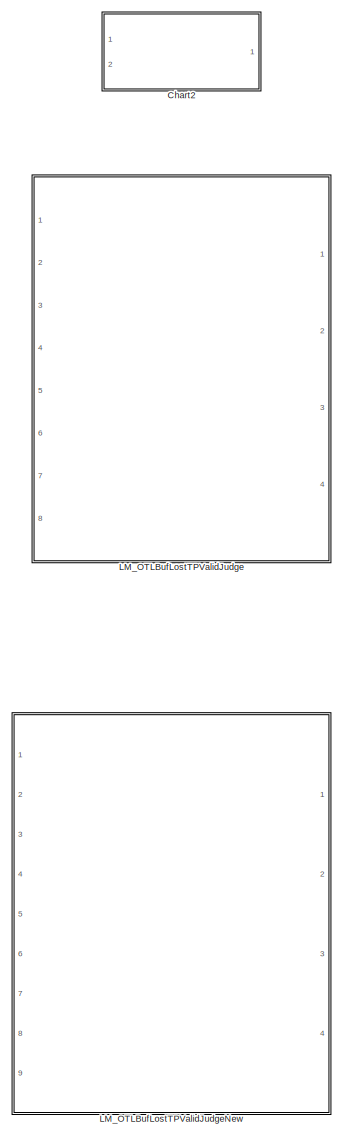
[diagram: root canvas - part 1/6, top right region]
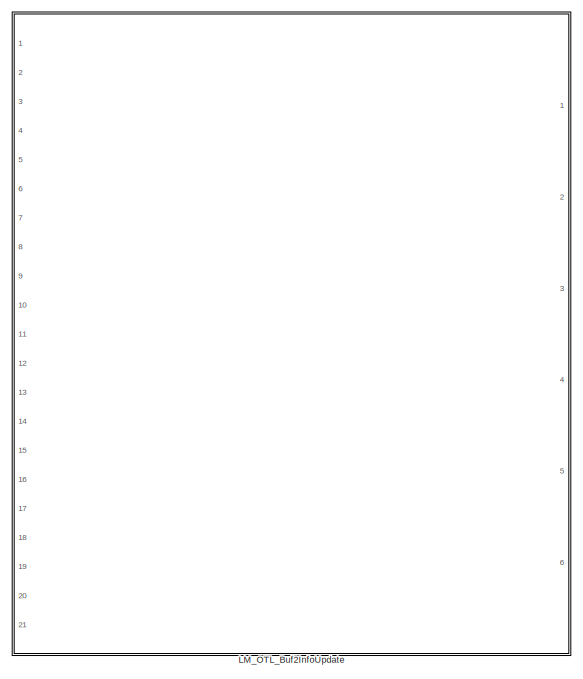
[diagram: root canvas - part 2/6, top center region]
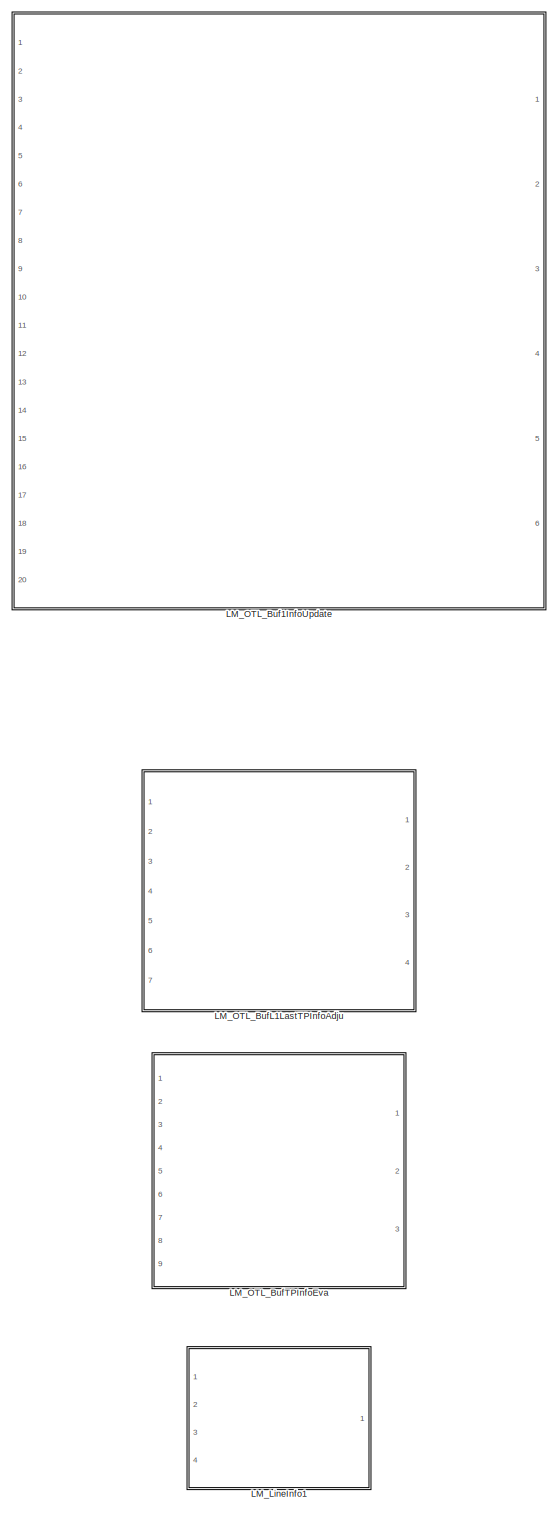
[diagram: root canvas - part 3/6, center side, full height]
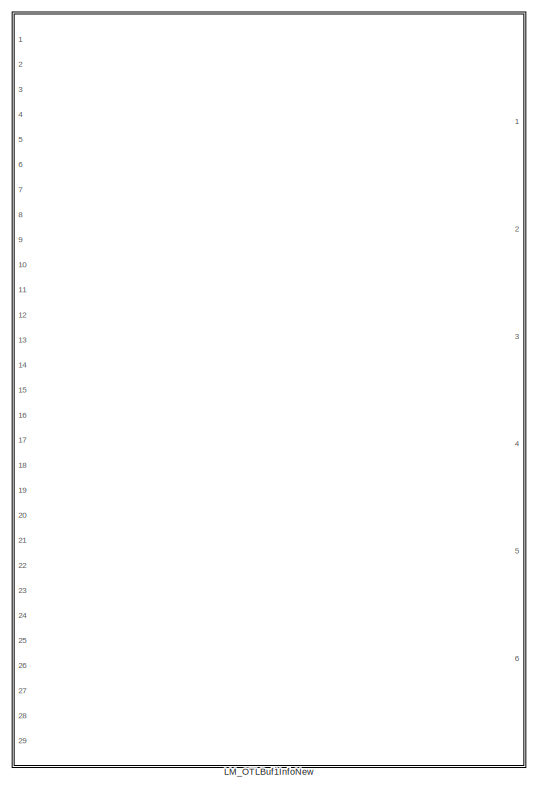
[diagram: root canvas - part 4/6, middle left region]
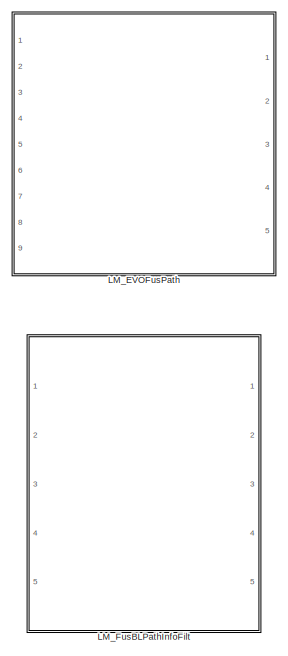
[diagram: root canvas - part 5/6, middle right region]
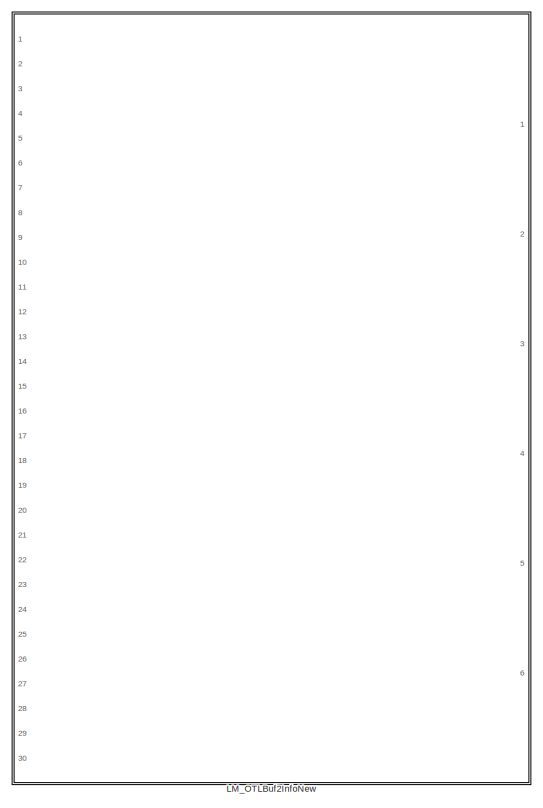
[diagram: root canvas - part 6/6, bottom left region]
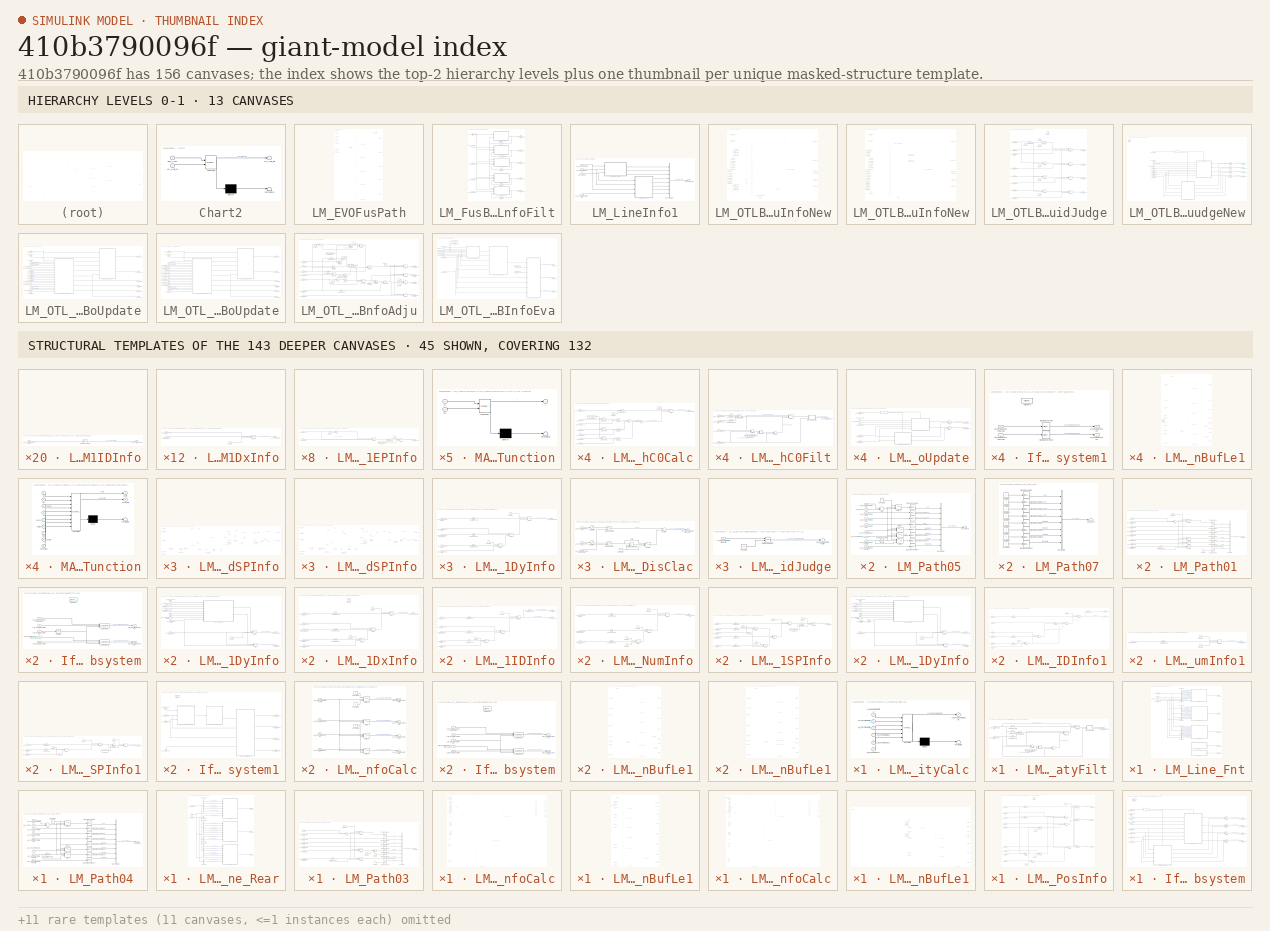
[diagram: thumbnail index - top-2 hierarchy levels (13 canvases) + 45 structural-template representatives of the remaining 143 canvases]
MODEL slx_410b3790096f
KIND library
CONFIG AbsTol = auto
CONFIG EnableMultiTasking = off
CONFIG FixedStep = auto
CONFIG MaxStep = auto
CONFIG MinStep = auto
CONFIG RelTol = 1e-3
CONFIG SampleTimeConstraint = Unconstrained
CONFIG Solver = VariableStepAuto
CONFIG SolverName = VariableStepAuto
CONFIG StartTime = 0.0
CONFIG StopTime = 10.0
BLOCK [SubSystem] Chart2
  ErrorFcn = Stateflow.Translate.translate
  PermitHierarchicalResolution = ExplicitOnly
  Ports = [2, 1]
  RequestExecContextInheritance = off
  SFBlockType = Chart
  TreatAsAtomicUnit = on
BLOCK [Demux] Chart2/ Demux 
  Outputs = 1
  Ports = [1, 1]
BLOCK [S-Function] Chart2/ SFunction 
  EnableBusSupport = on
  FunctionName = sf_sfun
  PortCounts = [2 2]
  Ports = [2, 2]
  SFcnIsStateOwnerBlock = off
  SFunctionDeploymentMode = off
  Tag = Stateflow S-Function 18
BLOCK [Terminator] Chart2/ Terminator 
BLOCK [Outport] Chart2/LM_LINE_Filt
  IconDisplay = Port number
BLOCK [Inport] Chart2/LM_LINE_K1
  IconDisplay = Port number
  Port = 2
BLOCK [Inport] Chart2/RFM_LINE
  IconDisplay = Port number
BLOCK [SubSystem] LM_EVOFusPath
  Ports = [9, 5]
  RequestExecContextInheritance = off
BLOCK [From] LM_EVOFusPath/From
  GotoTag = LM_FusBLPathQuality
BLOCK [Goto] LM_EVOFusPath/Goto
  GotoTag = LM_FusBLPathQuality
BLOCK [Inport] LM_EVOFusPath/LM_EMLFntPathP
  IconDisplay = Port number
  Port = 3
BLOCK [Inport] LM_EVOFusPath/LM_EMLPathQuality
  IconDisplay = Port number
  Port = 4
BLOCK [Outport] LM_EVOFusPath/LM_FusBLPathC0
  IconDisplay = Port number
BLOCK [SubSystem] LM_EVOFusPath/LM_FusBLPathC0Calc
  Ports = [7, 1]
  RequestExecContextInheritance = off
BLOCK [Sum] LM_EVOFusPath/LM_FusBLPathC0Calc/Add
  InputSameDT = off
  OutDataTypeStr = Inherit: Inherit via internal rule
  Ports = [2, 1]
  SaturateOnIntegerOverflow = off
BLOCK [Sum] LM_EVOFusPath/LM_FusBLPathC0Calc/Add5
  InputSameDT = off
  OutDataTypeStr = Inherit: Inherit via internal rule
  Ports = [2, 1]
  SaturateOnIntegerOverflow = off
BLOCK [Constant] LM_EVOFusPath/LM_FusBLPathC0Calc/Constant
  OutDataTypeStr = uint8
  Value = P_LM_FusParC0Index
BLOCK [Constant] LM_EVOFusPath/LM_FusBLPathC0Calc/Constant1
  OutDataTypeStr = single
  Value = 0
BLOCK [Constant] LM_EVOFusPath/LM_FusBLPathC0Calc/Constant2
  OutDataTypeStr = single
  Value = 0
BLOCK [MultiPortSwitch] LM_EVOFusPath/LM_FusBLPathC0Calc/Index Vector
  InputSameDT = off
  Inputs = 1
  Ports = [2, 1]
  SaturateOnIntegerOverflow = off
BLOCK [MultiPortSwitch] LM_EVOFusPath/LM_FusBLPathC0Calc/Index Vector1
  InputSameDT = off
  Inputs = 1
  Ports = [2, 1]
  SaturateOnIntegerOverflow = off
BLOCK [MultiPortSwitch] LM_EVOFusPath/LM_FusBLPathC0Calc/Index Vector8
  InputSameDT = off
  Inputs = 1
  Ports = [2, 1]
  SaturateOnIntegerOverflow = off
BLOCK [Inport] LM_EVOFusPath/LM_FusBLPathC0Calc/LM_EMLPathP
  IconDisplay = Port number
  Port = 3
BLOCK [Outport] LM_EVOFusPath/LM_FusBLPathC0Calc/LM_FusBLPathC0
  IconDisplay = Port number
BLOCK [Inport] LM_EVOFusPath/LM_FusBLPathC0Calc/LM_FusBLPathQuality
  IconDisplay = Port number
BLOCK [Inport] LM_EVOFusPath/LM_FusBLPathC0Calc/LM_FusPathEMLK
  IconDisplay = Port number
  Port = 5
BLOCK [Inport] LM_EVOFusPath/LM_FusBLPathC0Calc/LM_FusPathOTLK
  IconDisplay = Port number
  Port = 7
BLOCK [Inport] LM_EVOFusPath/LM_FusBLPathC0Calc/LM_FusPathVSLK
  IconDisplay = Port number
  Port = 6
BLOCK [Inport] LM_EVOFusPath/LM_FusBLPathC0Calc/LM_OTLPathP
  IconDisplay = Port number
  Port = 4
BLOCK [Inport] LM_EVOFusPath/LM_FusBLPathC0Calc/LM_VSLPathP
  IconDisplay = Port number
  Port = 2
BLOCK [Product] LM_EVOFusPath/LM_FusBLPathC0Calc/Product
  InputSameDT = off
  OutDataTypeStr = Inherit: Inherit via internal rule
  Ports = [2, 1]
  RndMeth = Floor
  SaturateOnIntegerOverflow = off
BLOCK [Product] LM_EVOFusPath/LM_FusBLPathC0Calc/Product1
  InputSameDT = off
  OutDataTypeStr = Inherit: Inherit via internal rule
  Ports = [2, 1]
  RndMeth = Floor
  SaturateOnIntegerOverflow = off
BLOCK [Product] LM_EVOFusPath/LM_FusBLPathC0Calc/Product10
  InputSameDT = off
  OutDataTypeStr = Inherit: Inherit via internal rule
  Ports = [2, 1]
  RndMeth = Floor
  SaturateOnIntegerOverflow = off
BLOCK [RelationalOperator] LM_EVOFusPath/LM_FusBLPathC0Calc/Relational Operator
  InputSameDT = off
  Operator = ==
  OutDataTypeStr = boolean
  Ports = [2, 1]
  RndMeth = Simplest
BLOCK [Switch] LM_EVOFusPath/LM_FusBLPathC0Calc/Switch
  Criteria = u2 ~= 0
  InputSameDT = off
  SaturateOnIntegerOverflow = off
BLOCK [Outport] LM_EVOFusPath/LM_FusBLPathC1
  IconDisplay = Port number
  Port = 2
BLOCK [SubSystem] LM_EVOFusPath/LM_FusBLPathC1Calc
  Ports = [7, 1]
  RequestExecContextInheritance = off
BLOCK [Sum] LM_EVOFusPath/LM_FusBLPathC1Calc/Add1
  InputSameDT = off
  OutDataTypeStr = Inherit: Inherit via internal rule
  Ports = [2, 1]
  SaturateOnIntegerOverflow = off
BLOCK [Sum] LM_EVOFusPath/LM_FusBLPathC1Calc/Add6
  InputSameDT = off
  OutDataTypeStr = Inherit: Inherit via internal rule
  Ports = [2, 1]
  SaturateOnIntegerOverflow = off
BLOCK [Constant] LM_EVOFusPath/LM_FusBLPathC1Calc/Constant1
  OutDataTypeStr = uint8
  Value = P_LM_FusParC1Index
BLOCK [Constant] LM_EVOFusPath/LM_FusBLPathC1Calc/Constant2
  OutDataTypeStr = single
  Value = 0
BLOCK [Constant] LM_EVOFusPath/LM_FusBLPathC1Calc/Constant3
  OutDataTypeStr = single
  Value = 0
BLOCK [MultiPortSwitch] LM_EVOFusPath/LM_FusBLPathC1Calc/Index Vector2
  InputSameDT = off
  Inputs = 1
  Ports = [2, 1]
  SaturateOnIntegerOverflow = off
BLOCK [MultiPortSwitch] LM_EVOFusPath/LM_FusBLPathC1Calc/Index Vector3
  InputSameDT = off
  Inputs = 1
  Ports = [2, 1]
  SaturateOnIntegerOverflow = off
BLOCK [MultiPortSwitch] LM_EVOFusPath/LM_FusBLPathC1Calc/Index Vector9
  InputSameDT = off
  Inputs = 1
  Ports = [2, 1]
  SaturateOnIntegerOverflow = off
BLOCK [Inport] LM_EVOFusPath/LM_FusBLPathC1Calc/LM_EMLPathP
  IconDisplay = Port number
  Port = 3
BLOCK [Outport] LM_EVOFusPath/LM_FusBLPathC1Calc/LM_FusBLPathC1
  IconDisplay = Port number
BLOCK [Inport] LM_EVOFusPath/LM_FusBLPathC1Calc/LM_FusBLPathQuality
  IconDisplay = Port number
BLOCK [Inport] LM_EVOFusPath/LM_FusBLPathC1Calc/LM_FusPathEMLK
  IconDisplay = Port number
  Port = 5
BLOCK [Inport] LM_EVOFusPath/LM_FusBLPathC1Calc/LM_FusPathOTLK
  IconDisplay = Port number
  Port = 7
BLOCK [Inport] LM_EVOFusPath/LM_FusBLPathC1Calc/LM_FusPathVSLK
  IconDisplay = Port number
  Port = 6
BLOCK [Inport] LM_EVOFusPath/LM_FusBLPathC1Calc/LM_OTLPathP
  IconDisplay = Port number
  Port = 4
BLOCK [Inport] LM_EVOFusPath/LM_FusBLPathC1Calc/LM_VSLPathP
  IconDisplay = Port number
  Port = 2
BLOCK [Product] LM_EVOFusPath/LM_FusBLPathC1Calc/Product11
  InputSameDT = off
  OutDataTypeStr = Inherit: Inherit via internal rule
  Ports = [2, 1]
  RndMeth = Floor
  SaturateOnIntegerOverflow = off
BLOCK [Product] LM_EVOFusPath/LM_FusBLPathC1Calc/Product3
  InputSameDT = off
  OutDataTypeStr = Inherit: Inherit via internal rule
  Ports = [2, 1]
  RndMeth = Floor
  SaturateOnIntegerOverflow = off
BLOCK [Product] LM_EVOFusPath/LM_FusBLPathC1Calc/Product4
  InputSameDT = off
  OutDataTypeStr = Inherit: Inherit via internal rule
  Ports = [2, 1]
  RndMeth = Floor
  SaturateOnIntegerOverflow = off
BLOCK [RelationalOperator] LM_EVOFusPath/LM_FusBLPathC1Calc/Relational Operator
  InputSameDT = off
  Operator = ==
  OutDataTypeStr = boolean
  Ports = [2, 1]
  RndMeth = Simplest
BLOCK [Switch] LM_EVOFusPath/LM_FusBLPathC1Calc/Switch
  Criteria = u2 ~= 0
  InputSameDT = off
  SaturateOnIntegerOverflow = off
BLOCK [Outport] LM_EVOFusPath/LM_FusBLPathC2
  IconDisplay = Port number
  Port = 3
BLOCK [SubSystem] LM_EVOFusPath/LM_FusBLPathC2Calc
  Ports = [7, 1]
  RequestExecContextInheritance = off
BLOCK [Sum] LM_EVOFusPath/LM_FusBLPathC2Calc/Add2
  InputSameDT = off
  OutDataTypeStr = Inherit: Inherit via internal rule
  Ports = [2, 1]
  SaturateOnIntegerOverflow = off
BLOCK [Sum] LM_EVOFusPath/LM_FusBLPathC2Calc/Add7
  InputSameDT = off
  OutDataTypeStr = Inherit: Inherit via internal rule
  Ports = [2, 1]
  SaturateOnIntegerOverflow = off
BLOCK [Constant] LM_EVOFusPath/LM_FusBLPathC2Calc/Constant1
  OutDataTypeStr = single
  Value = 0
BLOCK [Constant] LM_EVOFusPath/LM_FusBLPathC2Calc/Constant2
  OutDataTypeStr = uint8
  Value = P_LM_FusParC2Index
BLOCK [Constant] LM_EVOFusPath/LM_FusBLPathC2Calc/Constant3
  OutDataTypeStr = single
  Value = 0
BLOCK [MultiPortSwitch] LM_EVOFusPath/LM_FusBLPathC2Calc/Index Vector10
  InputSameDT = off
  Inputs = 1
  Ports = [2, 1]
  SaturateOnIntegerOverflow = off
BLOCK [MultiPortSwitch] LM_EVOFusPath/LM_FusBLPathC2Calc/Index Vector4
  InputSameDT = off
  Inputs = 1
  Ports = [2, 1]
  SaturateOnIntegerOverflow = off
BLOCK [MultiPortSwitch] LM_EVOFusPath/LM_FusBLPathC2Calc/Index Vector5
  InputSameDT = off
  Inputs = 1
  Ports = [2, 1]
  SaturateOnIntegerOverflow = off
BLOCK [Inport] LM_EVOFusPath/LM_FusBLPathC2Calc/LM_EMLPathP
  IconDisplay = Port number
  Port = 3
BLOCK [Outport] LM_EVOFusPath/LM_FusBLPathC2Calc/LM_FusBLPathC2
  IconDisplay = Port number
BLOCK [Inport] LM_EVOFusPath/LM_FusBLPathC2Calc/LM_FusBLPathQuality
  IconDisplay = Port number
BLOCK [Inport] LM_EVOFusPath/LM_FusBLPathC2Calc/LM_FusPathEMLK
  IconDisplay = Port number
  Port = 5
BLOCK [Inport] LM_EVOFusPath/LM_FusBLPathC2Calc/LM_FusPathOTLK
  IconDisplay = Port number
  Port = 7
BLOCK [Inport] LM_EVOFusPath/LM_FusBLPathC2Calc/LM_FusPathVSLK
  IconDisplay = Port number
  Port = 6
BLOCK [Inport] LM_EVOFusPath/LM_FusBLPathC2Calc/LM_OTLPathP
  IconDisplay = Port number
  Port = 4
BLOCK [Inport] LM_EVOFusPath/LM_FusBLPathC2Calc/LM_VSLPathP
  IconDisplay = Port number
  Port = 2
BLOCK [Product] LM_EVOFusPath/LM_FusBLPathC2Calc/Product12
  InputSameDT = off
  OutDataTypeStr = Inherit: Inherit via internal rule
  Ports = [2, 1]
  RndMeth = Floor
  SaturateOnIntegerOverflow = off
BLOCK [Product] LM_EVOFusPath/LM_FusBLPathC2Calc/Product2
  InputSameDT = off
  OutDataTypeStr = Inherit: Inherit via internal rule
  Ports = [2, 1]
  RndMeth = Floor
  SaturateOnIntegerOverflow = off
BLOCK [Product] LM_EVOFusPath/LM_FusBLPathC2Calc/Product5
  InputSameDT = off
  OutDataTypeStr = Inherit: Inherit via internal rule
  Ports = [2, 1]
  RndMeth = Floor
  SaturateOnIntegerOverflow = off
BLOCK [RelationalOperator] LM_EVOFusPath/LM_FusBLPathC2Calc/Relational Operator
  InputSameDT = off
  Operator = ==
  OutDataTypeStr = boolean
  Ports = [2, 1]
  RndMeth = Simplest
BLOCK [Switch] LM_EVOFusPath/LM_FusBLPathC2Calc/Switch
  Criteria = u2 ~= 0
  InputSameDT = off
  SaturateOnIntegerOverflow = off
BLOCK [Outport] LM_EVOFusPath/LM_FusBLPathC3
  IconDisplay = Port number
  Port = 4
BLOCK [SubSystem] LM_EVOFusPath/LM_FusBLPathC3Calc
  Ports = [7, 1]
  RequestExecContextInheritance = off
BLOCK [Sum] LM_EVOFusPath/LM_FusBLPathC3Calc/Add3
  InputSameDT = off
  OutDataTypeStr = Inherit: Inherit via internal rule
  Ports = [2, 1]
  SaturateOnIntegerOverflow = off
BLOCK [Sum] LM_EVOFusPath/LM_FusBLPathC3Calc/Add8
  InputSameDT = off
  OutDataTypeStr = Inherit: Inherit via internal rule
  Ports = [2, 1]
  SaturateOnIntegerOverflow = off
BLOCK [Constant] LM_EVOFusPath/LM_FusBLPathC3Calc/Constant1
  OutDataTypeStr = single
  Value = 0
BLOCK [Constant] LM_EVOFusPath/LM_FusBLPathC3Calc/Constant2
  OutDataTypeStr = single
  Value = 0
BLOCK [Constant] LM_EVOFusPath/LM_FusBLPathC3Calc/Constant3
  OutDataTypeStr = uint8
  Value = P_LM_FusParC3Index
BLOCK [MultiPortSwitch] LM_EVOFusPath/LM_FusBLPathC3Calc/Index Vector11
  InputSameDT = off
  Inputs = 1
  Ports = [2, 1]
  SaturateOnIntegerOverflow = off
BLOCK [MultiPortSwitch] LM_EVOFusPath/LM_FusBLPathC3Calc/Index Vector6
  InputSameDT = off
  Inputs = 1
  Ports = [2, 1]
  SaturateOnIntegerOverflow = off
BLOCK [MultiPortSwitch] LM_EVOFusPath/LM_FusBLPathC3Calc/Index Vector7
  InputSameDT = off
  Inputs = 1
  Ports = [2, 1]
  SaturateOnIntegerOverflow = off
BLOCK [Inport] LM_EVOFusPath/LM_FusBLPathC3Calc/LM_EMLPathP
  IconDisplay = Port number
  Port = 3
BLOCK [Outport] LM_EVOFusPath/LM_FusBLPathC3Calc/LM_FusBLPathC3
  IconDisplay = Port number
BLOCK [Inport] LM_EVOFusPath/LM_FusBLPathC3Calc/LM_FusBLPathQuality
  IconDisplay = Port number
BLOCK [Inport] LM_EVOFusPath/LM_FusBLPathC3Calc/LM_FusPathEMLK
  IconDisplay = Port number
  Port = 5
BLOCK [Inport] LM_EVOFusPath/LM_FusBLPathC3Calc/LM_FusPathOTLK
  IconDisplay = Port number
  Port = 7
BLOCK [Inport] LM_EVOFusPath/LM_FusBLPathC3Calc/LM_FusPathVSLK
  IconDisplay = Port number
  Port = 6
BLOCK [Inport] LM_EVOFusPath/LM_FusBLPathC3Calc/LM_OTLPathP
  IconDisplay = Port number
  Port = 4
BLOCK [Inport] LM_EVOFusPath/LM_FusBLPathC3Calc/LM_VSLPathP
  IconDisplay = Port number
  Port = 2
BLOCK [Product] LM_EVOFusPath/LM_FusBLPathC3Calc/Product13
  InputSameDT = off
  OutDataTypeStr = Inherit: Inherit via internal rule
  Ports = [2, 1]
  RndMeth = Floor
  SaturateOnIntegerOverflow = off
BLOCK [Product] LM_EVOFusPath/LM_FusBLPathC3Calc/Product6
  InputSameDT = off
  OutDataTypeStr = Inherit: Inherit via internal rule
  Ports = [2, 1]
  RndMeth = Floor
  SaturateOnIntegerOverflow = off
BLOCK [Product] LM_EVOFusPath/LM_FusBLPathC3Calc/Product7
  InputSameDT = off
  OutDataTypeStr = Inherit: Inherit via internal rule
  Ports = [2, 1]
  RndMeth = Floor
  SaturateOnIntegerOverflow = off
BLOCK [RelationalOperator] LM_EVOFusPath/LM_FusBLPathC3Calc/Relational Operator
  InputSameDT = off
  Operator = ==
  OutDataTypeStr = boolean
  Ports = [2, 1]
  RndMeth = Simplest
BLOCK [Switch] LM_EVOFusPath/LM_FusBLPathC3Calc/Switch
  Criteria = u2 ~= 0
  InputSameDT = off
  SaturateOnIntegerOverflow = off
BLOCK [Outport] LM_EVOFusPath/LM_FusBLPathQuality
  IconDisplay = Port number
  Port = 5
BLOCK [SubSystem] LM_EVOFusPath/LM_FusBLPathQualityCalc
  BlockKeywords = __PRM__SERIALIZED__DATA__:Stateflow Chart,Stateflow Diagram
  ErrorFcn = Stateflow.Translate.translate
  PermitHierarchicalResolution = ExplicitOnly
  Ports = [6, 1]
  RequestExecContextInheritance = off
  SFBlockType = Chart
  TreatAsAtomicUnit = on
BLOCK [Demux] LM_EVOFusPath/LM_FusBLPathQualityCalc/ Demux 
  Outputs = 1
  Ports = [1, 1]
BLOCK [S-Function] LM_EVOFusPath/LM_FusBLPathQualityCalc/ SFunction 
  EnableBusSupport = off
  FunctionName = sf_sfun
  PortCounts = [6 2]
  Ports = [6, 2]
  SFcnIsStateOwnerBlock = off
  SFunctionDeploymentMode = off
  Tag = Stateflow S-Function 8
BLOCK [Terminator] LM_EVOFusPath/LM_FusBLPathQualityCalc/ Terminator 
BLOCK [Inport] LM_EVOFusPath/LM_FusBLPathQualityCalc/LM_EMLPathQuality
  IconDisplay = Port number
BLOCK [Outport] LM_EVOFusPath/LM_FusBLPathQualityCalc/LM_FusBLPathQuality
  IconDisplay = Port number
BLOCK [Inport] LM_EVOFusPath/LM_FusBLPathQualityCalc/LM_FusPathEMLK
  IconDisplay = Port number
  Port = 4
BLOCK [Inport] LM_EVOFusPath/LM_FusBLPathQualityCalc/LM_FusPathOTLK
  IconDisplay = Port number
  Port = 6
BLOCK [Inport] LM_EVOFusPath/LM_FusBLPathQualityCalc/LM_FusPathVSLK
  IconDisplay = Port number
  Port = 5
BLOCK [Inport] LM_EVOFusPath/LM_FusBLPathQualityCalc/LM_OTLPathQuality
  IconDisplay = Port number
  Port = 3
BLOCK [Inport] LM_EVOFusPath/LM_FusBLPathQualityCalc/LM_VSLPathQuality
  IconDisplay = Port number
  Port = 2
BLOCK [Inport] LM_EVOFusPath/LM_FusPathEMLK
  IconDisplay = Port number
  Port = 7
BLOCK [Inport] LM_EVOFusPath/LM_FusPathOTLK
  IconDisplay = Port number
  Port = 9
BLOCK [Inport] LM_EVOFusPath/LM_FusPathVSLK
  IconDisplay = Port number
  Port = 8
BLOCK [Inport] LM_EVOFusPath/LM_OTLFntPathP
  IconDisplay = Port number
  Port = 5
BLOCK [Inport] LM_EVOFusPath/LM_OTLPathQuality
  IconDisplay = Port number
  Port = 6
BLOCK [Inport] LM_EVOFusPath/LM_VSLFntPathP
  IconDisplay = Port number
BLOCK [Inport] LM_EVOFusPath/LM_VSLPathQuality
  IconDisplay = Port number
  Port = 2
BLOCK [SubSystem] LM_FusBLPathInfoFilt
  Ports = [5, 5]
  RequestExecContextInheritance = off
BLOCK [Inport] LM_FusBLPathInfoFilt/LM_FusBLPathC0
  IconDisplay = Port number
BLOCK [Outport] LM_FusBLPathInfoFilt/LM_FusBLPathC0Filt
  IconDisplay = Port number
BLOCK [Inport] LM_FusBLPathInfoFilt/LM_FusBLPathC1
  IconDisplay = Port number
  Port = 2
BLOCK [Outport] LM_FusBLPathInfoFilt/LM_FusBLPathC1Filt
  IconDisplay = Port number
  Port = 2
BLOCK [Inport] LM_FusBLPathInfoFilt/LM_FusBLPathC2
  IconDisplay = Port number
  Port = 3
BLOCK [Outport] LM_FusBLPathInfoFilt/LM_FusBLPathC2Filt
  IconDisplay = Port number
  Port = 3
BLOCK [Inport] LM_FusBLPathInfoFilt/LM_FusBLPathC3
  IconDisplay = Port number
  Port = 4
BLOCK [Outport] LM_FusBLPathInfoFilt/LM_FusBLPathC3Filt
  IconDisplay = Port number
  Port = 4
BLOCK [Inport] LM_FusBLPathInfoFilt/LM_FusBLPathQuality
  IconDisplay = Port number
  Port = 5
BLOCK [Outport] LM_FusBLPathInfoFilt/LM_FusBLPathQualityFilt
  IconDisplay = Port number
  Port = 5
BLOCK [SubSystem] LM_FusBLPathInfoFilt/LM_FusBLPathQuliatyFilt
  Ports = [2, 1]
  RequestExecContextInheritance = off
BLOCK [Sum] LM_FusBLPathInfoFilt/LM_FusBLPathQuliatyFilt/Add11
  InputSameDT = off
  OutDataTypeStr = Inherit: Inherit via internal rule
  Ports = [2, 1]
  SaturateOnIntegerOverflow = off
BLOCK [Reference] LM_FusBLPathInfoFilt/LM_FusBLPathQuliatyFilt/Compare To Zero  REF=simulink/Logic and Bit
Operations/Compare
To Zero
  Ports = [1, 1]
  SourceBlock = simulink/Logic and Bit\nOperations/Compare\nTo Zero
  SourceProductBaseCode = SL
  SourceProductName = Simulink
  SourceType = Compare To Zero
BLOCK [Reference] LM_FusBLPathInfoFilt/LM_FusBLPathQuliatyFilt/Compare To Zero1  REF=simulink/Logic and Bit
Operations/Compare
To Zero
  Ports = [1, 1]
  SourceBlock = simulink/Logic and Bit\nOperations/Compare\nTo Zero
  SourceProductBaseCode = SL
  SourceProductName = Simulink
  SourceType = Compare To Zero
BLOCK [Reference] LM_FusBLPathInfoFilt/LM_FusBLPathQuliatyFilt/Compare To Zero2  REF=simulink/Logic and Bit
Operations/Compare
To Zero
  Ports = [1, 1]
  SourceBlock = simulink/Logic and Bit\nOperations/Compare\nTo Zero
  SourceProductBaseCode = SL
  SourceProductName = Simulink
  SourceType = Compare To Zero
BLOCK [Constant] LM_FusBLPathInfoFilt/LM_FusBLPathQuliatyFilt/Constant9
  OutDataTypeStr = single
  Value = P_LM_FusBLParFiltP
BLOCK [Inport] LM_FusBLPathInfoFilt/LM_FusBLPathQuliatyFilt/LM_FusBLPathQuality
  IconDisplay = Port number
BLOCK [Outport] LM_FusBLPathInfoFilt/LM_FusBLPathQuliatyFilt/LM_FusBLPathQualityFilt
  IconDisplay = Port number
BLOCK [Inport] LM_FusBLPathInfoFilt/LM_FusBLPathQuliatyFilt/LM_FusBLPathQualityK1
  IconDisplay = Port number
  Port = 2
BLOCK [Logic] LM_FusBLPathInfoFilt/LM_FusBLPathQuliatyFilt/Logical Operator
  AllPortsSameDT = off
  OutDataTypeStr = boolean
  Ports = [2, 1]
BLOCK [SubSystem] LM_FusBLPathInfoFilt/LM_FusBLPathQuliatyFilt/MATLAB Function
  ErrorFcn = Stateflow.Translate.translate
  PermitHierarchicalResolution = ExplicitOnly
  Ports = [2, 1]
  RequestExecContextInheritance = off
  SFBlockType = MATLAB Function
  TreatAsAtomicUnit = on
BLOCK [Demux] LM_FusBLPathInfoFilt/LM_FusBLPathQuliatyFilt/MATLAB Function/ Demux 
  Outputs = 1
  Ports = [1, 1]
BLOCK [S-Function] LM_FusBLPathInfoFilt/LM_FusBLPathQuliatyFilt/MATLAB Function/ SFunction 
  EnableBusSupport = off
  FunctionName = sf_sfun
  PortCounts = [2 2]
  Ports = [2, 2]
  SFcnIsStateOwnerBlock = off
  SFunctionDeploymentMode = off
  Tag = Stateflow S-Function 236
BLOCK [Terminator] LM_FusBLPathInfoFilt/LM_FusBLPathQuliatyFilt/MATLAB Function/ Terminator 
BLOCK [Inport] LM_FusBLPathInfoFilt/LM_FusBLPathQuliatyFilt/MATLAB Function/u1
  IconDisplay = Port number
BLOCK [Outport] LM_FusBLPathInfoFilt/LM_FusBLPathQuliatyFilt/MATLAB Function/y
  IconDisplay = Port number
BLOCK [Inport] LM_FusBLPathInfoFilt/LM_FusBLPathQuliatyFilt/MATLAB Function/yk1
  IconDisplay = Port number
  Port = 2
BLOCK [Product] LM_FusBLPathInfoFilt/LM_FusBLPathQuliatyFilt/Product16
  InputSameDT = off
  OutDataTypeStr = Inherit: Inherit via internal rule
  Ports = [2, 1]
  RndMeth = Floor
  SaturateOnIntegerOverflow = off
BLOCK [Sum] LM_FusBLPathInfoFilt/LM_FusBLPathQuliatyFilt/Subtract1
  InputSameDT = off
  Inputs = +-
  OutDataTypeStr = Inherit: Inherit via internal rule
  Ports = [2, 1]
  SaturateOnIntegerOverflow = off
BLOCK [Switch] LM_FusBLPathInfoFilt/LM_FusBLPathQuliatyFilt/Switch1
  Criteria = u2 ~= 0
  InputSameDT = off
  SaturateOnIntegerOverflow = off
BLOCK [Switch] LM_FusBLPathInfoFilt/LM_FusBLPathQuliatyFilt/Switch2
  Criteria = u2 ~= 0
  InputSameDT = off
  SaturateOnIntegerOverflow = off
BLOCK [SubSystem] LM_FusBLPathInfoFilt/LM_Fus_BLFntPathC0Filt
  Ports = [4, 1]
  RequestExecContextInheritance = off
BLOCK [Sum] LM_FusBLPathInfoFilt/LM_Fus_BLFntPathC0Filt/Add11
  InputSameDT = off
  OutDataTypeStr = Inherit: Inherit via internal rule
  Ports = [2, 1]
  SaturateOnIntegerOverflow = off
BLOCK [Reference] LM_FusBLPathInfoFilt/LM_Fus_BLFntPathC0Filt/Compare To Zero  REF=simulink/Logic and Bit
Operations/Compare
To Zero
  Ports = [1, 1]
  SourceBlock = simulink/Logic and Bit\nOperations/Compare\nTo Zero
  SourceProductBaseCode = SL
  SourceProductName = Simulink
  SourceType = Compare To Zero
BLOCK [Reference] LM_FusBLPathInfoFilt/LM_Fus_BLFntPathC0Filt/Compare To Zero1  REF=simulink/Logic and Bit
Operations/Compare
To Zero
  Ports = [1, 1]
  SourceBlock = simulink/Logic and Bit\nOperations/Compare\nTo Zero
  SourceProductBaseCode = SL
  SourceProductName = Simulink
  SourceType = Compare To Zero
BLOCK [Constant] LM_FusBLPathInfoFilt/LM_Fus_BLFntPathC0Filt/Constant9
  OutDataTypeStr = single
  Value = P_LM_FusBLParFiltP
BLOCK [Inport] LM_FusBLPathInfoFilt/LM_Fus_BLFntPathC0Filt/LM_FusBLPathC0
  IconDisplay = Port number
BLOCK [Outport] LM_FusBLPathInfoFilt/LM_Fus_BLFntPathC0Filt/LM_FusBLPathC0Filt
  IconDisplay = Port number
BLOCK [Inport] LM_FusBLPathInfoFilt/LM_Fus_BLFntPathC0Filt/LM_FusBLPathC0K1
  IconDisplay = Port number
  Port = 4
BLOCK [Inport] LM_FusBLPathInfoFilt/LM_Fus_BLFntPathC0Filt/LM_FusBLPathQuality
  IconDisplay = Port number
  Port = 2
BLOCK [Inport] LM_FusBLPathInfoFilt/LM_Fus_BLFntPathC0Filt/LM_FusBLPathQualityK1
  IconDisplay = Port number
  Port = 3
BLOCK [Logic] LM_FusBLPathInfoFilt/LM_Fus_BLFntPathC0Filt/Logical Operator
  AllPortsSameDT = off
  OutDataTypeStr = boolean
  Ports = [2, 1]
BLOCK [SubSystem] LM_FusBLPathInfoFilt/LM_Fus_BLFntPathC0Filt/MATLAB Function
  ErrorFcn = Stateflow.Translate.translate
  PermitHierarchicalResolution = ExplicitOnly
  Ports = [2, 1]
  RequestExecContextInheritance = off
  SFBlockType = MATLAB Function
  TreatAsAtomicUnit = on
BLOCK [Demux] LM_FusBLPathInfoFilt/LM_Fus_BLFntPathC0Filt/MATLAB Function/ Demux 
  Outputs = 1
  Ports = [1, 1]
BLOCK [S-Function] LM_FusBLPathInfoFilt/LM_Fus_BLFntPathC0Filt/MATLAB Function/ SFunction 
  EnableBusSupport = off
  FunctionName = sf_sfun
  PortCounts = [2 2]
  Ports = [2, 2]
  SFcnIsStateOwnerBlock = off
  SFunctionDeploymentMode = off
  Tag = Stateflow S-Function 203
BLOCK [Terminator] LM_FusBLPathInfoFilt/LM_Fus_BLFntPathC0Filt/MATLAB Function/ Terminator 
BLOCK [Inport] LM_FusBLPathInfoFilt/LM_Fus_BLFntPathC0Filt/MATLAB Function/u1
  IconDisplay = Port number
BLOCK [Outport] LM_FusBLPathInfoFilt/LM_Fus_BLFntPathC0Filt/MATLAB Function/y
  IconDisplay = Port number
BLOCK [Inport] LM_FusBLPathInfoFilt/LM_Fus_BLFntPathC0Filt/MATLAB Function/yk1
  IconDisplay = Port number
  Port = 2
BLOCK [Product] LM_FusBLPathInfoFilt/LM_Fus_BLFntPathC0Filt/Product16
  InputSameDT = off
  OutDataTypeStr = Inherit: Inherit via internal rule
  Ports = [2, 1]
  RndMeth = Floor
  SaturateOnIntegerOverflow = off
BLOCK [Sum] LM_FusBLPathInfoFilt/LM_Fus_BLFntPathC0Filt/Subtract1
  InputSameDT = off
  Inputs = +-
  OutDataTypeStr = Inherit: Inherit via internal rule
  Ports = [2, 1]
  SaturateOnIntegerOverflow = off
BLOCK [Switch] LM_FusBLPathInfoFilt/LM_Fus_BLFntPathC0Filt/Switch1
  Criteria = u2 ~= 0
  InputSameDT = off
  SaturateOnIntegerOverflow = off
BLOCK [SubSystem] LM_FusBLPathInfoFilt/LM_Fus_BLPath3C3Filt
  Ports = [4, 1]
  RequestExecContextInheritance = off
BLOCK [Sum] LM_FusBLPathInfoFilt/LM_Fus_BLPath3C3Filt/Add11
  InputSameDT = off
  OutDataTypeStr = Inherit: Inherit via internal rule
  Ports = [2, 1]
  SaturateOnIntegerOverflow = off
BLOCK [Reference] LM_FusBLPathInfoFilt/LM_Fus_BLPath3C3Filt/Compare To Zero  REF=simulink/Logic and Bit
Operations/Compare
To Zero
  Ports = [1, 1]
  SourceBlock = simulink/Logic and Bit\nOperations/Compare\nTo Zero
  SourceProductBaseCode = SL
  SourceProductName = Simulink
  SourceType = Compare To Zero
BLOCK [Reference] LM_FusBLPathInfoFilt/LM_Fus_BLPath3C3Filt/Compare To Zero1  REF=simulink/Logic and Bit
Operations/Compare
To Zero
  Ports = [1, 1]
  SourceBlock = simulink/Logic and Bit\nOperations/Compare\nTo Zero
  SourceProductBaseCode = SL
  SourceProductName = Simulink
  SourceType = Compare To Zero
BLOCK [Constant] LM_FusBLPathInfoFilt/LM_Fus_BLPath3C3Filt/Constant9
  OutDataTypeStr = single
  Value = P_LM_FusBLParFiltP
BLOCK [Inport] LM_FusBLPathInfoFilt/LM_Fus_BLPath3C3Filt/LM_FusBLPathC3BefFilt
  IconDisplay = Port number
  Port = 3
BLOCK [Outport] LM_FusBLPathInfoFilt/LM_Fus_BLPath3C3Filt/LM_FusBLPathC3Filt
  IconDisplay = Port number
BLOCK [Inport] LM_FusBLPathInfoFilt/LM_Fus_BLPath3C3Filt/LM_FusBLPathC3K1
  IconDisplay = Port number
  Port = 4
BLOCK [Inport] LM_FusBLPathInfoFilt/LM_Fus_BLPath3C3Filt/LM_FusBLPathQuality
  IconDisplay = Port number
  Port = 2
BLOCK [Inport] LM_FusBLPathInfoFilt/LM_Fus_BLPath3C3Filt/LM_FusBLPathQualityK1
  IconDisplay = Port number
BLOCK [Logic] LM_FusBLPathInfoFilt/LM_Fus_BLPath3C3Filt/Logical Operator
  AllPortsSameDT = off
  OutDataTypeStr = boolean
  Ports = [2, 1]
BLOCK [SubSystem] LM_FusBLPathInfoFilt/LM_Fus_BLPath3C3Filt/MATLAB Function
  ErrorFcn = Stateflow.Translate.translate
  PermitHierarchicalResolution = ExplicitOnly
  Ports = [2, 1]
  RequestExecContextInheritance = off
  SFBlockType = MATLAB Function
  TreatAsAtomicUnit = on
BLOCK [Demux] LM_FusBLPathInfoFilt/LM_Fus_BLPath3C3Filt/MATLAB Function/ Demux 
  Outputs = 1
  Ports = [1, 1]
BLOCK [S-Function] LM_FusBLPathInfoFilt/LM_Fus_BLPath3C3Filt/MATLAB Function/ SFunction 
  EnableBusSupport = off
  FunctionName = sf_sfun
  PortCounts = [2 2]
  Ports = [2, 2]
  SFcnIsStateOwnerBlock = off
  SFunctionDeploymentMode = off
  Tag = Stateflow S-Function 235
BLOCK [Terminator] LM_FusBLPathInfoFilt/LM_Fus_BLPath3C3Filt/MATLAB Function/ Terminator 
BLOCK [Inport] LM_FusBLPathInfoFilt/LM_Fus_BLPath3C3Filt/MATLAB Function/u1
  IconDisplay = Port number
BLOCK [Outport] LM_FusBLPathInfoFilt/LM_Fus_BLPath3C3Filt/MATLAB Function/y
  IconDisplay = Port number
BLOCK [Inport] LM_FusBLPathInfoFilt/LM_Fus_BLPath3C3Filt/MATLAB Function/yk1
  IconDisplay = Port number
  Port = 2
BLOCK [Product] LM_FusBLPathInfoFilt/LM_Fus_BLPath3C3Filt/Product16
  InputSameDT = off
  OutDataTypeStr = Inherit: Inherit via internal rule
  Ports = [2, 1]
  RndMeth = Floor
  SaturateOnIntegerOverflow = off
BLOCK [Sum] LM_FusBLPathInfoFilt/LM_Fus_BLPath3C3Filt/Subtract1
  InputSameDT = off
  Inputs = +-
  OutDataTypeStr = Inherit: Inherit via internal rule
  Ports = [2, 1]
  SaturateOnIntegerOverflow = off
BLOCK [Switch] LM_FusBLPathInfoFilt/LM_Fus_BLPath3C3Filt/Switch1
  Criteria = u2 ~= 0
  InputSameDT = off
  SaturateOnIntegerOverflow = off
BLOCK [SubSystem] LM_FusBLPathInfoFilt/LM_Fus_BLPathC1Filt
  Ports = [4, 1]
  RequestExecContextInheritance = off
BLOCK [Sum] LM_FusBLPathInfoFilt/LM_Fus_BLPathC1Filt/Add11
  InputSameDT = off
  OutDataTypeStr = Inherit: Inherit via internal rule
  Ports = [2, 1]
  SaturateOnIntegerOverflow = off
BLOCK [Reference] LM_FusBLPathInfoFilt/LM_Fus_BLPathC1Filt/Compare To Zero  REF=simulink/Logic and Bit
Operations/Compare
To Zero
  Ports = [1, 1]
  SourceBlock = simulink/Logic and Bit\nOperations/Compare\nTo Zero
  SourceProductBaseCode = SL
  SourceProductName = Simulink
  SourceType = Compare To Zero
BLOCK [Reference] LM_FusBLPathInfoFilt/LM_Fus_BLPathC1Filt/Compare To Zero1  REF=simulink/Logic and Bit
Operations/Compare
To Zero
  Ports = [1, 1]
  SourceBlock = simulink/Logic and Bit\nOperations/Compare\nTo Zero
  SourceProductBaseCode = SL
  SourceProductName = Simulink
  SourceType = Compare To Zero
BLOCK [Constant] LM_FusBLPathInfoFilt/LM_Fus_BLPathC1Filt/Constant9
  OutDataTypeStr = single
  Value = P_LM_FusBLParFiltP
BLOCK [Inport] LM_FusBLPathInfoFilt/LM_Fus_BLPathC1Filt/LM_FusBLPathC1BefFilt
  IconDisplay = Port number
  Port = 3
BLOCK [Outport] LM_FusBLPathInfoFilt/LM_Fus_BLPathC1Filt/LM_FusBLPathC1Filt
  IconDisplay = Port number
BLOCK [Inport] LM_FusBLPathInfoFilt/LM_Fus_BLPathC1Filt/LM_FusBLPathC1K1
  IconDisplay = Port number
  Port = 4
BLOCK [Inport] LM_FusBLPathInfoFilt/LM_Fus_BLPathC1Filt/LM_FusBLPathQuality
  IconDisplay = Port number
  Port = 2
BLOCK [Inport] LM_FusBLPathInfoFilt/LM_Fus_BLPathC1Filt/LM_FusBLPathQualityK1
  IconDisplay = Port number
BLOCK [Logic] LM_FusBLPathInfoFilt/LM_Fus_BLPathC1Filt/Logical Operator
  AllPortsSameDT = off
  OutDataTypeStr = boolean
  Ports = [2, 1]
BLOCK [SubSystem] LM_FusBLPathInfoFilt/LM_Fus_BLPathC1Filt/MATLAB Function
  ErrorFcn = Stateflow.Translate.translate
  PermitHierarchicalResolution = ExplicitOnly
  Ports = [2, 1]
  RequestExecContextInheritance = off
  SFBlockType = MATLAB Function
  TreatAsAtomicUnit = on
BLOCK [Demux] LM_FusBLPathInfoFilt/LM_Fus_BLPathC1Filt/MATLAB Function/ Demux 
  Outputs = 1
  Ports = [1, 1]
BLOCK [S-Function] LM_FusBLPathInfoFilt/LM_Fus_BLPathC1Filt/MATLAB Function/ SFunction 
  EnableBusSupport = off
  FunctionName = sf_sfun
  PortCounts = [2 2]
  Ports = [2, 2]
  SFcnIsStateOwnerBlock = off
  SFunctionDeploymentMode = off
  Tag = Stateflow S-Function 233
BLOCK [Terminator] LM_FusBLPathInfoFilt/LM_Fus_BLPathC1Filt/MATLAB Function/ Terminator 
BLOCK [Inport] LM_FusBLPathInfoFilt/LM_Fus_BLPathC1Filt/MATLAB Function/u1
  IconDisplay = Port number
BLOCK [Outport] LM_FusBLPathInfoFilt/LM_Fus_BLPathC1Filt/MATLAB Function/y
  IconDisplay = Port number
BLOCK [Inport] LM_FusBLPathInfoFilt/LM_Fus_BLPathC1Filt/MATLAB Function/yk1
  IconDisplay = Port number
  Port = 2
BLOCK [Product] LM_FusBLPathInfoFilt/LM_Fus_BLPathC1Filt/Product16
  InputSameDT = off
  OutDataTypeStr = Inherit: Inherit via internal rule
  Ports = [2, 1]
  RndMeth = Floor
  SaturateOnIntegerOverflow = off
BLOCK [Sum] LM_FusBLPathInfoFilt/LM_Fus_BLPathC1Filt/Subtract1
  InputSameDT = off
  Inputs = +-
  OutDataTypeStr = Inherit: Inherit via internal rule
  Ports = [2, 1]
  SaturateOnIntegerOverflow = off
BLOCK [Switch] LM_FusBLPathInfoFilt/LM_Fus_BLPathC1Filt/Switch1
  Criteria = u2 ~= 0
  InputSameDT = off
  SaturateOnIntegerOverflow = off
BLOCK [SubSystem] LM_FusBLPathInfoFilt/LM_Fus_BLPathC2Filt
  Ports = [4, 1]
  RequestExecContextInheritance = off
BLOCK [Sum] LM_FusBLPathInfoFilt/LM_Fus_BLPathC2Filt/Add11
  InputSameDT = off
  OutDataTypeStr = Inherit: Inherit via internal rule
  Ports = [2, 1]
  SaturateOnIntegerOverflow = off
BLOCK [Reference] LM_FusBLPathInfoFilt/LM_Fus_BLPathC2Filt/Compare To Zero  REF=simulink/Logic and Bit
Operations/Compare
To Zero
  Ports = [1, 1]
  SourceBlock = simulink/Logic and Bit\nOperations/Compare\nTo Zero
  SourceProductBaseCode = SL
  SourceProductName = Simulink
  SourceType = Compare To Zero
BLOCK [Reference] LM_FusBLPathInfoFilt/LM_Fus_BLPathC2Filt/Compare To Zero1  REF=simulink/Logic and Bit
Operations/Compare
To Zero
  Ports = [1, 1]
  SourceBlock = simulink/Logic and Bit\nOperations/Compare\nTo Zero
  SourceProductBaseCode = SL
  SourceProductName = Simulink
  SourceType = Compare To Zero
BLOCK [Constant] LM_FusBLPathInfoFilt/LM_Fus_BLPathC2Filt/Constant9
  OutDataTypeStr = single
  Value = P_LM_FusBLParFiltP
BLOCK [Inport] LM_FusBLPathInfoFilt/LM_Fus_BLPathC2Filt/LM_FusBLPathC2BefFilt
  IconDisplay = Port number
  Port = 3
BLOCK [Outport] LM_FusBLPathInfoFilt/LM_Fus_BLPathC2Filt/LM_FusBLPathC2Filt
  IconDisplay = Port number
BLOCK [Inport] LM_FusBLPathInfoFilt/LM_Fus_BLPathC2Filt/LM_FusBLPathC2K1
  IconDisplay = Port number
  Port = 4
BLOCK [Inport] LM_FusBLPathInfoFilt/LM_Fus_BLPathC2Filt/LM_FusBLPathQuality
  IconDisplay = Port number
  Port = 2
BLOCK [Inport] LM_FusBLPathInfoFilt/LM_Fus_BLPathC2Filt/LM_FusBLPathQualityK1
  IconDisplay = Port number
BLOCK [Logic] LM_FusBLPathInfoFilt/LM_Fus_BLPathC2Filt/Logical Operator
  AllPortsSameDT = off
  OutDataTypeStr = boolean
  Ports = [2, 1]
BLOCK [SubSystem] LM_FusBLPathInfoFilt/LM_Fus_BLPathC2Filt/MATLAB Function
  ErrorFcn = Stateflow.Translate.translate
  PermitHierarchicalResolution = ExplicitOnly
  Ports = [2, 1]
  RequestExecContextInheritance = off
  SFBlockType = MATLAB Function
  TreatAsAtomicUnit = on
BLOCK [Demux] LM_FusBLPathInfoFilt/LM_Fus_BLPathC2Filt/MATLAB Function/ Demux 
  Outputs = 1
  Ports = [1, 1]
BLOCK [S-Function] LM_FusBLPathInfoFilt/LM_Fus_BLPathC2Filt/MATLAB Function/ SFunction 
  EnableBusSupport = off
  FunctionName = sf_sfun
  PortCounts = [2 2]
  Ports = [2, 2]
  SFcnIsStateOwnerBlock = off
  SFunctionDeploymentMode = off
  Tag = Stateflow S-Function 234
BLOCK [Terminator] LM_FusBLPathInfoFilt/LM_Fus_BLPathC2Filt/MATLAB Function/ Terminator 
BLOCK [Inport] LM_FusBLPathInfoFilt/LM_Fus_BLPathC2Filt/MATLAB Function/u1
  IconDisplay = Port number
BLOCK [Outport] LM_FusBLPathInfoFilt/LM_Fus_BLPathC2Filt/MATLAB Function/y
  IconDisplay = Port number
BLOCK [Inport] LM_FusBLPathInfoFilt/LM_Fus_BLPathC2Filt/MATLAB Function/yk1
  IconDisplay = Port number
  Port = 2
BLOCK [Product] LM_FusBLPathInfoFilt/LM_Fus_BLPathC2Filt/Product16
  InputSameDT = off
  OutDataTypeStr = Inherit: Inherit via internal rule
  Ports = [2, 1]
  RndMeth = Floor
  SaturateOnIntegerOverflow = off
BLOCK [Sum] LM_FusBLPathInfoFilt/LM_Fus_BLPathC2Filt/Subtract1
  InputSameDT = off
  Inputs = +-
  OutDataTypeStr = Inherit: Inherit via internal rule
  Ports = [2, 1]
  SaturateOnIntegerOverflow = off
BLOCK [Switch] LM_FusBLPathInfoFilt/LM_Fus_BLPathC2Filt/Switch1
  Criteria = u2 ~= 0
  InputSameDT = off
  SaturateOnIntegerOverflow = off
BLOCK [UnitDelay] LM_FusBLPathInfoFilt/Unit Delay
  HasFrameUpgradeWarning = on
  SampleTime = -1
BLOCK [UnitDelay] LM_FusBLPathInfoFilt/Unit Delay1
  HasFrameUpgradeWarning = on
  SampleTime = -1
BLOCK [UnitDelay] LM_FusBLPathInfoFilt/Unit Delay2
  HasFrameUpgradeWarning = on
  SampleTime = -1
BLOCK [UnitDelay] LM_FusBLPathInfoFilt/Unit Delay3
  HasFrameUpgradeWarning = on
  SampleTime = -1
BLOCK [UnitDelay] LM_FusBLPathInfoFilt/Unit Delay4
  HasFrameUpgradeWarning = on
  SampleTime = -1
BLOCK [SubSystem] LM_LineInfo1
  Ports = [4, 1]
  RequestExecContextInheritance = off
BLOCK [BusCreator] LM_LineInfo1/Bus Creator1
  DisplayOption = bar
  InheritFromInputs = on
  Inputs = 8
  NonVirtualBus = on
  OutDataTypeStr = Bus: LM_LINE_BUS
  Ports = [8, 1]
BLOCK [Inport] LM_LineInfo1/LM_FusBLInfoFilt
  IconDisplay = Port number
BLOCK [Inport] LM_LineInfo1/LM_FusfCamValidInfo
  IconDisplay = Port number
  Port = 4
BLOCK [Inport] LM_LineInfo1/LM_LineC0
  IconDisplay = Port number
  Port = 2
BLOCK [SubSystem] LM_LineInfo1/LM_Line_Fnt
  Ports = [4, 5]
  RequestExecContextInheritance = off
BLOCK [BusSelector] LM_LineInfo1/LM_Line_Fnt/Bus Selector1
  OutputAsBus = off
  OutputSignals = LM_FntPath1Dis
  Ports = [1, 1]
BLOCK [BusSelector] LM_LineInfo1/LM_Line_Fnt/Bus Selector10
  OutputAsBus = off
  OutputSignals = LM_FusBLFntPath1Info.LM_FusBLPathC0,LM_FusBLFntPath1Info.LM_FusBLPathC1,LM_FusBLFntPath1Info.LM_FusBLPathC2,LM_FusBLFntPath1Info.LM_FusBLPathC3,LM_FusBLFntPath1Info.LM_FusBLPathQuality
  Ports = [1, 5]
BLOCK [BusSelector] LM_LineInfo1/LM_Line_Fnt/Bus Selector2
  OutputAsBus = off
  OutputSignals = LM_FntPath1Dis,LM_FntPath2Dis
  Ports = [1, 2]
BLOCK [BusSelector] LM_LineInfo1/LM_Line_Fnt/Bus Selector3
  OutputAsBus = off
  OutputSignals = LM_FusBLFntPath2Info.LM_FusBLPathC0,LM_FusBLFntPath2Info.LM_FusBLPathC1,LM_FusBLFntPath2Info.LM_FusBLPathC2,LM_FusBLFntPath2Info.LM_FusBLPathC3,LM_FusBLFntPath2Info.LM_FusBLPathQuality
  Ports = [1, 5]
BLOCK [BusSelector] LM_LineInfo1/LM_Line_Fnt/Bus Selector5
  OutputAsBus = off
  OutputSignals = LM_FntPath2Dis,LM_FntPath3Dis
  Ports = [1, 2]
BLOCK [BusSelector] LM_LineInfo1/LM_Line_Fnt/Bus Selector6
  OutputAsBus = off
  OutputSignals = LM_FusBLFntPath3Info.LM_FusBLPathC0,LM_FusBLFntPath3Info.LM_FusBLPathC1,LM_FusBLFntPath3Info.LM_FusBLPathC2,LM_FusBLFntPath3Info.LM_FusBLPathC3,LM_FusBLFntPath3Info.LM_FusBLPathQuality
  Ports = [1, 5]
BLOCK [BusSelector] LM_LineInfo1/LM_Line_Fnt/Bus Selector7
  OutputAsBus = off
  OutputSignals = LM_FusFntPath1fCamValid
  Ports = [1, 1]
BLOCK [BusSelector] LM_LineInfo1/LM_Line_Fnt/Bus Selector8
  OutputAsBus = off
  OutputSignals = LM_FusFntPath2fCamValid
  Ports = [1, 1]
BLOCK [BusSelector] LM_LineInfo1/LM_Line_Fnt/Bus Selector9
  OutputAsBus = off
  OutputSignals = LM_FusFntPath3fCamValid
  Ports = [1, 1]
BLOCK [Inport] LM_LineInfo1/LM_Line_Fnt/LM_FusBLInfoFilt
  IconDisplay = Port number
  Port = 3
BLOCK [Inport] LM_LineInfo1/LM_Line_Fnt/LM_FusfCamValidInfo
  IconDisplay = Port number
  Port = 4
BLOCK [Outport] LM_LineInfo1/LM_Line_Fnt/LM_LL_Line06
  IconDisplay = Port number
  Port = 3
BLOCK [Outport] LM_LineInfo1/LM_Line_Fnt/LM_LL_Line07
  IconDisplay = Port number
  Port = 4
BLOCK [Outport] LM_LineInfo1/LM_Line_Fnt/LM_LL_Line08
  IconDisplay = Port number
  Port = 5
BLOCK [Outport] LM_LineInfo1/LM_Line_Fnt/LM_Line04
  IconDisplay = Port number
BLOCK [Outport] LM_LineInfo1/LM_Line_Fnt/LM_Line05
  IconDisplay = Port number
  Port = 2
BLOCK [Inport] LM_LineInfo1/LM_Line_Fnt/LM_LineC0
  IconDisplay = Port number
BLOCK [SubSystem] LM_LineInfo1/LM_Line_Fnt/LM_Path04
  Ports = [8, 1]
  RequestExecContextInheritance = off
BLOCK [Sum] LM_LineInfo1/LM_Line_Fnt/LM_Path04/Add
  InputSameDT = off
  OutDataTypeStr = Inherit: Inherit via internal rule
  Ports = [2, 1]
  SaturateOnIntegerOverflow = off
BLOCK [BusCreator] LM_LineInfo1/LM_Line_Fnt/LM_Path04/Bus Creator
  DisplayOption = bar
  InheritFromInputs = on
  Inputs = 8
  NonVirtualBus = on
  OutDataTypeStr = Bus: LM_TRAJINFO_BUS
  Ports = [8, 1]
BLOCK [Reference] LM_LineInfo1/LM_Line_Fnt/LM_Path04/Compare To Zero  REF=simulink/Logic and Bit
Operations/Compare
To Zero
  Ports = [1, 1]
  SourceBlock = simulink/Logic and Bit\nOperations/Compare\nTo Zero
  SourceProductBaseCode = SL
  SourceProductName = Simulink
  SourceType = Compare To Zero
BLOCK [Constant] LM_LineInfo1/LM_Line_Fnt/LM_Path04/Constant
  OutDataTypeStr = single
  Value = 0
BLOCK [Inport] LM_LineInfo1/LM_Line_Fnt/LM_Path04/LM_FusBLFntPath1C0
  IconDisplay = Port number
BLOCK [Inport] LM_LineInfo1/LM_Line_Fnt/LM_Path04/LM_FusBLFntPath1C1
  IconDisplay = Port number
  Port = 2
BLOCK [Inport] LM_LineInfo1/LM_Line_Fnt/LM_Path04/LM_FusBLFntPath1C2
  IconDisplay = Port number
  Port = 3
BLOCK [Inport] LM_LineInfo1/LM_Line_Fnt/LM_Path04/LM_FusBLFntPath1C3
  IconDisplay = Port number
  Port = 4
BLOCK [Inport] LM_LineInfo1/LM_Line_Fnt/LM_Path04/LM_FusBLFntPath1Quality
  IconDisplay = Port number
  Port = 5
BLOCK [Inport] LM_LineInfo1/LM_Line_Fnt/LM_Path04/LM_FusFntPath1Dis
  IconDisplay = Port number
  Port = 7
BLOCK [Inport] LM_LineInfo1/LM_Line_Fnt/LM_Path04/LM_FusFntPath1fCamValid
  IconDisplay = Port number
  Port = 8
BLOCK [Outport] LM_LineInfo1/LM_Line_Fnt/LM_Path04/LM_Line04
  IconDisplay = Port number
BLOCK [Inport] LM_LineInfo1/LM_Line_Fnt/LM_Path04/LM_LineC0
  IconDisplay = Port number
  Port = 6
BLOCK [SignalConversion] LM_LineInfo1/LM_Line_Fnt/LM_Path04/Signal Conversion
  OverrideOpt = off
BLOCK [SignalConversion] LM_LineInfo1/LM_Line_Fnt/LM_Path04/Signal Conversion1
  OverrideOpt = off
BLOCK [SignalConversion] LM_LineInfo1/LM_Line_Fnt/LM_Path04/Signal Conversion2
  OverrideOpt = off
BLOCK [SignalConversion] LM_LineInfo1/LM_Line_Fnt/LM_Path04/Signal Conversion3
  OverrideOpt = off
BLOCK [SignalConversion] LM_LineInfo1/LM_Line_Fnt/LM_Path04/Signal Conversion4
  OverrideOpt = off
BLOCK [SignalConversion] LM_LineInfo1/LM_Line_Fnt/LM_Path04/Signal Conversion5
  OverrideOpt = off
BLOCK [SignalConversion] LM_LineInfo1/LM_Line_Fnt/LM_Path04/Signal Conversion6
  OverrideOpt = off
BLOCK [SignalConversion] LM_LineInfo1/LM_Line_Fnt/LM_Path04/Signal Conversion7
  OverrideOpt = off
BLOCK [Switch] LM_LineInfo1/LM_Line_Fnt/LM_Path04/Switch
  Criteria = u2 ~= 0
  InputSameDT = off
  SaturateOnIntegerOverflow = off
BLOCK [Switch] LM_LineInfo1/LM_Line_Fnt/LM_Path04/Switch1
  Criteria = u2 ~= 0
  InputSameDT = off
  SaturateOnIntegerOverflow = off
BLOCK [Switch] LM_LineInfo1/LM_Line_Fnt/LM_Path04/Switch2
  Criteria = u2 ~= 0
  InputSameDT = off
  SaturateOnIntegerOverflow = off
BLOCK [SubSystem] LM_LineInfo1/LM_Line_Fnt/LM_Path05
  Ports = [9, 1]
  RequestExecContextInheritance = off
BLOCK [Sum] LM_LineInfo1/LM_Line_Fnt/LM_Path05/Add
  InputSameDT = off
  OutDataTypeStr = Inherit: Inherit via internal rule
  Ports = [2, 1]
  SaturateOnIntegerOverflow = off
BLOCK [BusCreator] LM_LineInfo1/LM_Line_Fnt/LM_Path05/Bus Creator
  DisplayOption = bar
  InheritFromInputs = on
  Inputs = 8
  NonVirtualBus = on
  OutDataTypeStr = Bus: LM_TRAJINFO_BUS
  Ports = [8, 1]
BLOCK [Reference] LM_LineInfo1/LM_Line_Fnt/LM_Path05/Compare To Zero  REF=simulink/Logic and Bit
Operations/Compare
To Zero
  Ports = [1, 1]
  SourceBlock = simulink/Logic and Bit\nOperations/Compare\nTo Zero
  SourceProductBaseCode = SL
  SourceProductName = Simulink
  SourceType = Compare To Zero
BLOCK [Constant] LM_LineInfo1/LM_Line_Fnt/LM_Path05/Constant2
  OutDataTypeStr = single
  Value = 0
BLOCK [Inport] LM_LineInfo1/LM_Line_Fnt/LM_Path05/LM_FusBLFntPath2C0
  IconDisplay = Port number
  Port = 3
BLOCK [Inport] LM_LineInfo1/LM_Line_Fnt/LM_Path05/LM_FusBLFntPath2C1
  IconDisplay = Port number
  Port = 4
BLOCK [Inport] LM_LineInfo1/LM_Line_Fnt/LM_Path05/LM_FusBLFntPath2C2
  IconDisplay = Port number
  Port = 5
BLOCK [Inport] LM_LineInfo1/LM_Line_Fnt/LM_Path05/LM_FusBLFntPath2C3
  IconDisplay = Port number
  Port = 6
BLOCK [Inport] LM_LineInfo1/LM_Line_Fnt/LM_Path05/LM_FusBLFntPath2Quality
  IconDisplay = Port number
  Port = 7
BLOCK [Inport] LM_LineInfo1/LM_Line_Fnt/LM_Path05/LM_FusFntPath1Dis
  IconDisplay = Port number
BLOCK [Inport] LM_LineInfo1/LM_Line_Fnt/LM_Path05/LM_FusFntPath2Dis
  IconDisplay = Port number
  Port = 2
BLOCK [Inport] LM_LineInfo1/LM_Line_Fnt/LM_Path05/LM_FusFntPath2fCamValid
  IconDisplay = Port number
  Port = 9
BLOCK [Outport] LM_LineInfo1/LM_Line_Fnt/LM_Path05/LM_Line05
  IconDisplay = Port number
BLOCK [Inport] LM_LineInfo1/LM_Line_Fnt/LM_Path05/LM_LineC0
  IconDisplay = Port number
  Port = 8
BLOCK [SignalConversion] LM_LineInfo1/LM_Line_Fnt/LM_Path05/Signal Conversion
  OverrideOpt = off
BLOCK [SignalConversion] LM_LineInfo1/LM_Line_Fnt/LM_Path05/Signal Conversion1
  OverrideOpt = off
BLOCK [SignalConversion] LM_LineInfo1/LM_Line_Fnt/LM_Path05/Signal Conversion2
  OverrideOpt = off
BLOCK [SignalConversion] LM_LineInfo1/LM_Line_Fnt/LM_Path05/Signal Conversion3
  OverrideOpt = off
BLOCK [SignalConversion] LM_LineInfo1/LM_Line_Fnt/LM_Path05/Signal Conversion4
  OverrideOpt = off
BLOCK [SignalConversion] LM_LineInfo1/LM_Line_Fnt/LM_Path05/Signal Conversion5
  OverrideOpt = off
BLOCK [SignalConversion] LM_LineInfo1/LM_Line_Fnt/LM_Path05/Signal Conversion6
  OverrideOpt = off
BLOCK [SignalConversion] LM_LineInfo1/LM_Line_Fnt/LM_Path05/Signal Conversion7
  OverrideOpt = off
BLOCK [Switch] LM_LineInfo1/LM_Line_Fnt/LM_Path05/Switch
  Criteria = u2 ~= 0
  InputSameDT = off
  SaturateOnIntegerOverflow = off
BLOCK [Switch] LM_LineInfo1/LM_Line_Fnt/LM_Path05/Switch1
  Criteria = u2 ~= 0
  InputSameDT = off
  SaturateOnIntegerOverflow = off
BLOCK [Switch] LM_LineInfo1/LM_Line_Fnt/LM_Path05/Switch2
  Criteria = u2 ~= 0
  InputSameDT = off
  SaturateOnIntegerOverflow = off
BLOCK [Switch] LM_LineInfo1/LM_Line_Fnt/LM_Path05/Switch3
  Criteria = u2 ~= 0
  InputSameDT = off
  SaturateOnIntegerOverflow = off
BLOCK [SubSystem] LM_LineInfo1/LM_Line_Fnt/LM_Path06
  Ports = [9, 1]
  RequestExecContextInheritance = off
BLOCK [Sum] LM_LineInfo1/LM_Line_Fnt/LM_Path06/Add
  InputSameDT = off
  OutDataTypeStr = Inherit: Inherit via internal rule
  Ports = [2, 1]
  SaturateOnIntegerOverflow = off
BLOCK [BusCreator] LM_LineInfo1/LM_Line_Fnt/LM_Path06/Bus Creator
  DisplayOption = bar
  InheritFromInputs = on
  Inputs = 8
  NonVirtualBus = on
  OutDataTypeStr = Bus: LM_TRAJINFO_BUS
  Ports = [8, 1]
BLOCK [Reference] LM_LineInfo1/LM_Line_Fnt/LM_Path06/Compare To Zero  REF=simulink/Logic and Bit
Operations/Compare
To Zero
  Ports = [1, 1]
  SourceBlock = simulink/Logic and Bit\nOperations/Compare\nTo Zero
  SourceProductBaseCode = SL
  SourceProductName = Simulink
  SourceType = Compare To Zero
BLOCK [Constant] LM_LineInfo1/LM_Line_Fnt/LM_Path06/Constant2
  OutDataTypeStr = single
  Value = 0
BLOCK [Inport] LM_LineInfo1/LM_Line_Fnt/LM_Path06/LM_FusBLFntPath2Dis
  IconDisplay = Port number
  Port = 7
BLOCK [Inport] LM_LineInfo1/LM_Line_Fnt/LM_Path06/LM_FusBLFntPath3C0
  IconDisplay = Port number
  Port = 2
BLOCK [Inport] LM_LineInfo1/LM_Line_Fnt/LM_Path06/LM_FusBLFntPath3C1
  IconDisplay = Port number
  Port = 3
BLOCK [Inport] LM_LineInfo1/LM_Line_Fnt/LM_Path06/LM_FusBLFntPath3C2
  IconDisplay = Port number
  Port = 4
BLOCK [Inport] LM_LineInfo1/LM_Line_Fnt/LM_Path06/LM_FusBLFntPath3C3
  IconDisplay = Port number
  Port = 5
BLOCK [Inport] LM_LineInfo1/LM_Line_Fnt/LM_Path06/LM_FusBLFntPath3Dis
  IconDisplay = Port number
  Port = 8
BLOCK [Inport] LM_LineInfo1/LM_Line_Fnt/LM_Path06/LM_FusBLFntPath3Quality
  IconDisplay = Port number
  Port = 6
BLOCK [Inport] LM_LineInfo1/LM_Line_Fnt/LM_Path06/LM_FusFntPath3fCamValid
  IconDisplay = Port number
  Port = 9
BLOCK [Outport] LM_LineInfo1/LM_Line_Fnt/LM_Path06/LM_Line06
  IconDisplay = Port number
BLOCK [Inport] LM_LineInfo1/LM_Line_Fnt/LM_Path06/LM_LineC0
  IconDisplay = Port number
BLOCK [SignalConversion] LM_LineInfo1/LM_Line_Fnt/LM_Path06/Signal Conversion
  OverrideOpt = off
BLOCK [SignalConversion] LM_LineInfo1/LM_Line_Fnt/LM_Path06/Signal Conversion1
  OverrideOpt = off
BLOCK [SignalConversion] LM_LineInfo1/LM_Line_Fnt/LM_Path06/Signal Conversion2
  OverrideOpt = off
BLOCK [SignalConversion] LM_LineInfo1/LM_Line_Fnt/LM_Path06/Signal Conversion3
  OverrideOpt = off
BLOCK [SignalConversion] LM_LineInfo1/LM_Line_Fnt/LM_Path06/Signal Conversion4
  OverrideOpt = off
BLOCK [SignalConversion] LM_LineInfo1/LM_Line_Fnt/LM_Path06/Signal Conversion5
  OverrideOpt = off
BLOCK [SignalConversion] LM_LineInfo1/LM_Line_Fnt/LM_Path06/Signal Conversion6
  OverrideOpt = off
BLOCK [SignalConversion] LM_LineInfo1/LM_Line_Fnt/LM_Path06/Signal Conversion7
  OverrideOpt = off
BLOCK [Switch] LM_LineInfo1/LM_Line_Fnt/LM_Path06/Switch
  Criteria = u2 ~= 0
  InputSameDT = off
  SaturateOnIntegerOverflow = off
BLOCK [Switch] LM_LineInfo1/LM_Line_Fnt/LM_Path06/Switch1
  Criteria = u2 ~= 0
  InputSameDT = off
  SaturateOnIntegerOverflow = off
BLOCK [Switch] LM_LineInfo1/LM_Line_Fnt/LM_Path06/Switch2
  Criteria = u2 ~= 0
  InputSameDT = off
  SaturateOnIntegerOverflow = off
BLOCK [Switch] LM_LineInfo1/LM_Line_Fnt/LM_Path06/Switch3
  Criteria = u2 ~= 0
  InputSameDT = off
  SaturateOnIntegerOverflow = off
BLOCK [SubSystem] LM_LineInfo1/LM_Line_Fnt/LM_Path07
  Ports = [0, 1]
  RequestExecContextInheritance = off
BLOCK [BusCreator] LM_LineInfo1/LM_Line_Fnt/LM_Path07/Bus Creator
  DisplayOption = bar
  InheritFromInputs = on
  Inputs = 8
  NonVirtualBus = on
  OutDataTypeStr = Bus: LM_TRAJINFO_BUS
  Ports = [8, 1]
BLOCK [Constant] LM_LineInfo1/LM_Line_Fnt/LM_Path07/Constant1
  OutDataTypeStr = uint8
  Value = 0
BLOCK [Constant] LM_LineInfo1/LM_Line_Fnt/LM_Path07/Constant2
  OutDataTypeStr = single
  Value = 0
BLOCK [Constant] LM_LineInfo1/LM_Line_Fnt/LM_Path07/Constant3
  OutDataTypeStr = single
  Value = 0
BLOCK [Constant] LM_LineInfo1/LM_Line_Fnt/LM_Path07/Constant4
  OutDataTypeStr = single
  Value = 0
BLOCK [Constant] LM_LineInfo1/LM_Line_Fnt/LM_Path07/Constant5
  OutDataTypeStr = single
  Value = 0
BLOCK [Constant] LM_LineInfo1/LM_Line_Fnt/LM_Path07/Constant6
  OutDataTypeStr = single
  Value = 0
BLOCK [Constant] LM_LineInfo1/LM_Line_Fnt/LM_Path07/Constant7
  OutDataTypeStr = single
  Value = 0
BLOCK [Constant] LM_LineInfo1/LM_Line_Fnt/LM_Path07/Constant8
  OutDataTypeStr = single
  Value = 0
BLOCK [Outport] LM_LineInfo1/LM_Line_Fnt/LM_Path07/LM_Line07
  IconDisplay = Port number
BLOCK [SignalConversion] LM_LineInfo1/LM_Line_Fnt/LM_Path07/Signal Conversion
  OverrideOpt = off
BLOCK [SignalConversion] LM_LineInfo1/LM_Line_Fnt/LM_Path07/Signal Conversion1
  OverrideOpt = off
BLOCK [SignalConversion] LM_LineInfo1/LM_Line_Fnt/LM_Path07/Signal Conversion2
  OverrideOpt = off
BLOCK [SignalConversion] LM_LineInfo1/LM_Line_Fnt/LM_Path07/Signal Conversion3
  OverrideOpt = off
BLOCK [SignalConversion] LM_LineInfo1/LM_Line_Fnt/LM_Path07/Signal Conversion4
  OverrideOpt = off
BLOCK [SignalConversion] LM_LineInfo1/LM_Line_Fnt/LM_Path07/Signal Conversion5
  OverrideOpt = off
BLOCK [SignalConversion] LM_LineInfo1/LM_Line_Fnt/LM_Path07/Signal Conversion6
  OverrideOpt = off
BLOCK [SignalConversion] LM_LineInfo1/LM_Line_Fnt/LM_Path07/Signal Conversion7
  OverrideOpt = off
BLOCK [SubSystem] LM_LineInfo1/LM_Line_Fnt/LM_Path08
  Ports = [0, 1]
  RequestExecContextInheritance = off
BLOCK [BusCreator] LM_LineInfo1/LM_Line_Fnt/LM_Path08/Bus Creator
  DisplayOption = bar
  InheritFromInputs = on
  Inputs = 8
  NonVirtualBus = on
  OutDataTypeStr = Bus: LM_TRAJINFO_BUS
  Ports = [8, 1]
BLOCK [Constant] LM_LineInfo1/LM_Line_Fnt/LM_Path08/Constant1
  OutDataTypeStr = uint8
  Value = 0
BLOCK [Constant] LM_LineInfo1/LM_Line_Fnt/LM_Path08/Constant2
  OutDataTypeStr = single
  Value = 0
BLOCK [Constant] LM_LineInfo1/LM_Line_Fnt/LM_Path08/Constant3
  OutDataTypeStr = single
  Value = 0
BLOCK [Constant] LM_LineInfo1/LM_Line_Fnt/LM_Path08/Constant4
  OutDataTypeStr = single
  Value = 0
BLOCK [Constant] LM_LineInfo1/LM_Line_Fnt/LM_Path08/Constant5
  OutDataTypeStr = single
  Value = 0
BLOCK [Constant] LM_LineInfo1/LM_Line_Fnt/LM_Path08/Constant6
  OutDataTypeStr = single
  Value = 0
BLOCK [Constant] LM_LineInfo1/LM_Line_Fnt/LM_Path08/Constant7
  OutDataTypeStr = single
  Value = 0
BLOCK [Constant] LM_LineInfo1/LM_Line_Fnt/LM_Path08/Constant8
  OutDataTypeStr = single
  Value = 0
BLOCK [Outport] LM_LineInfo1/LM_Line_Fnt/LM_Path08/LM_Line08
  IconDisplay = Port number
BLOCK [SignalConversion] LM_LineInfo1/LM_Line_Fnt/LM_Path08/Signal Conversion
  OverrideOpt = off
BLOCK [SignalConversion] LM_LineInfo1/LM_Line_Fnt/LM_Path08/Signal Conversion1
  OverrideOpt = off
BLOCK [SignalConversion] LM_LineInfo1/LM_Line_Fnt/LM_Path08/Signal Conversion2
  OverrideOpt = off
BLOCK [SignalConversion] LM_LineInfo1/LM_Line_Fnt/LM_Path08/Signal Conversion3
  OverrideOpt = off
BLOCK [SignalConversion] LM_LineInfo1/LM_Line_Fnt/LM_Path08/Signal Conversion4
  OverrideOpt = off
BLOCK [SignalConversion] LM_LineInfo1/LM_Line_Fnt/LM_Path08/Signal Conversion5
  OverrideOpt = off
BLOCK [SignalConversion] LM_LineInfo1/LM_Line_Fnt/LM_Path08/Signal Conversion6
  OverrideOpt = off
BLOCK [SignalConversion] LM_LineInfo1/LM_Line_Fnt/LM_Path08/Signal Conversion7
  OverrideOpt = off
BLOCK [Inport] LM_LineInfo1/LM_Line_Fnt/LM_PathDisBus
  IconDisplay = Port number
  Port = 2
BLOCK [Outport] LM_LineInfo1/LM_Line_Info
  IconDisplay = Port number
BLOCK [SubSystem] LM_LineInfo1/LM_Line_Rear
  Ports = [3, 3]
  RequestExecContextInheritance = off
BLOCK [BusSelector] LM_LineInfo1/LM_Line_Rear/Bus Selector1
  OutputAsBus = off
  OutputSignals = LM_RearPath1Dis
  Ports = [1, 1]
BLOCK [BusSelector] LM_LineInfo1/LM_Line_Rear/Bus Selector10
  OutputAsBus = off
  OutputSignals = LM_RearPath2Dis,LM_RearPath3Dis
  Ports = [1, 2]
BLOCK [BusSelector] LM_LineInfo1/LM_Line_Rear/Bus Selector2
  OutputAsBus = off
  OutputSignals = LM_FusBLRearPath2Info.LM_FusBLPathC0,LM_FusBLRearPath2Info.LM_FusBLPathC1,LM_FusBLRearPath2Info.LM_FusBLPathC2,LM_FusBLRearPath2Info.LM_FusBLPathC3,LM_FusBLRearPath2Info.LM_FusBLPathQuality
  Ports = [1, 5]
BLOCK [BusSelector] LM_LineInfo1/LM_Line_Rear/Bus Selector3
  OutputAsBus = off
  OutputSignals = LM_FusBLRearPath3Info.LM_FusBLPathC0,LM_FusBLRearPath3Info.LM_FusBLPathC1,LM_FusBLRearPath3Info.LM_FusBLPathC2,LM_FusBLRearPath3Info.LM_FusBLPathC3,LM_FusBLRearPath3Info.LM_FusBLPathQuality
  Ports = [1, 5]
BLOCK [BusSelector] LM_LineInfo1/LM_Line_Rear/Bus Selector6
  OutputAsBus = off
  OutputSignals = LM_FusBLRearPath1Info.LM_FusBLPathC0,LM_FusBLRearPath1Info.LM_FusBLPathC1,LM_FusBLRearPath1Info.LM_FusBLPathC2,LM_FusBLRearPath1Info.LM_FusBLPathC3,LM_FusBLRearPath1Info.LM_FusBLPathQuality
  Ports = [1, 5]
BLOCK [BusSelector] LM_LineInfo1/LM_Line_Rear/Bus Selector8
  OutputAsBus = off
  OutputSignals = LM_RearPath1Dis,LM_RearPath2Dis
  Ports = [1, 2]
BLOCK [Inport] LM_LineInfo1/LM_Line_Rear/LM_FusBLInfoFilt
  IconDisplay = Port number
BLOCK [Outport] LM_LineInfo1/LM_Line_Rear/LM_Line01
  IconDisplay = Port number
BLOCK [Outport] LM_LineInfo1/LM_Line_Rear/LM_Line02
  IconDisplay = Port number
  Port = 2
BLOCK [Outport] LM_LineInfo1/LM_Line_Rear/LM_Line03
  IconDisplay = Port number
  Port = 3
BLOCK [Inport] LM_LineInfo1/LM_Line_Rear/LM_LineC0
  IconDisplay = Port number
  Port = 3
BLOCK [SubSystem] LM_LineInfo1/LM_Line_Rear/LM_Path01
  Ports = [8, 1]
  RequestExecContextInheritance = off
BLOCK [Sum] LM_LineInfo1/LM_Line_Rear/LM_Path01/Add
  InputSameDT = off
  OutDataTypeStr = Inherit: Inherit via internal rule
  Ports = [2, 1]
  SaturateOnIntegerOverflow = off
BLOCK [BusCreator] LM_LineInfo1/LM_Line_Rear/LM_Path01/Bus Creator
  DisplayOption = bar
  InheritFromInputs = on
  Inputs = 8
  NonVirtualBus = on
  OutDataTypeStr = Bus: LM_TRAJINFO_BUS
  Ports = [8, 1]
BLOCK [Reference] LM_LineInfo1/LM_Line_Rear/LM_Path01/Compare To Zero  REF=simulink/Logic and Bit
Operations/Compare
To Zero
  Ports = [1, 1]
  SourceBlock = simulink/Logic and Bit\nOperations/Compare\nTo Zero
  SourceProductBaseCode = SL
  SourceProductName = Simulink
  SourceType = Compare To Zero
BLOCK [Constant] LM_LineInfo1/LM_Line_Rear/LM_Path01/Constant1
  OutDataTypeStr = uint8
BLOCK [Constant] LM_LineInfo1/LM_Line_Rear/LM_Path01/Constant3
  OutDataTypeStr = single
  Value = 0
BLOCK [Inport] LM_LineInfo1/LM_Line_Rear/LM_Path01/LM_FusBLRearPath3C0
  IconDisplay = Port number
BLOCK [Inport] LM_LineInfo1/LM_Line_Rear/LM_Path01/LM_FusBLRearPath3C1
  IconDisplay = Port number
  Port = 2
BLOCK [Inport] LM_LineInfo1/LM_Line_Rear/LM_Path01/LM_FusBLRearPath3C2
  IconDisplay = Port number
  Port = 3
BLOCK [Inport] LM_LineInfo1/LM_Line_Rear/LM_Path01/LM_FusBLRearPath3C3
  IconDisplay = Port number
  Port = 4
BLOCK [Inport] LM_LineInfo1/LM_Line_Rear/LM_Path01/LM_FusBLRearPath3Quality
  IconDisplay = Port number
  Port = 5
BLOCK [Outport] LM_LineInfo1/LM_Line_Rear/LM_Path01/LM_Line01
  IconDisplay = Port number
BLOCK [Inport] LM_LineInfo1/LM_Line_Rear/LM_Path01/LM_LineC0
  IconDisplay = Port number
  Port = 6
BLOCK [Inport] LM_LineInfo1/LM_Line_Rear/LM_Path01/LM_RearPath12Dis
  IconDisplay = Port number
  Port = 7
BLOCK [Inport] LM_LineInfo1/LM_Line_Rear/LM_Path01/LM_RearPath3Dis
  IconDisplay = Port number
  Port = 8
BLOCK [SignalConversion] LM_LineInfo1/LM_Line_Rear/LM_Path01/Signal Conversion
  OverrideOpt = off
BLOCK [SignalConversion] LM_LineInfo1/LM_Line_Rear/LM_Path01/Signal Conversion1
  OverrideOpt = off
BLOCK [SignalConversion] LM_LineInfo1/LM_Line_Rear/LM_Path01/Signal Conversion2
  OverrideOpt = off
BLOCK [SignalConversion] LM_LineInfo1/LM_Line_Rear/LM_Path01/Signal Conversion3
  OverrideOpt = off
BLOCK [SignalConversion] LM_LineInfo1/LM_Line_Rear/LM_Path01/Signal Conversion4
  OverrideOpt = off
BLOCK [SignalConversion] LM_LineInfo1/LM_Line_Rear/LM_Path01/Signal Conversion5
  OverrideOpt = off
BLOCK [SignalConversion] LM_LineInfo1/LM_Line_Rear/LM_Path01/Signal Conversion6
  OverrideOpt = off
BLOCK [SignalConversion] LM_LineInfo1/LM_Line_Rear/LM_Path01/Signal Conversion7
  OverrideOpt = off
BLOCK [Switch] LM_LineInfo1/LM_Line_Rear/LM_Path01/Switch
  Criteria = u2 ~= 0
  InputSameDT = off
  SaturateOnIntegerOverflow = off
BLOCK [Switch] LM_LineInfo1/LM_Line_Rear/LM_Path01/Switch1
  Criteria = u2 ~= 0
  InputSameDT = off
  SaturateOnIntegerOverflow = off
BLOCK [Switch] LM_LineInfo1/LM_Line_Rear/LM_Path01/Switch2
  Criteria = u2 ~= 0
  InputSameDT = off
  SaturateOnIntegerOverflow = off
BLOCK [Switch] LM_LineInfo1/LM_Line_Rear/LM_Path01/Switch3
  Criteria = u2 ~= 0
  InputSameDT = off
  SaturateOnIntegerOverflow = off
BLOCK [SubSystem] LM_LineInfo1/LM_Line_Rear/LM_Path02
  Ports = [8, 1]
  RequestExecContextInheritance = off
BLOCK [Sum] LM_LineInfo1/LM_Line_Rear/LM_Path02/Add
  InputSameDT = off
  OutDataTypeStr = Inherit: Inherit via internal rule
  Ports = [2, 1]
  SaturateOnIntegerOverflow = off
BLOCK [BusCreator] LM_LineInfo1/LM_Line_Rear/LM_Path02/Bus Creator
  DisplayOption = bar
  InheritFromInputs = on
  Inputs = 8
  NonVirtualBus = on
  OutDataTypeStr = Bus: LM_TRAJINFO_BUS
  Ports = [8, 1]
BLOCK [Reference] LM_LineInfo1/LM_Line_Rear/LM_Path02/Compare To Zero  REF=simulink/Logic and Bit
Operations/Compare
To Zero
  Ports = [1, 1]
  SourceBlock = simulink/Logic and Bit\nOperations/Compare\nTo Zero
  SourceProductBaseCode = SL
  SourceProductName = Simulink
  SourceType = Compare To Zero
BLOCK [Constant] LM_LineInfo1/LM_Line_Rear/LM_Path02/Constant1
  OutDataTypeStr = uint8
BLOCK [Constant] LM_LineInfo1/LM_Line_Rear/LM_Path02/Constant3
  OutDataTypeStr = single
  Value = 0
BLOCK [Inport] LM_LineInfo1/LM_Line_Rear/LM_Path02/LM_FusBLRearPath2C0
  IconDisplay = Port number
BLOCK [Inport] LM_LineInfo1/LM_Line_Rear/LM_Path02/LM_FusBLRearPath2C1
  IconDisplay = Port number
  Port = 2
BLOCK [Inport] LM_LineInfo1/LM_Line_Rear/LM_Path02/LM_FusBLRearPath2C2
  IconDisplay = Port number
  Port = 3
BLOCK [Inport] LM_LineInfo1/LM_Line_Rear/LM_Path02/LM_FusBLRearPath2C3
  IconDisplay = Port number
  Port = 4
BLOCK [Inport] LM_LineInfo1/LM_Line_Rear/LM_Path02/LM_FusBLRearPath2Quality
  IconDisplay = Port number
  Port = 5
BLOCK [Outport] LM_LineInfo1/LM_Line_Rear/LM_Path02/LM_Line02
  IconDisplay = Port number
BLOCK [Inport] LM_LineInfo1/LM_Line_Rear/LM_Path02/LM_LineC0
  IconDisplay = Port number
  Port = 6
BLOCK [Inport] LM_LineInfo1/LM_Line_Rear/LM_Path02/LM_RearPath1Dis
  IconDisplay = Port number
  Port = 7
BLOCK [Inport] LM_LineInfo1/LM_Line_Rear/LM_Path02/LM_RearPath2Dis
  IconDisplay = Port number
  Port = 8
BLOCK [SignalConversion] LM_LineInfo1/LM_Line_Rear/LM_Path02/Signal Conversion
  OverrideOpt = off
BLOCK [SignalConversion] LM_LineInfo1/LM_Line_Rear/LM_Path02/Signal Conversion1
  OverrideOpt = off
BLOCK [SignalConversion] LM_LineInfo1/LM_Line_Rear/LM_Path02/Signal Conversion2
  OverrideOpt = off
BLOCK [SignalConversion] LM_LineInfo1/LM_Line_Rear/LM_Path02/Signal Conversion3
  OverrideOpt = off
BLOCK [SignalConversion] LM_LineInfo1/LM_Line_Rear/LM_Path02/Signal Conversion4
  OverrideOpt = off
BLOCK [SignalConversion] LM_LineInfo1/LM_Line_Rear/LM_Path02/Signal Conversion5
  OverrideOpt = off
BLOCK [SignalConversion] LM_LineInfo1/LM_Line_Rear/LM_Path02/Signal Conversion6
  OverrideOpt = off
BLOCK [SignalConversion] LM_LineInfo1/LM_Line_Rear/LM_Path02/Signal Conversion7
  OverrideOpt = off
BLOCK [Switch] LM_LineInfo1/LM_Line_Rear/LM_Path02/Switch
  Criteria = u2 ~= 0
  InputSameDT = off
  SaturateOnIntegerOverflow = off
BLOCK [Switch] LM_LineInfo1/LM_Line_Rear/LM_Path02/Switch1
  Criteria = u2 ~= 0
  InputSameDT = off
  SaturateOnIntegerOverflow = off
BLOCK [Switch] LM_LineInfo1/LM_Line_Rear/LM_Path02/Switch2
  Criteria = u2 ~= 0
  InputSameDT = off
  SaturateOnIntegerOverflow = off
BLOCK [Switch] LM_LineInfo1/LM_Line_Rear/LM_Path02/Switch3
  Criteria = u2 ~= 0
  InputSameDT = off
  SaturateOnIntegerOverflow = off
BLOCK [SubSystem] LM_LineInfo1/LM_Line_Rear/LM_Path03
  Ports = [7, 1]
  RequestExecContextInheritance = off
BLOCK [Sum] LM_LineInfo1/LM_Line_Rear/LM_Path03/Add
  InputSameDT = off
  OutDataTypeStr = Inherit: Inherit via internal rule
  Ports = [2, 1]
  SaturateOnIntegerOverflow = off
BLOCK [BusCreator] LM_LineInfo1/LM_Line_Rear/LM_Path03/Bus Creator
  DisplayOption = bar
  InheritFromInputs = on
  Inputs = 8
  NonVirtualBus = on
  OutDataTypeStr = Bus: LM_TRAJINFO_BUS
  Ports = [8, 1]
BLOCK [Reference] LM_LineInfo1/LM_Line_Rear/LM_Path03/Compare To Zero  REF=simulink/Logic and Bit
Operations/Compare
To Zero
  Ports = [1, 1]
  SourceBlock = simulink/Logic and Bit\nOperations/Compare\nTo Zero
  SourceProductBaseCode = SL
  SourceProductName = Simulink
  SourceType = Compare To Zero
BLOCK [Constant] LM_LineInfo1/LM_Line_Rear/LM_Path03/Constant1
  OutDataTypeStr = uint8
BLOCK [Constant] LM_LineInfo1/LM_Line_Rear/LM_Path03/Constant2
  OutDataTypeStr = single
BLOCK [Constant] LM_LineInfo1/LM_Line_Rear/LM_Path03/Constant3
  OutDataTypeStr = single
  Value = 0
BLOCK [Constant] LM_LineInfo1/LM_Line_Rear/LM_Path03/Constant4
  OutDataTypeStr = single
  Value = 0
BLOCK [Inport] LM_LineInfo1/LM_Line_Rear/LM_Path03/LM_FusBLRearPath1C0
  IconDisplay = Port number
BLOCK [Inport] LM_LineInfo1/LM_Line_Rear/LM_Path03/LM_FusBLRearPath1C1
  IconDisplay = Port number
  Port = 2
BLOCK [Inport] LM_LineInfo1/LM_Line_Rear/LM_Path03/LM_FusBLRearPath1C2
  IconDisplay = Port number
  Port = 3
BLOCK [Inport] LM_LineInfo1/LM_Line_Rear/LM_Path03/LM_FusBLRearPath1C3
  IconDisplay = Port number
  Port = 4
BLOCK [Inport] LM_LineInfo1/LM_Line_Rear/LM_Path03/LM_FusBLRearPath1Quality
  IconDisplay = Port number
  Port = 5
BLOCK [Outport] LM_LineInfo1/LM_Line_Rear/LM_Path03/LM_Line03
  IconDisplay = Port number
BLOCK [Inport] LM_LineInfo1/LM_Line_Rear/LM_Path03/LM_LineC0
  IconDisplay = Port number
  Port = 6
BLOCK [Inport] LM_LineInfo1/LM_Line_Rear/LM_Path03/LM_RearPath1Dis
  IconDisplay = Port number
  Port = 7
BLOCK [Product] LM_LineInfo1/LM_Line_Rear/LM_Path03/Product
  InputSameDT = off
  OutDataTypeStr = Inherit: Inherit via internal rule
  Ports = [2, 1]
  RndMeth = Floor
  SaturateOnIntegerOverflow = off
BLOCK [SignalConversion] LM_LineInfo1/LM_Line_Rear/LM_Path03/Signal Conversion
  OverrideOpt = off
BLOCK [SignalConversion] LM_LineInfo1/LM_Line_Rear/LM_Path03/Signal Conversion1
  OverrideOpt = off
BLOCK [SignalConversion] LM_LineInfo1/LM_Line_Rear/LM_Path03/Signal Conversion2
  OverrideOpt = off
BLOCK [SignalConversion] LM_LineInfo1/LM_Line_Rear/LM_Path03/Signal Conversion3
  OverrideOpt = off
BLOCK [SignalConversion] LM_LineInfo1/LM_Line_Rear/LM_Path03/Signal Conversion4
  OverrideOpt = off
BLOCK [SignalConversion] LM_LineInfo1/LM_Line_Rear/LM_Path03/Signal Conversion5
  OverrideOpt = off
BLOCK [SignalConversion] LM_LineInfo1/LM_Line_Rear/LM_Path03/Signal Conversion6
  OverrideOpt = off
BLOCK [SignalConversion] LM_LineInfo1/LM_Line_Rear/LM_Path03/Signal Conversion7
  OverrideOpt = off
BLOCK [Switch] LM_LineInfo1/LM_Line_Rear/LM_Path03/Switch
  Criteria = u2 ~= 0
  InputSameDT = off
  SaturateOnIntegerOverflow = off
BLOCK [Switch] LM_LineInfo1/LM_Line_Rear/LM_Path03/Switch1
  Criteria = u2 ~= 0
  InputSameDT = off
  SaturateOnIntegerOverflow = off
BLOCK [Switch] LM_LineInfo1/LM_Line_Rear/LM_Path03/Switch3
  Criteria = u2 ~= 0
  InputSameDT = off
  SaturateOnIntegerOverflow = off
BLOCK [Inport] LM_LineInfo1/LM_Line_Rear/LM_PathDisBus
  IconDisplay = Port number
  Port = 2
BLOCK [Inport] LM_LineInfo1/LM_PathDisBus
  IconDisplay = Port number
  Port = 3
BLOCK [SubSystem] LM_OTLBuf1InfoNew
  Ports = [29, 6]
  RequestExecContextInheritance = off
BLOCK [Inport] LM_OTLBuf1InfoNew/<LM_EgoObj1dt>
  IconDisplay = Port number
  Port = 8
BLOCK [Inport] LM_OTLBuf1InfoNew/<LM_EgoObj2dt>
  IconDisplay = Port number
  Port = 9
BLOCK [Inport] LM_OTLBuf1InfoNew/<LM_OTLCurEgoLaObj1DyVar>
  IconDisplay = Port number
  Port = 16
BLOCK [Inport] LM_OTLBuf1InfoNew/<LM_OTLCurEgoLaObj1Vy>
  IconDisplay = Port number
  Port = 18
BLOCK [Inport] LM_OTLBuf1InfoNew/<LM_OTLCurEgoLaObj1VyVar>
  IconDisplay = Port number
  Port = 20
BLOCK [Inport] LM_OTLBuf1InfoNew/<LM_OTLCurEgoLaObj2DyVar>
  IconDisplay = Port number
  Port = 17
BLOCK [Inport] LM_OTLBuf1InfoNew/<LM_OTLCurEgoLaObj2Vy>
  IconDisplay = Port number
  Port = 19
BLOCK [Inport] LM_OTLBuf1InfoNew/<LM_OTLCurEgoLaObj2VyVar>
  IconDisplay = Port number
  Port = 21
BLOCK [Outport] LM_OTLBuf1InfoNew/LM_OTLBufDxVect
  IconDisplay = Port number
BLOCK [Inport] LM_OTLBuf1InfoNew/LM_OTLBufDxVectK1Adju
  IconDisplay = Port number
  Port = 2
BLOCK [Outport] LM_OTLBuf1InfoNew/LM_OTLBufDyVect
  IconDisplay = Port number
  Port = 2
BLOCK [Inport] LM_OTLBuf1InfoNew/LM_OTLBufDyVectK1Adju
  IconDisplay = Port number
  Port = 3
BLOCK [Outport] LM_OTLBuf1InfoNew/LM_OTLBufEPPos
  IconDisplay = Port number
  OutDataTypeStr = uint8
  Port = 4
  PortDimensions = 1
BLOCK [Inport] LM_OTLBuf1InfoNew/LM_OTLBufEPPosK1
  IconDisplay = Port number
  Port = 24
BLOCK [Inport] LM_OTLBuf1InfoNew/LM_OTLBufIndex
  IconDisplay = Port number
BLOCK [Inport] LM_OTLBuf1InfoNew/LM_OTLBufLastEPPos
  IconDisplay = Port number
  Port = 28
BLOCK [Inport] LM_OTLBuf1InfoNew/LM_OTLBufLastTPValid
  IconDisplay = Port number
  Port = 27
BLOCK [Outport] LM_OTLBuf1InfoNew/LM_OTLBufObjID
  IconDisplay = Port number
  OutDataTypeStr = uint8
  Port = 3
  PortDimensions = 1
BLOCK [Outport] LM_OTLBuf1InfoNew/LM_OTLBufObjTPNum
  IconDisplay = Port number
  OutDataTypeStr = uint8
  Port = 5
  PortDimensions = 1
BLOCK [Inport] LM_OTLBuf1InfoNew/LM_OTLBufPNumK1
  IconDisplay = Port number
  Port = 22
BLOCK [Outport] LM_OTLBuf1InfoNew/LM_OTLBufSPPos
  IconDisplay = Port number
  OutDataTypeStr = uint8
  Port = 6
  PortDimensions = 1
BLOCK [Inport] LM_OTLBuf1InfoNew/LM_OTLBufSPPosK1
  IconDisplay = Port number
  Port = 23
BLOCK [Inport] LM_OTLBuf1InfoNew/LM_OTLCurObj1Dx
  IconDisplay = Port number
  Port = 12
BLOCK [Inport] LM_OTLBuf1InfoNew/LM_OTLCurObj1Dy
  IconDisplay = Port number
  Port = 14
BLOCK [Inport] LM_OTLBuf1InfoNew/LM_OTLCurObj1ID
  IconDisplay = Port number
  Port = 10
BLOCK [Inport] LM_OTLBuf1InfoNew/LM_OTLCurObj1Index
  IconDisplay = Port number
  Port = 25
BLOCK [Inport] LM_OTLBuf1InfoNew/LM_OTLCurObj1RcdFlg
  IconDisplay = Port number
  Port = 6
BLOCK [Inport] LM_OTLBuf1InfoNew/LM_OTLCurObj1RcdedFlg
  IconDisplay = Port number
  Port = 4
BLOCK [Inport] LM_OTLBuf1InfoNew/LM_OTLCurObj2Dx
  IconDisplay = Port number
  Port = 13
BLOCK [Inport] LM_OTLBuf1InfoNew/LM_OTLCurObj2Dy
  IconDisplay = Port number
  Port = 15
BLOCK [Inport] LM_OTLBuf1InfoNew/LM_OTLCurObj2ID
  IconDisplay = Port number
  Port = 11
BLOCK [Inport] LM_OTLBuf1InfoNew/LM_OTLCurObj2Index
  IconDisplay = Port number
  Port = 26
BLOCK [Inport] LM_OTLBuf1InfoNew/LM_OTLCurObj2RcdFlg
  IconDisplay = Port number
  Port = 7
BLOCK [Inport] LM_OTLBuf1InfoNew/LM_OTLCurObj2RcdedFlg
  IconDisplay = Port number
  Port = 5
BLOCK [SubSystem] LM_OTLBuf1InfoNew/LM_OTL_BufLe1InfoUpdate
  Ports = [6, 2]
  RequestExecContextInheritance = off
BLOCK [If] LM_OTLBuf1InfoNew/LM_OTL_BufLe1InfoUpdate/If
  IfExpression = u1 ~= 0
  Ports = [1, 2]
BLOCK [SubSystem] LM_OTLBuf1InfoNew/LM_OTL_BufLe1InfoUpdate/If Action Subsystem
  Ports = [5, 2, 0, 0, 0, 0, 0, 1]
  RequestExecContextInheritance = off
  TreatAsAtomicUnit = on
BLOCK [ActionPort] LM_OTLBuf1InfoNew/LM_OTL_BufLe1InfoUpdate/If Action Subsystem/Action Port
BLOCK [Assignment] LM_OTLBuf1InfoNew/LM_OTL_BufLe1InfoUpdate/If Action Subsystem/Assignment
  DiagnosticForDimensions = Warning
  IndexOptions = Index vector (port)
  Indices = 1
  OutputSizes = 1
  Ports = [3, 1]
BLOCK [Assignment] LM_OTLBuf1InfoNew/LM_OTL_BufLe1InfoUpdate/If Action Subsystem/Assignment1
  DiagnosticForDimensions = Warning
  IndexOptions = Index vector (port)
  Indices = 1
  OutputSizes = 1
  Ports = [3, 1]
BLOCK [Outport] LM_OTLBuf1InfoNew/LM_OTL_BufLe1InfoUpdate/If Action Subsystem/LM_OTLBufL1DxVect
  IconDisplay = Port number
BLOCK [Inport] LM_OTLBuf1InfoNew/LM_OTL_BufLe1InfoUpdate/If Action Subsystem/LM_OTLBufL1DxVectK1Adju
  IconDisplay = Port number
  Port = 4
BLOCK [Outport] LM_OTLBuf1InfoNew/LM_OTL_BufLe1InfoUpdate/If Action Subsystem/LM_OTLBufL1DyVect
  IconDisplay = Port number
  Port = 2
BLOCK [Inport] LM_OTLBuf1InfoNew/LM_OTL_BufLe1InfoUpdate/If Action Subsystem/LM_OTLBufL1DyVectK1Adju
  IconDisplay = Port number
  Port = 5
BLOCK [Inport] LM_OTLBuf1InfoNew/LM_OTL_BufLe1InfoUpdate/If Action Subsystem/LM_OTLBufL1EPPos
  IconDisplay = Port number
  Port = 3
BLOCK [Inport] LM_OTLBuf1InfoNew/LM_OTL_BufLe1InfoUpdate/If Action Subsystem/LM_OTLBufL1Objdx
  IconDisplay = Port number
BLOCK [Inport] LM_OTLBuf1InfoNew/LM_OTL_BufLe1InfoUpdate/If Action Subsystem/LM_OTLBufL1Objdy
  IconDisplay = Port number
  Port = 2
BLOCK [Saturate] LM_OTLBuf1InfoNew/LM_OTL_BufLe1InfoUpdate/If Action Subsystem/Saturation
  InputPortMap = u0
  LowerLimit = 1
  Ports = [1, 1]
  UpperLimit = 80
BLOCK [SubSystem] LM_OTLBuf1InfoNew/LM_OTL_BufLe1InfoUpdate/If Action Subsystem1
  Ports = [2, 2, 0, 0, 0, 0, 0, 1]
  RequestExecContextInheritance = off
  TreatAsAtomicUnit = on
BLOCK [ActionPort] LM_OTLBuf1InfoNew/LM_OTL_BufLe1InfoUpdate/If Action Subsystem1/Action Port
BLOCK [Outport] LM_OTLBuf1InfoNew/LM_OTL_BufLe1InfoUpdate/If Action Subsystem1/LM_OTLBufL1DxVect
  IconDisplay = Port number
BLOCK [Inport] LM_OTLBuf1InfoNew/LM_OTL_BufLe1InfoUpdate/If Action Subsystem1/LM_OTLBufL1DxVectK1Adju
  IconDisplay = Port number
BLOCK [Outport] LM_OTLBuf1InfoNew/LM_OTL_BufLe1InfoUpdate/If Action Subsystem1/LM_OTLBufL1DyVect
  IconDisplay = Port number
  Port = 2
BLOCK [Inport] LM_OTLBuf1InfoNew/LM_OTL_BufLe1InfoUpdate/If Action Subsystem1/LM_OTLBufL1DyVectK1Adju
  IconDisplay = Port number
  Port = 2
BLOCK [SignalConversion] LM_OTLBuf1InfoNew/LM_OTL_BufLe1InfoUpdate/If Action Subsystem1/Signal Conversion
  OverrideOpt = off
BLOCK [SignalConversion] LM_OTLBuf1InfoNew/LM_OTL_BufLe1InfoUpdate/If Action Subsystem1/Signal Conversion1
  OverrideOpt = off
BLOCK [Outport] LM_OTLBuf1InfoNew/LM_OTL_BufLe1InfoUpdate/LM_OTLBufL1DxVect
  IconDisplay = Port number
  OutDataTypeStr = single
  PortDimensions = 80
BLOCK [Inport] LM_OTLBuf1InfoNew/LM_OTL_BufLe1InfoUpdate/LM_OTLBufL1DxVectK1Adju
  IconDisplay = Port number
BLOCK [Outport] LM_OTLBuf1InfoNew/LM_OTL_BufLe1InfoUpdate/LM_OTLBufL1DyVect
  IconDisplay = Port number
  OutDataTypeStr = single
  Port = 2
  PortDimensions = 80
BLOCK [Inport] LM_OTLBuf1InfoNew/LM_OTL_BufLe1InfoUpdate/LM_OTLBufL1DyVectK1Adju
  IconDisplay = Port number
  Port = 2
BLOCK [Inport] LM_OTLBuf1InfoNew/LM_OTL_BufLe1InfoUpdate/LM_OTLBufL1EPPos
  IconDisplay = Port number
  Port = 6
BLOCK [Inport] LM_OTLBuf1InfoNew/LM_OTL_BufLe1InfoUpdate/LM_OTLBufL1Objdx
  IconDisplay = Port number
  Port = 4
BLOCK [Inport] LM_OTLBuf1InfoNew/LM_OTL_BufLe1InfoUpdate/LM_OTLBufL1Objdy
  IconDisplay = Port number
  Port = 5
BLOCK [Inport] LM_OTLBuf1InfoNew/LM_OTL_BufLe1InfoUpdate/LM_OTLBufL1UpdateFlg
  IconDisplay = Port number
  Port = 3
BLOCK [Merge] LM_OTLBuf1InfoNew/LM_OTL_BufLe1InfoUpdate/Merge
  Ports = [2, 1]
BLOCK [Merge] LM_OTLBuf1InfoNew/LM_OTL_BufLe1InfoUpdate/Merge1
  Ports = [2, 1]
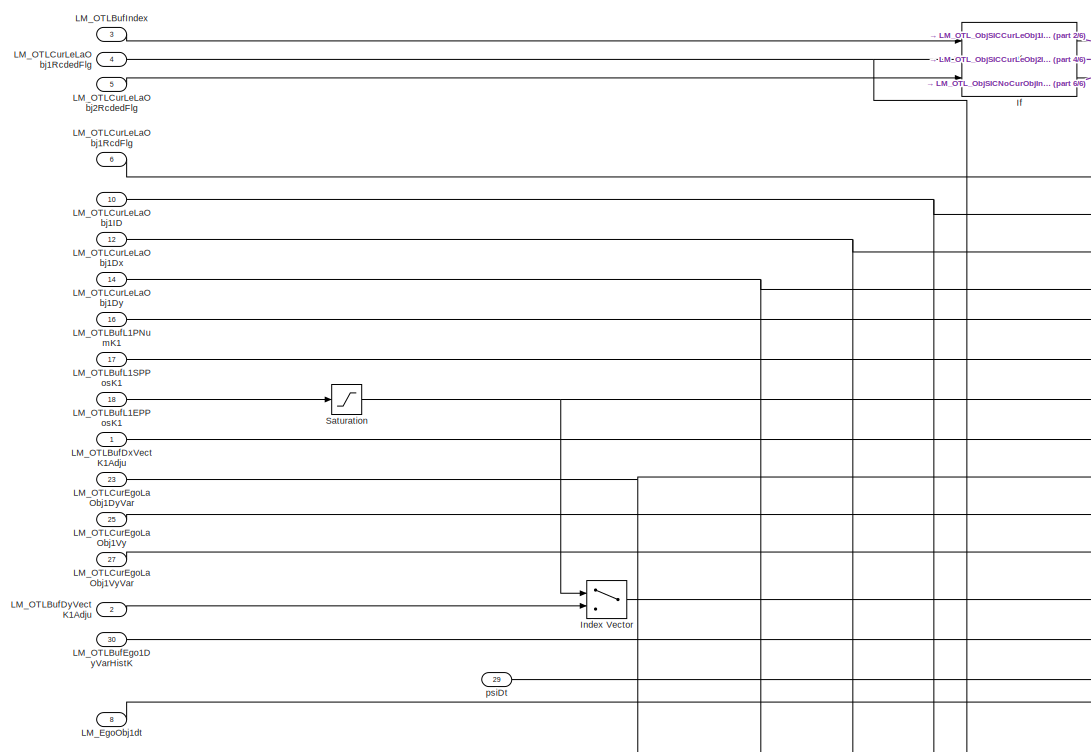
[diagram: LM_OTLBuf1InfoNew/LM_OTL_BufLe1StoreInfoCalc - part 1/6, top left region]
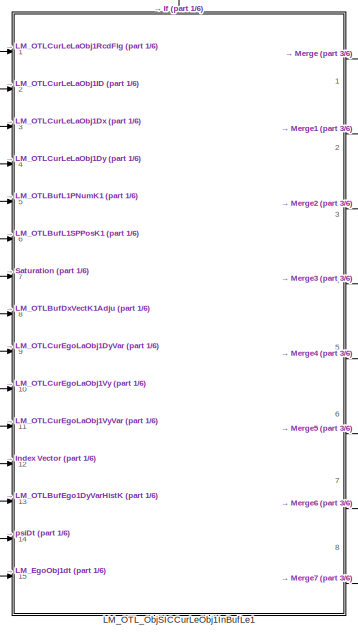
[diagram: LM_OTLBuf1InfoNew/LM_OTL_BufLe1StoreInfoCalc - part 2/6, top center region]
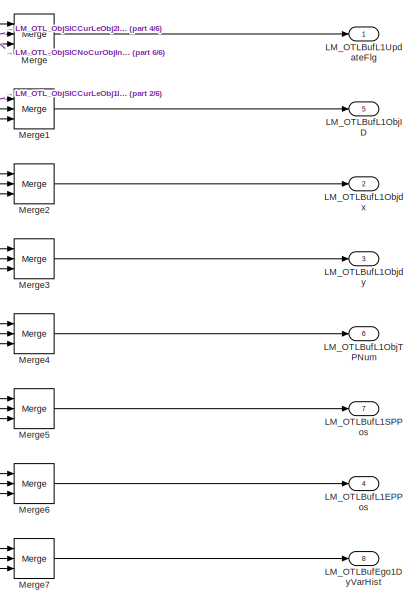
[diagram: LM_OTLBuf1InfoNew/LM_OTL_BufLe1StoreInfoCalc - part 3/6, top right region]
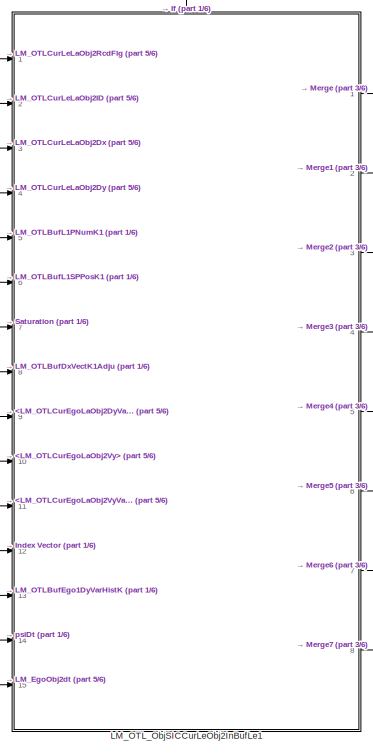
[diagram: LM_OTLBuf1InfoNew/LM_OTL_BufLe1StoreInfoCalc - part 4/6, central region]
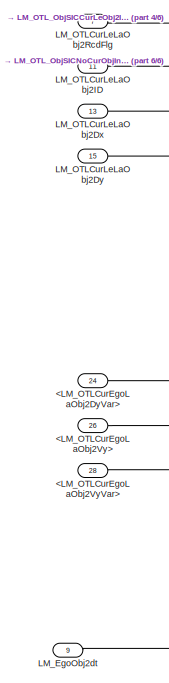
[diagram: LM_OTLBuf1InfoNew/LM_OTL_BufLe1StoreInfoCalc - part 5/6, middle left region]
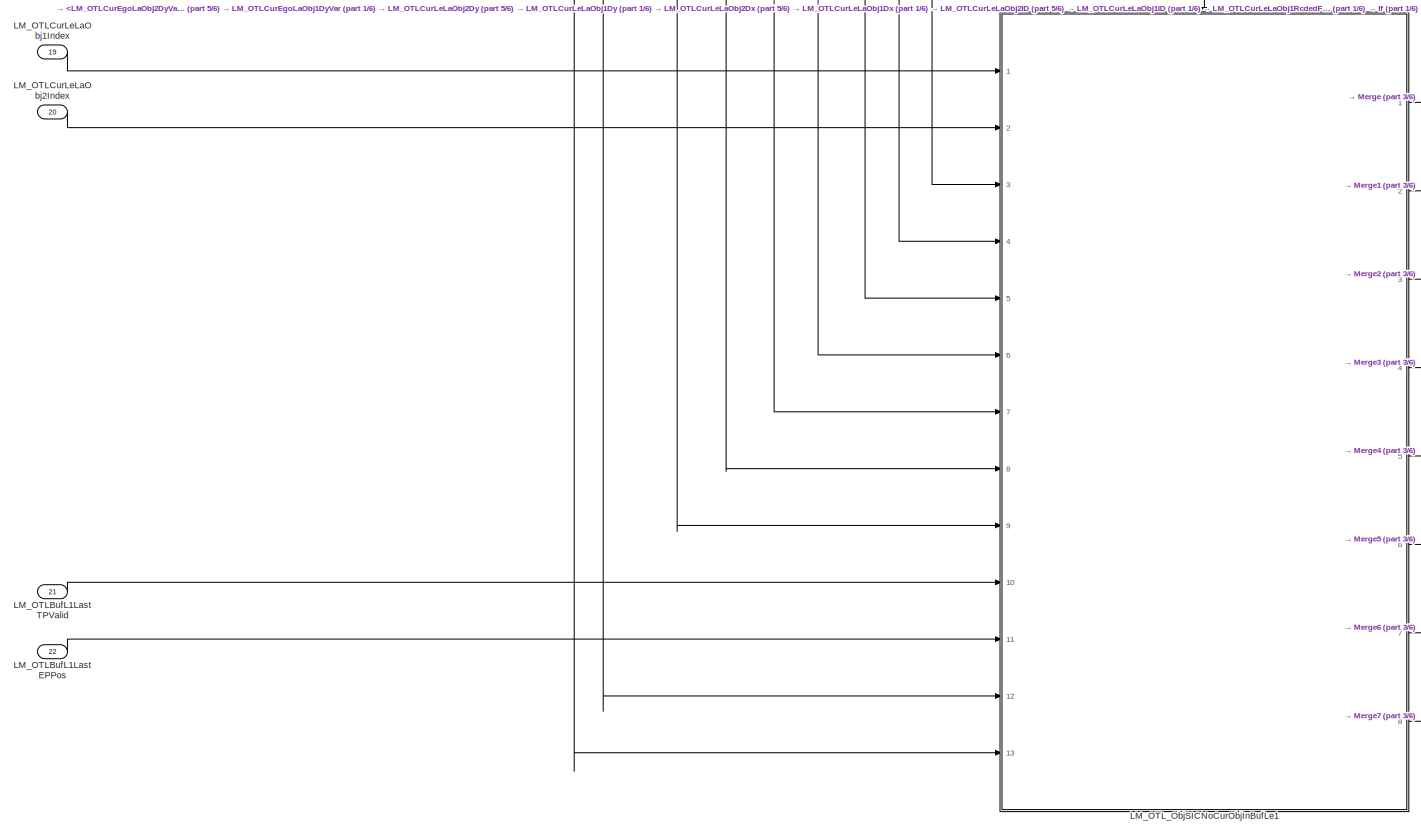
[diagram: LM_OTLBuf1InfoNew/LM_OTL_BufLe1StoreInfoCalc - part 6/6, bottom left region]
BLOCK [SubSystem] LM_OTLBuf1InfoNew/LM_OTL_BufLe1StoreInfoCalc
  Ports = [30, 8]
  RequestExecContextInheritance = off
BLOCK [Inport] LM_OTLBuf1InfoNew/LM_OTL_BufLe1StoreInfoCalc/<LM_OTLCurEgoLaObj2DyVar>
  IconDisplay = Port number
  Port = 24
BLOCK [Inport] LM_OTLBuf1InfoNew/LM_OTL_BufLe1StoreInfoCalc/<LM_OTLCurEgoLaObj2Vy>
  IconDisplay = Port number
  Port = 26
BLOCK [Inport] LM_OTLBuf1InfoNew/LM_OTL_BufLe1StoreInfoCalc/<LM_OTLCurEgoLaObj2VyVar>
  IconDisplay = Port number
  Port = 28
BLOCK [If] LM_OTLBuf1InfoNew/LM_OTL_BufLe1StoreInfoCalc/If
  ElseIfExpressions = u1 == u3
  IfExpression = u1 == u2
  NumInputs = 3
  Ports = [3, 3]
BLOCK [MultiPortSwitch] LM_OTLBuf1InfoNew/LM_OTL_BufLe1StoreInfoCalc/Index Vector
  InputSameDT = off
  Inputs = 1
  Ports = [2, 1]
  SaturateOnIntegerOverflow = off
BLOCK [Inport] LM_OTLBuf1InfoNew/LM_OTL_BufLe1StoreInfoCalc/LM_EgoObj1dt
  IconDisplay = Port number
  Port = 8
BLOCK [Inport] LM_OTLBuf1InfoNew/LM_OTL_BufLe1StoreInfoCalc/LM_EgoObj2dt
  IconDisplay = Port number
  Port = 9
BLOCK [Inport] LM_OTLBuf1InfoNew/LM_OTL_BufLe1StoreInfoCalc/LM_OTLBufDxVectK1Adju
  IconDisplay = Port number
BLOCK [Inport] LM_OTLBuf1InfoNew/LM_OTL_BufLe1StoreInfoCalc/LM_OTLBufDyVectK1Adju
  IconDisplay = Port number
  Port = 2
BLOCK [Outport] LM_OTLBuf1InfoNew/LM_OTL_BufLe1StoreInfoCalc/LM_OTLBufEgo1DyVarHist
  IconDisplay = Port number
  Port = 8
BLOCK [Inport] LM_OTLBuf1InfoNew/LM_OTL_BufLe1StoreInfoCalc/LM_OTLBufEgo1DyVarHistK
  IconDisplay = Port number
  Port = 30
BLOCK [Inport] LM_OTLBuf1InfoNew/LM_OTL_BufLe1StoreInfoCalc/LM_OTLBufIndex
  IconDisplay = Port number
  Port = 3
BLOCK [Outport] LM_OTLBuf1InfoNew/LM_OTL_BufLe1StoreInfoCalc/LM_OTLBufL1EPPos
  IconDisplay = Port number
  Port = 4
BLOCK [Inport] LM_OTLBuf1InfoNew/LM_OTL_BufLe1StoreInfoCalc/LM_OTLBufL1EPPosK1
  IconDisplay = Port number
  Port = 18
BLOCK [Inport] LM_OTLBuf1InfoNew/LM_OTL_BufLe1StoreInfoCalc/LM_OTLBufL1LastEPPos
  IconDisplay = Port number
  Port = 22
BLOCK [Inport] LM_OTLBuf1InfoNew/LM_OTL_BufLe1StoreInfoCalc/LM_OTLBufL1LastTPValid
  IconDisplay = Port number
  Port = 21
BLOCK [Outport] LM_OTLBuf1InfoNew/LM_OTL_BufLe1StoreInfoCalc/LM_OTLBufL1ObjID
  IconDisplay = Port number
  Port = 5
BLOCK [Outport] LM_OTLBuf1InfoNew/LM_OTL_BufLe1StoreInfoCalc/LM_OTLBufL1ObjTPNum
  IconDisplay = Port number
  Port = 6
BLOCK [Outport] LM_OTLBuf1InfoNew/LM_OTL_BufLe1StoreInfoCalc/LM_OTLBufL1Objdx
  IconDisplay = Port number
  Port = 2
BLOCK [Outport] LM_OTLBuf1InfoNew/LM_OTL_BufLe1StoreInfoCalc/LM_OTLBufL1Objdy
  IconDisplay = Port number
  Port = 3
BLOCK [Inport] LM_OTLBuf1InfoNew/LM_OTL_BufLe1StoreInfoCalc/LM_OTLBufL1PNumK1
  IconDisplay = Port number
  Port = 16
BLOCK [Outport] LM_OTLBuf1InfoNew/LM_OTL_BufLe1StoreInfoCalc/LM_OTLBufL1SPPos
  IconDisplay = Port number
  Port = 7
BLOCK [Inport] LM_OTLBuf1InfoNew/LM_OTL_BufLe1StoreInfoCalc/LM_OTLBufL1SPPosK1
  IconDisplay = Port number
  Port = 17
BLOCK [Outport] LM_OTLBuf1InfoNew/LM_OTL_BufLe1StoreInfoCalc/LM_OTLBufL1UpdateFlg
  IconDisplay = Port number
BLOCK [Inport] LM_OTLBuf1InfoNew/LM_OTL_BufLe1StoreInfoCalc/LM_OTLCurEgoLaObj1DyVar
  IconDisplay = Port number
  Port = 23
BLOCK [Inport] LM_OTLBuf1InfoNew/LM_OTL_BufLe1StoreInfoCalc/LM_OTLCurEgoLaObj1Vy
  IconDisplay = Port number
  Port = 25
BLOCK [Inport] LM_OTLBuf1InfoNew/LM_OTL_BufLe1StoreInfoCalc/LM_OTLCurEgoLaObj1VyVar
  IconDisplay = Port number
  Port = 27
BLOCK [Inport] LM_OTLBuf1InfoNew/LM_OTL_BufLe1StoreInfoCalc/LM_OTLCurLeLaObj1Dx
  IconDisplay = Port number
  Port = 12
BLOCK [Inport] LM_OTLBuf1InfoNew/LM_OTL_BufLe1StoreInfoCalc/LM_OTLCurLeLaObj1Dy
  IconDisplay = Port number
  Port = 14
BLOCK [Inport] LM_OTLBuf1InfoNew/LM_OTL_BufLe1StoreInfoCalc/LM_OTLCurLeLaObj1ID
  IconDisplay = Port number
  Port = 10
BLOCK [Inport] LM_OTLBuf1InfoNew/LM_OTL_BufLe1StoreInfoCalc/LM_OTLCurLeLaObj1Index
  IconDisplay = Port number
  Port = 19
BLOCK [Inport] LM_OTLBuf1InfoNew/LM_OTL_BufLe1StoreInfoCalc/LM_OTLCurLeLaObj1RcdFlg
  IconDisplay = Port number
  Port = 6
BLOCK [Inport] LM_OTLBuf1InfoNew/LM_OTL_BufLe1StoreInfoCalc/LM_OTLCurLeLaObj1RcdedFlg
  IconDisplay = Port number
  Port = 4
BLOCK [Inport] LM_OTLBuf1InfoNew/LM_OTL_BufLe1StoreInfoCalc/LM_OTLCurLeLaObj2Dx
  IconDisplay = Port number
  Port = 13
BLOCK [Inport] LM_OTLBuf1InfoNew/LM_OTL_BufLe1StoreInfoCalc/LM_OTLCurLeLaObj2Dy
  IconDisplay = Port number
  Port = 15
BLOCK [Inport] LM_OTLBuf1InfoNew/LM_OTL_BufLe1StoreInfoCalc/LM_OTLCurLeLaObj2ID
  IconDisplay = Port number
  Port = 11
BLOCK [Inport] LM_OTLBuf1InfoNew/LM_OTL_BufLe1StoreInfoCalc/LM_OTLCurLeLaObj2Index
  IconDisplay = Port number
  Port = 20
BLOCK [Inport] LM_OTLBuf1InfoNew/LM_OTL_BufLe1StoreInfoCalc/LM_OTLCurLeLaObj2RcdFlg
  IconDisplay = Port number
  Port = 7
BLOCK [Inport] LM_OTLBuf1InfoNew/LM_OTL_BufLe1StoreInfoCalc/LM_OTLCurLeLaObj2RcdedFlg
  IconDisplay = Port number
  Port = 5
BLOCK [SubSystem] LM_OTLBuf1InfoNew/LM_OTL_BufLe1StoreInfoCalc/LM_OTL_ObjSICCurLeObj1InBufLe1
  Ports = [15, 8, 0, 0, 0, 0, 0, 1]
  RequestExecContextInheritance = off
BLOCK [ActionPort] LM_OTLBuf1InfoNew/LM_OTL_BufLe1StoreInfoCalc/LM_OTL_ObjSICCurLeObj1InBufLe1/Action Port
BLOCK [From] LM_OTLBuf1InfoNew/LM_OTL_BufLe1StoreInfoCalc/LM_OTL_ObjSICCurLeObj1InBufLe1/From
  GotoTag = LM_OTLBufL1EPPos
BLOCK [Goto] LM_OTLBuf1InfoNew/LM_OTL_BufLe1StoreInfoCalc/LM_OTL_ObjSICCurLeObj1InBufLe1/Goto
  GotoTag = LM_OTLBufL1EPPos
BLOCK [Goto] LM_OTLBuf1InfoNew/LM_OTL_BufLe1StoreInfoCalc/LM_OTL_ObjSICCurLeObj1InBufLe1/Goto1
  GotoTag = LM_OTLBufL1ObjTPNum
BLOCK [Inport] LM_OTLBuf1InfoNew/LM_OTL_BufLe1StoreInfoCalc/LM_OTL_ObjSICCurLeObj1InBufLe1/LM_OTLBufDxVectK1Adju
  IconDisplay = Port number
  Port = 8
BLOCK [Inport] LM_OTLBuf1InfoNew/LM_OTL_BufLe1StoreInfoCalc/LM_OTL_ObjSICCurLeObj1InBufLe1/LM_OTLBufEgo1DyFiltHistK
  IconDisplay = Port number
  Port = 12
BLOCK [Outport] LM_OTLBuf1InfoNew/LM_OTL_BufLe1StoreInfoCalc/LM_OTL_ObjSICCurLeObj1InBufLe1/LM_OTLBufEgo1DyVarHist
  IconDisplay = Port number
  Port = 8
BLOCK [Inport] LM_OTLBuf1InfoNew/LM_OTL_BufLe1StoreInfoCalc/LM_OTL_ObjSICCurLeObj1InBufLe1/LM_OTLBufEgo1DyVarHistK
  IconDisplay = Port number
  Port = 13
BLOCK [Inport] LM_OTLBuf1InfoNew/LM_OTL_BufLe1StoreInfoCalc/LM_OTL_ObjSICCurLeObj1InBufLe1/LM_OTLBufL1EPPosK1
  IconDisplay = Port number
  Port = 7
BLOCK [Outport] LM_OTLBuf1InfoNew/LM_OTL_BufLe1StoreInfoCalc/LM_OTL_ObjSICCurLeObj1InBufLe1/LM_OTLBufL1ObjID
  IconDisplay = Port number
  Port = 2
BLOCK [Outport] LM_OTLBuf1InfoNew/LM_OTL_BufLe1StoreInfoCalc/LM_OTL_ObjSICCurLeObj1InBufLe1/LM_OTLBufL1ObjTPEP
  IconDisplay = Port number
  Port = 7
BLOCK [Outport] LM_OTLBuf1InfoNew/LM_OTL_BufLe1StoreInfoCalc/LM_OTL_ObjSICCurLeObj1InBufLe1/LM_OTLBufL1ObjTPNum
  IconDisplay = Port number
  Port = 5
BLOCK [Outport] LM_OTLBuf1InfoNew/LM_OTL_BufLe1StoreInfoCalc/LM_OTL_ObjSICCurLeObj1InBufLe1/LM_OTLBufL1ObjTPSP
  IconDisplay = Port number
  Port = 6
BLOCK [Outport] LM_OTLBuf1InfoNew/LM_OTL_BufLe1StoreInfoCalc/LM_OTL_ObjSICCurLeObj1InBufLe1/LM_OTLBufL1Objdx
  IconDisplay = Port number
  Port = 3
BLOCK [Outport] LM_OTLBuf1InfoNew/LM_OTL_BufLe1StoreInfoCalc/LM_OTL_ObjSICCurLeObj1InBufLe1/LM_OTLBufL1Objdy
  IconDisplay = Port number
  Port = 4
BLOCK [Inport] LM_OTLBuf1InfoNew/LM_OTL_BufLe1StoreInfoCalc/LM_OTL_ObjSICCurLeObj1InBufLe1/LM_OTLBufL1PNumK1
  IconDisplay = Port number
  Port = 5
BLOCK [Inport] LM_OTLBuf1InfoNew/LM_OTL_BufLe1StoreInfoCalc/LM_OTL_ObjSICCurLeObj1InBufLe1/LM_OTLBufL1SPPosK1
  IconDisplay = Port number
  Port = 6
BLOCK [Outport] LM_OTLBuf1InfoNew/LM_OTL_BufLe1StoreInfoCalc/LM_OTL_ObjSICCurLeObj1InBufLe1/LM_OTLBufL1UpdateFlg
  IconDisplay = Port number
BLOCK [Inport] LM_OTLBuf1InfoNew/LM_OTL_BufLe1StoreInfoCalc/LM_OTL_ObjSICCurLeObj1InBufLe1/LM_OTLCurEgoLaObj1DyVar
  IconDisplay = Port number
  Port = 9
BLOCK [Inport] LM_OTLBuf1InfoNew/LM_OTL_BufLe1StoreInfoCalc/LM_OTL_ObjSICCurLeObj1InBufLe1/LM_OTLCurEgoLaObj1Vy
  IconDisplay = Port number
  Port = 10
BLOCK [Inport] LM_OTLBuf1InfoNew/LM_OTL_BufLe1StoreInfoCalc/LM_OTL_ObjSICCurLeObj1InBufLe1/LM_OTLCurEgoLaObj1VyVar
  IconDisplay = Port number
  Port = 11
BLOCK [Inport] LM_OTLBuf1InfoNew/LM_OTL_BufLe1StoreInfoCalc/LM_OTL_ObjSICCurLeObj1InBufLe1/LM_OTLCurLeLaObj1Dx
  IconDisplay = Port number
  Port = 3
BLOCK [Inport] LM_OTLBuf1InfoNew/LM_OTL_BufLe1StoreInfoCalc/LM_OTL_ObjSICCurLeObj1InBufLe1/LM_OTLCurLeLaObj1Dy
  IconDisplay = Port number
  Port = 4
BLOCK [Inport] LM_OTLBuf1InfoNew/LM_OTL_BufLe1StoreInfoCalc/LM_OTL_ObjSICCurLeObj1InBufLe1/LM_OTLCurLeLaObj1ID
  IconDisplay = Port number
  Port = 2
BLOCK [Inport] LM_OTLBuf1InfoNew/LM_OTL_BufLe1StoreInfoCalc/LM_OTL_ObjSICCurLeObj1InBufLe1/LM_OTLCurLeLaObj1RcdFlg
  IconDisplay = Port number
BLOCK [SubSystem] LM_OTLBuf1InfoNew/LM_OTL_BufLe1StoreInfoCalc/LM_OTL_ObjSICCurLeObj1InBufLe1/LM_OTL_BufL1DxInfo
  Ports = [2, 1]
  RequestExecContextInheritance = off
BLOCK [Constant] LM_OTLBuf1InfoNew/LM_OTL_BufLe1StoreInfoCalc/LM_OTL_ObjSICCurLeObj1InBufLe1/LM_OTL_BufL1DxInfo/Constant
  OutDataTypeStr = single
  Value = 0
BLOCK [Outport] LM_OTLBuf1InfoNew/LM_OTL_BufLe1StoreInfoCalc/LM_OTL_ObjSICCurLeObj1InBufLe1/LM_OTL_BufL1DxInfo/LM_OTLBufL1Objdx
  IconDisplay = Port number
BLOCK [Inport] LM_OTLBuf1InfoNew/LM_OTL_BufLe1StoreInfoCalc/LM_OTL_ObjSICCurLeObj1InBufLe1/LM_OTL_BufL1DxInfo/LM_OTLCurLeLaObj1Dx
  IconDisplay = Port number
BLOCK [Inport] LM_OTLBuf1InfoNew/LM_OTL_BufLe1StoreInfoCalc/LM_OTL_ObjSICCurLeObj1InBufLe1/LM_OTL_BufL1DxInfo/LM_OTLCurLeLaObj1RcdFlg
  IconDisplay = Port number
  Port = 2
BLOCK [Switch] LM_OTLBuf1InfoNew/LM_OTL_BufLe1StoreInfoCalc/LM_OTL_ObjSICCurLeObj1InBufLe1/LM_OTL_BufL1DxInfo/Switch4
  Criteria = u2 ~= 0
  InputSameDT = off
  SaturateOnIntegerOverflow = off
BLOCK [SubSystem] LM_OTLBuf1InfoNew/LM_OTL_BufLe1StoreInfoCalc/LM_OTL_ObjSICCurLeObj1InBufLe1/LM_OTL_BufL1DyInfo
  Ports = [10, 2]
  RequestExecContextInheritance = off
BLOCK [Constant] LM_OTLBuf1InfoNew/LM_OTL_BufLe1StoreInfoCalc/LM_OTL_ObjSICCurLeObj1InBufLe1/LM_OTL_BufL1DyInfo/Constant
  OutDataTypeStr = single
  Value = 0
BLOCK [Inport] LM_OTLBuf1InfoNew/LM_OTL_BufLe1StoreInfoCalc/LM_OTL_ObjSICCurLeObj1InBufLe1/LM_OTL_BufL1DyInfo/LM_OTLBufEgo1DyFiltHistK
  IconDisplay = Port number
  Port = 7
BLOCK [Outport] LM_OTLBuf1InfoNew/LM_OTL_BufLe1StoreInfoCalc/LM_OTL_ObjSICCurLeObj1InBufLe1/LM_OTL_BufL1DyInfo/LM_OTLBufEgo1DyVarHist
  IconDisplay = Port number
  Port = 2
BLOCK [Inport] LM_OTLBuf1InfoNew/LM_OTL_BufLe1StoreInfoCalc/LM_OTL_ObjSICCurLeObj1InBufLe1/LM_OTL_BufL1DyInfo/LM_OTLBufEgo1DyVarHistK
  IconDisplay = Port number
  Port = 8
BLOCK [Outport] LM_OTLBuf1InfoNew/LM_OTL_BufLe1StoreInfoCalc/LM_OTL_ObjSICCurLeObj1InBufLe1/LM_OTL_BufL1DyInfo/LM_OTLBufL1ObjDy
  IconDisplay = Port number
BLOCK [Inport] LM_OTLBuf1InfoNew/LM_OTL_BufLe1StoreInfoCalc/LM_OTL_ObjSICCurLeObj1InBufLe1/LM_OTL_BufL1DyInfo/LM_OTLCurEgoLaObj1DyVar
  IconDisplay = Port number
  Port = 4
BLOCK [Inport] LM_OTLBuf1InfoNew/LM_OTL_BufLe1StoreInfoCalc/LM_OTL_ObjSICCurLeObj1InBufLe1/LM_OTL_BufL1DyInfo/LM_OTLCurEgoLaObj1Vy
  IconDisplay = Port number
  Port = 5
BLOCK [Inport] LM_OTLBuf1InfoNew/LM_OTL_BufLe1StoreInfoCalc/LM_OTL_ObjSICCurLeObj1InBufLe1/LM_OTL_BufL1DyInfo/LM_OTLCurEgoLaObj1VyVar
  IconDisplay = Port number
  Port = 6
BLOCK [Inport] LM_OTLBuf1InfoNew/LM_OTL_BufLe1StoreInfoCalc/LM_OTL_ObjSICCurLeObj1InBufLe1/LM_OTL_BufL1DyInfo/LM_OTLCurLeLaObj1Dx
  IconDisplay = Port number
  Port = 3
BLOCK [Inport] LM_OTLBuf1InfoNew/LM_OTL_BufLe1StoreInfoCalc/LM_OTL_ObjSICCurLeObj1InBufLe1/LM_OTL_BufL1DyInfo/LM_OTLCurLeLaObj1Dy
  IconDisplay = Port number
BLOCK [Inport] LM_OTLBuf1InfoNew/LM_OTL_BufLe1StoreInfoCalc/LM_OTL_ObjSICCurLeObj1InBufLe1/LM_OTL_BufL1DyInfo/LM_OTLCurLeLaObj1RcdFlg
  IconDisplay = Port number
  Port = 2
BLOCK [SubSystem] LM_OTLBuf1InfoNew/LM_OTL_BufLe1StoreInfoCalc/LM_OTL_ObjSICCurLeObj1InBufLe1/LM_OTL_BufL1DyInfo/MATLAB Function
  ErrorFcn = Stateflow.Translate.translate
  PermitHierarchicalResolution = ExplicitOnly
  Ports = [9, 2]
  RequestExecContextInheritance = off
  SFBlockType = MATLAB Function
  TreatAsAtomicUnit = on
BLOCK [Demux] LM_OTLBuf1InfoNew/LM_OTL_BufLe1StoreInfoCalc/LM_OTL_ObjSICCurLeObj1InBufLe1/LM_OTL_BufL1DyInfo/MATLAB Function/ Demux 
  Outputs = 1
  Ports = [1, 1]
BLOCK [S-Function] LM_OTLBuf1InfoNew/LM_OTL_BufLe1StoreInfoCalc/LM_OTL_ObjSICCurLeObj1InBufLe1/LM_OTL_BufL1DyInfo/MATLAB Function/ SFunction 
  EnableBusSupport = on
  FunctionName = sf_sfun
  PortCounts = [9 3]
  Ports = [9, 3]
  SFcnIsStateOwnerBlock = off
  SFunctionDeploymentMode = off
  Tag = Stateflow S-Function 31
BLOCK [Terminator] LM_OTLBuf1InfoNew/LM_OTL_BufLe1StoreInfoCalc/LM_OTL_ObjSICCurLeObj1InBufLe1/LM_OTL_BufL1DyInfo/MATLAB Function/ Terminator 
BLOCK [Inport] LM_OTLBuf1InfoNew/LM_OTL_BufLe1StoreInfoCalc/LM_OTL_ObjSICCurLeObj1InBufLe1/LM_OTL_BufL1DyInfo/MATLAB Function/dx
  IconDisplay = Port number
BLOCK [Inport] LM_OTLBuf1InfoNew/LM_OTL_BufLe1StoreInfoCalc/LM_OTL_ObjSICCurLeObj1InBufLe1/LM_OTL_BufL1DyInfo/MATLAB Function/dy
  IconDisplay = Port number
  Port = 2
BLOCK [Outport] LM_OTLBuf1InfoNew/LM_OTL_BufLe1StoreInfoCalc/LM_OTL_ObjSICCurLeObj1InBufLe1/LM_OTL_BufL1DyInfo/MATLAB Function/dyFilt
  IconDisplay = Port number
BLOCK [Inport] LM_OTLBuf1InfoNew/LM_OTL_BufLe1StoreInfoCalc/LM_OTL_ObjSICCurLeObj1InBufLe1/LM_OTL_BufL1DyInfo/MATLAB Function/dyHist
  IconDisplay = Port number
  Port = 8
BLOCK [Inport] LM_OTLBuf1InfoNew/LM_OTL_BufLe1StoreInfoCalc/LM_OTL_ObjSICCurLeObj1InBufLe1/LM_OTL_BufL1DyInfo/MATLAB Function/psiDt
  IconDisplay = Port number
  Port = 6
BLOCK [Inport] LM_OTLBuf1InfoNew/LM_OTL_BufLe1StoreInfoCalc/LM_OTL_ObjSICCurLeObj1InBufLe1/LM_OTL_BufL1DyInfo/MATLAB Function/tDt
  IconDisplay = Port number
  Port = 7
BLOCK [Inport] LM_OTLBuf1InfoNew/LM_OTL_BufLe1StoreInfoCalc/LM_OTL_ObjSICCurLeObj1InBufLe1/LM_OTL_BufL1DyInfo/MATLAB Function/varDy
  IconDisplay = Port number
  Port = 3
BLOCK [Outport] LM_OTLBuf1InfoNew/LM_OTL_BufLe1StoreInfoCalc/LM_OTL_ObjSICCurLeObj1InBufLe1/LM_OTL_BufL1DyInfo/MATLAB Function/varDyFilt
  IconDisplay = Port number
  Port = 2
BLOCK [Inport] LM_OTLBuf1InfoNew/LM_OTL_BufLe1StoreInfoCalc/LM_OTL_ObjSICCurLeObj1InBufLe1/LM_OTL_BufL1DyInfo/MATLAB Function/varDyHist
  IconDisplay = Port number
  Port = 9
BLOCK [Inport] LM_OTLBuf1InfoNew/LM_OTL_BufLe1StoreInfoCalc/LM_OTL_ObjSICCurLeObj1InBufLe1/LM_OTL_BufL1DyInfo/MATLAB Function/varVy
  IconDisplay = Port number
  Port = 5
BLOCK [Inport] LM_OTLBuf1InfoNew/LM_OTL_BufLe1StoreInfoCalc/LM_OTL_ObjSICCurLeObj1InBufLe1/LM_OTL_BufL1DyInfo/MATLAB Function/vy
  IconDisplay = Port number
  Port = 4
BLOCK [Switch] LM_OTLBuf1InfoNew/LM_OTL_BufLe1StoreInfoCalc/LM_OTL_ObjSICCurLeObj1InBufLe1/LM_OTL_BufL1DyInfo/Switch1
  Criteria = u2 ~= 0
  InputSameDT = off
  SaturateOnIntegerOverflow = off
BLOCK [Switch] LM_OTLBuf1InfoNew/LM_OTL_BufLe1StoreInfoCalc/LM_OTL_ObjSICCurLeObj1InBufLe1/LM_OTL_BufL1DyInfo/Switch4
  Criteria = u2 ~= 0
  InputSameDT = off
  SaturateOnIntegerOverflow = off
BLOCK [Inport] LM_OTLBuf1InfoNew/LM_OTL_BufLe1StoreInfoCalc/LM_OTL_ObjSICCurLeObj1InBufLe1/LM_OTL_BufL1DyInfo/psiDt
  IconDisplay = Port number
  Port = 9
BLOCK [Inport] LM_OTLBuf1InfoNew/LM_OTL_BufLe1StoreInfoCalc/LM_OTL_ObjSICCurLeObj1InBufLe1/LM_OTL_BufL1DyInfo/tDt
  IconDisplay = Port number
  Port = 10
BLOCK [SubSystem] LM_OTLBuf1InfoNew/LM_OTL_BufLe1StoreInfoCalc/LM_OTL_ObjSICCurLeObj1InBufLe1/LM_OTL_BufL1EPInfo
  Ports = [2, 1]
  RequestExecContextInheritance = off
BLOCK [Sum] LM_OTLBuf1InfoNew/LM_OTL_BufLe1StoreInfoCalc/LM_OTL_ObjSICCurLeObj1InBufLe1/LM_OTL_BufL1EPInfo/Add
  InputSameDT = off
  OutDataTypeStr = Inherit: Inherit via internal rule
  Ports = [2, 1]
  SaturateOnIntegerOverflow = off
BLOCK [Constant] LM_OTLBuf1InfoNew/LM_OTL_BufLe1StoreInfoCalc/LM_OTL_ObjSICCurLeObj1InBufLe1/LM_OTL_BufL1EPInfo/Constant
  OutDataTypeStr = uint8
BLOCK [Constant] LM_OTLBuf1InfoNew/LM_OTL_BufLe1StoreInfoCalc/LM_OTL_ObjSICCurLeObj1InBufLe1/LM_OTL_BufL1EPInfo/Constant1
  OutDataTypeStr = uint8
  Value = P_LM_OTLTPNum
BLOCK [Constant] LM_OTLBuf1InfoNew/LM_OTL_BufLe1StoreInfoCalc/LM_OTL_ObjSICCurLeObj1InBufLe1/LM_OTL_BufL1EPInfo/Constant2
  OutDataTypeStr = uint8
BLOCK [Outport] LM_OTLBuf1InfoNew/LM_OTL_BufLe1StoreInfoCalc/LM_OTL_ObjSICCurLeObj1InBufLe1/LM_OTL_BufL1EPInfo/LM_OTLBufL1EPPos
  IconDisplay = Port number
BLOCK [Inport] LM_OTLBuf1InfoNew/LM_OTL_BufLe1StoreInfoCalc/LM_OTL_ObjSICCurLeObj1InBufLe1/LM_OTL_BufL1EPInfo/LM_OTLBufL1EPPosK1
  IconDisplay = Port number
  Port = 2
BLOCK [Inport] LM_OTLBuf1InfoNew/LM_OTL_BufLe1StoreInfoCalc/LM_OTL_ObjSICCurLeObj1InBufLe1/LM_OTL_BufL1EPInfo/LM_OTLCurLeLaObj1RcdFlg
  IconDisplay = Port number
BLOCK [RelationalOperator] LM_OTLBuf1InfoNew/LM_OTL_BufLe1StoreInfoCalc/LM_OTL_ObjSICCurLeObj1InBufLe1/LM_OTL_BufL1EPInfo/Relational Operator
  InputSameDT = off
  Operator = >
  OutDataTypeStr = boolean
  Ports = [2, 1]
  RndMeth = Simplest
BLOCK [Switch] LM_OTLBuf1InfoNew/LM_OTL_BufLe1StoreInfoCalc/LM_OTL_ObjSICCurLeObj1InBufLe1/LM_OTL_BufL1EPInfo/Switch1
  Criteria = u2 ~= 0
  InputSameDT = off
  SaturateOnIntegerOverflow = off
BLOCK [Switch] LM_OTLBuf1InfoNew/LM_OTL_BufLe1StoreInfoCalc/LM_OTL_ObjSICCurLeObj1InBufLe1/LM_OTL_BufL1EPInfo/Switch4
  Criteria = u2 ~= 0
  InputSameDT = off
  SaturateOnIntegerOverflow = off
BLOCK [SubSystem] LM_OTLBuf1InfoNew/LM_OTL_BufLe1StoreInfoCalc/LM_OTL_ObjSICCurLeObj1InBufLe1/LM_OTL_BufL1IDInfo
  Ports = [1, 1]
  RequestExecContextInheritance = off
BLOCK [Outport] LM_OTLBuf1InfoNew/LM_OTL_BufLe1StoreInfoCalc/LM_OTL_ObjSICCurLeObj1InBufLe1/LM_OTL_BufL1IDInfo/LM_OTLBufL1ObjID
  IconDisplay = Port number
BLOCK [Inport] LM_OTLBuf1InfoNew/LM_OTL_BufLe1StoreInfoCalc/LM_OTL_ObjSICCurLeObj1InBufLe1/LM_OTL_BufL1IDInfo/LM_OTLCurLeLaObj1ID
  IconDisplay = Port number
BLOCK [SignalConversion] LM_OTLBuf1InfoNew/LM_OTL_BufLe1StoreInfoCalc/LM_OTL_ObjSICCurLeObj1InBufLe1/LM_OTL_BufL1IDInfo/Signal Conversion
  OverrideOpt = off
BLOCK [SubSystem] LM_OTLBuf1InfoNew/LM_OTL_BufLe1StoreInfoCalc/LM_OTL_ObjSICCurLeObj1InBufLe1/LM_OTL_BufL1PNumAndSPInfo
  Ports = [5, 2]
  RequestExecContextInheritance = off
BLOCK [Sum] LM_OTLBuf1InfoNew/LM_OTL_BufLe1StoreInfoCalc/LM_OTL_ObjSICCurLeObj1InBufLe1/LM_OTL_BufL1PNumAndSPInfo/Add
  InputSameDT = off
  OutDataTypeStr = Inherit: Inherit via internal rule
  Ports = [2, 1]
  SaturateOnIntegerOverflow = off
BLOCK [Sum] LM_OTLBuf1InfoNew/LM_OTL_BufLe1StoreInfoCalc/LM_OTL_ObjSICCurLeObj1InBufLe1/LM_OTL_BufL1PNumAndSPInfo/Add1
  InputSameDT = off
  OutDataTypeStr = Inherit: Inherit via internal rule
  Ports = [2, 1]
  SaturateOnIntegerOverflow = off
BLOCK [Sum] LM_OTLBuf1InfoNew/LM_OTL_BufLe1StoreInfoCalc/LM_OTL_ObjSICCurLeObj1InBufLe1/LM_OTL_BufL1PNumAndSPInfo/Add2
  InputSameDT = off
  OutDataTypeStr = Inherit: Inherit via internal rule
  Ports = [2, 1]
  SaturateOnIntegerOverflow = off
BLOCK [Constant] LM_OTLBuf1InfoNew/LM_OTL_BufLe1StoreInfoCalc/LM_OTL_ObjSICCurLeObj1InBufLe1/LM_OTL_BufL1PNumAndSPInfo/Constant
  OutDataTypeStr = uint8
BLOCK [Constant] LM_OTLBuf1InfoNew/LM_OTL_BufLe1StoreInfoCalc/LM_OTL_ObjSICCurLeObj1InBufLe1/LM_OTL_BufL1PNumAndSPInfo/Constant1
  OutDataTypeStr = uint8
BLOCK [Constant] LM_OTLBuf1InfoNew/LM_OTL_BufLe1StoreInfoCalc/LM_OTL_ObjSICCurLeObj1InBufLe1/LM_OTL_BufL1PNumAndSPInfo/Constant2
  OutDataTypeStr = uint8
  Value = P_LM_OTLTPNum
BLOCK [Constant] LM_OTLBuf1InfoNew/LM_OTL_BufLe1StoreInfoCalc/LM_OTL_ObjSICCurLeObj1InBufLe1/LM_OTL_BufL1PNumAndSPInfo/Constant3
  OutDataTypeStr = uint8
BLOCK [Constant] LM_OTLBuf1InfoNew/LM_OTL_BufLe1StoreInfoCalc/LM_OTL_ObjSICCurLeObj1InBufLe1/LM_OTL_BufL1PNumAndSPInfo/Constant4
  OutDataTypeStr = uint8
  Value = P_LM_OTLTPNum
BLOCK [Constant] LM_OTLBuf1InfoNew/LM_OTL_BufLe1StoreInfoCalc/LM_OTL_ObjSICCurLeObj1InBufLe1/LM_OTL_BufL1PNumAndSPInfo/Constant5
  Value = P_LM_OTLRearMaxDis
BLOCK [Constant] LM_OTLBuf1InfoNew/LM_OTL_BufLe1StoreInfoCalc/LM_OTL_ObjSICCurLeObj1InBufLe1/LM_OTL_BufL1PNumAndSPInfo/Constant6
  OutDataTypeStr = uint8
BLOCK [Constant] LM_OTLBuf1InfoNew/LM_OTL_BufLe1StoreInfoCalc/LM_OTL_ObjSICCurLeObj1InBufLe1/LM_OTL_BufL1PNumAndSPInfo/Constant7
  OutDataTypeStr = uint8
  Value = P_LM_OTLTPNum
BLOCK [Constant] LM_OTLBuf1InfoNew/LM_OTL_BufLe1StoreInfoCalc/LM_OTL_ObjSICCurLeObj1InBufLe1/LM_OTL_BufL1PNumAndSPInfo/Constant8
  OutDataTypeStr = uint8
BLOCK [Display] LM_OTLBuf1InfoNew/LM_OTL_BufLe1StoreInfoCalc/LM_OTL_ObjSICCurLeObj1InBufLe1/LM_OTL_BufL1PNumAndSPInfo/Display3
  Decimation = 1
  Ports = [1]
BLOCK [Display] LM_OTLBuf1InfoNew/LM_OTL_BufLe1StoreInfoCalc/LM_OTL_ObjSICCurLeObj1InBufLe1/LM_OTL_BufL1PNumAndSPInfo/Display4
  Decimation = 1
  Ports = [1]
BLOCK [MultiPortSwitch] LM_OTLBuf1InfoNew/LM_OTL_BufLe1StoreInfoCalc/LM_OTL_ObjSICCurLeObj1InBufLe1/LM_OTL_BufL1PNumAndSPInfo/Index Vector
  InputSameDT = off
  Inputs = 1
  Ports = [2, 1]
  SaturateOnIntegerOverflow = off
BLOCK [Inport] LM_OTLBuf1InfoNew/LM_OTL_BufLe1StoreInfoCalc/LM_OTL_ObjSICCurLeObj1InBufLe1/LM_OTL_BufL1PNumAndSPInfo/LM_OTLBufDxVectK1Adju
  IconDisplay = Port number
  Port = 5
BLOCK [Inport] LM_OTLBuf1InfoNew/LM_OTL_BufLe1StoreInfoCalc/LM_OTL_ObjSICCurLeObj1InBufLe1/LM_OTL_BufL1PNumAndSPInfo/LM_OTLBufL1EPPos
  IconDisplay = Port number
  Port = 4
BLOCK [Outport] LM_OTLBuf1InfoNew/LM_OTL_BufLe1StoreInfoCalc/LM_OTL_ObjSICCurLeObj1InBufLe1/LM_OTL_BufL1PNumAndSPInfo/LM_OTLBufL1PNum
  IconDisplay = Port number
BLOCK [Inport] LM_OTLBuf1InfoNew/LM_OTL_BufLe1StoreInfoCalc/LM_OTL_ObjSICCurLeObj1InBufLe1/LM_OTL_BufL1PNumAndSPInfo/LM_OTLBufL1PNumK1
  IconDisplay = Port number
BLOCK [Outport] LM_OTLBuf1InfoNew/LM_OTL_BufLe1StoreInfoCalc/LM_OTL_ObjSICCurLeObj1InBufLe1/LM_OTL_BufL1PNumAndSPInfo/LM_OTLBufL1SPPos
  IconDisplay = Port number
  Port = 2
BLOCK [Inport] LM_OTLBuf1InfoNew/LM_OTL_BufLe1StoreInfoCalc/LM_OTL_ObjSICCurLeObj1InBufLe1/LM_OTL_BufL1PNumAndSPInfo/LM_OTLBufL1SPPosK1
  IconDisplay = Port number
  Port = 3
BLOCK [Inport] LM_OTLBuf1InfoNew/LM_OTL_BufLe1StoreInfoCalc/LM_OTL_ObjSICCurLeObj1InBufLe1/LM_OTL_BufL1PNumAndSPInfo/LM_OTLCurLeLaObj1RcdFlg
  IconDisplay = Port number
  Port = 2
BLOCK [Logic] LM_OTLBuf1InfoNew/LM_OTL_BufLe1StoreInfoCalc/LM_OTL_ObjSICCurLeObj1InBufLe1/LM_OTL_BufL1PNumAndSPInfo/Logical Operator
  AllPortsSameDT = off
  OutDataTypeStr = boolean
  Ports = [2, 1]
BLOCK [Logic] LM_OTLBuf1InfoNew/LM_OTL_BufLe1StoreInfoCalc/LM_OTL_ObjSICCurLeObj1InBufLe1/LM_OTL_BufL1PNumAndSPInfo/Logical Operator1
  AllPortsSameDT = off
  OutDataTypeStr = boolean
  Ports = [2, 1]
BLOCK [RelationalOperator] LM_OTLBuf1InfoNew/LM_OTL_BufLe1StoreInfoCalc/LM_OTL_ObjSICCurLeObj1InBufLe1/LM_OTL_BufL1PNumAndSPInfo/Relational Operator
  InputSameDT = off
  Operator = ==
  OutDataTypeStr = boolean
  Ports = [2, 1]
  RndMeth = Simplest
BLOCK [RelationalOperator] LM_OTLBuf1InfoNew/LM_OTL_BufLe1StoreInfoCalc/LM_OTL_ObjSICCurLeObj1InBufLe1/LM_OTL_BufL1PNumAndSPInfo/Relational Operator1
  InputSameDT = off
  Operator = ==
  OutDataTypeStr = boolean
  Ports = [2, 1]
  RndMeth = Simplest
BLOCK [RelationalOperator] LM_OTLBuf1InfoNew/LM_OTL_BufLe1StoreInfoCalc/LM_OTL_ObjSICCurLeObj1InBufLe1/LM_OTL_BufL1PNumAndSPInfo/Relational Operator2
  InputSameDT = off
  Operator = >
  OutDataTypeStr = boolean
  Ports = [2, 1]
  RndMeth = Simplest
BLOCK [RelationalOperator] LM_OTLBuf1InfoNew/LM_OTL_BufLe1StoreInfoCalc/LM_OTL_ObjSICCurLeObj1InBufLe1/LM_OTL_BufL1PNumAndSPInfo/Relational Operator3
  InputSameDT = off
  Operator = <=
  OutDataTypeStr = boolean
  Ports = [2, 1]
  RndMeth = Simplest
BLOCK [RelationalOperator] LM_OTLBuf1InfoNew/LM_OTL_BufLe1StoreInfoCalc/LM_OTL_ObjSICCurLeObj1InBufLe1/LM_OTL_BufL1PNumAndSPInfo/Relational Operator4
  InputSameDT = off
  Operator = >
  OutDataTypeStr = boolean
  Ports = [2, 1]
  RndMeth = Simplest
BLOCK [Saturate] LM_OTLBuf1InfoNew/LM_OTL_BufLe1StoreInfoCalc/LM_OTL_ObjSICCurLeObj1InBufLe1/LM_OTL_BufL1PNumAndSPInfo/Saturation
  InputPortMap = u0
  LowerLimit = 0
  Ports = [1, 1]
  UpperLimit = 80
BLOCK [Saturate] LM_OTLBuf1InfoNew/LM_OTL_BufLe1StoreInfoCalc/LM_OTL_ObjSICCurLeObj1InBufLe1/LM_OTL_BufL1PNumAndSPInfo/Saturation1
  InputPortMap = u0
  LowerLimit = 0
  Ports = [1, 1]
  UpperLimit = 80
BLOCK [Sum] LM_OTLBuf1InfoNew/LM_OTL_BufLe1StoreInfoCalc/LM_OTL_ObjSICCurLeObj1InBufLe1/LM_OTL_BufL1PNumAndSPInfo/Subtract
  InputSameDT = off
  Inputs = +-
  OutDataTypeStr = Inherit: Inherit via internal rule
  Ports = [2, 1]
  SaturateOnIntegerOverflow = off
BLOCK [Switch] LM_OTLBuf1InfoNew/LM_OTL_BufLe1StoreInfoCalc/LM_OTL_ObjSICCurLeObj1InBufLe1/LM_OTL_BufL1PNumAndSPInfo/Switch
  Criteria = u2 ~= 0
  InputSameDT = off
  SaturateOnIntegerOverflow = off
BLOCK [Switch] LM_OTLBuf1InfoNew/LM_OTL_BufLe1StoreInfoCalc/LM_OTL_ObjSICCurLeObj1InBufLe1/LM_OTL_BufL1PNumAndSPInfo/Switch1
  Criteria = u2 ~= 0
  InputSameDT = off
  SaturateOnIntegerOverflow = off
BLOCK [Switch] LM_OTLBuf1InfoNew/LM_OTL_BufLe1StoreInfoCalc/LM_OTL_ObjSICCurLeObj1InBufLe1/LM_OTL_BufL1PNumAndSPInfo/Switch2
  Criteria = u2 ~= 0
  InputSameDT = off
  SaturateOnIntegerOverflow = off
BLOCK [Switch] LM_OTLBuf1InfoNew/LM_OTL_BufLe1StoreInfoCalc/LM_OTL_ObjSICCurLeObj1InBufLe1/LM_OTL_BufL1PNumAndSPInfo/Switch3
  Criteria = u2 ~= 0
  InputSameDT = off
  SaturateOnIntegerOverflow = off
BLOCK [Switch] LM_OTLBuf1InfoNew/LM_OTL_BufLe1StoreInfoCalc/LM_OTL_ObjSICCurLeObj1InBufLe1/LM_OTL_BufL1PNumAndSPInfo/Switch4
  Criteria = u2 ~= 0
  InputSameDT = off
  SaturateOnIntegerOverflow = off
BLOCK [Switch] LM_OTLBuf1InfoNew/LM_OTL_BufLe1StoreInfoCalc/LM_OTL_ObjSICCurLeObj1InBufLe1/LM_OTL_BufL1PNumAndSPInfo/Switch5
  Criteria = u2 ~= 0
  InputSameDT = off
  SaturateOnIntegerOverflow = off
BLOCK [SubSystem] LM_OTLBuf1InfoNew/LM_OTL_BufLe1StoreInfoCalc/LM_OTL_ObjSICCurLeObj1InBufLe1/LM_OTL_BufL1UpdateFlg
  Ports = [1, 1]
  RequestExecContextInheritance = off
BLOCK [Outport] LM_OTLBuf1InfoNew/LM_OTL_BufLe1StoreInfoCalc/LM_OTL_ObjSICCurLeObj1InBufLe1/LM_OTL_BufL1UpdateFlg/LM_OTLBufL1UpdateFlg
  IconDisplay = Port number
BLOCK [Inport] LM_OTLBuf1InfoNew/LM_OTL_BufLe1StoreInfoCalc/LM_OTL_ObjSICCurLeObj1InBufLe1/LM_OTL_BufL1UpdateFlg/LM_OTLCurLeLaObj1RcdFlg
  IconDisplay = Port number
BLOCK [SignalConversion] LM_OTLBuf1InfoNew/LM_OTL_BufLe1StoreInfoCalc/LM_OTL_ObjSICCurLeObj1InBufLe1/LM_OTL_BufL1UpdateFlg/Signal Conversion
  OverrideOpt = off
BLOCK [Inport] LM_OTLBuf1InfoNew/LM_OTL_BufLe1StoreInfoCalc/LM_OTL_ObjSICCurLeObj1InBufLe1/psiDt
  IconDisplay = Port number
  Port = 14
BLOCK [Inport] LM_OTLBuf1InfoNew/LM_OTL_BufLe1StoreInfoCalc/LM_OTL_ObjSICCurLeObj1InBufLe1/tDt
  IconDisplay = Port number
  Port = 15
BLOCK [SubSystem] LM_OTLBuf1InfoNew/LM_OTL_BufLe1StoreInfoCalc/LM_OTL_ObjSICCurLeObj2InBufLe1
  Ports = [15, 8, 0, 0, 0, 0, 0, 1]
  RequestExecContextInheritance = off
BLOCK [ActionPort] LM_OTLBuf1InfoNew/LM_OTL_BufLe1StoreInfoCalc/LM_OTL_ObjSICCurLeObj2InBufLe1/Action Port
BLOCK [From] LM_OTLBuf1InfoNew/LM_OTL_BufLe1StoreInfoCalc/LM_OTL_ObjSICCurLeObj2InBufLe1/From
  GotoTag = LM_OTLBufL1EPPos
BLOCK [Goto] LM_OTLBuf1InfoNew/LM_OTL_BufLe1StoreInfoCalc/LM_OTL_ObjSICCurLeObj2InBufLe1/Goto
  GotoTag = LM_OTLBufL1EPPos
BLOCK [Goto] LM_OTLBuf1InfoNew/LM_OTL_BufLe1StoreInfoCalc/LM_OTL_ObjSICCurLeObj2InBufLe1/Goto1
  GotoTag = LM_OTLBufL1ObjTPNum
BLOCK [Inport] LM_OTLBuf1InfoNew/LM_OTL_BufLe1StoreInfoCalc/LM_OTL_ObjSICCurLeObj2InBufLe1/LM_OTLBufDxVectK1Adju
  IconDisplay = Port number
  Port = 8
BLOCK [Outport] LM_OTLBuf1InfoNew/LM_OTL_BufLe1StoreInfoCalc/LM_OTL_ObjSICCurLeObj2InBufLe1/LM_OTLBufEgo1DyVarHist
  IconDisplay = Port number
  Port = 8
BLOCK [Inport] LM_OTLBuf1InfoNew/LM_OTL_BufLe1StoreInfoCalc/LM_OTL_ObjSICCurLeObj2InBufLe1/LM_OTLBufEgo2DyFiltHistK
  IconDisplay = Port number
  Port = 12
BLOCK [Inport] LM_OTLBuf1InfoNew/LM_OTL_BufLe1StoreInfoCalc/LM_OTL_ObjSICCurLeObj2InBufLe1/LM_OTLBufEgo2DyVarHistK
  IconDisplay = Port number
  Port = 13
BLOCK [Inport] LM_OTLBuf1InfoNew/LM_OTL_BufLe1StoreInfoCalc/LM_OTL_ObjSICCurLeObj2InBufLe1/LM_OTLBufL1EPPosK1
  IconDisplay = Port number
  Port = 7
BLOCK [Outport] LM_OTLBuf1InfoNew/LM_OTL_BufLe1StoreInfoCalc/LM_OTL_ObjSICCurLeObj2InBufLe1/LM_OTLBufL1ObjID
  IconDisplay = Port number
  Port = 2
BLOCK [Outport] LM_OTLBuf1InfoNew/LM_OTL_BufLe1StoreInfoCalc/LM_OTL_ObjSICCurLeObj2InBufLe1/LM_OTLBufL1ObjTPEP
  IconDisplay = Port number
  Port = 7
BLOCK [Outport] LM_OTLBuf1InfoNew/LM_OTL_BufLe1StoreInfoCalc/LM_OTL_ObjSICCurLeObj2InBufLe1/LM_OTLBufL1ObjTPNum
  IconDisplay = Port number
  Port = 5
BLOCK [Outport] LM_OTLBuf1InfoNew/LM_OTL_BufLe1StoreInfoCalc/LM_OTL_ObjSICCurLeObj2InBufLe1/LM_OTLBufL1ObjTPSP
  IconDisplay = Port number
  Port = 6
BLOCK [Outport] LM_OTLBuf1InfoNew/LM_OTL_BufLe1StoreInfoCalc/LM_OTL_ObjSICCurLeObj2InBufLe1/LM_OTLBufL1Objdx
  IconDisplay = Port number
  Port = 3
BLOCK [Outport] LM_OTLBuf1InfoNew/LM_OTL_BufLe1StoreInfoCalc/LM_OTL_ObjSICCurLeObj2InBufLe1/LM_OTLBufL1Objdy
  IconDisplay = Port number
  Port = 4
BLOCK [Inport] LM_OTLBuf1InfoNew/LM_OTL_BufLe1StoreInfoCalc/LM_OTL_ObjSICCurLeObj2InBufLe1/LM_OTLBufL1PNumK1
  IconDisplay = Port number
  Port = 5
BLOCK [Inport] LM_OTLBuf1InfoNew/LM_OTL_BufLe1StoreInfoCalc/LM_OTL_ObjSICCurLeObj2InBufLe1/LM_OTLBufL1SPPosK1
  IconDisplay = Port number
  Port = 6
BLOCK [Outport] LM_OTLBuf1InfoNew/LM_OTL_BufLe1StoreInfoCalc/LM_OTL_ObjSICCurLeObj2InBufLe1/LM_OTLBufL1UpdateFlg
  IconDisplay = Port number
BLOCK [Inport] LM_OTLBuf1InfoNew/LM_OTL_BufLe1StoreInfoCalc/LM_OTL_ObjSICCurLeObj2InBufLe1/LM_OTLCurEgoLaObj2DyVar
  IconDisplay = Port number
  Port = 9
BLOCK [Inport] LM_OTLBuf1InfoNew/LM_OTL_BufLe1StoreInfoCalc/LM_OTL_ObjSICCurLeObj2InBufLe1/LM_OTLCurEgoLaObj2Vy
  IconDisplay = Port number
  Port = 10
BLOCK [Inport] LM_OTLBuf1InfoNew/LM_OTL_BufLe1StoreInfoCalc/LM_OTL_ObjSICCurLeObj2InBufLe1/LM_OTLCurEgoLaObj2VyVar
  IconDisplay = Port number
  Port = 11
BLOCK [Inport] LM_OTLBuf1InfoNew/LM_OTL_BufLe1StoreInfoCalc/LM_OTL_ObjSICCurLeObj2InBufLe1/LM_OTLCurLeLaObj2Dx
  IconDisplay = Port number
  Port = 3
BLOCK [Inport] LM_OTLBuf1InfoNew/LM_OTL_BufLe1StoreInfoCalc/LM_OTL_ObjSICCurLeObj2InBufLe1/LM_OTLCurLeLaObj2Dy
  IconDisplay = Port number
  Port = 4
BLOCK [Inport] LM_OTLBuf1InfoNew/LM_OTL_BufLe1StoreInfoCalc/LM_OTL_ObjSICCurLeObj2InBufLe1/LM_OTLCurLeLaObj2ID
  IconDisplay = Port number
  Port = 2
BLOCK [Inport] LM_OTLBuf1InfoNew/LM_OTL_BufLe1StoreInfoCalc/LM_OTL_ObjSICCurLeObj2InBufLe1/LM_OTLCurLeLaObj2RcdFlg
  IconDisplay = Port number
BLOCK [SubSystem] LM_OTLBuf1InfoNew/LM_OTL_BufLe1StoreInfoCalc/LM_OTL_ObjSICCurLeObj2InBufLe1/LM_OTL_BufL1DxInfo
  Ports = [2, 1]
  RequestExecContextInheritance = off
BLOCK [Constant] LM_OTLBuf1InfoNew/LM_OTL_BufLe1StoreInfoCalc/LM_OTL_ObjSICCurLeObj2InBufLe1/LM_OTL_BufL1DxInfo/Constant
  OutDataTypeStr = single
  Value = 0
BLOCK [Outport] LM_OTLBuf1InfoNew/LM_OTL_BufLe1StoreInfoCalc/LM_OTL_ObjSICCurLeObj2InBufLe1/LM_OTL_BufL1DxInfo/LM_OTLBufL1Objdx
  IconDisplay = Port number
BLOCK [Inport] LM_OTLBuf1InfoNew/LM_OTL_BufLe1StoreInfoCalc/LM_OTL_ObjSICCurLeObj2InBufLe1/LM_OTL_BufL1DxInfo/LM_OTLCurLeLaObj1Dx
  IconDisplay = Port number
BLOCK [Inport] LM_OTLBuf1InfoNew/LM_OTL_BufLe1StoreInfoCalc/LM_OTL_ObjSICCurLeObj2InBufLe1/LM_OTL_BufL1DxInfo/LM_OTLCurLeLaObj1RcdFlg
  IconDisplay = Port number
  Port = 2
BLOCK [Switch] LM_OTLBuf1InfoNew/LM_OTL_BufLe1StoreInfoCalc/LM_OTL_ObjSICCurLeObj2InBufLe1/LM_OTL_BufL1DxInfo/Switch4
  Criteria = u2 ~= 0
  InputSameDT = off
  SaturateOnIntegerOverflow = off
BLOCK [SubSystem] LM_OTLBuf1InfoNew/LM_OTL_BufLe1StoreInfoCalc/LM_OTL_ObjSICCurLeObj2InBufLe1/LM_OTL_BufL1DyInfo
  Ports = [10, 2]
  RequestExecContextInheritance = off
BLOCK [Constant] LM_OTLBuf1InfoNew/LM_OTL_BufLe1StoreInfoCalc/LM_OTL_ObjSICCurLeObj2InBufLe1/LM_OTL_BufL1DyInfo/Constant
  OutDataTypeStr = single
  Value = 0
BLOCK [Inport] LM_OTLBuf1InfoNew/LM_OTL_BufLe1StoreInfoCalc/LM_OTL_ObjSICCurLeObj2InBufLe1/LM_OTL_BufL1DyInfo/LM_OTLBufEgo1DyFiltHistK
  IconDisplay = Port number
  Port = 7
BLOCK [Outport] LM_OTLBuf1InfoNew/LM_OTL_BufLe1StoreInfoCalc/LM_OTL_ObjSICCurLeObj2InBufLe1/LM_OTL_BufL1DyInfo/LM_OTLBufEgo1DyVarHist
  IconDisplay = Port number
  Port = 2
BLOCK [Inport] LM_OTLBuf1InfoNew/LM_OTL_BufLe1StoreInfoCalc/LM_OTL_ObjSICCurLeObj2InBufLe1/LM_OTL_BufL1DyInfo/LM_OTLBufEgo1DyVarHistK
  IconDisplay = Port number
  Port = 8
BLOCK [Outport] LM_OTLBuf1InfoNew/LM_OTL_BufLe1StoreInfoCalc/LM_OTL_ObjSICCurLeObj2InBufLe1/LM_OTL_BufL1DyInfo/LM_OTLBufL1ObjDy
  IconDisplay = Port number
BLOCK [Inport] LM_OTLBuf1InfoNew/LM_OTL_BufLe1StoreInfoCalc/LM_OTL_ObjSICCurLeObj2InBufLe1/LM_OTL_BufL1DyInfo/LM_OTLCurEgoLaObj2Dx
  IconDisplay = Port number
BLOCK [Inport] LM_OTLBuf1InfoNew/LM_OTL_BufLe1StoreInfoCalc/LM_OTL_ObjSICCurLeObj2InBufLe1/LM_OTL_BufL1DyInfo/LM_OTLCurEgoLaObj2DyVar
  IconDisplay = Port number
  Port = 4
BLOCK [Inport] LM_OTLBuf1InfoNew/LM_OTL_BufLe1StoreInfoCalc/LM_OTL_ObjSICCurLeObj2InBufLe1/LM_OTL_BufL1DyInfo/LM_OTLCurEgoLaObj2Vy
  IconDisplay = Port number
  Port = 5
BLOCK [Inport] LM_OTLBuf1InfoNew/LM_OTL_BufLe1StoreInfoCalc/LM_OTL_ObjSICCurLeObj2InBufLe1/LM_OTL_BufL1DyInfo/LM_OTLCurEgoLaObj2VyVar
  IconDisplay = Port number
  Port = 6
BLOCK [Inport] LM_OTLBuf1InfoNew/LM_OTL_BufLe1StoreInfoCalc/LM_OTL_ObjSICCurLeObj2InBufLe1/LM_OTL_BufL1DyInfo/LM_OTLCurLeLaObj1Dy
  IconDisplay = Port number
  Port = 2
BLOCK [Inport] LM_OTLBuf1InfoNew/LM_OTL_BufLe1StoreInfoCalc/LM_OTL_ObjSICCurLeObj2InBufLe1/LM_OTL_BufL1DyInfo/LM_OTLCurLeLaObj1RcdFlg
  IconDisplay = Port number
  Port = 3
BLOCK [SubSystem] LM_OTLBuf1InfoNew/LM_OTL_BufLe1StoreInfoCalc/LM_OTL_ObjSICCurLeObj2InBufLe1/LM_OTL_BufL1DyInfo/MATLAB Function
  ErrorFcn = Stateflow.Translate.translate
  PermitHierarchicalResolution = ExplicitOnly
  Ports = [9, 2]
  RequestExecContextInheritance = off
  SFBlockType = MATLAB Function
  TreatAsAtomicUnit = on
BLOCK [Demux] LM_OTLBuf1InfoNew/LM_OTL_BufLe1StoreInfoCalc/LM_OTL_ObjSICCurLeObj2InBufLe1/LM_OTL_BufL1DyInfo/MATLAB Function/ Demux 
  Outputs = 1
  Ports = [1, 1]
BLOCK [S-Function] LM_OTLBuf1InfoNew/LM_OTL_BufLe1StoreInfoCalc/LM_OTL_ObjSICCurLeObj2InBufLe1/LM_OTL_BufL1DyInfo/MATLAB Function/ SFunction 
  EnableBusSupport = on
  FunctionName = sf_sfun
  PortCounts = [9 3]
  Ports = [9, 3]
  SFcnIsStateOwnerBlock = off
  SFunctionDeploymentMode = off
  Tag = Stateflow S-Function 32
BLOCK [Terminator] LM_OTLBuf1InfoNew/LM_OTL_BufLe1StoreInfoCalc/LM_OTL_ObjSICCurLeObj2InBufLe1/LM_OTL_BufL1DyInfo/MATLAB Function/ Terminator 
BLOCK [Inport] LM_OTLBuf1InfoNew/LM_OTL_BufLe1StoreInfoCalc/LM_OTL_ObjSICCurLeObj2InBufLe1/LM_OTL_BufL1DyInfo/MATLAB Function/dx
  IconDisplay = Port number
BLOCK [Inport] LM_OTLBuf1InfoNew/LM_OTL_BufLe1StoreInfoCalc/LM_OTL_ObjSICCurLeObj2InBufLe1/LM_OTL_BufL1DyInfo/MATLAB Function/dy
  IconDisplay = Port number
  Port = 2
BLOCK [Outport] LM_OTLBuf1InfoNew/LM_OTL_BufLe1StoreInfoCalc/LM_OTL_ObjSICCurLeObj2InBufLe1/LM_OTL_BufL1DyInfo/MATLAB Function/dyFilt
  IconDisplay = Port number
BLOCK [Inport] LM_OTLBuf1InfoNew/LM_OTL_BufLe1StoreInfoCalc/LM_OTL_ObjSICCurLeObj2InBufLe1/LM_OTL_BufL1DyInfo/MATLAB Function/dyHist
  IconDisplay = Port number
  Port = 8
BLOCK [Inport] LM_OTLBuf1InfoNew/LM_OTL_BufLe1StoreInfoCalc/LM_OTL_ObjSICCurLeObj2InBufLe1/LM_OTL_BufL1DyInfo/MATLAB Function/psiDt
  IconDisplay = Port number
  Port = 6
BLOCK [Inport] LM_OTLBuf1InfoNew/LM_OTL_BufLe1StoreInfoCalc/LM_OTL_ObjSICCurLeObj2InBufLe1/LM_OTL_BufL1DyInfo/MATLAB Function/tDt
  IconDisplay = Port number
  Port = 7
BLOCK [Inport] LM_OTLBuf1InfoNew/LM_OTL_BufLe1StoreInfoCalc/LM_OTL_ObjSICCurLeObj2InBufLe1/LM_OTL_BufL1DyInfo/MATLAB Function/varDy
  IconDisplay = Port number
  Port = 3
BLOCK [Outport] LM_OTLBuf1InfoNew/LM_OTL_BufLe1StoreInfoCalc/LM_OTL_ObjSICCurLeObj2InBufLe1/LM_OTL_BufL1DyInfo/MATLAB Function/varDyFilt
  IconDisplay = Port number
  Port = 2
BLOCK [Inport] LM_OTLBuf1InfoNew/LM_OTL_BufLe1StoreInfoCalc/LM_OTL_ObjSICCurLeObj2InBufLe1/LM_OTL_BufL1DyInfo/MATLAB Function/varDyHist
  IconDisplay = Port number
  Port = 9
BLOCK [Inport] LM_OTLBuf1InfoNew/LM_OTL_BufLe1StoreInfoCalc/LM_OTL_ObjSICCurLeObj2InBufLe1/LM_OTL_BufL1DyInfo/MATLAB Function/varVy
  IconDisplay = Port number
  Port = 5
BLOCK [Inport] LM_OTLBuf1InfoNew/LM_OTL_BufLe1StoreInfoCalc/LM_OTL_ObjSICCurLeObj2InBufLe1/LM_OTL_BufL1DyInfo/MATLAB Function/vy
  IconDisplay = Port number
  Port = 4
BLOCK [Switch] LM_OTLBuf1InfoNew/LM_OTL_BufLe1StoreInfoCalc/LM_OTL_ObjSICCurLeObj2InBufLe1/LM_OTL_BufL1DyInfo/Switch1
  Criteria = u2 ~= 0
  InputSameDT = off
  SaturateOnIntegerOverflow = off
BLOCK [Switch] LM_OTLBuf1InfoNew/LM_OTL_BufLe1StoreInfoCalc/LM_OTL_ObjSICCurLeObj2InBufLe1/LM_OTL_BufL1DyInfo/Switch4
  Criteria = u2 ~= 0
  InputSameDT = off
  SaturateOnIntegerOverflow = off
BLOCK [Inport] LM_OTLBuf1InfoNew/LM_OTL_BufLe1StoreInfoCalc/LM_OTL_ObjSICCurLeObj2InBufLe1/LM_OTL_BufL1DyInfo/psiDt
  IconDisplay = Port number
  Port = 9
BLOCK [Inport] LM_OTLBuf1InfoNew/LM_OTL_BufLe1StoreInfoCalc/LM_OTL_ObjSICCurLeObj2InBufLe1/LM_OTL_BufL1DyInfo/tDt
  IconDisplay = Port number
  Port = 10
BLOCK [SubSystem] LM_OTLBuf1InfoNew/LM_OTL_BufLe1StoreInfoCalc/LM_OTL_ObjSICCurLeObj2InBufLe1/LM_OTL_BufL1EPInfo
  Ports = [2, 1]
  RequestExecContextInheritance = off
BLOCK [Sum] LM_OTLBuf1InfoNew/LM_OTL_BufLe1StoreInfoCalc/LM_OTL_ObjSICCurLeObj2InBufLe1/LM_OTL_BufL1EPInfo/Add
  InputSameDT = off
  OutDataTypeStr = Inherit: Inherit via internal rule
  Ports = [2, 1]
  SaturateOnIntegerOverflow = off
BLOCK [Constant] LM_OTLBuf1InfoNew/LM_OTL_BufLe1StoreInfoCalc/LM_OTL_ObjSICCurLeObj2InBufLe1/LM_OTL_BufL1EPInfo/Constant
  OutDataTypeStr = uint8
BLOCK [Constant] LM_OTLBuf1InfoNew/LM_OTL_BufLe1StoreInfoCalc/LM_OTL_ObjSICCurLeObj2InBufLe1/LM_OTL_BufL1EPInfo/Constant1
  OutDataTypeStr = uint8
  Value = 80
BLOCK [Constant] LM_OTLBuf1InfoNew/LM_OTL_BufLe1StoreInfoCalc/LM_OTL_ObjSICCurLeObj2InBufLe1/LM_OTL_BufL1EPInfo/Constant2
  OutDataTypeStr = uint8
BLOCK [Outport] LM_OTLBuf1InfoNew/LM_OTL_BufLe1StoreInfoCalc/LM_OTL_ObjSICCurLeObj2InBufLe1/LM_OTL_BufL1EPInfo/LM_OTLBufL1EPPos
  IconDisplay = Port number
BLOCK [Inport] LM_OTLBuf1InfoNew/LM_OTL_BufLe1StoreInfoCalc/LM_OTL_ObjSICCurLeObj2InBufLe1/LM_OTL_BufL1EPInfo/LM_OTLBufL1EPPosK1
  IconDisplay = Port number
  Port = 2
BLOCK [Inport] LM_OTLBuf1InfoNew/LM_OTL_BufLe1StoreInfoCalc/LM_OTL_ObjSICCurLeObj2InBufLe1/LM_OTL_BufL1EPInfo/LM_OTLCurLeLaObj1RcdFlg
  IconDisplay = Port number
BLOCK [RelationalOperator] LM_OTLBuf1InfoNew/LM_OTL_BufLe1StoreInfoCalc/LM_OTL_ObjSICCurLeObj2InBufLe1/LM_OTL_BufL1EPInfo/Relational Operator
  InputSameDT = off
  Operator = >
  OutDataTypeStr = boolean
  Ports = [2, 1]
  RndMeth = Simplest
BLOCK [Switch] LM_OTLBuf1InfoNew/LM_OTL_BufLe1StoreInfoCalc/LM_OTL_ObjSICCurLeObj2InBufLe1/LM_OTL_BufL1EPInfo/Switch1
  Criteria = u2 ~= 0
  InputSameDT = off
  SaturateOnIntegerOverflow = off
BLOCK [Switch] LM_OTLBuf1InfoNew/LM_OTL_BufLe1StoreInfoCalc/LM_OTL_ObjSICCurLeObj2InBufLe1/LM_OTL_BufL1EPInfo/Switch4
  Criteria = u2 ~= 0
  InputSameDT = off
  SaturateOnIntegerOverflow = off
BLOCK [SubSystem] LM_OTLBuf1InfoNew/LM_OTL_BufLe1StoreInfoCalc/LM_OTL_ObjSICCurLeObj2InBufLe1/LM_OTL_BufL1IDInfo
  Ports = [1, 1]
  RequestExecContextInheritance = off
BLOCK [Outport] LM_OTLBuf1InfoNew/LM_OTL_BufLe1StoreInfoCalc/LM_OTL_ObjSICCurLeObj2InBufLe1/LM_OTL_BufL1IDInfo/LM_OTLBufL1ObjID
  IconDisplay = Port number
BLOCK [Inport] LM_OTLBuf1InfoNew/LM_OTL_BufLe1StoreInfoCalc/LM_OTL_ObjSICCurLeObj2InBufLe1/LM_OTL_BufL1IDInfo/LM_OTLCurLeLaObj1ID
  IconDisplay = Port number
BLOCK [SignalConversion] LM_OTLBuf1InfoNew/LM_OTL_BufLe1StoreInfoCalc/LM_OTL_ObjSICCurLeObj2InBufLe1/LM_OTL_BufL1IDInfo/Signal Conversion
  OverrideOpt = off
BLOCK [SubSystem] LM_OTLBuf1InfoNew/LM_OTL_BufLe1StoreInfoCalc/LM_OTL_ObjSICCurLeObj2InBufLe1/LM_OTL_BufL1PNumAndSPInfo
  Ports = [5, 2]
  RequestExecContextInheritance = off
BLOCK [Sum] LM_OTLBuf1InfoNew/LM_OTL_BufLe1StoreInfoCalc/LM_OTL_ObjSICCurLeObj2InBufLe1/LM_OTL_BufL1PNumAndSPInfo/Add
  InputSameDT = off
  OutDataTypeStr = Inherit: Inherit via internal rule
  Ports = [2, 1]
  SaturateOnIntegerOverflow = off
BLOCK [Sum] LM_OTLBuf1InfoNew/LM_OTL_BufLe1StoreInfoCalc/LM_OTL_ObjSICCurLeObj2InBufLe1/LM_OTL_BufL1PNumAndSPInfo/Add1
  InputSameDT = off
  OutDataTypeStr = Inherit: Inherit via internal rule
  Ports = [2, 1]
  SaturateOnIntegerOverflow = off
BLOCK [Sum] LM_OTLBuf1InfoNew/LM_OTL_BufLe1StoreInfoCalc/LM_OTL_ObjSICCurLeObj2InBufLe1/LM_OTL_BufL1PNumAndSPInfo/Add2
  InputSameDT = off
  OutDataTypeStr = Inherit: Inherit via internal rule
  Ports = [2, 1]
  SaturateOnIntegerOverflow = off
BLOCK [Constant] LM_OTLBuf1InfoNew/LM_OTL_BufLe1StoreInfoCalc/LM_OTL_ObjSICCurLeObj2InBufLe1/LM_OTL_BufL1PNumAndSPInfo/Constant
  OutDataTypeStr = uint8
BLOCK [Constant] LM_OTLBuf1InfoNew/LM_OTL_BufLe1StoreInfoCalc/LM_OTL_ObjSICCurLeObj2InBufLe1/LM_OTL_BufL1PNumAndSPInfo/Constant1
  OutDataTypeStr = uint8
BLOCK [Constant] LM_OTLBuf1InfoNew/LM_OTL_BufLe1StoreInfoCalc/LM_OTL_ObjSICCurLeObj2InBufLe1/LM_OTL_BufL1PNumAndSPInfo/Constant2
  OutDataTypeStr = uint8
  Value = P_LM_OTLTPNum
BLOCK [Constant] LM_OTLBuf1InfoNew/LM_OTL_BufLe1StoreInfoCalc/LM_OTL_ObjSICCurLeObj2InBufLe1/LM_OTL_BufL1PNumAndSPInfo/Constant3
  OutDataTypeStr = uint8
BLOCK [Constant] LM_OTLBuf1InfoNew/LM_OTL_BufLe1StoreInfoCalc/LM_OTL_ObjSICCurLeObj2InBufLe1/LM_OTL_BufL1PNumAndSPInfo/Constant4
  OutDataTypeStr = uint8
  Value = P_LM_OTLTPNum
BLOCK [Constant] LM_OTLBuf1InfoNew/LM_OTL_BufLe1StoreInfoCalc/LM_OTL_ObjSICCurLeObj2InBufLe1/LM_OTL_BufL1PNumAndSPInfo/Constant5
  Value = P_LM_OTLRearMaxDis
BLOCK [Constant] LM_OTLBuf1InfoNew/LM_OTL_BufLe1StoreInfoCalc/LM_OTL_ObjSICCurLeObj2InBufLe1/LM_OTL_BufL1PNumAndSPInfo/Constant6
  OutDataTypeStr = uint8
  Value = P_LM_OTLTPNum
BLOCK [Constant] LM_OTLBuf1InfoNew/LM_OTL_BufLe1StoreInfoCalc/LM_OTL_ObjSICCurLeObj2InBufLe1/LM_OTL_BufL1PNumAndSPInfo/Constant7
  OutDataTypeStr = uint8
BLOCK [MultiPortSwitch] LM_OTLBuf1InfoNew/LM_OTL_BufLe1StoreInfoCalc/LM_OTL_ObjSICCurLeObj2InBufLe1/LM_OTL_BufL1PNumAndSPInfo/Index Vector
  InputSameDT = off
  Inputs = 1
  Ports = [2, 1]
  SaturateOnIntegerOverflow = off
BLOCK [Inport] LM_OTLBuf1InfoNew/LM_OTL_BufLe1StoreInfoCalc/LM_OTL_ObjSICCurLeObj2InBufLe1/LM_OTL_BufL1PNumAndSPInfo/LM_OTLBufDxVectK1Adju
  IconDisplay = Port number
  Port = 5
BLOCK [Inport] LM_OTLBuf1InfoNew/LM_OTL_BufLe1StoreInfoCalc/LM_OTL_ObjSICCurLeObj2InBufLe1/LM_OTL_BufL1PNumAndSPInfo/LM_OTLBufL1EPPos
  IconDisplay = Port number
  Port = 4
BLOCK [Outport] LM_OTLBuf1InfoNew/LM_OTL_BufLe1StoreInfoCalc/LM_OTL_ObjSICCurLeObj2InBufLe1/LM_OTL_BufL1PNumAndSPInfo/LM_OTLBufL1PNum
  IconDisplay = Port number
BLOCK [Inport] LM_OTLBuf1InfoNew/LM_OTL_BufLe1StoreInfoCalc/LM_OTL_ObjSICCurLeObj2InBufLe1/LM_OTL_BufL1PNumAndSPInfo/LM_OTLBufL1PNumK1
  IconDisplay = Port number
BLOCK [Outport] LM_OTLBuf1InfoNew/LM_OTL_BufLe1StoreInfoCalc/LM_OTL_ObjSICCurLeObj2InBufLe1/LM_OTL_BufL1PNumAndSPInfo/LM_OTLBufL1SPPos
  IconDisplay = Port number
  Port = 2
BLOCK [Inport] LM_OTLBuf1InfoNew/LM_OTL_BufLe1StoreInfoCalc/LM_OTL_ObjSICCurLeObj2InBufLe1/LM_OTL_BufL1PNumAndSPInfo/LM_OTLBufL1SPPosK1
  IconDisplay = Port number
  Port = 3
BLOCK [Inport] LM_OTLBuf1InfoNew/LM_OTL_BufLe1StoreInfoCalc/LM_OTL_ObjSICCurLeObj2InBufLe1/LM_OTL_BufL1PNumAndSPInfo/LM_OTLCurLeLaObj2RcdFlg
  IconDisplay = Port number
  Port = 2
BLOCK [Logic] LM_OTLBuf1InfoNew/LM_OTL_BufLe1StoreInfoCalc/LM_OTL_ObjSICCurLeObj2InBufLe1/LM_OTL_BufL1PNumAndSPInfo/Logical Operator
  AllPortsSameDT = off
  OutDataTypeStr = boolean
  Ports = [2, 1]
BLOCK [Logic] LM_OTLBuf1InfoNew/LM_OTL_BufLe1StoreInfoCalc/LM_OTL_ObjSICCurLeObj2InBufLe1/LM_OTL_BufL1PNumAndSPInfo/Logical Operator1
  AllPortsSameDT = off
  OutDataTypeStr = boolean
  Ports = [2, 1]
BLOCK [RelationalOperator] LM_OTLBuf1InfoNew/LM_OTL_BufLe1StoreInfoCalc/LM_OTL_ObjSICCurLeObj2InBufLe1/LM_OTL_BufL1PNumAndSPInfo/Relational Operator
  InputSameDT = off
  Operator = ==
  OutDataTypeStr = boolean
  Ports = [2, 1]
  RndMeth = Simplest
BLOCK [RelationalOperator] LM_OTLBuf1InfoNew/LM_OTL_BufLe1StoreInfoCalc/LM_OTL_ObjSICCurLeObj2InBufLe1/LM_OTL_BufL1PNumAndSPInfo/Relational Operator1
  InputSameDT = off
  Operator = ==
  OutDataTypeStr = boolean
  Ports = [2, 1]
  RndMeth = Simplest
BLOCK [RelationalOperator] LM_OTLBuf1InfoNew/LM_OTL_BufLe1StoreInfoCalc/LM_OTL_ObjSICCurLeObj2InBufLe1/LM_OTL_BufL1PNumAndSPInfo/Relational Operator2
  InputSameDT = off
  Operator = >
  OutDataTypeStr = boolean
  Ports = [2, 1]
  RndMeth = Simplest
BLOCK [RelationalOperator] LM_OTLBuf1InfoNew/LM_OTL_BufLe1StoreInfoCalc/LM_OTL_ObjSICCurLeObj2InBufLe1/LM_OTL_BufL1PNumAndSPInfo/Relational Operator3
  InputSameDT = off
  Operator = <=
  OutDataTypeStr = boolean
  Ports = [2, 1]
  RndMeth = Simplest
BLOCK [RelationalOperator] LM_OTLBuf1InfoNew/LM_OTL_BufLe1StoreInfoCalc/LM_OTL_ObjSICCurLeObj2InBufLe1/LM_OTL_BufL1PNumAndSPInfo/Relational Operator4
  InputSameDT = off
  Operator = >
  OutDataTypeStr = boolean
  Ports = [2, 1]
  RndMeth = Simplest
BLOCK [Saturate] LM_OTLBuf1InfoNew/LM_OTL_BufLe1StoreInfoCalc/LM_OTL_ObjSICCurLeObj2InBufLe1/LM_OTL_BufL1PNumAndSPInfo/Saturation
  InputPortMap = u0
  LowerLimit = 0
  Ports = [1, 1]
  UpperLimit = 80
BLOCK [Saturate] LM_OTLBuf1InfoNew/LM_OTL_BufLe1StoreInfoCalc/LM_OTL_ObjSICCurLeObj2InBufLe1/LM_OTL_BufL1PNumAndSPInfo/Saturation1
  InputPortMap = u0
  LowerLimit = 1
  Ports = [1, 1]
  UpperLimit = 80
BLOCK [Sum] LM_OTLBuf1InfoNew/LM_OTL_BufLe1StoreInfoCalc/LM_OTL_ObjSICCurLeObj2InBufLe1/LM_OTL_BufL1PNumAndSPInfo/Subtract
  InputSameDT = off
  Inputs = +-
  OutDataTypeStr = Inherit: Inherit via internal rule
  Ports = [2, 1]
  SaturateOnIntegerOverflow = off
BLOCK [Switch] LM_OTLBuf1InfoNew/LM_OTL_BufLe1StoreInfoCalc/LM_OTL_ObjSICCurLeObj2InBufLe1/LM_OTL_BufL1PNumAndSPInfo/Switch
  Criteria = u2 ~= 0
  InputSameDT = off
  SaturateOnIntegerOverflow = off
BLOCK [Switch] LM_OTLBuf1InfoNew/LM_OTL_BufLe1StoreInfoCalc/LM_OTL_ObjSICCurLeObj2InBufLe1/LM_OTL_BufL1PNumAndSPInfo/Switch1
  Criteria = u2 ~= 0
  InputSameDT = off
  SaturateOnIntegerOverflow = off
BLOCK [Switch] LM_OTLBuf1InfoNew/LM_OTL_BufLe1StoreInfoCalc/LM_OTL_ObjSICCurLeObj2InBufLe1/LM_OTL_BufL1PNumAndSPInfo/Switch2
  Criteria = u2 ~= 0
  InputSameDT = off
  SaturateOnIntegerOverflow = off
BLOCK [Switch] LM_OTLBuf1InfoNew/LM_OTL_BufLe1StoreInfoCalc/LM_OTL_ObjSICCurLeObj2InBufLe1/LM_OTL_BufL1PNumAndSPInfo/Switch3
  Criteria = u2 ~= 0
  InputSameDT = off
  SaturateOnIntegerOverflow = off
BLOCK [Switch] LM_OTLBuf1InfoNew/LM_OTL_BufLe1StoreInfoCalc/LM_OTL_ObjSICCurLeObj2InBufLe1/LM_OTL_BufL1PNumAndSPInfo/Switch4
  Criteria = u2 ~= 0
  InputSameDT = off
  SaturateOnIntegerOverflow = off
BLOCK [Switch] LM_OTLBuf1InfoNew/LM_OTL_BufLe1StoreInfoCalc/LM_OTL_ObjSICCurLeObj2InBufLe1/LM_OTL_BufL1PNumAndSPInfo/Switch5
  Criteria = u2 ~= 0
  InputSameDT = off
  SaturateOnIntegerOverflow = off
BLOCK [SubSystem] LM_OTLBuf1InfoNew/LM_OTL_BufLe1StoreInfoCalc/LM_OTL_ObjSICCurLeObj2InBufLe1/LM_OTL_BufL1UpdateFlg
  Ports = [1, 1]
  RequestExecContextInheritance = off
BLOCK [Outport] LM_OTLBuf1InfoNew/LM_OTL_BufLe1StoreInfoCalc/LM_OTL_ObjSICCurLeObj2InBufLe1/LM_OTL_BufL1UpdateFlg/LM_OTLBufL1UpdateFlg
  IconDisplay = Port number
BLOCK [Inport] LM_OTLBuf1InfoNew/LM_OTL_BufLe1StoreInfoCalc/LM_OTL_ObjSICCurLeObj2InBufLe1/LM_OTL_BufL1UpdateFlg/LM_OTLCurLeLaObj1RcdFlg
  IconDisplay = Port number
BLOCK [SignalConversion] LM_OTLBuf1InfoNew/LM_OTL_BufLe1StoreInfoCalc/LM_OTL_ObjSICCurLeObj2InBufLe1/LM_OTL_BufL1UpdateFlg/Signal Conversion
  OverrideOpt = off
BLOCK [Inport] LM_OTLBuf1InfoNew/LM_OTL_BufLe1StoreInfoCalc/LM_OTL_ObjSICCurLeObj2InBufLe1/psiDt
  IconDisplay = Port number
  Port = 14
BLOCK [Inport] LM_OTLBuf1InfoNew/LM_OTL_BufLe1StoreInfoCalc/LM_OTL_ObjSICCurLeObj2InBufLe1/tDt
  IconDisplay = Port number
  Port = 15
BLOCK [SubSystem] LM_OTLBuf1InfoNew/LM_OTL_BufLe1StoreInfoCalc/LM_OTL_ObjSICNoCurObjInBufLe1
  Ports = [13, 8, 0, 0, 0, 0, 0, 1]
  RequestExecContextInheritance = off
BLOCK [ActionPort] LM_OTLBuf1InfoNew/LM_OTL_BufLe1StoreInfoCalc/LM_OTL_ObjSICNoCurObjInBufLe1/Action Port
BLOCK [Outport] LM_OTLBuf1InfoNew/LM_OTL_BufLe1StoreInfoCalc/LM_OTL_ObjSICNoCurObjInBufLe1/LM_OTLBufEgo1DyVarHist
  IconDisplay = Port number
  Port = 8
BLOCK [Inport] LM_OTLBuf1InfoNew/LM_OTL_BufLe1StoreInfoCalc/LM_OTL_ObjSICNoCurObjInBufLe1/LM_OTLBufL1LastEPPos
  IconDisplay = Port number
  Port = 11
BLOCK [Inport] LM_OTLBuf1InfoNew/LM_OTL_BufLe1StoreInfoCalc/LM_OTL_ObjSICNoCurObjInBufLe1/LM_OTLBufL1LastTPValid
  IconDisplay = Port number
  Port = 10
BLOCK [Outport] LM_OTLBuf1InfoNew/LM_OTL_BufLe1StoreInfoCalc/LM_OTL_ObjSICNoCurObjInBufLe1/LM_OTLBufL1ObjID
  IconDisplay = Port number
  Port = 2
BLOCK [Outport] LM_OTLBuf1InfoNew/LM_OTL_BufLe1StoreInfoCalc/LM_OTL_ObjSICNoCurObjInBufLe1/LM_OTLBufL1ObjTPEP
  IconDisplay = Port number
  Port = 7
BLOCK [Outport] LM_OTLBuf1InfoNew/LM_OTL_BufLe1StoreInfoCalc/LM_OTL_ObjSICNoCurObjInBufLe1/LM_OTLBufL1ObjTPNum
  IconDisplay = Port number
  Port = 5
BLOCK [Outport] LM_OTLBuf1InfoNew/LM_OTL_BufLe1StoreInfoCalc/LM_OTL_ObjSICNoCurObjInBufLe1/LM_OTLBufL1ObjTPSP
  IconDisplay = Port number
  Port = 6
BLOCK [Outport] LM_OTLBuf1InfoNew/LM_OTL_BufLe1StoreInfoCalc/LM_OTL_ObjSICNoCurObjInBufLe1/LM_OTLBufL1Objdx
  IconDisplay = Port number
  Port = 3
BLOCK [Outport] LM_OTLBuf1InfoNew/LM_OTL_BufLe1StoreInfoCalc/LM_OTL_ObjSICNoCurObjInBufLe1/LM_OTLBufL1Objdy
  IconDisplay = Port number
  Port = 4
BLOCK [Outport] LM_OTLBuf1InfoNew/LM_OTL_BufLe1StoreInfoCalc/LM_OTL_ObjSICNoCurObjInBufLe1/LM_OTLBufL1UpdateFlg
  IconDisplay = Port number
BLOCK [Inport] LM_OTLBuf1InfoNew/LM_OTL_BufLe1StoreInfoCalc/LM_OTL_ObjSICNoCurObjInBufLe1/LM_OTLCurEgoLaObj1DyVar
  IconDisplay = Port number
  Port = 12
BLOCK [Inport] LM_OTLBuf1InfoNew/LM_OTL_BufLe1StoreInfoCalc/LM_OTL_ObjSICNoCurObjInBufLe1/LM_OTLCurEgoLaObj2DyVar
  IconDisplay = Port number
  Port = 13
BLOCK [Inport] LM_OTLBuf1InfoNew/LM_OTL_BufLe1StoreInfoCalc/LM_OTL_ObjSICNoCurObjInBufLe1/LM_OTLCurLeLaObj1Dx
  IconDisplay = Port number
  Port = 6
BLOCK [Inport] LM_OTLBuf1InfoNew/LM_OTL_BufLe1StoreInfoCalc/LM_OTL_ObjSICNoCurObjInBufLe1/LM_OTLCurLeLaObj1Dy
  IconDisplay = Port number
  Port = 8
BLOCK [Inport] LM_OTLBuf1InfoNew/LM_OTL_BufLe1StoreInfoCalc/LM_OTL_ObjSICNoCurObjInBufLe1/LM_OTLCurLeLaObj1ID
  IconDisplay = Port number
  Port = 4
BLOCK [Inport] LM_OTLBuf1InfoNew/LM_OTL_BufLe1StoreInfoCalc/LM_OTL_ObjSICNoCurObjInBufLe1/LM_OTLCurLeLaObj1Index
  IconDisplay = Port number
BLOCK [Inport] LM_OTLBuf1InfoNew/LM_OTL_BufLe1StoreInfoCalc/LM_OTL_ObjSICNoCurObjInBufLe1/LM_OTLCurLeLaObj1RcdedFlg
  IconDisplay = Port number
  Port = 3
BLOCK [Inport] LM_OTLBuf1InfoNew/LM_OTL_BufLe1StoreInfoCalc/LM_OTL_ObjSICNoCurObjInBufLe1/LM_OTLCurLeLaObj2Dx
  IconDisplay = Port number
  Port = 7
BLOCK [Inport] LM_OTLBuf1InfoNew/LM_OTL_BufLe1StoreInfoCalc/LM_OTL_ObjSICNoCurObjInBufLe1/LM_OTLCurLeLaObj2Dy
  IconDisplay = Port number
  Port = 9
BLOCK [Inport] LM_OTLBuf1InfoNew/LM_OTL_BufLe1StoreInfoCalc/LM_OTL_ObjSICNoCurObjInBufLe1/LM_OTLCurLeLaObj2ID
  IconDisplay = Port number
  Port = 5
BLOCK [Inport] LM_OTLBuf1InfoNew/LM_OTL_BufLe1StoreInfoCalc/LM_OTL_ObjSICNoCurObjInBufLe1/LM_OTLCurLeLaObj2Index
  IconDisplay = Port number
  Port = 2
BLOCK [SubSystem] LM_OTLBuf1InfoNew/LM_OTL_BufLe1StoreInfoCalc/LM_OTL_ObjSICNoCurObjInBufLe1/LM_OTL_BufL1DxInfo
  Ports = [5, 1]
  RequestExecContextInheritance = off
BLOCK [Reference] LM_OTLBuf1InfoNew/LM_OTL_BufLe1StoreInfoCalc/LM_OTL_ObjSICNoCurObjInBufLe1/LM_OTL_BufL1DxInfo/Compare To Zero  REF=simulink/Logic and Bit
Operations/Compare
To Zero
  Ports = [1, 1]
  SourceBlock = simulink/Logic and Bit\nOperations/Compare\nTo Zero
  SourceProductBaseCode = SL
  SourceProductName = Simulink
  SourceType = Compare To Zero
BLOCK [Reference] LM_OTLBuf1InfoNew/LM_OTL_BufLe1StoreInfoCalc/LM_OTL_ObjSICNoCurObjInBufLe1/LM_OTL_BufL1DxInfo/Compare To Zero1  REF=simulink/Logic and Bit
Operations/Compare
To Zero
  Ports = [1, 1]
  SourceBlock = simulink/Logic and Bit\nOperations/Compare\nTo Zero
  SourceProductBaseCode = SL
  SourceProductName = Simulink
  SourceType = Compare To Zero
BLOCK [Reference] LM_OTLBuf1InfoNew/LM_OTL_BufLe1StoreInfoCalc/LM_OTL_ObjSICNoCurObjInBufLe1/LM_OTL_BufL1DxInfo/Compare To Zero2  REF=simulink/Logic and Bit
Operations/Compare
To Zero
  Ports = [1, 1]
  SourceBlock = simulink/Logic and Bit\nOperations/Compare\nTo Zero
  SourceProductBaseCode = SL
  SourceProductName = Simulink
  SourceType = Compare To Zero
BLOCK [Constant] LM_OTLBuf1InfoNew/LM_OTL_BufLe1StoreInfoCalc/LM_OTL_ObjSICNoCurObjInBufLe1/LM_OTL_BufL1DxInfo/Constant
  OutDataTypeStr = single
  Value = 0
BLOCK [Constant] LM_OTLBuf1InfoNew/LM_OTL_BufLe1StoreInfoCalc/LM_OTL_ObjSICNoCurObjInBufLe1/LM_OTL_BufL1DxInfo/Constant1
  OutDataTypeStr = single
  Value = 0
BLOCK [Reference] LM_OTLBuf1InfoNew/LM_OTL_BufLe1StoreInfoCalc/LM_OTL_ObjSICNoCurObjInBufLe1/LM_OTL_BufL1DxInfo/DocBlock  REF=simulink/Model-Wide
Utilities/DocBlock
  Ports = []
  SourceBlock = simulink/Model-Wide\nUtilities/DocBlock
  SourceProductBaseCode = SL
  SourceProductName = Simulink
  SourceType = DocBlock
  UserDataPersistent = on
BLOCK [Outport] LM_OTLBuf1InfoNew/LM_OTL_BufLe1StoreInfoCalc/LM_OTL_ObjSICNoCurObjInBufLe1/LM_OTL_BufL1DxInfo/LM_OTLBufL1Objdx
  IconDisplay = Port number
BLOCK [Inport] LM_OTLBuf1InfoNew/LM_OTL_BufLe1StoreInfoCalc/LM_OTL_ObjSICNoCurObjInBufLe1/LM_OTL_BufL1DxInfo/LM_OTLCurLeLaObj1Dx
  IconDisplay = Port number
  Port = 4
BLOCK [Inport] LM_OTLBuf1InfoNew/LM_OTL_BufLe1StoreInfoCalc/LM_OTL_ObjSICNoCurObjInBufLe1/LM_OTL_BufL1DxInfo/LM_OTLCurLeLaObj1Index
  IconDisplay = Port number
BLOCK [Inport] LM_OTLBuf1InfoNew/LM_OTL_BufLe1StoreInfoCalc/LM_OTL_ObjSICNoCurObjInBufLe1/LM_OTL_BufL1DxInfo/LM_OTLCurLeLaObj1RcdedFlg
  IconDisplay = Port number
  Port = 3
BLOCK [Inport] LM_OTLBuf1InfoNew/LM_OTL_BufLe1StoreInfoCalc/LM_OTL_ObjSICNoCurObjInBufLe1/LM_OTL_BufL1DxInfo/LM_OTLCurLeLaObj2Dx
  IconDisplay = Port number
  Port = 5
BLOCK [Inport] LM_OTLBuf1InfoNew/LM_OTL_BufLe1StoreInfoCalc/LM_OTL_ObjSICNoCurObjInBufLe1/LM_OTL_BufL1DxInfo/LM_OTLCurLeLaObj2Index
  IconDisplay = Port number
  Port = 2
BLOCK [Switch] LM_OTLBuf1InfoNew/LM_OTL_BufLe1StoreInfoCalc/LM_OTL_ObjSICNoCurObjInBufLe1/LM_OTL_BufL1DxInfo/Switch1
  Criteria = u2 ~= 0
  InputSameDT = off
  SaturateOnIntegerOverflow = off
BLOCK [Switch] LM_OTLBuf1InfoNew/LM_OTL_BufLe1StoreInfoCalc/LM_OTL_ObjSICNoCurObjInBufLe1/LM_OTL_BufL1DxInfo/Switch2
  Criteria = u2 ~= 0
  InputSameDT = off
  SaturateOnIntegerOverflow = off
BLOCK [Switch] LM_OTLBuf1InfoNew/LM_OTL_BufLe1StoreInfoCalc/LM_OTL_ObjSICNoCurObjInBufLe1/LM_OTL_BufL1DxInfo/Switch4
  Criteria = u2 ~= 0
  InputSameDT = off
  SaturateOnIntegerOverflow = off
BLOCK [SubSystem] LM_OTLBuf1InfoNew/LM_OTL_BufLe1StoreInfoCalc/LM_OTL_ObjSICNoCurObjInBufLe1/LM_OTL_BufL1DyInfo
  Ports = [5, 1]
  RequestExecContextInheritance = off
BLOCK [Reference] LM_OTLBuf1InfoNew/LM_OTL_BufLe1StoreInfoCalc/LM_OTL_ObjSICNoCurObjInBufLe1/LM_OTL_BufL1DyInfo/Compare To Zero  REF=simulink/Logic and Bit
Operations/Compare
To Zero
  Ports = [1, 1]
  SourceBlock = simulink/Logic and Bit\nOperations/Compare\nTo Zero
  SourceProductBaseCode = SL
  SourceProductName = Simulink
  SourceType = Compare To Zero
BLOCK [Reference] LM_OTLBuf1InfoNew/LM_OTL_BufLe1StoreInfoCalc/LM_OTL_ObjSICNoCurObjInBufLe1/LM_OTL_BufL1DyInfo/Compare To Zero1  REF=simulink/Logic and Bit
Operations/Compare
To Zero
  Ports = [1, 1]
  SourceBlock = simulink/Logic and Bit\nOperations/Compare\nTo Zero
  SourceProductBaseCode = SL
  SourceProductName = Simulink
  SourceType = Compare To Zero
BLOCK [Reference] LM_OTLBuf1InfoNew/LM_OTL_BufLe1StoreInfoCalc/LM_OTL_ObjSICNoCurObjInBufLe1/LM_OTL_BufL1DyInfo/Compare To Zero2  REF=simulink/Logic and Bit
Operations/Compare
To Zero
  Ports = [1, 1]
  SourceBlock = simulink/Logic and Bit\nOperations/Compare\nTo Zero
  SourceProductBaseCode = SL
  SourceProductName = Simulink
  SourceType = Compare To Zero
BLOCK [Constant] LM_OTLBuf1InfoNew/LM_OTL_BufLe1StoreInfoCalc/LM_OTL_ObjSICNoCurObjInBufLe1/LM_OTL_BufL1DyInfo/Constant
  OutDataTypeStr = single
  Value = 0
BLOCK [Constant] LM_OTLBuf1InfoNew/LM_OTL_BufLe1StoreInfoCalc/LM_OTL_ObjSICNoCurObjInBufLe1/LM_OTL_BufL1DyInfo/Constant1
  OutDataTypeStr = single
  Value = 0
BLOCK [Outport] LM_OTLBuf1InfoNew/LM_OTL_BufLe1StoreInfoCalc/LM_OTL_ObjSICNoCurObjInBufLe1/LM_OTL_BufL1DyInfo/LM_OTLBufL1Objdy
  IconDisplay = Port number
BLOCK [Inport] LM_OTLBuf1InfoNew/LM_OTL_BufLe1StoreInfoCalc/LM_OTL_ObjSICNoCurObjInBufLe1/LM_OTL_BufL1DyInfo/LM_OTLCurLeLaObj1Dy
  IconDisplay = Port number
  Port = 4
BLOCK [Inport] LM_OTLBuf1InfoNew/LM_OTL_BufLe1StoreInfoCalc/LM_OTL_ObjSICNoCurObjInBufLe1/LM_OTL_BufL1DyInfo/LM_OTLCurLeLaObj1Index
  IconDisplay = Port number
BLOCK [Inport] LM_OTLBuf1InfoNew/LM_OTL_BufLe1StoreInfoCalc/LM_OTL_ObjSICNoCurObjInBufLe1/LM_OTL_BufL1DyInfo/LM_OTLCurLeLaObj1RcdedFlg
  IconDisplay = Port number
  Port = 3
BLOCK [Inport] LM_OTLBuf1InfoNew/LM_OTL_BufLe1StoreInfoCalc/LM_OTL_ObjSICNoCurObjInBufLe1/LM_OTL_BufL1DyInfo/LM_OTLCurLeLaObj2Dy
  IconDisplay = Port number
  Port = 5
BLOCK [Inport] LM_OTLBuf1InfoNew/LM_OTL_BufLe1StoreInfoCalc/LM_OTL_ObjSICNoCurObjInBufLe1/LM_OTL_BufL1DyInfo/LM_OTLCurLeLaObj2Index
  IconDisplay = Port number
  Port = 2
BLOCK [Switch] LM_OTLBuf1InfoNew/LM_OTL_BufLe1StoreInfoCalc/LM_OTL_ObjSICNoCurObjInBufLe1/LM_OTL_BufL1DyInfo/Switch1
  Criteria = u2 ~= 0
  InputSameDT = off
  SaturateOnIntegerOverflow = off
BLOCK [Switch] LM_OTLBuf1InfoNew/LM_OTL_BufLe1StoreInfoCalc/LM_OTL_ObjSICNoCurObjInBufLe1/LM_OTL_BufL1DyInfo/Switch2
  Criteria = u2 ~= 0
  InputSameDT = off
  SaturateOnIntegerOverflow = off
BLOCK [Switch] LM_OTLBuf1InfoNew/LM_OTL_BufLe1StoreInfoCalc/LM_OTL_ObjSICNoCurObjInBufLe1/LM_OTL_BufL1DyInfo/Switch4
  Criteria = u2 ~= 0
  InputSameDT = off
  SaturateOnIntegerOverflow = off
BLOCK [SubSystem] LM_OTLBuf1InfoNew/LM_OTL_BufLe1StoreInfoCalc/LM_OTL_ObjSICNoCurObjInBufLe1/LM_OTL_BufL1DyInfo1
  Ports = [5, 1]
  RequestExecContextInheritance = off
BLOCK [Reference] LM_OTLBuf1InfoNew/LM_OTL_BufLe1StoreInfoCalc/LM_OTL_ObjSICNoCurObjInBufLe1/LM_OTL_BufL1DyInfo1/Compare To Zero  REF=simulink/Logic and Bit
Operations/Compare
To Zero
  Ports = [1, 1]
  SourceBlock = simulink/Logic and Bit\nOperations/Compare\nTo Zero
  SourceProductBaseCode = SL
  SourceProductName = Simulink
  SourceType = Compare To Zero
BLOCK [Reference] LM_OTLBuf1InfoNew/LM_OTL_BufLe1StoreInfoCalc/LM_OTL_ObjSICNoCurObjInBufLe1/LM_OTL_BufL1DyInfo1/Compare To Zero1  REF=simulink/Logic and Bit
Operations/Compare
To Zero
  Ports = [1, 1]
  SourceBlock = simulink/Logic and Bit\nOperations/Compare\nTo Zero
  SourceProductBaseCode = SL
  SourceProductName = Simulink
  SourceType = Compare To Zero
BLOCK [Reference] LM_OTLBuf1InfoNew/LM_OTL_BufLe1StoreInfoCalc/LM_OTL_ObjSICNoCurObjInBufLe1/LM_OTL_BufL1DyInfo1/Compare To Zero2  REF=simulink/Logic and Bit
Operations/Compare
To Zero
  Ports = [1, 1]
  SourceBlock = simulink/Logic and Bit\nOperations/Compare\nTo Zero
  SourceProductBaseCode = SL
  SourceProductName = Simulink
  SourceType = Compare To Zero
BLOCK [Constant] LM_OTLBuf1InfoNew/LM_OTL_BufLe1StoreInfoCalc/LM_OTL_ObjSICNoCurObjInBufLe1/LM_OTL_BufL1DyInfo1/Constant
  OutDataTypeStr = single
  Value = 0
BLOCK [Constant] LM_OTLBuf1InfoNew/LM_OTL_BufLe1StoreInfoCalc/LM_OTL_ObjSICNoCurObjInBufLe1/LM_OTL_BufL1DyInfo1/Constant1
  OutDataTypeStr = single
  Value = 0
BLOCK [Outport] LM_OTLBuf1InfoNew/LM_OTL_BufLe1StoreInfoCalc/LM_OTL_ObjSICNoCurObjInBufLe1/LM_OTL_BufL1DyInfo1/LM_OTLBufEgo1DyVarHist
  IconDisplay = Port number
BLOCK [Inport] LM_OTLBuf1InfoNew/LM_OTL_BufLe1StoreInfoCalc/LM_OTL_ObjSICNoCurObjInBufLe1/LM_OTL_BufL1DyInfo1/LM_OTLCurEgoLaObj1DyVar
  IconDisplay = Port number
  Port = 4
BLOCK [Inport] LM_OTLBuf1InfoNew/LM_OTL_BufLe1StoreInfoCalc/LM_OTL_ObjSICNoCurObjInBufLe1/LM_OTL_BufL1DyInfo1/LM_OTLCurEgoLaObj2DyVar
  IconDisplay = Port number
  Port = 5
BLOCK [Inport] LM_OTLBuf1InfoNew/LM_OTL_BufLe1StoreInfoCalc/LM_OTL_ObjSICNoCurObjInBufLe1/LM_OTL_BufL1DyInfo1/LM_OTLCurLeLaObj1Index
  IconDisplay = Port number
BLOCK [Inport] LM_OTLBuf1InfoNew/LM_OTL_BufLe1StoreInfoCalc/LM_OTL_ObjSICNoCurObjInBufLe1/LM_OTL_BufL1DyInfo1/LM_OTLCurLeLaObj1RcdedFlg
  IconDisplay = Port number
  Port = 3
BLOCK [Inport] LM_OTLBuf1InfoNew/LM_OTL_BufLe1StoreInfoCalc/LM_OTL_ObjSICNoCurObjInBufLe1/LM_OTL_BufL1DyInfo1/LM_OTLCurLeLaObj2Index
  IconDisplay = Port number
  Port = 2
BLOCK [Switch] LM_OTLBuf1InfoNew/LM_OTL_BufLe1StoreInfoCalc/LM_OTL_ObjSICNoCurObjInBufLe1/LM_OTL_BufL1DyInfo1/Switch1
  Criteria = u2 ~= 0
  InputSameDT = off
  SaturateOnIntegerOverflow = off
BLOCK [Switch] LM_OTLBuf1InfoNew/LM_OTL_BufLe1StoreInfoCalc/LM_OTL_ObjSICNoCurObjInBufLe1/LM_OTL_BufL1DyInfo1/Switch2
  Criteria = u2 ~= 0
  InputSameDT = off
  SaturateOnIntegerOverflow = off
BLOCK [Switch] LM_OTLBuf1InfoNew/LM_OTL_BufLe1StoreInfoCalc/LM_OTL_ObjSICNoCurObjInBufLe1/LM_OTL_BufL1DyInfo1/Switch4
  Criteria = u2 ~= 0
  InputSameDT = off
  SaturateOnIntegerOverflow = off
BLOCK [SubSystem] LM_OTLBuf1InfoNew/LM_OTL_BufLe1StoreInfoCalc/LM_OTL_ObjSICNoCurObjInBufLe1/LM_OTL_BufL1EPInfo
  Ports = [1, 1]
  RequestExecContextInheritance = off
BLOCK [Outport] LM_OTLBuf1InfoNew/LM_OTL_BufLe1StoreInfoCalc/LM_OTL_ObjSICNoCurObjInBufLe1/LM_OTL_BufL1EPInfo/LM_OTLBufL1EPPos
  IconDisplay = Port number
BLOCK [Inport] LM_OTLBuf1InfoNew/LM_OTL_BufLe1StoreInfoCalc/LM_OTL_ObjSICNoCurObjInBufLe1/LM_OTL_BufL1EPInfo/LM_OTLBufL1SPPos
  IconDisplay = Port number
BLOCK [SignalConversion] LM_OTLBuf1InfoNew/LM_OTL_BufLe1StoreInfoCalc/LM_OTL_ObjSICNoCurObjInBufLe1/LM_OTL_BufL1EPInfo/Signal Conversion
  OverrideOpt = off
BLOCK [SubSystem] LM_OTLBuf1InfoNew/LM_OTL_BufLe1StoreInfoCalc/LM_OTL_ObjSICNoCurObjInBufLe1/LM_OTL_BufL1IDInfo
  Ports = [5, 2]
  RequestExecContextInheritance = off
BLOCK [Reference] LM_OTLBuf1InfoNew/LM_OTL_BufLe1StoreInfoCalc/LM_OTL_ObjSICNoCurObjInBufLe1/LM_OTL_BufL1IDInfo/Compare To Zero  REF=simulink/Logic and Bit
Operations/Compare
To Zero
  Ports = [1, 1]
  SourceBlock = simulink/Logic and Bit\nOperations/Compare\nTo Zero
  SourceProductBaseCode = SL
  SourceProductName = Simulink
  SourceType = Compare To Zero
BLOCK [Reference] LM_OTLBuf1InfoNew/LM_OTL_BufLe1StoreInfoCalc/LM_OTL_ObjSICNoCurObjInBufLe1/LM_OTL_BufL1IDInfo/Compare To Zero1  REF=simulink/Logic and Bit
Operations/Compare
To Zero
  Ports = [1, 1]
  SourceBlock = simulink/Logic and Bit\nOperations/Compare\nTo Zero
  SourceProductBaseCode = SL
  SourceProductName = Simulink
  SourceType = Compare To Zero
BLOCK [Reference] LM_OTLBuf1InfoNew/LM_OTL_BufLe1StoreInfoCalc/LM_OTL_ObjSICNoCurObjInBufLe1/LM_OTL_BufL1IDInfo/Compare To Zero2  REF=simulink/Logic and Bit
Operations/Compare
To Zero
  Ports = [1, 1]
  SourceBlock = simulink/Logic and Bit\nOperations/Compare\nTo Zero
  SourceProductBaseCode = SL
  SourceProductName = Simulink
  SourceType = Compare To Zero
BLOCK [Reference] LM_OTLBuf1InfoNew/LM_OTL_BufLe1StoreInfoCalc/LM_OTL_ObjSICNoCurObjInBufLe1/LM_OTL_BufL1IDInfo/Compare To Zero3  REF=simulink/Logic and Bit
Operations/Compare
To Zero
  Ports = [1, 1]
  SourceBlock = simulink/Logic and Bit\nOperations/Compare\nTo Zero
  SourceProductBaseCode = SL
  SourceProductName = Simulink
  SourceType = Compare To Zero
BLOCK [Constant] LM_OTLBuf1InfoNew/LM_OTL_BufLe1StoreInfoCalc/LM_OTL_ObjSICNoCurObjInBufLe1/LM_OTL_BufL1IDInfo/Constant
  OutDataTypeStr = single
  Value = 0
BLOCK [Constant] LM_OTLBuf1InfoNew/LM_OTL_BufLe1StoreInfoCalc/LM_OTL_ObjSICNoCurObjInBufLe1/LM_OTL_BufL1IDInfo/Constant1
  OutDataTypeStr = single
  Value = 0
BLOCK [Outport] LM_OTLBuf1InfoNew/LM_OTL_BufLe1StoreInfoCalc/LM_OTL_ObjSICNoCurObjInBufLe1/LM_OTL_BufL1IDInfo/LM_OTLBufL1ObjID
  IconDisplay = Port number
  Port = 2
BLOCK [Outport] LM_OTLBuf1InfoNew/LM_OTL_BufLe1StoreInfoCalc/LM_OTL_ObjSICNoCurObjInBufLe1/LM_OTL_BufL1IDInfo/LM_OTLBufL1UpdateFlg
  IconDisplay = Port number
BLOCK [Inport] LM_OTLBuf1InfoNew/LM_OTL_BufLe1StoreInfoCalc/LM_OTL_ObjSICNoCurObjInBufLe1/LM_OTL_BufL1IDInfo/LM_OTLCurLeLaObj1ID
  IconDisplay = Port number
  Port = 4
BLOCK [Inport] LM_OTLBuf1InfoNew/LM_OTL_BufLe1StoreInfoCalc/LM_OTL_ObjSICNoCurObjInBufLe1/LM_OTL_BufL1IDInfo/LM_OTLCurLeLaObj1Index
  IconDisplay = Port number
BLOCK [Inport] LM_OTLBuf1InfoNew/LM_OTL_BufLe1StoreInfoCalc/LM_OTL_ObjSICNoCurObjInBufLe1/LM_OTL_BufL1IDInfo/LM_OTLCurLeLaObj1RcdedFlg
  IconDisplay = Port number
  Port = 3
BLOCK [Inport] LM_OTLBuf1InfoNew/LM_OTL_BufLe1StoreInfoCalc/LM_OTL_ObjSICNoCurObjInBufLe1/LM_OTL_BufL1IDInfo/LM_OTLCurLeLaObj2ID
  IconDisplay = Port number
  Port = 5
BLOCK [Inport] LM_OTLBuf1InfoNew/LM_OTL_BufLe1StoreInfoCalc/LM_OTL_ObjSICNoCurObjInBufLe1/LM_OTL_BufL1IDInfo/LM_OTLCurLeLaObj2Index
  IconDisplay = Port number
  Port = 2
BLOCK [Switch] LM_OTLBuf1InfoNew/LM_OTL_BufLe1StoreInfoCalc/LM_OTL_ObjSICNoCurObjInBufLe1/LM_OTL_BufL1IDInfo/Switch1
  Criteria = u2 ~= 0
  InputSameDT = off
  SaturateOnIntegerOverflow = off
BLOCK [Switch] LM_OTLBuf1InfoNew/LM_OTL_BufLe1StoreInfoCalc/LM_OTL_ObjSICNoCurObjInBufLe1/LM_OTL_BufL1IDInfo/Switch2
  Criteria = u2 ~= 0
  InputSameDT = off
  SaturateOnIntegerOverflow = off
BLOCK [Switch] LM_OTLBuf1InfoNew/LM_OTL_BufLe1StoreInfoCalc/LM_OTL_ObjSICNoCurObjInBufLe1/LM_OTL_BufL1IDInfo/Switch4
  Criteria = u2 ~= 0
  InputSameDT = off
  SaturateOnIntegerOverflow = off
BLOCK [SubSystem] LM_OTLBuf1InfoNew/LM_OTL_BufLe1StoreInfoCalc/LM_OTL_ObjSICNoCurObjInBufLe1/LM_OTL_BufL1PNumInfo
  Ports = [3, 1]
  RequestExecContextInheritance = off
BLOCK [Reference] LM_OTLBuf1InfoNew/LM_OTL_BufLe1StoreInfoCalc/LM_OTL_ObjSICNoCurObjInBufLe1/LM_OTL_BufL1PNumInfo/Compare To Zero  REF=simulink/Logic and Bit
Operations/Compare
To Zero
  Ports = [1, 1]
  SourceBlock = simulink/Logic and Bit\nOperations/Compare\nTo Zero
  SourceProductBaseCode = SL
  SourceProductName = Simulink
  SourceType = Compare To Zero
BLOCK [Reference] LM_OTLBuf1InfoNew/LM_OTL_BufLe1StoreInfoCalc/LM_OTL_ObjSICNoCurObjInBufLe1/LM_OTL_BufL1PNumInfo/Compare To Zero1  REF=simulink/Logic and Bit
Operations/Compare
To Zero
  Ports = [1, 1]
  SourceBlock = simulink/Logic and Bit\nOperations/Compare\nTo Zero
  SourceProductBaseCode = SL
  SourceProductName = Simulink
  SourceType = Compare To Zero
BLOCK [Reference] LM_OTLBuf1InfoNew/LM_OTL_BufLe1StoreInfoCalc/LM_OTL_ObjSICNoCurObjInBufLe1/LM_OTL_BufL1PNumInfo/Compare To Zero2  REF=simulink/Logic and Bit
Operations/Compare
To Zero
  Ports = [1, 1]
  SourceBlock = simulink/Logic and Bit\nOperations/Compare\nTo Zero
  SourceProductBaseCode = SL
  SourceProductName = Simulink
  SourceType = Compare To Zero
BLOCK [Constant] LM_OTLBuf1InfoNew/LM_OTL_BufLe1StoreInfoCalc/LM_OTL_ObjSICNoCurObjInBufLe1/LM_OTL_BufL1PNumInfo/Constant
  OutDataTypeStr = uint8
  Value = 0
BLOCK [Constant] LM_OTLBuf1InfoNew/LM_OTL_BufLe1StoreInfoCalc/LM_OTL_ObjSICNoCurObjInBufLe1/LM_OTL_BufL1PNumInfo/Constant1
  OutDataTypeStr = uint8
  Value = 0
BLOCK [Constant] LM_OTLBuf1InfoNew/LM_OTL_BufLe1StoreInfoCalc/LM_OTL_ObjSICNoCurObjInBufLe1/LM_OTL_BufL1PNumInfo/Constant2
  OutDataTypeStr = uint8
BLOCK [Constant] LM_OTLBuf1InfoNew/LM_OTL_BufLe1StoreInfoCalc/LM_OTL_ObjSICNoCurObjInBufLe1/LM_OTL_BufL1PNumInfo/Constant3
  OutDataTypeStr = uint8
BLOCK [Outport] LM_OTLBuf1InfoNew/LM_OTL_BufLe1StoreInfoCalc/LM_OTL_ObjSICNoCurObjInBufLe1/LM_OTL_BufL1PNumInfo/LM_OTLBufL1TPNum
  IconDisplay = Port number
BLOCK [Inport] LM_OTLBuf1InfoNew/LM_OTL_BufLe1StoreInfoCalc/LM_OTL_ObjSICNoCurObjInBufLe1/LM_OTL_BufL1PNumInfo/LM_OTLCurLeLaObj1Index
  IconDisplay = Port number
BLOCK [Inport] LM_OTLBuf1InfoNew/LM_OTL_BufLe1StoreInfoCalc/LM_OTL_ObjSICNoCurObjInBufLe1/LM_OTL_BufL1PNumInfo/LM_OTLCurLeLaObj1RcdedFlg
  IconDisplay = Port number
  Port = 3
BLOCK [Inport] LM_OTLBuf1InfoNew/LM_OTL_BufLe1StoreInfoCalc/LM_OTL_ObjSICNoCurObjInBufLe1/LM_OTL_BufL1PNumInfo/LM_OTLCurLeLaObj2Index
  IconDisplay = Port number
  Port = 2
BLOCK [Switch] LM_OTLBuf1InfoNew/LM_OTL_BufLe1StoreInfoCalc/LM_OTL_ObjSICNoCurObjInBufLe1/LM_OTL_BufL1PNumInfo/Switch1
  Criteria = u2 ~= 0
  InputSameDT = off
  SaturateOnIntegerOverflow = off
BLOCK [Switch] LM_OTLBuf1InfoNew/LM_OTL_BufLe1StoreInfoCalc/LM_OTL_ObjSICNoCurObjInBufLe1/LM_OTL_BufL1PNumInfo/Switch2
  Criteria = u2 ~= 0
  InputSameDT = off
  SaturateOnIntegerOverflow = off
BLOCK [Switch] LM_OTLBuf1InfoNew/LM_OTL_BufLe1StoreInfoCalc/LM_OTL_ObjSICNoCurObjInBufLe1/LM_OTL_BufL1PNumInfo/Switch4
  Criteria = u2 ~= 0
  InputSameDT = off
  SaturateOnIntegerOverflow = off
BLOCK [SubSystem] LM_OTLBuf1InfoNew/LM_OTL_BufLe1StoreInfoCalc/LM_OTL_ObjSICNoCurObjInBufLe1/LM_OTL_BufL1SPInfo
  Ports = [5, 1]
  RequestExecContextInheritance = off
BLOCK [Sum] LM_OTLBuf1InfoNew/LM_OTL_BufLe1StoreInfoCalc/LM_OTL_ObjSICNoCurObjInBufLe1/LM_OTL_BufL1SPInfo/Add
  InputSameDT = off
  OutDataTypeStr = Inherit: Inherit via internal rule
  Ports = [2, 1]
  SaturateOnIntegerOverflow = off
BLOCK [Reference] LM_OTLBuf1InfoNew/LM_OTL_BufLe1StoreInfoCalc/LM_OTL_ObjSICNoCurObjInBufLe1/LM_OTL_BufL1SPInfo/Compare To Zero  REF=simulink/Logic and Bit
Operations/Compare
To Zero
  Ports = [1, 1]
  SourceBlock = simulink/Logic and Bit\nOperations/Compare\nTo Zero
  SourceProductBaseCode = SL
  SourceProductName = Simulink
  SourceType = Compare To Zero
BLOCK [Reference] LM_OTLBuf1InfoNew/LM_OTL_BufLe1StoreInfoCalc/LM_OTL_ObjSICNoCurObjInBufLe1/LM_OTL_BufL1SPInfo/Compare To Zero1  REF=simulink/Logic and Bit
Operations/Compare
To Zero
  Ports = [1, 1]
  SourceBlock = simulink/Logic and Bit\nOperations/Compare\nTo Zero
  SourceProductBaseCode = SL
  SourceProductName = Simulink
  SourceType = Compare To Zero
BLOCK [Reference] LM_OTLBuf1InfoNew/LM_OTL_BufLe1StoreInfoCalc/LM_OTL_ObjSICNoCurObjInBufLe1/LM_OTL_BufL1SPInfo/Compare To Zero2  REF=simulink/Logic and Bit
Operations/Compare
To Zero
  Ports = [1, 1]
  SourceBlock = simulink/Logic and Bit\nOperations/Compare\nTo Zero
  SourceProductBaseCode = SL
  SourceProductName = Simulink
  SourceType = Compare To Zero
BLOCK [Reference] LM_OTLBuf1InfoNew/LM_OTL_BufLe1StoreInfoCalc/LM_OTL_ObjSICNoCurObjInBufLe1/LM_OTL_BufL1SPInfo/Compare To Zero3  REF=simulink/Logic and Bit
Operations/Compare
To Zero
  Ports = [1, 1]
  SourceBlock = simulink/Logic and Bit\nOperations/Compare\nTo Zero
  SourceProductBaseCode = SL
  SourceProductName = Simulink
  SourceType = Compare To Zero
BLOCK [Constant] LM_OTLBuf1InfoNew/LM_OTL_BufLe1StoreInfoCalc/LM_OTL_ObjSICNoCurObjInBufLe1/LM_OTL_BufL1SPInfo/Constant
  OutDataTypeStr = uint8
  Value = 0
BLOCK [Constant] LM_OTLBuf1InfoNew/LM_OTL_BufLe1StoreInfoCalc/LM_OTL_ObjSICNoCurObjInBufLe1/LM_OTL_BufL1SPInfo/Constant1
  OutDataTypeStr = uint8
  Value = 0
BLOCK [Constant] LM_OTLBuf1InfoNew/LM_OTL_BufLe1StoreInfoCalc/LM_OTL_ObjSICNoCurObjInBufLe1/LM_OTL_BufL1SPInfo/Constant2
  OutDataTypeStr = uint8
BLOCK [Constant] LM_OTLBuf1InfoNew/LM_OTL_BufLe1StoreInfoCalc/LM_OTL_ObjSICNoCurObjInBufLe1/LM_OTL_BufL1SPInfo/Constant3
  OutDataTypeStr = uint8
BLOCK [Constant] LM_OTLBuf1InfoNew/LM_OTL_BufLe1StoreInfoCalc/LM_OTL_ObjSICNoCurObjInBufLe1/LM_OTL_BufL1SPInfo/Constant4
  OutDataTypeStr = uint8
  Value = P_LM_OTLTPNum
BLOCK [Inport] LM_OTLBuf1InfoNew/LM_OTL_BufLe1StoreInfoCalc/LM_OTL_ObjSICNoCurObjInBufLe1/LM_OTL_BufL1SPInfo/LM_OTLBufL1LastEPPos
  IconDisplay = Port number
  Port = 5
BLOCK [Inport] LM_OTLBuf1InfoNew/LM_OTL_BufLe1StoreInfoCalc/LM_OTL_ObjSICNoCurObjInBufLe1/LM_OTL_BufL1SPInfo/LM_OTLBufL1LastTPValid
  IconDisplay = Port number
  Port = 4
BLOCK [Outport] LM_OTLBuf1InfoNew/LM_OTL_BufLe1StoreInfoCalc/LM_OTL_ObjSICNoCurObjInBufLe1/LM_OTL_BufL1SPInfo/LM_OTLBufL1SPPos
  IconDisplay = Port number
BLOCK [Inport] LM_OTLBuf1InfoNew/LM_OTL_BufLe1StoreInfoCalc/LM_OTL_ObjSICNoCurObjInBufLe1/LM_OTL_BufL1SPInfo/LM_OTLCurLeLaObj1Index
  IconDisplay = Port number
BLOCK [Inport] LM_OTLBuf1InfoNew/LM_OTL_BufLe1StoreInfoCalc/LM_OTL_ObjSICNoCurObjInBufLe1/LM_OTL_BufL1SPInfo/LM_OTLCurLeLaObj1RcdedFlg
  IconDisplay = Port number
  Port = 3
BLOCK [Inport] LM_OTLBuf1InfoNew/LM_OTL_BufLe1StoreInfoCalc/LM_OTL_ObjSICNoCurObjInBufLe1/LM_OTL_BufL1SPInfo/LM_OTLCurLeLaObj2Index
  IconDisplay = Port number
  Port = 2
BLOCK [RelationalOperator] LM_OTLBuf1InfoNew/LM_OTL_BufLe1StoreInfoCalc/LM_OTL_ObjSICNoCurObjInBufLe1/LM_OTL_BufL1SPInfo/Relational Operator2
  InputSameDT = off
  Operator = >
  OutDataTypeStr = boolean
  Ports = [2, 1]
  RndMeth = Simplest
BLOCK [Switch] LM_OTLBuf1InfoNew/LM_OTL_BufLe1StoreInfoCalc/LM_OTL_ObjSICNoCurObjInBufLe1/LM_OTL_BufL1SPInfo/Switch
  Criteria = u2 ~= 0
  InputSameDT = off
  SaturateOnIntegerOverflow = off
BLOCK [Switch] LM_OTLBuf1InfoNew/LM_OTL_BufLe1StoreInfoCalc/LM_OTL_ObjSICNoCurObjInBufLe1/LM_OTL_BufL1SPInfo/Switch1
  Criteria = u2 ~= 0
  InputSameDT = off
  SaturateOnIntegerOverflow = off
BLOCK [Switch] LM_OTLBuf1InfoNew/LM_OTL_BufLe1StoreInfoCalc/LM_OTL_ObjSICNoCurObjInBufLe1/LM_OTL_BufL1SPInfo/Switch2
  Criteria = u2 ~= 0
  InputSameDT = off
  SaturateOnIntegerOverflow = off
BLOCK [Switch] LM_OTLBuf1InfoNew/LM_OTL_BufLe1StoreInfoCalc/LM_OTL_ObjSICNoCurObjInBufLe1/LM_OTL_BufL1SPInfo/Switch3
  Criteria = u2 ~= 0
  InputSameDT = off
  SaturateOnIntegerOverflow = off
BLOCK [Switch] LM_OTLBuf1InfoNew/LM_OTL_BufLe1StoreInfoCalc/LM_OTL_ObjSICNoCurObjInBufLe1/LM_OTL_BufL1SPInfo/Switch4
  Criteria = u2 ~= 0
  InputSameDT = off
  SaturateOnIntegerOverflow = off
BLOCK [Merge] LM_OTLBuf1InfoNew/LM_OTL_BufLe1StoreInfoCalc/Merge
  Inputs = 3
  Ports = [3, 1]
BLOCK [Merge] LM_OTLBuf1InfoNew/LM_OTL_BufLe1StoreInfoCalc/Merge1
  Inputs = 3
  Ports = [3, 1]
BLOCK [Merge] LM_OTLBuf1InfoNew/LM_OTL_BufLe1StoreInfoCalc/Merge2
  Inputs = 3
  Ports = [3, 1]
BLOCK [Merge] LM_OTLBuf1InfoNew/LM_OTL_BufLe1StoreInfoCalc/Merge3
  Inputs = 3
  Ports = [3, 1]
BLOCK [Merge] LM_OTLBuf1InfoNew/LM_OTL_BufLe1StoreInfoCalc/Merge4
  Inputs = 3
  Ports = [3, 1]
BLOCK [Merge] LM_OTLBuf1InfoNew/LM_OTL_BufLe1StoreInfoCalc/Merge5
  Inputs = 3
  Ports = [3, 1]
BLOCK [Merge] LM_OTLBuf1InfoNew/LM_OTL_BufLe1StoreInfoCalc/Merge6
  Inputs = 3
  Ports = [3, 1]
BLOCK [Merge] LM_OTLBuf1InfoNew/LM_OTL_BufLe1StoreInfoCalc/Merge7
  Inputs = 3
  Ports = [3, 1]
BLOCK [Saturate] LM_OTLBuf1InfoNew/LM_OTL_BufLe1StoreInfoCalc/Saturation
  InputPortMap = u0
  LowerLimit = 1
  Ports = [1, 1]
  UpperLimit = 80
BLOCK [Inport] LM_OTLBuf1InfoNew/LM_OTL_BufLe1StoreInfoCalc/psiDt
  IconDisplay = Port number
  Port = 29
BLOCK [Scope] LM_OTLBuf1InfoNew/Scope
  Floating = off
  NumInputPorts = 1
  Ports = [1]
  ScopeSpecificationString = Simulink.scopes.TimeScopeBlockCfg('CurrentConfiguration', extmgr.ConfigurationSet(extmgr.Configuration('Core','General UI',true),extmgr.Configuration('Core','Source UI',true),extmgr.Configuration('Sources','WiredSimulink',true),extmgr.Configuration('Visuals','Time Domain',true),extmgr.Configuration('Tools','Plot Navigation',true),extmgr.Configuration('Tools','Measurements',true)),'Version','2019b'...<+1ch>
BLOCK [Scope] LM_OTLBuf1InfoNew/Scope1
  Floating = off
  NumInputPorts = 1
  Ports = [1]
  ScopeSpecificationString = Simulink.scopes.TimeScopeBlockCfg('CurrentConfiguration', extmgr.ConfigurationSet(extmgr.Configuration('Core','General UI',true),extmgr.Configuration('Core','Source UI',true),extmgr.Configuration('Sources','WiredSimulink',true,'DataLoggingVariableName','ScopeData1'),extmgr.Configuration('Visuals','Time Domain',true),extmgr.Configuration('Tools','Plot Navigation',true),extmgr.Configuration('Tools',...<+40ch>
BLOCK [Scope] LM_OTLBuf1InfoNew/Scope2
  Floating = off
  NumInputPorts = 1
  Ports = [1]
  ScopeSpecificationString = Simulink.scopes.TimeScopeBlockCfg('CurrentConfiguration', extmgr.ConfigurationSet(extmgr.Configuration('Core','General UI',true),extmgr.Configuration('Core','Source UI',true),extmgr.Configuration('Sources','WiredSimulink',true,'DataLoggingVariableName','ScopeData2'),extmgr.Configuration('Visuals','Time Domain',true),extmgr.Configuration('Tools','Plot Navigation',true),extmgr.Configuration('Tools',...<+40ch>
BLOCK [UnitDelay] LM_OTLBuf1InfoNew/Unit Delay
  HasFrameUpgradeWarning = on
  SampleTime = -1
BLOCK [Inport] LM_OTLBuf1InfoNew/psiDt
  IconDisplay = Port number
  Port = 29
BLOCK [SubSystem] LM_OTLBuf2InfoNew
  Ports = [30, 6]
  RequestExecContextInheritance = off
BLOCK [Inport] LM_OTLBuf2InfoNew/<LM_EgoObj1dt>
  IconDisplay = Port number
  Port = 9
BLOCK [Inport] LM_OTLBuf2InfoNew/<LM_EgoObj2dt>
  IconDisplay = Port number
  Port = 10
BLOCK [Inport] LM_OTLBuf2InfoNew/<LM_OTLCurEgoLaObj1DyVar>
  IconDisplay = Port number
  Port = 17
BLOCK [Inport] LM_OTLBuf2InfoNew/<LM_OTLCurEgoLaObj1Vy>
  IconDisplay = Port number
  Port = 19
BLOCK [Inport] LM_OTLBuf2InfoNew/<LM_OTLCurEgoLaObj1VyVar>
  IconDisplay = Port number
  Port = 21
BLOCK [Inport] LM_OTLBuf2InfoNew/<LM_OTLCurEgoLaObj2DyVar>
  IconDisplay = Port number
  Port = 18
BLOCK [Inport] LM_OTLBuf2InfoNew/<LM_OTLCurEgoLaObj2Vy>
  IconDisplay = Port number
  Port = 20
BLOCK [Inport] LM_OTLBuf2InfoNew/<LM_OTLCurEgoLaObj2VyVar>
  IconDisplay = Port number
  Port = 22
BLOCK [DataTypeConversion] LM_OTLBuf2InfoNew/Data Type Conversion
  RndMeth = Floor
  SaturateOnIntegerOverflow = off
BLOCK [DataTypeConversion] LM_OTLBuf2InfoNew/Data Type Conversion1
  RndMeth = Floor
  SaturateOnIntegerOverflow = off
BLOCK [Inport] LM_OTLBuf2InfoNew/LM_OTLBuf1ID
  IconDisplay = Port number
BLOCK [Outport] LM_OTLBuf2InfoNew/LM_OTLBufDxVect
  IconDisplay = Port number
BLOCK [Inport] LM_OTLBuf2InfoNew/LM_OTLBufDxVectK1Adju
  IconDisplay = Port number
  Port = 3
BLOCK [Outport] LM_OTLBuf2InfoNew/LM_OTLBufDyVect
  IconDisplay = Port number
  Port = 2
BLOCK [Inport] LM_OTLBuf2InfoNew/LM_OTLBufDyVectK1Adju
  IconDisplay = Port number
  Port = 4
BLOCK [Outport] LM_OTLBuf2InfoNew/LM_OTLBufEPPos
  IconDisplay = Port number
  OutDataTypeStr = uint8
  Port = 4
  PortDimensions = 1
BLOCK [Inport] LM_OTLBuf2InfoNew/LM_OTLBufEPPosK1
  IconDisplay = Port number
  Port = 25
BLOCK [Inport] LM_OTLBuf2InfoNew/LM_OTLBufIndex
  IconDisplay = Port number
  Port = 2
BLOCK [Inport] LM_OTLBuf2InfoNew/LM_OTLBufLastEPPos
  IconDisplay = Port number
  Port = 29
BLOCK [Inport] LM_OTLBuf2InfoNew/LM_OTLBufLastTPValid
  IconDisplay = Port number
  Port = 28
BLOCK [Outport] LM_OTLBuf2InfoNew/LM_OTLBufObjID
  IconDisplay = Port number
  OutDataTypeStr = uint8
  Port = 3
  PortDimensions = 1
BLOCK [Outport] LM_OTLBuf2InfoNew/LM_OTLBufObjTPNum
  IconDisplay = Port number
  OutDataTypeStr = uint8
  Port = 5
  PortDimensions = 1
BLOCK [Inport] LM_OTLBuf2InfoNew/LM_OTLBufPNumK1
  IconDisplay = Port number
  Port = 23
BLOCK [Outport] LM_OTLBuf2InfoNew/LM_OTLBufSPPos
  IconDisplay = Port number
  OutDataTypeStr = uint8
  Port = 6
  PortDimensions = 1
BLOCK [Inport] LM_OTLBuf2InfoNew/LM_OTLBufSPPosK1
  IconDisplay = Port number
  Port = 24
BLOCK [Inport] LM_OTLBuf2InfoNew/LM_OTLCurObj1Dx
  IconDisplay = Port number
  Port = 13
BLOCK [Inport] LM_OTLBuf2InfoNew/LM_OTLCurObj1Dy
  IconDisplay = Port number
  Port = 15
BLOCK [Inport] LM_OTLBuf2InfoNew/LM_OTLCurObj1ID
  IconDisplay = Port number
  Port = 11
BLOCK [Inport] LM_OTLBuf2InfoNew/LM_OTLCurObj1Index
  IconDisplay = Port number
  Port = 26
BLOCK [Inport] LM_OTLBuf2InfoNew/LM_OTLCurObj1RcdFlg
  IconDisplay = Port number
  Port = 7
BLOCK [Inport] LM_OTLBuf2InfoNew/LM_OTLCurObj1RcdedFlg
  IconDisplay = Port number
  Port = 5
BLOCK [Inport] LM_OTLBuf2InfoNew/LM_OTLCurObj2Dx
  IconDisplay = Port number
  Port = 14
BLOCK [Inport] LM_OTLBuf2InfoNew/LM_OTLCurObj2Dy
  IconDisplay = Port number
  Port = 16
BLOCK [Inport] LM_OTLBuf2InfoNew/LM_OTLCurObj2ID
  IconDisplay = Port number
  Port = 12
BLOCK [Inport] LM_OTLBuf2InfoNew/LM_OTLCurObj2Index
  IconDisplay = Port number
  Port = 27
BLOCK [Inport] LM_OTLBuf2InfoNew/LM_OTLCurObj2RcdFlg
  IconDisplay = Port number
  Port = 8
BLOCK [Inport] LM_OTLBuf2InfoNew/LM_OTLCurObj2RcdedFlg
  IconDisplay = Port number
  Port = 6
BLOCK [SubSystem] LM_OTLBuf2InfoNew/LM_OTL_BufLe1InfoUpdate
  Ports = [6, 2]
  RequestExecContextInheritance = off
BLOCK [If] LM_OTLBuf2InfoNew/LM_OTL_BufLe1InfoUpdate/If
  IfExpression = u1 ~= 0
  Ports = [1, 2]
BLOCK [SubSystem] LM_OTLBuf2InfoNew/LM_OTL_BufLe1InfoUpdate/If Action Subsystem
  Ports = [5, 2, 0, 0, 0, 0, 0, 1]
  RequestExecContextInheritance = off
  TreatAsAtomicUnit = on
BLOCK [ActionPort] LM_OTLBuf2InfoNew/LM_OTL_BufLe1InfoUpdate/If Action Subsystem/Action Port
BLOCK [Assignment] LM_OTLBuf2InfoNew/LM_OTL_BufLe1InfoUpdate/If Action Subsystem/Assignment
  DiagnosticForDimensions = Warning
  IndexOptions = Index vector (port)
  Indices = 1
  OutputSizes = 1
  Ports = [3, 1]
BLOCK [Assignment] LM_OTLBuf2InfoNew/LM_OTL_BufLe1InfoUpdate/If Action Subsystem/Assignment1
  DiagnosticForDimensions = Warning
  IndexOptions = Index vector (port)
  Indices = 1
  OutputSizes = 1
  Ports = [3, 1]
BLOCK [Outport] LM_OTLBuf2InfoNew/LM_OTL_BufLe1InfoUpdate/If Action Subsystem/LM_OTLBufL1DxVect
  IconDisplay = Port number
BLOCK [Inport] LM_OTLBuf2InfoNew/LM_OTL_BufLe1InfoUpdate/If Action Subsystem/LM_OTLBufL1DxVectK1Adju
  IconDisplay = Port number
  Port = 4
BLOCK [Outport] LM_OTLBuf2InfoNew/LM_OTL_BufLe1InfoUpdate/If Action Subsystem/LM_OTLBufL1DyVect
  IconDisplay = Port number
  Port = 2
BLOCK [Inport] LM_OTLBuf2InfoNew/LM_OTL_BufLe1InfoUpdate/If Action Subsystem/LM_OTLBufL1DyVectK1Adju
  IconDisplay = Port number
  Port = 5
BLOCK [Inport] LM_OTLBuf2InfoNew/LM_OTL_BufLe1InfoUpdate/If Action Subsystem/LM_OTLBufL1EPPos
  IconDisplay = Port number
  Port = 3
BLOCK [Inport] LM_OTLBuf2InfoNew/LM_OTL_BufLe1InfoUpdate/If Action Subsystem/LM_OTLBufL1Objdx
  IconDisplay = Port number
BLOCK [Inport] LM_OTLBuf2InfoNew/LM_OTL_BufLe1InfoUpdate/If Action Subsystem/LM_OTLBufL1Objdy
  IconDisplay = Port number
  Port = 2
BLOCK [Saturate] LM_OTLBuf2InfoNew/LM_OTL_BufLe1InfoUpdate/If Action Subsystem/Saturation
  InputPortMap = u0
  LowerLimit = 1
  Ports = [1, 1]
  UpperLimit = 80
BLOCK [SubSystem] LM_OTLBuf2InfoNew/LM_OTL_BufLe1InfoUpdate/If Action Subsystem1
  Ports = [2, 2, 0, 0, 0, 0, 0, 1]
  RequestExecContextInheritance = off
  TreatAsAtomicUnit = on
BLOCK [ActionPort] LM_OTLBuf2InfoNew/LM_OTL_BufLe1InfoUpdate/If Action Subsystem1/Action Port
BLOCK [Outport] LM_OTLBuf2InfoNew/LM_OTL_BufLe1InfoUpdate/If Action Subsystem1/LM_OTLBufL1DxVect
  IconDisplay = Port number
BLOCK [Inport] LM_OTLBuf2InfoNew/LM_OTL_BufLe1InfoUpdate/If Action Subsystem1/LM_OTLBufL1DxVectK1Adju
  IconDisplay = Port number
BLOCK [Outport] LM_OTLBuf2InfoNew/LM_OTL_BufLe1InfoUpdate/If Action Subsystem1/LM_OTLBufL1DyVect
  IconDisplay = Port number
  Port = 2
BLOCK [Inport] LM_OTLBuf2InfoNew/LM_OTL_BufLe1InfoUpdate/If Action Subsystem1/LM_OTLBufL1DyVectK1Adju
  IconDisplay = Port number
  Port = 2
BLOCK [SignalConversion] LM_OTLBuf2InfoNew/LM_OTL_BufLe1InfoUpdate/If Action Subsystem1/Signal Conversion
  OverrideOpt = off
BLOCK [SignalConversion] LM_OTLBuf2InfoNew/LM_OTL_BufLe1InfoUpdate/If Action Subsystem1/Signal Conversion1
  OverrideOpt = off
BLOCK [Outport] LM_OTLBuf2InfoNew/LM_OTL_BufLe1InfoUpdate/LM_OTLBufL1DxVect
  IconDisplay = Port number
  OutDataTypeStr = single
  PortDimensions = 80
BLOCK [Inport] LM_OTLBuf2InfoNew/LM_OTL_BufLe1InfoUpdate/LM_OTLBufL1DxVectK1Adju
  IconDisplay = Port number
BLOCK [Outport] LM_OTLBuf2InfoNew/LM_OTL_BufLe1InfoUpdate/LM_OTLBufL1DyVect
  IconDisplay = Port number
  OutDataTypeStr = single
  Port = 2
  PortDimensions = 80
BLOCK [Inport] LM_OTLBuf2InfoNew/LM_OTL_BufLe1InfoUpdate/LM_OTLBufL1DyVectK1Adju
  IconDisplay = Port number
  Port = 2
BLOCK [Inport] LM_OTLBuf2InfoNew/LM_OTL_BufLe1InfoUpdate/LM_OTLBufL1EPPos
  IconDisplay = Port number
  Port = 6
BLOCK [Inport] LM_OTLBuf2InfoNew/LM_OTL_BufLe1InfoUpdate/LM_OTLBufL1Objdx
  IconDisplay = Port number
  Port = 4
BLOCK [Inport] LM_OTLBuf2InfoNew/LM_OTL_BufLe1InfoUpdate/LM_OTLBufL1Objdy
  IconDisplay = Port number
  Port = 5
BLOCK [Inport] LM_OTLBuf2InfoNew/LM_OTL_BufLe1InfoUpdate/LM_OTLBufL1UpdateFlg
  IconDisplay = Port number
  Port = 3
BLOCK [Merge] LM_OTLBuf2InfoNew/LM_OTL_BufLe1InfoUpdate/Merge
  Ports = [2, 1]
BLOCK [Merge] LM_OTLBuf2InfoNew/LM_OTL_BufLe1InfoUpdate/Merge1
  Ports = [2, 1]
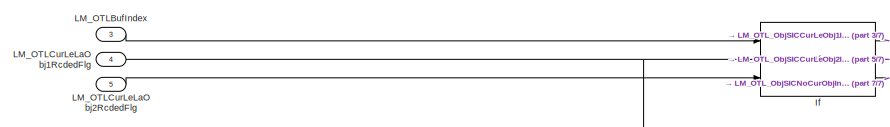
[diagram: LM_OTLBuf2InfoNew/LM_OTL_BufLe1StoreInfoCalc - part 1/7, top left region]
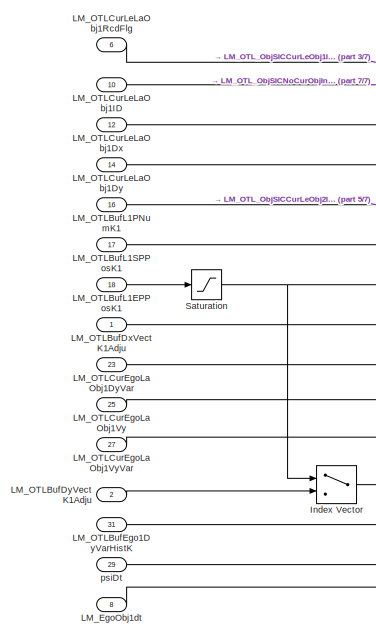
[diagram: LM_OTLBuf2InfoNew/LM_OTL_BufLe1StoreInfoCalc - part 2/7, top left region]
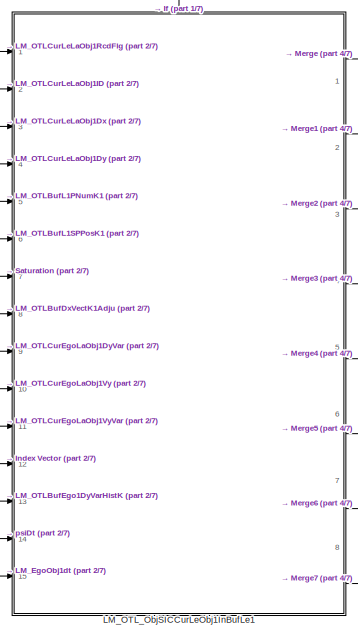
[diagram: LM_OTLBuf2InfoNew/LM_OTL_BufLe1StoreInfoCalc - part 3/7, top center region]
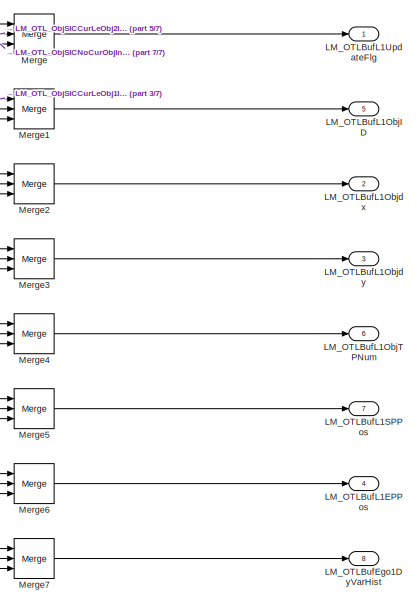
[diagram: LM_OTLBuf2InfoNew/LM_OTL_BufLe1StoreInfoCalc - part 4/7, top right region]
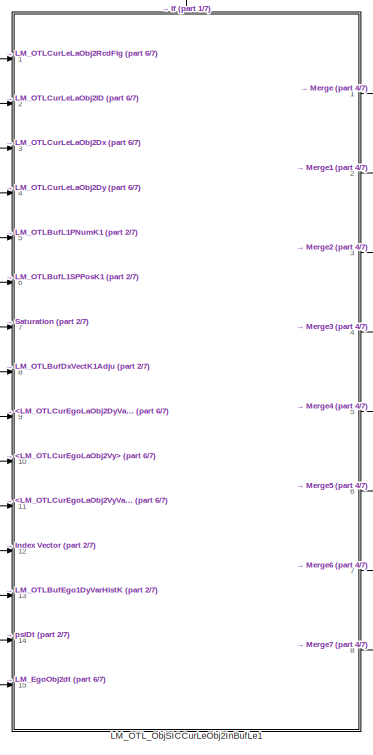
[diagram: LM_OTLBuf2InfoNew/LM_OTL_BufLe1StoreInfoCalc - part 5/7, central region]
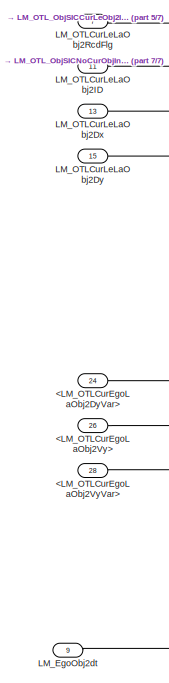
[diagram: LM_OTLBuf2InfoNew/LM_OTL_BufLe1StoreInfoCalc - part 6/7, middle left region]
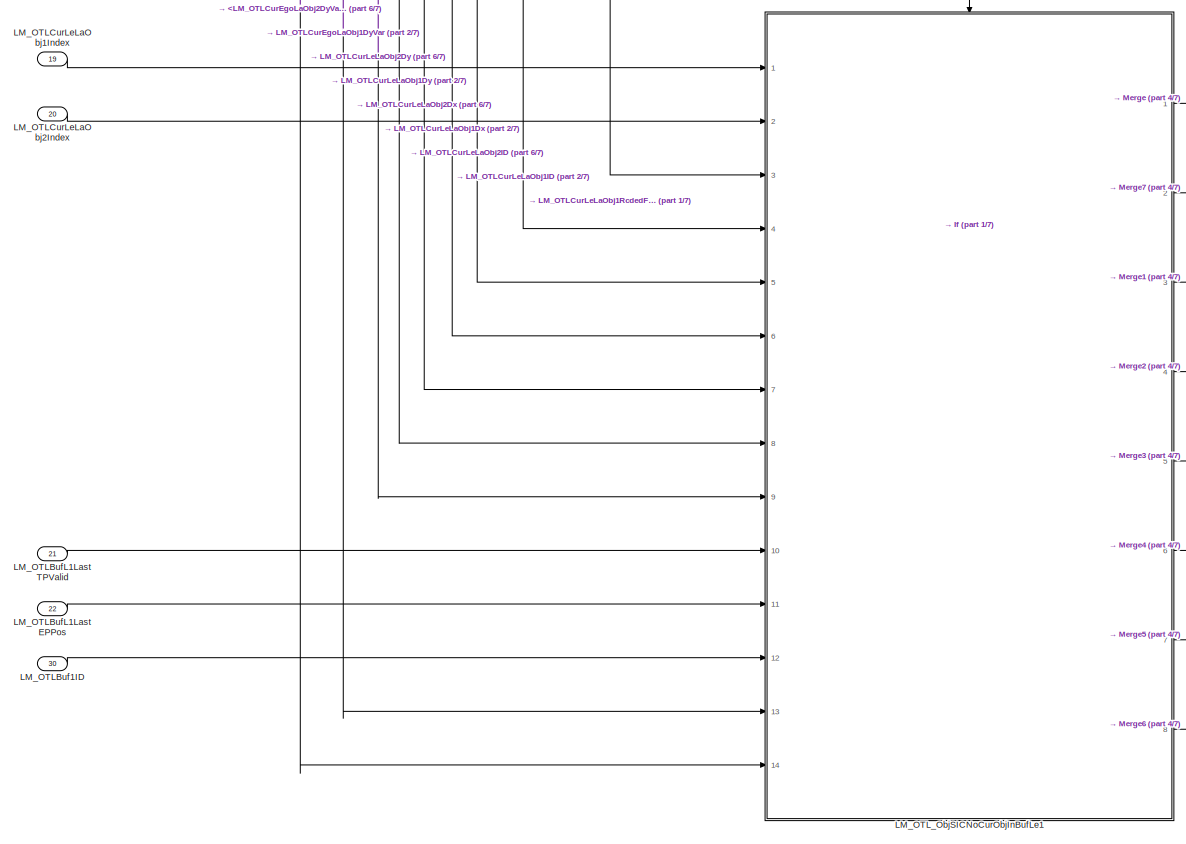
[diagram: LM_OTLBuf2InfoNew/LM_OTL_BufLe1StoreInfoCalc - part 7/7, bottom left region]
BLOCK [SubSystem] LM_OTLBuf2InfoNew/LM_OTL_BufLe1StoreInfoCalc
  Ports = [31, 8]
  RequestExecContextInheritance = off
BLOCK [Inport] LM_OTLBuf2InfoNew/LM_OTL_BufLe1StoreInfoCalc/<LM_OTLCurEgoLaObj2DyVar>
  IconDisplay = Port number
  Port = 24
BLOCK [Inport] LM_OTLBuf2InfoNew/LM_OTL_BufLe1StoreInfoCalc/<LM_OTLCurEgoLaObj2Vy>
  IconDisplay = Port number
  Port = 26
BLOCK [Inport] LM_OTLBuf2InfoNew/LM_OTL_BufLe1StoreInfoCalc/<LM_OTLCurEgoLaObj2VyVar>
  IconDisplay = Port number
  Port = 28
BLOCK [If] LM_OTLBuf2InfoNew/LM_OTL_BufLe1StoreInfoCalc/If
  ElseIfExpressions = u1 == u3
  IfExpression = u1 == u2
  NumInputs = 3
  Ports = [3, 3]
BLOCK [MultiPortSwitch] LM_OTLBuf2InfoNew/LM_OTL_BufLe1StoreInfoCalc/Index Vector
  InputSameDT = off
  Inputs = 1
  Ports = [2, 1]
  SaturateOnIntegerOverflow = off
BLOCK [Inport] LM_OTLBuf2InfoNew/LM_OTL_BufLe1StoreInfoCalc/LM_EgoObj1dt
  IconDisplay = Port number
  Port = 8
BLOCK [Inport] LM_OTLBuf2InfoNew/LM_OTL_BufLe1StoreInfoCalc/LM_EgoObj2dt
  IconDisplay = Port number
  Port = 9
BLOCK [Inport] LM_OTLBuf2InfoNew/LM_OTL_BufLe1StoreInfoCalc/LM_OTLBuf1ID
  IconDisplay = Port number
  Port = 30
BLOCK [Inport] LM_OTLBuf2InfoNew/LM_OTL_BufLe1StoreInfoCalc/LM_OTLBufDxVectK1Adju
  IconDisplay = Port number
BLOCK [Inport] LM_OTLBuf2InfoNew/LM_OTL_BufLe1StoreInfoCalc/LM_OTLBufDyVectK1Adju
  IconDisplay = Port number
  Port = 2
BLOCK [Outport] LM_OTLBuf2InfoNew/LM_OTL_BufLe1StoreInfoCalc/LM_OTLBufEgo1DyVarHist
  IconDisplay = Port number
  Port = 8
BLOCK [Inport] LM_OTLBuf2InfoNew/LM_OTL_BufLe1StoreInfoCalc/LM_OTLBufEgo1DyVarHistK
  IconDisplay = Port number
  Port = 31
BLOCK [Inport] LM_OTLBuf2InfoNew/LM_OTL_BufLe1StoreInfoCalc/LM_OTLBufIndex
  IconDisplay = Port number
  Port = 3
BLOCK [Outport] LM_OTLBuf2InfoNew/LM_OTL_BufLe1StoreInfoCalc/LM_OTLBufL1EPPos
  IconDisplay = Port number
  Port = 4
BLOCK [Inport] LM_OTLBuf2InfoNew/LM_OTL_BufLe1StoreInfoCalc/LM_OTLBufL1EPPosK1
  IconDisplay = Port number
  Port = 18
BLOCK [Inport] LM_OTLBuf2InfoNew/LM_OTL_BufLe1StoreInfoCalc/LM_OTLBufL1LastEPPos
  IconDisplay = Port number
  Port = 22
BLOCK [Inport] LM_OTLBuf2InfoNew/LM_OTL_BufLe1StoreInfoCalc/LM_OTLBufL1LastTPValid
  IconDisplay = Port number
  Port = 21
BLOCK [Outport] LM_OTLBuf2InfoNew/LM_OTL_BufLe1StoreInfoCalc/LM_OTLBufL1ObjID
  IconDisplay = Port number
  Port = 5
BLOCK [Outport] LM_OTLBuf2InfoNew/LM_OTL_BufLe1StoreInfoCalc/LM_OTLBufL1ObjTPNum
  IconDisplay = Port number
  Port = 6
BLOCK [Outport] LM_OTLBuf2InfoNew/LM_OTL_BufLe1StoreInfoCalc/LM_OTLBufL1Objdx
  IconDisplay = Port number
  Port = 2
BLOCK [Outport] LM_OTLBuf2InfoNew/LM_OTL_BufLe1StoreInfoCalc/LM_OTLBufL1Objdy
  IconDisplay = Port number
  Port = 3
BLOCK [Inport] LM_OTLBuf2InfoNew/LM_OTL_BufLe1StoreInfoCalc/LM_OTLBufL1PNumK1
  IconDisplay = Port number
  Port = 16
BLOCK [Outport] LM_OTLBuf2InfoNew/LM_OTL_BufLe1StoreInfoCalc/LM_OTLBufL1SPPos
  IconDisplay = Port number
  Port = 7
BLOCK [Inport] LM_OTLBuf2InfoNew/LM_OTL_BufLe1StoreInfoCalc/LM_OTLBufL1SPPosK1
  IconDisplay = Port number
  Port = 17
BLOCK [Outport] LM_OTLBuf2InfoNew/LM_OTL_BufLe1StoreInfoCalc/LM_OTLBufL1UpdateFlg
  IconDisplay = Port number
BLOCK [Inport] LM_OTLBuf2InfoNew/LM_OTL_BufLe1StoreInfoCalc/LM_OTLCurEgoLaObj1DyVar
  IconDisplay = Port number
  Port = 23
BLOCK [Inport] LM_OTLBuf2InfoNew/LM_OTL_BufLe1StoreInfoCalc/LM_OTLCurEgoLaObj1Vy
  IconDisplay = Port number
  Port = 25
BLOCK [Inport] LM_OTLBuf2InfoNew/LM_OTL_BufLe1StoreInfoCalc/LM_OTLCurEgoLaObj1VyVar
  IconDisplay = Port number
  Port = 27
BLOCK [Inport] LM_OTLBuf2InfoNew/LM_OTL_BufLe1StoreInfoCalc/LM_OTLCurLeLaObj1Dx
  IconDisplay = Port number
  Port = 12
BLOCK [Inport] LM_OTLBuf2InfoNew/LM_OTL_BufLe1StoreInfoCalc/LM_OTLCurLeLaObj1Dy
  IconDisplay = Port number
  Port = 14
BLOCK [Inport] LM_OTLBuf2InfoNew/LM_OTL_BufLe1StoreInfoCalc/LM_OTLCurLeLaObj1ID
  IconDisplay = Port number
  Port = 10
BLOCK [Inport] LM_OTLBuf2InfoNew/LM_OTL_BufLe1StoreInfoCalc/LM_OTLCurLeLaObj1Index
  IconDisplay = Port number
  Port = 19
BLOCK [Inport] LM_OTLBuf2InfoNew/LM_OTL_BufLe1StoreInfoCalc/LM_OTLCurLeLaObj1RcdFlg
  IconDisplay = Port number
  Port = 6
BLOCK [Inport] LM_OTLBuf2InfoNew/LM_OTL_BufLe1StoreInfoCalc/LM_OTLCurLeLaObj1RcdedFlg
  IconDisplay = Port number
  Port = 4
BLOCK [Inport] LM_OTLBuf2InfoNew/LM_OTL_BufLe1StoreInfoCalc/LM_OTLCurLeLaObj2Dx
  IconDisplay = Port number
  Port = 13
BLOCK [Inport] LM_OTLBuf2InfoNew/LM_OTL_BufLe1StoreInfoCalc/LM_OTLCurLeLaObj2Dy
  IconDisplay = Port number
  Port = 15
BLOCK [Inport] LM_OTLBuf2InfoNew/LM_OTL_BufLe1StoreInfoCalc/LM_OTLCurLeLaObj2ID
  IconDisplay = Port number
  Port = 11
BLOCK [Inport] LM_OTLBuf2InfoNew/LM_OTL_BufLe1StoreInfoCalc/LM_OTLCurLeLaObj2Index
  IconDisplay = Port number
  Port = 20
BLOCK [Inport] LM_OTLBuf2InfoNew/LM_OTL_BufLe1StoreInfoCalc/LM_OTLCurLeLaObj2RcdFlg
  IconDisplay = Port number
  Port = 7
BLOCK [Inport] LM_OTLBuf2InfoNew/LM_OTL_BufLe1StoreInfoCalc/LM_OTLCurLeLaObj2RcdedFlg
  IconDisplay = Port number
  Port = 5
BLOCK [SubSystem] LM_OTLBuf2InfoNew/LM_OTL_BufLe1StoreInfoCalc/LM_OTL_ObjSICCurLeObj1InBufLe1
  Ports = [15, 8, 0, 0, 0, 0, 0, 1]
  RequestExecContextInheritance = off
BLOCK [ActionPort] LM_OTLBuf2InfoNew/LM_OTL_BufLe1StoreInfoCalc/LM_OTL_ObjSICCurLeObj1InBufLe1/Action Port
BLOCK [From] LM_OTLBuf2InfoNew/LM_OTL_BufLe1StoreInfoCalc/LM_OTL_ObjSICCurLeObj1InBufLe1/From
  GotoTag = LM_OTLBufL1EPPos
BLOCK [Goto] LM_OTLBuf2InfoNew/LM_OTL_BufLe1StoreInfoCalc/LM_OTL_ObjSICCurLeObj1InBufLe1/Goto
  GotoTag = LM_OTLBufL1EPPos
BLOCK [Goto] LM_OTLBuf2InfoNew/LM_OTL_BufLe1StoreInfoCalc/LM_OTL_ObjSICCurLeObj1InBufLe1/Goto1
  GotoTag = LM_OTLBufL1ObjTPNum
BLOCK [Inport] LM_OTLBuf2InfoNew/LM_OTL_BufLe1StoreInfoCalc/LM_OTL_ObjSICCurLeObj1InBufLe1/LM_OTLBufDxVectK1Adju
  IconDisplay = Port number
  Port = 8
BLOCK [Inport] LM_OTLBuf2InfoNew/LM_OTL_BufLe1StoreInfoCalc/LM_OTL_ObjSICCurLeObj1InBufLe1/LM_OTLBufEgo1DyFiltHistK
  IconDisplay = Port number
  Port = 12
BLOCK [Outport] LM_OTLBuf2InfoNew/LM_OTL_BufLe1StoreInfoCalc/LM_OTL_ObjSICCurLeObj1InBufLe1/LM_OTLBufEgo1DyVarHist
  IconDisplay = Port number
  Port = 8
BLOCK [Inport] LM_OTLBuf2InfoNew/LM_OTL_BufLe1StoreInfoCalc/LM_OTL_ObjSICCurLeObj1InBufLe1/LM_OTLBufEgo1DyVarHistK
  IconDisplay = Port number
  Port = 13
BLOCK [Inport] LM_OTLBuf2InfoNew/LM_OTL_BufLe1StoreInfoCalc/LM_OTL_ObjSICCurLeObj1InBufLe1/LM_OTLBufL1EPPosK1
  IconDisplay = Port number
  Port = 7
BLOCK [Outport] LM_OTLBuf2InfoNew/LM_OTL_BufLe1StoreInfoCalc/LM_OTL_ObjSICCurLeObj1InBufLe1/LM_OTLBufL1ObjID
  IconDisplay = Port number
  Port = 2
BLOCK [Outport] LM_OTLBuf2InfoNew/LM_OTL_BufLe1StoreInfoCalc/LM_OTL_ObjSICCurLeObj1InBufLe1/LM_OTLBufL1ObjTPEP
  IconDisplay = Port number
  Port = 7
BLOCK [Outport] LM_OTLBuf2InfoNew/LM_OTL_BufLe1StoreInfoCalc/LM_OTL_ObjSICCurLeObj1InBufLe1/LM_OTLBufL1ObjTPNum
  IconDisplay = Port number
  Port = 5
BLOCK [Outport] LM_OTLBuf2InfoNew/LM_OTL_BufLe1StoreInfoCalc/LM_OTL_ObjSICCurLeObj1InBufLe1/LM_OTLBufL1ObjTPSP
  IconDisplay = Port number
  Port = 6
BLOCK [Outport] LM_OTLBuf2InfoNew/LM_OTL_BufLe1StoreInfoCalc/LM_OTL_ObjSICCurLeObj1InBufLe1/LM_OTLBufL1Objdx
  IconDisplay = Port number
  Port = 3
BLOCK [Outport] LM_OTLBuf2InfoNew/LM_OTL_BufLe1StoreInfoCalc/LM_OTL_ObjSICCurLeObj1InBufLe1/LM_OTLBufL1Objdy
  IconDisplay = Port number
  Port = 4
BLOCK [Inport] LM_OTLBuf2InfoNew/LM_OTL_BufLe1StoreInfoCalc/LM_OTL_ObjSICCurLeObj1InBufLe1/LM_OTLBufL1PNumK1
  IconDisplay = Port number
  Port = 5
BLOCK [Inport] LM_OTLBuf2InfoNew/LM_OTL_BufLe1StoreInfoCalc/LM_OTL_ObjSICCurLeObj1InBufLe1/LM_OTLBufL1SPPosK1
  IconDisplay = Port number
  Port = 6
BLOCK [Outport] LM_OTLBuf2InfoNew/LM_OTL_BufLe1StoreInfoCalc/LM_OTL_ObjSICCurLeObj1InBufLe1/LM_OTLBufL1UpdateFlg
  IconDisplay = Port number
BLOCK [Inport] LM_OTLBuf2InfoNew/LM_OTL_BufLe1StoreInfoCalc/LM_OTL_ObjSICCurLeObj1InBufLe1/LM_OTLCurEgoLaObj1DyVar
  IconDisplay = Port number
  Port = 9
BLOCK [Inport] LM_OTLBuf2InfoNew/LM_OTL_BufLe1StoreInfoCalc/LM_OTL_ObjSICCurLeObj1InBufLe1/LM_OTLCurEgoLaObj1Vy
  IconDisplay = Port number
  Port = 10
BLOCK [Inport] LM_OTLBuf2InfoNew/LM_OTL_BufLe1StoreInfoCalc/LM_OTL_ObjSICCurLeObj1InBufLe1/LM_OTLCurEgoLaObj1VyVar
  IconDisplay = Port number
  Port = 11
BLOCK [Inport] LM_OTLBuf2InfoNew/LM_OTL_BufLe1StoreInfoCalc/LM_OTL_ObjSICCurLeObj1InBufLe1/LM_OTLCurLeLaObj1Dx
  IconDisplay = Port number
  Port = 3
BLOCK [Inport] LM_OTLBuf2InfoNew/LM_OTL_BufLe1StoreInfoCalc/LM_OTL_ObjSICCurLeObj1InBufLe1/LM_OTLCurLeLaObj1Dy
  IconDisplay = Port number
  Port = 4
BLOCK [Inport] LM_OTLBuf2InfoNew/LM_OTL_BufLe1StoreInfoCalc/LM_OTL_ObjSICCurLeObj1InBufLe1/LM_OTLCurLeLaObj1ID
  IconDisplay = Port number
  Port = 2
BLOCK [Inport] LM_OTLBuf2InfoNew/LM_OTL_BufLe1StoreInfoCalc/LM_OTL_ObjSICCurLeObj1InBufLe1/LM_OTLCurLeLaObj1RcdFlg
  IconDisplay = Port number
BLOCK [SubSystem] LM_OTLBuf2InfoNew/LM_OTL_BufLe1StoreInfoCalc/LM_OTL_ObjSICCurLeObj1InBufLe1/LM_OTL_BufL1DxInfo
  Ports = [2, 1]
  RequestExecContextInheritance = off
BLOCK [Constant] LM_OTLBuf2InfoNew/LM_OTL_BufLe1StoreInfoCalc/LM_OTL_ObjSICCurLeObj1InBufLe1/LM_OTL_BufL1DxInfo/Constant
  OutDataTypeStr = single
  Value = 0
BLOCK [Outport] LM_OTLBuf2InfoNew/LM_OTL_BufLe1StoreInfoCalc/LM_OTL_ObjSICCurLeObj1InBufLe1/LM_OTL_BufL1DxInfo/LM_OTLBufL1Objdx
  IconDisplay = Port number
BLOCK [Inport] LM_OTLBuf2InfoNew/LM_OTL_BufLe1StoreInfoCalc/LM_OTL_ObjSICCurLeObj1InBufLe1/LM_OTL_BufL1DxInfo/LM_OTLCurLeLaObj1Dx
  IconDisplay = Port number
BLOCK [Inport] LM_OTLBuf2InfoNew/LM_OTL_BufLe1StoreInfoCalc/LM_OTL_ObjSICCurLeObj1InBufLe1/LM_OTL_BufL1DxInfo/LM_OTLCurLeLaObj1RcdFlg
  IconDisplay = Port number
  Port = 2
BLOCK [Switch] LM_OTLBuf2InfoNew/LM_OTL_BufLe1StoreInfoCalc/LM_OTL_ObjSICCurLeObj1InBufLe1/LM_OTL_BufL1DxInfo/Switch4
  Criteria = u2 ~= 0
  InputSameDT = off
  SaturateOnIntegerOverflow = off
BLOCK [SubSystem] LM_OTLBuf2InfoNew/LM_OTL_BufLe1StoreInfoCalc/LM_OTL_ObjSICCurLeObj1InBufLe1/LM_OTL_BufL1DyInfo
  Ports = [10, 2]
  RequestExecContextInheritance = off
BLOCK [Constant] LM_OTLBuf2InfoNew/LM_OTL_BufLe1StoreInfoCalc/LM_OTL_ObjSICCurLeObj1InBufLe1/LM_OTL_BufL1DyInfo/Constant
  OutDataTypeStr = single
  Value = 0
BLOCK [Constant] LM_OTLBuf2InfoNew/LM_OTL_BufLe1StoreInfoCalc/LM_OTL_ObjSICCurLeObj1InBufLe1/LM_OTL_BufL1DyInfo/Constant1
  OutDataTypeStr = single
  Value = 0.5
BLOCK [Inport] LM_OTLBuf2InfoNew/LM_OTL_BufLe1StoreInfoCalc/LM_OTL_ObjSICCurLeObj1InBufLe1/LM_OTL_BufL1DyInfo/LM_OTLBufEgo1DyFiltHistK
  IconDisplay = Port number
  Port = 7
BLOCK [Outport] LM_OTLBuf2InfoNew/LM_OTL_BufLe1StoreInfoCalc/LM_OTL_ObjSICCurLeObj1InBufLe1/LM_OTL_BufL1DyInfo/LM_OTLBufEgo1DyVarHist
  IconDisplay = Port number
  Port = 2
BLOCK [Inport] LM_OTLBuf2InfoNew/LM_OTL_BufLe1StoreInfoCalc/LM_OTL_ObjSICCurLeObj1InBufLe1/LM_OTL_BufL1DyInfo/LM_OTLBufEgo1DyVarHistK
  IconDisplay = Port number
  Port = 8
BLOCK [Outport] LM_OTLBuf2InfoNew/LM_OTL_BufLe1StoreInfoCalc/LM_OTL_ObjSICCurLeObj1InBufLe1/LM_OTL_BufL1DyInfo/LM_OTLBufL1ObjDy
  IconDisplay = Port number
BLOCK [Inport] LM_OTLBuf2InfoNew/LM_OTL_BufLe1StoreInfoCalc/LM_OTL_ObjSICCurLeObj1InBufLe1/LM_OTL_BufL1DyInfo/LM_OTLCurEgoLaObj1DyVar
  IconDisplay = Port number
  Port = 4
BLOCK [Inport] LM_OTLBuf2InfoNew/LM_OTL_BufLe1StoreInfoCalc/LM_OTL_ObjSICCurLeObj1InBufLe1/LM_OTL_BufL1DyInfo/LM_OTLCurEgoLaObj1Vy
  IconDisplay = Port number
  Port = 5
BLOCK [Inport] LM_OTLBuf2InfoNew/LM_OTL_BufLe1StoreInfoCalc/LM_OTL_ObjSICCurLeObj1InBufLe1/LM_OTL_BufL1DyInfo/LM_OTLCurEgoLaObj1VyVar
  IconDisplay = Port number
  Port = 6
BLOCK [Inport] LM_OTLBuf2InfoNew/LM_OTL_BufLe1StoreInfoCalc/LM_OTL_ObjSICCurLeObj1InBufLe1/LM_OTL_BufL1DyInfo/LM_OTLCurLeLaObj1Dx
  IconDisplay = Port number
  Port = 3
BLOCK [Inport] LM_OTLBuf2InfoNew/LM_OTL_BufLe1StoreInfoCalc/LM_OTL_ObjSICCurLeObj1InBufLe1/LM_OTL_BufL1DyInfo/LM_OTLCurLeLaObj1Dy
  IconDisplay = Port number
BLOCK [Inport] LM_OTLBuf2InfoNew/LM_OTL_BufLe1StoreInfoCalc/LM_OTL_ObjSICCurLeObj1InBufLe1/LM_OTL_BufL1DyInfo/LM_OTLCurLeLaObj1RcdFlg
  IconDisplay = Port number
  Port = 2
BLOCK [SubSystem] LM_OTLBuf2InfoNew/LM_OTL_BufLe1StoreInfoCalc/LM_OTL_ObjSICCurLeObj1InBufLe1/LM_OTL_BufL1DyInfo/MATLAB Function
  ErrorFcn = Stateflow.Translate.translate
  PermitHierarchicalResolution = ExplicitOnly
  Ports = [9, 2]
  RequestExecContextInheritance = off
  SFBlockType = MATLAB Function
  TreatAsAtomicUnit = on
BLOCK [Demux] LM_OTLBuf2InfoNew/LM_OTL_BufLe1StoreInfoCalc/LM_OTL_ObjSICCurLeObj1InBufLe1/LM_OTL_BufL1DyInfo/MATLAB Function/ Demux 
  Outputs = 1
  Ports = [1, 1]
BLOCK [S-Function] LM_OTLBuf2InfoNew/LM_OTL_BufLe1StoreInfoCalc/LM_OTL_ObjSICCurLeObj1InBufLe1/LM_OTL_BufL1DyInfo/MATLAB Function/ SFunction 
  EnableBusSupport = on
  FunctionName = sf_sfun
  PortCounts = [9 3]
  Ports = [9, 3]
  SFcnIsStateOwnerBlock = off
  SFunctionDeploymentMode = off
  Tag = Stateflow S-Function 1
BLOCK [Terminator] LM_OTLBuf2InfoNew/LM_OTL_BufLe1StoreInfoCalc/LM_OTL_ObjSICCurLeObj1InBufLe1/LM_OTL_BufL1DyInfo/MATLAB Function/ Terminator 
BLOCK [Inport] LM_OTLBuf2InfoNew/LM_OTL_BufLe1StoreInfoCalc/LM_OTL_ObjSICCurLeObj1InBufLe1/LM_OTL_BufL1DyInfo/MATLAB Function/dx
  IconDisplay = Port number
BLOCK [Inport] LM_OTLBuf2InfoNew/LM_OTL_BufLe1StoreInfoCalc/LM_OTL_ObjSICCurLeObj1InBufLe1/LM_OTL_BufL1DyInfo/MATLAB Function/dy
  IconDisplay = Port number
  Port = 2
BLOCK [Outport] LM_OTLBuf2InfoNew/LM_OTL_BufLe1StoreInfoCalc/LM_OTL_ObjSICCurLeObj1InBufLe1/LM_OTL_BufL1DyInfo/MATLAB Function/dyFilt
  IconDisplay = Port number
BLOCK [Inport] LM_OTLBuf2InfoNew/LM_OTL_BufLe1StoreInfoCalc/LM_OTL_ObjSICCurLeObj1InBufLe1/LM_OTL_BufL1DyInfo/MATLAB Function/dyHist
  IconDisplay = Port number
  Port = 8
BLOCK [Inport] LM_OTLBuf2InfoNew/LM_OTL_BufLe1StoreInfoCalc/LM_OTL_ObjSICCurLeObj1InBufLe1/LM_OTL_BufL1DyInfo/MATLAB Function/psiDt
  IconDisplay = Port number
  Port = 6
BLOCK [Inport] LM_OTLBuf2InfoNew/LM_OTL_BufLe1StoreInfoCalc/LM_OTL_ObjSICCurLeObj1InBufLe1/LM_OTL_BufL1DyInfo/MATLAB Function/tDt
  IconDisplay = Port number
  Port = 7
BLOCK [Inport] LM_OTLBuf2InfoNew/LM_OTL_BufLe1StoreInfoCalc/LM_OTL_ObjSICCurLeObj1InBufLe1/LM_OTL_BufL1DyInfo/MATLAB Function/varDy
  IconDisplay = Port number
  Port = 3
BLOCK [Outport] LM_OTLBuf2InfoNew/LM_OTL_BufLe1StoreInfoCalc/LM_OTL_ObjSICCurLeObj1InBufLe1/LM_OTL_BufL1DyInfo/MATLAB Function/varDyFilt
  IconDisplay = Port number
  Port = 2
BLOCK [Inport] LM_OTLBuf2InfoNew/LM_OTL_BufLe1StoreInfoCalc/LM_OTL_ObjSICCurLeObj1InBufLe1/LM_OTL_BufL1DyInfo/MATLAB Function/varDyHist
  IconDisplay = Port number
  Port = 9
BLOCK [Inport] LM_OTLBuf2InfoNew/LM_OTL_BufLe1StoreInfoCalc/LM_OTL_ObjSICCurLeObj1InBufLe1/LM_OTL_BufL1DyInfo/MATLAB Function/varVy
  IconDisplay = Port number
  Port = 5
BLOCK [Inport] LM_OTLBuf2InfoNew/LM_OTL_BufLe1StoreInfoCalc/LM_OTL_ObjSICCurLeObj1InBufLe1/LM_OTL_BufL1DyInfo/MATLAB Function/vy
  IconDisplay = Port number
  Port = 4
BLOCK [Switch] LM_OTLBuf2InfoNew/LM_OTL_BufLe1StoreInfoCalc/LM_OTL_ObjSICCurLeObj1InBufLe1/LM_OTL_BufL1DyInfo/Switch1
  Criteria = u2 ~= 0
  InputSameDT = off
  SaturateOnIntegerOverflow = off
BLOCK [Switch] LM_OTLBuf2InfoNew/LM_OTL_BufLe1StoreInfoCalc/LM_OTL_ObjSICCurLeObj1InBufLe1/LM_OTL_BufL1DyInfo/Switch4
  Criteria = u2 ~= 0
  InputSameDT = off
  SaturateOnIntegerOverflow = off
BLOCK [Inport] LM_OTLBuf2InfoNew/LM_OTL_BufLe1StoreInfoCalc/LM_OTL_ObjSICCurLeObj1InBufLe1/LM_OTL_BufL1DyInfo/psiDt
  IconDisplay = Port number
  Port = 9
BLOCK [Inport] LM_OTLBuf2InfoNew/LM_OTL_BufLe1StoreInfoCalc/LM_OTL_ObjSICCurLeObj1InBufLe1/LM_OTL_BufL1DyInfo/tDt
  IconDisplay = Port number
  Port = 10
BLOCK [SubSystem] LM_OTLBuf2InfoNew/LM_OTL_BufLe1StoreInfoCalc/LM_OTL_ObjSICCurLeObj1InBufLe1/LM_OTL_BufL1EPInfo
  Ports = [2, 1]
  RequestExecContextInheritance = off
BLOCK [Sum] LM_OTLBuf2InfoNew/LM_OTL_BufLe1StoreInfoCalc/LM_OTL_ObjSICCurLeObj1InBufLe1/LM_OTL_BufL1EPInfo/Add
  InputSameDT = off
  OutDataTypeStr = Inherit: Inherit via internal rule
  Ports = [2, 1]
  SaturateOnIntegerOverflow = off
BLOCK [Constant] LM_OTLBuf2InfoNew/LM_OTL_BufLe1StoreInfoCalc/LM_OTL_ObjSICCurLeObj1InBufLe1/LM_OTL_BufL1EPInfo/Constant
  OutDataTypeStr = uint8
BLOCK [Constant] LM_OTLBuf2InfoNew/LM_OTL_BufLe1StoreInfoCalc/LM_OTL_ObjSICCurLeObj1InBufLe1/LM_OTL_BufL1EPInfo/Constant1
  OutDataTypeStr = uint8
  Value = P_LM_OTLTPNum
BLOCK [Constant] LM_OTLBuf2InfoNew/LM_OTL_BufLe1StoreInfoCalc/LM_OTL_ObjSICCurLeObj1InBufLe1/LM_OTL_BufL1EPInfo/Constant2
  OutDataTypeStr = uint8
BLOCK [Outport] LM_OTLBuf2InfoNew/LM_OTL_BufLe1StoreInfoCalc/LM_OTL_ObjSICCurLeObj1InBufLe1/LM_OTL_BufL1EPInfo/LM_OTLBufL1EPPos
  IconDisplay = Port number
BLOCK [Inport] LM_OTLBuf2InfoNew/LM_OTL_BufLe1StoreInfoCalc/LM_OTL_ObjSICCurLeObj1InBufLe1/LM_OTL_BufL1EPInfo/LM_OTLBufL1EPPosK1
  IconDisplay = Port number
  Port = 2
BLOCK [Inport] LM_OTLBuf2InfoNew/LM_OTL_BufLe1StoreInfoCalc/LM_OTL_ObjSICCurLeObj1InBufLe1/LM_OTL_BufL1EPInfo/LM_OTLCurLeLaObj1RcdFlg
  IconDisplay = Port number
BLOCK [RelationalOperator] LM_OTLBuf2InfoNew/LM_OTL_BufLe1StoreInfoCalc/LM_OTL_ObjSICCurLeObj1InBufLe1/LM_OTL_BufL1EPInfo/Relational Operator
  InputSameDT = off
  Operator = >
  OutDataTypeStr = boolean
  Ports = [2, 1]
  RndMeth = Simplest
BLOCK [Switch] LM_OTLBuf2InfoNew/LM_OTL_BufLe1StoreInfoCalc/LM_OTL_ObjSICCurLeObj1InBufLe1/LM_OTL_BufL1EPInfo/Switch1
  Criteria = u2 ~= 0
  InputSameDT = off
  SaturateOnIntegerOverflow = off
BLOCK [Switch] LM_OTLBuf2InfoNew/LM_OTL_BufLe1StoreInfoCalc/LM_OTL_ObjSICCurLeObj1InBufLe1/LM_OTL_BufL1EPInfo/Switch4
  Criteria = u2 ~= 0
  InputSameDT = off
  SaturateOnIntegerOverflow = off
BLOCK [SubSystem] LM_OTLBuf2InfoNew/LM_OTL_BufLe1StoreInfoCalc/LM_OTL_ObjSICCurLeObj1InBufLe1/LM_OTL_BufL1IDInfo
  Ports = [1, 1]
  RequestExecContextInheritance = off
BLOCK [Outport] LM_OTLBuf2InfoNew/LM_OTL_BufLe1StoreInfoCalc/LM_OTL_ObjSICCurLeObj1InBufLe1/LM_OTL_BufL1IDInfo/LM_OTLBufL1ObjID
  IconDisplay = Port number
BLOCK [Inport] LM_OTLBuf2InfoNew/LM_OTL_BufLe1StoreInfoCalc/LM_OTL_ObjSICCurLeObj1InBufLe1/LM_OTL_BufL1IDInfo/LM_OTLCurLeLaObj1ID
  IconDisplay = Port number
BLOCK [SignalConversion] LM_OTLBuf2InfoNew/LM_OTL_BufLe1StoreInfoCalc/LM_OTL_ObjSICCurLeObj1InBufLe1/LM_OTL_BufL1IDInfo/Signal Conversion
  OverrideOpt = off
BLOCK [SubSystem] LM_OTLBuf2InfoNew/LM_OTL_BufLe1StoreInfoCalc/LM_OTL_ObjSICCurLeObj1InBufLe1/LM_OTL_BufL1PNumAndSPInfo
  Ports = [5, 2]
  RequestExecContextInheritance = off
BLOCK [Sum] LM_OTLBuf2InfoNew/LM_OTL_BufLe1StoreInfoCalc/LM_OTL_ObjSICCurLeObj1InBufLe1/LM_OTL_BufL1PNumAndSPInfo/Add
  InputSameDT = off
  OutDataTypeStr = Inherit: Inherit via internal rule
  Ports = [2, 1]
  SaturateOnIntegerOverflow = off
BLOCK [Sum] LM_OTLBuf2InfoNew/LM_OTL_BufLe1StoreInfoCalc/LM_OTL_ObjSICCurLeObj1InBufLe1/LM_OTL_BufL1PNumAndSPInfo/Add1
  InputSameDT = off
  OutDataTypeStr = Inherit: Inherit via internal rule
  Ports = [2, 1]
  SaturateOnIntegerOverflow = off
BLOCK [Sum] LM_OTLBuf2InfoNew/LM_OTL_BufLe1StoreInfoCalc/LM_OTL_ObjSICCurLeObj1InBufLe1/LM_OTL_BufL1PNumAndSPInfo/Add2
  InputSameDT = off
  OutDataTypeStr = Inherit: Inherit via internal rule
  Ports = [2, 1]
  SaturateOnIntegerOverflow = off
BLOCK [Constant] LM_OTLBuf2InfoNew/LM_OTL_BufLe1StoreInfoCalc/LM_OTL_ObjSICCurLeObj1InBufLe1/LM_OTL_BufL1PNumAndSPInfo/Constant
  OutDataTypeStr = uint8
BLOCK [Constant] LM_OTLBuf2InfoNew/LM_OTL_BufLe1StoreInfoCalc/LM_OTL_ObjSICCurLeObj1InBufLe1/LM_OTL_BufL1PNumAndSPInfo/Constant1
  OutDataTypeStr = uint8
BLOCK [Constant] LM_OTLBuf2InfoNew/LM_OTL_BufLe1StoreInfoCalc/LM_OTL_ObjSICCurLeObj1InBufLe1/LM_OTL_BufL1PNumAndSPInfo/Constant2
  OutDataTypeStr = uint8
  Value = P_LM_OTLTPNum
BLOCK [Constant] LM_OTLBuf2InfoNew/LM_OTL_BufLe1StoreInfoCalc/LM_OTL_ObjSICCurLeObj1InBufLe1/LM_OTL_BufL1PNumAndSPInfo/Constant3
  OutDataTypeStr = uint8
BLOCK [Constant] LM_OTLBuf2InfoNew/LM_OTL_BufLe1StoreInfoCalc/LM_OTL_ObjSICCurLeObj1InBufLe1/LM_OTL_BufL1PNumAndSPInfo/Constant4
  OutDataTypeStr = uint8
  Value = P_LM_OTLTPNum
BLOCK [Constant] LM_OTLBuf2InfoNew/LM_OTL_BufLe1StoreInfoCalc/LM_OTL_ObjSICCurLeObj1InBufLe1/LM_OTL_BufL1PNumAndSPInfo/Constant5
  Value = P_LM_OTLRearMaxDis
BLOCK [Constant] LM_OTLBuf2InfoNew/LM_OTL_BufLe1StoreInfoCalc/LM_OTL_ObjSICCurLeObj1InBufLe1/LM_OTL_BufL1PNumAndSPInfo/Constant6
  OutDataTypeStr = uint8
BLOCK [Constant] LM_OTLBuf2InfoNew/LM_OTL_BufLe1StoreInfoCalc/LM_OTL_ObjSICCurLeObj1InBufLe1/LM_OTL_BufL1PNumAndSPInfo/Constant7
  OutDataTypeStr = uint8
  Value = P_LM_OTLTPNum
BLOCK [Constant] LM_OTLBuf2InfoNew/LM_OTL_BufLe1StoreInfoCalc/LM_OTL_ObjSICCurLeObj1InBufLe1/LM_OTL_BufL1PNumAndSPInfo/Constant8
  OutDataTypeStr = uint8
BLOCK [Display] LM_OTLBuf2InfoNew/LM_OTL_BufLe1StoreInfoCalc/LM_OTL_ObjSICCurLeObj1InBufLe1/LM_OTL_BufL1PNumAndSPInfo/Display3
  Decimation = 1
  Ports = [1]
BLOCK [Display] LM_OTLBuf2InfoNew/LM_OTL_BufLe1StoreInfoCalc/LM_OTL_ObjSICCurLeObj1InBufLe1/LM_OTL_BufL1PNumAndSPInfo/Display4
  Decimation = 1
  Ports = [1]
BLOCK [MultiPortSwitch] LM_OTLBuf2InfoNew/LM_OTL_BufLe1StoreInfoCalc/LM_OTL_ObjSICCurLeObj1InBufLe1/LM_OTL_BufL1PNumAndSPInfo/Index Vector
  InputSameDT = off
  Inputs = 1
  Ports = [2, 1]
  SaturateOnIntegerOverflow = off
BLOCK [Inport] LM_OTLBuf2InfoNew/LM_OTL_BufLe1StoreInfoCalc/LM_OTL_ObjSICCurLeObj1InBufLe1/LM_OTL_BufL1PNumAndSPInfo/LM_OTLBufDxVectK1Adju
  IconDisplay = Port number
  Port = 5
BLOCK [Inport] LM_OTLBuf2InfoNew/LM_OTL_BufLe1StoreInfoCalc/LM_OTL_ObjSICCurLeObj1InBufLe1/LM_OTL_BufL1PNumAndSPInfo/LM_OTLBufL1EPPos
  IconDisplay = Port number
  Port = 4
BLOCK [Outport] LM_OTLBuf2InfoNew/LM_OTL_BufLe1StoreInfoCalc/LM_OTL_ObjSICCurLeObj1InBufLe1/LM_OTL_BufL1PNumAndSPInfo/LM_OTLBufL1PNum
  IconDisplay = Port number
BLOCK [Inport] LM_OTLBuf2InfoNew/LM_OTL_BufLe1StoreInfoCalc/LM_OTL_ObjSICCurLeObj1InBufLe1/LM_OTL_BufL1PNumAndSPInfo/LM_OTLBufL1PNumK1
  IconDisplay = Port number
BLOCK [Outport] LM_OTLBuf2InfoNew/LM_OTL_BufLe1StoreInfoCalc/LM_OTL_ObjSICCurLeObj1InBufLe1/LM_OTL_BufL1PNumAndSPInfo/LM_OTLBufL1SPPos
  IconDisplay = Port number
  Port = 2
BLOCK [Inport] LM_OTLBuf2InfoNew/LM_OTL_BufLe1StoreInfoCalc/LM_OTL_ObjSICCurLeObj1InBufLe1/LM_OTL_BufL1PNumAndSPInfo/LM_OTLBufL1SPPosK1
  IconDisplay = Port number
  Port = 3
BLOCK [Inport] LM_OTLBuf2InfoNew/LM_OTL_BufLe1StoreInfoCalc/LM_OTL_ObjSICCurLeObj1InBufLe1/LM_OTL_BufL1PNumAndSPInfo/LM_OTLCurLeLaObj1RcdFlg
  IconDisplay = Port number
  Port = 2
BLOCK [Logic] LM_OTLBuf2InfoNew/LM_OTL_BufLe1StoreInfoCalc/LM_OTL_ObjSICCurLeObj1InBufLe1/LM_OTL_BufL1PNumAndSPInfo/Logical Operator
  AllPortsSameDT = off
  OutDataTypeStr = boolean
  Ports = [2, 1]
BLOCK [Logic] LM_OTLBuf2InfoNew/LM_OTL_BufLe1StoreInfoCalc/LM_OTL_ObjSICCurLeObj1InBufLe1/LM_OTL_BufL1PNumAndSPInfo/Logical Operator1
  AllPortsSameDT = off
  OutDataTypeStr = boolean
  Ports = [2, 1]
BLOCK [RelationalOperator] LM_OTLBuf2InfoNew/LM_OTL_BufLe1StoreInfoCalc/LM_OTL_ObjSICCurLeObj1InBufLe1/LM_OTL_BufL1PNumAndSPInfo/Relational Operator
  InputSameDT = off
  Operator = ==
  OutDataTypeStr = boolean
  Ports = [2, 1]
  RndMeth = Simplest
BLOCK [RelationalOperator] LM_OTLBuf2InfoNew/LM_OTL_BufLe1StoreInfoCalc/LM_OTL_ObjSICCurLeObj1InBufLe1/LM_OTL_BufL1PNumAndSPInfo/Relational Operator1
  InputSameDT = off
  Operator = ==
  OutDataTypeStr = boolean
  Ports = [2, 1]
  RndMeth = Simplest
BLOCK [RelationalOperator] LM_OTLBuf2InfoNew/LM_OTL_BufLe1StoreInfoCalc/LM_OTL_ObjSICCurLeObj1InBufLe1/LM_OTL_BufL1PNumAndSPInfo/Relational Operator2
  InputSameDT = off
  Operator = >
  OutDataTypeStr = boolean
  Ports = [2, 1]
  RndMeth = Simplest
BLOCK [RelationalOperator] LM_OTLBuf2InfoNew/LM_OTL_BufLe1StoreInfoCalc/LM_OTL_ObjSICCurLeObj1InBufLe1/LM_OTL_BufL1PNumAndSPInfo/Relational Operator3
  InputSameDT = off
  Operator = <=
  OutDataTypeStr = boolean
  Ports = [2, 1]
  RndMeth = Simplest
BLOCK [RelationalOperator] LM_OTLBuf2InfoNew/LM_OTL_BufLe1StoreInfoCalc/LM_OTL_ObjSICCurLeObj1InBufLe1/LM_OTL_BufL1PNumAndSPInfo/Relational Operator4
  InputSameDT = off
  Operator = >
  OutDataTypeStr = boolean
  Ports = [2, 1]
  RndMeth = Simplest
BLOCK [Saturate] LM_OTLBuf2InfoNew/LM_OTL_BufLe1StoreInfoCalc/LM_OTL_ObjSICCurLeObj1InBufLe1/LM_OTL_BufL1PNumAndSPInfo/Saturation
  InputPortMap = u0
  LowerLimit = 0
  Ports = [1, 1]
  UpperLimit = 80
BLOCK [Saturate] LM_OTLBuf2InfoNew/LM_OTL_BufLe1StoreInfoCalc/LM_OTL_ObjSICCurLeObj1InBufLe1/LM_OTL_BufL1PNumAndSPInfo/Saturation1
  InputPortMap = u0
  LowerLimit = 0
  Ports = [1, 1]
  UpperLimit = 80
BLOCK [Sum] LM_OTLBuf2InfoNew/LM_OTL_BufLe1StoreInfoCalc/LM_OTL_ObjSICCurLeObj1InBufLe1/LM_OTL_BufL1PNumAndSPInfo/Subtract
  InputSameDT = off
  Inputs = +-
  OutDataTypeStr = Inherit: Inherit via internal rule
  Ports = [2, 1]
  SaturateOnIntegerOverflow = off
BLOCK [Switch] LM_OTLBuf2InfoNew/LM_OTL_BufLe1StoreInfoCalc/LM_OTL_ObjSICCurLeObj1InBufLe1/LM_OTL_BufL1PNumAndSPInfo/Switch
  Criteria = u2 ~= 0
  InputSameDT = off
  SaturateOnIntegerOverflow = off
BLOCK [Switch] LM_OTLBuf2InfoNew/LM_OTL_BufLe1StoreInfoCalc/LM_OTL_ObjSICCurLeObj1InBufLe1/LM_OTL_BufL1PNumAndSPInfo/Switch1
  Criteria = u2 ~= 0
  InputSameDT = off
  SaturateOnIntegerOverflow = off
BLOCK [Switch] LM_OTLBuf2InfoNew/LM_OTL_BufLe1StoreInfoCalc/LM_OTL_ObjSICCurLeObj1InBufLe1/LM_OTL_BufL1PNumAndSPInfo/Switch2
  Criteria = u2 ~= 0
  InputSameDT = off
  SaturateOnIntegerOverflow = off
BLOCK [Switch] LM_OTLBuf2InfoNew/LM_OTL_BufLe1StoreInfoCalc/LM_OTL_ObjSICCurLeObj1InBufLe1/LM_OTL_BufL1PNumAndSPInfo/Switch3
  Criteria = u2 ~= 0
  InputSameDT = off
  SaturateOnIntegerOverflow = off
BLOCK [Switch] LM_OTLBuf2InfoNew/LM_OTL_BufLe1StoreInfoCalc/LM_OTL_ObjSICCurLeObj1InBufLe1/LM_OTL_BufL1PNumAndSPInfo/Switch4
  Criteria = u2 ~= 0
  InputSameDT = off
  SaturateOnIntegerOverflow = off
BLOCK [Switch] LM_OTLBuf2InfoNew/LM_OTL_BufLe1StoreInfoCalc/LM_OTL_ObjSICCurLeObj1InBufLe1/LM_OTL_BufL1PNumAndSPInfo/Switch5
  Criteria = u2 ~= 0
  InputSameDT = off
  SaturateOnIntegerOverflow = off
BLOCK [SubSystem] LM_OTLBuf2InfoNew/LM_OTL_BufLe1StoreInfoCalc/LM_OTL_ObjSICCurLeObj1InBufLe1/LM_OTL_BufL1UpdateFlg
  Ports = [1, 1]
  RequestExecContextInheritance = off
BLOCK [Outport] LM_OTLBuf2InfoNew/LM_OTL_BufLe1StoreInfoCalc/LM_OTL_ObjSICCurLeObj1InBufLe1/LM_OTL_BufL1UpdateFlg/LM_OTLBufL1UpdateFlg
  IconDisplay = Port number
BLOCK [Inport] LM_OTLBuf2InfoNew/LM_OTL_BufLe1StoreInfoCalc/LM_OTL_ObjSICCurLeObj1InBufLe1/LM_OTL_BufL1UpdateFlg/LM_OTLCurLeLaObj1RcdFlg
  IconDisplay = Port number
BLOCK [SignalConversion] LM_OTLBuf2InfoNew/LM_OTL_BufLe1StoreInfoCalc/LM_OTL_ObjSICCurLeObj1InBufLe1/LM_OTL_BufL1UpdateFlg/Signal Conversion
  OverrideOpt = off
BLOCK [Inport] LM_OTLBuf2InfoNew/LM_OTL_BufLe1StoreInfoCalc/LM_OTL_ObjSICCurLeObj1InBufLe1/psiDt
  IconDisplay = Port number
  Port = 14
BLOCK [Inport] LM_OTLBuf2InfoNew/LM_OTL_BufLe1StoreInfoCalc/LM_OTL_ObjSICCurLeObj1InBufLe1/tDt
  IconDisplay = Port number
  Port = 15
BLOCK [SubSystem] LM_OTLBuf2InfoNew/LM_OTL_BufLe1StoreInfoCalc/LM_OTL_ObjSICCurLeObj2InBufLe1
  Ports = [15, 8, 0, 0, 0, 0, 0, 1]
  RequestExecContextInheritance = off
BLOCK [ActionPort] LM_OTLBuf2InfoNew/LM_OTL_BufLe1StoreInfoCalc/LM_OTL_ObjSICCurLeObj2InBufLe1/Action Port
BLOCK [From] LM_OTLBuf2InfoNew/LM_OTL_BufLe1StoreInfoCalc/LM_OTL_ObjSICCurLeObj2InBufLe1/From
  GotoTag = LM_OTLBufL1EPPos
BLOCK [Goto] LM_OTLBuf2InfoNew/LM_OTL_BufLe1StoreInfoCalc/LM_OTL_ObjSICCurLeObj2InBufLe1/Goto
  GotoTag = LM_OTLBufL1EPPos
BLOCK [Goto] LM_OTLBuf2InfoNew/LM_OTL_BufLe1StoreInfoCalc/LM_OTL_ObjSICCurLeObj2InBufLe1/Goto1
  GotoTag = LM_OTLBufL1ObjTPNum
BLOCK [Inport] LM_OTLBuf2InfoNew/LM_OTL_BufLe1StoreInfoCalc/LM_OTL_ObjSICCurLeObj2InBufLe1/LM_OTLBufDxVectK1Adju
  IconDisplay = Port number
  Port = 8
BLOCK [Outport] LM_OTLBuf2InfoNew/LM_OTL_BufLe1StoreInfoCalc/LM_OTL_ObjSICCurLeObj2InBufLe1/LM_OTLBufEgo1DyVarHist
  IconDisplay = Port number
  Port = 8
BLOCK [Inport] LM_OTLBuf2InfoNew/LM_OTL_BufLe1StoreInfoCalc/LM_OTL_ObjSICCurLeObj2InBufLe1/LM_OTLBufEgo2DyFiltHistK
  IconDisplay = Port number
  Port = 12
BLOCK [Inport] LM_OTLBuf2InfoNew/LM_OTL_BufLe1StoreInfoCalc/LM_OTL_ObjSICCurLeObj2InBufLe1/LM_OTLBufEgo2DyVarHistK
  IconDisplay = Port number
  Port = 13
BLOCK [Inport] LM_OTLBuf2InfoNew/LM_OTL_BufLe1StoreInfoCalc/LM_OTL_ObjSICCurLeObj2InBufLe1/LM_OTLBufL1EPPosK1
  IconDisplay = Port number
  Port = 7
BLOCK [Outport] LM_OTLBuf2InfoNew/LM_OTL_BufLe1StoreInfoCalc/LM_OTL_ObjSICCurLeObj2InBufLe1/LM_OTLBufL1ObjID
  IconDisplay = Port number
  Port = 2
BLOCK [Outport] LM_OTLBuf2InfoNew/LM_OTL_BufLe1StoreInfoCalc/LM_OTL_ObjSICCurLeObj2InBufLe1/LM_OTLBufL1ObjTPEP
  IconDisplay = Port number
  Port = 7
BLOCK [Outport] LM_OTLBuf2InfoNew/LM_OTL_BufLe1StoreInfoCalc/LM_OTL_ObjSICCurLeObj2InBufLe1/LM_OTLBufL1ObjTPNum
  IconDisplay = Port number
  Port = 5
BLOCK [Outport] LM_OTLBuf2InfoNew/LM_OTL_BufLe1StoreInfoCalc/LM_OTL_ObjSICCurLeObj2InBufLe1/LM_OTLBufL1ObjTPSP
  IconDisplay = Port number
  Port = 6
BLOCK [Outport] LM_OTLBuf2InfoNew/LM_OTL_BufLe1StoreInfoCalc/LM_OTL_ObjSICCurLeObj2InBufLe1/LM_OTLBufL1Objdx
  IconDisplay = Port number
  Port = 3
BLOCK [Outport] LM_OTLBuf2InfoNew/LM_OTL_BufLe1StoreInfoCalc/LM_OTL_ObjSICCurLeObj2InBufLe1/LM_OTLBufL1Objdy
  IconDisplay = Port number
  Port = 4
BLOCK [Inport] LM_OTLBuf2InfoNew/LM_OTL_BufLe1StoreInfoCalc/LM_OTL_ObjSICCurLeObj2InBufLe1/LM_OTLBufL1PNumK1
  IconDisplay = Port number
  Port = 5
BLOCK [Inport] LM_OTLBuf2InfoNew/LM_OTL_BufLe1StoreInfoCalc/LM_OTL_ObjSICCurLeObj2InBufLe1/LM_OTLBufL1SPPosK1
  IconDisplay = Port number
  Port = 6
BLOCK [Outport] LM_OTLBuf2InfoNew/LM_OTL_BufLe1StoreInfoCalc/LM_OTL_ObjSICCurLeObj2InBufLe1/LM_OTLBufL1UpdateFlg
  IconDisplay = Port number
BLOCK [Inport] LM_OTLBuf2InfoNew/LM_OTL_BufLe1StoreInfoCalc/LM_OTL_ObjSICCurLeObj2InBufLe1/LM_OTLCurEgoLaObj2DyVar
  IconDisplay = Port number
  Port = 9
BLOCK [Inport] LM_OTLBuf2InfoNew/LM_OTL_BufLe1StoreInfoCalc/LM_OTL_ObjSICCurLeObj2InBufLe1/LM_OTLCurEgoLaObj2Vy
  IconDisplay = Port number
  Port = 10
BLOCK [Inport] LM_OTLBuf2InfoNew/LM_OTL_BufLe1StoreInfoCalc/LM_OTL_ObjSICCurLeObj2InBufLe1/LM_OTLCurEgoLaObj2VyVar
  IconDisplay = Port number
  Port = 11
BLOCK [Inport] LM_OTLBuf2InfoNew/LM_OTL_BufLe1StoreInfoCalc/LM_OTL_ObjSICCurLeObj2InBufLe1/LM_OTLCurLeLaObj2Dx
  IconDisplay = Port number
  Port = 3
BLOCK [Inport] LM_OTLBuf2InfoNew/LM_OTL_BufLe1StoreInfoCalc/LM_OTL_ObjSICCurLeObj2InBufLe1/LM_OTLCurLeLaObj2Dy
  IconDisplay = Port number
  Port = 4
BLOCK [Inport] LM_OTLBuf2InfoNew/LM_OTL_BufLe1StoreInfoCalc/LM_OTL_ObjSICCurLeObj2InBufLe1/LM_OTLCurLeLaObj2ID
  IconDisplay = Port number
  Port = 2
BLOCK [Inport] LM_OTLBuf2InfoNew/LM_OTL_BufLe1StoreInfoCalc/LM_OTL_ObjSICCurLeObj2InBufLe1/LM_OTLCurLeLaObj2RcdFlg
  IconDisplay = Port number
BLOCK [SubSystem] LM_OTLBuf2InfoNew/LM_OTL_BufLe1StoreInfoCalc/LM_OTL_ObjSICCurLeObj2InBufLe1/LM_OTL_BufL1DxInfo
  Ports = [2, 1]
  RequestExecContextInheritance = off
BLOCK [Constant] LM_OTLBuf2InfoNew/LM_OTL_BufLe1StoreInfoCalc/LM_OTL_ObjSICCurLeObj2InBufLe1/LM_OTL_BufL1DxInfo/Constant
  OutDataTypeStr = single
  Value = 0
BLOCK [Outport] LM_OTLBuf2InfoNew/LM_OTL_BufLe1StoreInfoCalc/LM_OTL_ObjSICCurLeObj2InBufLe1/LM_OTL_BufL1DxInfo/LM_OTLBufL1Objdx
  IconDisplay = Port number
BLOCK [Inport] LM_OTLBuf2InfoNew/LM_OTL_BufLe1StoreInfoCalc/LM_OTL_ObjSICCurLeObj2InBufLe1/LM_OTL_BufL1DxInfo/LM_OTLCurLeLaObj1Dx
  IconDisplay = Port number
BLOCK [Inport] LM_OTLBuf2InfoNew/LM_OTL_BufLe1StoreInfoCalc/LM_OTL_ObjSICCurLeObj2InBufLe1/LM_OTL_BufL1DxInfo/LM_OTLCurLeLaObj1RcdFlg
  IconDisplay = Port number
  Port = 2
BLOCK [Switch] LM_OTLBuf2InfoNew/LM_OTL_BufLe1StoreInfoCalc/LM_OTL_ObjSICCurLeObj2InBufLe1/LM_OTL_BufL1DxInfo/Switch4
  Criteria = u2 ~= 0
  InputSameDT = off
  SaturateOnIntegerOverflow = off
BLOCK [SubSystem] LM_OTLBuf2InfoNew/LM_OTL_BufLe1StoreInfoCalc/LM_OTL_ObjSICCurLeObj2InBufLe1/LM_OTL_BufL1DyInfo
  Ports = [10, 2]
  RequestExecContextInheritance = off
BLOCK [Constant] LM_OTLBuf2InfoNew/LM_OTL_BufLe1StoreInfoCalc/LM_OTL_ObjSICCurLeObj2InBufLe1/LM_OTL_BufL1DyInfo/Constant
  OutDataTypeStr = single
  Value = 0
BLOCK [Constant] LM_OTLBuf2InfoNew/LM_OTL_BufLe1StoreInfoCalc/LM_OTL_ObjSICCurLeObj2InBufLe1/LM_OTL_BufL1DyInfo/Constant1
  OutDataTypeStr = single
  Value = 0.5
BLOCK [Inport] LM_OTLBuf2InfoNew/LM_OTL_BufLe1StoreInfoCalc/LM_OTL_ObjSICCurLeObj2InBufLe1/LM_OTL_BufL1DyInfo/LM_OTLBufEgo1DyFiltHistK
  IconDisplay = Port number
  Port = 7
BLOCK [Outport] LM_OTLBuf2InfoNew/LM_OTL_BufLe1StoreInfoCalc/LM_OTL_ObjSICCurLeObj2InBufLe1/LM_OTL_BufL1DyInfo/LM_OTLBufEgo1DyVarHist
  IconDisplay = Port number
  Port = 2
BLOCK [Inport] LM_OTLBuf2InfoNew/LM_OTL_BufLe1StoreInfoCalc/LM_OTL_ObjSICCurLeObj2InBufLe1/LM_OTL_BufL1DyInfo/LM_OTLBufEgo1DyVarHistK
  IconDisplay = Port number
  Port = 8
BLOCK [Outport] LM_OTLBuf2InfoNew/LM_OTL_BufLe1StoreInfoCalc/LM_OTL_ObjSICCurLeObj2InBufLe1/LM_OTL_BufL1DyInfo/LM_OTLBufL1ObjDy
  IconDisplay = Port number
BLOCK [Inport] LM_OTLBuf2InfoNew/LM_OTL_BufLe1StoreInfoCalc/LM_OTL_ObjSICCurLeObj2InBufLe1/LM_OTL_BufL1DyInfo/LM_OTLCurEgoLaObj2Dx
  IconDisplay = Port number
BLOCK [Inport] LM_OTLBuf2InfoNew/LM_OTL_BufLe1StoreInfoCalc/LM_OTL_ObjSICCurLeObj2InBufLe1/LM_OTL_BufL1DyInfo/LM_OTLCurEgoLaObj2DyVar
  IconDisplay = Port number
  Port = 4
BLOCK [Inport] LM_OTLBuf2InfoNew/LM_OTL_BufLe1StoreInfoCalc/LM_OTL_ObjSICCurLeObj2InBufLe1/LM_OTL_BufL1DyInfo/LM_OTLCurEgoLaObj2Vy
  IconDisplay = Port number
  Port = 5
BLOCK [Inport] LM_OTLBuf2InfoNew/LM_OTL_BufLe1StoreInfoCalc/LM_OTL_ObjSICCurLeObj2InBufLe1/LM_OTL_BufL1DyInfo/LM_OTLCurEgoLaObj2VyVar
  IconDisplay = Port number
  Port = 6
BLOCK [Inport] LM_OTLBuf2InfoNew/LM_OTL_BufLe1StoreInfoCalc/LM_OTL_ObjSICCurLeObj2InBufLe1/LM_OTL_BufL1DyInfo/LM_OTLCurLeLaObj1Dy
  IconDisplay = Port number
  Port = 2
BLOCK [Inport] LM_OTLBuf2InfoNew/LM_OTL_BufLe1StoreInfoCalc/LM_OTL_ObjSICCurLeObj2InBufLe1/LM_OTL_BufL1DyInfo/LM_OTLCurLeLaObj1RcdFlg
  IconDisplay = Port number
  Port = 3
BLOCK [SubSystem] LM_OTLBuf2InfoNew/LM_OTL_BufLe1StoreInfoCalc/LM_OTL_ObjSICCurLeObj2InBufLe1/LM_OTL_BufL1DyInfo/MATLAB Function
  ErrorFcn = Stateflow.Translate.translate
  PermitHierarchicalResolution = ExplicitOnly
  Ports = [9, 2]
  RequestExecContextInheritance = off
  SFBlockType = MATLAB Function
  TreatAsAtomicUnit = on
BLOCK [Demux] LM_OTLBuf2InfoNew/LM_OTL_BufLe1StoreInfoCalc/LM_OTL_ObjSICCurLeObj2InBufLe1/LM_OTL_BufL1DyInfo/MATLAB Function/ Demux 
  Outputs = 1
  Ports = [1, 1]
BLOCK [S-Function] LM_OTLBuf2InfoNew/LM_OTL_BufLe1StoreInfoCalc/LM_OTL_ObjSICCurLeObj2InBufLe1/LM_OTL_BufL1DyInfo/MATLAB Function/ SFunction 
  EnableBusSupport = on
  FunctionName = sf_sfun
  PortCounts = [9 3]
  Ports = [9, 3]
  SFcnIsStateOwnerBlock = off
  SFunctionDeploymentMode = off
  Tag = Stateflow S-Function 2
BLOCK [Terminator] LM_OTLBuf2InfoNew/LM_OTL_BufLe1StoreInfoCalc/LM_OTL_ObjSICCurLeObj2InBufLe1/LM_OTL_BufL1DyInfo/MATLAB Function/ Terminator 
BLOCK [Inport] LM_OTLBuf2InfoNew/LM_OTL_BufLe1StoreInfoCalc/LM_OTL_ObjSICCurLeObj2InBufLe1/LM_OTL_BufL1DyInfo/MATLAB Function/dx
  IconDisplay = Port number
BLOCK [Inport] LM_OTLBuf2InfoNew/LM_OTL_BufLe1StoreInfoCalc/LM_OTL_ObjSICCurLeObj2InBufLe1/LM_OTL_BufL1DyInfo/MATLAB Function/dy
  IconDisplay = Port number
  Port = 2
BLOCK [Outport] LM_OTLBuf2InfoNew/LM_OTL_BufLe1StoreInfoCalc/LM_OTL_ObjSICCurLeObj2InBufLe1/LM_OTL_BufL1DyInfo/MATLAB Function/dyFilt
  IconDisplay = Port number
BLOCK [Inport] LM_OTLBuf2InfoNew/LM_OTL_BufLe1StoreInfoCalc/LM_OTL_ObjSICCurLeObj2InBufLe1/LM_OTL_BufL1DyInfo/MATLAB Function/dyHist
  IconDisplay = Port number
  Port = 8
BLOCK [Inport] LM_OTLBuf2InfoNew/LM_OTL_BufLe1StoreInfoCalc/LM_OTL_ObjSICCurLeObj2InBufLe1/LM_OTL_BufL1DyInfo/MATLAB Function/psiDt
  IconDisplay = Port number
  Port = 6
BLOCK [Inport] LM_OTLBuf2InfoNew/LM_OTL_BufLe1StoreInfoCalc/LM_OTL_ObjSICCurLeObj2InBufLe1/LM_OTL_BufL1DyInfo/MATLAB Function/tDt
  IconDisplay = Port number
  Port = 7
BLOCK [Inport] LM_OTLBuf2InfoNew/LM_OTL_BufLe1StoreInfoCalc/LM_OTL_ObjSICCurLeObj2InBufLe1/LM_OTL_BufL1DyInfo/MATLAB Function/varDy
  IconDisplay = Port number
  Port = 3
BLOCK [Outport] LM_OTLBuf2InfoNew/LM_OTL_BufLe1StoreInfoCalc/LM_OTL_ObjSICCurLeObj2InBufLe1/LM_OTL_BufL1DyInfo/MATLAB Function/varDyFilt
  IconDisplay = Port number
  Port = 2
BLOCK [Inport] LM_OTLBuf2InfoNew/LM_OTL_BufLe1StoreInfoCalc/LM_OTL_ObjSICCurLeObj2InBufLe1/LM_OTL_BufL1DyInfo/MATLAB Function/varDyHist
  IconDisplay = Port number
  Port = 9
BLOCK [Inport] LM_OTLBuf2InfoNew/LM_OTL_BufLe1StoreInfoCalc/LM_OTL_ObjSICCurLeObj2InBufLe1/LM_OTL_BufL1DyInfo/MATLAB Function/varVy
  IconDisplay = Port number
  Port = 5
BLOCK [Inport] LM_OTLBuf2InfoNew/LM_OTL_BufLe1StoreInfoCalc/LM_OTL_ObjSICCurLeObj2InBufLe1/LM_OTL_BufL1DyInfo/MATLAB Function/vy
  IconDisplay = Port number
  Port = 4
BLOCK [Switch] LM_OTLBuf2InfoNew/LM_OTL_BufLe1StoreInfoCalc/LM_OTL_ObjSICCurLeObj2InBufLe1/LM_OTL_BufL1DyInfo/Switch1
  Criteria = u2 ~= 0
  InputSameDT = off
  SaturateOnIntegerOverflow = off
BLOCK [Switch] LM_OTLBuf2InfoNew/LM_OTL_BufLe1StoreInfoCalc/LM_OTL_ObjSICCurLeObj2InBufLe1/LM_OTL_BufL1DyInfo/Switch4
  Criteria = u2 ~= 0
  InputSameDT = off
  SaturateOnIntegerOverflow = off
BLOCK [Inport] LM_OTLBuf2InfoNew/LM_OTL_BufLe1StoreInfoCalc/LM_OTL_ObjSICCurLeObj2InBufLe1/LM_OTL_BufL1DyInfo/psiDt
  IconDisplay = Port number
  Port = 9
BLOCK [Inport] LM_OTLBuf2InfoNew/LM_OTL_BufLe1StoreInfoCalc/LM_OTL_ObjSICCurLeObj2InBufLe1/LM_OTL_BufL1DyInfo/tDt
  IconDisplay = Port number
  Port = 10
BLOCK [SubSystem] LM_OTLBuf2InfoNew/LM_OTL_BufLe1StoreInfoCalc/LM_OTL_ObjSICCurLeObj2InBufLe1/LM_OTL_BufL1EPInfo
  Ports = [2, 1]
  RequestExecContextInheritance = off
BLOCK [Sum] LM_OTLBuf2InfoNew/LM_OTL_BufLe1StoreInfoCalc/LM_OTL_ObjSICCurLeObj2InBufLe1/LM_OTL_BufL1EPInfo/Add
  InputSameDT = off
  OutDataTypeStr = Inherit: Inherit via internal rule
  Ports = [2, 1]
  SaturateOnIntegerOverflow = off
BLOCK [Constant] LM_OTLBuf2InfoNew/LM_OTL_BufLe1StoreInfoCalc/LM_OTL_ObjSICCurLeObj2InBufLe1/LM_OTL_BufL1EPInfo/Constant
  OutDataTypeStr = uint8
BLOCK [Constant] LM_OTLBuf2InfoNew/LM_OTL_BufLe1StoreInfoCalc/LM_OTL_ObjSICCurLeObj2InBufLe1/LM_OTL_BufL1EPInfo/Constant1
  OutDataTypeStr = uint8
  Value = 80
BLOCK [Constant] LM_OTLBuf2InfoNew/LM_OTL_BufLe1StoreInfoCalc/LM_OTL_ObjSICCurLeObj2InBufLe1/LM_OTL_BufL1EPInfo/Constant2
  OutDataTypeStr = uint8
BLOCK [Outport] LM_OTLBuf2InfoNew/LM_OTL_BufLe1StoreInfoCalc/LM_OTL_ObjSICCurLeObj2InBufLe1/LM_OTL_BufL1EPInfo/LM_OTLBufL1EPPos
  IconDisplay = Port number
BLOCK [Inport] LM_OTLBuf2InfoNew/LM_OTL_BufLe1StoreInfoCalc/LM_OTL_ObjSICCurLeObj2InBufLe1/LM_OTL_BufL1EPInfo/LM_OTLBufL1EPPosK1
  IconDisplay = Port number
  Port = 2
BLOCK [Inport] LM_OTLBuf2InfoNew/LM_OTL_BufLe1StoreInfoCalc/LM_OTL_ObjSICCurLeObj2InBufLe1/LM_OTL_BufL1EPInfo/LM_OTLCurLeLaObj1RcdFlg
  IconDisplay = Port number
BLOCK [RelationalOperator] LM_OTLBuf2InfoNew/LM_OTL_BufLe1StoreInfoCalc/LM_OTL_ObjSICCurLeObj2InBufLe1/LM_OTL_BufL1EPInfo/Relational Operator
  InputSameDT = off
  Operator = >
  OutDataTypeStr = boolean
  Ports = [2, 1]
  RndMeth = Simplest
BLOCK [Switch] LM_OTLBuf2InfoNew/LM_OTL_BufLe1StoreInfoCalc/LM_OTL_ObjSICCurLeObj2InBufLe1/LM_OTL_BufL1EPInfo/Switch1
  Criteria = u2 ~= 0
  InputSameDT = off
  SaturateOnIntegerOverflow = off
BLOCK [Switch] LM_OTLBuf2InfoNew/LM_OTL_BufLe1StoreInfoCalc/LM_OTL_ObjSICCurLeObj2InBufLe1/LM_OTL_BufL1EPInfo/Switch4
  Criteria = u2 ~= 0
  InputSameDT = off
  SaturateOnIntegerOverflow = off
BLOCK [SubSystem] LM_OTLBuf2InfoNew/LM_OTL_BufLe1StoreInfoCalc/LM_OTL_ObjSICCurLeObj2InBufLe1/LM_OTL_BufL1IDInfo
  Ports = [1, 1]
  RequestExecContextInheritance = off
BLOCK [Outport] LM_OTLBuf2InfoNew/LM_OTL_BufLe1StoreInfoCalc/LM_OTL_ObjSICCurLeObj2InBufLe1/LM_OTL_BufL1IDInfo/LM_OTLBufL1ObjID
  IconDisplay = Port number
BLOCK [Inport] LM_OTLBuf2InfoNew/LM_OTL_BufLe1StoreInfoCalc/LM_OTL_ObjSICCurLeObj2InBufLe1/LM_OTL_BufL1IDInfo/LM_OTLCurLeLaObj1ID
  IconDisplay = Port number
BLOCK [SignalConversion] LM_OTLBuf2InfoNew/LM_OTL_BufLe1StoreInfoCalc/LM_OTL_ObjSICCurLeObj2InBufLe1/LM_OTL_BufL1IDInfo/Signal Conversion
  OverrideOpt = off
BLOCK [SubSystem] LM_OTLBuf2InfoNew/LM_OTL_BufLe1StoreInfoCalc/LM_OTL_ObjSICCurLeObj2InBufLe1/LM_OTL_BufL1PNumAndSPInfo
  Ports = [5, 2]
  RequestExecContextInheritance = off
BLOCK [Sum] LM_OTLBuf2InfoNew/LM_OTL_BufLe1StoreInfoCalc/LM_OTL_ObjSICCurLeObj2InBufLe1/LM_OTL_BufL1PNumAndSPInfo/Add
  InputSameDT = off
  OutDataTypeStr = Inherit: Inherit via internal rule
  Ports = [2, 1]
  SaturateOnIntegerOverflow = off
BLOCK [Sum] LM_OTLBuf2InfoNew/LM_OTL_BufLe1StoreInfoCalc/LM_OTL_ObjSICCurLeObj2InBufLe1/LM_OTL_BufL1PNumAndSPInfo/Add1
  InputSameDT = off
  OutDataTypeStr = Inherit: Inherit via internal rule
  Ports = [2, 1]
  SaturateOnIntegerOverflow = off
BLOCK [Sum] LM_OTLBuf2InfoNew/LM_OTL_BufLe1StoreInfoCalc/LM_OTL_ObjSICCurLeObj2InBufLe1/LM_OTL_BufL1PNumAndSPInfo/Add2
  InputSameDT = off
  OutDataTypeStr = Inherit: Inherit via internal rule
  Ports = [2, 1]
  SaturateOnIntegerOverflow = off
BLOCK [Constant] LM_OTLBuf2InfoNew/LM_OTL_BufLe1StoreInfoCalc/LM_OTL_ObjSICCurLeObj2InBufLe1/LM_OTL_BufL1PNumAndSPInfo/Constant
  OutDataTypeStr = uint8
BLOCK [Constant] LM_OTLBuf2InfoNew/LM_OTL_BufLe1StoreInfoCalc/LM_OTL_ObjSICCurLeObj2InBufLe1/LM_OTL_BufL1PNumAndSPInfo/Constant1
  OutDataTypeStr = uint8
BLOCK [Constant] LM_OTLBuf2InfoNew/LM_OTL_BufLe1StoreInfoCalc/LM_OTL_ObjSICCurLeObj2InBufLe1/LM_OTL_BufL1PNumAndSPInfo/Constant2
  OutDataTypeStr = uint8
  Value = P_LM_OTLTPNum
BLOCK [Constant] LM_OTLBuf2InfoNew/LM_OTL_BufLe1StoreInfoCalc/LM_OTL_ObjSICCurLeObj2InBufLe1/LM_OTL_BufL1PNumAndSPInfo/Constant3
  OutDataTypeStr = uint8
BLOCK [Constant] LM_OTLBuf2InfoNew/LM_OTL_BufLe1StoreInfoCalc/LM_OTL_ObjSICCurLeObj2InBufLe1/LM_OTL_BufL1PNumAndSPInfo/Constant4
  OutDataTypeStr = uint8
  Value = P_LM_OTLTPNum
BLOCK [Constant] LM_OTLBuf2InfoNew/LM_OTL_BufLe1StoreInfoCalc/LM_OTL_ObjSICCurLeObj2InBufLe1/LM_OTL_BufL1PNumAndSPInfo/Constant5
  Value = P_LM_OTLRearMaxDis
BLOCK [Constant] LM_OTLBuf2InfoNew/LM_OTL_BufLe1StoreInfoCalc/LM_OTL_ObjSICCurLeObj2InBufLe1/LM_OTL_BufL1PNumAndSPInfo/Constant6
  OutDataTypeStr = uint8
  Value = P_LM_OTLTPNum
BLOCK [Constant] LM_OTLBuf2InfoNew/LM_OTL_BufLe1StoreInfoCalc/LM_OTL_ObjSICCurLeObj2InBufLe1/LM_OTL_BufL1PNumAndSPInfo/Constant7
  OutDataTypeStr = uint8
BLOCK [MultiPortSwitch] LM_OTLBuf2InfoNew/LM_OTL_BufLe1StoreInfoCalc/LM_OTL_ObjSICCurLeObj2InBufLe1/LM_OTL_BufL1PNumAndSPInfo/Index Vector
  InputSameDT = off
  Inputs = 1
  Ports = [2, 1]
  SaturateOnIntegerOverflow = off
BLOCK [Inport] LM_OTLBuf2InfoNew/LM_OTL_BufLe1StoreInfoCalc/LM_OTL_ObjSICCurLeObj2InBufLe1/LM_OTL_BufL1PNumAndSPInfo/LM_OTLBufDxVectK1Adju
  IconDisplay = Port number
  Port = 5
BLOCK [Inport] LM_OTLBuf2InfoNew/LM_OTL_BufLe1StoreInfoCalc/LM_OTL_ObjSICCurLeObj2InBufLe1/LM_OTL_BufL1PNumAndSPInfo/LM_OTLBufL1EPPos
  IconDisplay = Port number
  Port = 4
BLOCK [Outport] LM_OTLBuf2InfoNew/LM_OTL_BufLe1StoreInfoCalc/LM_OTL_ObjSICCurLeObj2InBufLe1/LM_OTL_BufL1PNumAndSPInfo/LM_OTLBufL1PNum
  IconDisplay = Port number
BLOCK [Inport] LM_OTLBuf2InfoNew/LM_OTL_BufLe1StoreInfoCalc/LM_OTL_ObjSICCurLeObj2InBufLe1/LM_OTL_BufL1PNumAndSPInfo/LM_OTLBufL1PNumK1
  IconDisplay = Port number
BLOCK [Outport] LM_OTLBuf2InfoNew/LM_OTL_BufLe1StoreInfoCalc/LM_OTL_ObjSICCurLeObj2InBufLe1/LM_OTL_BufL1PNumAndSPInfo/LM_OTLBufL1SPPos
  IconDisplay = Port number
  Port = 2
BLOCK [Inport] LM_OTLBuf2InfoNew/LM_OTL_BufLe1StoreInfoCalc/LM_OTL_ObjSICCurLeObj2InBufLe1/LM_OTL_BufL1PNumAndSPInfo/LM_OTLBufL1SPPosK1
  IconDisplay = Port number
  Port = 3
BLOCK [Inport] LM_OTLBuf2InfoNew/LM_OTL_BufLe1StoreInfoCalc/LM_OTL_ObjSICCurLeObj2InBufLe1/LM_OTL_BufL1PNumAndSPInfo/LM_OTLCurLeLaObj2RcdFlg
  IconDisplay = Port number
  Port = 2
BLOCK [Logic] LM_OTLBuf2InfoNew/LM_OTL_BufLe1StoreInfoCalc/LM_OTL_ObjSICCurLeObj2InBufLe1/LM_OTL_BufL1PNumAndSPInfo/Logical Operator
  AllPortsSameDT = off
  OutDataTypeStr = boolean
  Ports = [2, 1]
BLOCK [Logic] LM_OTLBuf2InfoNew/LM_OTL_BufLe1StoreInfoCalc/LM_OTL_ObjSICCurLeObj2InBufLe1/LM_OTL_BufL1PNumAndSPInfo/Logical Operator1
  AllPortsSameDT = off
  OutDataTypeStr = boolean
  Ports = [2, 1]
BLOCK [RelationalOperator] LM_OTLBuf2InfoNew/LM_OTL_BufLe1StoreInfoCalc/LM_OTL_ObjSICCurLeObj2InBufLe1/LM_OTL_BufL1PNumAndSPInfo/Relational Operator
  InputSameDT = off
  Operator = ==
  OutDataTypeStr = boolean
  Ports = [2, 1]
  RndMeth = Simplest
BLOCK [RelationalOperator] LM_OTLBuf2InfoNew/LM_OTL_BufLe1StoreInfoCalc/LM_OTL_ObjSICCurLeObj2InBufLe1/LM_OTL_BufL1PNumAndSPInfo/Relational Operator1
  InputSameDT = off
  Operator = ==
  OutDataTypeStr = boolean
  Ports = [2, 1]
  RndMeth = Simplest
BLOCK [RelationalOperator] LM_OTLBuf2InfoNew/LM_OTL_BufLe1StoreInfoCalc/LM_OTL_ObjSICCurLeObj2InBufLe1/LM_OTL_BufL1PNumAndSPInfo/Relational Operator2
  InputSameDT = off
  Operator = >
  OutDataTypeStr = boolean
  Ports = [2, 1]
  RndMeth = Simplest
BLOCK [RelationalOperator] LM_OTLBuf2InfoNew/LM_OTL_BufLe1StoreInfoCalc/LM_OTL_ObjSICCurLeObj2InBufLe1/LM_OTL_BufL1PNumAndSPInfo/Relational Operator3
  InputSameDT = off
  Operator = <=
  OutDataTypeStr = boolean
  Ports = [2, 1]
  RndMeth = Simplest
BLOCK [RelationalOperator] LM_OTLBuf2InfoNew/LM_OTL_BufLe1StoreInfoCalc/LM_OTL_ObjSICCurLeObj2InBufLe1/LM_OTL_BufL1PNumAndSPInfo/Relational Operator4
  InputSameDT = off
  Operator = >
  OutDataTypeStr = boolean
  Ports = [2, 1]
  RndMeth = Simplest
BLOCK [Saturate] LM_OTLBuf2InfoNew/LM_OTL_BufLe1StoreInfoCalc/LM_OTL_ObjSICCurLeObj2InBufLe1/LM_OTL_BufL1PNumAndSPInfo/Saturation
  InputPortMap = u0
  LowerLimit = 0
  Ports = [1, 1]
  UpperLimit = 80
BLOCK [Saturate] LM_OTLBuf2InfoNew/LM_OTL_BufLe1StoreInfoCalc/LM_OTL_ObjSICCurLeObj2InBufLe1/LM_OTL_BufL1PNumAndSPInfo/Saturation1
  InputPortMap = u0
  LowerLimit = 1
  Ports = [1, 1]
  UpperLimit = 80
BLOCK [Sum] LM_OTLBuf2InfoNew/LM_OTL_BufLe1StoreInfoCalc/LM_OTL_ObjSICCurLeObj2InBufLe1/LM_OTL_BufL1PNumAndSPInfo/Subtract
  InputSameDT = off
  Inputs = +-
  OutDataTypeStr = Inherit: Inherit via internal rule
  Ports = [2, 1]
  SaturateOnIntegerOverflow = off
BLOCK [Switch] LM_OTLBuf2InfoNew/LM_OTL_BufLe1StoreInfoCalc/LM_OTL_ObjSICCurLeObj2InBufLe1/LM_OTL_BufL1PNumAndSPInfo/Switch
  Criteria = u2 ~= 0
  InputSameDT = off
  SaturateOnIntegerOverflow = off
BLOCK [Switch] LM_OTLBuf2InfoNew/LM_OTL_BufLe1StoreInfoCalc/LM_OTL_ObjSICCurLeObj2InBufLe1/LM_OTL_BufL1PNumAndSPInfo/Switch1
  Criteria = u2 ~= 0
  InputSameDT = off
  SaturateOnIntegerOverflow = off
BLOCK [Switch] LM_OTLBuf2InfoNew/LM_OTL_BufLe1StoreInfoCalc/LM_OTL_ObjSICCurLeObj2InBufLe1/LM_OTL_BufL1PNumAndSPInfo/Switch2
  Criteria = u2 ~= 0
  InputSameDT = off
  SaturateOnIntegerOverflow = off
BLOCK [Switch] LM_OTLBuf2InfoNew/LM_OTL_BufLe1StoreInfoCalc/LM_OTL_ObjSICCurLeObj2InBufLe1/LM_OTL_BufL1PNumAndSPInfo/Switch3
  Criteria = u2 ~= 0
  InputSameDT = off
  SaturateOnIntegerOverflow = off
BLOCK [Switch] LM_OTLBuf2InfoNew/LM_OTL_BufLe1StoreInfoCalc/LM_OTL_ObjSICCurLeObj2InBufLe1/LM_OTL_BufL1PNumAndSPInfo/Switch4
  Criteria = u2 ~= 0
  InputSameDT = off
  SaturateOnIntegerOverflow = off
BLOCK [Switch] LM_OTLBuf2InfoNew/LM_OTL_BufLe1StoreInfoCalc/LM_OTL_ObjSICCurLeObj2InBufLe1/LM_OTL_BufL1PNumAndSPInfo/Switch5
  Criteria = u2 ~= 0
  InputSameDT = off
  SaturateOnIntegerOverflow = off
BLOCK [SubSystem] LM_OTLBuf2InfoNew/LM_OTL_BufLe1StoreInfoCalc/LM_OTL_ObjSICCurLeObj2InBufLe1/LM_OTL_BufL1UpdateFlg
  Ports = [1, 1]
  RequestExecContextInheritance = off
BLOCK [Outport] LM_OTLBuf2InfoNew/LM_OTL_BufLe1StoreInfoCalc/LM_OTL_ObjSICCurLeObj2InBufLe1/LM_OTL_BufL1UpdateFlg/LM_OTLBufL1UpdateFlg
  IconDisplay = Port number
BLOCK [Inport] LM_OTLBuf2InfoNew/LM_OTL_BufLe1StoreInfoCalc/LM_OTL_ObjSICCurLeObj2InBufLe1/LM_OTL_BufL1UpdateFlg/LM_OTLCurLeLaObj1RcdFlg
  IconDisplay = Port number
BLOCK [SignalConversion] LM_OTLBuf2InfoNew/LM_OTL_BufLe1StoreInfoCalc/LM_OTL_ObjSICCurLeObj2InBufLe1/LM_OTL_BufL1UpdateFlg/Signal Conversion
  OverrideOpt = off
BLOCK [Inport] LM_OTLBuf2InfoNew/LM_OTL_BufLe1StoreInfoCalc/LM_OTL_ObjSICCurLeObj2InBufLe1/psiDt
  IconDisplay = Port number
  Port = 14
BLOCK [Inport] LM_OTLBuf2InfoNew/LM_OTL_BufLe1StoreInfoCalc/LM_OTL_ObjSICCurLeObj2InBufLe1/tDt
  IconDisplay = Port number
  Port = 15
BLOCK [SubSystem] LM_OTLBuf2InfoNew/LM_OTL_BufLe1StoreInfoCalc/LM_OTL_ObjSICNoCurObjInBufLe1
  Ports = [14, 8, 0, 0, 0, 0, 0, 1]
  RequestExecContextInheritance = off
BLOCK [ActionPort] LM_OTLBuf2InfoNew/LM_OTL_BufLe1StoreInfoCalc/LM_OTL_ObjSICNoCurObjInBufLe1/Action Port
BLOCK [Inport] LM_OTLBuf2InfoNew/LM_OTL_BufLe1StoreInfoCalc/LM_OTL_ObjSICNoCurObjInBufLe1/LM_OTLBuf1ID1
  IconDisplay = Port number
  Port = 12
BLOCK [Outport] LM_OTLBuf2InfoNew/LM_OTL_BufLe1StoreInfoCalc/LM_OTL_ObjSICNoCurObjInBufLe1/LM_OTLBuf2DyVarHist
  IconDisplay = Port number
  Port = 8
BLOCK [Outport] LM_OTLBuf2InfoNew/LM_OTL_BufLe1StoreInfoCalc/LM_OTL_ObjSICNoCurObjInBufLe1/LM_OTLBuf2ObjID
  IconDisplay = Port number
  Port = 2
BLOCK [Outport] LM_OTLBuf2InfoNew/LM_OTL_BufLe1StoreInfoCalc/LM_OTL_ObjSICNoCurObjInBufLe1/LM_OTLBuf2ObjTPEP
  IconDisplay = Port number
  Port = 7
BLOCK [Outport] LM_OTLBuf2InfoNew/LM_OTL_BufLe1StoreInfoCalc/LM_OTL_ObjSICNoCurObjInBufLe1/LM_OTLBuf2ObjTPNum
  IconDisplay = Port number
  Port = 5
BLOCK [Outport] LM_OTLBuf2InfoNew/LM_OTL_BufLe1StoreInfoCalc/LM_OTL_ObjSICNoCurObjInBufLe1/LM_OTLBuf2ObjTPSP
  IconDisplay = Port number
  Port = 6
BLOCK [Outport] LM_OTLBuf2InfoNew/LM_OTL_BufLe1StoreInfoCalc/LM_OTL_ObjSICNoCurObjInBufLe1/LM_OTLBuf2Objdx
  IconDisplay = Port number
  Port = 3
BLOCK [Outport] LM_OTLBuf2InfoNew/LM_OTL_BufLe1StoreInfoCalc/LM_OTL_ObjSICNoCurObjInBufLe1/LM_OTLBuf2Objdy
  IconDisplay = Port number
  Port = 4
BLOCK [Outport] LM_OTLBuf2InfoNew/LM_OTL_BufLe1StoreInfoCalc/LM_OTL_ObjSICNoCurObjInBufLe1/LM_OTLBuf2UpdateFlg
  IconDisplay = Port number
BLOCK [Inport] LM_OTLBuf2InfoNew/LM_OTL_BufLe1StoreInfoCalc/LM_OTL_ObjSICNoCurObjInBufLe1/LM_OTLBufL1LastEPPos1
  IconDisplay = Port number
  Port = 11
BLOCK [Inport] LM_OTLBuf2InfoNew/LM_OTL_BufLe1StoreInfoCalc/LM_OTL_ObjSICNoCurObjInBufLe1/LM_OTLBufL1LastTPValid1
  IconDisplay = Port number
  Port = 10
BLOCK [Inport] LM_OTLBuf2InfoNew/LM_OTL_BufLe1StoreInfoCalc/LM_OTL_ObjSICNoCurObjInBufLe1/LM_OTLCurEgoLaObj1DyVar1
  IconDisplay = Port number
  Port = 13
BLOCK [Inport] LM_OTLBuf2InfoNew/LM_OTL_BufLe1StoreInfoCalc/LM_OTL_ObjSICNoCurObjInBufLe1/LM_OTLCurEgoLaObj2DyVar1
  IconDisplay = Port number
  Port = 14
BLOCK [Inport] LM_OTLBuf2InfoNew/LM_OTL_BufLe1StoreInfoCalc/LM_OTL_ObjSICNoCurObjInBufLe1/LM_OTLCurLeLaObj1Dx
  IconDisplay = Port number
  Port = 6
BLOCK [Inport] LM_OTLBuf2InfoNew/LM_OTL_BufLe1StoreInfoCalc/LM_OTL_ObjSICNoCurObjInBufLe1/LM_OTLCurLeLaObj1Dy
  IconDisplay = Port number
  Port = 8
BLOCK [Inport] LM_OTLBuf2InfoNew/LM_OTL_BufLe1StoreInfoCalc/LM_OTL_ObjSICNoCurObjInBufLe1/LM_OTLCurLeLaObj1ID1
  IconDisplay = Port number
  Port = 4
BLOCK [Inport] LM_OTLBuf2InfoNew/LM_OTL_BufLe1StoreInfoCalc/LM_OTL_ObjSICNoCurObjInBufLe1/LM_OTLCurLeLaObj1Index1
  IconDisplay = Port number
BLOCK [Inport] LM_OTLBuf2InfoNew/LM_OTL_BufLe1StoreInfoCalc/LM_OTL_ObjSICNoCurObjInBufLe1/LM_OTLCurLeLaObj1RcdedFlg1
  IconDisplay = Port number
  Port = 3
BLOCK [Inport] LM_OTLBuf2InfoNew/LM_OTL_BufLe1StoreInfoCalc/LM_OTL_ObjSICNoCurObjInBufLe1/LM_OTLCurLeLaObj2Dx
  IconDisplay = Port number
  Port = 7
BLOCK [Inport] LM_OTLBuf2InfoNew/LM_OTL_BufLe1StoreInfoCalc/LM_OTL_ObjSICNoCurObjInBufLe1/LM_OTLCurLeLaObj2Dy
  IconDisplay = Port number
  Port = 9
BLOCK [Inport] LM_OTLBuf2InfoNew/LM_OTL_BufLe1StoreInfoCalc/LM_OTL_ObjSICNoCurObjInBufLe1/LM_OTLCurLeLaObj2ID1
  IconDisplay = Port number
  Port = 5
BLOCK [Inport] LM_OTLBuf2InfoNew/LM_OTL_BufLe1StoreInfoCalc/LM_OTL_ObjSICNoCurObjInBufLe1/LM_OTLCurLeLaObj2Index1
  IconDisplay = Port number
  Port = 2
BLOCK [SubSystem] LM_OTLBuf2InfoNew/LM_OTL_BufLe1StoreInfoCalc/LM_OTL_ObjSICNoCurObjInBufLe1/LM_OTL_BufL1IDInfo1
  Ports = [6, 2]
  RequestExecContextInheritance = off
BLOCK [Reference] LM_OTLBuf2InfoNew/LM_OTL_BufLe1StoreInfoCalc/LM_OTL_ObjSICNoCurObjInBufLe1/LM_OTL_BufL1IDInfo1/Compare To Zero  REF=simulink/Logic and Bit
Operations/Compare
To Zero
  Ports = [1, 1]
  SourceBlock = simulink/Logic and Bit\nOperations/Compare\nTo Zero
  SourceProductBaseCode = SL
  SourceProductName = Simulink
  SourceType = Compare To Zero
BLOCK [Reference] LM_OTLBuf2InfoNew/LM_OTL_BufLe1StoreInfoCalc/LM_OTL_ObjSICNoCurObjInBufLe1/LM_OTL_BufL1IDInfo1/Compare To Zero1  REF=simulink/Logic and Bit
Operations/Compare
To Zero
  Ports = [1, 1]
  SourceBlock = simulink/Logic and Bit\nOperations/Compare\nTo Zero
  SourceProductBaseCode = SL
  SourceProductName = Simulink
  SourceType = Compare To Zero
BLOCK [Reference] LM_OTLBuf2InfoNew/LM_OTL_BufLe1StoreInfoCalc/LM_OTL_ObjSICNoCurObjInBufLe1/LM_OTL_BufL1IDInfo1/Compare To Zero2  REF=simulink/Logic and Bit
Operations/Compare
To Zero
  Ports = [1, 1]
  SourceBlock = simulink/Logic and Bit\nOperations/Compare\nTo Zero
  SourceProductBaseCode = SL
  SourceProductName = Simulink
  SourceType = Compare To Zero
BLOCK [Reference] LM_OTLBuf2InfoNew/LM_OTL_BufLe1StoreInfoCalc/LM_OTL_ObjSICNoCurObjInBufLe1/LM_OTL_BufL1IDInfo1/Compare To Zero3  REF=simulink/Logic and Bit
Operations/Compare
To Zero
  Ports = [1, 1]
  SourceBlock = simulink/Logic and Bit\nOperations/Compare\nTo Zero
  SourceProductBaseCode = SL
  SourceProductName = Simulink
  SourceType = Compare To Zero
BLOCK [Constant] LM_OTLBuf2InfoNew/LM_OTL_BufLe1StoreInfoCalc/LM_OTL_ObjSICNoCurObjInBufLe1/LM_OTL_BufL1IDInfo1/Constant
  OutDataTypeStr = single
  Value = 0
BLOCK [Constant] LM_OTLBuf2InfoNew/LM_OTL_BufLe1StoreInfoCalc/LM_OTL_ObjSICNoCurObjInBufLe1/LM_OTL_BufL1IDInfo1/Constant1
  OutDataTypeStr = single
  Value = 0
BLOCK [Inport] LM_OTLBuf2InfoNew/LM_OTL_BufLe1StoreInfoCalc/LM_OTL_ObjSICNoCurObjInBufLe1/LM_OTL_BufL1IDInfo1/LM_OTLBuf1ID
  IconDisplay = Port number
BLOCK [Outport] LM_OTLBuf2InfoNew/LM_OTL_BufLe1StoreInfoCalc/LM_OTL_ObjSICNoCurObjInBufLe1/LM_OTL_BufL1IDInfo1/LM_OTLBuf2ObjID
  IconDisplay = Port number
  Port = 2
BLOCK [Outport] LM_OTLBuf2InfoNew/LM_OTL_BufLe1StoreInfoCalc/LM_OTL_ObjSICNoCurObjInBufLe1/LM_OTL_BufL1IDInfo1/LM_OTLBuf2UpdateFlg
  IconDisplay = Port number
BLOCK [Inport] LM_OTLBuf2InfoNew/LM_OTL_BufLe1StoreInfoCalc/LM_OTL_ObjSICNoCurObjInBufLe1/LM_OTL_BufL1IDInfo1/LM_OTLCurLeLaObj1ID
  IconDisplay = Port number
  Port = 5
BLOCK [Inport] LM_OTLBuf2InfoNew/LM_OTL_BufLe1StoreInfoCalc/LM_OTL_ObjSICNoCurObjInBufLe1/LM_OTL_BufL1IDInfo1/LM_OTLCurLeLaObj1Index
  IconDisplay = Port number
  Port = 2
BLOCK [Inport] LM_OTLBuf2InfoNew/LM_OTL_BufLe1StoreInfoCalc/LM_OTL_ObjSICNoCurObjInBufLe1/LM_OTL_BufL1IDInfo1/LM_OTLCurLeLaObj1RcdedFlg
  IconDisplay = Port number
  Port = 4
BLOCK [Inport] LM_OTLBuf2InfoNew/LM_OTL_BufLe1StoreInfoCalc/LM_OTL_ObjSICNoCurObjInBufLe1/LM_OTL_BufL1IDInfo1/LM_OTLCurLeLaObj2ID
  IconDisplay = Port number
  Port = 6
BLOCK [Inport] LM_OTLBuf2InfoNew/LM_OTL_BufLe1StoreInfoCalc/LM_OTL_ObjSICNoCurObjInBufLe1/LM_OTL_BufL1IDInfo1/LM_OTLCurLeLaObj2Index
  IconDisplay = Port number
  Port = 3
BLOCK [RelationalOperator] LM_OTLBuf2InfoNew/LM_OTL_BufLe1StoreInfoCalc/LM_OTL_ObjSICNoCurObjInBufLe1/LM_OTL_BufL1IDInfo1/Relational Operator1
  InputSameDT = off
  Operator = ==
  OutDataTypeStr = boolean
  Ports = [2, 1]
  RndMeth = Simplest
BLOCK [Switch] LM_OTLBuf2InfoNew/LM_OTL_BufLe1StoreInfoCalc/LM_OTL_ObjSICNoCurObjInBufLe1/LM_OTL_BufL1IDInfo1/Switch1
  Criteria = u2 ~= 0
  InputSameDT = off
  SaturateOnIntegerOverflow = off
BLOCK [Switch] LM_OTLBuf2InfoNew/LM_OTL_BufLe1StoreInfoCalc/LM_OTL_ObjSICNoCurObjInBufLe1/LM_OTL_BufL1IDInfo1/Switch2
  Criteria = u2 ~= 0
  InputSameDT = off
  SaturateOnIntegerOverflow = off
BLOCK [Switch] LM_OTLBuf2InfoNew/LM_OTL_BufLe1StoreInfoCalc/LM_OTL_ObjSICNoCurObjInBufLe1/LM_OTL_BufL1IDInfo1/Switch4
  Criteria = u2 ~= 0
  InputSameDT = off
  SaturateOnIntegerOverflow = off
BLOCK [Switch] LM_OTLBuf2InfoNew/LM_OTL_BufLe1StoreInfoCalc/LM_OTL_ObjSICNoCurObjInBufLe1/LM_OTL_BufL1IDInfo1/Switch5
  Criteria = u2 ~= 0
  InputSameDT = off
  SaturateOnIntegerOverflow = off
BLOCK [SubSystem] LM_OTLBuf2InfoNew/LM_OTL_BufLe1StoreInfoCalc/LM_OTL_ObjSICNoCurObjInBufLe1/LM_OTL_BufL1PNumInfo1
  Ports = [1, 1]
  RequestExecContextInheritance = off
BLOCK [Reference] LM_OTLBuf2InfoNew/LM_OTL_BufLe1StoreInfoCalc/LM_OTL_ObjSICNoCurObjInBufLe1/LM_OTL_BufL1PNumInfo1/Compare To Zero  REF=simulink/Logic and Bit
Operations/Compare
To Zero
  Ports = [1, 1]
  SourceBlock = simulink/Logic and Bit\nOperations/Compare\nTo Zero
  SourceProductBaseCode = SL
  SourceProductName = Simulink
  SourceType = Compare To Zero
BLOCK [Constant] LM_OTLBuf2InfoNew/LM_OTL_BufLe1StoreInfoCalc/LM_OTL_ObjSICNoCurObjInBufLe1/LM_OTL_BufL1PNumInfo1/Constant
  OutDataTypeStr = uint8
  Value = 0
BLOCK [Constant] LM_OTLBuf2InfoNew/LM_OTL_BufLe1StoreInfoCalc/LM_OTL_ObjSICNoCurObjInBufLe1/LM_OTL_BufL1PNumInfo1/Constant2
  OutDataTypeStr = uint8
BLOCK [Outport] LM_OTLBuf2InfoNew/LM_OTL_BufLe1StoreInfoCalc/LM_OTL_ObjSICNoCurObjInBufLe1/LM_OTL_BufL1PNumInfo1/LM_OTLBuf2TPNum
  IconDisplay = Port number
BLOCK [Inport] LM_OTLBuf2InfoNew/LM_OTL_BufLe1StoreInfoCalc/LM_OTL_ObjSICNoCurObjInBufLe1/LM_OTL_BufL1PNumInfo1/LM_OTLBufL2ObjID
  IconDisplay = Port number
BLOCK [Switch] LM_OTLBuf2InfoNew/LM_OTL_BufLe1StoreInfoCalc/LM_OTL_ObjSICNoCurObjInBufLe1/LM_OTL_BufL1PNumInfo1/Switch4
  Criteria = u2 ~= 0
  InputSameDT = off
  SaturateOnIntegerOverflow = off
BLOCK [SubSystem] LM_OTLBuf2InfoNew/LM_OTL_BufLe1StoreInfoCalc/LM_OTL_ObjSICNoCurObjInBufLe1/LM_OTL_BufL1SPInfo1
  Ports = [3, 1]
  RequestExecContextInheritance = off
BLOCK [Sum] LM_OTLBuf2InfoNew/LM_OTL_BufLe1StoreInfoCalc/LM_OTL_ObjSICNoCurObjInBufLe1/LM_OTL_BufL1SPInfo1/Add
  InputSameDT = off
  OutDataTypeStr = Inherit: Inherit via internal rule
  Ports = [2, 1]
  SaturateOnIntegerOverflow = off
BLOCK [Reference] LM_OTLBuf2InfoNew/LM_OTL_BufLe1StoreInfoCalc/LM_OTL_ObjSICNoCurObjInBufLe1/LM_OTL_BufL1SPInfo1/Compare To Zero  REF=simulink/Logic and Bit
Operations/Compare
To Zero
  Ports = [1, 1]
  SourceBlock = simulink/Logic and Bit\nOperations/Compare\nTo Zero
  SourceProductBaseCode = SL
  SourceProductName = Simulink
  SourceType = Compare To Zero
BLOCK [Reference] LM_OTLBuf2InfoNew/LM_OTL_BufLe1StoreInfoCalc/LM_OTL_ObjSICNoCurObjInBufLe1/LM_OTL_BufL1SPInfo1/Compare To Zero3  REF=simulink/Logic and Bit
Operations/Compare
To Zero
  Ports = [1, 1]
  SourceBlock = simulink/Logic and Bit\nOperations/Compare\nTo Zero
  SourceProductBaseCode = SL
  SourceProductName = Simulink
  SourceType = Compare To Zero
BLOCK [Constant] LM_OTLBuf2InfoNew/LM_OTL_BufLe1StoreInfoCalc/LM_OTL_ObjSICNoCurObjInBufLe1/LM_OTL_BufL1SPInfo1/Constant
  OutDataTypeStr = uint8
  Value = 0
BLOCK [Constant] LM_OTLBuf2InfoNew/LM_OTL_BufLe1StoreInfoCalc/LM_OTL_ObjSICNoCurObjInBufLe1/LM_OTL_BufL1SPInfo1/Constant1
  OutDataTypeStr = uint8
BLOCK [Constant] LM_OTLBuf2InfoNew/LM_OTL_BufLe1StoreInfoCalc/LM_OTL_ObjSICNoCurObjInBufLe1/LM_OTL_BufL1SPInfo1/Constant2
  OutDataTypeStr = uint8
BLOCK [Constant] LM_OTLBuf2InfoNew/LM_OTL_BufLe1StoreInfoCalc/LM_OTL_ObjSICNoCurObjInBufLe1/LM_OTL_BufL1SPInfo1/Constant3
  OutDataTypeStr = uint8
  Value = P_LM_OTLTPNum
BLOCK [Outport] LM_OTLBuf2InfoNew/LM_OTL_BufLe1StoreInfoCalc/LM_OTL_ObjSICNoCurObjInBufLe1/LM_OTL_BufL1SPInfo1/LM_OTLBuf2SPPos
  IconDisplay = Port number
BLOCK [Inport] LM_OTLBuf2InfoNew/LM_OTL_BufLe1StoreInfoCalc/LM_OTL_ObjSICNoCurObjInBufLe1/LM_OTL_BufL1SPInfo1/LM_OTLBufL2LastEPPos
  IconDisplay = Port number
  Port = 3
BLOCK [Inport] LM_OTLBuf2InfoNew/LM_OTL_BufLe1StoreInfoCalc/LM_OTL_ObjSICNoCurObjInBufLe1/LM_OTL_BufL1SPInfo1/LM_OTLBufL2LastTPValid
  IconDisplay = Port number
  Port = 2
BLOCK [Inport] LM_OTLBuf2InfoNew/LM_OTL_BufLe1StoreInfoCalc/LM_OTL_ObjSICNoCurObjInBufLe1/LM_OTL_BufL1SPInfo1/LM_OTLBufL2ObjID
  IconDisplay = Port number
BLOCK [RelationalOperator] LM_OTLBuf2InfoNew/LM_OTL_BufLe1StoreInfoCalc/LM_OTL_ObjSICNoCurObjInBufLe1/LM_OTL_BufL1SPInfo1/Relational Operator2
  InputSameDT = off
  Operator = >
  OutDataTypeStr = boolean
  Ports = [2, 1]
  RndMeth = Simplest
BLOCK [Switch] LM_OTLBuf2InfoNew/LM_OTL_BufLe1StoreInfoCalc/LM_OTL_ObjSICNoCurObjInBufLe1/LM_OTL_BufL1SPInfo1/Switch
  Criteria = u2 ~= 0
  InputSameDT = off
  SaturateOnIntegerOverflow = off
BLOCK [Switch] LM_OTLBuf2InfoNew/LM_OTL_BufLe1StoreInfoCalc/LM_OTL_ObjSICNoCurObjInBufLe1/LM_OTL_BufL1SPInfo1/Switch1
  Criteria = u2 ~= 0
  InputSameDT = off
  SaturateOnIntegerOverflow = off
BLOCK [Switch] LM_OTLBuf2InfoNew/LM_OTL_BufLe1StoreInfoCalc/LM_OTL_ObjSICNoCurObjInBufLe1/LM_OTL_BufL1SPInfo1/Switch4
  Criteria = u2 ~= 0
  InputSameDT = off
  SaturateOnIntegerOverflow = off
BLOCK [SubSystem] LM_OTLBuf2InfoNew/LM_OTL_BufLe1StoreInfoCalc/LM_OTL_ObjSICNoCurObjInBufLe1/LM_OTL_BufL2EPInfo
  Ports = [1, 1]
  RequestExecContextInheritance = off
BLOCK [Outport] LM_OTLBuf2InfoNew/LM_OTL_BufLe1StoreInfoCalc/LM_OTL_ObjSICNoCurObjInBufLe1/LM_OTL_BufL2EPInfo/LM_OTLBuf2EPPos
  IconDisplay = Port number
BLOCK [Inport] LM_OTLBuf2InfoNew/LM_OTL_BufLe1StoreInfoCalc/LM_OTL_ObjSICNoCurObjInBufLe1/LM_OTL_BufL2EPInfo/LM_OTLBufL2SPPos
  IconDisplay = Port number
BLOCK [SignalConversion] LM_OTLBuf2InfoNew/LM_OTL_BufLe1StoreInfoCalc/LM_OTL_ObjSICNoCurObjInBufLe1/LM_OTL_BufL2EPInfo/Signal Conversion
  OverrideOpt = off
BLOCK [SubSystem] LM_OTLBuf2InfoNew/LM_OTL_BufLe1StoreInfoCalc/LM_OTL_ObjSICNoCurObjInBufLe1/LM_OTL_BufL2PosInfo
  Ports = [9, 3]
  RequestExecContextInheritance = off
BLOCK [Reference] LM_OTLBuf2InfoNew/LM_OTL_BufLe1StoreInfoCalc/LM_OTL_ObjSICNoCurObjInBufLe1/LM_OTL_BufL2PosInfo/Compare To Zero  REF=simulink/Logic and Bit
Operations/Compare
To Zero
  Ports = [1, 1]
  SourceBlock = simulink/Logic and Bit\nOperations/Compare\nTo Zero
  SourceProductBaseCode = SL
  SourceProductName = Simulink
  SourceType = Compare To Zero
BLOCK [Constant] LM_OTLBuf2InfoNew/LM_OTL_BufLe1StoreInfoCalc/LM_OTL_ObjSICNoCurObjInBufLe1/LM_OTL_BufL2PosInfo/Constant
  OutDataTypeStr = single
  Value = 0
BLOCK [Constant] LM_OTLBuf2InfoNew/LM_OTL_BufLe1StoreInfoCalc/LM_OTL_ObjSICNoCurObjInBufLe1/LM_OTL_BufL2PosInfo/Constant1
  OutDataTypeStr = single
  Value = 0
BLOCK [Constant] LM_OTLBuf2InfoNew/LM_OTL_BufLe1StoreInfoCalc/LM_OTL_ObjSICNoCurObjInBufLe1/LM_OTL_BufL2PosInfo/Constant2
  OutDataTypeStr = single
  Value = 0
BLOCK [Constant] LM_OTLBuf2InfoNew/LM_OTL_BufLe1StoreInfoCalc/LM_OTL_ObjSICNoCurObjInBufLe1/LM_OTL_BufL2PosInfo/Constant3
  OutDataTypeStr = single
  Value = 0
BLOCK [Reference] LM_OTLBuf2InfoNew/LM_OTL_BufLe1StoreInfoCalc/LM_OTL_ObjSICNoCurObjInBufLe1/LM_OTL_BufL2PosInfo/DocBlock  REF=simulink/Model-Wide
Utilities/DocBlock
  Ports = []
  SourceBlock = simulink/Model-Wide\nUtilities/DocBlock
  SourceProductBaseCode = SL
  SourceProductName = Simulink
  SourceType = DocBlock
  UserDataPersistent = on
BLOCK [Outport] LM_OTLBuf2InfoNew/LM_OTL_BufLe1StoreInfoCalc/LM_OTL_ObjSICNoCurObjInBufLe1/LM_OTL_BufL2PosInfo/LM_OTLBuf2DyVarHist
  IconDisplay = Port number
  Port = 3
BLOCK [Outport] LM_OTLBuf2InfoNew/LM_OTL_BufLe1StoreInfoCalc/LM_OTL_ObjSICNoCurObjInBufLe1/LM_OTL_BufL2PosInfo/LM_OTLBuf2Objdx
  IconDisplay = Port number
BLOCK [Outport] LM_OTLBuf2InfoNew/LM_OTL_BufLe1StoreInfoCalc/LM_OTL_ObjSICNoCurObjInBufLe1/LM_OTL_BufL2PosInfo/LM_OTLBuf2Objdy
  IconDisplay = Port number
  Port = 2
BLOCK [Inport] LM_OTLBuf2InfoNew/LM_OTL_BufLe1StoreInfoCalc/LM_OTL_ObjSICNoCurObjInBufLe1/LM_OTL_BufL2PosInfo/LM_OTLBufL2ObjID
  IconDisplay = Port number
BLOCK [Inport] LM_OTLBuf2InfoNew/LM_OTL_BufLe1StoreInfoCalc/LM_OTL_ObjSICNoCurObjInBufLe1/LM_OTL_BufL2PosInfo/LM_OTLCurEgoLaObj1DyVar
  IconDisplay = Port number
  Port = 8
BLOCK [Inport] LM_OTLBuf2InfoNew/LM_OTL_BufLe1StoreInfoCalc/LM_OTL_ObjSICNoCurObjInBufLe1/LM_OTL_BufL2PosInfo/LM_OTLCurEgoLaObj2DyVar
  IconDisplay = Port number
  Port = 9
BLOCK [Inport] LM_OTLBuf2InfoNew/LM_OTL_BufLe1StoreInfoCalc/LM_OTL_ObjSICNoCurObjInBufLe1/LM_OTL_BufL2PosInfo/LM_OTLCurLeLaObj1Dx
  IconDisplay = Port number
  Port = 4
BLOCK [Inport] LM_OTLBuf2InfoNew/LM_OTL_BufLe1StoreInfoCalc/LM_OTL_ObjSICNoCurObjInBufLe1/LM_OTL_BufL2PosInfo/LM_OTLCurLeLaObj1Dy
  IconDisplay = Port number
  Port = 6
BLOCK [Inport] LM_OTLBuf2InfoNew/LM_OTL_BufLe1StoreInfoCalc/LM_OTL_ObjSICNoCurObjInBufLe1/LM_OTL_BufL2PosInfo/LM_OTLCurLeLaObj1ID
  IconDisplay = Port number
  Port = 2
BLOCK [Inport] LM_OTLBuf2InfoNew/LM_OTL_BufLe1StoreInfoCalc/LM_OTL_ObjSICNoCurObjInBufLe1/LM_OTL_BufL2PosInfo/LM_OTLCurLeLaObj2Dx
  IconDisplay = Port number
  Port = 5
BLOCK [Inport] LM_OTLBuf2InfoNew/LM_OTL_BufLe1StoreInfoCalc/LM_OTL_ObjSICNoCurObjInBufLe1/LM_OTL_BufL2PosInfo/LM_OTLCurLeLaObj2Dy
  IconDisplay = Port number
  Port = 7
BLOCK [Inport] LM_OTLBuf2InfoNew/LM_OTL_BufLe1StoreInfoCalc/LM_OTL_ObjSICNoCurObjInBufLe1/LM_OTL_BufL2PosInfo/LM_OTLCurLeLaObj2ID
  IconDisplay = Port number
  Port = 3
BLOCK [RelationalOperator] LM_OTLBuf2InfoNew/LM_OTL_BufLe1StoreInfoCalc/LM_OTL_ObjSICNoCurObjInBufLe1/LM_OTL_BufL2PosInfo/Relational Operator
  InputSameDT = off
  Operator = ==
  OutDataTypeStr = boolean
  Ports = [2, 1]
  RndMeth = Simplest
BLOCK [RelationalOperator] LM_OTLBuf2InfoNew/LM_OTL_BufLe1StoreInfoCalc/LM_OTL_ObjSICNoCurObjInBufLe1/LM_OTL_BufL2PosInfo/Relational Operator1
  InputSameDT = off
  Operator = ==
  OutDataTypeStr = boolean
  Ports = [2, 1]
  RndMeth = Simplest
BLOCK [Switch] LM_OTLBuf2InfoNew/LM_OTL_BufLe1StoreInfoCalc/LM_OTL_ObjSICNoCurObjInBufLe1/LM_OTL_BufL2PosInfo/Switch1
  Criteria = u2 ~= 0
  InputSameDT = off
  SaturateOnIntegerOverflow = off
BLOCK [Switch] LM_OTLBuf2InfoNew/LM_OTL_BufLe1StoreInfoCalc/LM_OTL_ObjSICNoCurObjInBufLe1/LM_OTL_BufL2PosInfo/Switch2
  Criteria = u2 ~= 0
  InputSameDT = off
  SaturateOnIntegerOverflow = off
BLOCK [Switch] LM_OTLBuf2InfoNew/LM_OTL_BufLe1StoreInfoCalc/LM_OTL_ObjSICNoCurObjInBufLe1/LM_OTL_BufL2PosInfo/Switch3
  Criteria = u2 ~= 0
  InputSameDT = off
  SaturateOnIntegerOverflow = off
BLOCK [Switch] LM_OTLBuf2InfoNew/LM_OTL_BufLe1StoreInfoCalc/LM_OTL_ObjSICNoCurObjInBufLe1/LM_OTL_BufL2PosInfo/Switch4
  Criteria = u2 ~= 0
  InputSameDT = off
  SaturateOnIntegerOverflow = off
BLOCK [Switch] LM_OTLBuf2InfoNew/LM_OTL_BufLe1StoreInfoCalc/LM_OTL_ObjSICNoCurObjInBufLe1/LM_OTL_BufL2PosInfo/Switch5
  Criteria = u2 ~= 0
  InputSameDT = off
  SaturateOnIntegerOverflow = off
BLOCK [Switch] LM_OTLBuf2InfoNew/LM_OTL_BufLe1StoreInfoCalc/LM_OTL_ObjSICNoCurObjInBufLe1/LM_OTL_BufL2PosInfo/Switch6
  Criteria = u2 ~= 0
  InputSameDT = off
  SaturateOnIntegerOverflow = off
BLOCK [Switch] LM_OTLBuf2InfoNew/LM_OTL_BufLe1StoreInfoCalc/LM_OTL_ObjSICNoCurObjInBufLe1/LM_OTL_BufL2PosInfo/Switch7
  Criteria = u2 ~= 0
  InputSameDT = off
  SaturateOnIntegerOverflow = off
BLOCK [Switch] LM_OTLBuf2InfoNew/LM_OTL_BufLe1StoreInfoCalc/LM_OTL_ObjSICNoCurObjInBufLe1/LM_OTL_BufL2PosInfo/Switch8
  Criteria = u2 ~= 0
  InputSameDT = off
  SaturateOnIntegerOverflow = off
BLOCK [Switch] LM_OTLBuf2InfoNew/LM_OTL_BufLe1StoreInfoCalc/LM_OTL_ObjSICNoCurObjInBufLe1/LM_OTL_BufL2PosInfo/Switch9
  Criteria = u2 ~= 0
  InputSameDT = off
  SaturateOnIntegerOverflow = off
BLOCK [Merge] LM_OTLBuf2InfoNew/LM_OTL_BufLe1StoreInfoCalc/Merge
  Inputs = 3
  Ports = [3, 1]
BLOCK [Merge] LM_OTLBuf2InfoNew/LM_OTL_BufLe1StoreInfoCalc/Merge1
  Inputs = 3
  Ports = [3, 1]
BLOCK [Merge] LM_OTLBuf2InfoNew/LM_OTL_BufLe1StoreInfoCalc/Merge2
  Inputs = 3
  Ports = [3, 1]
BLOCK [Merge] LM_OTLBuf2InfoNew/LM_OTL_BufLe1StoreInfoCalc/Merge3
  Inputs = 3
  Ports = [3, 1]
BLOCK [Merge] LM_OTLBuf2InfoNew/LM_OTL_BufLe1StoreInfoCalc/Merge4
  Inputs = 3
  Ports = [3, 1]
BLOCK [Merge] LM_OTLBuf2InfoNew/LM_OTL_BufLe1StoreInfoCalc/Merge5
  Inputs = 3
  Ports = [3, 1]
BLOCK [Merge] LM_OTLBuf2InfoNew/LM_OTL_BufLe1StoreInfoCalc/Merge6
  Inputs = 3
  Ports = [3, 1]
BLOCK [Merge] LM_OTLBuf2InfoNew/LM_OTL_BufLe1StoreInfoCalc/Merge7
  Inputs = 3
  Ports = [3, 1]
BLOCK [Saturate] LM_OTLBuf2InfoNew/LM_OTL_BufLe1StoreInfoCalc/Saturation
  InputPortMap = u0
  LowerLimit = 1
  Ports = [1, 1]
  UpperLimit = 80
BLOCK [Inport] LM_OTLBuf2InfoNew/LM_OTL_BufLe1StoreInfoCalc/psiDt
  IconDisplay = Port number
  Port = 29
BLOCK [UnitDelay] LM_OTLBuf2InfoNew/Unit Delay
  HasFrameUpgradeWarning = on
  SampleTime = -1
BLOCK [Inport] LM_OTLBuf2InfoNew/psiDt
  IconDisplay = Port number
  Port = 30
BLOCK [SubSystem] LM_OTLBufLostTPValidJudge
  Ports = [8, 4]
  RequestExecContextInheritance = off
BLOCK [Constant] LM_OTLBufLostTPValidJudge/Constant
  Value = 15
BLOCK [Constant] LM_OTLBufLostTPValidJudge/Constant1
  OutDataTypeStr = uint8
BLOCK [Constant] LM_OTLBufLostTPValidJudge/Constant2
  OutDataTypeStr = uint8
  Value = 0
BLOCK [Constant] LM_OTLBufLostTPValidJudge/Constant3
  OutDataTypeStr = uint8
  Value = 0
BLOCK [Constant] LM_OTLBufLostTPValidJudge/Constant4
  OutDataTypeStr = uint8
  Value = 0
BLOCK [Constant] LM_OTLBufLostTPValidJudge/Constant5
  OutDataTypeStr = uint8
  Value = 0
BLOCK [Reference] LM_OTLBufLostTPValidJudge/DocBlock  REF=simulink/Model-Wide
Utilities/DocBlock
  Ports = []
  SourceBlock = simulink/Model-Wide\nUtilities/DocBlock
  SourceProductBaseCode = SL
  SourceProductName = Simulink
  SourceType = DocBlock
  UserDataPersistent = on
BLOCK [Inport] LM_OTLBufLostTPValidJudge/LM_OTLBufEPPosK1
  IconDisplay = Port number
  Port = 8
BLOCK [Outport] LM_OTLBufLostTPValidJudge/LM_OTLBufLastEPPos
  IconDisplay = Port number
  Port = 4
BLOCK [Inport] LM_OTLBufLostTPValidJudge/LM_OTLBufLastEPPosK1
  IconDisplay = Port number
  Port = 5
BLOCK [Outport] LM_OTLBufLostTPValidJudge/LM_OTLBufLastPNum
  IconDisplay = Port number
  Port = 2
BLOCK [Inport] LM_OTLBufLostTPValidJudge/LM_OTLBufLastPNumK1
  IconDisplay = Port number
  Port = 3
BLOCK [Outport] LM_OTLBufLostTPValidJudge/LM_OTLBufLastSPPos
  IconDisplay = Port number
  Port = 3
BLOCK [Inport] LM_OTLBufLostTPValidJudge/LM_OTLBufLastSPPosK1
  IconDisplay = Port number
  Port = 4
BLOCK [Outport] LM_OTLBufLostTPValidJudge/LM_OTLBufLastTPValid
  IconDisplay = Port number
BLOCK [Inport] LM_OTLBufLostTPValidJudge/LM_OTLBufLastTPValidK1
  IconDisplay = Port number
  Port = 2
BLOCK [Inport] LM_OTLBufLostTPValidJudge/LM_OTLBufObjLostFlg
  IconDisplay = Port number
BLOCK [Inport] LM_OTLBufLostTPValidJudge/LM_OTLBufPNumK1
  IconDisplay = Port number
  Port = 6
BLOCK [Inport] LM_OTLBufLostTPValidJudge/LM_OTLBufSPPosK1
  IconDisplay = Port number
  Port = 7
BLOCK [RelationalOperator] LM_OTLBufLostTPValidJudge/Relational Operator
  InputSameDT = off
  OutDataTypeStr = boolean
  Ports = [2, 1]
  RndMeth = Simplest
BLOCK [Switch] LM_OTLBufLostTPValidJudge/Switch
  Criteria = u2 ~= 0
  InputSameDT = off
  SaturateOnIntegerOverflow = off
BLOCK [Switch] LM_OTLBufLostTPValidJudge/Switch1
  Criteria = u2 ~= 0
  InputSameDT = off
  SaturateOnIntegerOverflow = off
BLOCK [Switch] LM_OTLBufLostTPValidJudge/Switch2
  Criteria = u2 ~= 0
  InputSameDT = off
  SaturateOnIntegerOverflow = off
BLOCK [Switch] LM_OTLBufLostTPValidJudge/Switch3
  Criteria = u2 ~= 0
  InputSameDT = off
  SaturateOnIntegerOverflow = off
BLOCK [Switch] LM_OTLBufLostTPValidJudge/Switch4
  Criteria = u2 ~= 0
  InputSameDT = off
  SaturateOnIntegerOverflow = off
BLOCK [Switch] LM_OTLBufLostTPValidJudge/Switch5
  Criteria = u2 ~= 0
  InputSameDT = off
  SaturateOnIntegerOverflow = off
BLOCK [Switch] LM_OTLBufLostTPValidJudge/Switch6
  Criteria = u2 ~= 0
  InputSameDT = off
  SaturateOnIntegerOverflow = off
BLOCK [Switch] LM_OTLBufLostTPValidJudge/Switch7
  Criteria = u2 ~= 0
  InputSameDT = off
  SaturateOnIntegerOverflow = off
BLOCK [SubSystem] LM_OTLBufLostTPValidJudgeNew
  Ports = [9, 4]
  RequestExecContextInheritance = off
BLOCK [Reference] LM_OTLBufLostTPValidJudgeNew/DocBlock  REF=simulink/Model-Wide
Utilities/DocBlock
  Ports = []
  SourceBlock = simulink/Model-Wide\nUtilities/DocBlock
  SourceProductBaseCode = SL
  SourceProductName = Simulink
  SourceType = DocBlock
  UserDataPersistent = on
BLOCK [If] LM_OTLBufLostTPValidJudgeNew/If
  IfExpression = u1 ~= 0
  Ports = [1, 2]
BLOCK [SubSystem] LM_OTLBufLostTPValidJudgeNew/If Action Subsystem
  Ports = [8, 4, 0, 0, 0, 0, 0, 1]
  RequestExecContextInheritance = off
  TreatAsAtomicUnit = on
BLOCK [ActionPort] LM_OTLBufLostTPValidJudgeNew/If Action Subsystem/Action Port
  ActionPortLabel = if(u1 > 0)
BLOCK [If] LM_OTLBufLostTPValidJudgeNew/If Action Subsystem/If
  IfExpression = u1 ~= 0
  Ports = [1, 2]
BLOCK [SubSystem] LM_OTLBufLostTPValidJudgeNew/If Action Subsystem/If Action Subsystem
  Ports = [7, 4, 0, 0, 0, 0, 0, 1]
  RequestExecContextInheritance = off
  TreatAsAtomicUnit = on
BLOCK [ActionPort] LM_OTLBufLostTPValidJudgeNew/If Action Subsystem/If Action Subsystem/Action Port
  ActionPortLabel = if(u1 > 0)
BLOCK [If] LM_OTLBufLostTPValidJudgeNew/If Action Subsystem/If Action Subsystem/If
  IfExpression = u1 ~= 0
  Ports = [1, 2]
BLOCK [SubSystem] LM_OTLBufLostTPValidJudgeNew/If Action Subsystem/If Action Subsystem/If Action Subsystem
  Ports = [3, 4, 0, 0, 0, 0, 0, 1]
  RequestExecContextInheritance = off
  TreatAsAtomicUnit = on
BLOCK [ActionPort] LM_OTLBufLostTPValidJudgeNew/If Action Subsystem/If Action Subsystem/If Action Subsystem/Action Port
  ActionPortLabel = if(u1 ~= 0)
BLOCK [Constant] LM_OTLBufLostTPValidJudgeNew/If Action Subsystem/If Action Subsystem/If Action Subsystem/Constant1
  OutDataTypeStr = uint8
BLOCK [Inport] LM_OTLBufLostTPValidJudgeNew/If Action Subsystem/If Action Subsystem/If Action Subsystem/LM_OTLBufEPPosK1
  IconDisplay = Port number
  Port = 2
BLOCK [Outport] LM_OTLBufLostTPValidJudgeNew/If Action Subsystem/If Action Subsystem/If Action Subsystem/LM_OTLBufLastEPPos
  IconDisplay = Port number
  Port = 4
BLOCK [Outport] LM_OTLBufLostTPValidJudgeNew/If Action Subsystem/If Action Subsystem/If Action Subsystem/LM_OTLBufLastPNum
  IconDisplay = Port number
  Port = 2
BLOCK [Outport] LM_OTLBufLostTPValidJudgeNew/If Action Subsystem/If Action Subsystem/If Action Subsystem/LM_OTLBufLastSPPos
  IconDisplay = Port number
  Port = 3
BLOCK [Outport] LM_OTLBufLostTPValidJudgeNew/If Action Subsystem/If Action Subsystem/If Action Subsystem/LM_OTLBufLastTPValid
  IconDisplay = Port number
BLOCK [Inport] LM_OTLBufLostTPValidJudgeNew/If Action Subsystem/If Action Subsystem/If Action Subsystem/LM_OTLBufPNumK1
  IconDisplay = Port number
  Port = 3
BLOCK [Inport] LM_OTLBufLostTPValidJudgeNew/If Action Subsystem/If Action Subsystem/If Action Subsystem/LM_OTLBufSPPosK1
  IconDisplay = Port number
BLOCK [SubSystem] LM_OTLBufLostTPValidJudgeNew/If Action Subsystem/If Action Subsystem/If Action Subsystem1
  Ports = [4, 4, 0, 0, 0, 0, 0, 1]
  RequestExecContextInheritance = off
  TreatAsAtomicUnit = on
BLOCK [ActionPort] LM_OTLBufLostTPValidJudgeNew/If Action Subsystem/If Action Subsystem/If Action Subsystem1/Action Port
  ActionPortLabel = else
BLOCK [Inport] LM_OTLBufLostTPValidJudgeNew/If Action Subsystem/If Action Subsystem/If Action Subsystem1/LM_OTLBufDxVectK1Adju
  IconDisplay = Port number
BLOCK [Outport] LM_OTLBufLostTPValidJudgeNew/If Action Subsystem/If Action Subsystem/If Action Subsystem1/LM_OTLBufLastEPPos
  IconDisplay = Port number
  Port = 4
BLOCK [Inport] LM_OTLBufLostTPValidJudgeNew/If Action Subsystem/If Action Subsystem/If Action Subsystem1/LM_OTLBufLastEPPosK1
  IconDisplay = Port number
  Port = 4
BLOCK [Outport] LM_OTLBufLostTPValidJudgeNew/If Action Subsystem/If Action Subsystem/If Action Subsystem1/LM_OTLBufLastPNum
  IconDisplay = Port number
  Port = 2
BLOCK [Inport] LM_OTLBufLostTPValidJudgeNew/If Action Subsystem/If Action Subsystem/If Action Subsystem1/LM_OTLBufLastPNumK1
  IconDisplay = Port number
  Port = 2
BLOCK [Outport] LM_OTLBufLostTPValidJudgeNew/If Action Subsystem/If Action Subsystem/If Action Subsystem1/LM_OTLBufLastSPPos
  IconDisplay = Port number
  Port = 3
BLOCK [Inport] LM_OTLBufLostTPValidJudgeNew/If Action Subsystem/If Action Subsystem/If Action Subsystem1/LM_OTLBufLastSPPosK1
  IconDisplay = Port number
  Port = 3
BLOCK [Outport] LM_OTLBufLostTPValidJudgeNew/If Action Subsystem/If Action Subsystem/If Action Subsystem1/LM_OTLBufLastTPValid
  IconDisplay = Port number
BLOCK [SubSystem] LM_OTLBufLostTPValidJudgeNew/If Action Subsystem/If Action Subsystem/If Action Subsystem1/LM_OTL_Last1ObjValidTPDisClac
  Ports = [3, 1]
  RequestExecContextInheritance = off
BLOCK [Constant] LM_OTLBufLostTPValidJudgeNew/If Action Subsystem/If Action Subsystem/If Action Subsystem1/LM_OTL_Last1ObjValidTPDisClac/Constant
  OutDataTypeStr = single
  Value = 0
BLOCK [MultiPortSwitch] LM_OTLBufLostTPValidJudgeNew/If Action Subsystem/If Action Subsystem/If Action Subsystem1/LM_OTL_Last1ObjValidTPDisClac/Index Vector
  InputSameDT = off
  Inputs = 1
  Ports = [2, 1]
  SaturateOnIntegerOverflow = off
BLOCK [MultiPortSwitch] LM_OTLBufLostTPValidJudgeNew/If Action Subsystem/If Action Subsystem/If Action Subsystem1/LM_OTL_Last1ObjValidTPDisClac/Index Vector1
  InputSameDT = off
  Inputs = 1
  Ports = [2, 1]
  SaturateOnIntegerOverflow = off
BLOCK [Inport] LM_OTLBufLostTPValidJudgeNew/If Action Subsystem/If Action Subsystem/If Action Subsystem1/LM_OTL_Last1ObjValidTPDisClac/LM_OTLBufDxVectK1Adju
  IconDisplay = Port number
BLOCK [Inport] LM_OTLBufLostTPValidJudgeNew/If Action Subsystem/If Action Subsystem/If Action Subsystem1/LM_OTL_Last1ObjValidTPDisClac/LM_OTLBufLastEPPosK1
  IconDisplay = Port number
  Port = 3
BLOCK [Inport] LM_OTLBufLostTPValidJudgeNew/If Action Subsystem/If Action Subsystem/If Action Subsystem1/LM_OTL_Last1ObjValidTPDisClac/LM_OTLBufLastSPPosK1
  IconDisplay = Port number
  Port = 2
BLOCK [Outport] LM_OTLBufLostTPValidJudgeNew/If Action Subsystem/If Action Subsystem/If Action Subsystem1/LM_OTL_Last1ObjValidTPDisClac/LM_OTLLast2ObjValidTPDis
  IconDisplay = Port number
BLOCK [RelationalOperator] LM_OTLBufLostTPValidJudgeNew/If Action Subsystem/If Action Subsystem/If Action Subsystem1/LM_OTL_Last1ObjValidTPDisClac/Relational Operator
  InputSameDT = off
  Operator = >
  OutDataTypeStr = boolean
  Ports = [2, 1]
  RndMeth = Simplest
BLOCK [Saturate] LM_OTLBufLostTPValidJudgeNew/If Action Subsystem/If Action Subsystem/If Action Subsystem1/LM_OTL_Last1ObjValidTPDisClac/Saturation
  InputPortMap = u0
  LowerLimit = 1
  Ports = [1, 1]
  UpperLimit = 80
BLOCK [Saturate] LM_OTLBufLostTPValidJudgeNew/If Action Subsystem/If Action Subsystem/If Action Subsystem1/LM_OTL_Last1ObjValidTPDisClac/Saturation1
  InputPortMap = u0
  LowerLimit = 1
  Ports = [1, 1]
  UpperLimit = 80
BLOCK [Sum] LM_OTLBufLostTPValidJudgeNew/If Action Subsystem/If Action Subsystem/If Action Subsystem1/LM_OTL_Last1ObjValidTPDisClac/Subtract
  InputSameDT = off
  Inputs = +-
  OutDataTypeStr = Inherit: Inherit via internal rule
  Ports = [2, 1]
  SaturateOnIntegerOverflow = off
BLOCK [Switch] LM_OTLBufLostTPValidJudgeNew/If Action Subsystem/If Action Subsystem/If Action Subsystem1/LM_OTL_Last1ObjValidTPDisClac/Switch
  Criteria = u2 ~= 0
  InputSameDT = off
  SaturateOnIntegerOverflow = off
BLOCK [SubSystem] LM_OTLBufLostTPValidJudgeNew/If Action Subsystem/If Action Subsystem/If Action Subsystem1/LM_OTL_Last2ObjTPValidJudge
  Ports = [1, 1]
  RequestExecContextInheritance = off
BLOCK [Constant] LM_OTLBufLostTPValidJudgeNew/If Action Subsystem/If Action Subsystem/If Action Subsystem1/LM_OTL_Last2ObjTPValidJudge/Constant
  OutDataTypeStr = single
  Value = 10
BLOCK [Outport] LM_OTLBufLostTPValidJudgeNew/If Action Subsystem/If Action Subsystem/If Action Subsystem1/LM_OTL_Last2ObjTPValidJudge/LM_OTLLast2ObjTPValid
  IconDisplay = Port number
BLOCK [Inport] LM_OTLBufLostTPValidJudgeNew/If Action Subsystem/If Action Subsystem/If Action Subsystem1/LM_OTL_Last2ObjTPValidJudge/LM_OTLLast2ObjValidTPDis
  IconDisplay = Port number
BLOCK [RelationalOperator] LM_OTLBufLostTPValidJudgeNew/If Action Subsystem/If Action Subsystem/If Action Subsystem1/LM_OTL_Last2ObjTPValidJudge/Relational Operator
  InputSameDT = off
  OutDataTypeStr = boolean
  Ports = [2, 1]
  RndMeth = Simplest
BLOCK [SubSystem] LM_OTLBufLostTPValidJudgeNew/If Action Subsystem/If Action Subsystem/If Action Subsystem1/Subsystem2
  Ports = [4, 4]
  RequestExecContextInheritance = off
BLOCK [Constant] LM_OTLBufLostTPValidJudgeNew/If Action Subsystem/If Action Subsystem/If Action Subsystem1/Subsystem2/Constant1
  OutDataTypeStr = uint8
BLOCK [Constant] LM_OTLBufLostTPValidJudgeNew/If Action Subsystem/If Action Subsystem/If Action Subsystem1/Subsystem2/Constant2
  OutDataTypeStr = uint8
  Value = 0
BLOCK [Constant] LM_OTLBufLostTPValidJudgeNew/If Action Subsystem/If Action Subsystem/If Action Subsystem1/Subsystem2/Constant3
  OutDataTypeStr = uint8
  Value = 0
BLOCK [Outport] LM_OTLBufLostTPValidJudgeNew/If Action Subsystem/If Action Subsystem/If Action Subsystem1/Subsystem2/LM_OTLBufLastEPPos
  IconDisplay = Port number
  Port = 4
BLOCK [Inport] LM_OTLBufLostTPValidJudgeNew/If Action Subsystem/If Action Subsystem/If Action Subsystem1/Subsystem2/LM_OTLBufLastEPPosK1
  IconDisplay = Port number
  Port = 3
BLOCK [Outport] LM_OTLBufLostTPValidJudgeNew/If Action Subsystem/If Action Subsystem/If Action Subsystem1/Subsystem2/LM_OTLBufLastPNum
  IconDisplay = Port number
  Port = 2
BLOCK [Inport] LM_OTLBufLostTPValidJudgeNew/If Action Subsystem/If Action Subsystem/If Action Subsystem1/Subsystem2/LM_OTLBufLastPNumK1
  IconDisplay = Port number
  Port = 4
BLOCK [Outport] LM_OTLBufLostTPValidJudgeNew/If Action Subsystem/If Action Subsystem/If Action Subsystem1/Subsystem2/LM_OTLBufLastSPPos
  IconDisplay = Port number
  Port = 3
BLOCK [Inport] LM_OTLBufLostTPValidJudgeNew/If Action Subsystem/If Action Subsystem/If Action Subsystem1/Subsystem2/LM_OTLBufLastSPPosK1
  IconDisplay = Port number
  Port = 2
BLOCK [Outport] LM_OTLBufLostTPValidJudgeNew/If Action Subsystem/If Action Subsystem/If Action Subsystem1/Subsystem2/LM_OTLBufLastTPValid
  IconDisplay = Port number
BLOCK [Inport] LM_OTLBufLostTPValidJudgeNew/If Action Subsystem/If Action Subsystem/If Action Subsystem1/Subsystem2/LM_OTLLast2ObjTPValid
  IconDisplay = Port number
BLOCK [Switch] LM_OTLBufLostTPValidJudgeNew/If Action Subsystem/If Action Subsystem/If Action Subsystem1/Subsystem2/Switch
  Criteria = u2 ~= 0
  InputSameDT = off
  SaturateOnIntegerOverflow = off
BLOCK [Switch] LM_OTLBufLostTPValidJudgeNew/If Action Subsystem/If Action Subsystem/If Action Subsystem1/Subsystem2/Switch1
  Criteria = u2 ~= 0
  InputSameDT = off
  SaturateOnIntegerOverflow = off
BLOCK [Switch] LM_OTLBufLostTPValidJudgeNew/If Action Subsystem/If Action Subsystem/If Action Subsystem1/Subsystem2/Switch2
  Criteria = u2 ~= 0
  InputSameDT = off
  SaturateOnIntegerOverflow = off
BLOCK [Switch] LM_OTLBufLostTPValidJudgeNew/If Action Subsystem/If Action Subsystem/If Action Subsystem1/Subsystem2/Switch3
  Criteria = u2 ~= 0
  InputSameDT = off
  SaturateOnIntegerOverflow = off
BLOCK [Inport] LM_OTLBufLostTPValidJudgeNew/If Action Subsystem/If Action Subsystem/LM_OTLBufEPPosK1
  IconDisplay = Port number
  Port = 7
BLOCK [Inport] LM_OTLBufLostTPValidJudgeNew/If Action Subsystem/If Action Subsystem/LM_OTLBufL1DxVectK1Adju
  IconDisplay = Port number
  Port = 4
BLOCK [Outport] LM_OTLBufLostTPValidJudgeNew/If Action Subsystem/If Action Subsystem/LM_OTLBufLastEPPos
  IconDisplay = Port number
  Port = 4
BLOCK [Inport] LM_OTLBufLostTPValidJudgeNew/If Action Subsystem/If Action Subsystem/LM_OTLBufLastEPPosK1
  IconDisplay = Port number
  Port = 3
BLOCK [Outport] LM_OTLBufLostTPValidJudgeNew/If Action Subsystem/If Action Subsystem/LM_OTLBufLastPNum
  IconDisplay = Port number
  Port = 2
BLOCK [Inport] LM_OTLBufLostTPValidJudgeNew/If Action Subsystem/If Action Subsystem/LM_OTLBufLastPNumK1
  IconDisplay = Port number
BLOCK [Outport] LM_OTLBufLostTPValidJudgeNew/If Action Subsystem/If Action Subsystem/LM_OTLBufLastSPPos
  IconDisplay = Port number
  Port = 3
BLOCK [Inport] LM_OTLBufLostTPValidJudgeNew/If Action Subsystem/If Action Subsystem/LM_OTLBufLastSPPosK1
  IconDisplay = Port number
  Port = 2
BLOCK [Outport] LM_OTLBufLostTPValidJudgeNew/If Action Subsystem/If Action Subsystem/LM_OTLBufLastTPValid
  IconDisplay = Port number
BLOCK [Inport] LM_OTLBufLostTPValidJudgeNew/If Action Subsystem/If Action Subsystem/LM_OTLBufPNumK1
  IconDisplay = Port number
  Port = 5
BLOCK [Inport] LM_OTLBufLostTPValidJudgeNew/If Action Subsystem/If Action Subsystem/LM_OTLBufSPPosK1
  IconDisplay = Port number
  Port = 6
BLOCK [SubSystem] LM_OTLBufLostTPValidJudgeNew/If Action Subsystem/If Action Subsystem/LM_OTL_Last1ObjTPValidJudge
  Ports = [1, 1]
  RequestExecContextInheritance = off
BLOCK [Constant] LM_OTLBufLostTPValidJudgeNew/If Action Subsystem/If Action Subsystem/LM_OTL_Last1ObjTPValidJudge/Constant
  OutDataTypeStr = single
  Value = 10
BLOCK [Outport] LM_OTLBufLostTPValidJudgeNew/If Action Subsystem/If Action Subsystem/LM_OTL_Last1ObjTPValidJudge/LM_OTLLast1ObjTPValid
  IconDisplay = Port number
BLOCK [Inport] LM_OTLBufLostTPValidJudgeNew/If Action Subsystem/If Action Subsystem/LM_OTL_Last1ObjTPValidJudge/LM_OTLLast1ObjValidTPDis
  IconDisplay = Port number
BLOCK [RelationalOperator] LM_OTLBufLostTPValidJudgeNew/If Action Subsystem/If Action Subsystem/LM_OTL_Last1ObjTPValidJudge/Relational Operator
  InputSameDT = off
  OutDataTypeStr = boolean
  Ports = [2, 1]
  RndMeth = Simplest
BLOCK [SubSystem] LM_OTLBufLostTPValidJudgeNew/If Action Subsystem/If Action Subsystem/LM_OTL_Last1ObjValidTPDisClac
  Ports = [3, 1]
  RequestExecContextInheritance = off
BLOCK [Constant] LM_OTLBufLostTPValidJudgeNew/If Action Subsystem/If Action Subsystem/LM_OTL_Last1ObjValidTPDisClac/Constant
  OutDataTypeStr = single
  Value = 0
BLOCK [MultiPortSwitch] LM_OTLBufLostTPValidJudgeNew/If Action Subsystem/If Action Subsystem/LM_OTL_Last1ObjValidTPDisClac/Index Vector
  InputSameDT = off
  Inputs = 1
  Ports = [2, 1]
  SaturateOnIntegerOverflow = off
BLOCK [MultiPortSwitch] LM_OTLBufLostTPValidJudgeNew/If Action Subsystem/If Action Subsystem/LM_OTL_Last1ObjValidTPDisClac/Index Vector1
  InputSameDT = off
  Inputs = 1
  Ports = [2, 1]
  SaturateOnIntegerOverflow = off
BLOCK [Inport] LM_OTLBufLostTPValidJudgeNew/If Action Subsystem/If Action Subsystem/LM_OTL_Last1ObjValidTPDisClac/LM_OTLBufEPPosK1
  IconDisplay = Port number
  Port = 3
BLOCK [Inport] LM_OTLBufLostTPValidJudgeNew/If Action Subsystem/If Action Subsystem/LM_OTL_Last1ObjValidTPDisClac/LM_OTLBufL1DxVectK1Adju
  IconDisplay = Port number
BLOCK [Inport] LM_OTLBufLostTPValidJudgeNew/If Action Subsystem/If Action Subsystem/LM_OTL_Last1ObjValidTPDisClac/LM_OTLBufSPPosK1
  IconDisplay = Port number
  Port = 2
BLOCK [Outport] LM_OTLBufLostTPValidJudgeNew/If Action Subsystem/If Action Subsystem/LM_OTL_Last1ObjValidTPDisClac/LM_OTLLast1ObjValidTPDis
  IconDisplay = Port number
BLOCK [RelationalOperator] LM_OTLBufLostTPValidJudgeNew/If Action Subsystem/If Action Subsystem/LM_OTL_Last1ObjValidTPDisClac/Relational Operator
  InputSameDT = off
  Operator = >
  OutDataTypeStr = boolean
  Ports = [2, 1]
  RndMeth = Simplest
BLOCK [Saturate] LM_OTLBufLostTPValidJudgeNew/If Action Subsystem/If Action Subsystem/LM_OTL_Last1ObjValidTPDisClac/Saturation
  InputPortMap = u0
  LowerLimit = 1
  Ports = [1, 1]
  UpperLimit = 80
BLOCK [Saturate] LM_OTLBufLostTPValidJudgeNew/If Action Subsystem/If Action Subsystem/LM_OTL_Last1ObjValidTPDisClac/Saturation1
  InputPortMap = u0
  LowerLimit = 1
  Ports = [1, 1]
  UpperLimit = 80
BLOCK [Sum] LM_OTLBufLostTPValidJudgeNew/If Action Subsystem/If Action Subsystem/LM_OTL_Last1ObjValidTPDisClac/Subtract
  InputSameDT = off
  Inputs = +-
  OutDataTypeStr = Inherit: Inherit via internal rule
  Ports = [2, 1]
  SaturateOnIntegerOverflow = off
BLOCK [Switch] LM_OTLBufLostTPValidJudgeNew/If Action Subsystem/If Action Subsystem/LM_OTL_Last1ObjValidTPDisClac/Switch
  Criteria = u2 ~= 0
  InputSameDT = off
  SaturateOnIntegerOverflow = off
BLOCK [Merge] LM_OTLBufLostTPValidJudgeNew/If Action Subsystem/If Action Subsystem/Merge
  Ports = [2, 1]
BLOCK [Merge] LM_OTLBufLostTPValidJudgeNew/If Action Subsystem/If Action Subsystem/Merge1
  Ports = [2, 1]
BLOCK [Merge] LM_OTLBufLostTPValidJudgeNew/If Action Subsystem/If Action Subsystem/Merge2
  Ports = [2, 1]
BLOCK [Merge] LM_OTLBufLostTPValidJudgeNew/If Action Subsystem/If Action Subsystem/Merge3
  Ports = [2, 1]
BLOCK [SubSystem] LM_OTLBufLostTPValidJudgeNew/If Action Subsystem/If Action Subsystem1
  Ports = [4, 4, 0, 0, 0, 0, 0, 1]
  RequestExecContextInheritance = off
  TreatAsAtomicUnit = on
BLOCK [ActionPort] LM_OTLBufLostTPValidJudgeNew/If Action Subsystem/If Action Subsystem1/Action Port
  ActionPortLabel = else
BLOCK [Inport] LM_OTLBufLostTPValidJudgeNew/If Action Subsystem/If Action Subsystem1/LM_OTLBufEPPosK1
  IconDisplay = Port number
  Port = 4
BLOCK [Inport] LM_OTLBufLostTPValidJudgeNew/If Action Subsystem/If Action Subsystem1/LM_OTLBufL1DxVectK1Adju
  IconDisplay = Port number
BLOCK [Outport] LM_OTLBufLostTPValidJudgeNew/If Action Subsystem/If Action Subsystem1/LM_OTLBufLastEPPos
  IconDisplay = Port number
  Port = 4
BLOCK [Outport] LM_OTLBufLostTPValidJudgeNew/If Action Subsystem/If Action Subsystem1/LM_OTLBufLastPNum
  IconDisplay = Port number
  Port = 2
BLOCK [Outport] LM_OTLBufLostTPValidJudgeNew/If Action Subsystem/If Action Subsystem1/LM_OTLBufLastSPPos
  IconDisplay = Port number
  Port = 3
BLOCK [Outport] LM_OTLBufLostTPValidJudgeNew/If Action Subsystem/If Action Subsystem1/LM_OTLBufLastTPValid
  IconDisplay = Port number
BLOCK [Inport] LM_OTLBufLostTPValidJudgeNew/If Action Subsystem/If Action Subsystem1/LM_OTLBufPNumK1
  IconDisplay = Port number
  Port = 2
BLOCK [Inport] LM_OTLBufLostTPValidJudgeNew/If Action Subsystem/If Action Subsystem1/LM_OTLBufSPPosK1
  IconDisplay = Port number
  Port = 3
BLOCK [SubSystem] LM_OTLBufLostTPValidJudgeNew/If Action Subsystem/If Action Subsystem1/LM_OTL_Last1ObjTPValidJudge
  Ports = [1, 1]
  RequestExecContextInheritance = off
BLOCK [Constant] LM_OTLBufLostTPValidJudgeNew/If Action Subsystem/If Action Subsystem1/LM_OTL_Last1ObjTPValidJudge/Constant
  OutDataTypeStr = single
  Value = 10
BLOCK [Outport] LM_OTLBufLostTPValidJudgeNew/If Action Subsystem/If Action Subsystem1/LM_OTL_Last1ObjTPValidJudge/LM_OTLLast1ObjTPValid
  IconDisplay = Port number
BLOCK [Inport] LM_OTLBufLostTPValidJudgeNew/If Action Subsystem/If Action Subsystem1/LM_OTL_Last1ObjTPValidJudge/LM_OTLLast1ObjValidTPDis
  IconDisplay = Port number
BLOCK [RelationalOperator] LM_OTLBufLostTPValidJudgeNew/If Action Subsystem/If Action Subsystem1/LM_OTL_Last1ObjTPValidJudge/Relational Operator
  InputSameDT = off
  OutDataTypeStr = boolean
  Ports = [2, 1]
  RndMeth = Simplest
BLOCK [SubSystem] LM_OTLBufLostTPValidJudgeNew/If Action Subsystem/If Action Subsystem1/LM_OTL_Last1ObjValidTPDisClac
  Ports = [3, 1]
  RequestExecContextInheritance = off
BLOCK [Constant] LM_OTLBufLostTPValidJudgeNew/If Action Subsystem/If Action Subsystem1/LM_OTL_Last1ObjValidTPDisClac/Constant
  OutDataTypeStr = single
  Value = 0
BLOCK [MultiPortSwitch] LM_OTLBufLostTPValidJudgeNew/If Action Subsystem/If Action Subsystem1/LM_OTL_Last1ObjValidTPDisClac/Index Vector
  InputSameDT = off
  Inputs = 1
  Ports = [2, 1]
  SaturateOnIntegerOverflow = off
BLOCK [MultiPortSwitch] LM_OTLBufLostTPValidJudgeNew/If Action Subsystem/If Action Subsystem1/LM_OTL_Last1ObjValidTPDisClac/Index Vector1
  InputSameDT = off
  Inputs = 1
  Ports = [2, 1]
  SaturateOnIntegerOverflow = off
BLOCK [Inport] LM_OTLBufLostTPValidJudgeNew/If Action Subsystem/If Action Subsystem1/LM_OTL_Last1ObjValidTPDisClac/LM_OTLBufEPPosK1
  IconDisplay = Port number
  Port = 3
BLOCK [Inport] LM_OTLBufLostTPValidJudgeNew/If Action Subsystem/If Action Subsystem1/LM_OTL_Last1ObjValidTPDisClac/LM_OTLBufL1DxVectK1Adju
  IconDisplay = Port number
BLOCK [Inport] LM_OTLBufLostTPValidJudgeNew/If Action Subsystem/If Action Subsystem1/LM_OTL_Last1ObjValidTPDisClac/LM_OTLBufSPPosK1
  IconDisplay = Port number
  Port = 2
BLOCK [Outport] LM_OTLBufLostTPValidJudgeNew/If Action Subsystem/If Action Subsystem1/LM_OTL_Last1ObjValidTPDisClac/LM_OTLLast1ObjValidTPDis
  IconDisplay = Port number
BLOCK [RelationalOperator] LM_OTLBufLostTPValidJudgeNew/If Action Subsystem/If Action Subsystem1/LM_OTL_Last1ObjValidTPDisClac/Relational Operator
  InputSameDT = off
  Operator = >
  OutDataTypeStr = boolean
  Ports = [2, 1]
  RndMeth = Simplest
BLOCK [Saturate] LM_OTLBufLostTPValidJudgeNew/If Action Subsystem/If Action Subsystem1/LM_OTL_Last1ObjValidTPDisClac/Saturation
  InputPortMap = u0
  LowerLimit = 1
  Ports = [1, 1]
  UpperLimit = 80
BLOCK [Saturate] LM_OTLBufLostTPValidJudgeNew/If Action Subsystem/If Action Subsystem1/LM_OTL_Last1ObjValidTPDisClac/Saturation1
  InputPortMap = u0
  LowerLimit = 1
  Ports = [1, 1]
  UpperLimit = 80
BLOCK [Sum] LM_OTLBufLostTPValidJudgeNew/If Action Subsystem/If Action Subsystem1/LM_OTL_Last1ObjValidTPDisClac/Subtract
  InputSameDT = off
  Inputs = +-
  OutDataTypeStr = Inherit: Inherit via internal rule
  Ports = [2, 1]
  SaturateOnIntegerOverflow = off
BLOCK [Switch] LM_OTLBufLostTPValidJudgeNew/If Action Subsystem/If Action Subsystem1/LM_OTL_Last1ObjValidTPDisClac/Switch
  Criteria = u2 ~= 0
  InputSameDT = off
  SaturateOnIntegerOverflow = off
BLOCK [SubSystem] LM_OTLBufLostTPValidJudgeNew/If Action Subsystem/If Action Subsystem1/LM_OTL_LastObjInfoCalc
  Ports = [4, 4]
  RequestExecContextInheritance = off
BLOCK [Constant] LM_OTLBufLostTPValidJudgeNew/If Action Subsystem/If Action Subsystem1/LM_OTL_LastObjInfoCalc/Constant1
  OutDataTypeStr = uint8
BLOCK [Constant] LM_OTLBufLostTPValidJudgeNew/If Action Subsystem/If Action Subsystem1/LM_OTL_LastObjInfoCalc/Constant2
  OutDataTypeStr = uint8
  Value = 0
BLOCK [Constant] LM_OTLBufLostTPValidJudgeNew/If Action Subsystem/If Action Subsystem1/LM_OTL_LastObjInfoCalc/Constant3
  OutDataTypeStr = uint8
  Value = 0
BLOCK [Inport] LM_OTLBufLostTPValidJudgeNew/If Action Subsystem/If Action Subsystem1/LM_OTL_LastObjInfoCalc/LM_OTLBufEPPosK1
  IconDisplay = Port number
  Port = 3
BLOCK [Outport] LM_OTLBufLostTPValidJudgeNew/If Action Subsystem/If Action Subsystem1/LM_OTL_LastObjInfoCalc/LM_OTLBufLastEPPos
  IconDisplay = Port number
  Port = 4
BLOCK [Outport] LM_OTLBufLostTPValidJudgeNew/If Action Subsystem/If Action Subsystem1/LM_OTL_LastObjInfoCalc/LM_OTLBufLastPNum
  IconDisplay = Port number
  Port = 2
BLOCK [Outport] LM_OTLBufLostTPValidJudgeNew/If Action Subsystem/If Action Subsystem1/LM_OTL_LastObjInfoCalc/LM_OTLBufLastSPPos
  IconDisplay = Port number
  Port = 3
BLOCK [Outport] LM_OTLBufLostTPValidJudgeNew/If Action Subsystem/If Action Subsystem1/LM_OTL_LastObjInfoCalc/LM_OTLBufLastTPValid
  IconDisplay = Port number
BLOCK [Inport] LM_OTLBufLostTPValidJudgeNew/If Action Subsystem/If Action Subsystem1/LM_OTL_LastObjInfoCalc/LM_OTLBufPNumK1
  IconDisplay = Port number
  Port = 4
BLOCK [Inport] LM_OTLBufLostTPValidJudgeNew/If Action Subsystem/If Action Subsystem1/LM_OTL_LastObjInfoCalc/LM_OTLBufSPPosK1
  IconDisplay = Port number
  Port = 2
BLOCK [Inport] LM_OTLBufLostTPValidJudgeNew/If Action Subsystem/If Action Subsystem1/LM_OTL_LastObjInfoCalc/LM_OTLLast1ObjTPValid
  IconDisplay = Port number
BLOCK [Switch] LM_OTLBufLostTPValidJudgeNew/If Action Subsystem/If Action Subsystem1/LM_OTL_LastObjInfoCalc/Switch
  Criteria = u2 ~= 0
  InputSameDT = off
  SaturateOnIntegerOverflow = off
BLOCK [Switch] LM_OTLBufLostTPValidJudgeNew/If Action Subsystem/If Action Subsystem1/LM_OTL_LastObjInfoCalc/Switch1
  Criteria = u2 ~= 0
  InputSameDT = off
  SaturateOnIntegerOverflow = off
BLOCK [Switch] LM_OTLBufLostTPValidJudgeNew/If Action Subsystem/If Action Subsystem1/LM_OTL_LastObjInfoCalc/Switch2
  Criteria = u2 ~= 0
  InputSameDT = off
  SaturateOnIntegerOverflow = off
BLOCK [Switch] LM_OTLBufLostTPValidJudgeNew/If Action Subsystem/If Action Subsystem1/LM_OTL_LastObjInfoCalc/Switch3
  Criteria = u2 ~= 0
  InputSameDT = off
  SaturateOnIntegerOverflow = off
BLOCK [Inport] LM_OTLBufLostTPValidJudgeNew/If Action Subsystem/LM_OTLBufEPPosK1
  IconDisplay = Port number
  Port = 4
BLOCK [Inport] LM_OTLBufLostTPValidJudgeNew/If Action Subsystem/LM_OTLBufL1DxVectK1Adju
  IconDisplay = Port number
BLOCK [Outport] LM_OTLBufLostTPValidJudgeNew/If Action Subsystem/LM_OTLBufLastEPPos
  IconDisplay = Port number
  Port = 4
BLOCK [Inport] LM_OTLBufLostTPValidJudgeNew/If Action Subsystem/LM_OTLBufLastEPPosK1
  IconDisplay = Port number
  Port = 8
BLOCK [Outport] LM_OTLBufLostTPValidJudgeNew/If Action Subsystem/LM_OTLBufLastPNum
  IconDisplay = Port number
  Port = 2
BLOCK [Inport] LM_OTLBufLostTPValidJudgeNew/If Action Subsystem/LM_OTLBufLastPNumK1
  IconDisplay = Port number
  Port = 6
BLOCK [Outport] LM_OTLBufLostTPValidJudgeNew/If Action Subsystem/LM_OTLBufLastSPPos
  IconDisplay = Port number
  Port = 3
BLOCK [Inport] LM_OTLBufLostTPValidJudgeNew/If Action Subsystem/LM_OTLBufLastSPPosK1
  IconDisplay = Port number
  Port = 7
BLOCK [Outport] LM_OTLBufLostTPValidJudgeNew/If Action Subsystem/LM_OTLBufLastTPValid
  IconDisplay = Port number
BLOCK [Inport] LM_OTLBufLostTPValidJudgeNew/If Action Subsystem/LM_OTLBufLastTPValidK1
  IconDisplay = Port number
  Port = 5
BLOCK [Inport] LM_OTLBufLostTPValidJudgeNew/If Action Subsystem/LM_OTLBufPNumK1
  IconDisplay = Port number
  Port = 2
BLOCK [Inport] LM_OTLBufLostTPValidJudgeNew/If Action Subsystem/LM_OTLBufSPPosK1
  IconDisplay = Port number
  Port = 3
BLOCK [Merge] LM_OTLBufLostTPValidJudgeNew/If Action Subsystem/Merge
  Ports = [2, 1]
BLOCK [Merge] LM_OTLBufLostTPValidJudgeNew/If Action Subsystem/Merge1
  Ports = [2, 1]
BLOCK [Merge] LM_OTLBufLostTPValidJudgeNew/If Action Subsystem/Merge2
  Ports = [2, 1]
BLOCK [Merge] LM_OTLBufLostTPValidJudgeNew/If Action Subsystem/Merge3
  Ports = [2, 1]
BLOCK [SubSystem] LM_OTLBufLostTPValidJudgeNew/If Action Subsystem1
  Ports = [4, 4, 0, 0, 0, 0, 0, 1]
  RequestExecContextInheritance = off
  TreatAsAtomicUnit = on
BLOCK [ActionPort] LM_OTLBufLostTPValidJudgeNew/If Action Subsystem1/Action Port
  ActionPortLabel = else
BLOCK [Outport] LM_OTLBufLostTPValidJudgeNew/If Action Subsystem1/LM_OTLBufLastEPPos
  IconDisplay = Port number
  Port = 4
BLOCK [Inport] LM_OTLBufLostTPValidJudgeNew/If Action Subsystem1/LM_OTLBufLastEPPosK1
  IconDisplay = Port number
  Port = 4
BLOCK [Outport] LM_OTLBufLostTPValidJudgeNew/If Action Subsystem1/LM_OTLBufLastPNum
  IconDisplay = Port number
  Port = 2
BLOCK [Inport] LM_OTLBufLostTPValidJudgeNew/If Action Subsystem1/LM_OTLBufLastPNumK1
  IconDisplay = Port number
  Port = 2
BLOCK [Outport] LM_OTLBufLostTPValidJudgeNew/If Action Subsystem1/LM_OTLBufLastSPPos
  IconDisplay = Port number
  Port = 3
BLOCK [Inport] LM_OTLBufLostTPValidJudgeNew/If Action Subsystem1/LM_OTLBufLastSPPosK1
  IconDisplay = Port number
  Port = 3
BLOCK [Outport] LM_OTLBufLostTPValidJudgeNew/If Action Subsystem1/LM_OTLBufLastTPValid
  IconDisplay = Port number
BLOCK [Inport] LM_OTLBufLostTPValidJudgeNew/If Action Subsystem1/LM_OTLBufLastTPValidK1
  IconDisplay = Port number
BLOCK [Inport] LM_OTLBufLostTPValidJudgeNew/LM_OTLBufDxVectK1Adju
  IconDisplay = Port number
BLOCK [Inport] LM_OTLBufLostTPValidJudgeNew/LM_OTLBufEPPosK1
  IconDisplay = Port number
  Port = 9
BLOCK [Outport] LM_OTLBufLostTPValidJudgeNew/LM_OTLBufLastEPPos
  IconDisplay = Port number
  Port = 4
BLOCK [Inport] LM_OTLBufLostTPValidJudgeNew/LM_OTLBufLastEPPosK1
  IconDisplay = Port number
  Port = 6
BLOCK [Outport] LM_OTLBufLostTPValidJudgeNew/LM_OTLBufLastPNum
  IconDisplay = Port number
  Port = 2
BLOCK [Inport] LM_OTLBufLostTPValidJudgeNew/LM_OTLBufLastPNumK1
  IconDisplay = Port number
  Port = 4
BLOCK [Outport] LM_OTLBufLostTPValidJudgeNew/LM_OTLBufLastSPPos
  IconDisplay = Port number
  Port = 3
BLOCK [Inport] LM_OTLBufLostTPValidJudgeNew/LM_OTLBufLastSPPosK1
  IconDisplay = Port number
  Port = 5
BLOCK [Outport] LM_OTLBufLostTPValidJudgeNew/LM_OTLBufLastTPValid
  IconDisplay = Port number
BLOCK [Inport] LM_OTLBufLostTPValidJudgeNew/LM_OTLBufLastTPValidK1
  IconDisplay = Port number
  Port = 3
BLOCK [Inport] LM_OTLBufLostTPValidJudgeNew/LM_OTLBufObjLostFlg
  IconDisplay = Port number
  Port = 2
BLOCK [Inport] LM_OTLBufLostTPValidJudgeNew/LM_OTLBufPNumK1
  IconDisplay = Port number
  Port = 7
BLOCK [Inport] LM_OTLBufLostTPValidJudgeNew/LM_OTLBufSPPosK1
  IconDisplay = Port number
  Port = 8
BLOCK [Merge] LM_OTLBufLostTPValidJudgeNew/Merge
  Ports = [2, 1]
BLOCK [Merge] LM_OTLBufLostTPValidJudgeNew/Merge1
  Ports = [2, 1]
BLOCK [Merge] LM_OTLBufLostTPValidJudgeNew/Merge2
  Ports = [2, 1]
BLOCK [Merge] LM_OTLBufLostTPValidJudgeNew/Merge3
  Ports = [2, 1]
BLOCK [SubSystem] LM_OTL_Buf1InfoUpdate
  Ports = [20, 6]
  RequestExecContextInheritance = off
BLOCK [Outport] LM_OTL_Buf1InfoUpdate/LM_OTLBufDxVect
  IconDisplay = Port number
BLOCK [Inport] LM_OTL_Buf1InfoUpdate/LM_OTLBufDxVectK1Adju
  IconDisplay = Port number
  Port = 2
BLOCK [Outport] LM_OTL_Buf1InfoUpdate/LM_OTLBufDyVect
  IconDisplay = Port number
  Port = 2
BLOCK [Inport] LM_OTL_Buf1InfoUpdate/LM_OTLBufDyVectK1Adju
  IconDisplay = Port number
  Port = 3
BLOCK [Outport] LM_OTL_Buf1InfoUpdate/LM_OTLBufEPPos
  IconDisplay = Port number
  OutDataTypeStr = uint8
  Port = 4
  PortDimensions = 1
BLOCK [Inport] LM_OTL_Buf1InfoUpdate/LM_OTLBufEPPosK1
  IconDisplay = Port number
  Port = 16
BLOCK [Inport] LM_OTL_Buf1InfoUpdate/LM_OTLBufIndex
  IconDisplay = Port number
BLOCK [Inport] LM_OTL_Buf1InfoUpdate/LM_OTLBufLastEPPos
  IconDisplay = Port number
  Port = 20
BLOCK [Inport] LM_OTL_Buf1InfoUpdate/LM_OTLBufLastTPValid
  IconDisplay = Port number
  Port = 19
BLOCK [Outport] LM_OTL_Buf1InfoUpdate/LM_OTLBufObjID
  IconDisplay = Port number
  OutDataTypeStr = uint8
  Port = 3
  PortDimensions = 1
BLOCK [Outport] LM_OTL_Buf1InfoUpdate/LM_OTLBufObjTPNum
  IconDisplay = Port number
  OutDataTypeStr = uint8
  Port = 5
  PortDimensions = 1
BLOCK [Inport] LM_OTL_Buf1InfoUpdate/LM_OTLBufPNumK1
  IconDisplay = Port number
  Port = 14
BLOCK [Outport] LM_OTL_Buf1InfoUpdate/LM_OTLBufSPPos
  IconDisplay = Port number
  OutDataTypeStr = uint8
  Port = 6
  PortDimensions = 1
BLOCK [Inport] LM_OTL_Buf1InfoUpdate/LM_OTLBufSPPosK1
  IconDisplay = Port number
  Port = 15
BLOCK [Inport] LM_OTL_Buf1InfoUpdate/LM_OTLCurObj1Dx
  IconDisplay = Port number
  Port = 10
BLOCK [Inport] LM_OTL_Buf1InfoUpdate/LM_OTLCurObj1Dy
  IconDisplay = Port number
  Port = 12
BLOCK [Inport] LM_OTL_Buf1InfoUpdate/LM_OTLCurObj1ID
  IconDisplay = Port number
  Port = 8
BLOCK [Inport] LM_OTL_Buf1InfoUpdate/LM_OTLCurObj1Index
  IconDisplay = Port number
  Port = 17
BLOCK [Inport] LM_OTL_Buf1InfoUpdate/LM_OTLCurObj1RcdFlg
  IconDisplay = Port number
  Port = 6
BLOCK [Inport] LM_OTL_Buf1InfoUpdate/LM_OTLCurObj1RcdedFlg
  IconDisplay = Port number
  Port = 4
BLOCK [Inport] LM_OTL_Buf1InfoUpdate/LM_OTLCurObj2Dx
  IconDisplay = Port number
  Port = 11
BLOCK [Inport] LM_OTL_Buf1InfoUpdate/LM_OTLCurObj2Dy
  IconDisplay = Port number
  Port = 13
BLOCK [Inport] LM_OTL_Buf1InfoUpdate/LM_OTLCurObj2ID
  IconDisplay = Port number
  Port = 9
BLOCK [Inport] LM_OTL_Buf1InfoUpdate/LM_OTLCurObj2Index
  IconDisplay = Port number
  Port = 18
BLOCK [Inport] LM_OTL_Buf1InfoUpdate/LM_OTLCurObj2RcdFlg
  IconDisplay = Port number
  Port = 7
BLOCK [Inport] LM_OTL_Buf1InfoUpdate/LM_OTLCurObj2RcdedFlg
  IconDisplay = Port number
  Port = 5
BLOCK [SubSystem] LM_OTL_Buf1InfoUpdate/LM_OTL_BufLe1InfoUpdate
  Ports = [6, 2]
  RequestExecContextInheritance = off
BLOCK [If] LM_OTL_Buf1InfoUpdate/LM_OTL_BufLe1InfoUpdate/If
  IfExpression = u1 ~= 0
  Ports = [1, 2]
BLOCK [SubSystem] LM_OTL_Buf1InfoUpdate/LM_OTL_BufLe1InfoUpdate/If Action Subsystem
  Ports = [5, 2, 0, 0, 0, 0, 0, 1]
  RequestExecContextInheritance = off
  TreatAsAtomicUnit = on
BLOCK [ActionPort] LM_OTL_Buf1InfoUpdate/LM_OTL_BufLe1InfoUpdate/If Action Subsystem/Action Port
BLOCK [Assignment] LM_OTL_Buf1InfoUpdate/LM_OTL_BufLe1InfoUpdate/If Action Subsystem/Assignment
  DiagnosticForDimensions = Warning
  IndexOptions = Index vector (port)
  Indices = 1
  OutputSizes = 1
  Ports = [3, 1]
BLOCK [Assignment] LM_OTL_Buf1InfoUpdate/LM_OTL_BufLe1InfoUpdate/If Action Subsystem/Assignment1
  DiagnosticForDimensions = Warning
  IndexOptions = Index vector (port)
  Indices = 1
  OutputSizes = 1
  Ports = [3, 1]
BLOCK [Outport] LM_OTL_Buf1InfoUpdate/LM_OTL_BufLe1InfoUpdate/If Action Subsystem/LM_OTLBufL1DxVect
  IconDisplay = Port number
BLOCK [Inport] LM_OTL_Buf1InfoUpdate/LM_OTL_BufLe1InfoUpdate/If Action Subsystem/LM_OTLBufL1DxVectK1Adju
  IconDisplay = Port number
  Port = 4
BLOCK [Outport] LM_OTL_Buf1InfoUpdate/LM_OTL_BufLe1InfoUpdate/If Action Subsystem/LM_OTLBufL1DyVect
  IconDisplay = Port number
  Port = 2
BLOCK [Inport] LM_OTL_Buf1InfoUpdate/LM_OTL_BufLe1InfoUpdate/If Action Subsystem/LM_OTLBufL1DyVectK1Adju
  IconDisplay = Port number
  Port = 5
BLOCK [Inport] LM_OTL_Buf1InfoUpdate/LM_OTL_BufLe1InfoUpdate/If Action Subsystem/LM_OTLBufL1EPPos
  IconDisplay = Port number
  Port = 3
BLOCK [Inport] LM_OTL_Buf1InfoUpdate/LM_OTL_BufLe1InfoUpdate/If Action Subsystem/LM_OTLBufL1Objdx
  IconDisplay = Port number
BLOCK [Inport] LM_OTL_Buf1InfoUpdate/LM_OTL_BufLe1InfoUpdate/If Action Subsystem/LM_OTLBufL1Objdy
  IconDisplay = Port number
  Port = 2
BLOCK [SubSystem] LM_OTL_Buf1InfoUpdate/LM_OTL_BufLe1InfoUpdate/If Action Subsystem1
  Ports = [2, 2, 0, 0, 0, 0, 0, 1]
  RequestExecContextInheritance = off
  TreatAsAtomicUnit = on
BLOCK [ActionPort] LM_OTL_Buf1InfoUpdate/LM_OTL_BufLe1InfoUpdate/If Action Subsystem1/Action Port
BLOCK [Outport] LM_OTL_Buf1InfoUpdate/LM_OTL_BufLe1InfoUpdate/If Action Subsystem1/LM_OTLBufL1DxVect
  IconDisplay = Port number
BLOCK [Inport] LM_OTL_Buf1InfoUpdate/LM_OTL_BufLe1InfoUpdate/If Action Subsystem1/LM_OTLBufL1DxVectK1Adju
  IconDisplay = Port number
BLOCK [Outport] LM_OTL_Buf1InfoUpdate/LM_OTL_BufLe1InfoUpdate/If Action Subsystem1/LM_OTLBufL1DyVect
  IconDisplay = Port number
  Port = 2
BLOCK [Inport] LM_OTL_Buf1InfoUpdate/LM_OTL_BufLe1InfoUpdate/If Action Subsystem1/LM_OTLBufL1DyVectK1Adju
  IconDisplay = Port number
  Port = 2
BLOCK [SignalConversion] LM_OTL_Buf1InfoUpdate/LM_OTL_BufLe1InfoUpdate/If Action Subsystem1/Signal Conversion
  OverrideOpt = off
BLOCK [SignalConversion] LM_OTL_Buf1InfoUpdate/LM_OTL_BufLe1InfoUpdate/If Action Subsystem1/Signal Conversion1
  OverrideOpt = off
BLOCK [Outport] LM_OTL_Buf1InfoUpdate/LM_OTL_BufLe1InfoUpdate/LM_OTLBufL1DxVect
  IconDisplay = Port number
  OutDataTypeStr = single
  PortDimensions = 80
BLOCK [Inport] LM_OTL_Buf1InfoUpdate/LM_OTL_BufLe1InfoUpdate/LM_OTLBufL1DxVectK1Adju
  IconDisplay = Port number
BLOCK [Outport] LM_OTL_Buf1InfoUpdate/LM_OTL_BufLe1InfoUpdate/LM_OTLBufL1DyVect
  IconDisplay = Port number
  OutDataTypeStr = single
  Port = 2
  PortDimensions = 80
BLOCK [Inport] LM_OTL_Buf1InfoUpdate/LM_OTL_BufLe1InfoUpdate/LM_OTLBufL1DyVectK1Adju
  IconDisplay = Port number
  Port = 2
BLOCK [Inport] LM_OTL_Buf1InfoUpdate/LM_OTL_BufLe1InfoUpdate/LM_OTLBufL1EPPos
  IconDisplay = Port number
  Port = 6
BLOCK [Inport] LM_OTL_Buf1InfoUpdate/LM_OTL_BufLe1InfoUpdate/LM_OTLBufL1Objdx
  IconDisplay = Port number
  Port = 4
BLOCK [Inport] LM_OTL_Buf1InfoUpdate/LM_OTL_BufLe1InfoUpdate/LM_OTLBufL1Objdy
  IconDisplay = Port number
  Port = 5
BLOCK [Inport] LM_OTL_Buf1InfoUpdate/LM_OTL_BufLe1InfoUpdate/LM_OTLBufL1UpdateFlg
  IconDisplay = Port number
  Port = 3
BLOCK [Merge] LM_OTL_Buf1InfoUpdate/LM_OTL_BufLe1InfoUpdate/Merge
  Ports = [2, 1]
BLOCK [Merge] LM_OTL_Buf1InfoUpdate/LM_OTL_BufLe1InfoUpdate/Merge1
  Ports = [2, 1]
BLOCK [SubSystem] LM_OTL_Buf1InfoUpdate/LM_OTL_BufLe1StoreInfoCalc
  Ports = [19, 7]
  RequestExecContextInheritance = off
BLOCK [If] LM_OTL_Buf1InfoUpdate/LM_OTL_BufLe1StoreInfoCalc/If
  ElseIfExpressions = u1 == u3
  IfExpression = u1 == u2
  NumInputs = 3
  Ports = [3, 3]
BLOCK [Inport] LM_OTL_Buf1InfoUpdate/LM_OTL_BufLe1StoreInfoCalc/LM_OTLBufDxVectK1Adju
  IconDisplay = Port number
BLOCK [Inport] LM_OTL_Buf1InfoUpdate/LM_OTL_BufLe1StoreInfoCalc/LM_OTLBufIndex
  IconDisplay = Port number
  Port = 2
BLOCK [Outport] LM_OTL_Buf1InfoUpdate/LM_OTL_BufLe1StoreInfoCalc/LM_OTLBufL1EPPos
  IconDisplay = Port number
  Port = 4
BLOCK [Inport] LM_OTL_Buf1InfoUpdate/LM_OTL_BufLe1StoreInfoCalc/LM_OTLBufL1EPPosK1
  IconDisplay = Port number
  Port = 15
BLOCK [Inport] LM_OTL_Buf1InfoUpdate/LM_OTL_BufLe1StoreInfoCalc/LM_OTLBufL1LastEPPos
  IconDisplay = Port number
  Port = 19
BLOCK [Inport] LM_OTL_Buf1InfoUpdate/LM_OTL_BufLe1StoreInfoCalc/LM_OTLBufL1LastTPValid
  IconDisplay = Port number
  Port = 18
BLOCK [Outport] LM_OTL_Buf1InfoUpdate/LM_OTL_BufLe1StoreInfoCalc/LM_OTLBufL1ObjID
  IconDisplay = Port number
  Port = 5
BLOCK [Outport] LM_OTL_Buf1InfoUpdate/LM_OTL_BufLe1StoreInfoCalc/LM_OTLBufL1ObjTPNum
  IconDisplay = Port number
  Port = 6
BLOCK [Outport] LM_OTL_Buf1InfoUpdate/LM_OTL_BufLe1StoreInfoCalc/LM_OTLBufL1Objdx
  IconDisplay = Port number
  Port = 2
BLOCK [Outport] LM_OTL_Buf1InfoUpdate/LM_OTL_BufLe1StoreInfoCalc/LM_OTLBufL1Objdy
  IconDisplay = Port number
  Port = 3
BLOCK [Inport] LM_OTL_Buf1InfoUpdate/LM_OTL_BufLe1StoreInfoCalc/LM_OTLBufL1PNumK1
  IconDisplay = Port number
  Port = 13
BLOCK [Outport] LM_OTL_Buf1InfoUpdate/LM_OTL_BufLe1StoreInfoCalc/LM_OTLBufL1SPPos
  IconDisplay = Port number
  Port = 7
BLOCK [Inport] LM_OTL_Buf1InfoUpdate/LM_OTL_BufLe1StoreInfoCalc/LM_OTLBufL1SPPosK1
  IconDisplay = Port number
  Port = 14
BLOCK [Outport] LM_OTL_Buf1InfoUpdate/LM_OTL_BufLe1StoreInfoCalc/LM_OTLBufL1UpdateFlg
  IconDisplay = Port number
BLOCK [Inport] LM_OTL_Buf1InfoUpdate/LM_OTL_BufLe1StoreInfoCalc/LM_OTLCurLeLaObj1Dx
  IconDisplay = Port number
  Port = 9
BLOCK [Inport] LM_OTL_Buf1InfoUpdate/LM_OTL_BufLe1StoreInfoCalc/LM_OTLCurLeLaObj1Dy
  IconDisplay = Port number
  Port = 11
BLOCK [Inport] LM_OTL_Buf1InfoUpdate/LM_OTL_BufLe1StoreInfoCalc/LM_OTLCurLeLaObj1ID
  IconDisplay = Port number
  Port = 7
BLOCK [Inport] LM_OTL_Buf1InfoUpdate/LM_OTL_BufLe1StoreInfoCalc/LM_OTLCurLeLaObj1Index
  IconDisplay = Port number
  Port = 16
BLOCK [Inport] LM_OTL_Buf1InfoUpdate/LM_OTL_BufLe1StoreInfoCalc/LM_OTLCurLeLaObj1RcdFlg
  IconDisplay = Port number
  Port = 5
BLOCK [Inport] LM_OTL_Buf1InfoUpdate/LM_OTL_BufLe1StoreInfoCalc/LM_OTLCurLeLaObj1RcdedFlg
  IconDisplay = Port number
  Port = 3
BLOCK [Inport] LM_OTL_Buf1InfoUpdate/LM_OTL_BufLe1StoreInfoCalc/LM_OTLCurLeLaObj2Dx
  IconDisplay = Port number
  Port = 10
BLOCK [Inport] LM_OTL_Buf1InfoUpdate/LM_OTL_BufLe1StoreInfoCalc/LM_OTLCurLeLaObj2Dy
  IconDisplay = Port number
  Port = 12
BLOCK [Inport] LM_OTL_Buf1InfoUpdate/LM_OTL_BufLe1StoreInfoCalc/LM_OTLCurLeLaObj2ID
  IconDisplay = Port number
  Port = 8
BLOCK [Inport] LM_OTL_Buf1InfoUpdate/LM_OTL_BufLe1StoreInfoCalc/LM_OTLCurLeLaObj2Index
  IconDisplay = Port number
  Port = 17
BLOCK [Inport] LM_OTL_Buf1InfoUpdate/LM_OTL_BufLe1StoreInfoCalc/LM_OTLCurLeLaObj2RcdFlg
  IconDisplay = Port number
  Port = 6
BLOCK [Inport] LM_OTL_Buf1InfoUpdate/LM_OTL_BufLe1StoreInfoCalc/LM_OTLCurLeLaObj2RcdedFlg
  IconDisplay = Port number
  Port = 4
BLOCK [SubSystem] LM_OTL_Buf1InfoUpdate/LM_OTL_BufLe1StoreInfoCalc/LM_OTL_ObjSICCurLeObj1InBufLe1
  Ports = [8, 7, 0, 0, 0, 0, 0, 1]
  RequestExecContextInheritance = off
BLOCK [ActionPort] LM_OTL_Buf1InfoUpdate/LM_OTL_BufLe1StoreInfoCalc/LM_OTL_ObjSICCurLeObj1InBufLe1/Action Port
BLOCK [From] LM_OTL_Buf1InfoUpdate/LM_OTL_BufLe1StoreInfoCalc/LM_OTL_ObjSICCurLeObj1InBufLe1/From
  GotoTag = LM_OTLBufL1EPPos
BLOCK [Goto] LM_OTL_Buf1InfoUpdate/LM_OTL_BufLe1StoreInfoCalc/LM_OTL_ObjSICCurLeObj1InBufLe1/Goto
  GotoTag = LM_OTLBufL1EPPos
BLOCK [Goto] LM_OTL_Buf1InfoUpdate/LM_OTL_BufLe1StoreInfoCalc/LM_OTL_ObjSICCurLeObj1InBufLe1/Goto1
  GotoTag = LM_OTLBufL1ObjTPNum
BLOCK [Inport] LM_OTL_Buf1InfoUpdate/LM_OTL_BufLe1StoreInfoCalc/LM_OTL_ObjSICCurLeObj1InBufLe1/LM_OTLBufDxVectK1Adju
  IconDisplay = Port number
  Port = 8
BLOCK [Inport] LM_OTL_Buf1InfoUpdate/LM_OTL_BufLe1StoreInfoCalc/LM_OTL_ObjSICCurLeObj1InBufLe1/LM_OTLBufL1EPPosK1
  IconDisplay = Port number
  Port = 7
BLOCK [Outport] LM_OTL_Buf1InfoUpdate/LM_OTL_BufLe1StoreInfoCalc/LM_OTL_ObjSICCurLeObj1InBufLe1/LM_OTLBufL1ObjID
  IconDisplay = Port number
  Port = 2
BLOCK [Outport] LM_OTL_Buf1InfoUpdate/LM_OTL_BufLe1StoreInfoCalc/LM_OTL_ObjSICCurLeObj1InBufLe1/LM_OTLBufL1ObjTPEP
  IconDisplay = Port number
  Port = 7
BLOCK [Outport] LM_OTL_Buf1InfoUpdate/LM_OTL_BufLe1StoreInfoCalc/LM_OTL_ObjSICCurLeObj1InBufLe1/LM_OTLBufL1ObjTPNum
  IconDisplay = Port number
  Port = 5
BLOCK [Outport] LM_OTL_Buf1InfoUpdate/LM_OTL_BufLe1StoreInfoCalc/LM_OTL_ObjSICCurLeObj1InBufLe1/LM_OTLBufL1ObjTPSP
  IconDisplay = Port number
  Port = 6
BLOCK [Outport] LM_OTL_Buf1InfoUpdate/LM_OTL_BufLe1StoreInfoCalc/LM_OTL_ObjSICCurLeObj1InBufLe1/LM_OTLBufL1Objdx
  IconDisplay = Port number
  Port = 3
BLOCK [Outport] LM_OTL_Buf1InfoUpdate/LM_OTL_BufLe1StoreInfoCalc/LM_OTL_ObjSICCurLeObj1InBufLe1/LM_OTLBufL1Objdy
  IconDisplay = Port number
  Port = 4
BLOCK [Inport] LM_OTL_Buf1InfoUpdate/LM_OTL_BufLe1StoreInfoCalc/LM_OTL_ObjSICCurLeObj1InBufLe1/LM_OTLBufL1PNumK1
  IconDisplay = Port number
  Port = 5
BLOCK [Inport] LM_OTL_Buf1InfoUpdate/LM_OTL_BufLe1StoreInfoCalc/LM_OTL_ObjSICCurLeObj1InBufLe1/LM_OTLBufL1SPPosK1
  IconDisplay = Port number
  Port = 6
BLOCK [Outport] LM_OTL_Buf1InfoUpdate/LM_OTL_BufLe1StoreInfoCalc/LM_OTL_ObjSICCurLeObj1InBufLe1/LM_OTLBufL1UpdateFlg
  IconDisplay = Port number
BLOCK [Inport] LM_OTL_Buf1InfoUpdate/LM_OTL_BufLe1StoreInfoCalc/LM_OTL_ObjSICCurLeObj1InBufLe1/LM_OTLCurLeLaObj1Dx
  IconDisplay = Port number
  Port = 3
BLOCK [Inport] LM_OTL_Buf1InfoUpdate/LM_OTL_BufLe1StoreInfoCalc/LM_OTL_ObjSICCurLeObj1InBufLe1/LM_OTLCurLeLaObj1Dy
  IconDisplay = Port number
  Port = 4
BLOCK [Inport] LM_OTL_Buf1InfoUpdate/LM_OTL_BufLe1StoreInfoCalc/LM_OTL_ObjSICCurLeObj1InBufLe1/LM_OTLCurLeLaObj1ID
  IconDisplay = Port number
  Port = 2
BLOCK [Inport] LM_OTL_Buf1InfoUpdate/LM_OTL_BufLe1StoreInfoCalc/LM_OTL_ObjSICCurLeObj1InBufLe1/LM_OTLCurLeLaObj1RcdFlg
  IconDisplay = Port number
BLOCK [SubSystem] LM_OTL_Buf1InfoUpdate/LM_OTL_BufLe1StoreInfoCalc/LM_OTL_ObjSICCurLeObj1InBufLe1/LM_OTL_BufL1DxInfo
  Ports = [2, 1]
  RequestExecContextInheritance = off
BLOCK [Constant] LM_OTL_Buf1InfoUpdate/LM_OTL_BufLe1StoreInfoCalc/LM_OTL_ObjSICCurLeObj1InBufLe1/LM_OTL_BufL1DxInfo/Constant
  OutDataTypeStr = single
  Value = 0
BLOCK [Outport] LM_OTL_Buf1InfoUpdate/LM_OTL_BufLe1StoreInfoCalc/LM_OTL_ObjSICCurLeObj1InBufLe1/LM_OTL_BufL1DxInfo/LM_OTLBufL1Objdx
  IconDisplay = Port number
BLOCK [Inport] LM_OTL_Buf1InfoUpdate/LM_OTL_BufLe1StoreInfoCalc/LM_OTL_ObjSICCurLeObj1InBufLe1/LM_OTL_BufL1DxInfo/LM_OTLCurLeLaObj1Dx
  IconDisplay = Port number
BLOCK [Inport] LM_OTL_Buf1InfoUpdate/LM_OTL_BufLe1StoreInfoCalc/LM_OTL_ObjSICCurLeObj1InBufLe1/LM_OTL_BufL1DxInfo/LM_OTLCurLeLaObj1RcdFlg
  IconDisplay = Port number
  Port = 2
BLOCK [Switch] LM_OTL_Buf1InfoUpdate/LM_OTL_BufLe1StoreInfoCalc/LM_OTL_ObjSICCurLeObj1InBufLe1/LM_OTL_BufL1DxInfo/Switch4
  Criteria = u2 ~= 0
  InputSameDT = off
  SaturateOnIntegerOverflow = off
BLOCK [SubSystem] LM_OTL_Buf1InfoUpdate/LM_OTL_BufLe1StoreInfoCalc/LM_OTL_ObjSICCurLeObj1InBufLe1/LM_OTL_BufL1DyInfo
  Ports = [2, 1]
  RequestExecContextInheritance = off
BLOCK [Constant] LM_OTL_Buf1InfoUpdate/LM_OTL_BufLe1StoreInfoCalc/LM_OTL_ObjSICCurLeObj1InBufLe1/LM_OTL_BufL1DyInfo/Constant
  OutDataTypeStr = single
  Value = 0
BLOCK [Outport] LM_OTL_Buf1InfoUpdate/LM_OTL_BufLe1StoreInfoCalc/LM_OTL_ObjSICCurLeObj1InBufLe1/LM_OTL_BufL1DyInfo/LM_OTLBufL1ObjDy
  IconDisplay = Port number
BLOCK [Inport] LM_OTL_Buf1InfoUpdate/LM_OTL_BufLe1StoreInfoCalc/LM_OTL_ObjSICCurLeObj1InBufLe1/LM_OTL_BufL1DyInfo/LM_OTLCurLeLaObj1Dy
  IconDisplay = Port number
BLOCK [Inport] LM_OTL_Buf1InfoUpdate/LM_OTL_BufLe1StoreInfoCalc/LM_OTL_ObjSICCurLeObj1InBufLe1/LM_OTL_BufL1DyInfo/LM_OTLCurLeLaObj1RcdFlg
  IconDisplay = Port number
  Port = 2
BLOCK [Switch] LM_OTL_Buf1InfoUpdate/LM_OTL_BufLe1StoreInfoCalc/LM_OTL_ObjSICCurLeObj1InBufLe1/LM_OTL_BufL1DyInfo/Switch4
  Criteria = u2 ~= 0
  InputSameDT = off
  SaturateOnIntegerOverflow = off
BLOCK [SubSystem] LM_OTL_Buf1InfoUpdate/LM_OTL_BufLe1StoreInfoCalc/LM_OTL_ObjSICCurLeObj1InBufLe1/LM_OTL_BufL1EPInfo
  Ports = [2, 1]
  RequestExecContextInheritance = off
BLOCK [Sum] LM_OTL_Buf1InfoUpdate/LM_OTL_BufLe1StoreInfoCalc/LM_OTL_ObjSICCurLeObj1InBufLe1/LM_OTL_BufL1EPInfo/Add
  InputSameDT = off
  OutDataTypeStr = Inherit: Inherit via internal rule
  Ports = [2, 1]
  SaturateOnIntegerOverflow = off
BLOCK [Constant] LM_OTL_Buf1InfoUpdate/LM_OTL_BufLe1StoreInfoCalc/LM_OTL_ObjSICCurLeObj1InBufLe1/LM_OTL_BufL1EPInfo/Constant
  OutDataTypeStr = uint8
BLOCK [Constant] LM_OTL_Buf1InfoUpdate/LM_OTL_BufLe1StoreInfoCalc/LM_OTL_ObjSICCurLeObj1InBufLe1/LM_OTL_BufL1EPInfo/Constant1
  OutDataTypeStr = uint8
  Value = P_LM_OTLTPNum
BLOCK [Constant] LM_OTL_Buf1InfoUpdate/LM_OTL_BufLe1StoreInfoCalc/LM_OTL_ObjSICCurLeObj1InBufLe1/LM_OTL_BufL1EPInfo/Constant2
  OutDataTypeStr = uint8
BLOCK [Outport] LM_OTL_Buf1InfoUpdate/LM_OTL_BufLe1StoreInfoCalc/LM_OTL_ObjSICCurLeObj1InBufLe1/LM_OTL_BufL1EPInfo/LM_OTLBufL1EPPos
  IconDisplay = Port number
BLOCK [Inport] LM_OTL_Buf1InfoUpdate/LM_OTL_BufLe1StoreInfoCalc/LM_OTL_ObjSICCurLeObj1InBufLe1/LM_OTL_BufL1EPInfo/LM_OTLBufL1EPPosK1
  IconDisplay = Port number
  Port = 2
BLOCK [Inport] LM_OTL_Buf1InfoUpdate/LM_OTL_BufLe1StoreInfoCalc/LM_OTL_ObjSICCurLeObj1InBufLe1/LM_OTL_BufL1EPInfo/LM_OTLCurLeLaObj1RcdFlg
  IconDisplay = Port number
BLOCK [RelationalOperator] LM_OTL_Buf1InfoUpdate/LM_OTL_BufLe1StoreInfoCalc/LM_OTL_ObjSICCurLeObj1InBufLe1/LM_OTL_BufL1EPInfo/Relational Operator
  InputSameDT = off
  Operator = >
  OutDataTypeStr = boolean
  Ports = [2, 1]
  RndMeth = Simplest
BLOCK [Switch] LM_OTL_Buf1InfoUpdate/LM_OTL_BufLe1StoreInfoCalc/LM_OTL_ObjSICCurLeObj1InBufLe1/LM_OTL_BufL1EPInfo/Switch1
  Criteria = u2 ~= 0
  InputSameDT = off
  SaturateOnIntegerOverflow = off
BLOCK [Switch] LM_OTL_Buf1InfoUpdate/LM_OTL_BufLe1StoreInfoCalc/LM_OTL_ObjSICCurLeObj1InBufLe1/LM_OTL_BufL1EPInfo/Switch4
  Criteria = u2 ~= 0
  InputSameDT = off
  SaturateOnIntegerOverflow = off
BLOCK [SubSystem] LM_OTL_Buf1InfoUpdate/LM_OTL_BufLe1StoreInfoCalc/LM_OTL_ObjSICCurLeObj1InBufLe1/LM_OTL_BufL1IDInfo
  Ports = [1, 1]
  RequestExecContextInheritance = off
BLOCK [Outport] LM_OTL_Buf1InfoUpdate/LM_OTL_BufLe1StoreInfoCalc/LM_OTL_ObjSICCurLeObj1InBufLe1/LM_OTL_BufL1IDInfo/LM_OTLBufL1ObjID
  IconDisplay = Port number
BLOCK [Inport] LM_OTL_Buf1InfoUpdate/LM_OTL_BufLe1StoreInfoCalc/LM_OTL_ObjSICCurLeObj1InBufLe1/LM_OTL_BufL1IDInfo/LM_OTLCurLeLaObj1ID
  IconDisplay = Port number
BLOCK [SignalConversion] LM_OTL_Buf1InfoUpdate/LM_OTL_BufLe1StoreInfoCalc/LM_OTL_ObjSICCurLeObj1InBufLe1/LM_OTL_BufL1IDInfo/Signal Conversion
  OverrideOpt = off
BLOCK [SubSystem] LM_OTL_Buf1InfoUpdate/LM_OTL_BufLe1StoreInfoCalc/LM_OTL_ObjSICCurLeObj1InBufLe1/LM_OTL_BufL1PNumAndSPInfo
  Ports = [5, 2]
  RequestExecContextInheritance = off
BLOCK [Sum] LM_OTL_Buf1InfoUpdate/LM_OTL_BufLe1StoreInfoCalc/LM_OTL_ObjSICCurLeObj1InBufLe1/LM_OTL_BufL1PNumAndSPInfo/Add
  InputSameDT = off
  OutDataTypeStr = Inherit: Inherit via internal rule
  Ports = [2, 1]
  SaturateOnIntegerOverflow = off
BLOCK [Sum] LM_OTL_Buf1InfoUpdate/LM_OTL_BufLe1StoreInfoCalc/LM_OTL_ObjSICCurLeObj1InBufLe1/LM_OTL_BufL1PNumAndSPInfo/Add1
  InputSameDT = off
  OutDataTypeStr = Inherit: Inherit via internal rule
  Ports = [2, 1]
  SaturateOnIntegerOverflow = off
BLOCK [Sum] LM_OTL_Buf1InfoUpdate/LM_OTL_BufLe1StoreInfoCalc/LM_OTL_ObjSICCurLeObj1InBufLe1/LM_OTL_BufL1PNumAndSPInfo/Add2
  InputSameDT = off
  OutDataTypeStr = Inherit: Inherit via internal rule
  Ports = [2, 1]
  SaturateOnIntegerOverflow = off
BLOCK [Constant] LM_OTL_Buf1InfoUpdate/LM_OTL_BufLe1StoreInfoCalc/LM_OTL_ObjSICCurLeObj1InBufLe1/LM_OTL_BufL1PNumAndSPInfo/Constant
  OutDataTypeStr = uint8
BLOCK [Constant] LM_OTL_Buf1InfoUpdate/LM_OTL_BufLe1StoreInfoCalc/LM_OTL_ObjSICCurLeObj1InBufLe1/LM_OTL_BufL1PNumAndSPInfo/Constant1
  OutDataTypeStr = uint8
BLOCK [Constant] LM_OTL_Buf1InfoUpdate/LM_OTL_BufLe1StoreInfoCalc/LM_OTL_ObjSICCurLeObj1InBufLe1/LM_OTL_BufL1PNumAndSPInfo/Constant2
  OutDataTypeStr = uint8
  Value = P_LM_OTLTPNum
BLOCK [Constant] LM_OTL_Buf1InfoUpdate/LM_OTL_BufLe1StoreInfoCalc/LM_OTL_ObjSICCurLeObj1InBufLe1/LM_OTL_BufL1PNumAndSPInfo/Constant3
  OutDataTypeStr = uint8
BLOCK [Constant] LM_OTL_Buf1InfoUpdate/LM_OTL_BufLe1StoreInfoCalc/LM_OTL_ObjSICCurLeObj1InBufLe1/LM_OTL_BufL1PNumAndSPInfo/Constant4
  OutDataTypeStr = uint8
  Value = P_LM_OTLTPNum
BLOCK [Constant] LM_OTL_Buf1InfoUpdate/LM_OTL_BufLe1StoreInfoCalc/LM_OTL_ObjSICCurLeObj1InBufLe1/LM_OTL_BufL1PNumAndSPInfo/Constant5
  Value = P_LM_OTLRearMaxDis
BLOCK [Constant] LM_OTL_Buf1InfoUpdate/LM_OTL_BufLe1StoreInfoCalc/LM_OTL_ObjSICCurLeObj1InBufLe1/LM_OTL_BufL1PNumAndSPInfo/Constant6
  OutDataTypeStr = uint8
BLOCK [Constant] LM_OTL_Buf1InfoUpdate/LM_OTL_BufLe1StoreInfoCalc/LM_OTL_ObjSICCurLeObj1InBufLe1/LM_OTL_BufL1PNumAndSPInfo/Constant7
  OutDataTypeStr = uint8
  Value = P_LM_OTLTPNum
BLOCK [Constant] LM_OTL_Buf1InfoUpdate/LM_OTL_BufLe1StoreInfoCalc/LM_OTL_ObjSICCurLeObj1InBufLe1/LM_OTL_BufL1PNumAndSPInfo/Constant8
  OutDataTypeStr = uint8
BLOCK [Display] LM_OTL_Buf1InfoUpdate/LM_OTL_BufLe1StoreInfoCalc/LM_OTL_ObjSICCurLeObj1InBufLe1/LM_OTL_BufL1PNumAndSPInfo/Display3
  Decimation = 1
  Ports = [1]
BLOCK [Display] LM_OTL_Buf1InfoUpdate/LM_OTL_BufLe1StoreInfoCalc/LM_OTL_ObjSICCurLeObj1InBufLe1/LM_OTL_BufL1PNumAndSPInfo/Display4
  Decimation = 1
  Ports = [1]
BLOCK [MultiPortSwitch] LM_OTL_Buf1InfoUpdate/LM_OTL_BufLe1StoreInfoCalc/LM_OTL_ObjSICCurLeObj1InBufLe1/LM_OTL_BufL1PNumAndSPInfo/Index Vector
  InputSameDT = off
  Inputs = 1
  Ports = [2, 1]
  SaturateOnIntegerOverflow = off
BLOCK [Inport] LM_OTL_Buf1InfoUpdate/LM_OTL_BufLe1StoreInfoCalc/LM_OTL_ObjSICCurLeObj1InBufLe1/LM_OTL_BufL1PNumAndSPInfo/LM_OTLBufDxVectK1Adju
  IconDisplay = Port number
  Port = 5
BLOCK [Inport] LM_OTL_Buf1InfoUpdate/LM_OTL_BufLe1StoreInfoCalc/LM_OTL_ObjSICCurLeObj1InBufLe1/LM_OTL_BufL1PNumAndSPInfo/LM_OTLBufL1EPPos
  IconDisplay = Port number
  Port = 4
BLOCK [Outport] LM_OTL_Buf1InfoUpdate/LM_OTL_BufLe1StoreInfoCalc/LM_OTL_ObjSICCurLeObj1InBufLe1/LM_OTL_BufL1PNumAndSPInfo/LM_OTLBufL1PNum
  IconDisplay = Port number
BLOCK [Inport] LM_OTL_Buf1InfoUpdate/LM_OTL_BufLe1StoreInfoCalc/LM_OTL_ObjSICCurLeObj1InBufLe1/LM_OTL_BufL1PNumAndSPInfo/LM_OTLBufL1PNumK1
  IconDisplay = Port number
BLOCK [Outport] LM_OTL_Buf1InfoUpdate/LM_OTL_BufLe1StoreInfoCalc/LM_OTL_ObjSICCurLeObj1InBufLe1/LM_OTL_BufL1PNumAndSPInfo/LM_OTLBufL1SPPos
  IconDisplay = Port number
  Port = 2
BLOCK [Inport] LM_OTL_Buf1InfoUpdate/LM_OTL_BufLe1StoreInfoCalc/LM_OTL_ObjSICCurLeObj1InBufLe1/LM_OTL_BufL1PNumAndSPInfo/LM_OTLBufL1SPPosK1
  IconDisplay = Port number
  Port = 3
BLOCK [Inport] LM_OTL_Buf1InfoUpdate/LM_OTL_BufLe1StoreInfoCalc/LM_OTL_ObjSICCurLeObj1InBufLe1/LM_OTL_BufL1PNumAndSPInfo/LM_OTLCurLeLaObj1RcdFlg
  IconDisplay = Port number
  Port = 2
BLOCK [Logic] LM_OTL_Buf1InfoUpdate/LM_OTL_BufLe1StoreInfoCalc/LM_OTL_ObjSICCurLeObj1InBufLe1/LM_OTL_BufL1PNumAndSPInfo/Logical Operator
  AllPortsSameDT = off
  OutDataTypeStr = boolean
  Ports = [2, 1]
BLOCK [Logic] LM_OTL_Buf1InfoUpdate/LM_OTL_BufLe1StoreInfoCalc/LM_OTL_ObjSICCurLeObj1InBufLe1/LM_OTL_BufL1PNumAndSPInfo/Logical Operator1
  AllPortsSameDT = off
  OutDataTypeStr = boolean
  Ports = [2, 1]
BLOCK [RelationalOperator] LM_OTL_Buf1InfoUpdate/LM_OTL_BufLe1StoreInfoCalc/LM_OTL_ObjSICCurLeObj1InBufLe1/LM_OTL_BufL1PNumAndSPInfo/Relational Operator
  InputSameDT = off
  Operator = ==
  OutDataTypeStr = boolean
  Ports = [2, 1]
  RndMeth = Simplest
BLOCK [RelationalOperator] LM_OTL_Buf1InfoUpdate/LM_OTL_BufLe1StoreInfoCalc/LM_OTL_ObjSICCurLeObj1InBufLe1/LM_OTL_BufL1PNumAndSPInfo/Relational Operator1
  InputSameDT = off
  Operator = ==
  OutDataTypeStr = boolean
  Ports = [2, 1]
  RndMeth = Simplest
BLOCK [RelationalOperator] LM_OTL_Buf1InfoUpdate/LM_OTL_BufLe1StoreInfoCalc/LM_OTL_ObjSICCurLeObj1InBufLe1/LM_OTL_BufL1PNumAndSPInfo/Relational Operator2
  InputSameDT = off
  Operator = >
  OutDataTypeStr = boolean
  Ports = [2, 1]
  RndMeth = Simplest
BLOCK [RelationalOperator] LM_OTL_Buf1InfoUpdate/LM_OTL_BufLe1StoreInfoCalc/LM_OTL_ObjSICCurLeObj1InBufLe1/LM_OTL_BufL1PNumAndSPInfo/Relational Operator3
  InputSameDT = off
  Operator = <=
  OutDataTypeStr = boolean
  Ports = [2, 1]
  RndMeth = Simplest
BLOCK [RelationalOperator] LM_OTL_Buf1InfoUpdate/LM_OTL_BufLe1StoreInfoCalc/LM_OTL_ObjSICCurLeObj1InBufLe1/LM_OTL_BufL1PNumAndSPInfo/Relational Operator4
  InputSameDT = off
  Operator = >
  OutDataTypeStr = boolean
  Ports = [2, 1]
  RndMeth = Simplest
BLOCK [Saturate] LM_OTL_Buf1InfoUpdate/LM_OTL_BufLe1StoreInfoCalc/LM_OTL_ObjSICCurLeObj1InBufLe1/LM_OTL_BufL1PNumAndSPInfo/Saturation
  InputPortMap = u0
  LowerLimit = 0
  Ports = [1, 1]
  UpperLimit = 80
BLOCK [Saturate] LM_OTL_Buf1InfoUpdate/LM_OTL_BufLe1StoreInfoCalc/LM_OTL_ObjSICCurLeObj1InBufLe1/LM_OTL_BufL1PNumAndSPInfo/Saturation1
  InputPortMap = u0
  LowerLimit = 0
  Ports = [1, 1]
  UpperLimit = 80
BLOCK [Sum] LM_OTL_Buf1InfoUpdate/LM_OTL_BufLe1StoreInfoCalc/LM_OTL_ObjSICCurLeObj1InBufLe1/LM_OTL_BufL1PNumAndSPInfo/Subtract
  InputSameDT = off
  Inputs = +-
  OutDataTypeStr = Inherit: Inherit via internal rule
  Ports = [2, 1]
  SaturateOnIntegerOverflow = off
BLOCK [Switch] LM_OTL_Buf1InfoUpdate/LM_OTL_BufLe1StoreInfoCalc/LM_OTL_ObjSICCurLeObj1InBufLe1/LM_OTL_BufL1PNumAndSPInfo/Switch
  Criteria = u2 ~= 0
  InputSameDT = off
  SaturateOnIntegerOverflow = off
BLOCK [Switch] LM_OTL_Buf1InfoUpdate/LM_OTL_BufLe1StoreInfoCalc/LM_OTL_ObjSICCurLeObj1InBufLe1/LM_OTL_BufL1PNumAndSPInfo/Switch1
  Criteria = u2 ~= 0
  InputSameDT = off
  SaturateOnIntegerOverflow = off
BLOCK [Switch] LM_OTL_Buf1InfoUpdate/LM_OTL_BufLe1StoreInfoCalc/LM_OTL_ObjSICCurLeObj1InBufLe1/LM_OTL_BufL1PNumAndSPInfo/Switch2
  Criteria = u2 ~= 0
  InputSameDT = off
  SaturateOnIntegerOverflow = off
BLOCK [Switch] LM_OTL_Buf1InfoUpdate/LM_OTL_BufLe1StoreInfoCalc/LM_OTL_ObjSICCurLeObj1InBufLe1/LM_OTL_BufL1PNumAndSPInfo/Switch3
  Criteria = u2 ~= 0
  InputSameDT = off
  SaturateOnIntegerOverflow = off
BLOCK [Switch] LM_OTL_Buf1InfoUpdate/LM_OTL_BufLe1StoreInfoCalc/LM_OTL_ObjSICCurLeObj1InBufLe1/LM_OTL_BufL1PNumAndSPInfo/Switch4
  Criteria = u2 ~= 0
  InputSameDT = off
  SaturateOnIntegerOverflow = off
BLOCK [Switch] LM_OTL_Buf1InfoUpdate/LM_OTL_BufLe1StoreInfoCalc/LM_OTL_ObjSICCurLeObj1InBufLe1/LM_OTL_BufL1PNumAndSPInfo/Switch5
  Criteria = u2 ~= 0
  InputSameDT = off
  SaturateOnIntegerOverflow = off
BLOCK [SubSystem] LM_OTL_Buf1InfoUpdate/LM_OTL_BufLe1StoreInfoCalc/LM_OTL_ObjSICCurLeObj1InBufLe1/LM_OTL_BufL1UpdateFlg
  Ports = [1, 1]
  RequestExecContextInheritance = off
BLOCK [Outport] LM_OTL_Buf1InfoUpdate/LM_OTL_BufLe1StoreInfoCalc/LM_OTL_ObjSICCurLeObj1InBufLe1/LM_OTL_BufL1UpdateFlg/LM_OTLBufL1UpdateFlg
  IconDisplay = Port number
BLOCK [Inport] LM_OTL_Buf1InfoUpdate/LM_OTL_BufLe1StoreInfoCalc/LM_OTL_ObjSICCurLeObj1InBufLe1/LM_OTL_BufL1UpdateFlg/LM_OTLCurLeLaObj1RcdFlg
  IconDisplay = Port number
BLOCK [SignalConversion] LM_OTL_Buf1InfoUpdate/LM_OTL_BufLe1StoreInfoCalc/LM_OTL_ObjSICCurLeObj1InBufLe1/LM_OTL_BufL1UpdateFlg/Signal Conversion
  OverrideOpt = off
BLOCK [SubSystem] LM_OTL_Buf1InfoUpdate/LM_OTL_BufLe1StoreInfoCalc/LM_OTL_ObjSICCurLeObj2InBufLe1
  Ports = [8, 7, 0, 0, 0, 0, 0, 1]
  RequestExecContextInheritance = off
BLOCK [ActionPort] LM_OTL_Buf1InfoUpdate/LM_OTL_BufLe1StoreInfoCalc/LM_OTL_ObjSICCurLeObj2InBufLe1/Action Port
BLOCK [From] LM_OTL_Buf1InfoUpdate/LM_OTL_BufLe1StoreInfoCalc/LM_OTL_ObjSICCurLeObj2InBufLe1/From
  GotoTag = LM_OTLBufL1EPPos
BLOCK [Goto] LM_OTL_Buf1InfoUpdate/LM_OTL_BufLe1StoreInfoCalc/LM_OTL_ObjSICCurLeObj2InBufLe1/Goto
  GotoTag = LM_OTLBufL1EPPos
BLOCK [Goto] LM_OTL_Buf1InfoUpdate/LM_OTL_BufLe1StoreInfoCalc/LM_OTL_ObjSICCurLeObj2InBufLe1/Goto1
  GotoTag = LM_OTLBufL1ObjTPNum
BLOCK [Inport] LM_OTL_Buf1InfoUpdate/LM_OTL_BufLe1StoreInfoCalc/LM_OTL_ObjSICCurLeObj2InBufLe1/LM_OTLBufDxVectK1Adju
  IconDisplay = Port number
  Port = 8
BLOCK [Inport] LM_OTL_Buf1InfoUpdate/LM_OTL_BufLe1StoreInfoCalc/LM_OTL_ObjSICCurLeObj2InBufLe1/LM_OTLBufL1EPPosK1
  IconDisplay = Port number
  Port = 7
BLOCK [Outport] LM_OTL_Buf1InfoUpdate/LM_OTL_BufLe1StoreInfoCalc/LM_OTL_ObjSICCurLeObj2InBufLe1/LM_OTLBufL1ObjID
  IconDisplay = Port number
  Port = 2
BLOCK [Outport] LM_OTL_Buf1InfoUpdate/LM_OTL_BufLe1StoreInfoCalc/LM_OTL_ObjSICCurLeObj2InBufLe1/LM_OTLBufL1ObjTPEP
  IconDisplay = Port number
  Port = 7
BLOCK [Outport] LM_OTL_Buf1InfoUpdate/LM_OTL_BufLe1StoreInfoCalc/LM_OTL_ObjSICCurLeObj2InBufLe1/LM_OTLBufL1ObjTPNum
  IconDisplay = Port number
  Port = 5
BLOCK [Outport] LM_OTL_Buf1InfoUpdate/LM_OTL_BufLe1StoreInfoCalc/LM_OTL_ObjSICCurLeObj2InBufLe1/LM_OTLBufL1ObjTPSP
  IconDisplay = Port number
  Port = 6
BLOCK [Outport] LM_OTL_Buf1InfoUpdate/LM_OTL_BufLe1StoreInfoCalc/LM_OTL_ObjSICCurLeObj2InBufLe1/LM_OTLBufL1Objdx
  IconDisplay = Port number
  Port = 3
BLOCK [Outport] LM_OTL_Buf1InfoUpdate/LM_OTL_BufLe1StoreInfoCalc/LM_OTL_ObjSICCurLeObj2InBufLe1/LM_OTLBufL1Objdy
  IconDisplay = Port number
  Port = 4
BLOCK [Inport] LM_OTL_Buf1InfoUpdate/LM_OTL_BufLe1StoreInfoCalc/LM_OTL_ObjSICCurLeObj2InBufLe1/LM_OTLBufL1PNumK1
  IconDisplay = Port number
  Port = 5
BLOCK [Inport] LM_OTL_Buf1InfoUpdate/LM_OTL_BufLe1StoreInfoCalc/LM_OTL_ObjSICCurLeObj2InBufLe1/LM_OTLBufL1SPPosK1
  IconDisplay = Port number
  Port = 6
BLOCK [Outport] LM_OTL_Buf1InfoUpdate/LM_OTL_BufLe1StoreInfoCalc/LM_OTL_ObjSICCurLeObj2InBufLe1/LM_OTLBufL1UpdateFlg
  IconDisplay = Port number
BLOCK [Inport] LM_OTL_Buf1InfoUpdate/LM_OTL_BufLe1StoreInfoCalc/LM_OTL_ObjSICCurLeObj2InBufLe1/LM_OTLCurLeLaObj2Dx
  IconDisplay = Port number
  Port = 3
BLOCK [Inport] LM_OTL_Buf1InfoUpdate/LM_OTL_BufLe1StoreInfoCalc/LM_OTL_ObjSICCurLeObj2InBufLe1/LM_OTLCurLeLaObj2Dy
  IconDisplay = Port number
  Port = 4
BLOCK [Inport] LM_OTL_Buf1InfoUpdate/LM_OTL_BufLe1StoreInfoCalc/LM_OTL_ObjSICCurLeObj2InBufLe1/LM_OTLCurLeLaObj2ID
  IconDisplay = Port number
  Port = 2
BLOCK [Inport] LM_OTL_Buf1InfoUpdate/LM_OTL_BufLe1StoreInfoCalc/LM_OTL_ObjSICCurLeObj2InBufLe1/LM_OTLCurLeLaObj2RcdFlg
  IconDisplay = Port number
BLOCK [SubSystem] LM_OTL_Buf1InfoUpdate/LM_OTL_BufLe1StoreInfoCalc/LM_OTL_ObjSICCurLeObj2InBufLe1/LM_OTL_BufL1DxInfo
  Ports = [2, 1]
  RequestExecContextInheritance = off
BLOCK [Constant] LM_OTL_Buf1InfoUpdate/LM_OTL_BufLe1StoreInfoCalc/LM_OTL_ObjSICCurLeObj2InBufLe1/LM_OTL_BufL1DxInfo/Constant
  OutDataTypeStr = single
  Value = 0
BLOCK [Outport] LM_OTL_Buf1InfoUpdate/LM_OTL_BufLe1StoreInfoCalc/LM_OTL_ObjSICCurLeObj2InBufLe1/LM_OTL_BufL1DxInfo/LM_OTLBufL1Objdx
  IconDisplay = Port number
BLOCK [Inport] LM_OTL_Buf1InfoUpdate/LM_OTL_BufLe1StoreInfoCalc/LM_OTL_ObjSICCurLeObj2InBufLe1/LM_OTL_BufL1DxInfo/LM_OTLCurLeLaObj1Dx
  IconDisplay = Port number
BLOCK [Inport] LM_OTL_Buf1InfoUpdate/LM_OTL_BufLe1StoreInfoCalc/LM_OTL_ObjSICCurLeObj2InBufLe1/LM_OTL_BufL1DxInfo/LM_OTLCurLeLaObj1RcdFlg
  IconDisplay = Port number
  Port = 2
BLOCK [Switch] LM_OTL_Buf1InfoUpdate/LM_OTL_BufLe1StoreInfoCalc/LM_OTL_ObjSICCurLeObj2InBufLe1/LM_OTL_BufL1DxInfo/Switch4
  Criteria = u2 ~= 0
  InputSameDT = off
  SaturateOnIntegerOverflow = off
BLOCK [SubSystem] LM_OTL_Buf1InfoUpdate/LM_OTL_BufLe1StoreInfoCalc/LM_OTL_ObjSICCurLeObj2InBufLe1/LM_OTL_BufL1DyInfo
  Ports = [2, 1]
  RequestExecContextInheritance = off
BLOCK [Constant] LM_OTL_Buf1InfoUpdate/LM_OTL_BufLe1StoreInfoCalc/LM_OTL_ObjSICCurLeObj2InBufLe1/LM_OTL_BufL1DyInfo/Constant
  OutDataTypeStr = single
  Value = 0
BLOCK [Outport] LM_OTL_Buf1InfoUpdate/LM_OTL_BufLe1StoreInfoCalc/LM_OTL_ObjSICCurLeObj2InBufLe1/LM_OTL_BufL1DyInfo/LM_OTLBufL1ObjDy
  IconDisplay = Port number
BLOCK [Inport] LM_OTL_Buf1InfoUpdate/LM_OTL_BufLe1StoreInfoCalc/LM_OTL_ObjSICCurLeObj2InBufLe1/LM_OTL_BufL1DyInfo/LM_OTLCurLeLaObj1Dy
  IconDisplay = Port number
BLOCK [Inport] LM_OTL_Buf1InfoUpdate/LM_OTL_BufLe1StoreInfoCalc/LM_OTL_ObjSICCurLeObj2InBufLe1/LM_OTL_BufL1DyInfo/LM_OTLCurLeLaObj1RcdFlg
  IconDisplay = Port number
  Port = 2
BLOCK [Switch] LM_OTL_Buf1InfoUpdate/LM_OTL_BufLe1StoreInfoCalc/LM_OTL_ObjSICCurLeObj2InBufLe1/LM_OTL_BufL1DyInfo/Switch4
  Criteria = u2 ~= 0
  InputSameDT = off
  SaturateOnIntegerOverflow = off
BLOCK [SubSystem] LM_OTL_Buf1InfoUpdate/LM_OTL_BufLe1StoreInfoCalc/LM_OTL_ObjSICCurLeObj2InBufLe1/LM_OTL_BufL1EPInfo
  Ports = [2, 1]
  RequestExecContextInheritance = off
BLOCK [Sum] LM_OTL_Buf1InfoUpdate/LM_OTL_BufLe1StoreInfoCalc/LM_OTL_ObjSICCurLeObj2InBufLe1/LM_OTL_BufL1EPInfo/Add
  InputSameDT = off
  OutDataTypeStr = Inherit: Inherit via internal rule
  Ports = [2, 1]
  SaturateOnIntegerOverflow = off
BLOCK [Constant] LM_OTL_Buf1InfoUpdate/LM_OTL_BufLe1StoreInfoCalc/LM_OTL_ObjSICCurLeObj2InBufLe1/LM_OTL_BufL1EPInfo/Constant
  OutDataTypeStr = uint8
BLOCK [Constant] LM_OTL_Buf1InfoUpdate/LM_OTL_BufLe1StoreInfoCalc/LM_OTL_ObjSICCurLeObj2InBufLe1/LM_OTL_BufL1EPInfo/Constant1
  OutDataTypeStr = uint8
  Value = 80
BLOCK [Constant] LM_OTL_Buf1InfoUpdate/LM_OTL_BufLe1StoreInfoCalc/LM_OTL_ObjSICCurLeObj2InBufLe1/LM_OTL_BufL1EPInfo/Constant2
  OutDataTypeStr = uint8
BLOCK [Outport] LM_OTL_Buf1InfoUpdate/LM_OTL_BufLe1StoreInfoCalc/LM_OTL_ObjSICCurLeObj2InBufLe1/LM_OTL_BufL1EPInfo/LM_OTLBufL1EPPos
  IconDisplay = Port number
BLOCK [Inport] LM_OTL_Buf1InfoUpdate/LM_OTL_BufLe1StoreInfoCalc/LM_OTL_ObjSICCurLeObj2InBufLe1/LM_OTL_BufL1EPInfo/LM_OTLBufL1EPPosK1
  IconDisplay = Port number
  Port = 2
BLOCK [Inport] LM_OTL_Buf1InfoUpdate/LM_OTL_BufLe1StoreInfoCalc/LM_OTL_ObjSICCurLeObj2InBufLe1/LM_OTL_BufL1EPInfo/LM_OTLCurLeLaObj1RcdFlg
  IconDisplay = Port number
BLOCK [RelationalOperator] LM_OTL_Buf1InfoUpdate/LM_OTL_BufLe1StoreInfoCalc/LM_OTL_ObjSICCurLeObj2InBufLe1/LM_OTL_BufL1EPInfo/Relational Operator
  InputSameDT = off
  Operator = >
  OutDataTypeStr = boolean
  Ports = [2, 1]
  RndMeth = Simplest
BLOCK [Switch] LM_OTL_Buf1InfoUpdate/LM_OTL_BufLe1StoreInfoCalc/LM_OTL_ObjSICCurLeObj2InBufLe1/LM_OTL_BufL1EPInfo/Switch1
  Criteria = u2 ~= 0
  InputSameDT = off
  SaturateOnIntegerOverflow = off
BLOCK [Switch] LM_OTL_Buf1InfoUpdate/LM_OTL_BufLe1StoreInfoCalc/LM_OTL_ObjSICCurLeObj2InBufLe1/LM_OTL_BufL1EPInfo/Switch4
  Criteria = u2 ~= 0
  InputSameDT = off
  SaturateOnIntegerOverflow = off
BLOCK [SubSystem] LM_OTL_Buf1InfoUpdate/LM_OTL_BufLe1StoreInfoCalc/LM_OTL_ObjSICCurLeObj2InBufLe1/LM_OTL_BufL1IDInfo
  Ports = [1, 1]
  RequestExecContextInheritance = off
BLOCK [Outport] LM_OTL_Buf1InfoUpdate/LM_OTL_BufLe1StoreInfoCalc/LM_OTL_ObjSICCurLeObj2InBufLe1/LM_OTL_BufL1IDInfo/LM_OTLBufL1ObjID
  IconDisplay = Port number
BLOCK [Inport] LM_OTL_Buf1InfoUpdate/LM_OTL_BufLe1StoreInfoCalc/LM_OTL_ObjSICCurLeObj2InBufLe1/LM_OTL_BufL1IDInfo/LM_OTLCurLeLaObj1ID
  IconDisplay = Port number
BLOCK [SignalConversion] LM_OTL_Buf1InfoUpdate/LM_OTL_BufLe1StoreInfoCalc/LM_OTL_ObjSICCurLeObj2InBufLe1/LM_OTL_BufL1IDInfo/Signal Conversion
  OverrideOpt = off
BLOCK [SubSystem] LM_OTL_Buf1InfoUpdate/LM_OTL_BufLe1StoreInfoCalc/LM_OTL_ObjSICCurLeObj2InBufLe1/LM_OTL_BufL1PNumAndSPInfo
  Ports = [5, 2]
  RequestExecContextInheritance = off
BLOCK [Sum] LM_OTL_Buf1InfoUpdate/LM_OTL_BufLe1StoreInfoCalc/LM_OTL_ObjSICCurLeObj2InBufLe1/LM_OTL_BufL1PNumAndSPInfo/Add
  InputSameDT = off
  OutDataTypeStr = Inherit: Inherit via internal rule
  Ports = [2, 1]
  SaturateOnIntegerOverflow = off
BLOCK [Sum] LM_OTL_Buf1InfoUpdate/LM_OTL_BufLe1StoreInfoCalc/LM_OTL_ObjSICCurLeObj2InBufLe1/LM_OTL_BufL1PNumAndSPInfo/Add1
  InputSameDT = off
  OutDataTypeStr = Inherit: Inherit via internal rule
  Ports = [2, 1]
  SaturateOnIntegerOverflow = off
BLOCK [Sum] LM_OTL_Buf1InfoUpdate/LM_OTL_BufLe1StoreInfoCalc/LM_OTL_ObjSICCurLeObj2InBufLe1/LM_OTL_BufL1PNumAndSPInfo/Add2
  InputSameDT = off
  OutDataTypeStr = Inherit: Inherit via internal rule
  Ports = [2, 1]
  SaturateOnIntegerOverflow = off
BLOCK [Constant] LM_OTL_Buf1InfoUpdate/LM_OTL_BufLe1StoreInfoCalc/LM_OTL_ObjSICCurLeObj2InBufLe1/LM_OTL_BufL1PNumAndSPInfo/Constant
  OutDataTypeStr = uint8
BLOCK [Constant] LM_OTL_Buf1InfoUpdate/LM_OTL_BufLe1StoreInfoCalc/LM_OTL_ObjSICCurLeObj2InBufLe1/LM_OTL_BufL1PNumAndSPInfo/Constant1
  OutDataTypeStr = uint8
BLOCK [Constant] LM_OTL_Buf1InfoUpdate/LM_OTL_BufLe1StoreInfoCalc/LM_OTL_ObjSICCurLeObj2InBufLe1/LM_OTL_BufL1PNumAndSPInfo/Constant2
  OutDataTypeStr = uint8
  Value = P_LM_OTLTPNum
BLOCK [Constant] LM_OTL_Buf1InfoUpdate/LM_OTL_BufLe1StoreInfoCalc/LM_OTL_ObjSICCurLeObj2InBufLe1/LM_OTL_BufL1PNumAndSPInfo/Constant3
  OutDataTypeStr = uint8
BLOCK [Constant] LM_OTL_Buf1InfoUpdate/LM_OTL_BufLe1StoreInfoCalc/LM_OTL_ObjSICCurLeObj2InBufLe1/LM_OTL_BufL1PNumAndSPInfo/Constant4
  OutDataTypeStr = uint8
  Value = P_LM_OTLTPNum
BLOCK [Constant] LM_OTL_Buf1InfoUpdate/LM_OTL_BufLe1StoreInfoCalc/LM_OTL_ObjSICCurLeObj2InBufLe1/LM_OTL_BufL1PNumAndSPInfo/Constant5
  Value = P_LM_OTLRearMaxDis
BLOCK [Constant] LM_OTL_Buf1InfoUpdate/LM_OTL_BufLe1StoreInfoCalc/LM_OTL_ObjSICCurLeObj2InBufLe1/LM_OTL_BufL1PNumAndSPInfo/Constant6
  OutDataTypeStr = uint8
  Value = P_LM_OTLTPNum
BLOCK [Constant] LM_OTL_Buf1InfoUpdate/LM_OTL_BufLe1StoreInfoCalc/LM_OTL_ObjSICCurLeObj2InBufLe1/LM_OTL_BufL1PNumAndSPInfo/Constant7
  OutDataTypeStr = uint8
BLOCK [MultiPortSwitch] LM_OTL_Buf1InfoUpdate/LM_OTL_BufLe1StoreInfoCalc/LM_OTL_ObjSICCurLeObj2InBufLe1/LM_OTL_BufL1PNumAndSPInfo/Index Vector
  InputSameDT = off
  Inputs = 1
  Ports = [2, 1]
  SaturateOnIntegerOverflow = off
BLOCK [Inport] LM_OTL_Buf1InfoUpdate/LM_OTL_BufLe1StoreInfoCalc/LM_OTL_ObjSICCurLeObj2InBufLe1/LM_OTL_BufL1PNumAndSPInfo/LM_OTLBufDxVectK1Adju
  IconDisplay = Port number
  Port = 5
BLOCK [Inport] LM_OTL_Buf1InfoUpdate/LM_OTL_BufLe1StoreInfoCalc/LM_OTL_ObjSICCurLeObj2InBufLe1/LM_OTL_BufL1PNumAndSPInfo/LM_OTLBufL1EPPos
  IconDisplay = Port number
  Port = 4
BLOCK [Outport] LM_OTL_Buf1InfoUpdate/LM_OTL_BufLe1StoreInfoCalc/LM_OTL_ObjSICCurLeObj2InBufLe1/LM_OTL_BufL1PNumAndSPInfo/LM_OTLBufL1PNum
  IconDisplay = Port number
BLOCK [Inport] LM_OTL_Buf1InfoUpdate/LM_OTL_BufLe1StoreInfoCalc/LM_OTL_ObjSICCurLeObj2InBufLe1/LM_OTL_BufL1PNumAndSPInfo/LM_OTLBufL1PNumK1
  IconDisplay = Port number
BLOCK [Outport] LM_OTL_Buf1InfoUpdate/LM_OTL_BufLe1StoreInfoCalc/LM_OTL_ObjSICCurLeObj2InBufLe1/LM_OTL_BufL1PNumAndSPInfo/LM_OTLBufL1SPPos
  IconDisplay = Port number
  Port = 2
BLOCK [Inport] LM_OTL_Buf1InfoUpdate/LM_OTL_BufLe1StoreInfoCalc/LM_OTL_ObjSICCurLeObj2InBufLe1/LM_OTL_BufL1PNumAndSPInfo/LM_OTLBufL1SPPosK1
  IconDisplay = Port number
  Port = 3
BLOCK [Inport] LM_OTL_Buf1InfoUpdate/LM_OTL_BufLe1StoreInfoCalc/LM_OTL_ObjSICCurLeObj2InBufLe1/LM_OTL_BufL1PNumAndSPInfo/LM_OTLCurLeLaObj2RcdFlg
  IconDisplay = Port number
  Port = 2
BLOCK [Logic] LM_OTL_Buf1InfoUpdate/LM_OTL_BufLe1StoreInfoCalc/LM_OTL_ObjSICCurLeObj2InBufLe1/LM_OTL_BufL1PNumAndSPInfo/Logical Operator
  AllPortsSameDT = off
  OutDataTypeStr = boolean
  Ports = [2, 1]
BLOCK [Logic] LM_OTL_Buf1InfoUpdate/LM_OTL_BufLe1StoreInfoCalc/LM_OTL_ObjSICCurLeObj2InBufLe1/LM_OTL_BufL1PNumAndSPInfo/Logical Operator1
  AllPortsSameDT = off
  OutDataTypeStr = boolean
  Ports = [2, 1]
BLOCK [RelationalOperator] LM_OTL_Buf1InfoUpdate/LM_OTL_BufLe1StoreInfoCalc/LM_OTL_ObjSICCurLeObj2InBufLe1/LM_OTL_BufL1PNumAndSPInfo/Relational Operator
  InputSameDT = off
  Operator = ==
  OutDataTypeStr = boolean
  Ports = [2, 1]
  RndMeth = Simplest
BLOCK [RelationalOperator] LM_OTL_Buf1InfoUpdate/LM_OTL_BufLe1StoreInfoCalc/LM_OTL_ObjSICCurLeObj2InBufLe1/LM_OTL_BufL1PNumAndSPInfo/Relational Operator1
  InputSameDT = off
  Operator = ==
  OutDataTypeStr = boolean
  Ports = [2, 1]
  RndMeth = Simplest
BLOCK [RelationalOperator] LM_OTL_Buf1InfoUpdate/LM_OTL_BufLe1StoreInfoCalc/LM_OTL_ObjSICCurLeObj2InBufLe1/LM_OTL_BufL1PNumAndSPInfo/Relational Operator2
  InputSameDT = off
  Operator = >
  OutDataTypeStr = boolean
  Ports = [2, 1]
  RndMeth = Simplest
BLOCK [RelationalOperator] LM_OTL_Buf1InfoUpdate/LM_OTL_BufLe1StoreInfoCalc/LM_OTL_ObjSICCurLeObj2InBufLe1/LM_OTL_BufL1PNumAndSPInfo/Relational Operator3
  InputSameDT = off
  Operator = <=
  OutDataTypeStr = boolean
  Ports = [2, 1]
  RndMeth = Simplest
BLOCK [RelationalOperator] LM_OTL_Buf1InfoUpdate/LM_OTL_BufLe1StoreInfoCalc/LM_OTL_ObjSICCurLeObj2InBufLe1/LM_OTL_BufL1PNumAndSPInfo/Relational Operator4
  InputSameDT = off
  Operator = >
  OutDataTypeStr = boolean
  Ports = [2, 1]
  RndMeth = Simplest
BLOCK [Saturate] LM_OTL_Buf1InfoUpdate/LM_OTL_BufLe1StoreInfoCalc/LM_OTL_ObjSICCurLeObj2InBufLe1/LM_OTL_BufL1PNumAndSPInfo/Saturation
  InputPortMap = u0
  LowerLimit = 0
  Ports = [1, 1]
  UpperLimit = 80
BLOCK [Saturate] LM_OTL_Buf1InfoUpdate/LM_OTL_BufLe1StoreInfoCalc/LM_OTL_ObjSICCurLeObj2InBufLe1/LM_OTL_BufL1PNumAndSPInfo/Saturation1
  InputPortMap = u0
  LowerLimit = 1
  Ports = [1, 1]
  UpperLimit = 80
BLOCK [Sum] LM_OTL_Buf1InfoUpdate/LM_OTL_BufLe1StoreInfoCalc/LM_OTL_ObjSICCurLeObj2InBufLe1/LM_OTL_BufL1PNumAndSPInfo/Subtract
  InputSameDT = off
  Inputs = +-
  OutDataTypeStr = Inherit: Inherit via internal rule
  Ports = [2, 1]
  SaturateOnIntegerOverflow = off
BLOCK [Switch] LM_OTL_Buf1InfoUpdate/LM_OTL_BufLe1StoreInfoCalc/LM_OTL_ObjSICCurLeObj2InBufLe1/LM_OTL_BufL1PNumAndSPInfo/Switch
  Criteria = u2 ~= 0
  InputSameDT = off
  SaturateOnIntegerOverflow = off
BLOCK [Switch] LM_OTL_Buf1InfoUpdate/LM_OTL_BufLe1StoreInfoCalc/LM_OTL_ObjSICCurLeObj2InBufLe1/LM_OTL_BufL1PNumAndSPInfo/Switch1
  Criteria = u2 ~= 0
  InputSameDT = off
  SaturateOnIntegerOverflow = off
BLOCK [Switch] LM_OTL_Buf1InfoUpdate/LM_OTL_BufLe1StoreInfoCalc/LM_OTL_ObjSICCurLeObj2InBufLe1/LM_OTL_BufL1PNumAndSPInfo/Switch2
  Criteria = u2 ~= 0
  InputSameDT = off
  SaturateOnIntegerOverflow = off
BLOCK [Switch] LM_OTL_Buf1InfoUpdate/LM_OTL_BufLe1StoreInfoCalc/LM_OTL_ObjSICCurLeObj2InBufLe1/LM_OTL_BufL1PNumAndSPInfo/Switch3
  Criteria = u2 ~= 0
  InputSameDT = off
  SaturateOnIntegerOverflow = off
BLOCK [Switch] LM_OTL_Buf1InfoUpdate/LM_OTL_BufLe1StoreInfoCalc/LM_OTL_ObjSICCurLeObj2InBufLe1/LM_OTL_BufL1PNumAndSPInfo/Switch4
  Criteria = u2 ~= 0
  InputSameDT = off
  SaturateOnIntegerOverflow = off
BLOCK [Switch] LM_OTL_Buf1InfoUpdate/LM_OTL_BufLe1StoreInfoCalc/LM_OTL_ObjSICCurLeObj2InBufLe1/LM_OTL_BufL1PNumAndSPInfo/Switch5
  Criteria = u2 ~= 0
  InputSameDT = off
  SaturateOnIntegerOverflow = off
BLOCK [SubSystem] LM_OTL_Buf1InfoUpdate/LM_OTL_BufLe1StoreInfoCalc/LM_OTL_ObjSICCurLeObj2InBufLe1/LM_OTL_BufL1UpdateFlg
  Ports = [1, 1]
  RequestExecContextInheritance = off
BLOCK [Outport] LM_OTL_Buf1InfoUpdate/LM_OTL_BufLe1StoreInfoCalc/LM_OTL_ObjSICCurLeObj2InBufLe1/LM_OTL_BufL1UpdateFlg/LM_OTLBufL1UpdateFlg
  IconDisplay = Port number
BLOCK [Inport] LM_OTL_Buf1InfoUpdate/LM_OTL_BufLe1StoreInfoCalc/LM_OTL_ObjSICCurLeObj2InBufLe1/LM_OTL_BufL1UpdateFlg/LM_OTLCurLeLaObj1RcdFlg
  IconDisplay = Port number
BLOCK [SignalConversion] LM_OTL_Buf1InfoUpdate/LM_OTL_BufLe1StoreInfoCalc/LM_OTL_ObjSICCurLeObj2InBufLe1/LM_OTL_BufL1UpdateFlg/Signal Conversion
  OverrideOpt = off
BLOCK [SubSystem] LM_OTL_Buf1InfoUpdate/LM_OTL_BufLe1StoreInfoCalc/LM_OTL_ObjSICNoCurObjInBufLe1
  Ports = [11, 7, 0, 0, 0, 0, 0, 1]
  RequestExecContextInheritance = off
BLOCK [ActionPort] LM_OTL_Buf1InfoUpdate/LM_OTL_BufLe1StoreInfoCalc/LM_OTL_ObjSICNoCurObjInBufLe1/Action Port
BLOCK [Inport] LM_OTL_Buf1InfoUpdate/LM_OTL_BufLe1StoreInfoCalc/LM_OTL_ObjSICNoCurObjInBufLe1/LM_OTLBufL1LastEPPos
  IconDisplay = Port number
  Port = 11
BLOCK [Inport] LM_OTL_Buf1InfoUpdate/LM_OTL_BufLe1StoreInfoCalc/LM_OTL_ObjSICNoCurObjInBufLe1/LM_OTLBufL1LastTPValid
  IconDisplay = Port number
  Port = 10
BLOCK [Outport] LM_OTL_Buf1InfoUpdate/LM_OTL_BufLe1StoreInfoCalc/LM_OTL_ObjSICNoCurObjInBufLe1/LM_OTLBufL1ObjID
  IconDisplay = Port number
  Port = 2
BLOCK [Outport] LM_OTL_Buf1InfoUpdate/LM_OTL_BufLe1StoreInfoCalc/LM_OTL_ObjSICNoCurObjInBufLe1/LM_OTLBufL1ObjTPEP
  IconDisplay = Port number
  Port = 7
BLOCK [Outport] LM_OTL_Buf1InfoUpdate/LM_OTL_BufLe1StoreInfoCalc/LM_OTL_ObjSICNoCurObjInBufLe1/LM_OTLBufL1ObjTPNum
  IconDisplay = Port number
  Port = 5
BLOCK [Outport] LM_OTL_Buf1InfoUpdate/LM_OTL_BufLe1StoreInfoCalc/LM_OTL_ObjSICNoCurObjInBufLe1/LM_OTLBufL1ObjTPSP
  IconDisplay = Port number
  Port = 6
BLOCK [Outport] LM_OTL_Buf1InfoUpdate/LM_OTL_BufLe1StoreInfoCalc/LM_OTL_ObjSICNoCurObjInBufLe1/LM_OTLBufL1Objdx
  IconDisplay = Port number
  Port = 3
BLOCK [Outport] LM_OTL_Buf1InfoUpdate/LM_OTL_BufLe1StoreInfoCalc/LM_OTL_ObjSICNoCurObjInBufLe1/LM_OTLBufL1Objdy
  IconDisplay = Port number
  Port = 4
BLOCK [Outport] LM_OTL_Buf1InfoUpdate/LM_OTL_BufLe1StoreInfoCalc/LM_OTL_ObjSICNoCurObjInBufLe1/LM_OTLBufL1UpdateFlg
  IconDisplay = Port number
BLOCK [Inport] LM_OTL_Buf1InfoUpdate/LM_OTL_BufLe1StoreInfoCalc/LM_OTL_ObjSICNoCurObjInBufLe1/LM_OTLCurLeLaObj1Dx
  IconDisplay = Port number
  Port = 6
BLOCK [Inport] LM_OTL_Buf1InfoUpdate/LM_OTL_BufLe1StoreInfoCalc/LM_OTL_ObjSICNoCurObjInBufLe1/LM_OTLCurLeLaObj1Dy
  IconDisplay = Port number
  Port = 8
BLOCK [Inport] LM_OTL_Buf1InfoUpdate/LM_OTL_BufLe1StoreInfoCalc/LM_OTL_ObjSICNoCurObjInBufLe1/LM_OTLCurLeLaObj1ID
  IconDisplay = Port number
  Port = 4
BLOCK [Inport] LM_OTL_Buf1InfoUpdate/LM_OTL_BufLe1StoreInfoCalc/LM_OTL_ObjSICNoCurObjInBufLe1/LM_OTLCurLeLaObj1Index
  IconDisplay = Port number
BLOCK [Inport] LM_OTL_Buf1InfoUpdate/LM_OTL_BufLe1StoreInfoCalc/LM_OTL_ObjSICNoCurObjInBufLe1/LM_OTLCurLeLaObj1RcdedFlg
  IconDisplay = Port number
  Port = 3
BLOCK [Inport] LM_OTL_Buf1InfoUpdate/LM_OTL_BufLe1StoreInfoCalc/LM_OTL_ObjSICNoCurObjInBufLe1/LM_OTLCurLeLaObj2Dx
  IconDisplay = Port number
  Port = 7
BLOCK [Inport] LM_OTL_Buf1InfoUpdate/LM_OTL_BufLe1StoreInfoCalc/LM_OTL_ObjSICNoCurObjInBufLe1/LM_OTLCurLeLaObj2Dy
  IconDisplay = Port number
  Port = 9
BLOCK [Inport] LM_OTL_Buf1InfoUpdate/LM_OTL_BufLe1StoreInfoCalc/LM_OTL_ObjSICNoCurObjInBufLe1/LM_OTLCurLeLaObj2ID
  IconDisplay = Port number
  Port = 5
BLOCK [Inport] LM_OTL_Buf1InfoUpdate/LM_OTL_BufLe1StoreInfoCalc/LM_OTL_ObjSICNoCurObjInBufLe1/LM_OTLCurLeLaObj2Index
  IconDisplay = Port number
  Port = 2
BLOCK [SubSystem] LM_OTL_Buf1InfoUpdate/LM_OTL_BufLe1StoreInfoCalc/LM_OTL_ObjSICNoCurObjInBufLe1/LM_OTL_BufL1DxInfo
  Ports = [5, 1]
  RequestExecContextInheritance = off
BLOCK [Reference] LM_OTL_Buf1InfoUpdate/LM_OTL_BufLe1StoreInfoCalc/LM_OTL_ObjSICNoCurObjInBufLe1/LM_OTL_BufL1DxInfo/Compare To Zero  REF=simulink/Logic and Bit
Operations/Compare
To Zero
  Ports = [1, 1]
  SourceBlock = simulink/Logic and Bit\nOperations/Compare\nTo Zero
  SourceProductBaseCode = SL
  SourceProductName = Simulink
  SourceType = Compare To Zero
BLOCK [Reference] LM_OTL_Buf1InfoUpdate/LM_OTL_BufLe1StoreInfoCalc/LM_OTL_ObjSICNoCurObjInBufLe1/LM_OTL_BufL1DxInfo/Compare To Zero1  REF=simulink/Logic and Bit
Operations/Compare
To Zero
  Ports = [1, 1]
  SourceBlock = simulink/Logic and Bit\nOperations/Compare\nTo Zero
  SourceProductBaseCode = SL
  SourceProductName = Simulink
  SourceType = Compare To Zero
BLOCK [Reference] LM_OTL_Buf1InfoUpdate/LM_OTL_BufLe1StoreInfoCalc/LM_OTL_ObjSICNoCurObjInBufLe1/LM_OTL_BufL1DxInfo/Compare To Zero2  REF=simulink/Logic and Bit
Operations/Compare
To Zero
  Ports = [1, 1]
  SourceBlock = simulink/Logic and Bit\nOperations/Compare\nTo Zero
  SourceProductBaseCode = SL
  SourceProductName = Simulink
  SourceType = Compare To Zero
BLOCK [Constant] LM_OTL_Buf1InfoUpdate/LM_OTL_BufLe1StoreInfoCalc/LM_OTL_ObjSICNoCurObjInBufLe1/LM_OTL_BufL1DxInfo/Constant
  OutDataTypeStr = single
  Value = 0
BLOCK [Constant] LM_OTL_Buf1InfoUpdate/LM_OTL_BufLe1StoreInfoCalc/LM_OTL_ObjSICNoCurObjInBufLe1/LM_OTL_BufL1DxInfo/Constant1
  OutDataTypeStr = single
  Value = 0
BLOCK [Reference] LM_OTL_Buf1InfoUpdate/LM_OTL_BufLe1StoreInfoCalc/LM_OTL_ObjSICNoCurObjInBufLe1/LM_OTL_BufL1DxInfo/DocBlock  REF=simulink/Model-Wide
Utilities/DocBlock
  Ports = []
  SourceBlock = simulink/Model-Wide\nUtilities/DocBlock
  SourceProductBaseCode = SL
  SourceProductName = Simulink
  SourceType = DocBlock
  UserDataPersistent = on
BLOCK [Outport] LM_OTL_Buf1InfoUpdate/LM_OTL_BufLe1StoreInfoCalc/LM_OTL_ObjSICNoCurObjInBufLe1/LM_OTL_BufL1DxInfo/LM_OTLBufL1Objdx
  IconDisplay = Port number
BLOCK [Inport] LM_OTL_Buf1InfoUpdate/LM_OTL_BufLe1StoreInfoCalc/LM_OTL_ObjSICNoCurObjInBufLe1/LM_OTL_BufL1DxInfo/LM_OTLCurLeLaObj1Dx
  IconDisplay = Port number
  Port = 4
BLOCK [Inport] LM_OTL_Buf1InfoUpdate/LM_OTL_BufLe1StoreInfoCalc/LM_OTL_ObjSICNoCurObjInBufLe1/LM_OTL_BufL1DxInfo/LM_OTLCurLeLaObj1Index
  IconDisplay = Port number
BLOCK [Inport] LM_OTL_Buf1InfoUpdate/LM_OTL_BufLe1StoreInfoCalc/LM_OTL_ObjSICNoCurObjInBufLe1/LM_OTL_BufL1DxInfo/LM_OTLCurLeLaObj1RcdedFlg
  IconDisplay = Port number
  Port = 3
BLOCK [Inport] LM_OTL_Buf1InfoUpdate/LM_OTL_BufLe1StoreInfoCalc/LM_OTL_ObjSICNoCurObjInBufLe1/LM_OTL_BufL1DxInfo/LM_OTLCurLeLaObj2Dx
  IconDisplay = Port number
  Port = 5
BLOCK [Inport] LM_OTL_Buf1InfoUpdate/LM_OTL_BufLe1StoreInfoCalc/LM_OTL_ObjSICNoCurObjInBufLe1/LM_OTL_BufL1DxInfo/LM_OTLCurLeLaObj2Index
  IconDisplay = Port number
  Port = 2
BLOCK [Switch] LM_OTL_Buf1InfoUpdate/LM_OTL_BufLe1StoreInfoCalc/LM_OTL_ObjSICNoCurObjInBufLe1/LM_OTL_BufL1DxInfo/Switch1
  Criteria = u2 ~= 0
  InputSameDT = off
  SaturateOnIntegerOverflow = off
BLOCK [Switch] LM_OTL_Buf1InfoUpdate/LM_OTL_BufLe1StoreInfoCalc/LM_OTL_ObjSICNoCurObjInBufLe1/LM_OTL_BufL1DxInfo/Switch2
  Criteria = u2 ~= 0
  InputSameDT = off
  SaturateOnIntegerOverflow = off
BLOCK [Switch] LM_OTL_Buf1InfoUpdate/LM_OTL_BufLe1StoreInfoCalc/LM_OTL_ObjSICNoCurObjInBufLe1/LM_OTL_BufL1DxInfo/Switch4
  Criteria = u2 ~= 0
  InputSameDT = off
  SaturateOnIntegerOverflow = off
BLOCK [SubSystem] LM_OTL_Buf1InfoUpdate/LM_OTL_BufLe1StoreInfoCalc/LM_OTL_ObjSICNoCurObjInBufLe1/LM_OTL_BufL1DyInfo
  Ports = [5, 1]
  RequestExecContextInheritance = off
BLOCK [Reference] LM_OTL_Buf1InfoUpdate/LM_OTL_BufLe1StoreInfoCalc/LM_OTL_ObjSICNoCurObjInBufLe1/LM_OTL_BufL1DyInfo/Compare To Zero  REF=simulink/Logic and Bit
Operations/Compare
To Zero
  Ports = [1, 1]
  SourceBlock = simulink/Logic and Bit\nOperations/Compare\nTo Zero
  SourceProductBaseCode = SL
  SourceProductName = Simulink
  SourceType = Compare To Zero
BLOCK [Reference] LM_OTL_Buf1InfoUpdate/LM_OTL_BufLe1StoreInfoCalc/LM_OTL_ObjSICNoCurObjInBufLe1/LM_OTL_BufL1DyInfo/Compare To Zero1  REF=simulink/Logic and Bit
Operations/Compare
To Zero
  Ports = [1, 1]
  SourceBlock = simulink/Logic and Bit\nOperations/Compare\nTo Zero
  SourceProductBaseCode = SL
  SourceProductName = Simulink
  SourceType = Compare To Zero
BLOCK [Reference] LM_OTL_Buf1InfoUpdate/LM_OTL_BufLe1StoreInfoCalc/LM_OTL_ObjSICNoCurObjInBufLe1/LM_OTL_BufL1DyInfo/Compare To Zero2  REF=simulink/Logic and Bit
Operations/Compare
To Zero
  Ports = [1, 1]
  SourceBlock = simulink/Logic and Bit\nOperations/Compare\nTo Zero
  SourceProductBaseCode = SL
  SourceProductName = Simulink
  SourceType = Compare To Zero
BLOCK [Constant] LM_OTL_Buf1InfoUpdate/LM_OTL_BufLe1StoreInfoCalc/LM_OTL_ObjSICNoCurObjInBufLe1/LM_OTL_BufL1DyInfo/Constant
  OutDataTypeStr = single
  Value = 0
BLOCK [Constant] LM_OTL_Buf1InfoUpdate/LM_OTL_BufLe1StoreInfoCalc/LM_OTL_ObjSICNoCurObjInBufLe1/LM_OTL_BufL1DyInfo/Constant1
  OutDataTypeStr = single
  Value = 0
BLOCK [Outport] LM_OTL_Buf1InfoUpdate/LM_OTL_BufLe1StoreInfoCalc/LM_OTL_ObjSICNoCurObjInBufLe1/LM_OTL_BufL1DyInfo/LM_OTLBufL1Objdy
  IconDisplay = Port number
BLOCK [Inport] LM_OTL_Buf1InfoUpdate/LM_OTL_BufLe1StoreInfoCalc/LM_OTL_ObjSICNoCurObjInBufLe1/LM_OTL_BufL1DyInfo/LM_OTLCurLeLaObj1Dy
  IconDisplay = Port number
  Port = 4
BLOCK [Inport] LM_OTL_Buf1InfoUpdate/LM_OTL_BufLe1StoreInfoCalc/LM_OTL_ObjSICNoCurObjInBufLe1/LM_OTL_BufL1DyInfo/LM_OTLCurLeLaObj1Index
  IconDisplay = Port number
BLOCK [Inport] LM_OTL_Buf1InfoUpdate/LM_OTL_BufLe1StoreInfoCalc/LM_OTL_ObjSICNoCurObjInBufLe1/LM_OTL_BufL1DyInfo/LM_OTLCurLeLaObj1RcdedFlg
  IconDisplay = Port number
  Port = 3
BLOCK [Inport] LM_OTL_Buf1InfoUpdate/LM_OTL_BufLe1StoreInfoCalc/LM_OTL_ObjSICNoCurObjInBufLe1/LM_OTL_BufL1DyInfo/LM_OTLCurLeLaObj2Dy
  IconDisplay = Port number
  Port = 5
BLOCK [Inport] LM_OTL_Buf1InfoUpdate/LM_OTL_BufLe1StoreInfoCalc/LM_OTL_ObjSICNoCurObjInBufLe1/LM_OTL_BufL1DyInfo/LM_OTLCurLeLaObj2Index
  IconDisplay = Port number
  Port = 2
BLOCK [Switch] LM_OTL_Buf1InfoUpdate/LM_OTL_BufLe1StoreInfoCalc/LM_OTL_ObjSICNoCurObjInBufLe1/LM_OTL_BufL1DyInfo/Switch1
  Criteria = u2 ~= 0
  InputSameDT = off
  SaturateOnIntegerOverflow = off
BLOCK [Switch] LM_OTL_Buf1InfoUpdate/LM_OTL_BufLe1StoreInfoCalc/LM_OTL_ObjSICNoCurObjInBufLe1/LM_OTL_BufL1DyInfo/Switch2
  Criteria = u2 ~= 0
  InputSameDT = off
  SaturateOnIntegerOverflow = off
BLOCK [Switch] LM_OTL_Buf1InfoUpdate/LM_OTL_BufLe1StoreInfoCalc/LM_OTL_ObjSICNoCurObjInBufLe1/LM_OTL_BufL1DyInfo/Switch4
  Criteria = u2 ~= 0
  InputSameDT = off
  SaturateOnIntegerOverflow = off
BLOCK [SubSystem] LM_OTL_Buf1InfoUpdate/LM_OTL_BufLe1StoreInfoCalc/LM_OTL_ObjSICNoCurObjInBufLe1/LM_OTL_BufL1EPInfo
  Ports = [1, 1]
  RequestExecContextInheritance = off
BLOCK [Outport] LM_OTL_Buf1InfoUpdate/LM_OTL_BufLe1StoreInfoCalc/LM_OTL_ObjSICNoCurObjInBufLe1/LM_OTL_BufL1EPInfo/LM_OTLBufL1EPPos
  IconDisplay = Port number
BLOCK [Inport] LM_OTL_Buf1InfoUpdate/LM_OTL_BufLe1StoreInfoCalc/LM_OTL_ObjSICNoCurObjInBufLe1/LM_OTL_BufL1EPInfo/LM_OTLBufL1SPPos
  IconDisplay = Port number
BLOCK [SignalConversion] LM_OTL_Buf1InfoUpdate/LM_OTL_BufLe1StoreInfoCalc/LM_OTL_ObjSICNoCurObjInBufLe1/LM_OTL_BufL1EPInfo/Signal Conversion
  OverrideOpt = off
BLOCK [SubSystem] LM_OTL_Buf1InfoUpdate/LM_OTL_BufLe1StoreInfoCalc/LM_OTL_ObjSICNoCurObjInBufLe1/LM_OTL_BufL1IDInfo
  Ports = [5, 2]
  RequestExecContextInheritance = off
BLOCK [Reference] LM_OTL_Buf1InfoUpdate/LM_OTL_BufLe1StoreInfoCalc/LM_OTL_ObjSICNoCurObjInBufLe1/LM_OTL_BufL1IDInfo/Compare To Zero  REF=simulink/Logic and Bit
Operations/Compare
To Zero
  Ports = [1, 1]
  SourceBlock = simulink/Logic and Bit\nOperations/Compare\nTo Zero
  SourceProductBaseCode = SL
  SourceProductName = Simulink
  SourceType = Compare To Zero
BLOCK [Reference] LM_OTL_Buf1InfoUpdate/LM_OTL_BufLe1StoreInfoCalc/LM_OTL_ObjSICNoCurObjInBufLe1/LM_OTL_BufL1IDInfo/Compare To Zero1  REF=simulink/Logic and Bit
Operations/Compare
To Zero
  Ports = [1, 1]
  SourceBlock = simulink/Logic and Bit\nOperations/Compare\nTo Zero
  SourceProductBaseCode = SL
  SourceProductName = Simulink
  SourceType = Compare To Zero
BLOCK [Reference] LM_OTL_Buf1InfoUpdate/LM_OTL_BufLe1StoreInfoCalc/LM_OTL_ObjSICNoCurObjInBufLe1/LM_OTL_BufL1IDInfo/Compare To Zero2  REF=simulink/Logic and Bit
Operations/Compare
To Zero
  Ports = [1, 1]
  SourceBlock = simulink/Logic and Bit\nOperations/Compare\nTo Zero
  SourceProductBaseCode = SL
  SourceProductName = Simulink
  SourceType = Compare To Zero
BLOCK [Reference] LM_OTL_Buf1InfoUpdate/LM_OTL_BufLe1StoreInfoCalc/LM_OTL_ObjSICNoCurObjInBufLe1/LM_OTL_BufL1IDInfo/Compare To Zero3  REF=simulink/Logic and Bit
Operations/Compare
To Zero
  Ports = [1, 1]
  SourceBlock = simulink/Logic and Bit\nOperations/Compare\nTo Zero
  SourceProductBaseCode = SL
  SourceProductName = Simulink
  SourceType = Compare To Zero
BLOCK [Constant] LM_OTL_Buf1InfoUpdate/LM_OTL_BufLe1StoreInfoCalc/LM_OTL_ObjSICNoCurObjInBufLe1/LM_OTL_BufL1IDInfo/Constant
  OutDataTypeStr = single
  Value = 0
BLOCK [Constant] LM_OTL_Buf1InfoUpdate/LM_OTL_BufLe1StoreInfoCalc/LM_OTL_ObjSICNoCurObjInBufLe1/LM_OTL_BufL1IDInfo/Constant1
  OutDataTypeStr = single
  Value = 0
BLOCK [Outport] LM_OTL_Buf1InfoUpdate/LM_OTL_BufLe1StoreInfoCalc/LM_OTL_ObjSICNoCurObjInBufLe1/LM_OTL_BufL1IDInfo/LM_OTLBufL1ObjID
  IconDisplay = Port number
  Port = 2
BLOCK [Outport] LM_OTL_Buf1InfoUpdate/LM_OTL_BufLe1StoreInfoCalc/LM_OTL_ObjSICNoCurObjInBufLe1/LM_OTL_BufL1IDInfo/LM_OTLBufL1UpdateFlg
  IconDisplay = Port number
BLOCK [Inport] LM_OTL_Buf1InfoUpdate/LM_OTL_BufLe1StoreInfoCalc/LM_OTL_ObjSICNoCurObjInBufLe1/LM_OTL_BufL1IDInfo/LM_OTLCurLeLaObj1ID
  IconDisplay = Port number
  Port = 4
BLOCK [Inport] LM_OTL_Buf1InfoUpdate/LM_OTL_BufLe1StoreInfoCalc/LM_OTL_ObjSICNoCurObjInBufLe1/LM_OTL_BufL1IDInfo/LM_OTLCurLeLaObj1Index
  IconDisplay = Port number
BLOCK [Inport] LM_OTL_Buf1InfoUpdate/LM_OTL_BufLe1StoreInfoCalc/LM_OTL_ObjSICNoCurObjInBufLe1/LM_OTL_BufL1IDInfo/LM_OTLCurLeLaObj1RcdedFlg
  IconDisplay = Port number
  Port = 3
BLOCK [Inport] LM_OTL_Buf1InfoUpdate/LM_OTL_BufLe1StoreInfoCalc/LM_OTL_ObjSICNoCurObjInBufLe1/LM_OTL_BufL1IDInfo/LM_OTLCurLeLaObj2ID
  IconDisplay = Port number
  Port = 5
BLOCK [Inport] LM_OTL_Buf1InfoUpdate/LM_OTL_BufLe1StoreInfoCalc/LM_OTL_ObjSICNoCurObjInBufLe1/LM_OTL_BufL1IDInfo/LM_OTLCurLeLaObj2Index
  IconDisplay = Port number
  Port = 2
BLOCK [Switch] LM_OTL_Buf1InfoUpdate/LM_OTL_BufLe1StoreInfoCalc/LM_OTL_ObjSICNoCurObjInBufLe1/LM_OTL_BufL1IDInfo/Switch1
  Criteria = u2 ~= 0
  InputSameDT = off
  SaturateOnIntegerOverflow = off
BLOCK [Switch] LM_OTL_Buf1InfoUpdate/LM_OTL_BufLe1StoreInfoCalc/LM_OTL_ObjSICNoCurObjInBufLe1/LM_OTL_BufL1IDInfo/Switch2
  Criteria = u2 ~= 0
  InputSameDT = off
  SaturateOnIntegerOverflow = off
BLOCK [Switch] LM_OTL_Buf1InfoUpdate/LM_OTL_BufLe1StoreInfoCalc/LM_OTL_ObjSICNoCurObjInBufLe1/LM_OTL_BufL1IDInfo/Switch4
  Criteria = u2 ~= 0
  InputSameDT = off
  SaturateOnIntegerOverflow = off
BLOCK [SubSystem] LM_OTL_Buf1InfoUpdate/LM_OTL_BufLe1StoreInfoCalc/LM_OTL_ObjSICNoCurObjInBufLe1/LM_OTL_BufL1PNumInfo
  Ports = [3, 1]
  RequestExecContextInheritance = off
BLOCK [Reference] LM_OTL_Buf1InfoUpdate/LM_OTL_BufLe1StoreInfoCalc/LM_OTL_ObjSICNoCurObjInBufLe1/LM_OTL_BufL1PNumInfo/Compare To Zero  REF=simulink/Logic and Bit
Operations/Compare
To Zero
  Ports = [1, 1]
  SourceBlock = simulink/Logic and Bit\nOperations/Compare\nTo Zero
  SourceProductBaseCode = SL
  SourceProductName = Simulink
  SourceType = Compare To Zero
BLOCK [Reference] LM_OTL_Buf1InfoUpdate/LM_OTL_BufLe1StoreInfoCalc/LM_OTL_ObjSICNoCurObjInBufLe1/LM_OTL_BufL1PNumInfo/Compare To Zero1  REF=simulink/Logic and Bit
Operations/Compare
To Zero
  Ports = [1, 1]
  SourceBlock = simulink/Logic and Bit\nOperations/Compare\nTo Zero
  SourceProductBaseCode = SL
  SourceProductName = Simulink
  SourceType = Compare To Zero
BLOCK [Reference] LM_OTL_Buf1InfoUpdate/LM_OTL_BufLe1StoreInfoCalc/LM_OTL_ObjSICNoCurObjInBufLe1/LM_OTL_BufL1PNumInfo/Compare To Zero2  REF=simulink/Logic and Bit
Operations/Compare
To Zero
  Ports = [1, 1]
  SourceBlock = simulink/Logic and Bit\nOperations/Compare\nTo Zero
  SourceProductBaseCode = SL
  SourceProductName = Simulink
  SourceType = Compare To Zero
BLOCK [Constant] LM_OTL_Buf1InfoUpdate/LM_OTL_BufLe1StoreInfoCalc/LM_OTL_ObjSICNoCurObjInBufLe1/LM_OTL_BufL1PNumInfo/Constant
  OutDataTypeStr = uint8
  Value = 0
BLOCK [Constant] LM_OTL_Buf1InfoUpdate/LM_OTL_BufLe1StoreInfoCalc/LM_OTL_ObjSICNoCurObjInBufLe1/LM_OTL_BufL1PNumInfo/Constant1
  OutDataTypeStr = uint8
  Value = 0
BLOCK [Constant] LM_OTL_Buf1InfoUpdate/LM_OTL_BufLe1StoreInfoCalc/LM_OTL_ObjSICNoCurObjInBufLe1/LM_OTL_BufL1PNumInfo/Constant2
  OutDataTypeStr = uint8
BLOCK [Constant] LM_OTL_Buf1InfoUpdate/LM_OTL_BufLe1StoreInfoCalc/LM_OTL_ObjSICNoCurObjInBufLe1/LM_OTL_BufL1PNumInfo/Constant3
  OutDataTypeStr = uint8
BLOCK [Outport] LM_OTL_Buf1InfoUpdate/LM_OTL_BufLe1StoreInfoCalc/LM_OTL_ObjSICNoCurObjInBufLe1/LM_OTL_BufL1PNumInfo/LM_OTLBufL1TPNum
  IconDisplay = Port number
BLOCK [Inport] LM_OTL_Buf1InfoUpdate/LM_OTL_BufLe1StoreInfoCalc/LM_OTL_ObjSICNoCurObjInBufLe1/LM_OTL_BufL1PNumInfo/LM_OTLCurLeLaObj1Index
  IconDisplay = Port number
BLOCK [Inport] LM_OTL_Buf1InfoUpdate/LM_OTL_BufLe1StoreInfoCalc/LM_OTL_ObjSICNoCurObjInBufLe1/LM_OTL_BufL1PNumInfo/LM_OTLCurLeLaObj1RcdedFlg
  IconDisplay = Port number
  Port = 3
BLOCK [Inport] LM_OTL_Buf1InfoUpdate/LM_OTL_BufLe1StoreInfoCalc/LM_OTL_ObjSICNoCurObjInBufLe1/LM_OTL_BufL1PNumInfo/LM_OTLCurLeLaObj2Index
  IconDisplay = Port number
  Port = 2
BLOCK [Switch] LM_OTL_Buf1InfoUpdate/LM_OTL_BufLe1StoreInfoCalc/LM_OTL_ObjSICNoCurObjInBufLe1/LM_OTL_BufL1PNumInfo/Switch1
  Criteria = u2 ~= 0
  InputSameDT = off
  SaturateOnIntegerOverflow = off
BLOCK [Switch] LM_OTL_Buf1InfoUpdate/LM_OTL_BufLe1StoreInfoCalc/LM_OTL_ObjSICNoCurObjInBufLe1/LM_OTL_BufL1PNumInfo/Switch2
  Criteria = u2 ~= 0
  InputSameDT = off
  SaturateOnIntegerOverflow = off
BLOCK [Switch] LM_OTL_Buf1InfoUpdate/LM_OTL_BufLe1StoreInfoCalc/LM_OTL_ObjSICNoCurObjInBufLe1/LM_OTL_BufL1PNumInfo/Switch4
  Criteria = u2 ~= 0
  InputSameDT = off
  SaturateOnIntegerOverflow = off
BLOCK [SubSystem] LM_OTL_Buf1InfoUpdate/LM_OTL_BufLe1StoreInfoCalc/LM_OTL_ObjSICNoCurObjInBufLe1/LM_OTL_BufL1SPInfo
  Ports = [5, 1]
  RequestExecContextInheritance = off
BLOCK [Sum] LM_OTL_Buf1InfoUpdate/LM_OTL_BufLe1StoreInfoCalc/LM_OTL_ObjSICNoCurObjInBufLe1/LM_OTL_BufL1SPInfo/Add
  InputSameDT = off
  OutDataTypeStr = Inherit: Inherit via internal rule
  Ports = [2, 1]
  SaturateOnIntegerOverflow = off
BLOCK [Reference] LM_OTL_Buf1InfoUpdate/LM_OTL_BufLe1StoreInfoCalc/LM_OTL_ObjSICNoCurObjInBufLe1/LM_OTL_BufL1SPInfo/Compare To Zero  REF=simulink/Logic and Bit
Operations/Compare
To Zero
  Ports = [1, 1]
  SourceBlock = simulink/Logic and Bit\nOperations/Compare\nTo Zero
  SourceProductBaseCode = SL
  SourceProductName = Simulink
  SourceType = Compare To Zero
BLOCK [Reference] LM_OTL_Buf1InfoUpdate/LM_OTL_BufLe1StoreInfoCalc/LM_OTL_ObjSICNoCurObjInBufLe1/LM_OTL_BufL1SPInfo/Compare To Zero1  REF=simulink/Logic and Bit
Operations/Compare
To Zero
  Ports = [1, 1]
  SourceBlock = simulink/Logic and Bit\nOperations/Compare\nTo Zero
  SourceProductBaseCode = SL
  SourceProductName = Simulink
  SourceType = Compare To Zero
BLOCK [Reference] LM_OTL_Buf1InfoUpdate/LM_OTL_BufLe1StoreInfoCalc/LM_OTL_ObjSICNoCurObjInBufLe1/LM_OTL_BufL1SPInfo/Compare To Zero2  REF=simulink/Logic and Bit
Operations/Compare
To Zero
  Ports = [1, 1]
  SourceBlock = simulink/Logic and Bit\nOperations/Compare\nTo Zero
  SourceProductBaseCode = SL
  SourceProductName = Simulink
  SourceType = Compare To Zero
BLOCK [Reference] LM_OTL_Buf1InfoUpdate/LM_OTL_BufLe1StoreInfoCalc/LM_OTL_ObjSICNoCurObjInBufLe1/LM_OTL_BufL1SPInfo/Compare To Zero3  REF=simulink/Logic and Bit
Operations/Compare
To Zero
  Ports = [1, 1]
  SourceBlock = simulink/Logic and Bit\nOperations/Compare\nTo Zero
  SourceProductBaseCode = SL
  SourceProductName = Simulink
  SourceType = Compare To Zero
BLOCK [Constant] LM_OTL_Buf1InfoUpdate/LM_OTL_BufLe1StoreInfoCalc/LM_OTL_ObjSICNoCurObjInBufLe1/LM_OTL_BufL1SPInfo/Constant
  OutDataTypeStr = uint8
  Value = 0
BLOCK [Constant] LM_OTL_Buf1InfoUpdate/LM_OTL_BufLe1StoreInfoCalc/LM_OTL_ObjSICNoCurObjInBufLe1/LM_OTL_BufL1SPInfo/Constant1
  OutDataTypeStr = uint8
  Value = 0
BLOCK [Constant] LM_OTL_Buf1InfoUpdate/LM_OTL_BufLe1StoreInfoCalc/LM_OTL_ObjSICNoCurObjInBufLe1/LM_OTL_BufL1SPInfo/Constant2
  OutDataTypeStr = uint8
BLOCK [Constant] LM_OTL_Buf1InfoUpdate/LM_OTL_BufLe1StoreInfoCalc/LM_OTL_ObjSICNoCurObjInBufLe1/LM_OTL_BufL1SPInfo/Constant3
  OutDataTypeStr = uint8
BLOCK [Constant] LM_OTL_Buf1InfoUpdate/LM_OTL_BufLe1StoreInfoCalc/LM_OTL_ObjSICNoCurObjInBufLe1/LM_OTL_BufL1SPInfo/Constant4
  OutDataTypeStr = uint8
  Value = P_LM_OTLTPNum
BLOCK [Inport] LM_OTL_Buf1InfoUpdate/LM_OTL_BufLe1StoreInfoCalc/LM_OTL_ObjSICNoCurObjInBufLe1/LM_OTL_BufL1SPInfo/LM_OTLBufL1LastEPPos
  IconDisplay = Port number
  Port = 5
BLOCK [Inport] LM_OTL_Buf1InfoUpdate/LM_OTL_BufLe1StoreInfoCalc/LM_OTL_ObjSICNoCurObjInBufLe1/LM_OTL_BufL1SPInfo/LM_OTLBufL1LastTPValid
  IconDisplay = Port number
  Port = 4
BLOCK [Outport] LM_OTL_Buf1InfoUpdate/LM_OTL_BufLe1StoreInfoCalc/LM_OTL_ObjSICNoCurObjInBufLe1/LM_OTL_BufL1SPInfo/LM_OTLBufL1SPPos
  IconDisplay = Port number
BLOCK [Inport] LM_OTL_Buf1InfoUpdate/LM_OTL_BufLe1StoreInfoCalc/LM_OTL_ObjSICNoCurObjInBufLe1/LM_OTL_BufL1SPInfo/LM_OTLCurLeLaObj1Index
  IconDisplay = Port number
BLOCK [Inport] LM_OTL_Buf1InfoUpdate/LM_OTL_BufLe1StoreInfoCalc/LM_OTL_ObjSICNoCurObjInBufLe1/LM_OTL_BufL1SPInfo/LM_OTLCurLeLaObj1RcdedFlg
  IconDisplay = Port number
  Port = 3
BLOCK [Inport] LM_OTL_Buf1InfoUpdate/LM_OTL_BufLe1StoreInfoCalc/LM_OTL_ObjSICNoCurObjInBufLe1/LM_OTL_BufL1SPInfo/LM_OTLCurLeLaObj2Index
  IconDisplay = Port number
  Port = 2
BLOCK [RelationalOperator] LM_OTL_Buf1InfoUpdate/LM_OTL_BufLe1StoreInfoCalc/LM_OTL_ObjSICNoCurObjInBufLe1/LM_OTL_BufL1SPInfo/Relational Operator2
  InputSameDT = off
  Operator = >
  OutDataTypeStr = boolean
  Ports = [2, 1]
  RndMeth = Simplest
BLOCK [Switch] LM_OTL_Buf1InfoUpdate/LM_OTL_BufLe1StoreInfoCalc/LM_OTL_ObjSICNoCurObjInBufLe1/LM_OTL_BufL1SPInfo/Switch
  Criteria = u2 ~= 0
  InputSameDT = off
  SaturateOnIntegerOverflow = off
BLOCK [Switch] LM_OTL_Buf1InfoUpdate/LM_OTL_BufLe1StoreInfoCalc/LM_OTL_ObjSICNoCurObjInBufLe1/LM_OTL_BufL1SPInfo/Switch1
  Criteria = u2 ~= 0
  InputSameDT = off
  SaturateOnIntegerOverflow = off
BLOCK [Switch] LM_OTL_Buf1InfoUpdate/LM_OTL_BufLe1StoreInfoCalc/LM_OTL_ObjSICNoCurObjInBufLe1/LM_OTL_BufL1SPInfo/Switch2
  Criteria = u2 ~= 0
  InputSameDT = off
  SaturateOnIntegerOverflow = off
BLOCK [Switch] LM_OTL_Buf1InfoUpdate/LM_OTL_BufLe1StoreInfoCalc/LM_OTL_ObjSICNoCurObjInBufLe1/LM_OTL_BufL1SPInfo/Switch3
  Criteria = u2 ~= 0
  InputSameDT = off
  SaturateOnIntegerOverflow = off
BLOCK [Switch] LM_OTL_Buf1InfoUpdate/LM_OTL_BufLe1StoreInfoCalc/LM_OTL_ObjSICNoCurObjInBufLe1/LM_OTL_BufL1SPInfo/Switch4
  Criteria = u2 ~= 0
  InputSameDT = off
  SaturateOnIntegerOverflow = off
BLOCK [Merge] LM_OTL_Buf1InfoUpdate/LM_OTL_BufLe1StoreInfoCalc/Merge
  Inputs = 3
  Ports = [3, 1]
BLOCK [Merge] LM_OTL_Buf1InfoUpdate/LM_OTL_BufLe1StoreInfoCalc/Merge1
  Inputs = 3
  Ports = [3, 1]
BLOCK [Merge] LM_OTL_Buf1InfoUpdate/LM_OTL_BufLe1StoreInfoCalc/Merge2
  Inputs = 3
  Ports = [3, 1]
BLOCK [Merge] LM_OTL_Buf1InfoUpdate/LM_OTL_BufLe1StoreInfoCalc/Merge3
  Inputs = 3
  Ports = [3, 1]
BLOCK [Merge] LM_OTL_Buf1InfoUpdate/LM_OTL_BufLe1StoreInfoCalc/Merge4
  Inputs = 3
  Ports = [3, 1]
BLOCK [Merge] LM_OTL_Buf1InfoUpdate/LM_OTL_BufLe1StoreInfoCalc/Merge5
  Inputs = 3
  Ports = [3, 1]
BLOCK [Merge] LM_OTL_Buf1InfoUpdate/LM_OTL_BufLe1StoreInfoCalc/Merge6
  Inputs = 3
  Ports = [3, 1]
BLOCK [SubSystem] LM_OTL_Buf2InfoUpdate
  Ports = [21, 6]
  RequestExecContextInheritance = off
BLOCK [Inport] LM_OTL_Buf2InfoUpdate/LM_OTLBuf1ID
  IconDisplay = Port number
BLOCK [Outport] LM_OTL_Buf2InfoUpdate/LM_OTLBufDxVect
  IconDisplay = Port number
BLOCK [Inport] LM_OTL_Buf2InfoUpdate/LM_OTLBufDxVectK1Adju
  IconDisplay = Port number
  Port = 3
BLOCK [Outport] LM_OTL_Buf2InfoUpdate/LM_OTLBufDyVect
  IconDisplay = Port number
  Port = 2
BLOCK [Inport] LM_OTL_Buf2InfoUpdate/LM_OTLBufDyVectK1Adju
  IconDisplay = Port number
  Port = 4
BLOCK [Outport] LM_OTL_Buf2InfoUpdate/LM_OTLBufEPPos
  IconDisplay = Port number
  OutDataTypeStr = uint8
  Port = 4
  PortDimensions = 1
BLOCK [Inport] LM_OTL_Buf2InfoUpdate/LM_OTLBufEPPosK1
  IconDisplay = Port number
  Port = 17
BLOCK [Inport] LM_OTL_Buf2InfoUpdate/LM_OTLBufIndex
  IconDisplay = Port number
  Port = 2
BLOCK [Inport] LM_OTL_Buf2InfoUpdate/LM_OTLBufLastEPPos
  IconDisplay = Port number
  Port = 21
BLOCK [Inport] LM_OTL_Buf2InfoUpdate/LM_OTLBufLastTPValid
  IconDisplay = Port number
  Port = 20
BLOCK [Outport] LM_OTL_Buf2InfoUpdate/LM_OTLBufObjID
  IconDisplay = Port number
  OutDataTypeStr = uint8
  Port = 3
  PortDimensions = 1
BLOCK [Outport] LM_OTL_Buf2InfoUpdate/LM_OTLBufObjTPNum
  IconDisplay = Port number
  OutDataTypeStr = uint8
  Port = 5
  PortDimensions = 1
BLOCK [Inport] LM_OTL_Buf2InfoUpdate/LM_OTLBufPNumK1
  IconDisplay = Port number
  Port = 15
BLOCK [Outport] LM_OTL_Buf2InfoUpdate/LM_OTLBufSPPos
  IconDisplay = Port number
  OutDataTypeStr = uint8
  Port = 6
  PortDimensions = 1
BLOCK [Inport] LM_OTL_Buf2InfoUpdate/LM_OTLBufSPPosK1
  IconDisplay = Port number
  Port = 16
BLOCK [Inport] LM_OTL_Buf2InfoUpdate/LM_OTLCurObj1Dx
  IconDisplay = Port number
  Port = 11
BLOCK [Inport] LM_OTL_Buf2InfoUpdate/LM_OTLCurObj1Dy
  IconDisplay = Port number
  Port = 13
BLOCK [Inport] LM_OTL_Buf2InfoUpdate/LM_OTLCurObj1ID
  IconDisplay = Port number
  Port = 9
BLOCK [Inport] LM_OTL_Buf2InfoUpdate/LM_OTLCurObj1Index
  IconDisplay = Port number
  Port = 18
BLOCK [Inport] LM_OTL_Buf2InfoUpdate/LM_OTLCurObj1RcdFlg
  IconDisplay = Port number
  Port = 7
BLOCK [Inport] LM_OTL_Buf2InfoUpdate/LM_OTLCurObj1RcdedFlg
  IconDisplay = Port number
  Port = 5
BLOCK [Inport] LM_OTL_Buf2InfoUpdate/LM_OTLCurObj2Dx
  IconDisplay = Port number
  Port = 12
BLOCK [Inport] LM_OTL_Buf2InfoUpdate/LM_OTLCurObj2Dy
  IconDisplay = Port number
  Port = 14
BLOCK [Inport] LM_OTL_Buf2InfoUpdate/LM_OTLCurObj2ID
  IconDisplay = Port number
  Port = 10
BLOCK [Inport] LM_OTL_Buf2InfoUpdate/LM_OTLCurObj2Index
  IconDisplay = Port number
  Port = 19
BLOCK [Inport] LM_OTL_Buf2InfoUpdate/LM_OTLCurObj2RcdFlg
  IconDisplay = Port number
  Port = 8
BLOCK [Inport] LM_OTL_Buf2InfoUpdate/LM_OTLCurObj2RcdedFlg
  IconDisplay = Port number
  Port = 6
BLOCK [SubSystem] LM_OTL_Buf2InfoUpdate/LM_OTL_BufLe1InfoUpdate
  Ports = [6, 2]
  RequestExecContextInheritance = off
BLOCK [If] LM_OTL_Buf2InfoUpdate/LM_OTL_BufLe1InfoUpdate/If
  IfExpression = u1 ~= 0
  Ports = [1, 2]
BLOCK [SubSystem] LM_OTL_Buf2InfoUpdate/LM_OTL_BufLe1InfoUpdate/If Action Subsystem
  Ports = [5, 2, 0, 0, 0, 0, 0, 1]
  RequestExecContextInheritance = off
  TreatAsAtomicUnit = on
BLOCK [ActionPort] LM_OTL_Buf2InfoUpdate/LM_OTL_BufLe1InfoUpdate/If Action Subsystem/Action Port
BLOCK [Assignment] LM_OTL_Buf2InfoUpdate/LM_OTL_BufLe1InfoUpdate/If Action Subsystem/Assignment
  DiagnosticForDimensions = Warning
  IndexOptions = Index vector (port)
  Indices = 1
  OutputSizes = 1
  Ports = [3, 1]
BLOCK [Assignment] LM_OTL_Buf2InfoUpdate/LM_OTL_BufLe1InfoUpdate/If Action Subsystem/Assignment1
  DiagnosticForDimensions = Warning
  IndexOptions = Index vector (port)
  Indices = 1
  OutputSizes = 1
  Ports = [3, 1]
BLOCK [Outport] LM_OTL_Buf2InfoUpdate/LM_OTL_BufLe1InfoUpdate/If Action Subsystem/LM_OTLBufL1DxVect
  IconDisplay = Port number
BLOCK [Inport] LM_OTL_Buf2InfoUpdate/LM_OTL_BufLe1InfoUpdate/If Action Subsystem/LM_OTLBufL1DxVectK1Adju
  IconDisplay = Port number
  Port = 4
BLOCK [Outport] LM_OTL_Buf2InfoUpdate/LM_OTL_BufLe1InfoUpdate/If Action Subsystem/LM_OTLBufL1DyVect
  IconDisplay = Port number
  Port = 2
BLOCK [Inport] LM_OTL_Buf2InfoUpdate/LM_OTL_BufLe1InfoUpdate/If Action Subsystem/LM_OTLBufL1DyVectK1Adju
  IconDisplay = Port number
  Port = 5
BLOCK [Inport] LM_OTL_Buf2InfoUpdate/LM_OTL_BufLe1InfoUpdate/If Action Subsystem/LM_OTLBufL1EPPos
  IconDisplay = Port number
  Port = 3
BLOCK [Inport] LM_OTL_Buf2InfoUpdate/LM_OTL_BufLe1InfoUpdate/If Action Subsystem/LM_OTLBufL1Objdx
  IconDisplay = Port number
BLOCK [Inport] LM_OTL_Buf2InfoUpdate/LM_OTL_BufLe1InfoUpdate/If Action Subsystem/LM_OTLBufL1Objdy
  IconDisplay = Port number
  Port = 2
BLOCK [SubSystem] LM_OTL_Buf2InfoUpdate/LM_OTL_BufLe1InfoUpdate/If Action Subsystem1
  Ports = [2, 2, 0, 0, 0, 0, 0, 1]
  RequestExecContextInheritance = off
  TreatAsAtomicUnit = on
BLOCK [ActionPort] LM_OTL_Buf2InfoUpdate/LM_OTL_BufLe1InfoUpdate/If Action Subsystem1/Action Port
BLOCK [Outport] LM_OTL_Buf2InfoUpdate/LM_OTL_BufLe1InfoUpdate/If Action Subsystem1/LM_OTLBufL1DxVect
  IconDisplay = Port number
BLOCK [Inport] LM_OTL_Buf2InfoUpdate/LM_OTL_BufLe1InfoUpdate/If Action Subsystem1/LM_OTLBufL1DxVectK1Adju
  IconDisplay = Port number
BLOCK [Outport] LM_OTL_Buf2InfoUpdate/LM_OTL_BufLe1InfoUpdate/If Action Subsystem1/LM_OTLBufL1DyVect
  IconDisplay = Port number
  Port = 2
BLOCK [Inport] LM_OTL_Buf2InfoUpdate/LM_OTL_BufLe1InfoUpdate/If Action Subsystem1/LM_OTLBufL1DyVectK1Adju
  IconDisplay = Port number
  Port = 2
BLOCK [SignalConversion] LM_OTL_Buf2InfoUpdate/LM_OTL_BufLe1InfoUpdate/If Action Subsystem1/Signal Conversion
  OverrideOpt = off
BLOCK [SignalConversion] LM_OTL_Buf2InfoUpdate/LM_OTL_BufLe1InfoUpdate/If Action Subsystem1/Signal Conversion1
  OverrideOpt = off
BLOCK [Outport] LM_OTL_Buf2InfoUpdate/LM_OTL_BufLe1InfoUpdate/LM_OTLBufL1DxVect
  IconDisplay = Port number
  OutDataTypeStr = single
  PortDimensions = 80
BLOCK [Inport] LM_OTL_Buf2InfoUpdate/LM_OTL_BufLe1InfoUpdate/LM_OTLBufL1DxVectK1Adju
  IconDisplay = Port number
BLOCK [Outport] LM_OTL_Buf2InfoUpdate/LM_OTL_BufLe1InfoUpdate/LM_OTLBufL1DyVect
  IconDisplay = Port number
  OutDataTypeStr = single
  Port = 2
  PortDimensions = 80
BLOCK [Inport] LM_OTL_Buf2InfoUpdate/LM_OTL_BufLe1InfoUpdate/LM_OTLBufL1DyVectK1Adju
  IconDisplay = Port number
  Port = 2
BLOCK [Inport] LM_OTL_Buf2InfoUpdate/LM_OTL_BufLe1InfoUpdate/LM_OTLBufL1EPPos
  IconDisplay = Port number
  Port = 6
BLOCK [Inport] LM_OTL_Buf2InfoUpdate/LM_OTL_BufLe1InfoUpdate/LM_OTLBufL1Objdx
  IconDisplay = Port number
  Port = 4
BLOCK [Inport] LM_OTL_Buf2InfoUpdate/LM_OTL_BufLe1InfoUpdate/LM_OTLBufL1Objdy
  IconDisplay = Port number
  Port = 5
BLOCK [Inport] LM_OTL_Buf2InfoUpdate/LM_OTL_BufLe1InfoUpdate/LM_OTLBufL1UpdateFlg
  IconDisplay = Port number
  Port = 3
BLOCK [Merge] LM_OTL_Buf2InfoUpdate/LM_OTL_BufLe1InfoUpdate/Merge
  Ports = [2, 1]
BLOCK [Merge] LM_OTL_Buf2InfoUpdate/LM_OTL_BufLe1InfoUpdate/Merge1
  Ports = [2, 1]
BLOCK [SubSystem] LM_OTL_Buf2InfoUpdate/LM_OTL_BufLe1StoreInfoCalc
  Ports = [20, 7]
  RequestExecContextInheritance = off
BLOCK [If] LM_OTL_Buf2InfoUpdate/LM_OTL_BufLe1StoreInfoCalc/If
  ElseIfExpressions = u1 == u3
  IfExpression = u1 == u2
  NumInputs = 3
  Ports = [3, 3]
BLOCK [Inport] LM_OTL_Buf2InfoUpdate/LM_OTL_BufLe1StoreInfoCalc/LM_OTLBuf1ID
  IconDisplay = Port number
  Port = 2
BLOCK [Inport] LM_OTL_Buf2InfoUpdate/LM_OTL_BufLe1StoreInfoCalc/LM_OTLBufDxVectK1Adju
  IconDisplay = Port number
BLOCK [Inport] LM_OTL_Buf2InfoUpdate/LM_OTL_BufLe1StoreInfoCalc/LM_OTLBufIndex
  IconDisplay = Port number
  Port = 3
BLOCK [Outport] LM_OTL_Buf2InfoUpdate/LM_OTL_BufLe1StoreInfoCalc/LM_OTLBufL1EPPos
  IconDisplay = Port number
  Port = 4
BLOCK [Inport] LM_OTL_Buf2InfoUpdate/LM_OTL_BufLe1StoreInfoCalc/LM_OTLBufL1EPPosK1
  IconDisplay = Port number
  Port = 16
BLOCK [Inport] LM_OTL_Buf2InfoUpdate/LM_OTL_BufLe1StoreInfoCalc/LM_OTLBufL1LastEPPos
  IconDisplay = Port number
  Port = 20
BLOCK [Inport] LM_OTL_Buf2InfoUpdate/LM_OTL_BufLe1StoreInfoCalc/LM_OTLBufL1LastTPValid
  IconDisplay = Port number
  Port = 19
BLOCK [Outport] LM_OTL_Buf2InfoUpdate/LM_OTL_BufLe1StoreInfoCalc/LM_OTLBufL1ObjID
  IconDisplay = Port number
  Port = 5
BLOCK [Outport] LM_OTL_Buf2InfoUpdate/LM_OTL_BufLe1StoreInfoCalc/LM_OTLBufL1ObjTPNum
  IconDisplay = Port number
  Port = 6
BLOCK [Outport] LM_OTL_Buf2InfoUpdate/LM_OTL_BufLe1StoreInfoCalc/LM_OTLBufL1Objdx
  IconDisplay = Port number
  Port = 2
BLOCK [Outport] LM_OTL_Buf2InfoUpdate/LM_OTL_BufLe1StoreInfoCalc/LM_OTLBufL1Objdy
  IconDisplay = Port number
  Port = 3
BLOCK [Inport] LM_OTL_Buf2InfoUpdate/LM_OTL_BufLe1StoreInfoCalc/LM_OTLBufL1PNumK1
  IconDisplay = Port number
  Port = 14
BLOCK [Outport] LM_OTL_Buf2InfoUpdate/LM_OTL_BufLe1StoreInfoCalc/LM_OTLBufL1SPPos
  IconDisplay = Port number
  Port = 7
BLOCK [Inport] LM_OTL_Buf2InfoUpdate/LM_OTL_BufLe1StoreInfoCalc/LM_OTLBufL1SPPosK1
  IconDisplay = Port number
  Port = 15
BLOCK [Outport] LM_OTL_Buf2InfoUpdate/LM_OTL_BufLe1StoreInfoCalc/LM_OTLBufL1UpdateFlg
  IconDisplay = Port number
BLOCK [Inport] LM_OTL_Buf2InfoUpdate/LM_OTL_BufLe1StoreInfoCalc/LM_OTLCurLeLaObj1Dx
  IconDisplay = Port number
  Port = 10
BLOCK [Inport] LM_OTL_Buf2InfoUpdate/LM_OTL_BufLe1StoreInfoCalc/LM_OTLCurLeLaObj1Dy
  IconDisplay = Port number
  Port = 12
BLOCK [Inport] LM_OTL_Buf2InfoUpdate/LM_OTL_BufLe1StoreInfoCalc/LM_OTLCurLeLaObj1ID
  IconDisplay = Port number
  Port = 8
BLOCK [Inport] LM_OTL_Buf2InfoUpdate/LM_OTL_BufLe1StoreInfoCalc/LM_OTLCurLeLaObj1Index
  IconDisplay = Port number
  Port = 17
BLOCK [Inport] LM_OTL_Buf2InfoUpdate/LM_OTL_BufLe1StoreInfoCalc/LM_OTLCurLeLaObj1RcdFlg
  IconDisplay = Port number
  Port = 6
BLOCK [Inport] LM_OTL_Buf2InfoUpdate/LM_OTL_BufLe1StoreInfoCalc/LM_OTLCurLeLaObj1RcdedFlg
  IconDisplay = Port number
  Port = 4
BLOCK [Inport] LM_OTL_Buf2InfoUpdate/LM_OTL_BufLe1StoreInfoCalc/LM_OTLCurLeLaObj2Dx
  IconDisplay = Port number
  Port = 11
BLOCK [Inport] LM_OTL_Buf2InfoUpdate/LM_OTL_BufLe1StoreInfoCalc/LM_OTLCurLeLaObj2Dy
  IconDisplay = Port number
  Port = 13
BLOCK [Inport] LM_OTL_Buf2InfoUpdate/LM_OTL_BufLe1StoreInfoCalc/LM_OTLCurLeLaObj2ID
  IconDisplay = Port number
  Port = 9
BLOCK [Inport] LM_OTL_Buf2InfoUpdate/LM_OTL_BufLe1StoreInfoCalc/LM_OTLCurLeLaObj2Index
  IconDisplay = Port number
  Port = 18
BLOCK [Inport] LM_OTL_Buf2InfoUpdate/LM_OTL_BufLe1StoreInfoCalc/LM_OTLCurLeLaObj2RcdFlg
  IconDisplay = Port number
  Port = 7
BLOCK [Inport] LM_OTL_Buf2InfoUpdate/LM_OTL_BufLe1StoreInfoCalc/LM_OTLCurLeLaObj2RcdedFlg
  IconDisplay = Port number
  Port = 5
BLOCK [SubSystem] LM_OTL_Buf2InfoUpdate/LM_OTL_BufLe1StoreInfoCalc/LM_OTL_ObjSICCurLeObj1InBufLe1
  Ports = [8, 7, 0, 0, 0, 0, 0, 1]
  RequestExecContextInheritance = off
BLOCK [ActionPort] LM_OTL_Buf2InfoUpdate/LM_OTL_BufLe1StoreInfoCalc/LM_OTL_ObjSICCurLeObj1InBufLe1/Action Port
BLOCK [From] LM_OTL_Buf2InfoUpdate/LM_OTL_BufLe1StoreInfoCalc/LM_OTL_ObjSICCurLeObj1InBufLe1/From
  GotoTag = LM_OTLBufL1EPPos
BLOCK [Goto] LM_OTL_Buf2InfoUpdate/LM_OTL_BufLe1StoreInfoCalc/LM_OTL_ObjSICCurLeObj1InBufLe1/Goto
  GotoTag = LM_OTLBufL1EPPos
BLOCK [Inport] LM_OTL_Buf2InfoUpdate/LM_OTL_BufLe1StoreInfoCalc/LM_OTL_ObjSICCurLeObj1InBufLe1/LM_OTLBufDxVectK1Adju
  IconDisplay = Port number
  Port = 8
BLOCK [Inport] LM_OTL_Buf2InfoUpdate/LM_OTL_BufLe1StoreInfoCalc/LM_OTL_ObjSICCurLeObj1InBufLe1/LM_OTLBufL1EPPosK1
  IconDisplay = Port number
  Port = 7
BLOCK [Outport] LM_OTL_Buf2InfoUpdate/LM_OTL_BufLe1StoreInfoCalc/LM_OTL_ObjSICCurLeObj1InBufLe1/LM_OTLBufL1ObjID
  IconDisplay = Port number
  Port = 2
BLOCK [Outport] LM_OTL_Buf2InfoUpdate/LM_OTL_BufLe1StoreInfoCalc/LM_OTL_ObjSICCurLeObj1InBufLe1/LM_OTLBufL1ObjTPEP
  IconDisplay = Port number
  Port = 7
BLOCK [Outport] LM_OTL_Buf2InfoUpdate/LM_OTL_BufLe1StoreInfoCalc/LM_OTL_ObjSICCurLeObj1InBufLe1/LM_OTLBufL1ObjTPNum
  IconDisplay = Port number
  Port = 5
BLOCK [Outport] LM_OTL_Buf2InfoUpdate/LM_OTL_BufLe1StoreInfoCalc/LM_OTL_ObjSICCurLeObj1InBufLe1/LM_OTLBufL1ObjTPSP
  IconDisplay = Port number
  Port = 6
BLOCK [Outport] LM_OTL_Buf2InfoUpdate/LM_OTL_BufLe1StoreInfoCalc/LM_OTL_ObjSICCurLeObj1InBufLe1/LM_OTLBufL1Objdx
  IconDisplay = Port number
  Port = 3
BLOCK [Outport] LM_OTL_Buf2InfoUpdate/LM_OTL_BufLe1StoreInfoCalc/LM_OTL_ObjSICCurLeObj1InBufLe1/LM_OTLBufL1Objdy
  IconDisplay = Port number
  Port = 4
BLOCK [Inport] LM_OTL_Buf2InfoUpdate/LM_OTL_BufLe1StoreInfoCalc/LM_OTL_ObjSICCurLeObj1InBufLe1/LM_OTLBufL1PNumK1
  IconDisplay = Port number
  Port = 5
BLOCK [Inport] LM_OTL_Buf2InfoUpdate/LM_OTL_BufLe1StoreInfoCalc/LM_OTL_ObjSICCurLeObj1InBufLe1/LM_OTLBufL1SPPosK1
  IconDisplay = Port number
  Port = 6
BLOCK [Outport] LM_OTL_Buf2InfoUpdate/LM_OTL_BufLe1StoreInfoCalc/LM_OTL_ObjSICCurLeObj1InBufLe1/LM_OTLBufL1UpdateFlg
  IconDisplay = Port number
BLOCK [Inport] LM_OTL_Buf2InfoUpdate/LM_OTL_BufLe1StoreInfoCalc/LM_OTL_ObjSICCurLeObj1InBufLe1/LM_OTLCurLeLaObj1Dx
  IconDisplay = Port number
  Port = 3
BLOCK [Inport] LM_OTL_Buf2InfoUpdate/LM_OTL_BufLe1StoreInfoCalc/LM_OTL_ObjSICCurLeObj1InBufLe1/LM_OTLCurLeLaObj1Dy
  IconDisplay = Port number
  Port = 4
BLOCK [Inport] LM_OTL_Buf2InfoUpdate/LM_OTL_BufLe1StoreInfoCalc/LM_OTL_ObjSICCurLeObj1InBufLe1/LM_OTLCurLeLaObj1ID
  IconDisplay = Port number
  Port = 2
BLOCK [Inport] LM_OTL_Buf2InfoUpdate/LM_OTL_BufLe1StoreInfoCalc/LM_OTL_ObjSICCurLeObj1InBufLe1/LM_OTLCurLeLaObj1RcdFlg
  IconDisplay = Port number
BLOCK [SubSystem] LM_OTL_Buf2InfoUpdate/LM_OTL_BufLe1StoreInfoCalc/LM_OTL_ObjSICCurLeObj1InBufLe1/LM_OTL_BufL1DxInfo
  Ports = [2, 1]
  RequestExecContextInheritance = off
BLOCK [Constant] LM_OTL_Buf2InfoUpdate/LM_OTL_BufLe1StoreInfoCalc/LM_OTL_ObjSICCurLeObj1InBufLe1/LM_OTL_BufL1DxInfo/Constant
  OutDataTypeStr = single
  Value = 0
BLOCK [Outport] LM_OTL_Buf2InfoUpdate/LM_OTL_BufLe1StoreInfoCalc/LM_OTL_ObjSICCurLeObj1InBufLe1/LM_OTL_BufL1DxInfo/LM_OTLBufL1Objdx
  IconDisplay = Port number
BLOCK [Inport] LM_OTL_Buf2InfoUpdate/LM_OTL_BufLe1StoreInfoCalc/LM_OTL_ObjSICCurLeObj1InBufLe1/LM_OTL_BufL1DxInfo/LM_OTLCurLeLaObj1Dx
  IconDisplay = Port number
BLOCK [Inport] LM_OTL_Buf2InfoUpdate/LM_OTL_BufLe1StoreInfoCalc/LM_OTL_ObjSICCurLeObj1InBufLe1/LM_OTL_BufL1DxInfo/LM_OTLCurLeLaObj1RcdFlg
  IconDisplay = Port number
  Port = 2
BLOCK [Switch] LM_OTL_Buf2InfoUpdate/LM_OTL_BufLe1StoreInfoCalc/LM_OTL_ObjSICCurLeObj1InBufLe1/LM_OTL_BufL1DxInfo/Switch4
  Criteria = u2 ~= 0
  InputSameDT = off
  SaturateOnIntegerOverflow = off
BLOCK [SubSystem] LM_OTL_Buf2InfoUpdate/LM_OTL_BufLe1StoreInfoCalc/LM_OTL_ObjSICCurLeObj1InBufLe1/LM_OTL_BufL1DyInfo
  Ports = [2, 1]
  RequestExecContextInheritance = off
BLOCK [Constant] LM_OTL_Buf2InfoUpdate/LM_OTL_BufLe1StoreInfoCalc/LM_OTL_ObjSICCurLeObj1InBufLe1/LM_OTL_BufL1DyInfo/Constant
  OutDataTypeStr = single
  Value = 0
BLOCK [Outport] LM_OTL_Buf2InfoUpdate/LM_OTL_BufLe1StoreInfoCalc/LM_OTL_ObjSICCurLeObj1InBufLe1/LM_OTL_BufL1DyInfo/LM_OTLBufL1ObjDy
  IconDisplay = Port number
BLOCK [Inport] LM_OTL_Buf2InfoUpdate/LM_OTL_BufLe1StoreInfoCalc/LM_OTL_ObjSICCurLeObj1InBufLe1/LM_OTL_BufL1DyInfo/LM_OTLCurLeLaObj1Dy
  IconDisplay = Port number
BLOCK [Inport] LM_OTL_Buf2InfoUpdate/LM_OTL_BufLe1StoreInfoCalc/LM_OTL_ObjSICCurLeObj1InBufLe1/LM_OTL_BufL1DyInfo/LM_OTLCurLeLaObj1RcdFlg
  IconDisplay = Port number
  Port = 2
BLOCK [Switch] LM_OTL_Buf2InfoUpdate/LM_OTL_BufLe1StoreInfoCalc/LM_OTL_ObjSICCurLeObj1InBufLe1/LM_OTL_BufL1DyInfo/Switch4
  Criteria = u2 ~= 0
  InputSameDT = off
  SaturateOnIntegerOverflow = off
BLOCK [SubSystem] LM_OTL_Buf2InfoUpdate/LM_OTL_BufLe1StoreInfoCalc/LM_OTL_ObjSICCurLeObj1InBufLe1/LM_OTL_BufL1EPInfo
  Ports = [2, 1]
  RequestExecContextInheritance = off
BLOCK [Sum] LM_OTL_Buf2InfoUpdate/LM_OTL_BufLe1StoreInfoCalc/LM_OTL_ObjSICCurLeObj1InBufLe1/LM_OTL_BufL1EPInfo/Add
  InputSameDT = off
  OutDataTypeStr = Inherit: Inherit via internal rule
  Ports = [2, 1]
  SaturateOnIntegerOverflow = off
BLOCK [Constant] LM_OTL_Buf2InfoUpdate/LM_OTL_BufLe1StoreInfoCalc/LM_OTL_ObjSICCurLeObj1InBufLe1/LM_OTL_BufL1EPInfo/Constant
  OutDataTypeStr = uint8
BLOCK [Constant] LM_OTL_Buf2InfoUpdate/LM_OTL_BufLe1StoreInfoCalc/LM_OTL_ObjSICCurLeObj1InBufLe1/LM_OTL_BufL1EPInfo/Constant1
  OutDataTypeStr = uint8
  Value = 80
BLOCK [Constant] LM_OTL_Buf2InfoUpdate/LM_OTL_BufLe1StoreInfoCalc/LM_OTL_ObjSICCurLeObj1InBufLe1/LM_OTL_BufL1EPInfo/Constant2
  OutDataTypeStr = uint8
BLOCK [Outport] LM_OTL_Buf2InfoUpdate/LM_OTL_BufLe1StoreInfoCalc/LM_OTL_ObjSICCurLeObj1InBufLe1/LM_OTL_BufL1EPInfo/LM_OTLBufL1EPPos
  IconDisplay = Port number
BLOCK [Inport] LM_OTL_Buf2InfoUpdate/LM_OTL_BufLe1StoreInfoCalc/LM_OTL_ObjSICCurLeObj1InBufLe1/LM_OTL_BufL1EPInfo/LM_OTLBufL1EPPosK1
  IconDisplay = Port number
  Port = 2
BLOCK [Inport] LM_OTL_Buf2InfoUpdate/LM_OTL_BufLe1StoreInfoCalc/LM_OTL_ObjSICCurLeObj1InBufLe1/LM_OTL_BufL1EPInfo/LM_OTLCurLeLaObj1RcdFlg
  IconDisplay = Port number
BLOCK [RelationalOperator] LM_OTL_Buf2InfoUpdate/LM_OTL_BufLe1StoreInfoCalc/LM_OTL_ObjSICCurLeObj1InBufLe1/LM_OTL_BufL1EPInfo/Relational Operator
  InputSameDT = off
  Operator = >
  OutDataTypeStr = boolean
  Ports = [2, 1]
  RndMeth = Simplest
BLOCK [Switch] LM_OTL_Buf2InfoUpdate/LM_OTL_BufLe1StoreInfoCalc/LM_OTL_ObjSICCurLeObj1InBufLe1/LM_OTL_BufL1EPInfo/Switch1
  Criteria = u2 ~= 0
  InputSameDT = off
  SaturateOnIntegerOverflow = off
BLOCK [Switch] LM_OTL_Buf2InfoUpdate/LM_OTL_BufLe1StoreInfoCalc/LM_OTL_ObjSICCurLeObj1InBufLe1/LM_OTL_BufL1EPInfo/Switch4
  Criteria = u2 ~= 0
  InputSameDT = off
  SaturateOnIntegerOverflow = off
BLOCK [SubSystem] LM_OTL_Buf2InfoUpdate/LM_OTL_BufLe1StoreInfoCalc/LM_OTL_ObjSICCurLeObj1InBufLe1/LM_OTL_BufL1IDInfo
  Ports = [1, 1]
  RequestExecContextInheritance = off
BLOCK [Outport] LM_OTL_Buf2InfoUpdate/LM_OTL_BufLe1StoreInfoCalc/LM_OTL_ObjSICCurLeObj1InBufLe1/LM_OTL_BufL1IDInfo/LM_OTLBufL1ObjID
  IconDisplay = Port number
BLOCK [Inport] LM_OTL_Buf2InfoUpdate/LM_OTL_BufLe1StoreInfoCalc/LM_OTL_ObjSICCurLeObj1InBufLe1/LM_OTL_BufL1IDInfo/LM_OTLCurLeLaObj1ID
  IconDisplay = Port number
BLOCK [SignalConversion] LM_OTL_Buf2InfoUpdate/LM_OTL_BufLe1StoreInfoCalc/LM_OTL_ObjSICCurLeObj1InBufLe1/LM_OTL_BufL1IDInfo/Signal Conversion
  OverrideOpt = off
BLOCK [Reference] LM_OTL_Buf2InfoUpdate/LM_OTL_BufLe1StoreInfoCalc/LM_OTL_ObjSICCurLeObj1InBufLe1/LM_OTL_BufL1PNumAndSPInfo  REF=$bdroot/LM_OTL_Buf1InfoUpdate/LM_OTL_BufLe1StoreInfoCalc/LM_OTL_ObjSICCurLeObj1InBufLe1/LM_OTL_BufL1PNumAndSPInfo
  Ports = [5, 2]
  SourceBlock = $bdroot/LM_OTL_Buf1InfoUpdate/LM_OTL_BufLe1StoreInfoCalc/LM_OTL_ObjSICCurLeObj1InBufLe1/LM_OTL_BufL1PNumAndSPInfo
  SourceType = SubSystem
BLOCK [SubSystem] LM_OTL_Buf2InfoUpdate/LM_OTL_BufLe1StoreInfoCalc/LM_OTL_ObjSICCurLeObj1InBufLe1/LM_OTL_BufL1UpdateFlg
  Ports = [1, 1]
  RequestExecContextInheritance = off
BLOCK [Outport] LM_OTL_Buf2InfoUpdate/LM_OTL_BufLe1StoreInfoCalc/LM_OTL_ObjSICCurLeObj1InBufLe1/LM_OTL_BufL1UpdateFlg/LM_OTLBufL1UpdateFlg
  IconDisplay = Port number
BLOCK [Inport] LM_OTL_Buf2InfoUpdate/LM_OTL_BufLe1StoreInfoCalc/LM_OTL_ObjSICCurLeObj1InBufLe1/LM_OTL_BufL1UpdateFlg/LM_OTLCurLeLaObj1RcdFlg
  IconDisplay = Port number
BLOCK [SignalConversion] LM_OTL_Buf2InfoUpdate/LM_OTL_BufLe1StoreInfoCalc/LM_OTL_ObjSICCurLeObj1InBufLe1/LM_OTL_BufL1UpdateFlg/Signal Conversion
  OverrideOpt = off
BLOCK [SubSystem] LM_OTL_Buf2InfoUpdate/LM_OTL_BufLe1StoreInfoCalc/LM_OTL_ObjSICCurLeObj2InBufLe1
  Ports = [8, 7, 0, 0, 0, 0, 0, 1]
  RequestExecContextInheritance = off
BLOCK [ActionPort] LM_OTL_Buf2InfoUpdate/LM_OTL_BufLe1StoreInfoCalc/LM_OTL_ObjSICCurLeObj2InBufLe1/Action Port
BLOCK [From] LM_OTL_Buf2InfoUpdate/LM_OTL_BufLe1StoreInfoCalc/LM_OTL_ObjSICCurLeObj2InBufLe1/From
  GotoTag = LM_OTLBufL1EPPos
BLOCK [Goto] LM_OTL_Buf2InfoUpdate/LM_OTL_BufLe1StoreInfoCalc/LM_OTL_ObjSICCurLeObj2InBufLe1/Goto
  GotoTag = LM_OTLBufL1EPPos
BLOCK [Inport] LM_OTL_Buf2InfoUpdate/LM_OTL_BufLe1StoreInfoCalc/LM_OTL_ObjSICCurLeObj2InBufLe1/LM_OTLBufDxVectK1Adju
  IconDisplay = Port number
  Port = 8
BLOCK [Inport] LM_OTL_Buf2InfoUpdate/LM_OTL_BufLe1StoreInfoCalc/LM_OTL_ObjSICCurLeObj2InBufLe1/LM_OTLBufL1EPPosK1
  IconDisplay = Port number
  Port = 7
BLOCK [Outport] LM_OTL_Buf2InfoUpdate/LM_OTL_BufLe1StoreInfoCalc/LM_OTL_ObjSICCurLeObj2InBufLe1/LM_OTLBufL1ObjID
  IconDisplay = Port number
  Port = 2
BLOCK [Outport] LM_OTL_Buf2InfoUpdate/LM_OTL_BufLe1StoreInfoCalc/LM_OTL_ObjSICCurLeObj2InBufLe1/LM_OTLBufL1ObjTPEP
  IconDisplay = Port number
  Port = 7
BLOCK [Outport] LM_OTL_Buf2InfoUpdate/LM_OTL_BufLe1StoreInfoCalc/LM_OTL_ObjSICCurLeObj2InBufLe1/LM_OTLBufL1ObjTPNum
  IconDisplay = Port number
  Port = 5
BLOCK [Outport] LM_OTL_Buf2InfoUpdate/LM_OTL_BufLe1StoreInfoCalc/LM_OTL_ObjSICCurLeObj2InBufLe1/LM_OTLBufL1ObjTPSP
  IconDisplay = Port number
  Port = 6
BLOCK [Outport] LM_OTL_Buf2InfoUpdate/LM_OTL_BufLe1StoreInfoCalc/LM_OTL_ObjSICCurLeObj2InBufLe1/LM_OTLBufL1Objdx
  IconDisplay = Port number
  Port = 3
BLOCK [Outport] LM_OTL_Buf2InfoUpdate/LM_OTL_BufLe1StoreInfoCalc/LM_OTL_ObjSICCurLeObj2InBufLe1/LM_OTLBufL1Objdy
  IconDisplay = Port number
  Port = 4
BLOCK [Inport] LM_OTL_Buf2InfoUpdate/LM_OTL_BufLe1StoreInfoCalc/LM_OTL_ObjSICCurLeObj2InBufLe1/LM_OTLBufL1PNumK1
  IconDisplay = Port number
  Port = 5
BLOCK [Inport] LM_OTL_Buf2InfoUpdate/LM_OTL_BufLe1StoreInfoCalc/LM_OTL_ObjSICCurLeObj2InBufLe1/LM_OTLBufL1SPPosK1
  IconDisplay = Port number
  Port = 6
BLOCK [Outport] LM_OTL_Buf2InfoUpdate/LM_OTL_BufLe1StoreInfoCalc/LM_OTL_ObjSICCurLeObj2InBufLe1/LM_OTLBufL1UpdateFlg
  IconDisplay = Port number
BLOCK [Inport] LM_OTL_Buf2InfoUpdate/LM_OTL_BufLe1StoreInfoCalc/LM_OTL_ObjSICCurLeObj2InBufLe1/LM_OTLCurLeLaObj2Dx
  IconDisplay = Port number
  Port = 3
BLOCK [Inport] LM_OTL_Buf2InfoUpdate/LM_OTL_BufLe1StoreInfoCalc/LM_OTL_ObjSICCurLeObj2InBufLe1/LM_OTLCurLeLaObj2Dy
  IconDisplay = Port number
  Port = 4
BLOCK [Inport] LM_OTL_Buf2InfoUpdate/LM_OTL_BufLe1StoreInfoCalc/LM_OTL_ObjSICCurLeObj2InBufLe1/LM_OTLCurLeLaObj2ID
  IconDisplay = Port number
  Port = 2
BLOCK [Inport] LM_OTL_Buf2InfoUpdate/LM_OTL_BufLe1StoreInfoCalc/LM_OTL_ObjSICCurLeObj2InBufLe1/LM_OTLCurLeLaObj2RcdFlg
  IconDisplay = Port number
BLOCK [SubSystem] LM_OTL_Buf2InfoUpdate/LM_OTL_BufLe1StoreInfoCalc/LM_OTL_ObjSICCurLeObj2InBufLe1/LM_OTL_BufL1DxInfo
  Ports = [2, 1]
  RequestExecContextInheritance = off
BLOCK [Constant] LM_OTL_Buf2InfoUpdate/LM_OTL_BufLe1StoreInfoCalc/LM_OTL_ObjSICCurLeObj2InBufLe1/LM_OTL_BufL1DxInfo/Constant
  OutDataTypeStr = single
  Value = 0
BLOCK [Outport] LM_OTL_Buf2InfoUpdate/LM_OTL_BufLe1StoreInfoCalc/LM_OTL_ObjSICCurLeObj2InBufLe1/LM_OTL_BufL1DxInfo/LM_OTLBufL1Objdx
  IconDisplay = Port number
BLOCK [Inport] LM_OTL_Buf2InfoUpdate/LM_OTL_BufLe1StoreInfoCalc/LM_OTL_ObjSICCurLeObj2InBufLe1/LM_OTL_BufL1DxInfo/LM_OTLCurLeLaObj1Dx
  IconDisplay = Port number
BLOCK [Inport] LM_OTL_Buf2InfoUpdate/LM_OTL_BufLe1StoreInfoCalc/LM_OTL_ObjSICCurLeObj2InBufLe1/LM_OTL_BufL1DxInfo/LM_OTLCurLeLaObj1RcdFlg
  IconDisplay = Port number
  Port = 2
BLOCK [Switch] LM_OTL_Buf2InfoUpdate/LM_OTL_BufLe1StoreInfoCalc/LM_OTL_ObjSICCurLeObj2InBufLe1/LM_OTL_BufL1DxInfo/Switch4
  Criteria = u2 ~= 0
  InputSameDT = off
  SaturateOnIntegerOverflow = off
BLOCK [SubSystem] LM_OTL_Buf2InfoUpdate/LM_OTL_BufLe1StoreInfoCalc/LM_OTL_ObjSICCurLeObj2InBufLe1/LM_OTL_BufL1DyInfo
  Ports = [2, 1]
  RequestExecContextInheritance = off
BLOCK [Constant] LM_OTL_Buf2InfoUpdate/LM_OTL_BufLe1StoreInfoCalc/LM_OTL_ObjSICCurLeObj2InBufLe1/LM_OTL_BufL1DyInfo/Constant
  OutDataTypeStr = single
  Value = 0
BLOCK [Outport] LM_OTL_Buf2InfoUpdate/LM_OTL_BufLe1StoreInfoCalc/LM_OTL_ObjSICCurLeObj2InBufLe1/LM_OTL_BufL1DyInfo/LM_OTLBufL1ObjDy
  IconDisplay = Port number
BLOCK [Inport] LM_OTL_Buf2InfoUpdate/LM_OTL_BufLe1StoreInfoCalc/LM_OTL_ObjSICCurLeObj2InBufLe1/LM_OTL_BufL1DyInfo/LM_OTLCurLeLaObj1Dy
  IconDisplay = Port number
BLOCK [Inport] LM_OTL_Buf2InfoUpdate/LM_OTL_BufLe1StoreInfoCalc/LM_OTL_ObjSICCurLeObj2InBufLe1/LM_OTL_BufL1DyInfo/LM_OTLCurLeLaObj1RcdFlg
  IconDisplay = Port number
  Port = 2
BLOCK [Switch] LM_OTL_Buf2InfoUpdate/LM_OTL_BufLe1StoreInfoCalc/LM_OTL_ObjSICCurLeObj2InBufLe1/LM_OTL_BufL1DyInfo/Switch4
  Criteria = u2 ~= 0
  InputSameDT = off
  SaturateOnIntegerOverflow = off
BLOCK [SubSystem] LM_OTL_Buf2InfoUpdate/LM_OTL_BufLe1StoreInfoCalc/LM_OTL_ObjSICCurLeObj2InBufLe1/LM_OTL_BufL1EPInfo
  Ports = [2, 1]
  RequestExecContextInheritance = off
BLOCK [Sum] LM_OTL_Buf2InfoUpdate/LM_OTL_BufLe1StoreInfoCalc/LM_OTL_ObjSICCurLeObj2InBufLe1/LM_OTL_BufL1EPInfo/Add
  InputSameDT = off
  OutDataTypeStr = Inherit: Inherit via internal rule
  Ports = [2, 1]
  SaturateOnIntegerOverflow = off
BLOCK [Constant] LM_OTL_Buf2InfoUpdate/LM_OTL_BufLe1StoreInfoCalc/LM_OTL_ObjSICCurLeObj2InBufLe1/LM_OTL_BufL1EPInfo/Constant
  OutDataTypeStr = uint8
BLOCK [Constant] LM_OTL_Buf2InfoUpdate/LM_OTL_BufLe1StoreInfoCalc/LM_OTL_ObjSICCurLeObj2InBufLe1/LM_OTL_BufL1EPInfo/Constant1
  OutDataTypeStr = uint8
  Value = 80
BLOCK [Constant] LM_OTL_Buf2InfoUpdate/LM_OTL_BufLe1StoreInfoCalc/LM_OTL_ObjSICCurLeObj2InBufLe1/LM_OTL_BufL1EPInfo/Constant2
  OutDataTypeStr = uint8
BLOCK [Outport] LM_OTL_Buf2InfoUpdate/LM_OTL_BufLe1StoreInfoCalc/LM_OTL_ObjSICCurLeObj2InBufLe1/LM_OTL_BufL1EPInfo/LM_OTLBufL1EPPos
  IconDisplay = Port number
BLOCK [Inport] LM_OTL_Buf2InfoUpdate/LM_OTL_BufLe1StoreInfoCalc/LM_OTL_ObjSICCurLeObj2InBufLe1/LM_OTL_BufL1EPInfo/LM_OTLBufL1EPPosK1
  IconDisplay = Port number
  Port = 2
BLOCK [Inport] LM_OTL_Buf2InfoUpdate/LM_OTL_BufLe1StoreInfoCalc/LM_OTL_ObjSICCurLeObj2InBufLe1/LM_OTL_BufL1EPInfo/LM_OTLCurLeLaObj1RcdFlg
  IconDisplay = Port number
BLOCK [RelationalOperator] LM_OTL_Buf2InfoUpdate/LM_OTL_BufLe1StoreInfoCalc/LM_OTL_ObjSICCurLeObj2InBufLe1/LM_OTL_BufL1EPInfo/Relational Operator
  InputSameDT = off
  Operator = >
  OutDataTypeStr = boolean
  Ports = [2, 1]
  RndMeth = Simplest
BLOCK [Switch] LM_OTL_Buf2InfoUpdate/LM_OTL_BufLe1StoreInfoCalc/LM_OTL_ObjSICCurLeObj2InBufLe1/LM_OTL_BufL1EPInfo/Switch1
  Criteria = u2 ~= 0
  InputSameDT = off
  SaturateOnIntegerOverflow = off
BLOCK [Switch] LM_OTL_Buf2InfoUpdate/LM_OTL_BufLe1StoreInfoCalc/LM_OTL_ObjSICCurLeObj2InBufLe1/LM_OTL_BufL1EPInfo/Switch4
  Criteria = u2 ~= 0
  InputSameDT = off
  SaturateOnIntegerOverflow = off
BLOCK [SubSystem] LM_OTL_Buf2InfoUpdate/LM_OTL_BufLe1StoreInfoCalc/LM_OTL_ObjSICCurLeObj2InBufLe1/LM_OTL_BufL1IDInfo
  Ports = [1, 1]
  RequestExecContextInheritance = off
BLOCK [Outport] LM_OTL_Buf2InfoUpdate/LM_OTL_BufLe1StoreInfoCalc/LM_OTL_ObjSICCurLeObj2InBufLe1/LM_OTL_BufL1IDInfo/LM_OTLBufL1ObjID
  IconDisplay = Port number
BLOCK [Inport] LM_OTL_Buf2InfoUpdate/LM_OTL_BufLe1StoreInfoCalc/LM_OTL_ObjSICCurLeObj2InBufLe1/LM_OTL_BufL1IDInfo/LM_OTLCurLeLaObj1ID
  IconDisplay = Port number
BLOCK [SignalConversion] LM_OTL_Buf2InfoUpdate/LM_OTL_BufLe1StoreInfoCalc/LM_OTL_ObjSICCurLeObj2InBufLe1/LM_OTL_BufL1IDInfo/Signal Conversion
  OverrideOpt = off
BLOCK [Reference] LM_OTL_Buf2InfoUpdate/LM_OTL_BufLe1StoreInfoCalc/LM_OTL_ObjSICCurLeObj2InBufLe1/LM_OTL_BufL1PNumAndSPInfo  REF=$bdroot/LM_OTL_Buf1InfoUpdate/LM_OTL_BufLe1StoreInfoCalc/LM_OTL_ObjSICCurLeObj1InBufLe1/LM_OTL_BufL1PNumAndSPInfo
  Ports = [5, 2]
  SourceBlock = $bdroot/LM_OTL_Buf1InfoUpdate/LM_OTL_BufLe1StoreInfoCalc/LM_OTL_ObjSICCurLeObj1InBufLe1/LM_OTL_BufL1PNumAndSPInfo
  SourceType = SubSystem
BLOCK [SubSystem] LM_OTL_Buf2InfoUpdate/LM_OTL_BufLe1StoreInfoCalc/LM_OTL_ObjSICCurLeObj2InBufLe1/LM_OTL_BufL1UpdateFlg
  Ports = [1, 1]
  RequestExecContextInheritance = off
BLOCK [Outport] LM_OTL_Buf2InfoUpdate/LM_OTL_BufLe1StoreInfoCalc/LM_OTL_ObjSICCurLeObj2InBufLe1/LM_OTL_BufL1UpdateFlg/LM_OTLBufL1UpdateFlg
  IconDisplay = Port number
BLOCK [Inport] LM_OTL_Buf2InfoUpdate/LM_OTL_BufLe1StoreInfoCalc/LM_OTL_ObjSICCurLeObj2InBufLe1/LM_OTL_BufL1UpdateFlg/LM_OTLCurLeLaObj1RcdFlg
  IconDisplay = Port number
BLOCK [SignalConversion] LM_OTL_Buf2InfoUpdate/LM_OTL_BufLe1StoreInfoCalc/LM_OTL_ObjSICCurLeObj2InBufLe1/LM_OTL_BufL1UpdateFlg/Signal Conversion
  OverrideOpt = off
BLOCK [SubSystem] LM_OTL_Buf2InfoUpdate/LM_OTL_BufLe1StoreInfoCalc/LM_OTL_ObjSICNoCurObjInBufLe1
  Ports = [12, 7, 0, 0, 0, 0, 0, 1]
  RequestExecContextInheritance = off
BLOCK [ActionPort] LM_OTL_Buf2InfoUpdate/LM_OTL_BufLe1StoreInfoCalc/LM_OTL_ObjSICNoCurObjInBufLe1/Action Port
BLOCK [Inport] LM_OTL_Buf2InfoUpdate/LM_OTL_BufLe1StoreInfoCalc/LM_OTL_ObjSICNoCurObjInBufLe1/LM_OTLBuf1ID
  IconDisplay = Port number
  Port = 12
BLOCK [Inport] LM_OTL_Buf2InfoUpdate/LM_OTL_BufLe1StoreInfoCalc/LM_OTL_ObjSICNoCurObjInBufLe1/LM_OTLBufL1LastEPPos
  IconDisplay = Port number
  Port = 11
BLOCK [Inport] LM_OTL_Buf2InfoUpdate/LM_OTL_BufLe1StoreInfoCalc/LM_OTL_ObjSICNoCurObjInBufLe1/LM_OTLBufL1LastTPValid
  IconDisplay = Port number
  Port = 10
BLOCK [Outport] LM_OTL_Buf2InfoUpdate/LM_OTL_BufLe1StoreInfoCalc/LM_OTL_ObjSICNoCurObjInBufLe1/LM_OTLBufL2ObjID
  IconDisplay = Port number
  Port = 2
BLOCK [Outport] LM_OTL_Buf2InfoUpdate/LM_OTL_BufLe1StoreInfoCalc/LM_OTL_ObjSICNoCurObjInBufLe1/LM_OTLBufL2ObjTPEP
  IconDisplay = Port number
  Port = 7
BLOCK [Outport] LM_OTL_Buf2InfoUpdate/LM_OTL_BufLe1StoreInfoCalc/LM_OTL_ObjSICNoCurObjInBufLe1/LM_OTLBufL2ObjTPNum
  IconDisplay = Port number
  Port = 5
BLOCK [Outport] LM_OTL_Buf2InfoUpdate/LM_OTL_BufLe1StoreInfoCalc/LM_OTL_ObjSICNoCurObjInBufLe1/LM_OTLBufL2ObjTPSP
  IconDisplay = Port number
  Port = 6
BLOCK [Outport] LM_OTL_Buf2InfoUpdate/LM_OTL_BufLe1StoreInfoCalc/LM_OTL_ObjSICNoCurObjInBufLe1/LM_OTLBufL2Objdx
  IconDisplay = Port number
  Port = 3
BLOCK [Outport] LM_OTL_Buf2InfoUpdate/LM_OTL_BufLe1StoreInfoCalc/LM_OTL_ObjSICNoCurObjInBufLe1/LM_OTLBufL2Objdy
  IconDisplay = Port number
  Port = 4
BLOCK [Outport] LM_OTL_Buf2InfoUpdate/LM_OTL_BufLe1StoreInfoCalc/LM_OTL_ObjSICNoCurObjInBufLe1/LM_OTLBufL2UpdateFlg
  IconDisplay = Port number
BLOCK [Inport] LM_OTL_Buf2InfoUpdate/LM_OTL_BufLe1StoreInfoCalc/LM_OTL_ObjSICNoCurObjInBufLe1/LM_OTLCurLeLaObj1Dx
  IconDisplay = Port number
  Port = 6
BLOCK [Inport] LM_OTL_Buf2InfoUpdate/LM_OTL_BufLe1StoreInfoCalc/LM_OTL_ObjSICNoCurObjInBufLe1/LM_OTLCurLeLaObj1Dy
  IconDisplay = Port number
  Port = 8
BLOCK [Inport] LM_OTL_Buf2InfoUpdate/LM_OTL_BufLe1StoreInfoCalc/LM_OTL_ObjSICNoCurObjInBufLe1/LM_OTLCurLeLaObj1ID
  IconDisplay = Port number
  Port = 4
BLOCK [Inport] LM_OTL_Buf2InfoUpdate/LM_OTL_BufLe1StoreInfoCalc/LM_OTL_ObjSICNoCurObjInBufLe1/LM_OTLCurLeLaObj1Index
  IconDisplay = Port number
BLOCK [Inport] LM_OTL_Buf2InfoUpdate/LM_OTL_BufLe1StoreInfoCalc/LM_OTL_ObjSICNoCurObjInBufLe1/LM_OTLCurLeLaObj1RcdedFlg
  IconDisplay = Port number
  Port = 3
BLOCK [Inport] LM_OTL_Buf2InfoUpdate/LM_OTL_BufLe1StoreInfoCalc/LM_OTL_ObjSICNoCurObjInBufLe1/LM_OTLCurLeLaObj2Dx
  IconDisplay = Port number
  Port = 7
BLOCK [Inport] LM_OTL_Buf2InfoUpdate/LM_OTL_BufLe1StoreInfoCalc/LM_OTL_ObjSICNoCurObjInBufLe1/LM_OTLCurLeLaObj2Dy
  IconDisplay = Port number
  Port = 9
BLOCK [Inport] LM_OTL_Buf2InfoUpdate/LM_OTL_BufLe1StoreInfoCalc/LM_OTL_ObjSICNoCurObjInBufLe1/LM_OTLCurLeLaObj2ID
  IconDisplay = Port number
  Port = 5
BLOCK [Inport] LM_OTL_Buf2InfoUpdate/LM_OTL_BufLe1StoreInfoCalc/LM_OTL_ObjSICNoCurObjInBufLe1/LM_OTLCurLeLaObj2Index
  IconDisplay = Port number
  Port = 2
BLOCK [SubSystem] LM_OTL_Buf2InfoUpdate/LM_OTL_BufLe1StoreInfoCalc/LM_OTL_ObjSICNoCurObjInBufLe1/LM_OTL_BufL1IDInfo
  Ports = [6, 2]
  RequestExecContextInheritance = off
BLOCK [Reference] LM_OTL_Buf2InfoUpdate/LM_OTL_BufLe1StoreInfoCalc/LM_OTL_ObjSICNoCurObjInBufLe1/LM_OTL_BufL1IDInfo/Compare To Zero  REF=simulink/Logic and Bit
Operations/Compare
To Zero
  Ports = [1, 1]
  SourceBlock = simulink/Logic and Bit\nOperations/Compare\nTo Zero
  SourceProductBaseCode = SL
  SourceProductName = Simulink
  SourceType = Compare To Zero
BLOCK [Reference] LM_OTL_Buf2InfoUpdate/LM_OTL_BufLe1StoreInfoCalc/LM_OTL_ObjSICNoCurObjInBufLe1/LM_OTL_BufL1IDInfo/Compare To Zero1  REF=simulink/Logic and Bit
Operations/Compare
To Zero
  Ports = [1, 1]
  SourceBlock = simulink/Logic and Bit\nOperations/Compare\nTo Zero
  SourceProductBaseCode = SL
  SourceProductName = Simulink
  SourceType = Compare To Zero
BLOCK [Reference] LM_OTL_Buf2InfoUpdate/LM_OTL_BufLe1StoreInfoCalc/LM_OTL_ObjSICNoCurObjInBufLe1/LM_OTL_BufL1IDInfo/Compare To Zero2  REF=simulink/Logic and Bit
Operations/Compare
To Zero
  Ports = [1, 1]
  SourceBlock = simulink/Logic and Bit\nOperations/Compare\nTo Zero
  SourceProductBaseCode = SL
  SourceProductName = Simulink
  SourceType = Compare To Zero
BLOCK [Reference] LM_OTL_Buf2InfoUpdate/LM_OTL_BufLe1StoreInfoCalc/LM_OTL_ObjSICNoCurObjInBufLe1/LM_OTL_BufL1IDInfo/Compare To Zero3  REF=simulink/Logic and Bit
Operations/Compare
To Zero
  Ports = [1, 1]
  SourceBlock = simulink/Logic and Bit\nOperations/Compare\nTo Zero
  SourceProductBaseCode = SL
  SourceProductName = Simulink
  SourceType = Compare To Zero
BLOCK [Constant] LM_OTL_Buf2InfoUpdate/LM_OTL_BufLe1StoreInfoCalc/LM_OTL_ObjSICNoCurObjInBufLe1/LM_OTL_BufL1IDInfo/Constant
  OutDataTypeStr = single
  Value = 0
BLOCK [Constant] LM_OTL_Buf2InfoUpdate/LM_OTL_BufLe1StoreInfoCalc/LM_OTL_ObjSICNoCurObjInBufLe1/LM_OTL_BufL1IDInfo/Constant1
  OutDataTypeStr = single
  Value = 0
BLOCK [Inport] LM_OTL_Buf2InfoUpdate/LM_OTL_BufLe1StoreInfoCalc/LM_OTL_ObjSICNoCurObjInBufLe1/LM_OTL_BufL1IDInfo/LM_OTLBuf1ID
  IconDisplay = Port number
BLOCK [Outport] LM_OTL_Buf2InfoUpdate/LM_OTL_BufLe1StoreInfoCalc/LM_OTL_ObjSICNoCurObjInBufLe1/LM_OTL_BufL1IDInfo/LM_OTLBufL2ObjID
  IconDisplay = Port number
  Port = 2
BLOCK [Outport] LM_OTL_Buf2InfoUpdate/LM_OTL_BufLe1StoreInfoCalc/LM_OTL_ObjSICNoCurObjInBufLe1/LM_OTL_BufL1IDInfo/LM_OTLBufL2UpdateFlg
  IconDisplay = Port number
BLOCK [Inport] LM_OTL_Buf2InfoUpdate/LM_OTL_BufLe1StoreInfoCalc/LM_OTL_ObjSICNoCurObjInBufLe1/LM_OTL_BufL1IDInfo/LM_OTLCurLeLaObj1ID
  IconDisplay = Port number
  Port = 5
BLOCK [Inport] LM_OTL_Buf2InfoUpdate/LM_OTL_BufLe1StoreInfoCalc/LM_OTL_ObjSICNoCurObjInBufLe1/LM_OTL_BufL1IDInfo/LM_OTLCurLeLaObj1Index
  IconDisplay = Port number
  Port = 2
BLOCK [Inport] LM_OTL_Buf2InfoUpdate/LM_OTL_BufLe1StoreInfoCalc/LM_OTL_ObjSICNoCurObjInBufLe1/LM_OTL_BufL1IDInfo/LM_OTLCurLeLaObj1RcdedFlg
  IconDisplay = Port number
  Port = 4
BLOCK [Inport] LM_OTL_Buf2InfoUpdate/LM_OTL_BufLe1StoreInfoCalc/LM_OTL_ObjSICNoCurObjInBufLe1/LM_OTL_BufL1IDInfo/LM_OTLCurLeLaObj2ID
  IconDisplay = Port number
  Port = 6
BLOCK [Inport] LM_OTL_Buf2InfoUpdate/LM_OTL_BufLe1StoreInfoCalc/LM_OTL_ObjSICNoCurObjInBufLe1/LM_OTL_BufL1IDInfo/LM_OTLCurLeLaObj2Index
  IconDisplay = Port number
  Port = 3
BLOCK [RelationalOperator] LM_OTL_Buf2InfoUpdate/LM_OTL_BufLe1StoreInfoCalc/LM_OTL_ObjSICNoCurObjInBufLe1/LM_OTL_BufL1IDInfo/Relational Operator1
  InputSameDT = off
  Operator = ==
  OutDataTypeStr = boolean
  Ports = [2, 1]
  RndMeth = Simplest
BLOCK [Switch] LM_OTL_Buf2InfoUpdate/LM_OTL_BufLe1StoreInfoCalc/LM_OTL_ObjSICNoCurObjInBufLe1/LM_OTL_BufL1IDInfo/Switch1
  Criteria = u2 ~= 0
  InputSameDT = off
  SaturateOnIntegerOverflow = off
BLOCK [Switch] LM_OTL_Buf2InfoUpdate/LM_OTL_BufLe1StoreInfoCalc/LM_OTL_ObjSICNoCurObjInBufLe1/LM_OTL_BufL1IDInfo/Switch2
  Criteria = u2 ~= 0
  InputSameDT = off
  SaturateOnIntegerOverflow = off
BLOCK [Switch] LM_OTL_Buf2InfoUpdate/LM_OTL_BufLe1StoreInfoCalc/LM_OTL_ObjSICNoCurObjInBufLe1/LM_OTL_BufL1IDInfo/Switch4
  Criteria = u2 ~= 0
  InputSameDT = off
  SaturateOnIntegerOverflow = off
BLOCK [Switch] LM_OTL_Buf2InfoUpdate/LM_OTL_BufLe1StoreInfoCalc/LM_OTL_ObjSICNoCurObjInBufLe1/LM_OTL_BufL1IDInfo/Switch5
  Criteria = u2 ~= 0
  InputSameDT = off
  SaturateOnIntegerOverflow = off
BLOCK [SubSystem] LM_OTL_Buf2InfoUpdate/LM_OTL_BufLe1StoreInfoCalc/LM_OTL_ObjSICNoCurObjInBufLe1/LM_OTL_BufL1PNumInfo
  Ports = [1, 1]
  RequestExecContextInheritance = off
BLOCK [Reference] LM_OTL_Buf2InfoUpdate/LM_OTL_BufLe1StoreInfoCalc/LM_OTL_ObjSICNoCurObjInBufLe1/LM_OTL_BufL1PNumInfo/Compare To Zero  REF=simulink/Logic and Bit
Operations/Compare
To Zero
  Ports = [1, 1]
  SourceBlock = simulink/Logic and Bit\nOperations/Compare\nTo Zero
  SourceProductBaseCode = SL
  SourceProductName = Simulink
  SourceType = Compare To Zero
BLOCK [Constant] LM_OTL_Buf2InfoUpdate/LM_OTL_BufLe1StoreInfoCalc/LM_OTL_ObjSICNoCurObjInBufLe1/LM_OTL_BufL1PNumInfo/Constant
  OutDataTypeStr = uint8
  Value = 0
BLOCK [Constant] LM_OTL_Buf2InfoUpdate/LM_OTL_BufLe1StoreInfoCalc/LM_OTL_ObjSICNoCurObjInBufLe1/LM_OTL_BufL1PNumInfo/Constant2
  OutDataTypeStr = uint8
BLOCK [Outport] LM_OTL_Buf2InfoUpdate/LM_OTL_BufLe1StoreInfoCalc/LM_OTL_ObjSICNoCurObjInBufLe1/LM_OTL_BufL1PNumInfo/LM_OTLBufL1TPNum
  IconDisplay = Port number
BLOCK [Inport] LM_OTL_Buf2InfoUpdate/LM_OTL_BufLe1StoreInfoCalc/LM_OTL_ObjSICNoCurObjInBufLe1/LM_OTL_BufL1PNumInfo/LM_OTLBufL2ObjID
  IconDisplay = Port number
BLOCK [Switch] LM_OTL_Buf2InfoUpdate/LM_OTL_BufLe1StoreInfoCalc/LM_OTL_ObjSICNoCurObjInBufLe1/LM_OTL_BufL1PNumInfo/Switch4
  Criteria = u2 ~= 0
  InputSameDT = off
  SaturateOnIntegerOverflow = off
BLOCK [SubSystem] LM_OTL_Buf2InfoUpdate/LM_OTL_BufLe1StoreInfoCalc/LM_OTL_ObjSICNoCurObjInBufLe1/LM_OTL_BufL1SPInfo
  Ports = [3, 1]
  RequestExecContextInheritance = off
BLOCK [Sum] LM_OTL_Buf2InfoUpdate/LM_OTL_BufLe1StoreInfoCalc/LM_OTL_ObjSICNoCurObjInBufLe1/LM_OTL_BufL1SPInfo/Add
  InputSameDT = off
  OutDataTypeStr = Inherit: Inherit via internal rule
  Ports = [2, 1]
  SaturateOnIntegerOverflow = off
BLOCK [Reference] LM_OTL_Buf2InfoUpdate/LM_OTL_BufLe1StoreInfoCalc/LM_OTL_ObjSICNoCurObjInBufLe1/LM_OTL_BufL1SPInfo/Compare To Zero  REF=simulink/Logic and Bit
Operations/Compare
To Zero
  Ports = [1, 1]
  SourceBlock = simulink/Logic and Bit\nOperations/Compare\nTo Zero
  SourceProductBaseCode = SL
  SourceProductName = Simulink
  SourceType = Compare To Zero
BLOCK [Reference] LM_OTL_Buf2InfoUpdate/LM_OTL_BufLe1StoreInfoCalc/LM_OTL_ObjSICNoCurObjInBufLe1/LM_OTL_BufL1SPInfo/Compare To Zero3  REF=simulink/Logic and Bit
Operations/Compare
To Zero
  Ports = [1, 1]
  SourceBlock = simulink/Logic and Bit\nOperations/Compare\nTo Zero
  SourceProductBaseCode = SL
  SourceProductName = Simulink
  SourceType = Compare To Zero
BLOCK [Constant] LM_OTL_Buf2InfoUpdate/LM_OTL_BufLe1StoreInfoCalc/LM_OTL_ObjSICNoCurObjInBufLe1/LM_OTL_BufL1SPInfo/Constant
  OutDataTypeStr = uint8
  Value = 0
BLOCK [Constant] LM_OTL_Buf2InfoUpdate/LM_OTL_BufLe1StoreInfoCalc/LM_OTL_ObjSICNoCurObjInBufLe1/LM_OTL_BufL1SPInfo/Constant1
  OutDataTypeStr = uint8
BLOCK [Constant] LM_OTL_Buf2InfoUpdate/LM_OTL_BufLe1StoreInfoCalc/LM_OTL_ObjSICNoCurObjInBufLe1/LM_OTL_BufL1SPInfo/Constant2
  OutDataTypeStr = uint8
BLOCK [Constant] LM_OTL_Buf2InfoUpdate/LM_OTL_BufLe1StoreInfoCalc/LM_OTL_ObjSICNoCurObjInBufLe1/LM_OTL_BufL1SPInfo/Constant3
  OutDataTypeStr = uint8
  Value = P_LM_OTLTPNum
BLOCK [Inport] LM_OTL_Buf2InfoUpdate/LM_OTL_BufLe1StoreInfoCalc/LM_OTL_ObjSICNoCurObjInBufLe1/LM_OTL_BufL1SPInfo/LM_OTLBufL2LastEPPos
  IconDisplay = Port number
  Port = 3
BLOCK [Inport] LM_OTL_Buf2InfoUpdate/LM_OTL_BufLe1StoreInfoCalc/LM_OTL_ObjSICNoCurObjInBufLe1/LM_OTL_BufL1SPInfo/LM_OTLBufL2LastTPValid
  IconDisplay = Port number
  Port = 2
BLOCK [Inport] LM_OTL_Buf2InfoUpdate/LM_OTL_BufLe1StoreInfoCalc/LM_OTL_ObjSICNoCurObjInBufLe1/LM_OTL_BufL1SPInfo/LM_OTLBufL2ObjID
  IconDisplay = Port number
BLOCK [Outport] LM_OTL_Buf2InfoUpdate/LM_OTL_BufLe1StoreInfoCalc/LM_OTL_ObjSICNoCurObjInBufLe1/LM_OTL_BufL1SPInfo/LM_OTLBufL2SPPos
  IconDisplay = Port number
BLOCK [RelationalOperator] LM_OTL_Buf2InfoUpdate/LM_OTL_BufLe1StoreInfoCalc/LM_OTL_ObjSICNoCurObjInBufLe1/LM_OTL_BufL1SPInfo/Relational Operator2
  InputSameDT = off
  Operator = >
  OutDataTypeStr = boolean
  Ports = [2, 1]
  RndMeth = Simplest
BLOCK [Switch] LM_OTL_Buf2InfoUpdate/LM_OTL_BufLe1StoreInfoCalc/LM_OTL_ObjSICNoCurObjInBufLe1/LM_OTL_BufL1SPInfo/Switch
  Criteria = u2 ~= 0
  InputSameDT = off
  SaturateOnIntegerOverflow = off
BLOCK [Switch] LM_OTL_Buf2InfoUpdate/LM_OTL_BufLe1StoreInfoCalc/LM_OTL_ObjSICNoCurObjInBufLe1/LM_OTL_BufL1SPInfo/Switch1
  Criteria = u2 ~= 0
  InputSameDT = off
  SaturateOnIntegerOverflow = off
BLOCK [Switch] LM_OTL_Buf2InfoUpdate/LM_OTL_BufLe1StoreInfoCalc/LM_OTL_ObjSICNoCurObjInBufLe1/LM_OTL_BufL1SPInfo/Switch4
  Criteria = u2 ~= 0
  InputSameDT = off
  SaturateOnIntegerOverflow = off
BLOCK [SubSystem] LM_OTL_Buf2InfoUpdate/LM_OTL_BufLe1StoreInfoCalc/LM_OTL_ObjSICNoCurObjInBufLe1/LM_OTL_BufL2EPInfo
  Ports = [1, 1]
  RequestExecContextInheritance = off
BLOCK [Outport] LM_OTL_Buf2InfoUpdate/LM_OTL_BufLe1StoreInfoCalc/LM_OTL_ObjSICNoCurObjInBufLe1/LM_OTL_BufL2EPInfo/LM_OTLBufL2EPPos
  IconDisplay = Port number
BLOCK [Inport] LM_OTL_Buf2InfoUpdate/LM_OTL_BufLe1StoreInfoCalc/LM_OTL_ObjSICNoCurObjInBufLe1/LM_OTL_BufL2EPInfo/LM_OTLBufL2SPPos
  IconDisplay = Port number
BLOCK [SignalConversion] LM_OTL_Buf2InfoUpdate/LM_OTL_BufLe1StoreInfoCalc/LM_OTL_ObjSICNoCurObjInBufLe1/LM_OTL_BufL2EPInfo/Signal Conversion
  OverrideOpt = off
BLOCK [SubSystem] LM_OTL_Buf2InfoUpdate/LM_OTL_BufLe1StoreInfoCalc/LM_OTL_ObjSICNoCurObjInBufLe1/LM_OTL_BufL2PosInfo
  Ports = [7, 2]
  RequestExecContextInheritance = off
BLOCK [Reference] LM_OTL_Buf2InfoUpdate/LM_OTL_BufLe1StoreInfoCalc/LM_OTL_ObjSICNoCurObjInBufLe1/LM_OTL_BufL2PosInfo/Compare To Zero  REF=simulink/Logic and Bit
Operations/Compare
To Zero
  Ports = [1, 1]
  SourceBlock = simulink/Logic and Bit\nOperations/Compare\nTo Zero
  SourceProductBaseCode = SL
  SourceProductName = Simulink
  SourceType = Compare To Zero
BLOCK [Constant] LM_OTL_Buf2InfoUpdate/LM_OTL_BufLe1StoreInfoCalc/LM_OTL_ObjSICNoCurObjInBufLe1/LM_OTL_BufL2PosInfo/Constant
  OutDataTypeStr = single
  Value = 0
BLOCK [Constant] LM_OTL_Buf2InfoUpdate/LM_OTL_BufLe1StoreInfoCalc/LM_OTL_ObjSICNoCurObjInBufLe1/LM_OTL_BufL2PosInfo/Constant1
  OutDataTypeStr = single
  Value = 0
BLOCK [Constant] LM_OTL_Buf2InfoUpdate/LM_OTL_BufLe1StoreInfoCalc/LM_OTL_ObjSICNoCurObjInBufLe1/LM_OTL_BufL2PosInfo/Constant2
  OutDataTypeStr = single
  Value = 0
BLOCK [Reference] LM_OTL_Buf2InfoUpdate/LM_OTL_BufLe1StoreInfoCalc/LM_OTL_ObjSICNoCurObjInBufLe1/LM_OTL_BufL2PosInfo/DocBlock  REF=simulink/Model-Wide
Utilities/DocBlock
  Ports = []
  SourceBlock = simulink/Model-Wide\nUtilities/DocBlock
  SourceProductBaseCode = SL
  SourceProductName = Simulink
  SourceType = DocBlock
  UserDataPersistent = on
BLOCK [Inport] LM_OTL_Buf2InfoUpdate/LM_OTL_BufLe1StoreInfoCalc/LM_OTL_ObjSICNoCurObjInBufLe1/LM_OTL_BufL2PosInfo/LM_OTLBufL2ObjID
  IconDisplay = Port number
BLOCK [Outport] LM_OTL_Buf2InfoUpdate/LM_OTL_BufLe1StoreInfoCalc/LM_OTL_ObjSICNoCurObjInBufLe1/LM_OTL_BufL2PosInfo/LM_OTLBufL2Objdx
  IconDisplay = Port number
BLOCK [Outport] LM_OTL_Buf2InfoUpdate/LM_OTL_BufLe1StoreInfoCalc/LM_OTL_ObjSICNoCurObjInBufLe1/LM_OTL_BufL2PosInfo/LM_OTLBufL2Objdy
  IconDisplay = Port number
  Port = 2
BLOCK [Inport] LM_OTL_Buf2InfoUpdate/LM_OTL_BufLe1StoreInfoCalc/LM_OTL_ObjSICNoCurObjInBufLe1/LM_OTL_BufL2PosInfo/LM_OTLCurLeLaObj1Dx
  IconDisplay = Port number
  Port = 4
BLOCK [Inport] LM_OTL_Buf2InfoUpdate/LM_OTL_BufLe1StoreInfoCalc/LM_OTL_ObjSICNoCurObjInBufLe1/LM_OTL_BufL2PosInfo/LM_OTLCurLeLaObj1Dy
  IconDisplay = Port number
  Port = 6
BLOCK [Inport] LM_OTL_Buf2InfoUpdate/LM_OTL_BufLe1StoreInfoCalc/LM_OTL_ObjSICNoCurObjInBufLe1/LM_OTL_BufL2PosInfo/LM_OTLCurLeLaObj1ID
  IconDisplay = Port number
  Port = 2
BLOCK [Inport] LM_OTL_Buf2InfoUpdate/LM_OTL_BufLe1StoreInfoCalc/LM_OTL_ObjSICNoCurObjInBufLe1/LM_OTL_BufL2PosInfo/LM_OTLCurLeLaObj2Dx
  IconDisplay = Port number
  Port = 5
BLOCK [Inport] LM_OTL_Buf2InfoUpdate/LM_OTL_BufLe1StoreInfoCalc/LM_OTL_ObjSICNoCurObjInBufLe1/LM_OTL_BufL2PosInfo/LM_OTLCurLeLaObj2Dy
  IconDisplay = Port number
  Port = 7
BLOCK [Inport] LM_OTL_Buf2InfoUpdate/LM_OTL_BufLe1StoreInfoCalc/LM_OTL_ObjSICNoCurObjInBufLe1/LM_OTL_BufL2PosInfo/LM_OTLCurLeLaObj2ID
  IconDisplay = Port number
  Port = 3
BLOCK [RelationalOperator] LM_OTL_Buf2InfoUpdate/LM_OTL_BufLe1StoreInfoCalc/LM_OTL_ObjSICNoCurObjInBufLe1/LM_OTL_BufL2PosInfo/Relational Operator
  InputSameDT = off
  Operator = ==
  OutDataTypeStr = boolean
  Ports = [2, 1]
  RndMeth = Simplest
BLOCK [RelationalOperator] LM_OTL_Buf2InfoUpdate/LM_OTL_BufLe1StoreInfoCalc/LM_OTL_ObjSICNoCurObjInBufLe1/LM_OTL_BufL2PosInfo/Relational Operator1
  InputSameDT = off
  Operator = ==
  OutDataTypeStr = boolean
  Ports = [2, 1]
  RndMeth = Simplest
BLOCK [Switch] LM_OTL_Buf2InfoUpdate/LM_OTL_BufLe1StoreInfoCalc/LM_OTL_ObjSICNoCurObjInBufLe1/LM_OTL_BufL2PosInfo/Switch1
  Criteria = u2 ~= 0
  InputSameDT = off
  SaturateOnIntegerOverflow = off
BLOCK [Switch] LM_OTL_Buf2InfoUpdate/LM_OTL_BufLe1StoreInfoCalc/LM_OTL_ObjSICNoCurObjInBufLe1/LM_OTL_BufL2PosInfo/Switch2
  Criteria = u2 ~= 0
  InputSameDT = off
  SaturateOnIntegerOverflow = off
BLOCK [Switch] LM_OTL_Buf2InfoUpdate/LM_OTL_BufLe1StoreInfoCalc/LM_OTL_ObjSICNoCurObjInBufLe1/LM_OTL_BufL2PosInfo/Switch3
  Criteria = u2 ~= 0
  InputSameDT = off
  SaturateOnIntegerOverflow = off
BLOCK [Switch] LM_OTL_Buf2InfoUpdate/LM_OTL_BufLe1StoreInfoCalc/LM_OTL_ObjSICNoCurObjInBufLe1/LM_OTL_BufL2PosInfo/Switch4
  Criteria = u2 ~= 0
  InputSameDT = off
  SaturateOnIntegerOverflow = off
BLOCK [Switch] LM_OTL_Buf2InfoUpdate/LM_OTL_BufLe1StoreInfoCalc/LM_OTL_ObjSICNoCurObjInBufLe1/LM_OTL_BufL2PosInfo/Switch5
  Criteria = u2 ~= 0
  InputSameDT = off
  SaturateOnIntegerOverflow = off
BLOCK [Switch] LM_OTL_Buf2InfoUpdate/LM_OTL_BufLe1StoreInfoCalc/LM_OTL_ObjSICNoCurObjInBufLe1/LM_OTL_BufL2PosInfo/Switch6
  Criteria = u2 ~= 0
  InputSameDT = off
  SaturateOnIntegerOverflow = off
BLOCK [Reference] LM_OTL_Buf2InfoUpdate/LM_OTL_BufLe1StoreInfoCalc/LM_OTL_ObjSICNoCurObjInBufLe2  REF=$bdroot/LM_OTL_Buf2InfoUpdate/LM_OTL_BufLe1StoreInfoCalc/LM_OTL_ObjSICNoCurObjInBufLe1
  Commented = on
  Ports = [12, 7, 0, 0, 0, 0, 0, 1]
  SourceBlock = $bdroot/LM_OTL_Buf2InfoUpdate/LM_OTL_BufLe1StoreInfoCalc/LM_OTL_ObjSICNoCurObjInBufLe1
  SourceType = SubSystem
BLOCK [Merge] LM_OTL_Buf2InfoUpdate/LM_OTL_BufLe1StoreInfoCalc/Merge
  Inputs = 3
  Ports = [3, 1]
BLOCK [Merge] LM_OTL_Buf2InfoUpdate/LM_OTL_BufLe1StoreInfoCalc/Merge1
  Inputs = 3
  Ports = [3, 1]
BLOCK [Merge] LM_OTL_Buf2InfoUpdate/LM_OTL_BufLe1StoreInfoCalc/Merge2
  Inputs = 3
  Ports = [3, 1]
BLOCK [Merge] LM_OTL_Buf2InfoUpdate/LM_OTL_BufLe1StoreInfoCalc/Merge3
  Inputs = 3
  Ports = [3, 1]
BLOCK [Merge] LM_OTL_Buf2InfoUpdate/LM_OTL_BufLe1StoreInfoCalc/Merge4
  Inputs = 3
  Ports = [3, 1]
BLOCK [Merge] LM_OTL_Buf2InfoUpdate/LM_OTL_BufLe1StoreInfoCalc/Merge5
  Inputs = 3
  Ports = [3, 1]
BLOCK [Merge] LM_OTL_Buf2InfoUpdate/LM_OTL_BufLe1StoreInfoCalc/Merge6
  Inputs = 3
  Ports = [3, 1]
BLOCK [SubSystem] LM_OTL_BufL1LastTPInfoAdju
  Ports = [7, 4]
  RequestExecContextInheritance = off
BLOCK [Sum] LM_OTL_BufL1LastTPInfoAdju/Add
  InputSameDT = off
  OutDataTypeStr = Inherit: Inherit via internal rule
  Ports = [2, 1]
  SaturateOnIntegerOverflow = off
BLOCK [Reference] LM_OTL_BufL1LastTPInfoAdju/Compare To Zero  REF=simulink/Logic and Bit
Operations/Compare
To Zero
  Ports = [1, 1]
  SourceBlock = simulink/Logic and Bit\nOperations/Compare\nTo Zero
  SourceProductBaseCode = SL
  SourceProductName = Simulink
  SourceType = Compare To Zero
BLOCK [Reference] LM_OTL_BufL1LastTPInfoAdju/Compare To Zero1  REF=simulink/Logic and Bit
Operations/Compare
To Zero
  Ports = [1, 1]
  SourceBlock = simulink/Logic and Bit\nOperations/Compare\nTo Zero
  SourceProductBaseCode = SL
  SourceProductName = Simulink
  SourceType = Compare To Zero
BLOCK [Constant] LM_OTL_BufL1LastTPInfoAdju/Constant
  OutDataTypeStr = uint8
  Value = 0
BLOCK [Constant] LM_OTL_BufL1LastTPInfoAdju/Constant1
  OutDataTypeStr = uint8
BLOCK [Constant] LM_OTL_BufL1LastTPInfoAdju/Constant3
  OutDataTypeStr = uint8
BLOCK [Constant] LM_OTL_BufL1LastTPInfoAdju/Constant4
  OutDataTypeStr = uint8
BLOCK [Constant] LM_OTL_BufL1LastTPInfoAdju/Constant5
  Value = 15
BLOCK [Constant] LM_OTL_BufL1LastTPInfoAdju/Constant6
  OutDataTypeStr = single
  Value = -60
BLOCK [Constant] LM_OTL_BufL1LastTPInfoAdju/Constant7
  OutDataTypeStr = uint8
  Value = 0
BLOCK [Constant] LM_OTL_BufL1LastTPInfoAdju/Constant8
  OutDataTypeStr = uint8
BLOCK [Constant] LM_OTL_BufL1LastTPInfoAdju/Constant9
  OutDataTypeStr = uint8
  Value = P_LM_OTLTPNum
BLOCK [MultiPortSwitch] LM_OTL_BufL1LastTPInfoAdju/Index Vector
  InputSameDT = off
  Inputs = 1
  Ports = [2, 1]
  SaturateOnIntegerOverflow = off
BLOCK [Inport] LM_OTL_BufL1LastTPInfoAdju/LM_OTLBufDxVect
  IconDisplay = Port number
  Port = 2
BLOCK [Inport] LM_OTL_BufL1LastTPInfoAdju/LM_OTLBufEPPos
  IconDisplay = Port number
BLOCK [Inport] LM_OTL_BufL1LastTPInfoAdju/LM_OTLBufLastEPPos
  IconDisplay = Port number
  Port = 6
BLOCK [Outport] LM_OTL_BufL1LastTPInfoAdju/LM_OTLBufLastEPPosAdju
  IconDisplay = Port number
  OutDataTypeStr = uint8
  Port = 4
  PortDimensions = 1
BLOCK [Inport] LM_OTL_BufL1LastTPInfoAdju/LM_OTLBufLastPNum
  IconDisplay = Port number
  Port = 4
BLOCK [Outport] LM_OTL_BufL1LastTPInfoAdju/LM_OTLBufLastPNumAdju
  IconDisplay = Port number
  OutDataTypeStr = uint8
  Port = 2
  PortDimensions = 1
BLOCK [Inport] LM_OTL_BufL1LastTPInfoAdju/LM_OTLBufLastSPPos
  IconDisplay = Port number
  Port = 5
BLOCK [Outport] LM_OTL_BufL1LastTPInfoAdju/LM_OTLBufLastSPPosAdju
  IconDisplay = Port number
  OutDataTypeStr = uint8
  Port = 3
  PortDimensions = 1
BLOCK [Inport] LM_OTL_BufL1LastTPInfoAdju/LM_OTLBufLastTPValid
  IconDisplay = Port number
  Port = 3
BLOCK [Outport] LM_OTL_BufL1LastTPInfoAdju/LM_OTLBufLastTPValidAdju
  IconDisplay = Port number
  OutDataTypeStr = uint8
  PortDimensions = 1
BLOCK [Inport] LM_OTL_BufL1LastTPInfoAdju/LM_OTLBufObjTPNum
  IconDisplay = Port number
  Port = 7
BLOCK [Logic] LM_OTL_BufL1LastTPInfoAdju/Logical Operator1
  AllPortsSameDT = off
  Operator = OR
  OutDataTypeStr = boolean
  Ports = [2, 1]
BLOCK [Logic] LM_OTL_BufL1LastTPInfoAdju/Logical Operator2
  AllPortsSameDT = off
  Operator = OR
  OutDataTypeStr = boolean
  Ports = [2, 1]
BLOCK [Logic] LM_OTL_BufL1LastTPInfoAdju/Logical Operator3
  AllPortsSameDT = off
  OutDataTypeStr = boolean
  Ports = [2, 1]
BLOCK [Logic] LM_OTL_BufL1LastTPInfoAdju/Logical Operator4
  AllPortsSameDT = off
  Operator = OR
  OutDataTypeStr = boolean
  Ports = [2, 1]
BLOCK [RelationalOperator] LM_OTL_BufL1LastTPInfoAdju/Relational Operator1
  InputSameDT = off
  Operator = ==
  OutDataTypeStr = boolean
  Ports = [2, 1]
  RndMeth = Simplest
BLOCK [RelationalOperator] LM_OTL_BufL1LastTPInfoAdju/Relational Operator2
  InputSameDT = off
  Operator = >
  OutDataTypeStr = boolean
  Ports = [2, 1]
  RndMeth = Simplest
BLOCK [RelationalOperator] LM_OTL_BufL1LastTPInfoAdju/Relational Operator3
  InputSameDT = off
  Operator = <
  OutDataTypeStr = boolean
  Ports = [2, 1]
  RndMeth = Simplest
BLOCK [RelationalOperator] LM_OTL_BufL1LastTPInfoAdju/Relational Operator4
  InputSameDT = off
  Operator = <=
  OutDataTypeStr = boolean
  Ports = [2, 1]
  RndMeth = Simplest
BLOCK [RelationalOperator] LM_OTL_BufL1LastTPInfoAdju/Relational Operator5
  InputSameDT = off
  OutDataTypeStr = boolean
  Ports = [2, 1]
  RndMeth = Simplest
BLOCK [Saturate] LM_OTL_BufL1LastTPInfoAdju/Saturation
  InputPortMap = u0
  LowerLimit = 0
  Ports = [1, 1]
  UpperLimit = 80
BLOCK [Saturate] LM_OTL_BufL1LastTPInfoAdju/Saturation1
  InputPortMap = u0
  LowerLimit = 1
  Ports = [1, 1]
  UpperLimit = 80
BLOCK [Sum] LM_OTL_BufL1LastTPInfoAdju/Subtract
  InputSameDT = off
  Inputs = +-
  OutDataTypeStr = Inherit: Inherit via internal rule
  Ports = [2, 1]
  SaturateOnIntegerOverflow = off
BLOCK [Switch] LM_OTL_BufL1LastTPInfoAdju/Switch1
  Criteria = u2 ~= 0
  InputSameDT = off
  SaturateOnIntegerOverflow = off
BLOCK [Switch] LM_OTL_BufL1LastTPInfoAdju/Switch2
  Criteria = u2 ~= 0
  InputSameDT = off
  SaturateOnIntegerOverflow = off
BLOCK [Switch] LM_OTL_BufL1LastTPInfoAdju/Switch3
  Criteria = u2 ~= 0
  InputSameDT = off
  SaturateOnIntegerOverflow = off
BLOCK [Switch] LM_OTL_BufL1LastTPInfoAdju/Switch4
  Criteria = u2 ~= 0
  InputSameDT = off
  SaturateOnIntegerOverflow = off
BLOCK [Switch] LM_OTL_BufL1LastTPInfoAdju/Switch5
  Criteria = u2 ~= 0
  InputSameDT = off
  SaturateOnIntegerOverflow = off
BLOCK [Switch] LM_OTL_BufL1LastTPInfoAdju/Switch6
  Criteria = u2 ~= 0
  InputSameDT = off
  SaturateOnIntegerOverflow = off
BLOCK [Switch] LM_OTL_BufL1LastTPInfoAdju/Switch7
  Criteria = u2 ~= 0
  InputSameDT = off
  SaturateOnIntegerOverflow = off
BLOCK [SubSystem] LM_OTL_BufTPInfoEva
  Ports = [9, 3]
  RequestExecContextInheritance = off
BLOCK [From] LM_OTL_BufTPInfoEva/From
  GotoTag = LM_OTLBufL1PNum
BLOCK [From] LM_OTL_BufTPInfoEva/From1
  GotoTag = LM_OTLBufL1SPPos
BLOCK [Goto] LM_OTL_BufTPInfoEva/Goto
  GotoTag = LM_OTLBufL1PNum
BLOCK [Goto] LM_OTL_BufTPInfoEva/Goto1
  GotoTag = LM_OTLBufL1SPPos
BLOCK [Inport] LM_OTL_BufTPInfoEva/LM_OTLBufDxVect
  IconDisplay = Port number
BLOCK [Inport] LM_OTL_BufTPInfoEva/LM_OTLBufDyVect
  IconDisplay = Port number
  Port = 2
BLOCK [Inport] LM_OTL_BufTPInfoEva/LM_OTLBufEPPos
  IconDisplay = Port number
  Port = 5
BLOCK [Inport] LM_OTL_BufTPInfoEva/LM_OTLBufLastEPPos
  IconDisplay = Port number
  Port = 9
BLOCK [Inport] LM_OTL_BufTPInfoEva/LM_OTLBufLastPNum
  IconDisplay = Port number
  Port = 7
BLOCK [Inport] LM_OTL_BufTPInfoEva/LM_OTLBufLastSPPos
  IconDisplay = Port number
  Port = 8
BLOCK [Inport] LM_OTL_BufTPInfoEva/LM_OTLBufLastTPValid
  IconDisplay = Port number
  Port = 6
BLOCK [Inport] LM_OTL_BufTPInfoEva/LM_OTLBufPNum
  IconDisplay = Port number
  Port = 3
BLOCK [Inport] LM_OTL_BufTPInfoEva/LM_OTLBufSPPos
  IconDisplay = Port number
  Port = 4
BLOCK [Outport] LM_OTL_BufTPInfoEva/LM_OTLBufValidEPPos
  IconDisplay = Port number
  Port = 3
BLOCK [Outport] LM_OTL_BufTPInfoEva/LM_OTLBufValidSPPos
  IconDisplay = Port number
  Port = 2
BLOCK [Outport] LM_OTL_BufTPInfoEva/LM_OTLBufValidTPNum
  IconDisplay = Port number
BLOCK [SubSystem] LM_OTL_BufTPInfoEva/LM_OTL_BufLe1TPInfoCalc
  Ports = [7, 3]
  RequestExecContextInheritance = off
BLOCK [Constant] LM_OTL_BufTPInfoEva/LM_OTL_BufLe1TPInfoCalc/Constant
  OutDataTypeStr = uint8
BLOCK [Constant] LM_OTL_BufTPInfoEva/LM_OTL_BufLe1TPInfoCalc/Constant1
  OutDataTypeStr = uint8
  Value = 2
BLOCK [Constant] LM_OTL_BufTPInfoEva/LM_OTL_BufLe1TPInfoCalc/Constant2
  OutDataTypeStr = uint8
  Value = 0
BLOCK [Inport] LM_OTL_BufTPInfoEva/LM_OTL_BufLe1TPInfoCalc/LM_OTLBufL1EPPos
  IconDisplay = Port number
  Port = 4
BLOCK [Inport] LM_OTL_BufTPInfoEva/LM_OTL_BufLe1TPInfoCalc/LM_OTLBufL1LastEPPos
  IconDisplay = Port number
  Port = 6
BLOCK [Inport] LM_OTL_BufTPInfoEva/LM_OTL_BufLe1TPInfoCalc/LM_OTLBufL1LastPNum
  IconDisplay = Port number
  Port = 7
BLOCK [Inport] LM_OTL_BufTPInfoEva/LM_OTL_BufLe1TPInfoCalc/LM_OTLBufL1LastSPPos
  IconDisplay = Port number
  Port = 5
BLOCK [Inport] LM_OTL_BufTPInfoEva/LM_OTL_BufLe1TPInfoCalc/LM_OTLBufL1PNum
  IconDisplay = Port number
  Port = 2
BLOCK [Inport] LM_OTL_BufTPInfoEva/LM_OTL_BufLe1TPInfoCalc/LM_OTLBufL1SPPos
  IconDisplay = Port number
  Port = 3
BLOCK [Outport] LM_OTL_BufTPInfoEva/LM_OTL_BufLe1TPInfoCalc/LM_OTLBufL1ValidEPPos
  IconDisplay = Port number
  Port = 3
BLOCK [Outport] LM_OTL_BufTPInfoEva/LM_OTL_BufLe1TPInfoCalc/LM_OTLBufL1ValidSPPos
  IconDisplay = Port number
  Port = 2
BLOCK [Outport] LM_OTL_BufTPInfoEva/LM_OTL_BufLe1TPInfoCalc/LM_OTLBufL1ValidTPNum
  IconDisplay = Port number
BLOCK [Inport] LM_OTL_BufTPInfoEva/LM_OTL_BufLe1TPInfoCalc/LM_OTLBufUsefulTPObjFlg
  IconDisplay = Port number
BLOCK [RelationalOperator] LM_OTL_BufTPInfoEva/LM_OTL_BufLe1TPInfoCalc/Relational Operator
  InputSameDT = off
  Operator = ==
  OutDataTypeStr = boolean
  Ports = [2, 1]
  RndMeth = Simplest
BLOCK [RelationalOperator] LM_OTL_BufTPInfoEva/LM_OTL_BufLe1TPInfoCalc/Relational Operator1
  InputSameDT = off
  Operator = ==
  OutDataTypeStr = boolean
  Ports = [2, 1]
  RndMeth = Simplest
BLOCK [Switch] LM_OTL_BufTPInfoEva/LM_OTL_BufLe1TPInfoCalc/Switch
  Criteria = u2 ~= 0
  InputSameDT = off
  SaturateOnIntegerOverflow = off
BLOCK [Switch] LM_OTL_BufTPInfoEva/LM_OTL_BufLe1TPInfoCalc/Switch1
  Criteria = u2 ~= 0
  InputSameDT = off
  SaturateOnIntegerOverflow = off
BLOCK [Switch] LM_OTL_BufTPInfoEva/LM_OTL_BufLe1TPInfoCalc/Switch2
  Criteria = u2 ~= 0
  InputSameDT = off
  SaturateOnIntegerOverflow = off
BLOCK [Switch] LM_OTL_BufTPInfoEva/LM_OTL_BufLe1TPInfoCalc/Switch3
  Criteria = u2 ~= 0
  InputSameDT = off
  SaturateOnIntegerOverflow = off
BLOCK [Switch] LM_OTL_BufTPInfoEva/LM_OTL_BufLe1TPInfoCalc/Switch4
  Criteria = u2 ~= 0
  InputSameDT = off
  SaturateOnIntegerOverflow = off
BLOCK [Switch] LM_OTL_BufTPInfoEva/LM_OTL_BufLe1TPInfoCalc/Switch5
  Criteria = u2 ~= 0
  InputSameDT = off
  SaturateOnIntegerOverflow = off
BLOCK [SubSystem] LM_OTL_BufTPInfoEva/LM_OTL_BufLe1TPPosInfo
  Ports = [8, 2]
  RequestExecContextInheritance = off
BLOCK [Reference] LM_OTL_BufTPInfoEva/LM_OTL_BufLe1TPPosInfo/Compare To Zero  REF=simulink/Logic and Bit
Operations/Compare
To Zero
  Ports = [1, 1]
  SourceBlock = simulink/Logic and Bit\nOperations/Compare\nTo Zero
  SourceProductBaseCode = SL
  SourceProductName = Simulink
  SourceType = Compare To Zero
BLOCK [Reference] LM_OTL_BufTPInfoEva/LM_OTL_BufLe1TPPosInfo/Compare To Zero1  REF=simulink/Logic and Bit
Operations/Compare
To Zero
  Ports = [1, 1]
  SourceBlock = simulink/Logic and Bit\nOperations/Compare\nTo Zero
  SourceProductBaseCode = SL
  SourceProductName = Simulink
  SourceType = Compare To Zero
BLOCK [Reference] LM_OTL_BufTPInfoEva/LM_OTL_BufLe1TPPosInfo/Compare To Zero2  REF=simulink/Logic and Bit
Operations/Compare
To Zero
  Ports = [1, 1]
  SourceBlock = simulink/Logic and Bit\nOperations/Compare\nTo Zero
  SourceProductBaseCode = SL
  SourceProductName = Simulink
  SourceType = Compare To Zero
BLOCK [Reference] LM_OTL_BufTPInfoEva/LM_OTL_BufLe1TPPosInfo/Compare To Zero3  REF=simulink/Logic and Bit
Operations/Compare
To Zero
  Ports = [1, 1]
  SourceBlock = simulink/Logic and Bit\nOperations/Compare\nTo Zero
  SourceProductBaseCode = SL
  SourceProductName = Simulink
  SourceType = Compare To Zero
BLOCK [Constant] LM_OTL_BufTPInfoEva/LM_OTL_BufLe1TPPosInfo/Constant
  OutDataTypeStr = single
  Value = 0
BLOCK [Constant] LM_OTL_BufTPInfoEva/LM_OTL_BufLe1TPPosInfo/Constant1
  OutDataTypeStr = uint8
BLOCK [Constant] LM_OTL_BufTPInfoEva/LM_OTL_BufLe1TPPosInfo/Constant2
  OutDataTypeStr = single
  Value = 0
BLOCK [Constant] LM_OTL_BufTPInfoEva/LM_OTL_BufLe1TPPosInfo/Constant3
  OutDataTypeStr = uint8
BLOCK [MultiPortSwitch] LM_OTL_BufTPInfoEva/LM_OTL_BufLe1TPPosInfo/Index Vector
  InputSameDT = off
  Inputs = 1
  Ports = [2, 1]
  SaturateOnIntegerOverflow = off
BLOCK [MultiPortSwitch] LM_OTL_BufTPInfoEva/LM_OTL_BufLe1TPPosInfo/Index Vector1
  InputSameDT = off
  Inputs = 1
  Ports = [2, 1]
  SaturateOnIntegerOverflow = off
BLOCK [MultiPortSwitch] LM_OTL_BufTPInfoEva/LM_OTL_BufLe1TPPosInfo/Index Vector2
  InputSameDT = off
  Inputs = 1
  Ports = [2, 1]
  SaturateOnIntegerOverflow = off
BLOCK [MultiPortSwitch] LM_OTL_BufTPInfoEva/LM_OTL_BufLe1TPPosInfo/Index Vector3
  InputSameDT = off
  Inputs = 1
  Ports = [2, 1]
  SaturateOnIntegerOverflow = off
BLOCK [Inport] LM_OTL_BufTPInfoEva/LM_OTL_BufLe1TPPosInfo/LM_OTLBufL1DxVect
  IconDisplay = Port number
BLOCK [Inport] LM_OTL_BufTPInfoEva/LM_OTL_BufLe1TPPosInfo/LM_OTLBufL1DyVect
  IconDisplay = Port number
  Port = 2
BLOCK [Inport] LM_OTL_BufTPInfoEva/LM_OTL_BufLe1TPPosInfo/LM_OTLBufL1EPPos
  IconDisplay = Port number
  Port = 5
BLOCK [Inport] LM_OTL_BufTPInfoEva/LM_OTL_BufLe1TPPosInfo/LM_OTLBufL1LastEPPos
  IconDisplay = Port number
  Port = 8
BLOCK [Inport] LM_OTL_BufTPInfoEva/LM_OTL_BufLe1TPPosInfo/LM_OTLBufL1LastSPPos
  IconDisplay = Port number
  Port = 7
BLOCK [Inport] LM_OTL_BufTPInfoEva/LM_OTL_BufLe1TPPosInfo/LM_OTLBufL1LastTPValid
  IconDisplay = Port number
  Port = 6
BLOCK [Inport] LM_OTL_BufTPInfoEva/LM_OTL_BufLe1TPPosInfo/LM_OTLBufL1PNum
  IconDisplay = Port number
  Port = 3
BLOCK [Inport] LM_OTL_BufTPInfoEva/LM_OTL_BufLe1TPPosInfo/LM_OTLBufL1SPPos
  IconDisplay = Port number
  Port = 4
BLOCK [Outport] LM_OTL_BufTPInfoEva/LM_OTL_BufLe1TPPosInfo/LM_OTLBufLe1CSOdxStart
  IconDisplay = Port number
BLOCK [Outport] LM_OTL_BufTPInfoEva/LM_OTL_BufLe1TPPosInfo/LM_OTLBufLe1LSOdxStart
  IconDisplay = Port number
  Port = 2
BLOCK [Switch] LM_OTL_BufTPInfoEva/LM_OTL_BufLe1TPPosInfo/Switch
  Criteria = u2 ~= 0
  InputSameDT = off
  SaturateOnIntegerOverflow = off
BLOCK [Switch] LM_OTL_BufTPInfoEva/LM_OTL_BufLe1TPPosInfo/Switch1
  Criteria = u2 ~= 0
  InputSameDT = off
  SaturateOnIntegerOverflow = off
BLOCK [Switch] LM_OTL_BufTPInfoEva/LM_OTL_BufLe1TPPosInfo/Switch2
  Criteria = u2 ~= 0
  InputSameDT = off
  SaturateOnIntegerOverflow = off
BLOCK [Switch] LM_OTL_BufTPInfoEva/LM_OTL_BufLe1TPPosInfo/Switch3
  Criteria = u2 ~= 0
  InputSameDT = off
  SaturateOnIntegerOverflow = off
BLOCK [Switch] LM_OTL_BufTPInfoEva/LM_OTL_BufLe1TPPosInfo/Switch4
  Criteria = u2 ~= 0
  InputSameDT = off
  SaturateOnIntegerOverflow = off
BLOCK [Switch] LM_OTL_BufTPInfoEva/LM_OTL_BufLe1TPPosInfo/Switch5
  Criteria = u2 ~= 0
  InputSameDT = off
  SaturateOnIntegerOverflow = off
BLOCK [Switch] LM_OTL_BufTPInfoEva/LM_OTL_BufLe1TPPosInfo/Switch6
  Criteria = u2 ~= 0
  InputSameDT = off
  SaturateOnIntegerOverflow = off
BLOCK [Switch] LM_OTL_BufTPInfoEva/LM_OTL_BufLe1TPPosInfo/Switch7
  Criteria = u2 ~= 0
  InputSameDT = off
  SaturateOnIntegerOverflow = off
BLOCK [Terminator] LM_OTL_BufTPInfoEva/LM_OTL_BufLe1TPPosInfo/Terminator
BLOCK [Terminator] LM_OTL_BufTPInfoEva/LM_OTL_BufLe1TPPosInfo/Terminator1
BLOCK [SubSystem] LM_OTL_BufTPInfoEva/LM_OTL_BufLe1UsefulObjTPSelc
  Ports = [5, 1]
  RequestExecContextInheritance = off
BLOCK [Reference] LM_OTL_BufTPInfoEva/LM_OTL_BufLe1UsefulObjTPSelc/Compare To Zero  REF=simulink/Logic and Bit
Operations/Compare
To Zero
  Ports = [1, 1]
  SourceBlock = simulink/Logic and Bit\nOperations/Compare\nTo Zero
  SourceProductBaseCode = SL
  SourceProductName = Simulink
  SourceType = Compare To Zero
BLOCK [Constant] LM_OTL_BufTPInfoEva/LM_OTL_BufLe1UsefulObjTPSelc/Constant
  Value = P_LM_OTLBufTPMinPntNum
BLOCK [Constant] LM_OTL_BufTPInfoEva/LM_OTL_BufLe1UsefulObjTPSelc/Constant1
  Value = P_LM_OTLBufTPSPosMinDis
BLOCK [Constant] LM_OTL_BufTPInfoEva/LM_OTL_BufLe1UsefulObjTPSelc/Constant2
  OutDataTypeStr = uint8
BLOCK [Constant] LM_OTL_BufTPInfoEva/LM_OTL_BufLe1UsefulObjTPSelc/Constant3
  OutDataTypeStr = uint8
  Value = 0
BLOCK [Constant] LM_OTL_BufTPInfoEva/LM_OTL_BufLe1UsefulObjTPSelc/Constant4
  OutDataTypeStr = uint8
  Value = 2
BLOCK [Reference] LM_OTL_BufTPInfoEva/LM_OTL_BufLe1UsefulObjTPSelc/DocBlock  REF=simulink/Model-Wide
Utilities/DocBlock
  Ports = []
  SourceBlock = simulink/Model-Wide\nUtilities/DocBlock
  SourceProductBaseCode = SL
  SourceProductName = Simulink
  SourceType = DocBlock
  UserDataPersistent = on
BLOCK [Inport] LM_OTL_BufTPInfoEva/LM_OTL_BufLe1UsefulObjTPSelc/LM_OTLBufL1LastPNum
  IconDisplay = Port number
  Port = 5
BLOCK [Inport] LM_OTL_BufTPInfoEva/LM_OTL_BufLe1UsefulObjTPSelc/LM_OTLBufL1LastTPValid
  IconDisplay = Port number
  Port = 4
BLOCK [Inport] LM_OTL_BufTPInfoEva/LM_OTL_BufLe1UsefulObjTPSelc/LM_OTLBufL1PNum
  IconDisplay = Port number
  Port = 3
BLOCK [Inport] LM_OTL_BufTPInfoEva/LM_OTL_BufLe1UsefulObjTPSelc/LM_OTLBufLe1CSOdxStart
  IconDisplay = Port number
BLOCK [Inport] LM_OTL_BufTPInfoEva/LM_OTL_BufLe1UsefulObjTPSelc/LM_OTLBufLe1LSOdxStart
  IconDisplay = Port number
  Port = 2
BLOCK [Outport] LM_OTL_BufTPInfoEva/LM_OTL_BufLe1UsefulObjTPSelc/LM_OTLBufUsefulTPObjFlg
  IconDisplay = Port number
BLOCK [Logic] LM_OTL_BufTPInfoEva/LM_OTL_BufLe1UsefulObjTPSelc/Logical Operator
  AllPortsSameDT = off
  OutDataTypeStr = boolean
  Ports = [2, 1]
BLOCK [Logic] LM_OTL_BufTPInfoEva/LM_OTL_BufLe1UsefulObjTPSelc/Logical Operator1
  AllPortsSameDT = off
  OutDataTypeStr = boolean
  Ports = [2, 1]
BLOCK [RelationalOperator] LM_OTL_BufTPInfoEva/LM_OTL_BufLe1UsefulObjTPSelc/Relational Operator
  InputSameDT = off
  OutDataTypeStr = boolean
  Ports = [2, 1]
  RndMeth = Simplest
BLOCK [RelationalOperator] LM_OTL_BufTPInfoEva/LM_OTL_BufLe1UsefulObjTPSelc/Relational Operator1
  InputSameDT = off
  Operator = <=
  OutDataTypeStr = boolean
  Ports = [2, 1]
  RndMeth = Simplest
BLOCK [RelationalOperator] LM_OTL_BufTPInfoEva/LM_OTL_BufLe1UsefulObjTPSelc/Relational Operator2
  InputSameDT = off
  OutDataTypeStr = boolean
  Ports = [2, 1]
  RndMeth = Simplest
BLOCK [RelationalOperator] LM_OTL_BufTPInfoEva/LM_OTL_BufLe1UsefulObjTPSelc/Relational Operator3
  InputSameDT = off
  Operator = <=
  OutDataTypeStr = boolean
  Ports = [2, 1]
  RndMeth = Simplest
BLOCK [Switch] LM_OTL_BufTPInfoEva/LM_OTL_BufLe1UsefulObjTPSelc/Switch
  Criteria = u2 ~= 0
  InputSameDT = off
  SaturateOnIntegerOverflow = off
BLOCK [Switch] LM_OTL_BufTPInfoEva/LM_OTL_BufLe1UsefulObjTPSelc/Switch1
  Criteria = u2 ~= 0
  InputSameDT = off
  SaturateOnIntegerOverflow = off
BLOCK [Switch] LM_OTL_BufTPInfoEva/LM_OTL_BufLe1UsefulObjTPSelc/Switch2
  Criteria = u2 ~= 0
  InputSameDT = off
  SaturateOnIntegerOverflow = off
ANNOTATION LM_FusBLPathInfoFilt/LM_FusBLPathQuliatyFilt: P_LM_FusBLParFiltP
ANNOTATION LM_FusBLPathInfoFilt/LM_Fus_BLFntPathC0Filt: P_LM_FusBLParFiltP
ANNOTATION LM_FusBLPathInfoFilt/LM_Fus_BLPath3C3Filt: P_LM_FusBLParFiltP
ANNOTATION LM_FusBLPathInfoFilt/LM_Fus_BLPathC1Filt: P_LM_FusBLParFiltP
ANNOTATION LM_FusBLPathInfoFilt/LM_Fus_BLPathC2Filt: P_LM_FusBLParFiltP
ANNOTATION LM_OTLBuf1InfoNew/LM_OTL_BufLe1StoreInfoCalc/LM_OTL_ObjSICCurLeObj1InBufLe1/LM_OTL_BufL1EPInfo: P_LM_OTLTPNum
ANNOTATION LM_OTLBuf1InfoNew/LM_OTL_BufLe1StoreInfoCalc/LM_OTL_ObjSICCurLeObj1InBufLe1/LM_OTL_BufL1PNumAndSPInfo: P_LM_OTLRearMaxDis
ANNOTATION LM_OTLBuf1InfoNew/LM_OTL_BufLe1StoreInfoCalc/LM_OTL_ObjSICCurLeObj2InBufLe1/LM_OTL_BufL1EPInfo: P_LM_OTLTPNum
ANNOTATION LM_OTLBuf1InfoNew/LM_OTL_BufLe1StoreInfoCalc/LM_OTL_ObjSICCurLeObj2InBufLe1/LM_OTL_BufL1PNumAndSPInfo: P_LM_OTLRearMaxDis
ANNOTATION LM_OTLBuf2InfoNew/LM_OTL_BufLe1StoreInfoCalc/LM_OTL_ObjSICCurLeObj1InBufLe1/LM_OTL_BufL1EPInfo: P_LM_OTLTPNum
ANNOTATION LM_OTLBuf2InfoNew/LM_OTL_BufLe1StoreInfoCalc/LM_OTL_ObjSICCurLeObj1InBufLe1/LM_OTL_BufL1PNumAndSPInfo: P_LM_OTLRearMaxDis
ANNOTATION LM_OTLBuf2InfoNew/LM_OTL_BufLe1StoreInfoCalc/LM_OTL_ObjSICCurLeObj2InBufLe1/LM_OTL_BufL1EPInfo: P_LM_OTLTPNum
ANNOTATION LM_OTLBuf2InfoNew/LM_OTL_BufLe1StoreInfoCalc/LM_OTL_ObjSICCurLeObj2InBufLe1/LM_OTL_BufL1PNumAndSPInfo: P_LM_OTLRearMaxDis
ANNOTATION LM_OTL_Buf1InfoUpdate/LM_OTL_BufLe1StoreInfoCalc/LM_OTL_ObjSICCurLeObj1InBufLe1/LM_OTL_BufL1EPInfo: P_LM_OTLTPNum
ANNOTATION LM_OTL_Buf1InfoUpdate/LM_OTL_BufLe1StoreInfoCalc/LM_OTL_ObjSICCurLeObj1InBufLe1/LM_OTL_BufL1PNumAndSPInfo: P_LM_OTLRearMaxDis
ANNOTATION LM_OTL_Buf1InfoUpdate/LM_OTL_BufLe1StoreInfoCalc/LM_OTL_ObjSICCurLeObj2InBufLe1/LM_OTL_BufL1EPInfo: P_LM_OTLTPNum
ANNOTATION LM_OTL_Buf1InfoUpdate/LM_OTL_BufLe1StoreInfoCalc/LM_OTL_ObjSICCurLeObj2InBufLe1/LM_OTL_BufL1PNumAndSPInfo: P_LM_OTLRearMaxDis
ANNOTATION LM_OTL_Buf2InfoUpdate/LM_OTL_BufLe1StoreInfoCalc/LM_OTL_ObjSICCurLeObj1InBufLe1/LM_OTL_BufL1EPInfo: P_LM_OTLTPNum
ANNOTATION LM_OTL_Buf2InfoUpdate/LM_OTL_BufLe1StoreInfoCalc/LM_OTL_ObjSICCurLeObj2InBufLe1/LM_OTL_BufL1EPInfo: P_LM_OTLTPNum
ANNOTATION LM_OTL_BufL1LastTPInfoAdju: P_LM_OTLBufPNum
ANNOTATION LM_OTL_BufL1LastTPInfoAdju: P_LM_OTLBufRearDisThre
ANNOTATION LM_OTL_BufL1LastTPInfoAdju: P_LM_OTLBufTPMinNum
ANNOTATION LM_OTL_BufTPInfoEva/LM_OTL_BufLe1UsefulObjTPSelc: 0:轨迹点存储buffer中无可利用的轨迹点信息 1:轨迹点存储buffer中当前存储目标轨迹点可利用 2:轨迹点存储buffer中上一存储目标轨迹点可利用
ANNOTATION LM_OTL_BufTPInfoEva/LM_OTL_BufLe1UsefulObjTPSelc: P_LM_OTLBufTPMinPntNum
ANNOTATION LM_OTL_BufTPInfoEva/LM_OTL_BufLe1UsefulObjTPSelc: P_LM_OTLBufTPSPosMinDis
NET LM_EVOFusPath/From:1 -> LM_EVOFusPath/LM_FusBLPathC0Calc:1, LM_EVOFusPath/LM_FusBLPathC1Calc:1, LM_EVOFusPath/LM_FusBLPathC2Calc:1, LM_EVOFusPath/LM_FusBLPathC3Calc:1
NET LM_EVOFusPath/LM_EMLFntPathP:1 -> LM_EVOFusPath/LM_FusBLPathC0Calc:3, LM_EVOFusPath/LM_FusBLPathC1Calc:3, LM_EVOFusPath/LM_FusBLPathC2Calc:3, LM_EVOFusPath/LM_FusBLPathC3Calc:3
LINE LM_EVOFusPath/LM_EMLPathQuality:1 -> LM_EVOFusPath/LM_FusBLPathQualityCalc:1
LINE LM_EVOFusPath/LM_FusBLPathC0Calc/Add5:1 -> LM_EVOFusPath/LM_FusBLPathC0Calc/Switch:3
LINE LM_EVOFusPath/LM_FusBLPathC0Calc/Add:1 -> LM_EVOFusPath/LM_FusBLPathC0Calc/Add5:1
LINE LM_EVOFusPath/LM_FusBLPathC0Calc/Constant1:1 -> LM_EVOFusPath/LM_FusBLPathC0Calc/Switch:1
LINE LM_EVOFusPath/LM_FusBLPathC0Calc/Constant2:1 -> LM_EVOFusPath/LM_FusBLPathC0Calc/Relational Operator:2
NET LM_EVOFusPath/LM_FusBLPathC0Calc/Constant:1 -> LM_EVOFusPath/LM_FusBLPathC0Calc/Index Vector1:1, LM_EVOFusPath/LM_FusBLPathC0Calc/Index Vector8:1, LM_EVOFusPath/LM_FusBLPathC0Calc/Index Vector:1
LINE LM_EVOFusPath/LM_FusBLPathC0Calc/Index Vector1:1 -> LM_EVOFusPath/LM_FusBLPathC0Calc/Product1:1
LINE LM_EVOFusPath/LM_FusBLPathC0Calc/Index Vector8:1 -> LM_EVOFusPath/LM_FusBLPathC0Calc/Product10:1
LINE LM_EVOFusPath/LM_FusBLPathC0Calc/Index Vector:1 -> LM_EVOFusPath/LM_FusBLPathC0Calc/Product:1
LINE LM_EVOFusPath/LM_FusBLPathC0Calc/LM_EMLPathP:1 -> LM_EVOFusPath/LM_FusBLPathC0Calc/Index Vector1:2
LINE LM_EVOFusPath/LM_FusBLPathC0Calc/LM_FusBLPathQuality:1 -> LM_EVOFusPath/LM_FusBLPathC0Calc/Relational Operator:1
LINE LM_EVOFusPath/LM_FusBLPathC0Calc/LM_FusPathEMLK:1 -> LM_EVOFusPath/LM_FusBLPathC0Calc/Product1:2
LINE LM_EVOFusPath/LM_FusBLPathC0Calc/LM_FusPathOTLK:1 -> LM_EVOFusPath/LM_FusBLPathC0Calc/Product10:2
LINE LM_EVOFusPath/LM_FusBLPathC0Calc/LM_FusPathVSLK:1 -> LM_EVOFusPath/LM_FusBLPathC0Calc/Product:2
LINE LM_EVOFusPath/LM_FusBLPathC0Calc/LM_OTLPathP:1 -> LM_EVOFusPath/LM_FusBLPathC0Calc/Index Vector8:2
LINE LM_EVOFusPath/LM_FusBLPathC0Calc/LM_VSLPathP:1 -> LM_EVOFusPath/LM_FusBLPathC0Calc/Index Vector:2
LINE LM_EVOFusPath/LM_FusBLPathC0Calc/Product10:1 -> LM_EVOFusPath/LM_FusBLPathC0Calc/Add5:2
LINE LM_EVOFusPath/LM_FusBLPathC0Calc/Product1:1 -> LM_EVOFusPath/LM_FusBLPathC0Calc/Add:2
LINE LM_EVOFusPath/LM_FusBLPathC0Calc/Product:1 -> LM_EVOFusPath/LM_FusBLPathC0Calc/Add:1
LINE LM_EVOFusPath/LM_FusBLPathC0Calc/Relational Operator:1 -> LM_EVOFusPath/LM_FusBLPathC0Calc/Switch:2
LINE LM_EVOFusPath/LM_FusBLPathC0Calc/Switch:1 -> LM_EVOFusPath/LM_FusBLPathC0Calc/LM_FusBLPathC0:1
LINE LM_EVOFusPath/LM_FusBLPathC0Calc:1 -> LM_EVOFusPath/LM_FusBLPathC0:1
LINE LM_EVOFusPath/LM_FusBLPathC1Calc/Add1:1 -> LM_EVOFusPath/LM_FusBLPathC1Calc/Add6:1
LINE LM_EVOFusPath/LM_FusBLPathC1Calc/Add6:1 -> LM_EVOFusPath/LM_FusBLPathC1Calc/Switch:3
NET LM_EVOFusPath/LM_FusBLPathC1Calc/Constant1:1 -> LM_EVOFusPath/LM_FusBLPathC1Calc/Index Vector2:1, LM_EVOFusPath/LM_FusBLPathC1Calc/Index Vector3:1, LM_EVOFusPath/LM_FusBLPathC1Calc/Index Vector9:1
LINE LM_EVOFusPath/LM_FusBLPathC1Calc/Constant2:1 -> LM_EVOFusPath/LM_FusBLPathC1Calc/Switch:1
LINE LM_EVOFusPath/LM_FusBLPathC1Calc/Constant3:1 -> LM_EVOFusPath/LM_FusBLPathC1Calc/Relational Operator:2
LINE LM_EVOFusPath/LM_FusBLPathC1Calc/Index Vector2:1 -> LM_EVOFusPath/LM_FusBLPathC1Calc/Product3:1
LINE LM_EVOFusPath/LM_FusBLPathC1Calc/Index Vector3:1 -> LM_EVOFusPath/LM_FusBLPathC1Calc/Product4:1
LINE LM_EVOFusPath/LM_FusBLPathC1Calc/Index Vector9:1 -> LM_EVOFusPath/LM_FusBLPathC1Calc/Product11:1
LINE LM_EVOFusPath/LM_FusBLPathC1Calc/LM_EMLPathP:1 -> LM_EVOFusPath/LM_FusBLPathC1Calc/Index Vector3:2
LINE LM_EVOFusPath/LM_FusBLPathC1Calc/LM_FusBLPathQuality:1 -> LM_EVOFusPath/LM_FusBLPathC1Calc/Relational Operator:1
LINE LM_EVOFusPath/LM_FusBLPathC1Calc/LM_FusPathEMLK:1 -> LM_EVOFusPath/LM_FusBLPathC1Calc/Product4:2
LINE LM_EVOFusPath/LM_FusBLPathC1Calc/LM_FusPathOTLK:1 -> LM_EVOFusPath/LM_FusBLPathC1Calc/Product11:2
LINE LM_EVOFusPath/LM_FusBLPathC1Calc/LM_FusPathVSLK:1 -> LM_EVOFusPath/LM_FusBLPathC1Calc/Product3:2
LINE LM_EVOFusPath/LM_FusBLPathC1Calc/LM_OTLPathP:1 -> LM_EVOFusPath/LM_FusBLPathC1Calc/Index Vector9:2
LINE LM_EVOFusPath/LM_FusBLPathC1Calc/LM_VSLPathP:1 -> LM_EVOFusPath/LM_FusBLPathC1Calc/Index Vector2:2
LINE LM_EVOFusPath/LM_FusBLPathC1Calc/Product11:1 -> LM_EVOFusPath/LM_FusBLPathC1Calc/Add6:2
LINE LM_EVOFusPath/LM_FusBLPathC1Calc/Product3:1 -> LM_EVOFusPath/LM_FusBLPathC1Calc/Add1:1
LINE LM_EVOFusPath/LM_FusBLPathC1Calc/Product4:1 -> LM_EVOFusPath/LM_FusBLPathC1Calc/Add1:2
LINE LM_EVOFusPath/LM_FusBLPathC1Calc/Relational Operator:1 -> LM_EVOFusPath/LM_FusBLPathC1Calc/Switch:2
LINE LM_EVOFusPath/LM_FusBLPathC1Calc/Switch:1 -> LM_EVOFusPath/LM_FusBLPathC1Calc/LM_FusBLPathC1:1
LINE LM_EVOFusPath/LM_FusBLPathC1Calc:1 -> LM_EVOFusPath/LM_FusBLPathC1:1
LINE LM_EVOFusPath/LM_FusBLPathC2Calc/Add2:1 -> LM_EVOFusPath/LM_FusBLPathC2Calc/Add7:1
LINE LM_EVOFusPath/LM_FusBLPathC2Calc/Add7:1 -> LM_EVOFusPath/LM_FusBLPathC2Calc/Switch:3
LINE LM_EVOFusPath/LM_FusBLPathC2Calc/Constant1:1 -> LM_EVOFusPath/LM_FusBLPathC2Calc/Switch:1
NET LM_EVOFusPath/LM_FusBLPathC2Calc/Constant2:1 -> LM_EVOFusPath/LM_FusBLPathC2Calc/Index Vector10:1, LM_EVOFusPath/LM_FusBLPathC2Calc/Index Vector4:1, LM_EVOFusPath/LM_FusBLPathC2Calc/Index Vector5:1
LINE LM_EVOFusPath/LM_FusBLPathC2Calc/Constant3:1 -> LM_EVOFusPath/LM_FusBLPathC2Calc/Relational Operator:2
LINE LM_EVOFusPath/LM_FusBLPathC2Calc/Index Vector10:1 -> LM_EVOFusPath/LM_FusBLPathC2Calc/Product12:1
LINE LM_EVOFusPath/LM_FusBLPathC2Calc/Index Vector4:1 -> LM_EVOFusPath/LM_FusBLPathC2Calc/Product2:1
LINE LM_EVOFusPath/LM_FusBLPathC2Calc/Index Vector5:1 -> LM_EVOFusPath/LM_FusBLPathC2Calc/Product5:1
LINE LM_EVOFusPath/LM_FusBLPathC2Calc/LM_EMLPathP:1 -> LM_EVOFusPath/LM_FusBLPathC2Calc/Index Vector5:2
LINE LM_EVOFusPath/LM_FusBLPathC2Calc/LM_FusBLPathQuality:1 -> LM_EVOFusPath/LM_FusBLPathC2Calc/Relational Operator:1
LINE LM_EVOFusPath/LM_FusBLPathC2Calc/LM_FusPathEMLK:1 -> LM_EVOFusPath/LM_FusBLPathC2Calc/Product5:2
LINE LM_EVOFusPath/LM_FusBLPathC2Calc/LM_FusPathOTLK:1 -> LM_EVOFusPath/LM_FusBLPathC2Calc/Product12:2
LINE LM_EVOFusPath/LM_FusBLPathC2Calc/LM_FusPathVSLK:1 -> LM_EVOFusPath/LM_FusBLPathC2Calc/Product2:2
LINE LM_EVOFusPath/LM_FusBLPathC2Calc/LM_OTLPathP:1 -> LM_EVOFusPath/LM_FusBLPathC2Calc/Index Vector10:2
LINE LM_EVOFusPath/LM_FusBLPathC2Calc/LM_VSLPathP:1 -> LM_EVOFusPath/LM_FusBLPathC2Calc/Index Vector4:2
LINE LM_EVOFusPath/LM_FusBLPathC2Calc/Product12:1 -> LM_EVOFusPath/LM_FusBLPathC2Calc/Add7:2
LINE LM_EVOFusPath/LM_FusBLPathC2Calc/Product2:1 -> LM_EVOFusPath/LM_FusBLPathC2Calc/Add2:1
LINE LM_EVOFusPath/LM_FusBLPathC2Calc/Product5:1 -> LM_EVOFusPath/LM_FusBLPathC2Calc/Add2:2
LINE LM_EVOFusPath/LM_FusBLPathC2Calc/Relational Operator:1 -> LM_EVOFusPath/LM_FusBLPathC2Calc/Switch:2
LINE LM_EVOFusPath/LM_FusBLPathC2Calc/Switch:1 -> LM_EVOFusPath/LM_FusBLPathC2Calc/LM_FusBLPathC2:1
LINE LM_EVOFusPath/LM_FusBLPathC2Calc:1 -> LM_EVOFusPath/LM_FusBLPathC2:1
LINE LM_EVOFusPath/LM_FusBLPathC3Calc/Add3:1 -> LM_EVOFusPath/LM_FusBLPathC3Calc/Add8:1
LINE LM_EVOFusPath/LM_FusBLPathC3Calc/Add8:1 -> LM_EVOFusPath/LM_FusBLPathC3Calc/Switch:3
LINE LM_EVOFusPath/LM_FusBLPathC3Calc/Constant1:1 -> LM_EVOFusPath/LM_FusBLPathC3Calc/Switch:1
LINE LM_EVOFusPath/LM_FusBLPathC3Calc/Constant2:1 -> LM_EVOFusPath/LM_FusBLPathC3Calc/Relational Operator:2
NET LM_EVOFusPath/LM_FusBLPathC3Calc/Constant3:1 -> LM_EVOFusPath/LM_FusBLPathC3Calc/Index Vector11:1, LM_EVOFusPath/LM_FusBLPathC3Calc/Index Vector6:1, LM_EVOFusPath/LM_FusBLPathC3Calc/Index Vector7:1
LINE LM_EVOFusPath/LM_FusBLPathC3Calc/Index Vector11:1 -> LM_EVOFusPath/LM_FusBLPathC3Calc/Product13:1
LINE LM_EVOFusPath/LM_FusBLPathC3Calc/Index Vector6:1 -> LM_EVOFusPath/LM_FusBLPathC3Calc/Product6:1
LINE LM_EVOFusPath/LM_FusBLPathC3Calc/Index Vector7:1 -> LM_EVOFusPath/LM_FusBLPathC3Calc/Product7:1
LINE LM_EVOFusPath/LM_FusBLPathC3Calc/LM_EMLPathP:1 -> LM_EVOFusPath/LM_FusBLPathC3Calc/Index Vector7:2
LINE LM_EVOFusPath/LM_FusBLPathC3Calc/LM_FusBLPathQuality:1 -> LM_EVOFusPath/LM_FusBLPathC3Calc/Relational Operator:1
LINE LM_EVOFusPath/LM_FusBLPathC3Calc/LM_FusPathEMLK:1 -> LM_EVOFusPath/LM_FusBLPathC3Calc/Product7:2
LINE LM_EVOFusPath/LM_FusBLPathC3Calc/LM_FusPathOTLK:1 -> LM_EVOFusPath/LM_FusBLPathC3Calc/Product13:2
LINE LM_EVOFusPath/LM_FusBLPathC3Calc/LM_FusPathVSLK:1 -> LM_EVOFusPath/LM_FusBLPathC3Calc/Product6:2
LINE LM_EVOFusPath/LM_FusBLPathC3Calc/LM_OTLPathP:1 -> LM_EVOFusPath/LM_FusBLPathC3Calc/Index Vector11:2
LINE LM_EVOFusPath/LM_FusBLPathC3Calc/LM_VSLPathP:1 -> LM_EVOFusPath/LM_FusBLPathC3Calc/Index Vector6:2
LINE LM_EVOFusPath/LM_FusBLPathC3Calc/Product13:1 -> LM_EVOFusPath/LM_FusBLPathC3Calc/Add8:2
LINE LM_EVOFusPath/LM_FusBLPathC3Calc/Product6:1 -> LM_EVOFusPath/LM_FusBLPathC3Calc/Add3:1
LINE LM_EVOFusPath/LM_FusBLPathC3Calc/Product7:1 -> LM_EVOFusPath/LM_FusBLPathC3Calc/Add3:2
LINE LM_EVOFusPath/LM_FusBLPathC3Calc/Relational Operator:1 -> LM_EVOFusPath/LM_FusBLPathC3Calc/Switch:2
LINE LM_EVOFusPath/LM_FusBLPathC3Calc/Switch:1 -> LM_EVOFusPath/LM_FusBLPathC3Calc/LM_FusBLPathC3:1
LINE LM_EVOFusPath/LM_FusBLPathC3Calc:1 -> LM_EVOFusPath/LM_FusBLPathC3:1
NET LM_EVOFusPath/LM_FusBLPathQualityCalc:1 -> LM_EVOFusPath/Goto:1, LM_EVOFusPath/LM_FusBLPathQuality:1
NET LM_EVOFusPath/LM_FusPathEMLK:1 -> LM_EVOFusPath/LM_FusBLPathC0Calc:5, LM_EVOFusPath/LM_FusBLPathC1Calc:5, LM_EVOFusPath/LM_FusBLPathC2Calc:5, LM_EVOFusPath/LM_FusBLPathC3Calc:5, LM_EVOFusPath/LM_FusBLPathQualityCalc:4
NET LM_EVOFusPath/LM_FusPathOTLK:1 -> LM_EVOFusPath/LM_FusBLPathC0Calc:7, LM_EVOFusPath/LM_FusBLPathC1Calc:7, LM_EVOFusPath/LM_FusBLPathC2Calc:7, LM_EVOFusPath/LM_FusBLPathC3Calc:7, LM_EVOFusPath/LM_FusBLPathQualityCalc:6
NET LM_EVOFusPath/LM_FusPathVSLK:1 -> LM_EVOFusPath/LM_FusBLPathC0Calc:6, LM_EVOFusPath/LM_FusBLPathC1Calc:6, LM_EVOFusPath/LM_FusBLPathC2Calc:6, LM_EVOFusPath/LM_FusBLPathC3Calc:6, LM_EVOFusPath/LM_FusBLPathQualityCalc:5
NET LM_EVOFusPath/LM_OTLFntPathP:1 -> LM_EVOFusPath/LM_FusBLPathC0Calc:4, LM_EVOFusPath/LM_FusBLPathC1Calc:4, LM_EVOFusPath/LM_FusBLPathC2Calc:4, LM_EVOFusPath/LM_FusBLPathC3Calc:4
LINE LM_EVOFusPath/LM_OTLPathQuality:1 -> LM_EVOFusPath/LM_FusBLPathQualityCalc:3
NET LM_EVOFusPath/LM_VSLFntPathP:1 -> LM_EVOFusPath/LM_FusBLPathC0Calc:2, LM_EVOFusPath/LM_FusBLPathC1Calc:2, LM_EVOFusPath/LM_FusBLPathC2Calc:2, LM_EVOFusPath/LM_FusBLPathC3Calc:2
LINE LM_EVOFusPath/LM_VSLPathQuality:1 -> LM_EVOFusPath/LM_FusBLPathQualityCalc:2
LINE LM_FusBLPathInfoFilt/LM_FusBLPathC0:1 -> LM_FusBLPathInfoFilt/LM_Fus_BLFntPathC0Filt:1
LINE LM_FusBLPathInfoFilt/LM_FusBLPathC1:1 -> LM_FusBLPathInfoFilt/LM_Fus_BLPathC1Filt:3
LINE LM_FusBLPathInfoFilt/LM_FusBLPathC2:1 -> LM_FusBLPathInfoFilt/LM_Fus_BLPathC2Filt:3
LINE LM_FusBLPathInfoFilt/LM_FusBLPathC3:1 -> LM_FusBLPathInfoFilt/LM_Fus_BLPath3C3Filt:3
NET LM_FusBLPathInfoFilt/LM_FusBLPathQuality:1 -> LM_FusBLPathInfoFilt/LM_FusBLPathQuliatyFilt:1, LM_FusBLPathInfoFilt/LM_Fus_BLFntPathC0Filt:2, LM_FusBLPathInfoFilt/LM_Fus_BLPath3C3Filt:2, LM_FusBLPathInfoFilt/LM_Fus_BLPathC1Filt:2, LM_FusBLPathInfoFilt/LM_Fus_BLPathC2Filt:2
LINE LM_FusBLPathInfoFilt/LM_FusBLPathQuliatyFilt/Add11:1 -> LM_FusBLPathInfoFilt/LM_FusBLPathQuliatyFilt/Switch1:3
LINE LM_FusBLPathInfoFilt/LM_FusBLPathQuliatyFilt/Compare To Zero1:1 -> LM_FusBLPathInfoFilt/LM_FusBLPathQuliatyFilt/Logical Operator:2
LINE LM_FusBLPathInfoFilt/LM_FusBLPathQuliatyFilt/Compare To Zero2:1 -> LM_FusBLPathInfoFilt/LM_FusBLPathQuliatyFilt/Switch2:2
LINE LM_FusBLPathInfoFilt/LM_FusBLPathQuliatyFilt/Compare To Zero:1 -> LM_FusBLPathInfoFilt/LM_FusBLPathQuliatyFilt/Logical Operator:1
LINE LM_FusBLPathInfoFilt/LM_FusBLPathQuliatyFilt/Constant9:1 -> LM_FusBLPathInfoFilt/LM_FusBLPathQuliatyFilt/Product16:2
NET LM_FusBLPathInfoFilt/LM_FusBLPathQuliatyFilt/LM_FusBLPathQuality:1 -> LM_FusBLPathInfoFilt/LM_FusBLPathQuliatyFilt/Compare To Zero2:1, LM_FusBLPathInfoFilt/LM_FusBLPathQuliatyFilt/Compare To Zero:1, LM_FusBLPathInfoFilt/LM_FusBLPathQuliatyFilt/Subtract1:1, LM_FusBLPathInfoFilt/LM_FusBLPathQuliatyFilt/Switch1:1, LM_FusBLPathInfoFilt/LM_FusBLPathQuliatyFilt/Switch2:1
NET LM_FusBLPathInfoFilt/LM_FusBLPathQuliatyFilt/LM_FusBLPathQualityK1:1 -> LM_FusBLPathInfoFilt/LM_FusBLPathQuliatyFilt/Add11:2, LM_FusBLPathInfoFilt/LM_FusBLPathQuliatyFilt/Compare To Zero1:1, LM_FusBLPathInfoFilt/LM_FusBLPathQuliatyFilt/MATLAB Function:2, LM_FusBLPathInfoFilt/LM_FusBLPathQuliatyFilt/Subtract1:2
LINE LM_FusBLPathInfoFilt/LM_FusBLPathQuliatyFilt/Logical Operator:1 -> LM_FusBLPathInfoFilt/LM_FusBLPathQuliatyFilt/Switch1:2
LINE LM_FusBLPathInfoFilt/LM_FusBLPathQuliatyFilt/MATLAB Function:1 -> LM_FusBLPathInfoFilt/LM_FusBLPathQuliatyFilt/LM_FusBLPathQualityFilt:1
LINE LM_FusBLPathInfoFilt/LM_FusBLPathQuliatyFilt/Product16:1 -> LM_FusBLPathInfoFilt/LM_FusBLPathQuliatyFilt/Add11:1
LINE LM_FusBLPathInfoFilt/LM_FusBLPathQuliatyFilt/Subtract1:1 -> LM_FusBLPathInfoFilt/LM_FusBLPathQuliatyFilt/Product16:1
LINE LM_FusBLPathInfoFilt/LM_FusBLPathQuliatyFilt/Switch1:1 -> LM_FusBLPathInfoFilt/LM_FusBLPathQuliatyFilt/Switch2:3
LINE LM_FusBLPathInfoFilt/LM_FusBLPathQuliatyFilt/Switch2:1 -> LM_FusBLPathInfoFilt/LM_FusBLPathQuliatyFilt/MATLAB Function:1
NET LM_FusBLPathInfoFilt/LM_FusBLPathQuliatyFilt:1 -> LM_FusBLPathInfoFilt/LM_FusBLPathQualityFilt:1, LM_FusBLPathInfoFilt/Unit Delay4:1
LINE LM_FusBLPathInfoFilt/LM_Fus_BLFntPathC0Filt/Add11:1 -> LM_FusBLPathInfoFilt/LM_Fus_BLFntPathC0Filt/Switch1:3
LINE LM_FusBLPathInfoFilt/LM_Fus_BLFntPathC0Filt/Compare To Zero1:1 -> LM_FusBLPathInfoFilt/LM_Fus_BLFntPathC0Filt/Logical Operator:2
LINE LM_FusBLPathInfoFilt/LM_Fus_BLFntPathC0Filt/Compare To Zero:1 -> LM_FusBLPathInfoFilt/LM_Fus_BLFntPathC0Filt/Logical Operator:1
LINE LM_FusBLPathInfoFilt/LM_Fus_BLFntPathC0Filt/Constant9:1 -> LM_FusBLPathInfoFilt/LM_Fus_BLFntPathC0Filt/Product16:2
NET LM_FusBLPathInfoFilt/LM_Fus_BLFntPathC0Filt/LM_FusBLPathC0:1 -> LM_FusBLPathInfoFilt/LM_Fus_BLFntPathC0Filt/Subtract1:1, LM_FusBLPathInfoFilt/LM_Fus_BLFntPathC0Filt/Switch1:1
NET LM_FusBLPathInfoFilt/LM_Fus_BLFntPathC0Filt/LM_FusBLPathC0K1:1 -> LM_FusBLPathInfoFilt/LM_Fus_BLFntPathC0Filt/Add11:2, LM_FusBLPathInfoFilt/LM_Fus_BLFntPathC0Filt/MATLAB Function:2, LM_FusBLPathInfoFilt/LM_Fus_BLFntPathC0Filt/Subtract1:2
LINE LM_FusBLPathInfoFilt/LM_Fus_BLFntPathC0Filt/LM_FusBLPathQuality:1 -> LM_FusBLPathInfoFilt/LM_Fus_BLFntPathC0Filt/Compare To Zero:1
LINE LM_FusBLPathInfoFilt/LM_Fus_BLFntPathC0Filt/LM_FusBLPathQualityK1:1 -> LM_FusBLPathInfoFilt/LM_Fus_BLFntPathC0Filt/Compare To Zero1:1
LINE LM_FusBLPathInfoFilt/LM_Fus_BLFntPathC0Filt/Logical Operator:1 -> LM_FusBLPathInfoFilt/LM_Fus_BLFntPathC0Filt/Switch1:2
LINE LM_FusBLPathInfoFilt/LM_Fus_BLFntPathC0Filt/MATLAB Function:1 -> LM_FusBLPathInfoFilt/LM_Fus_BLFntPathC0Filt/LM_FusBLPathC0Filt:1
LINE LM_FusBLPathInfoFilt/LM_Fus_BLFntPathC0Filt/Product16:1 -> LM_FusBLPathInfoFilt/LM_Fus_BLFntPathC0Filt/Add11:1
LINE LM_FusBLPathInfoFilt/LM_Fus_BLFntPathC0Filt/Subtract1:1 -> LM_FusBLPathInfoFilt/LM_Fus_BLFntPathC0Filt/Product16:1
LINE LM_FusBLPathInfoFilt/LM_Fus_BLFntPathC0Filt/Switch1:1 -> LM_FusBLPathInfoFilt/LM_Fus_BLFntPathC0Filt/MATLAB Function:1
NET LM_FusBLPathInfoFilt/LM_Fus_BLFntPathC0Filt:1 -> LM_FusBLPathInfoFilt/LM_FusBLPathC0Filt:1, LM_FusBLPathInfoFilt/Unit Delay:1
LINE LM_FusBLPathInfoFilt/LM_Fus_BLPath3C3Filt/Add11:1 -> LM_FusBLPathInfoFilt/LM_Fus_BLPath3C3Filt/Switch1:3
LINE LM_FusBLPathInfoFilt/LM_Fus_BLPath3C3Filt/Compare To Zero1:1 -> LM_FusBLPathInfoFilt/LM_Fus_BLPath3C3Filt/Logical Operator:2
LINE LM_FusBLPathInfoFilt/LM_Fus_BLPath3C3Filt/Compare To Zero:1 -> LM_FusBLPathInfoFilt/LM_Fus_BLPath3C3Filt/Logical Operator:1
LINE LM_FusBLPathInfoFilt/LM_Fus_BLPath3C3Filt/Constant9:1 -> LM_FusBLPathInfoFilt/LM_Fus_BLPath3C3Filt/Product16:2
NET LM_FusBLPathInfoFilt/LM_Fus_BLPath3C3Filt/LM_FusBLPathC3BefFilt:1 -> LM_FusBLPathInfoFilt/LM_Fus_BLPath3C3Filt/Subtract1:1, LM_FusBLPathInfoFilt/LM_Fus_BLPath3C3Filt/Switch1:1
NET LM_FusBLPathInfoFilt/LM_Fus_BLPath3C3Filt/LM_FusBLPathC3K1:1 -> LM_FusBLPathInfoFilt/LM_Fus_BLPath3C3Filt/Add11:2, LM_FusBLPathInfoFilt/LM_Fus_BLPath3C3Filt/MATLAB Function:2, LM_FusBLPathInfoFilt/LM_Fus_BLPath3C3Filt/Subtract1:2
LINE LM_FusBLPathInfoFilt/LM_Fus_BLPath3C3Filt/LM_FusBLPathQuality:1 -> LM_FusBLPathInfoFilt/LM_Fus_BLPath3C3Filt/Compare To Zero:1
LINE LM_FusBLPathInfoFilt/LM_Fus_BLPath3C3Filt/LM_FusBLPathQualityK1:1 -> LM_FusBLPathInfoFilt/LM_Fus_BLPath3C3Filt/Compare To Zero1:1
LINE LM_FusBLPathInfoFilt/LM_Fus_BLPath3C3Filt/Logical Operator:1 -> LM_FusBLPathInfoFilt/LM_Fus_BLPath3C3Filt/Switch1:2
LINE LM_FusBLPathInfoFilt/LM_Fus_BLPath3C3Filt/MATLAB Function:1 -> LM_FusBLPathInfoFilt/LM_Fus_BLPath3C3Filt/LM_FusBLPathC3Filt:1
LINE LM_FusBLPathInfoFilt/LM_Fus_BLPath3C3Filt/Product16:1 -> LM_FusBLPathInfoFilt/LM_Fus_BLPath3C3Filt/Add11:1
LINE LM_FusBLPathInfoFilt/LM_Fus_BLPath3C3Filt/Subtract1:1 -> LM_FusBLPathInfoFilt/LM_Fus_BLPath3C3Filt/Product16:1
LINE LM_FusBLPathInfoFilt/LM_Fus_BLPath3C3Filt/Switch1:1 -> LM_FusBLPathInfoFilt/LM_Fus_BLPath3C3Filt/MATLAB Function:1
NET LM_FusBLPathInfoFilt/LM_Fus_BLPath3C3Filt:1 -> LM_FusBLPathInfoFilt/LM_FusBLPathC3Filt:1, LM_FusBLPathInfoFilt/Unit Delay3:1
LINE LM_FusBLPathInfoFilt/LM_Fus_BLPathC1Filt/Add11:1 -> LM_FusBLPathInfoFilt/LM_Fus_BLPathC1Filt/Switch1:3
LINE LM_FusBLPathInfoFilt/LM_Fus_BLPathC1Filt/Compare To Zero1:1 -> LM_FusBLPathInfoFilt/LM_Fus_BLPathC1Filt/Logical Operator:2
LINE LM_FusBLPathInfoFilt/LM_Fus_BLPathC1Filt/Compare To Zero:1 -> LM_FusBLPathInfoFilt/LM_Fus_BLPathC1Filt/Logical Operator:1
LINE LM_FusBLPathInfoFilt/LM_Fus_BLPathC1Filt/Constant9:1 -> LM_FusBLPathInfoFilt/LM_Fus_BLPathC1Filt/Product16:2
NET LM_FusBLPathInfoFilt/LM_Fus_BLPathC1Filt/LM_FusBLPathC1BefFilt:1 -> LM_FusBLPathInfoFilt/LM_Fus_BLPathC1Filt/Subtract1:1, LM_FusBLPathInfoFilt/LM_Fus_BLPathC1Filt/Switch1:1
NET LM_FusBLPathInfoFilt/LM_Fus_BLPathC1Filt/LM_FusBLPathC1K1:1 -> LM_FusBLPathInfoFilt/LM_Fus_BLPathC1Filt/Add11:2, LM_FusBLPathInfoFilt/LM_Fus_BLPathC1Filt/MATLAB Function:2, LM_FusBLPathInfoFilt/LM_Fus_BLPathC1Filt/Subtract1:2
LINE LM_FusBLPathInfoFilt/LM_Fus_BLPathC1Filt/LM_FusBLPathQuality:1 -> LM_FusBLPathInfoFilt/LM_Fus_BLPathC1Filt/Compare To Zero:1
LINE LM_FusBLPathInfoFilt/LM_Fus_BLPathC1Filt/LM_FusBLPathQualityK1:1 -> LM_FusBLPathInfoFilt/LM_Fus_BLPathC1Filt/Compare To Zero1:1
LINE LM_FusBLPathInfoFilt/LM_Fus_BLPathC1Filt/Logical Operator:1 -> LM_FusBLPathInfoFilt/LM_Fus_BLPathC1Filt/Switch1:2
LINE LM_FusBLPathInfoFilt/LM_Fus_BLPathC1Filt/MATLAB Function:1 -> LM_FusBLPathInfoFilt/LM_Fus_BLPathC1Filt/LM_FusBLPathC1Filt:1
LINE LM_FusBLPathInfoFilt/LM_Fus_BLPathC1Filt/Product16:1 -> LM_FusBLPathInfoFilt/LM_Fus_BLPathC1Filt/Add11:1
LINE LM_FusBLPathInfoFilt/LM_Fus_BLPathC1Filt/Subtract1:1 -> LM_FusBLPathInfoFilt/LM_Fus_BLPathC1Filt/Product16:1
LINE LM_FusBLPathInfoFilt/LM_Fus_BLPathC1Filt/Switch1:1 -> LM_FusBLPathInfoFilt/LM_Fus_BLPathC1Filt/MATLAB Function:1
NET LM_FusBLPathInfoFilt/LM_Fus_BLPathC1Filt:1 -> LM_FusBLPathInfoFilt/LM_FusBLPathC1Filt:1, LM_FusBLPathInfoFilt/Unit Delay1:1
LINE LM_FusBLPathInfoFilt/LM_Fus_BLPathC2Filt/Add11:1 -> LM_FusBLPathInfoFilt/LM_Fus_BLPathC2Filt/Switch1:3
LINE LM_FusBLPathInfoFilt/LM_Fus_BLPathC2Filt/Compare To Zero1:1 -> LM_FusBLPathInfoFilt/LM_Fus_BLPathC2Filt/Logical Operator:2
LINE LM_FusBLPathInfoFilt/LM_Fus_BLPathC2Filt/Compare To Zero:1 -> LM_FusBLPathInfoFilt/LM_Fus_BLPathC2Filt/Logical Operator:1
LINE LM_FusBLPathInfoFilt/LM_Fus_BLPathC2Filt/Constant9:1 -> LM_FusBLPathInfoFilt/LM_Fus_BLPathC2Filt/Product16:2
NET LM_FusBLPathInfoFilt/LM_Fus_BLPathC2Filt/LM_FusBLPathC2BefFilt:1 -> LM_FusBLPathInfoFilt/LM_Fus_BLPathC2Filt/Subtract1:1, LM_FusBLPathInfoFilt/LM_Fus_BLPathC2Filt/Switch1:1
NET LM_FusBLPathInfoFilt/LM_Fus_BLPathC2Filt/LM_FusBLPathC2K1:1 -> LM_FusBLPathInfoFilt/LM_Fus_BLPathC2Filt/Add11:2, LM_FusBLPathInfoFilt/LM_Fus_BLPathC2Filt/MATLAB Function:2, LM_FusBLPathInfoFilt/LM_Fus_BLPathC2Filt/Subtract1:2
LINE LM_FusBLPathInfoFilt/LM_Fus_BLPathC2Filt/LM_FusBLPathQuality:1 -> LM_FusBLPathInfoFilt/LM_Fus_BLPathC2Filt/Compare To Zero:1
LINE LM_FusBLPathInfoFilt/LM_Fus_BLPathC2Filt/LM_FusBLPathQualityK1:1 -> LM_FusBLPathInfoFilt/LM_Fus_BLPathC2Filt/Compare To Zero1:1
LINE LM_FusBLPathInfoFilt/LM_Fus_BLPathC2Filt/Logical Operator:1 -> LM_FusBLPathInfoFilt/LM_Fus_BLPathC2Filt/Switch1:2
LINE LM_FusBLPathInfoFilt/LM_Fus_BLPathC2Filt/MATLAB Function:1 -> LM_FusBLPathInfoFilt/LM_Fus_BLPathC2Filt/LM_FusBLPathC2Filt:1
LINE LM_FusBLPathInfoFilt/LM_Fus_BLPathC2Filt/Product16:1 -> LM_FusBLPathInfoFilt/LM_Fus_BLPathC2Filt/Add11:1
LINE LM_FusBLPathInfoFilt/LM_Fus_BLPathC2Filt/Subtract1:1 -> LM_FusBLPathInfoFilt/LM_Fus_BLPathC2Filt/Product16:1
LINE LM_FusBLPathInfoFilt/LM_Fus_BLPathC2Filt/Switch1:1 -> LM_FusBLPathInfoFilt/LM_Fus_BLPathC2Filt/MATLAB Function:1
NET LM_FusBLPathInfoFilt/LM_Fus_BLPathC2Filt:1 -> LM_FusBLPathInfoFilt/LM_FusBLPathC2Filt:1, LM_FusBLPathInfoFilt/Unit Delay2:1
LINE LM_FusBLPathInfoFilt/Unit Delay1:1 -> LM_FusBLPathInfoFilt/LM_Fus_BLPathC1Filt:4
LINE LM_FusBLPathInfoFilt/Unit Delay2:1 -> LM_FusBLPathInfoFilt/LM_Fus_BLPathC2Filt:4
LINE LM_FusBLPathInfoFilt/Unit Delay3:1 -> LM_FusBLPathInfoFilt/LM_Fus_BLPath3C3Filt:4
NET LM_FusBLPathInfoFilt/Unit Delay4:1 -> LM_FusBLPathInfoFilt/LM_FusBLPathQuliatyFilt:2, LM_FusBLPathInfoFilt/LM_Fus_BLFntPathC0Filt:3, LM_FusBLPathInfoFilt/LM_Fus_BLPath3C3Filt:1, LM_FusBLPathInfoFilt/LM_Fus_BLPathC1Filt:1, LM_FusBLPathInfoFilt/LM_Fus_BLPathC2Filt:1
LINE LM_FusBLPathInfoFilt/Unit Delay:1 -> LM_FusBLPathInfoFilt/LM_Fus_BLFntPathC0Filt:4
LINE LM_LineInfo1/Bus Creator1:1 -> LM_LineInfo1/LM_Line_Info:1
NET LM_LineInfo1/LM_FusBLInfoFilt:1 -> LM_LineInfo1/LM_Line_Fnt:3, LM_LineInfo1/LM_Line_Rear:1
LINE LM_LineInfo1/LM_FusfCamValidInfo:1 -> LM_LineInfo1/LM_Line_Fnt:4
NET LM_LineInfo1/LM_LineC0:1 -> LM_LineInfo1/LM_Line_Fnt:1, LM_LineInfo1/LM_Line_Rear:3
LINE LM_LineInfo1/LM_Line_Fnt/Bus Selector10:1 -> LM_LineInfo1/LM_Line_Fnt/LM_Path04:1
LINE LM_LineInfo1/LM_Line_Fnt/Bus Selector10:2 -> LM_LineInfo1/LM_Line_Fnt/LM_Path04:2
LINE LM_LineInfo1/LM_Line_Fnt/Bus Selector10:3 -> LM_LineInfo1/LM_Line_Fnt/LM_Path04:3
LINE LM_LineInfo1/LM_Line_Fnt/Bus Selector10:4 -> LM_LineInfo1/LM_Line_Fnt/LM_Path04:4
LINE LM_LineInfo1/LM_Line_Fnt/Bus Selector10:5 -> LM_LineInfo1/LM_Line_Fnt/LM_Path04:5
LINE LM_LineInfo1/LM_Line_Fnt/Bus Selector1:1 -> LM_LineInfo1/LM_Line_Fnt/LM_Path04:7
LINE LM_LineInfo1/LM_Line_Fnt/Bus Selector2:1 -> LM_LineInfo1/LM_Line_Fnt/LM_Path05:1
LINE LM_LineInfo1/LM_Line_Fnt/Bus Selector2:2 -> LM_LineInfo1/LM_Line_Fnt/LM_Path05:2
LINE LM_LineInfo1/LM_Line_Fnt/Bus Selector3:1 -> LM_LineInfo1/LM_Line_Fnt/LM_Path05:3
LINE LM_LineInfo1/LM_Line_Fnt/Bus Selector3:2 -> LM_LineInfo1/LM_Line_Fnt/LM_Path05:4
LINE LM_LineInfo1/LM_Line_Fnt/Bus Selector3:3 -> LM_LineInfo1/LM_Line_Fnt/LM_Path05:5
LINE LM_LineInfo1/LM_Line_Fnt/Bus Selector3:4 -> LM_LineInfo1/LM_Line_Fnt/LM_Path05:6
LINE LM_LineInfo1/LM_Line_Fnt/Bus Selector3:5 -> LM_LineInfo1/LM_Line_Fnt/LM_Path05:7
LINE LM_LineInfo1/LM_Line_Fnt/Bus Selector5:1 -> LM_LineInfo1/LM_Line_Fnt/LM_Path06:7
LINE LM_LineInfo1/LM_Line_Fnt/Bus Selector5:2 -> LM_LineInfo1/LM_Line_Fnt/LM_Path06:8
LINE LM_LineInfo1/LM_Line_Fnt/Bus Selector6:1 -> LM_LineInfo1/LM_Line_Fnt/LM_Path06:2
LINE LM_LineInfo1/LM_Line_Fnt/Bus Selector6:2 -> LM_LineInfo1/LM_Line_Fnt/LM_Path06:3
LINE LM_LineInfo1/LM_Line_Fnt/Bus Selector6:3 -> LM_LineInfo1/LM_Line_Fnt/LM_Path06:4
LINE LM_LineInfo1/LM_Line_Fnt/Bus Selector6:4 -> LM_LineInfo1/LM_Line_Fnt/LM_Path06:5
LINE LM_LineInfo1/LM_Line_Fnt/Bus Selector6:5 -> LM_LineInfo1/LM_Line_Fnt/LM_Path06:6
LINE LM_LineInfo1/LM_Line_Fnt/Bus Selector7:1 -> LM_LineInfo1/LM_Line_Fnt/LM_Path04:8
LINE LM_LineInfo1/LM_Line_Fnt/Bus Selector8:1 -> LM_LineInfo1/LM_Line_Fnt/LM_Path05:9
LINE LM_LineInfo1/LM_Line_Fnt/Bus Selector9:1 -> LM_LineInfo1/LM_Line_Fnt/LM_Path06:9
NET LM_LineInfo1/LM_Line_Fnt/LM_FusBLInfoFilt:1 -> LM_LineInfo1/LM_Line_Fnt/Bus Selector10:1, LM_LineInfo1/LM_Line_Fnt/Bus Selector3:1, LM_LineInfo1/LM_Line_Fnt/Bus Selector6:1
NET LM_LineInfo1/LM_Line_Fnt/LM_FusfCamValidInfo:1 -> LM_LineInfo1/LM_Line_Fnt/Bus Selector7:1, LM_LineInfo1/LM_Line_Fnt/Bus Selector8:1, LM_LineInfo1/LM_Line_Fnt/Bus Selector9:1
NET LM_LineInfo1/LM_Line_Fnt/LM_LineC0:1 -> LM_LineInfo1/LM_Line_Fnt/LM_Path04:6, LM_LineInfo1/LM_Line_Fnt/LM_Path05:8, LM_LineInfo1/LM_Line_Fnt/LM_Path06:1
LINE LM_LineInfo1/LM_Line_Fnt/LM_Path04/Add:1 -> LM_LineInfo1/LM_Line_Fnt/LM_Path04/Switch2:3
LINE LM_LineInfo1/LM_Line_Fnt/LM_Path04/Bus Creator:1 -> LM_LineInfo1/LM_Line_Fnt/LM_Path04/LM_Line04:1
NET LM_LineInfo1/LM_Line_Fnt/LM_Path04/Compare To Zero:1 -> LM_LineInfo1/LM_Line_Fnt/LM_Path04/Switch1:2, LM_LineInfo1/LM_Line_Fnt/LM_Path04/Switch2:2, LM_LineInfo1/LM_Line_Fnt/LM_Path04/Switch:2
NET LM_LineInfo1/LM_Line_Fnt/LM_Path04/Constant:1 -> LM_LineInfo1/LM_Line_Fnt/LM_Path04/Signal Conversion4:1, LM_LineInfo1/LM_Line_Fnt/LM_Path04/Switch1:1, LM_LineInfo1/LM_Line_Fnt/LM_Path04/Switch2:1, LM_LineInfo1/LM_Line_Fnt/LM_Path04/Switch:1
LINE LM_LineInfo1/LM_Line_Fnt/LM_Path04/LM_FusBLFntPath1C0:1 -> LM_LineInfo1/LM_Line_Fnt/LM_Path04/Add:1
LINE LM_LineInfo1/LM_Line_Fnt/LM_Path04/LM_FusBLFntPath1C1:1 -> LM_LineInfo1/LM_Line_Fnt/LM_Path04/Signal Conversion1:1
LINE LM_LineInfo1/LM_Line_Fnt/LM_Path04/LM_FusBLFntPath1C2:1 -> LM_LineInfo1/LM_Line_Fnt/LM_Path04/Signal Conversion2:1
LINE LM_LineInfo1/LM_Line_Fnt/LM_Path04/LM_FusBLFntPath1C3:1 -> LM_LineInfo1/LM_Line_Fnt/LM_Path04/Signal Conversion3:1
NET LM_LineInfo1/LM_Line_Fnt/LM_Path04/LM_FusBLFntPath1Quality:1 -> LM_LineInfo1/LM_Line_Fnt/LM_Path04/Compare To Zero:1, LM_LineInfo1/LM_Line_Fnt/LM_Path04/Switch:3
LINE LM_LineInfo1/LM_Line_Fnt/LM_Path04/LM_FusFntPath1Dis:1 -> LM_LineInfo1/LM_Line_Fnt/LM_Path04/Switch1:3
LINE LM_LineInfo1/LM_Line_Fnt/LM_Path04/LM_FusFntPath1fCamValid:1 -> LM_LineInfo1/LM_Line_Fnt/LM_Path04/Signal Conversion7:1
LINE LM_LineInfo1/LM_Line_Fnt/LM_Path04/LM_LineC0:1 -> LM_LineInfo1/LM_Line_Fnt/LM_Path04/Add:2
LINE LM_LineInfo1/LM_Line_Fnt/LM_Path04/Signal Conversion1:1 -> LM_LineInfo1/LM_Line_Fnt/LM_Path04/Bus Creator:2
LINE LM_LineInfo1/LM_Line_Fnt/LM_Path04/Signal Conversion2:1 -> LM_LineInfo1/LM_Line_Fnt/LM_Path04/Bus Creator:3
LINE LM_LineInfo1/LM_Line_Fnt/LM_Path04/Signal Conversion3:1 -> LM_LineInfo1/LM_Line_Fnt/LM_Path04/Bus Creator:4
LINE LM_LineInfo1/LM_Line_Fnt/LM_Path04/Signal Conversion4:1 -> LM_LineInfo1/LM_Line_Fnt/LM_Path04/Bus Creator:5
LINE LM_LineInfo1/LM_Line_Fnt/LM_Path04/Signal Conversion5:1 -> LM_LineInfo1/LM_Line_Fnt/LM_Path04/Bus Creator:6
LINE LM_LineInfo1/LM_Line_Fnt/LM_Path04/Signal Conversion6:1 -> LM_LineInfo1/LM_Line_Fnt/LM_Path04/Bus Creator:7
LINE LM_LineInfo1/LM_Line_Fnt/LM_Path04/Signal Conversion7:1 -> LM_LineInfo1/LM_Line_Fnt/LM_Path04/Bus Creator:8
LINE LM_LineInfo1/LM_Line_Fnt/LM_Path04/Signal Conversion:1 -> LM_LineInfo1/LM_Line_Fnt/LM_Path04/Bus Creator:1
LINE LM_LineInfo1/LM_Line_Fnt/LM_Path04/Switch1:1 -> LM_LineInfo1/LM_Line_Fnt/LM_Path04/Signal Conversion5:1
LINE LM_LineInfo1/LM_Line_Fnt/LM_Path04/Switch2:1 -> LM_LineInfo1/LM_Line_Fnt/LM_Path04/Signal Conversion:1
LINE LM_LineInfo1/LM_Line_Fnt/LM_Path04/Switch:1 -> LM_LineInfo1/LM_Line_Fnt/LM_Path04/Signal Conversion6:1
LINE LM_LineInfo1/LM_Line_Fnt/LM_Path04:1 -> LM_LineInfo1/LM_Line_Fnt/LM_Line04:1
LINE LM_LineInfo1/LM_Line_Fnt/LM_Path05/Add:1 -> LM_LineInfo1/LM_Line_Fnt/LM_Path05/Switch3:3
LINE LM_LineInfo1/LM_Line_Fnt/LM_Path05/Bus Creator:1 -> LM_LineInfo1/LM_Line_Fnt/LM_Path05/LM_Line05:1
NET LM_LineInfo1/LM_Line_Fnt/LM_Path05/Compare To Zero:1 -> LM_LineInfo1/LM_Line_Fnt/LM_Path05/Switch1:2, LM_LineInfo1/LM_Line_Fnt/LM_Path05/Switch2:2, LM_LineInfo1/LM_Line_Fnt/LM_Path05/Switch3:2, LM_LineInfo1/LM_Line_Fnt/LM_Path05/Switch:2
NET LM_LineInfo1/LM_Line_Fnt/LM_Path05/Constant2:1 -> LM_LineInfo1/LM_Line_Fnt/LM_Path05/Switch1:1, LM_LineInfo1/LM_Line_Fnt/LM_Path05/Switch2:1, LM_LineInfo1/LM_Line_Fnt/LM_Path05/Switch3:1, LM_LineInfo1/LM_Line_Fnt/LM_Path05/Switch:1
LINE LM_LineInfo1/LM_Line_Fnt/LM_Path05/LM_FusBLFntPath2C0:1 -> LM_LineInfo1/LM_Line_Fnt/LM_Path05/Add:1
LINE LM_LineInfo1/LM_Line_Fnt/LM_Path05/LM_FusBLFntPath2C1:1 -> LM_LineInfo1/LM_Line_Fnt/LM_Path05/Signal Conversion1:1
LINE LM_LineInfo1/LM_Line_Fnt/LM_Path05/LM_FusBLFntPath2C2:1 -> LM_LineInfo1/LM_Line_Fnt/LM_Path05/Signal Conversion2:1
LINE LM_LineInfo1/LM_Line_Fnt/LM_Path05/LM_FusBLFntPath2C3:1 -> LM_LineInfo1/LM_Line_Fnt/LM_Path05/Signal Conversion3:1
NET LM_LineInfo1/LM_Line_Fnt/LM_Path05/LM_FusBLFntPath2Quality:1 -> LM_LineInfo1/LM_Line_Fnt/LM_Path05/Compare To Zero:1, LM_LineInfo1/LM_Line_Fnt/LM_Path05/Switch:3
LINE LM_LineInfo1/LM_Line_Fnt/LM_Path05/LM_FusFntPath1Dis:1 -> LM_LineInfo1/LM_Line_Fnt/LM_Path05/Switch2:3
LINE LM_LineInfo1/LM_Line_Fnt/LM_Path05/LM_FusFntPath2Dis:1 -> LM_LineInfo1/LM_Line_Fnt/LM_Path05/Switch1:3
LINE LM_LineInfo1/LM_Line_Fnt/LM_Path05/LM_FusFntPath2fCamValid:1 -> LM_LineInfo1/LM_Line_Fnt/LM_Path05/Signal Conversion7:1
LINE LM_LineInfo1/LM_Line_Fnt/LM_Path05/LM_LineC0:1 -> LM_LineInfo1/LM_Line_Fnt/LM_Path05/Add:2
LINE LM_LineInfo1/LM_Line_Fnt/LM_Path05/Signal Conversion1:1 -> LM_LineInfo1/LM_Line_Fnt/LM_Path05/Bus Creator:2
LINE LM_LineInfo1/LM_Line_Fnt/LM_Path05/Signal Conversion2:1 -> LM_LineInfo1/LM_Line_Fnt/LM_Path05/Bus Creator:3
LINE LM_LineInfo1/LM_Line_Fnt/LM_Path05/Signal Conversion3:1 -> LM_LineInfo1/LM_Line_Fnt/LM_Path05/Bus Creator:4
LINE LM_LineInfo1/LM_Line_Fnt/LM_Path05/Signal Conversion4:1 -> LM_LineInfo1/LM_Line_Fnt/LM_Path05/Bus Creator:5
LINE LM_LineInfo1/LM_Line_Fnt/LM_Path05/Signal Conversion5:1 -> LM_LineInfo1/LM_Line_Fnt/LM_Path05/Bus Creator:6
LINE LM_LineInfo1/LM_Line_Fnt/LM_Path05/Signal Conversion6:1 -> LM_LineInfo1/LM_Line_Fnt/LM_Path05/Bus Creator:7
LINE LM_LineInfo1/LM_Line_Fnt/LM_Path05/Signal Conversion7:1 -> LM_LineInfo1/LM_Line_Fnt/LM_Path05/Bus Creator:8
LINE LM_LineInfo1/LM_Line_Fnt/LM_Path05/Signal Conversion:1 -> LM_LineInfo1/LM_Line_Fnt/LM_Path05/Bus Creator:1
LINE LM_LineInfo1/LM_Line_Fnt/LM_Path05/Switch1:1 -> LM_LineInfo1/LM_Line_Fnt/LM_Path05/Signal Conversion5:1
LINE LM_LineInfo1/LM_Line_Fnt/LM_Path05/Switch2:1 -> LM_LineInfo1/LM_Line_Fnt/LM_Path05/Signal Conversion4:1
LINE LM_LineInfo1/LM_Line_Fnt/LM_Path05/Switch3:1 -> LM_LineInfo1/LM_Line_Fnt/LM_Path05/Signal Conversion:1
LINE LM_LineInfo1/LM_Line_Fnt/LM_Path05/Switch:1 -> LM_LineInfo1/LM_Line_Fnt/LM_Path05/Signal Conversion6:1
LINE LM_LineInfo1/LM_Line_Fnt/LM_Path05:1 -> LM_LineInfo1/LM_Line_Fnt/LM_Line05:1
LINE LM_LineInfo1/LM_Line_Fnt/LM_Path06/Add:1 -> LM_LineInfo1/LM_Line_Fnt/LM_Path06/Switch3:3
LINE LM_LineInfo1/LM_Line_Fnt/LM_Path06/Bus Creator:1 -> LM_LineInfo1/LM_Line_Fnt/LM_Path06/LM_Line06:1
NET LM_LineInfo1/LM_Line_Fnt/LM_Path06/Compare To Zero:1 -> LM_LineInfo1/LM_Line_Fnt/LM_Path06/Switch1:2, LM_LineInfo1/LM_Line_Fnt/LM_Path06/Switch2:2, LM_LineInfo1/LM_Line_Fnt/LM_Path06/Switch3:2, LM_LineInfo1/LM_Line_Fnt/LM_Path06/Switch:2
NET LM_LineInfo1/LM_Line_Fnt/LM_Path06/Constant2:1 -> LM_LineInfo1/LM_Line_Fnt/LM_Path06/Switch1:1, LM_LineInfo1/LM_Line_Fnt/LM_Path06/Switch2:1, LM_LineInfo1/LM_Line_Fnt/LM_Path06/Switch3:1, LM_LineInfo1/LM_Line_Fnt/LM_Path06/Switch:1
LINE LM_LineInfo1/LM_Line_Fnt/LM_Path06/LM_FusBLFntPath2Dis:1 -> LM_LineInfo1/LM_Line_Fnt/LM_Path06/Switch2:3
LINE LM_LineInfo1/LM_Line_Fnt/LM_Path06/LM_FusBLFntPath3C0:1 -> LM_LineInfo1/LM_Line_Fnt/LM_Path06/Add:1
LINE LM_LineInfo1/LM_Line_Fnt/LM_Path06/LM_FusBLFntPath3C1:1 -> LM_LineInfo1/LM_Line_Fnt/LM_Path06/Signal Conversion1:1
LINE LM_LineInfo1/LM_Line_Fnt/LM_Path06/LM_FusBLFntPath3C2:1 -> LM_LineInfo1/LM_Line_Fnt/LM_Path06/Signal Conversion2:1
LINE LM_LineInfo1/LM_Line_Fnt/LM_Path06/LM_FusBLFntPath3C3:1 -> LM_LineInfo1/LM_Line_Fnt/LM_Path06/Signal Conversion3:1
LINE LM_LineInfo1/LM_Line_Fnt/LM_Path06/LM_FusBLFntPath3Dis:1 -> LM_LineInfo1/LM_Line_Fnt/LM_Path06/Switch1:3
NET LM_LineInfo1/LM_Line_Fnt/LM_Path06/LM_FusBLFntPath3Quality:1 -> LM_LineInfo1/LM_Line_Fnt/LM_Path06/Compare To Zero:1, LM_LineInfo1/LM_Line_Fnt/LM_Path06/Switch:3
LINE LM_LineInfo1/LM_Line_Fnt/LM_Path06/LM_FusFntPath3fCamValid:1 -> LM_LineInfo1/LM_Line_Fnt/LM_Path06/Signal Conversion7:1
LINE LM_LineInfo1/LM_Line_Fnt/LM_Path06/LM_LineC0:1 -> LM_LineInfo1/LM_Line_Fnt/LM_Path06/Add:2
LINE LM_LineInfo1/LM_Line_Fnt/LM_Path06/Signal Conversion1:1 -> LM_LineInfo1/LM_Line_Fnt/LM_Path06/Bus Creator:2
LINE LM_LineInfo1/LM_Line_Fnt/LM_Path06/Signal Conversion2:1 -> LM_LineInfo1/LM_Line_Fnt/LM_Path06/Bus Creator:3
LINE LM_LineInfo1/LM_Line_Fnt/LM_Path06/Signal Conversion3:1 -> LM_LineInfo1/LM_Line_Fnt/LM_Path06/Bus Creator:4
LINE LM_LineInfo1/LM_Line_Fnt/LM_Path06/Signal Conversion4:1 -> LM_LineInfo1/LM_Line_Fnt/LM_Path06/Bus Creator:5
LINE LM_LineInfo1/LM_Line_Fnt/LM_Path06/Signal Conversion5:1 -> LM_LineInfo1/LM_Line_Fnt/LM_Path06/Bus Creator:6
LINE LM_LineInfo1/LM_Line_Fnt/LM_Path06/Signal Conversion6:1 -> LM_LineInfo1/LM_Line_Fnt/LM_Path06/Bus Creator:7
LINE LM_LineInfo1/LM_Line_Fnt/LM_Path06/Signal Conversion7:1 -> LM_LineInfo1/LM_Line_Fnt/LM_Path06/Bus Creator:8
LINE LM_LineInfo1/LM_Line_Fnt/LM_Path06/Signal Conversion:1 -> LM_LineInfo1/LM_Line_Fnt/LM_Path06/Bus Creator:1
LINE LM_LineInfo1/LM_Line_Fnt/LM_Path06/Switch1:1 -> LM_LineInfo1/LM_Line_Fnt/LM_Path06/Signal Conversion5:1
LINE LM_LineInfo1/LM_Line_Fnt/LM_Path06/Switch2:1 -> LM_LineInfo1/LM_Line_Fnt/LM_Path06/Signal Conversion4:1
LINE LM_LineInfo1/LM_Line_Fnt/LM_Path06/Switch3:1 -> LM_LineInfo1/LM_Line_Fnt/LM_Path06/Signal Conversion:1
LINE LM_LineInfo1/LM_Line_Fnt/LM_Path06/Switch:1 -> LM_LineInfo1/LM_Line_Fnt/LM_Path06/Signal Conversion6:1
LINE LM_LineInfo1/LM_Line_Fnt/LM_Path06:1 -> LM_LineInfo1/LM_Line_Fnt/LM_LL_Line06:1
LINE LM_LineInfo1/LM_Line_Fnt/LM_Path07/Bus Creator:1 -> LM_LineInfo1/LM_Line_Fnt/LM_Path07/LM_Line07:1
LINE LM_LineInfo1/LM_Line_Fnt/LM_Path07/Constant1:1 -> LM_LineInfo1/LM_Line_Fnt/LM_Path07/Signal Conversion7:1
LINE LM_LineInfo1/LM_Line_Fnt/LM_Path07/Constant2:1 -> LM_LineInfo1/LM_Line_Fnt/LM_Path07/Signal Conversion:1
LINE LM_LineInfo1/LM_Line_Fnt/LM_Path07/Constant3:1 -> LM_LineInfo1/LM_Line_Fnt/LM_Path07/Signal Conversion1:1
LINE LM_LineInfo1/LM_Line_Fnt/LM_Path07/Constant4:1 -> LM_LineInfo1/LM_Line_Fnt/LM_Path07/Signal Conversion2:1
LINE LM_LineInfo1/LM_Line_Fnt/LM_Path07/Constant5:1 -> LM_LineInfo1/LM_Line_Fnt/LM_Path07/Signal Conversion3:1
LINE LM_LineInfo1/LM_Line_Fnt/LM_Path07/Constant6:1 -> LM_LineInfo1/LM_Line_Fnt/LM_Path07/Signal Conversion4:1
LINE LM_LineInfo1/LM_Line_Fnt/LM_Path07/Constant7:1 -> LM_LineInfo1/LM_Line_Fnt/LM_Path07/Signal Conversion5:1
LINE LM_LineInfo1/LM_Line_Fnt/LM_Path07/Constant8:1 -> LM_LineInfo1/LM_Line_Fnt/LM_Path07/Signal Conversion6:1
LINE LM_LineInfo1/LM_Line_Fnt/LM_Path07/Signal Conversion1:1 -> LM_LineInfo1/LM_Line_Fnt/LM_Path07/Bus Creator:2
LINE LM_LineInfo1/LM_Line_Fnt/LM_Path07/Signal Conversion2:1 -> LM_LineInfo1/LM_Line_Fnt/LM_Path07/Bus Creator:3
LINE LM_LineInfo1/LM_Line_Fnt/LM_Path07/Signal Conversion3:1 -> LM_LineInfo1/LM_Line_Fnt/LM_Path07/Bus Creator:4
LINE LM_LineInfo1/LM_Line_Fnt/LM_Path07/Signal Conversion4:1 -> LM_LineInfo1/LM_Line_Fnt/LM_Path07/Bus Creator:5
LINE LM_LineInfo1/LM_Line_Fnt/LM_Path07/Signal Conversion5:1 -> LM_LineInfo1/LM_Line_Fnt/LM_Path07/Bus Creator:6
LINE LM_LineInfo1/LM_Line_Fnt/LM_Path07/Signal Conversion6:1 -> LM_LineInfo1/LM_Line_Fnt/LM_Path07/Bus Creator:7
LINE LM_LineInfo1/LM_Line_Fnt/LM_Path07/Signal Conversion7:1 -> LM_LineInfo1/LM_Line_Fnt/LM_Path07/Bus Creator:8
LINE LM_LineInfo1/LM_Line_Fnt/LM_Path07/Signal Conversion:1 -> LM_LineInfo1/LM_Line_Fnt/LM_Path07/Bus Creator:1
LINE LM_LineInfo1/LM_Line_Fnt/LM_Path07:1 -> LM_LineInfo1/LM_Line_Fnt/LM_LL_Line07:1
LINE LM_LineInfo1/LM_Line_Fnt/LM_Path08/Bus Creator:1 -> LM_LineInfo1/LM_Line_Fnt/LM_Path08/LM_Line08:1
LINE LM_LineInfo1/LM_Line_Fnt/LM_Path08/Constant1:1 -> LM_LineInfo1/LM_Line_Fnt/LM_Path08/Signal Conversion7:1
LINE LM_LineInfo1/LM_Line_Fnt/LM_Path08/Constant2:1 -> LM_LineInfo1/LM_Line_Fnt/LM_Path08/Signal Conversion:1
LINE LM_LineInfo1/LM_Line_Fnt/LM_Path08/Constant3:1 -> LM_LineInfo1/LM_Line_Fnt/LM_Path08/Signal Conversion1:1
LINE LM_LineInfo1/LM_Line_Fnt/LM_Path08/Constant4:1 -> LM_LineInfo1/LM_Line_Fnt/LM_Path08/Signal Conversion2:1
LINE LM_LineInfo1/LM_Line_Fnt/LM_Path08/Constant5:1 -> LM_LineInfo1/LM_Line_Fnt/LM_Path08/Signal Conversion3:1
LINE LM_LineInfo1/LM_Line_Fnt/LM_Path08/Constant6:1 -> LM_LineInfo1/LM_Line_Fnt/LM_Path08/Signal Conversion4:1
LINE LM_LineInfo1/LM_Line_Fnt/LM_Path08/Constant7:1 -> LM_LineInfo1/LM_Line_Fnt/LM_Path08/Signal Conversion5:1
LINE LM_LineInfo1/LM_Line_Fnt/LM_Path08/Constant8:1 -> LM_LineInfo1/LM_Line_Fnt/LM_Path08/Signal Conversion6:1
LINE LM_LineInfo1/LM_Line_Fnt/LM_Path08/Signal Conversion1:1 -> LM_LineInfo1/LM_Line_Fnt/LM_Path08/Bus Creator:2
LINE LM_LineInfo1/LM_Line_Fnt/LM_Path08/Signal Conversion2:1 -> LM_LineInfo1/LM_Line_Fnt/LM_Path08/Bus Creator:3
LINE LM_LineInfo1/LM_Line_Fnt/LM_Path08/Signal Conversion3:1 -> LM_LineInfo1/LM_Line_Fnt/LM_Path08/Bus Creator:4
LINE LM_LineInfo1/LM_Line_Fnt/LM_Path08/Signal Conversion4:1 -> LM_LineInfo1/LM_Line_Fnt/LM_Path08/Bus Creator:5
LINE LM_LineInfo1/LM_Line_Fnt/LM_Path08/Signal Conversion5:1 -> LM_LineInfo1/LM_Line_Fnt/LM_Path08/Bus Creator:6
LINE LM_LineInfo1/LM_Line_Fnt/LM_Path08/Signal Conversion6:1 -> LM_LineInfo1/LM_Line_Fnt/LM_Path08/Bus Creator:7
LINE LM_LineInfo1/LM_Line_Fnt/LM_Path08/Signal Conversion7:1 -> LM_LineInfo1/LM_Line_Fnt/LM_Path08/Bus Creator:8
LINE LM_LineInfo1/LM_Line_Fnt/LM_Path08/Signal Conversion:1 -> LM_LineInfo1/LM_Line_Fnt/LM_Path08/Bus Creator:1
LINE LM_LineInfo1/LM_Line_Fnt/LM_Path08:1 -> LM_LineInfo1/LM_Line_Fnt/LM_LL_Line08:1
NET LM_LineInfo1/LM_Line_Fnt/LM_PathDisBus:1 -> LM_LineInfo1/LM_Line_Fnt/Bus Selector1:1, LM_LineInfo1/LM_Line_Fnt/Bus Selector2:1, LM_LineInfo1/LM_Line_Fnt/Bus Selector5:1
LINE LM_LineInfo1/LM_Line_Fnt:1 -> LM_LineInfo1/Bus Creator1:4
LINE LM_LineInfo1/LM_Line_Fnt:2 -> LM_LineInfo1/Bus Creator1:5
LINE LM_LineInfo1/LM_Line_Fnt:3 -> LM_LineInfo1/Bus Creator1:6
LINE LM_LineInfo1/LM_Line_Fnt:4 -> LM_LineInfo1/Bus Creator1:7
LINE LM_LineInfo1/LM_Line_Fnt:5 -> LM_LineInfo1/Bus Creator1:8
LINE LM_LineInfo1/LM_Line_Rear/Bus Selector10:1 -> LM_LineInfo1/LM_Line_Rear/LM_Path01:7
LINE LM_LineInfo1/LM_Line_Rear/Bus Selector10:2 -> LM_LineInfo1/LM_Line_Rear/LM_Path01:8
LINE LM_LineInfo1/LM_Line_Rear/Bus Selector1:1 -> LM_LineInfo1/LM_Line_Rear/LM_Path03:7
LINE LM_LineInfo1/LM_Line_Rear/Bus Selector2:1 -> LM_LineInfo1/LM_Line_Rear/LM_Path02:1
LINE LM_LineInfo1/LM_Line_Rear/Bus Selector2:2 -> LM_LineInfo1/LM_Line_Rear/LM_Path02:2
LINE LM_LineInfo1/LM_Line_Rear/Bus Selector2:3 -> LM_LineInfo1/LM_Line_Rear/LM_Path02:3
LINE LM_LineInfo1/LM_Line_Rear/Bus Selector2:4 -> LM_LineInfo1/LM_Line_Rear/LM_Path02:4
LINE LM_LineInfo1/LM_Line_Rear/Bus Selector2:5 -> LM_LineInfo1/LM_Line_Rear/LM_Path02:5
LINE LM_LineInfo1/LM_Line_Rear/Bus Selector3:1 -> LM_LineInfo1/LM_Line_Rear/LM_Path01:1
LINE LM_LineInfo1/LM_Line_Rear/Bus Selector3:2 -> LM_LineInfo1/LM_Line_Rear/LM_Path01:2
LINE LM_LineInfo1/LM_Line_Rear/Bus Selector3:3 -> LM_LineInfo1/LM_Line_Rear/LM_Path01:3
LINE LM_LineInfo1/LM_Line_Rear/Bus Selector3:4 -> LM_LineInfo1/LM_Line_Rear/LM_Path01:4
LINE LM_LineInfo1/LM_Line_Rear/Bus Selector3:5 -> LM_LineInfo1/LM_Line_Rear/LM_Path01:5
LINE LM_LineInfo1/LM_Line_Rear/Bus Selector6:1 -> LM_LineInfo1/LM_Line_Rear/LM_Path03:1
LINE LM_LineInfo1/LM_Line_Rear/Bus Selector6:2 -> LM_LineInfo1/LM_Line_Rear/LM_Path03:2
LINE LM_LineInfo1/LM_Line_Rear/Bus Selector6:3 -> LM_LineInfo1/LM_Line_Rear/LM_Path03:3
LINE LM_LineInfo1/LM_Line_Rear/Bus Selector6:4 -> LM_LineInfo1/LM_Line_Rear/LM_Path03:4
LINE LM_LineInfo1/LM_Line_Rear/Bus Selector6:5 -> LM_LineInfo1/LM_Line_Rear/LM_Path03:5
LINE LM_LineInfo1/LM_Line_Rear/Bus Selector8:1 -> LM_LineInfo1/LM_Line_Rear/LM_Path02:7
LINE LM_LineInfo1/LM_Line_Rear/Bus Selector8:2 -> LM_LineInfo1/LM_Line_Rear/LM_Path02:8
NET LM_LineInfo1/LM_Line_Rear/LM_FusBLInfoFilt:1 -> LM_LineInfo1/LM_Line_Rear/Bus Selector2:1, LM_LineInfo1/LM_Line_Rear/Bus Selector3:1, LM_LineInfo1/LM_Line_Rear/Bus Selector6:1
NET LM_LineInfo1/LM_Line_Rear/LM_LineC0:1 -> LM_LineInfo1/LM_Line_Rear/LM_Path01:6, LM_LineInfo1/LM_Line_Rear/LM_Path02:6, LM_LineInfo1/LM_Line_Rear/LM_Path03:6
LINE LM_LineInfo1/LM_Line_Rear/LM_Path01/Add:1 -> LM_LineInfo1/LM_Line_Rear/LM_Path01/Switch3:3
LINE LM_LineInfo1/LM_Line_Rear/LM_Path01/Bus Creator:1 -> LM_LineInfo1/LM_Line_Rear/LM_Path01/LM_Line01:1
NET LM_LineInfo1/LM_Line_Rear/LM_Path01/Compare To Zero:1 -> LM_LineInfo1/LM_Line_Rear/LM_Path01/Switch1:2, LM_LineInfo1/LM_Line_Rear/LM_Path01/Switch2:2, LM_LineInfo1/LM_Line_Rear/LM_Path01/Switch3:2, LM_LineInfo1/LM_Line_Rear/LM_Path01/Switch:2
LINE LM_LineInfo1/LM_Line_Rear/LM_Path01/Constant1:1 -> LM_LineInfo1/LM_Line_Rear/LM_Path01/Signal Conversion7:1
NET LM_LineInfo1/LM_Line_Rear/LM_Path01/Constant3:1 -> LM_LineInfo1/LM_Line_Rear/LM_Path01/Switch1:1, LM_LineInfo1/LM_Line_Rear/LM_Path01/Switch2:1, LM_LineInfo1/LM_Line_Rear/LM_Path01/Switch3:1, LM_LineInfo1/LM_Line_Rear/LM_Path01/Switch:1
LINE LM_LineInfo1/LM_Line_Rear/LM_Path01/LM_FusBLRearPath3C0:1 -> LM_LineInfo1/LM_Line_Rear/LM_Path01/Add:2
LINE LM_LineInfo1/LM_Line_Rear/LM_Path01/LM_FusBLRearPath3C1:1 -> LM_LineInfo1/LM_Line_Rear/LM_Path01/Signal Conversion1:1
LINE LM_LineInfo1/LM_Line_Rear/LM_Path01/LM_FusBLRearPath3C2:1 -> LM_LineInfo1/LM_Line_Rear/LM_Path01/Signal Conversion2:1
LINE LM_LineInfo1/LM_Line_Rear/LM_Path01/LM_FusBLRearPath3C3:1 -> LM_LineInfo1/LM_Line_Rear/LM_Path01/Signal Conversion3:1
NET LM_LineInfo1/LM_Line_Rear/LM_Path01/LM_FusBLRearPath3Quality:1 -> LM_LineInfo1/LM_Line_Rear/LM_Path01/Compare To Zero:1, LM_LineInfo1/LM_Line_Rear/LM_Path01/Switch:3
LINE LM_LineInfo1/LM_Line_Rear/LM_Path01/LM_LineC0:1 -> LM_LineInfo1/LM_Line_Rear/LM_Path01/Add:1
LINE LM_LineInfo1/LM_Line_Rear/LM_Path01/LM_RearPath12Dis:1 -> LM_LineInfo1/LM_Line_Rear/LM_Path01/Switch2:3
LINE LM_LineInfo1/LM_Line_Rear/LM_Path01/LM_RearPath3Dis:1 -> LM_LineInfo1/LM_Line_Rear/LM_Path01/Switch1:3
LINE LM_LineInfo1/LM_Line_Rear/LM_Path01/Signal Conversion1:1 -> LM_LineInfo1/LM_Line_Rear/LM_Path01/Bus Creator:2
LINE LM_LineInfo1/LM_Line_Rear/LM_Path01/Signal Conversion2:1 -> LM_LineInfo1/LM_Line_Rear/LM_Path01/Bus Creator:3
LINE LM_LineInfo1/LM_Line_Rear/LM_Path01/Signal Conversion3:1 -> LM_LineInfo1/LM_Line_Rear/LM_Path01/Bus Creator:4
LINE LM_LineInfo1/LM_Line_Rear/LM_Path01/Signal Conversion4:1 -> LM_LineInfo1/LM_Line_Rear/LM_Path01/Bus Creator:5
LINE LM_LineInfo1/LM_Line_Rear/LM_Path01/Signal Conversion5:1 -> LM_LineInfo1/LM_Line_Rear/LM_Path01/Bus Creator:6
LINE LM_LineInfo1/LM_Line_Rear/LM_Path01/Signal Conversion6:1 -> LM_LineInfo1/LM_Line_Rear/LM_Path01/Bus Creator:7
LINE LM_LineInfo1/LM_Line_Rear/LM_Path01/Signal Conversion7:1 -> LM_LineInfo1/LM_Line_Rear/LM_Path01/Bus Creator:8
LINE LM_LineInfo1/LM_Line_Rear/LM_Path01/Signal Conversion:1 -> LM_LineInfo1/LM_Line_Rear/LM_Path01/Bus Creator:1
LINE LM_LineInfo1/LM_Line_Rear/LM_Path01/Switch1:1 -> LM_LineInfo1/LM_Line_Rear/LM_Path01/Signal Conversion4:1
LINE LM_LineInfo1/LM_Line_Rear/LM_Path01/Switch2:1 -> LM_LineInfo1/LM_Line_Rear/LM_Path01/Signal Conversion5:1
LINE LM_LineInfo1/LM_Line_Rear/LM_Path01/Switch3:1 -> LM_LineInfo1/LM_Line_Rear/LM_Path01/Signal Conversion:1
LINE LM_LineInfo1/LM_Line_Rear/LM_Path01/Switch:1 -> LM_LineInfo1/LM_Line_Rear/LM_Path01/Signal Conversion6:1
LINE LM_LineInfo1/LM_Line_Rear/LM_Path01:1 -> LM_LineInfo1/LM_Line_Rear/LM_Line01:1
LINE LM_LineInfo1/LM_Line_Rear/LM_Path02/Add:1 -> LM_LineInfo1/LM_Line_Rear/LM_Path02/Switch3:3
LINE LM_LineInfo1/LM_Line_Rear/LM_Path02/Bus Creator:1 -> LM_LineInfo1/LM_Line_Rear/LM_Path02/LM_Line02:1
NET LM_LineInfo1/LM_Line_Rear/LM_Path02/Compare To Zero:1 -> LM_LineInfo1/LM_Line_Rear/LM_Path02/Switch1:2, LM_LineInfo1/LM_Line_Rear/LM_Path02/Switch2:2, LM_LineInfo1/LM_Line_Rear/LM_Path02/Switch3:2, LM_LineInfo1/LM_Line_Rear/LM_Path02/Switch:2
LINE LM_LineInfo1/LM_Line_Rear/LM_Path02/Constant1:1 -> LM_LineInfo1/LM_Line_Rear/LM_Path02/Signal Conversion7:1
NET LM_LineInfo1/LM_Line_Rear/LM_Path02/Constant3:1 -> LM_LineInfo1/LM_Line_Rear/LM_Path02/Switch1:1, LM_LineInfo1/LM_Line_Rear/LM_Path02/Switch2:1, LM_LineInfo1/LM_Line_Rear/LM_Path02/Switch3:1, LM_LineInfo1/LM_Line_Rear/LM_Path02/Switch:1
LINE LM_LineInfo1/LM_Line_Rear/LM_Path02/LM_FusBLRearPath2C0:1 -> LM_LineInfo1/LM_Line_Rear/LM_Path02/Add:2
LINE LM_LineInfo1/LM_Line_Rear/LM_Path02/LM_FusBLRearPath2C1:1 -> LM_LineInfo1/LM_Line_Rear/LM_Path02/Signal Conversion1:1
LINE LM_LineInfo1/LM_Line_Rear/LM_Path02/LM_FusBLRearPath2C2:1 -> LM_LineInfo1/LM_Line_Rear/LM_Path02/Signal Conversion2:1
LINE LM_LineInfo1/LM_Line_Rear/LM_Path02/LM_FusBLRearPath2C3:1 -> LM_LineInfo1/LM_Line_Rear/LM_Path02/Signal Conversion3:1
NET LM_LineInfo1/LM_Line_Rear/LM_Path02/LM_FusBLRearPath2Quality:1 -> LM_LineInfo1/LM_Line_Rear/LM_Path02/Compare To Zero:1, LM_LineInfo1/LM_Line_Rear/LM_Path02/Switch:3
LINE LM_LineInfo1/LM_Line_Rear/LM_Path02/LM_LineC0:1 -> LM_LineInfo1/LM_Line_Rear/LM_Path02/Add:1
LINE LM_LineInfo1/LM_Line_Rear/LM_Path02/LM_RearPath1Dis:1 -> LM_LineInfo1/LM_Line_Rear/LM_Path02/Switch2:3
LINE LM_LineInfo1/LM_Line_Rear/LM_Path02/LM_RearPath2Dis:1 -> LM_LineInfo1/LM_Line_Rear/LM_Path02/Switch1:3
LINE LM_LineInfo1/LM_Line_Rear/LM_Path02/Signal Conversion1:1 -> LM_LineInfo1/LM_Line_Rear/LM_Path02/Bus Creator:2
LINE LM_LineInfo1/LM_Line_Rear/LM_Path02/Signal Conversion2:1 -> LM_LineInfo1/LM_Line_Rear/LM_Path02/Bus Creator:3
LINE LM_LineInfo1/LM_Line_Rear/LM_Path02/Signal Conversion3:1 -> LM_LineInfo1/LM_Line_Rear/LM_Path02/Bus Creator:4
LINE LM_LineInfo1/LM_Line_Rear/LM_Path02/Signal Conversion4:1 -> LM_LineInfo1/LM_Line_Rear/LM_Path02/Bus Creator:5
LINE LM_LineInfo1/LM_Line_Rear/LM_Path02/Signal Conversion5:1 -> LM_LineInfo1/LM_Line_Rear/LM_Path02/Bus Creator:6
LINE LM_LineInfo1/LM_Line_Rear/LM_Path02/Signal Conversion6:1 -> LM_LineInfo1/LM_Line_Rear/LM_Path02/Bus Creator:7
LINE LM_LineInfo1/LM_Line_Rear/LM_Path02/Signal Conversion7:1 -> LM_LineInfo1/LM_Line_Rear/LM_Path02/Bus Creator:8
LINE LM_LineInfo1/LM_Line_Rear/LM_Path02/Signal Conversion:1 -> LM_LineInfo1/LM_Line_Rear/LM_Path02/Bus Creator:1
LINE LM_LineInfo1/LM_Line_Rear/LM_Path02/Switch1:1 -> LM_LineInfo1/LM_Line_Rear/LM_Path02/Signal Conversion4:1
LINE LM_LineInfo1/LM_Line_Rear/LM_Path02/Switch2:1 -> LM_LineInfo1/LM_Line_Rear/LM_Path02/Signal Conversion5:1
LINE LM_LineInfo1/LM_Line_Rear/LM_Path02/Switch3:1 -> LM_LineInfo1/LM_Line_Rear/LM_Path02/Signal Conversion:1
LINE LM_LineInfo1/LM_Line_Rear/LM_Path02/Switch:1 -> LM_LineInfo1/LM_Line_Rear/LM_Path02/Signal Conversion6:1
LINE LM_LineInfo1/LM_Line_Rear/LM_Path02:1 -> LM_LineInfo1/LM_Line_Rear/LM_Line02:1
LINE LM_LineInfo1/LM_Line_Rear/LM_Path03/Add:1 -> LM_LineInfo1/LM_Line_Rear/LM_Path03/Switch3:3
LINE LM_LineInfo1/LM_Line_Rear/LM_Path03/Bus Creator:1 -> LM_LineInfo1/LM_Line_Rear/LM_Path03/LM_Line03:1
NET LM_LineInfo1/LM_Line_Rear/LM_Path03/Compare To Zero:1 -> LM_LineInfo1/LM_Line_Rear/LM_Path03/Switch1:2, LM_LineInfo1/LM_Line_Rear/LM_Path03/Switch3:2, LM_LineInfo1/LM_Line_Rear/LM_Path03/Switch:2
LINE LM_LineInfo1/LM_Line_Rear/LM_Path03/Constant1:1 -> LM_LineInfo1/LM_Line_Rear/LM_Path03/Signal Conversion7:1
LINE LM_LineInfo1/LM_Line_Rear/LM_Path03/Constant2:1 -> LM_LineInfo1/LM_Line_Rear/LM_Path03/Product:2
NET LM_LineInfo1/LM_Line_Rear/LM_Path03/Constant3:1 -> LM_LineInfo1/LM_Line_Rear/LM_Path03/Switch1:1, LM_LineInfo1/LM_Line_Rear/LM_Path03/Switch3:1, LM_LineInfo1/LM_Line_Rear/LM_Path03/Switch:1
LINE LM_LineInfo1/LM_Line_Rear/LM_Path03/Constant4:1 -> LM_LineInfo1/LM_Line_Rear/LM_Path03/Signal Conversion5:1
LINE LM_LineInfo1/LM_Line_Rear/LM_Path03/LM_FusBLRearPath1C0:1 -> LM_LineInfo1/LM_Line_Rear/LM_Path03/Add:2
LINE LM_LineInfo1/LM_Line_Rear/LM_Path03/LM_FusBLRearPath1C1:1 -> LM_LineInfo1/LM_Line_Rear/LM_Path03/Signal Conversion1:1
LINE LM_LineInfo1/LM_Line_Rear/LM_Path03/LM_FusBLRearPath1C2:1 -> LM_LineInfo1/LM_Line_Rear/LM_Path03/Signal Conversion2:1
LINE LM_LineInfo1/LM_Line_Rear/LM_Path03/LM_FusBLRearPath1C3:1 -> LM_LineInfo1/LM_Line_Rear/LM_Path03/Signal Conversion3:1
NET LM_LineInfo1/LM_Line_Rear/LM_Path03/LM_FusBLRearPath1Quality:1 -> LM_LineInfo1/LM_Line_Rear/LM_Path03/Compare To Zero:1, LM_LineInfo1/LM_Line_Rear/LM_Path03/Switch:3
LINE LM_LineInfo1/LM_Line_Rear/LM_Path03/LM_LineC0:1 -> LM_LineInfo1/LM_Line_Rear/LM_Path03/Add:1
LINE LM_LineInfo1/LM_Line_Rear/LM_Path03/LM_RearPath1Dis:1 -> LM_LineInfo1/LM_Line_Rear/LM_Path03/Switch1:3
LINE LM_LineInfo1/LM_Line_Rear/LM_Path03/Product:1 -> LM_LineInfo1/LM_Line_Rear/LM_Path03/Signal Conversion4:1
LINE LM_LineInfo1/LM_Line_Rear/LM_Path03/Signal Conversion1:1 -> LM_LineInfo1/LM_Line_Rear/LM_Path03/Bus Creator:2
LINE LM_LineInfo1/LM_Line_Rear/LM_Path03/Signal Conversion2:1 -> LM_LineInfo1/LM_Line_Rear/LM_Path03/Bus Creator:3
LINE LM_LineInfo1/LM_Line_Rear/LM_Path03/Signal Conversion3:1 -> LM_LineInfo1/LM_Line_Rear/LM_Path03/Bus Creator:4
LINE LM_LineInfo1/LM_Line_Rear/LM_Path03/Signal Conversion4:1 -> LM_LineInfo1/LM_Line_Rear/LM_Path03/Bus Creator:5
LINE LM_LineInfo1/LM_Line_Rear/LM_Path03/Signal Conversion5:1 -> LM_LineInfo1/LM_Line_Rear/LM_Path03/Bus Creator:6
LINE LM_LineInfo1/LM_Line_Rear/LM_Path03/Signal Conversion6:1 -> LM_LineInfo1/LM_Line_Rear/LM_Path03/Bus Creator:7
LINE LM_LineInfo1/LM_Line_Rear/LM_Path03/Signal Conversion7:1 -> LM_LineInfo1/LM_Line_Rear/LM_Path03/Bus Creator:8
LINE LM_LineInfo1/LM_Line_Rear/LM_Path03/Signal Conversion:1 -> LM_LineInfo1/LM_Line_Rear/LM_Path03/Bus Creator:1
LINE LM_LineInfo1/LM_Line_Rear/LM_Path03/Switch1:1 -> LM_LineInfo1/LM_Line_Rear/LM_Path03/Product:1
LINE LM_LineInfo1/LM_Line_Rear/LM_Path03/Switch3:1 -> LM_LineInfo1/LM_Line_Rear/LM_Path03/Signal Conversion:1
LINE LM_LineInfo1/LM_Line_Rear/LM_Path03/Switch:1 -> LM_LineInfo1/LM_Line_Rear/LM_Path03/Signal Conversion6:1
LINE LM_LineInfo1/LM_Line_Rear/LM_Path03:1 -> LM_LineInfo1/LM_Line_Rear/LM_Line03:1
NET LM_LineInfo1/LM_Line_Rear/LM_PathDisBus:1 -> LM_LineInfo1/LM_Line_Rear/Bus Selector10:1, LM_LineInfo1/LM_Line_Rear/Bus Selector1:1, LM_LineInfo1/LM_Line_Rear/Bus Selector8:1
LINE LM_LineInfo1/LM_Line_Rear:1 -> LM_LineInfo1/Bus Creator1:1
LINE LM_LineInfo1/LM_Line_Rear:2 -> LM_LineInfo1/Bus Creator1:2
LINE LM_LineInfo1/LM_Line_Rear:3 -> LM_LineInfo1/Bus Creator1:3
NET LM_LineInfo1/LM_PathDisBus:1 -> LM_LineInfo1/LM_Line_Fnt:2, LM_LineInfo1/LM_Line_Rear:2
LINE LM_OTLBuf1InfoNew/<LM_EgoObj1dt>:1 -> LM_OTLBuf1InfoNew/LM_OTL_BufLe1StoreInfoCalc:8
LINE LM_OTLBuf1InfoNew/<LM_EgoObj2dt>:1 -> LM_OTLBuf1InfoNew/LM_OTL_BufLe1StoreInfoCalc:9
NET LM_OTLBuf1InfoNew/<LM_OTLCurEgoLaObj1DyVar>:1 -> LM_OTLBuf1InfoNew/LM_OTL_BufLe1StoreInfoCalc:23, LM_OTLBuf1InfoNew/Scope1:1
LINE LM_OTLBuf1InfoNew/<LM_OTLCurEgoLaObj1Vy>:1 -> LM_OTLBuf1InfoNew/LM_OTL_BufLe1StoreInfoCalc:25
LINE LM_OTLBuf1InfoNew/<LM_OTLCurEgoLaObj1VyVar>:1 -> LM_OTLBuf1InfoNew/LM_OTL_BufLe1StoreInfoCalc:27
NET LM_OTLBuf1InfoNew/<LM_OTLCurEgoLaObj2DyVar>:1 -> LM_OTLBuf1InfoNew/LM_OTL_BufLe1StoreInfoCalc:24, LM_OTLBuf1InfoNew/Scope2:1
LINE LM_OTLBuf1InfoNew/<LM_OTLCurEgoLaObj2Vy>:1 -> LM_OTLBuf1InfoNew/LM_OTL_BufLe1StoreInfoCalc:26
LINE LM_OTLBuf1InfoNew/<LM_OTLCurEgoLaObj2VyVar>:1 -> LM_OTLBuf1InfoNew/LM_OTL_BufLe1StoreInfoCalc:28
NET LM_OTLBuf1InfoNew/LM_OTLBufDxVectK1Adju:1 -> LM_OTLBuf1InfoNew/LM_OTL_BufLe1InfoUpdate:1, LM_OTLBuf1InfoNew/LM_OTL_BufLe1StoreInfoCalc:1
NET LM_OTLBuf1InfoNew/LM_OTLBufDyVectK1Adju:1 -> LM_OTLBuf1InfoNew/LM_OTL_BufLe1InfoUpdate:2, LM_OTLBuf1InfoNew/LM_OTL_BufLe1StoreInfoCalc:2
LINE LM_OTLBuf1InfoNew/LM_OTLBufEPPosK1:1 -> LM_OTLBuf1InfoNew/LM_OTL_BufLe1StoreInfoCalc:18
LINE LM_OTLBuf1InfoNew/LM_OTLBufIndex:1 -> LM_OTLBuf1InfoNew/LM_OTL_BufLe1StoreInfoCalc:3
LINE LM_OTLBuf1InfoNew/LM_OTLBufLastEPPos:1 -> LM_OTLBuf1InfoNew/LM_OTL_BufLe1StoreInfoCalc:22
LINE LM_OTLBuf1InfoNew/LM_OTLBufLastTPValid:1 -> LM_OTLBuf1InfoNew/LM_OTL_BufLe1StoreInfoCalc:21
LINE LM_OTLBuf1InfoNew/LM_OTLBufPNumK1:1 -> LM_OTLBuf1InfoNew/LM_OTL_BufLe1StoreInfoCalc:16
LINE LM_OTLBuf1InfoNew/LM_OTLBufSPPosK1:1 -> LM_OTLBuf1InfoNew/LM_OTL_BufLe1StoreInfoCalc:17
LINE LM_OTLBuf1InfoNew/LM_OTLCurObj1Dx:1 -> LM_OTLBuf1InfoNew/LM_OTL_BufLe1StoreInfoCalc:12
LINE LM_OTLBuf1InfoNew/LM_OTLCurObj1Dy:1 -> LM_OTLBuf1InfoNew/LM_OTL_BufLe1StoreInfoCalc:14
LINE LM_OTLBuf1InfoNew/LM_OTLCurObj1ID:1 -> LM_OTLBuf1InfoNew/LM_OTL_BufLe1StoreInfoCalc:10
LINE LM_OTLBuf1InfoNew/LM_OTLCurObj1Index:1 -> LM_OTLBuf1InfoNew/LM_OTL_BufLe1StoreInfoCalc:19
LINE LM_OTLBuf1InfoNew/LM_OTLCurObj1RcdFlg:1 -> LM_OTLBuf1InfoNew/LM_OTL_BufLe1StoreInfoCalc:6
LINE LM_OTLBuf1InfoNew/LM_OTLCurObj1RcdedFlg:1 -> LM_OTLBuf1InfoNew/LM_OTL_BufLe1StoreInfoCalc:4
LINE LM_OTLBuf1InfoNew/LM_OTLCurObj2Dx:1 -> LM_OTLBuf1InfoNew/LM_OTL_BufLe1StoreInfoCalc:13
LINE LM_OTLBuf1InfoNew/LM_OTLCurObj2Dy:1 -> LM_OTLBuf1InfoNew/LM_OTL_BufLe1StoreInfoCalc:15
LINE LM_OTLBuf1InfoNew/LM_OTLCurObj2ID:1 -> LM_OTLBuf1InfoNew/LM_OTL_BufLe1StoreInfoCalc:11
LINE LM_OTLBuf1InfoNew/LM_OTLCurObj2Index:1 -> LM_OTLBuf1InfoNew/LM_OTL_BufLe1StoreInfoCalc:20
LINE LM_OTLBuf1InfoNew/LM_OTLCurObj2RcdFlg:1 -> LM_OTLBuf1InfoNew/LM_OTL_BufLe1StoreInfoCalc:7
LINE LM_OTLBuf1InfoNew/LM_OTLCurObj2RcdedFlg:1 -> LM_OTLBuf1InfoNew/LM_OTL_BufLe1StoreInfoCalc:5
LINE LM_OTLBuf1InfoNew/LM_OTL_BufLe1InfoUpdate/If Action Subsystem/Assignment1:1 -> LM_OTLBuf1InfoNew/LM_OTL_BufLe1InfoUpdate/If Action Subsystem/LM_OTLBufL1DyVect:1
LINE LM_OTLBuf1InfoNew/LM_OTL_BufLe1InfoUpdate/If Action Subsystem/Assignment:1 -> LM_OTLBuf1InfoNew/LM_OTL_BufLe1InfoUpdate/If Action Subsystem/LM_OTLBufL1DxVect:1
LINE LM_OTLBuf1InfoNew/LM_OTL_BufLe1InfoUpdate/If Action Subsystem/LM_OTLBufL1DxVectK1Adju:1 -> LM_OTLBuf1InfoNew/LM_OTL_BufLe1InfoUpdate/If Action Subsystem/Assignment:1
LINE LM_OTLBuf1InfoNew/LM_OTL_BufLe1InfoUpdate/If Action Subsystem/LM_OTLBufL1DyVectK1Adju:1 -> LM_OTLBuf1InfoNew/LM_OTL_BufLe1InfoUpdate/If Action Subsystem/Assignment1:1
LINE LM_OTLBuf1InfoNew/LM_OTL_BufLe1InfoUpdate/If Action Subsystem/LM_OTLBufL1EPPos:1 -> LM_OTLBuf1InfoNew/LM_OTL_BufLe1InfoUpdate/If Action Subsystem/Saturation:1
LINE LM_OTLBuf1InfoNew/LM_OTL_BufLe1InfoUpdate/If Action Subsystem/LM_OTLBufL1Objdx:1 -> LM_OTLBuf1InfoNew/LM_OTL_BufLe1InfoUpdate/If Action Subsystem/Assignment:2
LINE LM_OTLBuf1InfoNew/LM_OTL_BufLe1InfoUpdate/If Action Subsystem/LM_OTLBufL1Objdy:1 -> LM_OTLBuf1InfoNew/LM_OTL_BufLe1InfoUpdate/If Action Subsystem/Assignment1:2
NET LM_OTLBuf1InfoNew/LM_OTL_BufLe1InfoUpdate/If Action Subsystem/Saturation:1 -> LM_OTLBuf1InfoNew/LM_OTL_BufLe1InfoUpdate/If Action Subsystem/Assignment1:3, LM_OTLBuf1InfoNew/LM_OTL_BufLe1InfoUpdate/If Action Subsystem/Assignment:3
LINE LM_OTLBuf1InfoNew/LM_OTL_BufLe1InfoUpdate/If Action Subsystem1/LM_OTLBufL1DxVectK1Adju:1 -> LM_OTLBuf1InfoNew/LM_OTL_BufLe1InfoUpdate/If Action Subsystem1/Signal Conversion:1
LINE LM_OTLBuf1InfoNew/LM_OTL_BufLe1InfoUpdate/If Action Subsystem1/LM_OTLBufL1DyVectK1Adju:1 -> LM_OTLBuf1InfoNew/LM_OTL_BufLe1InfoUpdate/If Action Subsystem1/Signal Conversion1:1
LINE LM_OTLBuf1InfoNew/LM_OTL_BufLe1InfoUpdate/If Action Subsystem1/Signal Conversion1:1 -> LM_OTLBuf1InfoNew/LM_OTL_BufLe1InfoUpdate/If Action Subsystem1/LM_OTLBufL1DyVect:1
LINE LM_OTLBuf1InfoNew/LM_OTL_BufLe1InfoUpdate/If Action Subsystem1/Signal Conversion:1 -> LM_OTLBuf1InfoNew/LM_OTL_BufLe1InfoUpdate/If Action Subsystem1/LM_OTLBufL1DxVect:1
LINE LM_OTLBuf1InfoNew/LM_OTL_BufLe1InfoUpdate/If Action Subsystem1:1 -> LM_OTLBuf1InfoNew/LM_OTL_BufLe1InfoUpdate/Merge:2
LINE LM_OTLBuf1InfoNew/LM_OTL_BufLe1InfoUpdate/If Action Subsystem1:2 -> LM_OTLBuf1InfoNew/LM_OTL_BufLe1InfoUpdate/Merge1:2
LINE LM_OTLBuf1InfoNew/LM_OTL_BufLe1InfoUpdate/If Action Subsystem:1 -> LM_OTLBuf1InfoNew/LM_OTL_BufLe1InfoUpdate/Merge:1
LINE LM_OTLBuf1InfoNew/LM_OTL_BufLe1InfoUpdate/If Action Subsystem:2 -> LM_OTLBuf1InfoNew/LM_OTL_BufLe1InfoUpdate/Merge1:1
LINE LM_OTLBuf1InfoNew/LM_OTL_BufLe1InfoUpdate/If:1 -> LM_OTLBuf1InfoNew/LM_OTL_BufLe1InfoUpdate/If Action Subsystem:ifaction
LINE LM_OTLBuf1InfoNew/LM_OTL_BufLe1InfoUpdate/If:2 -> LM_OTLBuf1InfoNew/LM_OTL_BufLe1InfoUpdate/If Action Subsystem1:ifaction
NET LM_OTLBuf1InfoNew/LM_OTL_BufLe1InfoUpdate/LM_OTLBufL1DxVectK1Adju:1 -> LM_OTLBuf1InfoNew/LM_OTL_BufLe1InfoUpdate/If Action Subsystem1:1, LM_OTLBuf1InfoNew/LM_OTL_BufLe1InfoUpdate/If Action Subsystem:4
NET LM_OTLBuf1InfoNew/LM_OTL_BufLe1InfoUpdate/LM_OTLBufL1DyVectK1Adju:1 -> LM_OTLBuf1InfoNew/LM_OTL_BufLe1InfoUpdate/If Action Subsystem1:2, LM_OTLBuf1InfoNew/LM_OTL_BufLe1InfoUpdate/If Action Subsystem:5
LINE LM_OTLBuf1InfoNew/LM_OTL_BufLe1InfoUpdate/LM_OTLBufL1EPPos:1 -> LM_OTLBuf1InfoNew/LM_OTL_BufLe1InfoUpdate/If Action Subsystem:3
LINE LM_OTLBuf1InfoNew/LM_OTL_BufLe1InfoUpdate/LM_OTLBufL1Objdx:1 -> LM_OTLBuf1InfoNew/LM_OTL_BufLe1InfoUpdate/If Action Subsystem:1
LINE LM_OTLBuf1InfoNew/LM_OTL_BufLe1InfoUpdate/LM_OTLBufL1Objdy:1 -> LM_OTLBuf1InfoNew/LM_OTL_BufLe1InfoUpdate/If Action Subsystem:2
LINE LM_OTLBuf1InfoNew/LM_OTL_BufLe1InfoUpdate/LM_OTLBufL1UpdateFlg:1 -> LM_OTLBuf1InfoNew/LM_OTL_BufLe1InfoUpdate/If:1
LINE LM_OTLBuf1InfoNew/LM_OTL_BufLe1InfoUpdate/Merge1:1 -> LM_OTLBuf1InfoNew/LM_OTL_BufLe1InfoUpdate/LM_OTLBufL1DyVect:1
LINE LM_OTLBuf1InfoNew/LM_OTL_BufLe1InfoUpdate/Merge:1 -> LM_OTLBuf1InfoNew/LM_OTL_BufLe1InfoUpdate/LM_OTLBufL1DxVect:1
LINE LM_OTLBuf1InfoNew/LM_OTL_BufLe1InfoUpdate:1 -> LM_OTLBuf1InfoNew/LM_OTLBufDxVect:1
LINE LM_OTLBuf1InfoNew/LM_OTL_BufLe1InfoUpdate:2 -> LM_OTLBuf1InfoNew/LM_OTLBufDyVect:1
NET LM_OTLBuf1InfoNew/LM_OTL_BufLe1StoreInfoCalc/<LM_OTLCurEgoLaObj2DyVar>:1 -> LM_OTLBuf1InfoNew/LM_OTL_BufLe1StoreInfoCalc/LM_OTL_ObjSICCurLeObj2InBufLe1:9, LM_OTLBuf1InfoNew/LM_OTL_BufLe1StoreInfoCalc/LM_OTL_ObjSICNoCurObjInBufLe1:13
LINE LM_OTLBuf1InfoNew/LM_OTL_BufLe1StoreInfoCalc/<LM_OTLCurEgoLaObj2Vy>:1 -> LM_OTLBuf1InfoNew/LM_OTL_BufLe1StoreInfoCalc/LM_OTL_ObjSICCurLeObj2InBufLe1:10
LINE LM_OTLBuf1InfoNew/LM_OTL_BufLe1StoreInfoCalc/<LM_OTLCurEgoLaObj2VyVar>:1 -> LM_OTLBuf1InfoNew/LM_OTL_BufLe1StoreInfoCalc/LM_OTL_ObjSICCurLeObj2InBufLe1:11
LINE LM_OTLBuf1InfoNew/LM_OTL_BufLe1StoreInfoCalc/If:1 -> LM_OTLBuf1InfoNew/LM_OTL_BufLe1StoreInfoCalc/LM_OTL_ObjSICCurLeObj1InBufLe1:ifaction
LINE LM_OTLBuf1InfoNew/LM_OTL_BufLe1StoreInfoCalc/If:2 -> LM_OTLBuf1InfoNew/LM_OTL_BufLe1StoreInfoCalc/LM_OTL_ObjSICCurLeObj2InBufLe1:ifaction
LINE LM_OTLBuf1InfoNew/LM_OTL_BufLe1StoreInfoCalc/If:3 -> LM_OTLBuf1InfoNew/LM_OTL_BufLe1StoreInfoCalc/LM_OTL_ObjSICNoCurObjInBufLe1:ifaction
NET LM_OTLBuf1InfoNew/LM_OTL_BufLe1StoreInfoCalc/Index Vector:1 -> LM_OTLBuf1InfoNew/LM_OTL_BufLe1StoreInfoCalc/LM_OTL_ObjSICCurLeObj1InBufLe1:12, LM_OTLBuf1InfoNew/LM_OTL_BufLe1StoreInfoCalc/LM_OTL_ObjSICCurLeObj2InBufLe1:12
LINE LM_OTLBuf1InfoNew/LM_OTL_BufLe1StoreInfoCalc/LM_EgoObj1dt:1 -> LM_OTLBuf1InfoNew/LM_OTL_BufLe1StoreInfoCalc/LM_OTL_ObjSICCurLeObj1InBufLe1:15
LINE LM_OTLBuf1InfoNew/LM_OTL_BufLe1StoreInfoCalc/LM_EgoObj2dt:1 -> LM_OTLBuf1InfoNew/LM_OTL_BufLe1StoreInfoCalc/LM_OTL_ObjSICCurLeObj2InBufLe1:15
NET LM_OTLBuf1InfoNew/LM_OTL_BufLe1StoreInfoCalc/LM_OTLBufDxVectK1Adju:1 -> LM_OTLBuf1InfoNew/LM_OTL_BufLe1StoreInfoCalc/LM_OTL_ObjSICCurLeObj1InBufLe1:8, LM_OTLBuf1InfoNew/LM_OTL_BufLe1StoreInfoCalc/LM_OTL_ObjSICCurLeObj2InBufLe1:8
LINE LM_OTLBuf1InfoNew/LM_OTL_BufLe1StoreInfoCalc/LM_OTLBufDyVectK1Adju:1 -> LM_OTLBuf1InfoNew/LM_OTL_BufLe1StoreInfoCalc/Index Vector:2
NET LM_OTLBuf1InfoNew/LM_OTL_BufLe1StoreInfoCalc/LM_OTLBufEgo1DyVarHistK:1 -> LM_OTLBuf1InfoNew/LM_OTL_BufLe1StoreInfoCalc/LM_OTL_ObjSICCurLeObj1InBufLe1:13, LM_OTLBuf1InfoNew/LM_OTL_BufLe1StoreInfoCalc/LM_OTL_ObjSICCurLeObj2InBufLe1:13
LINE LM_OTLBuf1InfoNew/LM_OTL_BufLe1StoreInfoCalc/LM_OTLBufIndex:1 -> LM_OTLBuf1InfoNew/LM_OTL_BufLe1StoreInfoCalc/If:1
LINE LM_OTLBuf1InfoNew/LM_OTL_BufLe1StoreInfoCalc/LM_OTLBufL1EPPosK1:1 -> LM_OTLBuf1InfoNew/LM_OTL_BufLe1StoreInfoCalc/Saturation:1
LINE LM_OTLBuf1InfoNew/LM_OTL_BufLe1StoreInfoCalc/LM_OTLBufL1LastEPPos:1 -> LM_OTLBuf1InfoNew/LM_OTL_BufLe1StoreInfoCalc/LM_OTL_ObjSICNoCurObjInBufLe1:11
LINE LM_OTLBuf1InfoNew/LM_OTL_BufLe1StoreInfoCalc/LM_OTLBufL1LastTPValid:1 -> LM_OTLBuf1InfoNew/LM_OTL_BufLe1StoreInfoCalc/LM_OTL_ObjSICNoCurObjInBufLe1:10
NET LM_OTLBuf1InfoNew/LM_OTL_BufLe1StoreInfoCalc/LM_OTLBufL1PNumK1:1 -> LM_OTLBuf1InfoNew/LM_OTL_BufLe1StoreInfoCalc/LM_OTL_ObjSICCurLeObj1InBufLe1:5, LM_OTLBuf1InfoNew/LM_OTL_BufLe1StoreInfoCalc/LM_OTL_ObjSICCurLeObj2InBufLe1:5
NET LM_OTLBuf1InfoNew/LM_OTL_BufLe1StoreInfoCalc/LM_OTLBufL1SPPosK1:1 -> LM_OTLBuf1InfoNew/LM_OTL_BufLe1StoreInfoCalc/LM_OTL_ObjSICCurLeObj1InBufLe1:6, LM_OTLBuf1InfoNew/LM_OTL_BufLe1StoreInfoCalc/LM_OTL_ObjSICCurLeObj2InBufLe1:6
NET LM_OTLBuf1InfoNew/LM_OTL_BufLe1StoreInfoCalc/LM_OTLCurEgoLaObj1DyVar:1 -> LM_OTLBuf1InfoNew/LM_OTL_BufLe1StoreInfoCalc/LM_OTL_ObjSICCurLeObj1InBufLe1:9, LM_OTLBuf1InfoNew/LM_OTL_BufLe1StoreInfoCalc/LM_OTL_ObjSICNoCurObjInBufLe1:12
LINE LM_OTLBuf1InfoNew/LM_OTL_BufLe1StoreInfoCalc/LM_OTLCurEgoLaObj1Vy:1 -> LM_OTLBuf1InfoNew/LM_OTL_BufLe1StoreInfoCalc/LM_OTL_ObjSICCurLeObj1InBufLe1:10
LINE LM_OTLBuf1InfoNew/LM_OTL_BufLe1StoreInfoCalc/LM_OTLCurEgoLaObj1VyVar:1 -> LM_OTLBuf1InfoNew/LM_OTL_BufLe1StoreInfoCalc/LM_OTL_ObjSICCurLeObj1InBufLe1:11
NET LM_OTLBuf1InfoNew/LM_OTL_BufLe1StoreInfoCalc/LM_OTLCurLeLaObj1Dx:1 -> LM_OTLBuf1InfoNew/LM_OTL_BufLe1StoreInfoCalc/LM_OTL_ObjSICCurLeObj1InBufLe1:3, LM_OTLBuf1InfoNew/LM_OTL_BufLe1StoreInfoCalc/LM_OTL_ObjSICNoCurObjInBufLe1:6
NET LM_OTLBuf1InfoNew/LM_OTL_BufLe1StoreInfoCalc/LM_OTLCurLeLaObj1Dy:1 -> LM_OTLBuf1InfoNew/LM_OTL_BufLe1StoreInfoCalc/LM_OTL_ObjSICCurLeObj1InBufLe1:4, LM_OTLBuf1InfoNew/LM_OTL_BufLe1StoreInfoCalc/LM_OTL_ObjSICNoCurObjInBufLe1:8
NET LM_OTLBuf1InfoNew/LM_OTL_BufLe1StoreInfoCalc/LM_OTLCurLeLaObj1ID:1 -> LM_OTLBuf1InfoNew/LM_OTL_BufLe1StoreInfoCalc/LM_OTL_ObjSICCurLeObj1InBufLe1:2, LM_OTLBuf1InfoNew/LM_OTL_BufLe1StoreInfoCalc/LM_OTL_ObjSICNoCurObjInBufLe1:4
LINE LM_OTLBuf1InfoNew/LM_OTL_BufLe1StoreInfoCalc/LM_OTLCurLeLaObj1Index:1 -> LM_OTLBuf1InfoNew/LM_OTL_BufLe1StoreInfoCalc/LM_OTL_ObjSICNoCurObjInBufLe1:1
LINE LM_OTLBuf1InfoNew/LM_OTL_BufLe1StoreInfoCalc/LM_OTLCurLeLaObj1RcdFlg:1 -> LM_OTLBuf1InfoNew/LM_OTL_BufLe1StoreInfoCalc/LM_OTL_ObjSICCurLeObj1InBufLe1:1
NET LM_OTLBuf1InfoNew/LM_OTL_BufLe1StoreInfoCalc/LM_OTLCurLeLaObj1RcdedFlg:1 -> LM_OTLBuf1InfoNew/LM_OTL_BufLe1StoreInfoCalc/If:2, LM_OTLBuf1InfoNew/LM_OTL_BufLe1StoreInfoCalc/LM_OTL_ObjSICNoCurObjInBufLe1:3
NET LM_OTLBuf1InfoNew/LM_OTL_BufLe1StoreInfoCalc/LM_OTLCurLeLaObj2Dx:1 -> LM_OTLBuf1InfoNew/LM_OTL_BufLe1StoreInfoCalc/LM_OTL_ObjSICCurLeObj2InBufLe1:3, LM_OTLBuf1InfoNew/LM_OTL_BufLe1StoreInfoCalc/LM_OTL_ObjSICNoCurObjInBufLe1:7
NET LM_OTLBuf1InfoNew/LM_OTL_BufLe1StoreInfoCalc/LM_OTLCurLeLaObj2Dy:1 -> LM_OTLBuf1InfoNew/LM_OTL_BufLe1StoreInfoCalc/LM_OTL_ObjSICCurLeObj2InBufLe1:4, LM_OTLBuf1InfoNew/LM_OTL_BufLe1StoreInfoCalc/LM_OTL_ObjSICNoCurObjInBufLe1:9
NET LM_OTLBuf1InfoNew/LM_OTL_BufLe1StoreInfoCalc/LM_OTLCurLeLaObj2ID:1 -> LM_OTLBuf1InfoNew/LM_OTL_BufLe1StoreInfoCalc/LM_OTL_ObjSICCurLeObj2InBufLe1:2, LM_OTLBuf1InfoNew/LM_OTL_BufLe1StoreInfoCalc/LM_OTL_ObjSICNoCurObjInBufLe1:5
LINE LM_OTLBuf1InfoNew/LM_OTL_BufLe1StoreInfoCalc/LM_OTLCurLeLaObj2Index:1 -> LM_OTLBuf1InfoNew/LM_OTL_BufLe1StoreInfoCalc/LM_OTL_ObjSICNoCurObjInBufLe1:2
LINE LM_OTLBuf1InfoNew/LM_OTL_BufLe1StoreInfoCalc/LM_OTLCurLeLaObj2RcdFlg:1 -> LM_OTLBuf1InfoNew/LM_OTL_BufLe1StoreInfoCalc/LM_OTL_ObjSICCurLeObj2InBufLe1:1
LINE LM_OTLBuf1InfoNew/LM_OTL_BufLe1StoreInfoCalc/LM_OTLCurLeLaObj2RcdedFlg:1 -> LM_OTLBuf1InfoNew/LM_OTL_BufLe1StoreInfoCalc/If:3
LINE LM_OTLBuf1InfoNew/LM_OTL_BufLe1StoreInfoCalc/LM_OTL_ObjSICCurLeObj1InBufLe1/From:1 -> LM_OTLBuf1InfoNew/LM_OTL_BufLe1StoreInfoCalc/LM_OTL_ObjSICCurLeObj1InBufLe1/LM_OTL_BufL1PNumAndSPInfo:4
LINE LM_OTLBuf1InfoNew/LM_OTL_BufLe1StoreInfoCalc/LM_OTL_ObjSICCurLeObj1InBufLe1/LM_OTLBufDxVectK1Adju:1 -> LM_OTLBuf1InfoNew/LM_OTL_BufLe1StoreInfoCalc/LM_OTL_ObjSICCurLeObj1InBufLe1/LM_OTL_BufL1PNumAndSPInfo:5
LINE LM_OTLBuf1InfoNew/LM_OTL_BufLe1StoreInfoCalc/LM_OTL_ObjSICCurLeObj1InBufLe1/LM_OTLBufEgo1DyFiltHistK:1 -> LM_OTLBuf1InfoNew/LM_OTL_BufLe1StoreInfoCalc/LM_OTL_ObjSICCurLeObj1InBufLe1/LM_OTL_BufL1DyInfo:7
LINE LM_OTLBuf1InfoNew/LM_OTL_BufLe1StoreInfoCalc/LM_OTL_ObjSICCurLeObj1InBufLe1/LM_OTLBufEgo1DyVarHistK:1 -> LM_OTLBuf1InfoNew/LM_OTL_BufLe1StoreInfoCalc/LM_OTL_ObjSICCurLeObj1InBufLe1/LM_OTL_BufL1DyInfo:8
LINE LM_OTLBuf1InfoNew/LM_OTL_BufLe1StoreInfoCalc/LM_OTL_ObjSICCurLeObj1InBufLe1/LM_OTLBufL1EPPosK1:1 -> LM_OTLBuf1InfoNew/LM_OTL_BufLe1StoreInfoCalc/LM_OTL_ObjSICCurLeObj1InBufLe1/LM_OTL_BufL1EPInfo:2
LINE LM_OTLBuf1InfoNew/LM_OTL_BufLe1StoreInfoCalc/LM_OTL_ObjSICCurLeObj1InBufLe1/LM_OTLBufL1PNumK1:1 -> LM_OTLBuf1InfoNew/LM_OTL_BufLe1StoreInfoCalc/LM_OTL_ObjSICCurLeObj1InBufLe1/LM_OTL_BufL1PNumAndSPInfo:1
LINE LM_OTLBuf1InfoNew/LM_OTL_BufLe1StoreInfoCalc/LM_OTL_ObjSICCurLeObj1InBufLe1/LM_OTLBufL1SPPosK1:1 -> LM_OTLBuf1InfoNew/LM_OTL_BufLe1StoreInfoCalc/LM_OTL_ObjSICCurLeObj1InBufLe1/LM_OTL_BufL1PNumAndSPInfo:3
LINE LM_OTLBuf1InfoNew/LM_OTL_BufLe1StoreInfoCalc/LM_OTL_ObjSICCurLeObj1InBufLe1/LM_OTLCurEgoLaObj1DyVar:1 -> LM_OTLBuf1InfoNew/LM_OTL_BufLe1StoreInfoCalc/LM_OTL_ObjSICCurLeObj1InBufLe1/LM_OTL_BufL1DyInfo:4
LINE LM_OTLBuf1InfoNew/LM_OTL_BufLe1StoreInfoCalc/LM_OTL_ObjSICCurLeObj1InBufLe1/LM_OTLCurEgoLaObj1Vy:1 -> LM_OTLBuf1InfoNew/LM_OTL_BufLe1StoreInfoCalc/LM_OTL_ObjSICCurLeObj1InBufLe1/LM_OTL_BufL1DyInfo:5
LINE LM_OTLBuf1InfoNew/LM_OTL_BufLe1StoreInfoCalc/LM_OTL_ObjSICCurLeObj1InBufLe1/LM_OTLCurEgoLaObj1VyVar:1 -> LM_OTLBuf1InfoNew/LM_OTL_BufLe1StoreInfoCalc/LM_OTL_ObjSICCurLeObj1InBufLe1/LM_OTL_BufL1DyInfo:6
NET LM_OTLBuf1InfoNew/LM_OTL_BufLe1StoreInfoCalc/LM_OTL_ObjSICCurLeObj1InBufLe1/LM_OTLCurLeLaObj1Dx:1 -> LM_OTLBuf1InfoNew/LM_OTL_BufLe1StoreInfoCalc/LM_OTL_ObjSICCurLeObj1InBufLe1/LM_OTL_BufL1DxInfo:1, LM_OTLBuf1InfoNew/LM_OTL_BufLe1StoreInfoCalc/LM_OTL_ObjSICCurLeObj1InBufLe1/LM_OTL_BufL1DyInfo:3
LINE LM_OTLBuf1InfoNew/LM_OTL_BufLe1StoreInfoCalc/LM_OTL_ObjSICCurLeObj1InBufLe1/LM_OTLCurLeLaObj1Dy:1 -> LM_OTLBuf1InfoNew/LM_OTL_BufLe1StoreInfoCalc/LM_OTL_ObjSICCurLeObj1InBufLe1/LM_OTL_BufL1DyInfo:1
LINE LM_OTLBuf1InfoNew/LM_OTL_BufLe1StoreInfoCalc/LM_OTL_ObjSICCurLeObj1InBufLe1/LM_OTLCurLeLaObj1ID:1 -> LM_OTLBuf1InfoNew/LM_OTL_BufLe1StoreInfoCalc/LM_OTL_ObjSICCurLeObj1InBufLe1/LM_OTL_BufL1IDInfo:1
NET LM_OTLBuf1InfoNew/LM_OTL_BufLe1StoreInfoCalc/LM_OTL_ObjSICCurLeObj1InBufLe1/LM_OTLCurLeLaObj1RcdFlg:1 -> LM_OTLBuf1InfoNew/LM_OTL_BufLe1StoreInfoCalc/LM_OTL_ObjSICCurLeObj1InBufLe1/LM_OTL_BufL1DxInfo:2, LM_OTLBuf1InfoNew/LM_OTL_BufLe1StoreInfoCalc/LM_OTL_ObjSICCurLeObj1InBufLe1/LM_OTL_BufL1DyInfo:2, LM_OTLBuf1InfoNew/LM_OTL_BufLe1StoreInfoCalc/LM_OTL_ObjSICCurLeObj1InBufLe1/LM_OTL_BufL1EPInfo:1, LM_OTLBuf1InfoNew/LM_OTL_BufLe1StoreInfoCalc/LM_OTL_ObjSICCurLeObj1InBufLe1/LM_OTL_BufL1PNumAndSPInfo:2, LM_OTLBuf1InfoNew/LM_OTL_BufLe1StoreInfoCalc/LM_OTL_ObjSICCurLeObj1InBufLe1/LM_OTL_BufL1UpdateFlg:1
LINE LM_OTLBuf1InfoNew/LM_OTL_BufLe1StoreInfoCalc/LM_OTL_ObjSICCurLeObj1InBufLe1/LM_OTL_BufL1DxInfo/Constant:1 -> LM_OTLBuf1InfoNew/LM_OTL_BufLe1StoreInfoCalc/LM_OTL_ObjSICCurLeObj1InBufLe1/LM_OTL_BufL1DxInfo/Switch4:3
LINE LM_OTLBuf1InfoNew/LM_OTL_BufLe1StoreInfoCalc/LM_OTL_ObjSICCurLeObj1InBufLe1/LM_OTL_BufL1DxInfo/LM_OTLCurLeLaObj1Dx:1 -> LM_OTLBuf1InfoNew/LM_OTL_BufLe1StoreInfoCalc/LM_OTL_ObjSICCurLeObj1InBufLe1/LM_OTL_BufL1DxInfo/Switch4:1
LINE LM_OTLBuf1InfoNew/LM_OTL_BufLe1StoreInfoCalc/LM_OTL_ObjSICCurLeObj1InBufLe1/LM_OTL_BufL1DxInfo/LM_OTLCurLeLaObj1RcdFlg:1 -> LM_OTLBuf1InfoNew/LM_OTL_BufLe1StoreInfoCalc/LM_OTL_ObjSICCurLeObj1InBufLe1/LM_OTL_BufL1DxInfo/Switch4:2
LINE LM_OTLBuf1InfoNew/LM_OTL_BufLe1StoreInfoCalc/LM_OTL_ObjSICCurLeObj1InBufLe1/LM_OTL_BufL1DxInfo/Switch4:1 -> LM_OTLBuf1InfoNew/LM_OTL_BufLe1StoreInfoCalc/LM_OTL_ObjSICCurLeObj1InBufLe1/LM_OTL_BufL1DxInfo/LM_OTLBufL1Objdx:1
LINE LM_OTLBuf1InfoNew/LM_OTL_BufLe1StoreInfoCalc/LM_OTL_ObjSICCurLeObj1InBufLe1/LM_OTL_BufL1DxInfo:1 -> LM_OTLBuf1InfoNew/LM_OTL_BufLe1StoreInfoCalc/LM_OTL_ObjSICCurLeObj1InBufLe1/LM_OTLBufL1Objdx:1
LINE LM_OTLBuf1InfoNew/LM_OTL_BufLe1StoreInfoCalc/LM_OTL_ObjSICCurLeObj1InBufLe1/LM_OTL_BufL1DyInfo/Constant:1 -> LM_OTLBuf1InfoNew/LM_OTL_BufLe1StoreInfoCalc/LM_OTL_ObjSICCurLeObj1InBufLe1/LM_OTL_BufL1DyInfo/Switch4:3
LINE LM_OTLBuf1InfoNew/LM_OTL_BufLe1StoreInfoCalc/LM_OTL_ObjSICCurLeObj1InBufLe1/LM_OTL_BufL1DyInfo/LM_OTLBufEgo1DyFiltHistK:1 -> LM_OTLBuf1InfoNew/LM_OTL_BufLe1StoreInfoCalc/LM_OTL_ObjSICCurLeObj1InBufLe1/LM_OTL_BufL1DyInfo/MATLAB Function:8
NET LM_OTLBuf1InfoNew/LM_OTL_BufLe1StoreInfoCalc/LM_OTL_ObjSICCurLeObj1InBufLe1/LM_OTL_BufL1DyInfo/LM_OTLBufEgo1DyVarHistK:1 -> LM_OTLBuf1InfoNew/LM_OTL_BufLe1StoreInfoCalc/LM_OTL_ObjSICCurLeObj1InBufLe1/LM_OTL_BufL1DyInfo/MATLAB Function:9, LM_OTLBuf1InfoNew/LM_OTL_BufLe1StoreInfoCalc/LM_OTL_ObjSICCurLeObj1InBufLe1/LM_OTL_BufL1DyInfo/Switch1:3
LINE LM_OTLBuf1InfoNew/LM_OTL_BufLe1StoreInfoCalc/LM_OTL_ObjSICCurLeObj1InBufLe1/LM_OTL_BufL1DyInfo/LM_OTLCurEgoLaObj1DyVar:1 -> LM_OTLBuf1InfoNew/LM_OTL_BufLe1StoreInfoCalc/LM_OTL_ObjSICCurLeObj1InBufLe1/LM_OTL_BufL1DyInfo/MATLAB Function:3
LINE LM_OTLBuf1InfoNew/LM_OTL_BufLe1StoreInfoCalc/LM_OTL_ObjSICCurLeObj1InBufLe1/LM_OTL_BufL1DyInfo/LM_OTLCurEgoLaObj1Vy:1 -> LM_OTLBuf1InfoNew/LM_OTL_BufLe1StoreInfoCalc/LM_OTL_ObjSICCurLeObj1InBufLe1/LM_OTL_BufL1DyInfo/MATLAB Function:4
LINE LM_OTLBuf1InfoNew/LM_OTL_BufLe1StoreInfoCalc/LM_OTL_ObjSICCurLeObj1InBufLe1/LM_OTL_BufL1DyInfo/LM_OTLCurEgoLaObj1VyVar:1 -> LM_OTLBuf1InfoNew/LM_OTL_BufLe1StoreInfoCalc/LM_OTL_ObjSICCurLeObj1InBufLe1/LM_OTL_BufL1DyInfo/MATLAB Function:5
LINE LM_OTLBuf1InfoNew/LM_OTL_BufLe1StoreInfoCalc/LM_OTL_ObjSICCurLeObj1InBufLe1/LM_OTL_BufL1DyInfo/LM_OTLCurLeLaObj1Dx:1 -> LM_OTLBuf1InfoNew/LM_OTL_BufLe1StoreInfoCalc/LM_OTL_ObjSICCurLeObj1InBufLe1/LM_OTL_BufL1DyInfo/MATLAB Function:1
LINE LM_OTLBuf1InfoNew/LM_OTL_BufLe1StoreInfoCalc/LM_OTL_ObjSICCurLeObj1InBufLe1/LM_OTL_BufL1DyInfo/LM_OTLCurLeLaObj1Dy:1 -> LM_OTLBuf1InfoNew/LM_OTL_BufLe1StoreInfoCalc/LM_OTL_ObjSICCurLeObj1InBufLe1/LM_OTL_BufL1DyInfo/MATLAB Function:2
NET LM_OTLBuf1InfoNew/LM_OTL_BufLe1StoreInfoCalc/LM_OTL_ObjSICCurLeObj1InBufLe1/LM_OTL_BufL1DyInfo/LM_OTLCurLeLaObj1RcdFlg:1 -> LM_OTLBuf1InfoNew/LM_OTL_BufLe1StoreInfoCalc/LM_OTL_ObjSICCurLeObj1InBufLe1/LM_OTL_BufL1DyInfo/Switch1:2, LM_OTLBuf1InfoNew/LM_OTL_BufLe1StoreInfoCalc/LM_OTL_ObjSICCurLeObj1InBufLe1/LM_OTL_BufL1DyInfo/Switch4:2
LINE LM_OTLBuf1InfoNew/LM_OTL_BufLe1StoreInfoCalc/LM_OTL_ObjSICCurLeObj1InBufLe1/LM_OTL_BufL1DyInfo/MATLAB Function:1 -> LM_OTLBuf1InfoNew/LM_OTL_BufLe1StoreInfoCalc/LM_OTL_ObjSICCurLeObj1InBufLe1/LM_OTL_BufL1DyInfo/Switch4:1
LINE LM_OTLBuf1InfoNew/LM_OTL_BufLe1StoreInfoCalc/LM_OTL_ObjSICCurLeObj1InBufLe1/LM_OTL_BufL1DyInfo/MATLAB Function:2 -> LM_OTLBuf1InfoNew/LM_OTL_BufLe1StoreInfoCalc/LM_OTL_ObjSICCurLeObj1InBufLe1/LM_OTL_BufL1DyInfo/Switch1:1
LINE LM_OTLBuf1InfoNew/LM_OTL_BufLe1StoreInfoCalc/LM_OTL_ObjSICCurLeObj1InBufLe1/LM_OTL_BufL1DyInfo/Switch1:1 -> LM_OTLBuf1InfoNew/LM_OTL_BufLe1StoreInfoCalc/LM_OTL_ObjSICCurLeObj1InBufLe1/LM_OTL_BufL1DyInfo/LM_OTLBufEgo1DyVarHist:1
LINE LM_OTLBuf1InfoNew/LM_OTL_BufLe1StoreInfoCalc/LM_OTL_ObjSICCurLeObj1InBufLe1/LM_OTL_BufL1DyInfo/Switch4:1 -> LM_OTLBuf1InfoNew/LM_OTL_BufLe1StoreInfoCalc/LM_OTL_ObjSICCurLeObj1InBufLe1/LM_OTL_BufL1DyInfo/LM_OTLBufL1ObjDy:1
LINE LM_OTLBuf1InfoNew/LM_OTL_BufLe1StoreInfoCalc/LM_OTL_ObjSICCurLeObj1InBufLe1/LM_OTL_BufL1DyInfo/psiDt:1 -> LM_OTLBuf1InfoNew/LM_OTL_BufLe1StoreInfoCalc/LM_OTL_ObjSICCurLeObj1InBufLe1/LM_OTL_BufL1DyInfo/MATLAB Function:6
LINE LM_OTLBuf1InfoNew/LM_OTL_BufLe1StoreInfoCalc/LM_OTL_ObjSICCurLeObj1InBufLe1/LM_OTL_BufL1DyInfo/tDt:1 -> LM_OTLBuf1InfoNew/LM_OTL_BufLe1StoreInfoCalc/LM_OTL_ObjSICCurLeObj1InBufLe1/LM_OTL_BufL1DyInfo/MATLAB Function:7
LINE LM_OTLBuf1InfoNew/LM_OTL_BufLe1StoreInfoCalc/LM_OTL_ObjSICCurLeObj1InBufLe1/LM_OTL_BufL1DyInfo:1 -> LM_OTLBuf1InfoNew/LM_OTL_BufLe1StoreInfoCalc/LM_OTL_ObjSICCurLeObj1InBufLe1/LM_OTLBufL1Objdy:1
LINE LM_OTLBuf1InfoNew/LM_OTL_BufLe1StoreInfoCalc/LM_OTL_ObjSICCurLeObj1InBufLe1/LM_OTL_BufL1DyInfo:2 -> LM_OTLBuf1InfoNew/LM_OTL_BufLe1StoreInfoCalc/LM_OTL_ObjSICCurLeObj1InBufLe1/LM_OTLBufEgo1DyVarHist:1
LINE LM_OTLBuf1InfoNew/LM_OTL_BufLe1StoreInfoCalc/LM_OTL_ObjSICCurLeObj1InBufLe1/LM_OTL_BufL1EPInfo/Add:1 -> LM_OTLBuf1InfoNew/LM_OTL_BufLe1StoreInfoCalc/LM_OTL_ObjSICCurLeObj1InBufLe1/LM_OTL_BufL1EPInfo/Switch4:1
LINE LM_OTLBuf1InfoNew/LM_OTL_BufLe1StoreInfoCalc/LM_OTL_ObjSICCurLeObj1InBufLe1/LM_OTL_BufL1EPInfo/Constant1:1 -> LM_OTLBuf1InfoNew/LM_OTL_BufLe1StoreInfoCalc/LM_OTL_ObjSICCurLeObj1InBufLe1/LM_OTL_BufL1EPInfo/Relational Operator:2
LINE LM_OTLBuf1InfoNew/LM_OTL_BufLe1StoreInfoCalc/LM_OTL_ObjSICCurLeObj1InBufLe1/LM_OTL_BufL1EPInfo/Constant2:1 -> LM_OTLBuf1InfoNew/LM_OTL_BufLe1StoreInfoCalc/LM_OTL_ObjSICCurLeObj1InBufLe1/LM_OTL_BufL1EPInfo/Switch1:1
LINE LM_OTLBuf1InfoNew/LM_OTL_BufLe1StoreInfoCalc/LM_OTL_ObjSICCurLeObj1InBufLe1/LM_OTL_BufL1EPInfo/Constant:1 -> LM_OTLBuf1InfoNew/LM_OTL_BufLe1StoreInfoCalc/LM_OTL_ObjSICCurLeObj1InBufLe1/LM_OTL_BufL1EPInfo/Add:2
NET LM_OTLBuf1InfoNew/LM_OTL_BufLe1StoreInfoCalc/LM_OTL_ObjSICCurLeObj1InBufLe1/LM_OTL_BufL1EPInfo/LM_OTLBufL1EPPosK1:1 -> LM_OTLBuf1InfoNew/LM_OTL_BufLe1StoreInfoCalc/LM_OTL_ObjSICCurLeObj1InBufLe1/LM_OTL_BufL1EPInfo/Add:1, LM_OTLBuf1InfoNew/LM_OTL_BufLe1StoreInfoCalc/LM_OTL_ObjSICCurLeObj1InBufLe1/LM_OTL_BufL1EPInfo/Switch4:3
LINE LM_OTLBuf1InfoNew/LM_OTL_BufLe1StoreInfoCalc/LM_OTL_ObjSICCurLeObj1InBufLe1/LM_OTL_BufL1EPInfo/LM_OTLCurLeLaObj1RcdFlg:1 -> LM_OTLBuf1InfoNew/LM_OTL_BufLe1StoreInfoCalc/LM_OTL_ObjSICCurLeObj1InBufLe1/LM_OTL_BufL1EPInfo/Switch4:2
LINE LM_OTLBuf1InfoNew/LM_OTL_BufLe1StoreInfoCalc/LM_OTL_ObjSICCurLeObj1InBufLe1/LM_OTL_BufL1EPInfo/Relational Operator:1 -> LM_OTLBuf1InfoNew/LM_OTL_BufLe1StoreInfoCalc/LM_OTL_ObjSICCurLeObj1InBufLe1/LM_OTL_BufL1EPInfo/Switch1:2
LINE LM_OTLBuf1InfoNew/LM_OTL_BufLe1StoreInfoCalc/LM_OTL_ObjSICCurLeObj1InBufLe1/LM_OTL_BufL1EPInfo/Switch1:1 -> LM_OTLBuf1InfoNew/LM_OTL_BufLe1StoreInfoCalc/LM_OTL_ObjSICCurLeObj1InBufLe1/LM_OTL_BufL1EPInfo/LM_OTLBufL1EPPos:1
NET LM_OTLBuf1InfoNew/LM_OTL_BufLe1StoreInfoCalc/LM_OTL_ObjSICCurLeObj1InBufLe1/LM_OTL_BufL1EPInfo/Switch4:1 -> LM_OTLBuf1InfoNew/LM_OTL_BufLe1StoreInfoCalc/LM_OTL_ObjSICCurLeObj1InBufLe1/LM_OTL_BufL1EPInfo/Relational Operator:1, LM_OTLBuf1InfoNew/LM_OTL_BufLe1StoreInfoCalc/LM_OTL_ObjSICCurLeObj1InBufLe1/LM_OTL_BufL1EPInfo/Switch1:3
NET LM_OTLBuf1InfoNew/LM_OTL_BufLe1StoreInfoCalc/LM_OTL_ObjSICCurLeObj1InBufLe1/LM_OTL_BufL1EPInfo:1 -> LM_OTLBuf1InfoNew/LM_OTL_BufLe1StoreInfoCalc/LM_OTL_ObjSICCurLeObj1InBufLe1/Goto:1, LM_OTLBuf1InfoNew/LM_OTL_BufLe1StoreInfoCalc/LM_OTL_ObjSICCurLeObj1InBufLe1/LM_OTLBufL1ObjTPEP:1
LINE LM_OTLBuf1InfoNew/LM_OTL_BufLe1StoreInfoCalc/LM_OTL_ObjSICCurLeObj1InBufLe1/LM_OTL_BufL1IDInfo/LM_OTLCurLeLaObj1ID:1 -> LM_OTLBuf1InfoNew/LM_OTL_BufLe1StoreInfoCalc/LM_OTL_ObjSICCurLeObj1InBufLe1/LM_OTL_BufL1IDInfo/Signal Conversion:1
LINE LM_OTLBuf1InfoNew/LM_OTL_BufLe1StoreInfoCalc/LM_OTL_ObjSICCurLeObj1InBufLe1/LM_OTL_BufL1IDInfo/Signal Conversion:1 -> LM_OTLBuf1InfoNew/LM_OTL_BufLe1StoreInfoCalc/LM_OTL_ObjSICCurLeObj1InBufLe1/LM_OTL_BufL1IDInfo/LM_OTLBufL1ObjID:1
LINE LM_OTLBuf1InfoNew/LM_OTL_BufLe1StoreInfoCalc/LM_OTL_ObjSICCurLeObj1InBufLe1/LM_OTL_BufL1IDInfo:1 -> LM_OTLBuf1InfoNew/LM_OTL_BufLe1StoreInfoCalc/LM_OTL_ObjSICCurLeObj1InBufLe1/LM_OTLBufL1ObjID:1
LINE LM_OTLBuf1InfoNew/LM_OTL_BufLe1StoreInfoCalc/LM_OTL_ObjSICCurLeObj1InBufLe1/LM_OTL_BufL1PNumAndSPInfo/Add1:1 -> LM_OTLBuf1InfoNew/LM_OTL_BufLe1StoreInfoCalc/LM_OTL_ObjSICCurLeObj1InBufLe1/LM_OTL_BufL1PNumAndSPInfo/Switch:1
LINE LM_OTLBuf1InfoNew/LM_OTL_BufLe1StoreInfoCalc/LM_OTL_ObjSICCurLeObj1InBufLe1/LM_OTL_BufL1PNumAndSPInfo/Add2:1 -> LM_OTLBuf1InfoNew/LM_OTL_BufLe1StoreInfoCalc/LM_OTL_ObjSICCurLeObj1InBufLe1/LM_OTL_BufL1PNumAndSPInfo/Switch1:1
LINE LM_OTLBuf1InfoNew/LM_OTL_BufLe1StoreInfoCalc/LM_OTL_ObjSICCurLeObj1InBufLe1/LM_OTL_BufL1PNumAndSPInfo/Add:1 -> LM_OTLBuf1InfoNew/LM_OTL_BufLe1StoreInfoCalc/LM_OTL_ObjSICCurLeObj1InBufLe1/LM_OTL_BufL1PNumAndSPInfo/Switch4:1
LINE LM_OTLBuf1InfoNew/LM_OTL_BufLe1StoreInfoCalc/LM_OTL_ObjSICCurLeObj1InBufLe1/LM_OTL_BufL1PNumAndSPInfo/Constant1:1 -> LM_OTLBuf1InfoNew/LM_OTL_BufLe1StoreInfoCalc/LM_OTL_ObjSICCurLeObj1InBufLe1/LM_OTL_BufL1PNumAndSPInfo/Add1:2
LINE LM_OTLBuf1InfoNew/LM_OTL_BufLe1StoreInfoCalc/LM_OTL_ObjSICCurLeObj1InBufLe1/LM_OTL_BufL1PNumAndSPInfo/Constant2:1 -> LM_OTLBuf1InfoNew/LM_OTL_BufLe1StoreInfoCalc/LM_OTL_ObjSICCurLeObj1InBufLe1/LM_OTL_BufL1PNumAndSPInfo/Relational Operator1:2
NET LM_OTLBuf1InfoNew/LM_OTL_BufLe1StoreInfoCalc/LM_OTL_ObjSICCurLeObj1InBufLe1/LM_OTL_BufL1PNumAndSPInfo/Constant3:1 -> LM_OTLBuf1InfoNew/LM_OTL_BufLe1StoreInfoCalc/LM_OTL_ObjSICCurLeObj1InBufLe1/LM_OTL_BufL1PNumAndSPInfo/Add2:2, LM_OTLBuf1InfoNew/LM_OTL_BufLe1StoreInfoCalc/LM_OTL_ObjSICCurLeObj1InBufLe1/LM_OTL_BufL1PNumAndSPInfo/Switch3:1
LINE LM_OTLBuf1InfoNew/LM_OTL_BufLe1StoreInfoCalc/LM_OTL_ObjSICCurLeObj1InBufLe1/LM_OTL_BufL1PNumAndSPInfo/Constant4:1 -> LM_OTLBuf1InfoNew/LM_OTL_BufLe1StoreInfoCalc/LM_OTL_ObjSICCurLeObj1InBufLe1/LM_OTL_BufL1PNumAndSPInfo/Relational Operator2:2
LINE LM_OTLBuf1InfoNew/LM_OTL_BufLe1StoreInfoCalc/LM_OTL_ObjSICCurLeObj1InBufLe1/LM_OTL_BufL1PNumAndSPInfo/Constant5:1 -> LM_OTLBuf1InfoNew/LM_OTL_BufLe1StoreInfoCalc/LM_OTL_ObjSICCurLeObj1InBufLe1/LM_OTL_BufL1PNumAndSPInfo/Relational Operator3:2
LINE LM_OTLBuf1InfoNew/LM_OTL_BufLe1StoreInfoCalc/LM_OTL_ObjSICCurLeObj1InBufLe1/LM_OTL_BufL1PNumAndSPInfo/Constant6:1 -> LM_OTLBuf1InfoNew/LM_OTL_BufLe1StoreInfoCalc/LM_OTL_ObjSICCurLeObj1InBufLe1/LM_OTL_BufL1PNumAndSPInfo/Subtract:2
LINE LM_OTLBuf1InfoNew/LM_OTL_BufLe1StoreInfoCalc/LM_OTL_ObjSICCurLeObj1InBufLe1/LM_OTL_BufL1PNumAndSPInfo/Constant7:1 -> LM_OTLBuf1InfoNew/LM_OTL_BufLe1StoreInfoCalc/LM_OTL_ObjSICCurLeObj1InBufLe1/LM_OTL_BufL1PNumAndSPInfo/Relational Operator4:2
LINE LM_OTLBuf1InfoNew/LM_OTL_BufLe1StoreInfoCalc/LM_OTL_ObjSICCurLeObj1InBufLe1/LM_OTL_BufL1PNumAndSPInfo/Constant8:1 -> LM_OTLBuf1InfoNew/LM_OTL_BufLe1StoreInfoCalc/LM_OTL_ObjSICCurLeObj1InBufLe1/LM_OTL_BufL1PNumAndSPInfo/Switch5:1
LINE LM_OTLBuf1InfoNew/LM_OTL_BufLe1StoreInfoCalc/LM_OTL_ObjSICCurLeObj1InBufLe1/LM_OTL_BufL1PNumAndSPInfo/Constant:1 -> LM_OTLBuf1InfoNew/LM_OTL_BufLe1StoreInfoCalc/LM_OTL_ObjSICCurLeObj1InBufLe1/LM_OTL_BufL1PNumAndSPInfo/Add:2
NET LM_OTLBuf1InfoNew/LM_OTL_BufLe1StoreInfoCalc/LM_OTL_ObjSICCurLeObj1InBufLe1/LM_OTL_BufL1PNumAndSPInfo/Index Vector:1 -> LM_OTLBuf1InfoNew/LM_OTL_BufLe1StoreInfoCalc/LM_OTL_ObjSICCurLeObj1InBufLe1/LM_OTL_BufL1PNumAndSPInfo/Display3:1, LM_OTLBuf1InfoNew/LM_OTL_BufLe1StoreInfoCalc/LM_OTL_ObjSICCurLeObj1InBufLe1/LM_OTL_BufL1PNumAndSPInfo/Relational Operator3:1
LINE LM_OTLBuf1InfoNew/LM_OTL_BufLe1StoreInfoCalc/LM_OTL_ObjSICCurLeObj1InBufLe1/LM_OTL_BufL1PNumAndSPInfo/LM_OTLBufDxVectK1Adju:1 -> LM_OTLBuf1InfoNew/LM_OTL_BufLe1StoreInfoCalc/LM_OTL_ObjSICCurLeObj1InBufLe1/LM_OTL_BufL1PNumAndSPInfo/Index Vector:2
NET LM_OTLBuf1InfoNew/LM_OTL_BufLe1StoreInfoCalc/LM_OTL_ObjSICCurLeObj1InBufLe1/LM_OTL_BufL1PNumAndSPInfo/LM_OTLBufL1EPPos:1 -> LM_OTLBuf1InfoNew/LM_OTL_BufLe1StoreInfoCalc/LM_OTL_ObjSICCurLeObj1InBufLe1/LM_OTL_BufL1PNumAndSPInfo/Add1:1, LM_OTLBuf1InfoNew/LM_OTL_BufLe1StoreInfoCalc/LM_OTL_ObjSICCurLeObj1InBufLe1/LM_OTL_BufL1PNumAndSPInfo/Relational Operator:1
NET LM_OTLBuf1InfoNew/LM_OTL_BufLe1StoreInfoCalc/LM_OTL_ObjSICCurLeObj1InBufLe1/LM_OTL_BufL1PNumAndSPInfo/LM_OTLBufL1PNumK1:1 -> LM_OTLBuf1InfoNew/LM_OTL_BufLe1StoreInfoCalc/LM_OTL_ObjSICCurLeObj1InBufLe1/LM_OTL_BufL1PNumAndSPInfo/Add:1, LM_OTLBuf1InfoNew/LM_OTL_BufLe1StoreInfoCalc/LM_OTL_ObjSICCurLeObj1InBufLe1/LM_OTL_BufL1PNumAndSPInfo/Relational Operator1:1, LM_OTLBuf1InfoNew/LM_OTL_BufLe1StoreInfoCalc/LM_OTL_ObjSICCurLeObj1InBufLe1/LM_OTL_BufL1PNumAndSPInfo/Switch4:3
NET LM_OTLBuf1InfoNew/LM_OTL_BufLe1StoreInfoCalc/LM_OTL_ObjSICCurLeObj1InBufLe1/LM_OTL_BufL1PNumAndSPInfo/LM_OTLBufL1SPPosK1:1 -> LM_OTLBuf1InfoNew/LM_OTL_BufLe1StoreInfoCalc/LM_OTL_ObjSICCurLeObj1InBufLe1/LM_OTL_BufL1PNumAndSPInfo/Relational Operator:2, LM_OTLBuf1InfoNew/LM_OTL_BufLe1StoreInfoCalc/LM_OTL_ObjSICCurLeObj1InBufLe1/LM_OTL_BufL1PNumAndSPInfo/Switch:3
NET LM_OTLBuf1InfoNew/LM_OTL_BufLe1StoreInfoCalc/LM_OTL_ObjSICCurLeObj1InBufLe1/LM_OTL_BufL1PNumAndSPInfo/LM_OTLCurLeLaObj1RcdFlg:1 -> LM_OTLBuf1InfoNew/LM_OTL_BufLe1StoreInfoCalc/LM_OTL_ObjSICCurLeObj1InBufLe1/LM_OTL_BufL1PNumAndSPInfo/Logical Operator1:1, LM_OTLBuf1InfoNew/LM_OTL_BufLe1StoreInfoCalc/LM_OTL_ObjSICCurLeObj1InBufLe1/LM_OTL_BufL1PNumAndSPInfo/Switch4:2
LINE LM_OTLBuf1InfoNew/LM_OTL_BufLe1StoreInfoCalc/LM_OTL_ObjSICCurLeObj1InBufLe1/LM_OTL_BufL1PNumAndSPInfo/Logical Operator1:1 -> LM_OTLBuf1InfoNew/LM_OTL_BufLe1StoreInfoCalc/LM_OTL_ObjSICCurLeObj1InBufLe1/LM_OTL_BufL1PNumAndSPInfo/Logical Operator:1
LINE LM_OTLBuf1InfoNew/LM_OTL_BufLe1StoreInfoCalc/LM_OTL_ObjSICCurLeObj1InBufLe1/LM_OTL_BufL1PNumAndSPInfo/Logical Operator:1 -> LM_OTLBuf1InfoNew/LM_OTL_BufLe1StoreInfoCalc/LM_OTL_ObjSICCurLeObj1InBufLe1/LM_OTL_BufL1PNumAndSPInfo/Switch:2
LINE LM_OTLBuf1InfoNew/LM_OTL_BufLe1StoreInfoCalc/LM_OTL_ObjSICCurLeObj1InBufLe1/LM_OTL_BufL1PNumAndSPInfo/Relational Operator1:1 -> LM_OTLBuf1InfoNew/LM_OTL_BufLe1StoreInfoCalc/LM_OTL_ObjSICCurLeObj1InBufLe1/LM_OTL_BufL1PNumAndSPInfo/Logical Operator1:2
LINE LM_OTLBuf1InfoNew/LM_OTL_BufLe1StoreInfoCalc/LM_OTL_ObjSICCurLeObj1InBufLe1/LM_OTL_BufL1PNumAndSPInfo/Relational Operator2:1 -> LM_OTLBuf1InfoNew/LM_OTL_BufLe1StoreInfoCalc/LM_OTL_ObjSICCurLeObj1InBufLe1/LM_OTL_BufL1PNumAndSPInfo/Switch3:2
NET LM_OTLBuf1InfoNew/LM_OTL_BufLe1StoreInfoCalc/LM_OTL_ObjSICCurLeObj1InBufLe1/LM_OTL_BufL1PNumAndSPInfo/Relational Operator3:1 -> LM_OTLBuf1InfoNew/LM_OTL_BufLe1StoreInfoCalc/LM_OTL_ObjSICCurLeObj1InBufLe1/LM_OTL_BufL1PNumAndSPInfo/Display4:1, LM_OTLBuf1InfoNew/LM_OTL_BufLe1StoreInfoCalc/LM_OTL_ObjSICCurLeObj1InBufLe1/LM_OTL_BufL1PNumAndSPInfo/Switch1:2, LM_OTLBuf1InfoNew/LM_OTL_BufLe1StoreInfoCalc/LM_OTL_ObjSICCurLeObj1InBufLe1/LM_OTL_BufL1PNumAndSPInfo/Switch2:2
LINE LM_OTLBuf1InfoNew/LM_OTL_BufLe1StoreInfoCalc/LM_OTL_ObjSICCurLeObj1InBufLe1/LM_OTL_BufL1PNumAndSPInfo/Relational Operator4:1 -> LM_OTLBuf1InfoNew/LM_OTL_BufLe1StoreInfoCalc/LM_OTL_ObjSICCurLeObj1InBufLe1/LM_OTL_BufL1PNumAndSPInfo/Switch5:2
LINE LM_OTLBuf1InfoNew/LM_OTL_BufLe1StoreInfoCalc/LM_OTL_ObjSICCurLeObj1InBufLe1/LM_OTL_BufL1PNumAndSPInfo/Relational Operator:1 -> LM_OTLBuf1InfoNew/LM_OTL_BufLe1StoreInfoCalc/LM_OTL_ObjSICCurLeObj1InBufLe1/LM_OTL_BufL1PNumAndSPInfo/Logical Operator:2
LINE LM_OTLBuf1InfoNew/LM_OTL_BufLe1StoreInfoCalc/LM_OTL_ObjSICCurLeObj1InBufLe1/LM_OTL_BufL1PNumAndSPInfo/Saturation1:1 -> LM_OTLBuf1InfoNew/LM_OTL_BufLe1StoreInfoCalc/LM_OTL_ObjSICCurLeObj1InBufLe1/LM_OTL_BufL1PNumAndSPInfo/Index Vector:1
LINE LM_OTLBuf1InfoNew/LM_OTL_BufLe1StoreInfoCalc/LM_OTL_ObjSICCurLeObj1InBufLe1/LM_OTL_BufL1PNumAndSPInfo/Saturation:1 -> LM_OTLBuf1InfoNew/LM_OTL_BufLe1StoreInfoCalc/LM_OTL_ObjSICCurLeObj1InBufLe1/LM_OTL_BufL1PNumAndSPInfo/LM_OTLBufL1PNum:1
LINE LM_OTLBuf1InfoNew/LM_OTL_BufLe1StoreInfoCalc/LM_OTL_ObjSICCurLeObj1InBufLe1/LM_OTL_BufL1PNumAndSPInfo/Subtract:1 -> LM_OTLBuf1InfoNew/LM_OTL_BufLe1StoreInfoCalc/LM_OTL_ObjSICCurLeObj1InBufLe1/LM_OTL_BufL1PNumAndSPInfo/Switch2:1
NET LM_OTLBuf1InfoNew/LM_OTL_BufLe1StoreInfoCalc/LM_OTL_ObjSICCurLeObj1InBufLe1/LM_OTL_BufL1PNumAndSPInfo/Switch1:1 -> LM_OTLBuf1InfoNew/LM_OTL_BufLe1StoreInfoCalc/LM_OTL_ObjSICCurLeObj1InBufLe1/LM_OTL_BufL1PNumAndSPInfo/Relational Operator4:1, LM_OTLBuf1InfoNew/LM_OTL_BufLe1StoreInfoCalc/LM_OTL_ObjSICCurLeObj1InBufLe1/LM_OTL_BufL1PNumAndSPInfo/Switch5:3
LINE LM_OTLBuf1InfoNew/LM_OTL_BufLe1StoreInfoCalc/LM_OTL_ObjSICCurLeObj1InBufLe1/LM_OTL_BufL1PNumAndSPInfo/Switch2:1 -> LM_OTLBuf1InfoNew/LM_OTL_BufLe1StoreInfoCalc/LM_OTL_ObjSICCurLeObj1InBufLe1/LM_OTL_BufL1PNumAndSPInfo/Saturation:1
NET LM_OTLBuf1InfoNew/LM_OTL_BufLe1StoreInfoCalc/LM_OTL_ObjSICCurLeObj1InBufLe1/LM_OTL_BufL1PNumAndSPInfo/Switch3:1 -> LM_OTLBuf1InfoNew/LM_OTL_BufLe1StoreInfoCalc/LM_OTL_ObjSICCurLeObj1InBufLe1/LM_OTL_BufL1PNumAndSPInfo/Add2:1, LM_OTLBuf1InfoNew/LM_OTL_BufLe1StoreInfoCalc/LM_OTL_ObjSICCurLeObj1InBufLe1/LM_OTL_BufL1PNumAndSPInfo/Saturation1:1, LM_OTLBuf1InfoNew/LM_OTL_BufLe1StoreInfoCalc/LM_OTL_ObjSICCurLeObj1InBufLe1/LM_OTL_BufL1PNumAndSPInfo/Switch1:3
NET LM_OTLBuf1InfoNew/LM_OTL_BufLe1StoreInfoCalc/LM_OTL_ObjSICCurLeObj1InBufLe1/LM_OTL_BufL1PNumAndSPInfo/Switch4:1 -> LM_OTLBuf1InfoNew/LM_OTL_BufLe1StoreInfoCalc/LM_OTL_ObjSICCurLeObj1InBufLe1/LM_OTL_BufL1PNumAndSPInfo/Subtract:1, LM_OTLBuf1InfoNew/LM_OTL_BufLe1StoreInfoCalc/LM_OTL_ObjSICCurLeObj1InBufLe1/LM_OTL_BufL1PNumAndSPInfo/Switch2:3
LINE LM_OTLBuf1InfoNew/LM_OTL_BufLe1StoreInfoCalc/LM_OTL_ObjSICCurLeObj1InBufLe1/LM_OTL_BufL1PNumAndSPInfo/Switch5:1 -> LM_OTLBuf1InfoNew/LM_OTL_BufLe1StoreInfoCalc/LM_OTL_ObjSICCurLeObj1InBufLe1/LM_OTL_BufL1PNumAndSPInfo/LM_OTLBufL1SPPos:1
NET LM_OTLBuf1InfoNew/LM_OTL_BufLe1StoreInfoCalc/LM_OTL_ObjSICCurLeObj1InBufLe1/LM_OTL_BufL1PNumAndSPInfo/Switch:1 -> LM_OTLBuf1InfoNew/LM_OTL_BufLe1StoreInfoCalc/LM_OTL_ObjSICCurLeObj1InBufLe1/LM_OTL_BufL1PNumAndSPInfo/Relational Operator2:1, LM_OTLBuf1InfoNew/LM_OTL_BufLe1StoreInfoCalc/LM_OTL_ObjSICCurLeObj1InBufLe1/LM_OTL_BufL1PNumAndSPInfo/Switch3:3
NET LM_OTLBuf1InfoNew/LM_OTL_BufLe1StoreInfoCalc/LM_OTL_ObjSICCurLeObj1InBufLe1/LM_OTL_BufL1PNumAndSPInfo:1 -> LM_OTLBuf1InfoNew/LM_OTL_BufLe1StoreInfoCalc/LM_OTL_ObjSICCurLeObj1InBufLe1/Goto1:1, LM_OTLBuf1InfoNew/LM_OTL_BufLe1StoreInfoCalc/LM_OTL_ObjSICCurLeObj1InBufLe1/LM_OTLBufL1ObjTPNum:1
LINE LM_OTLBuf1InfoNew/LM_OTL_BufLe1StoreInfoCalc/LM_OTL_ObjSICCurLeObj1InBufLe1/LM_OTL_BufL1PNumAndSPInfo:2 -> LM_OTLBuf1InfoNew/LM_OTL_BufLe1StoreInfoCalc/LM_OTL_ObjSICCurLeObj1InBufLe1/LM_OTLBufL1ObjTPSP:1
LINE LM_OTLBuf1InfoNew/LM_OTL_BufLe1StoreInfoCalc/LM_OTL_ObjSICCurLeObj1InBufLe1/LM_OTL_BufL1UpdateFlg/LM_OTLCurLeLaObj1RcdFlg:1 -> LM_OTLBuf1InfoNew/LM_OTL_BufLe1StoreInfoCalc/LM_OTL_ObjSICCurLeObj1InBufLe1/LM_OTL_BufL1UpdateFlg/Signal Conversion:1
LINE LM_OTLBuf1InfoNew/LM_OTL_BufLe1StoreInfoCalc/LM_OTL_ObjSICCurLeObj1InBufLe1/LM_OTL_BufL1UpdateFlg/Signal Conversion:1 -> LM_OTLBuf1InfoNew/LM_OTL_BufLe1StoreInfoCalc/LM_OTL_ObjSICCurLeObj1InBufLe1/LM_OTL_BufL1UpdateFlg/LM_OTLBufL1UpdateFlg:1
LINE LM_OTLBuf1InfoNew/LM_OTL_BufLe1StoreInfoCalc/LM_OTL_ObjSICCurLeObj1InBufLe1/LM_OTL_BufL1UpdateFlg:1 -> LM_OTLBuf1InfoNew/LM_OTL_BufLe1StoreInfoCalc/LM_OTL_ObjSICCurLeObj1InBufLe1/LM_OTLBufL1UpdateFlg:1
LINE LM_OTLBuf1InfoNew/LM_OTL_BufLe1StoreInfoCalc/LM_OTL_ObjSICCurLeObj1InBufLe1/psiDt:1 -> LM_OTLBuf1InfoNew/LM_OTL_BufLe1StoreInfoCalc/LM_OTL_ObjSICCurLeObj1InBufLe1/LM_OTL_BufL1DyInfo:9
LINE LM_OTLBuf1InfoNew/LM_OTL_BufLe1StoreInfoCalc/LM_OTL_ObjSICCurLeObj1InBufLe1/tDt:1 -> LM_OTLBuf1InfoNew/LM_OTL_BufLe1StoreInfoCalc/LM_OTL_ObjSICCurLeObj1InBufLe1/LM_OTL_BufL1DyInfo:10
LINE LM_OTLBuf1InfoNew/LM_OTL_BufLe1StoreInfoCalc/LM_OTL_ObjSICCurLeObj1InBufLe1:1 -> LM_OTLBuf1InfoNew/LM_OTL_BufLe1StoreInfoCalc/Merge:1
LINE LM_OTLBuf1InfoNew/LM_OTL_BufLe1StoreInfoCalc/LM_OTL_ObjSICCurLeObj1InBufLe1:2 -> LM_OTLBuf1InfoNew/LM_OTL_BufLe1StoreInfoCalc/Merge1:1
LINE LM_OTLBuf1InfoNew/LM_OTL_BufLe1StoreInfoCalc/LM_OTL_ObjSICCurLeObj1InBufLe1:3 -> LM_OTLBuf1InfoNew/LM_OTL_BufLe1StoreInfoCalc/Merge2:1
LINE LM_OTLBuf1InfoNew/LM_OTL_BufLe1StoreInfoCalc/LM_OTL_ObjSICCurLeObj1InBufLe1:4 -> LM_OTLBuf1InfoNew/LM_OTL_BufLe1StoreInfoCalc/Merge3:1
LINE LM_OTLBuf1InfoNew/LM_OTL_BufLe1StoreInfoCalc/LM_OTL_ObjSICCurLeObj1InBufLe1:5 -> LM_OTLBuf1InfoNew/LM_OTL_BufLe1StoreInfoCalc/Merge4:1
LINE LM_OTLBuf1InfoNew/LM_OTL_BufLe1StoreInfoCalc/LM_OTL_ObjSICCurLeObj1InBufLe1:6 -> LM_OTLBuf1InfoNew/LM_OTL_BufLe1StoreInfoCalc/Merge5:1
LINE LM_OTLBuf1InfoNew/LM_OTL_BufLe1StoreInfoCalc/LM_OTL_ObjSICCurLeObj1InBufLe1:7 -> LM_OTLBuf1InfoNew/LM_OTL_BufLe1StoreInfoCalc/Merge6:1
LINE LM_OTLBuf1InfoNew/LM_OTL_BufLe1StoreInfoCalc/LM_OTL_ObjSICCurLeObj1InBufLe1:8 -> LM_OTLBuf1InfoNew/LM_OTL_BufLe1StoreInfoCalc/Merge7:1
LINE LM_OTLBuf1InfoNew/LM_OTL_BufLe1StoreInfoCalc/LM_OTL_ObjSICCurLeObj2InBufLe1/From:1 -> LM_OTLBuf1InfoNew/LM_OTL_BufLe1StoreInfoCalc/LM_OTL_ObjSICCurLeObj2InBufLe1/LM_OTL_BufL1PNumAndSPInfo:4
LINE LM_OTLBuf1InfoNew/LM_OTL_BufLe1StoreInfoCalc/LM_OTL_ObjSICCurLeObj2InBufLe1/LM_OTLBufDxVectK1Adju:1 -> LM_OTLBuf1InfoNew/LM_OTL_BufLe1StoreInfoCalc/LM_OTL_ObjSICCurLeObj2InBufLe1/LM_OTL_BufL1PNumAndSPInfo:5
LINE LM_OTLBuf1InfoNew/LM_OTL_BufLe1StoreInfoCalc/LM_OTL_ObjSICCurLeObj2InBufLe1/LM_OTLBufEgo2DyFiltHistK:1 -> LM_OTLBuf1InfoNew/LM_OTL_BufLe1StoreInfoCalc/LM_OTL_ObjSICCurLeObj2InBufLe1/LM_OTL_BufL1DyInfo:7
LINE LM_OTLBuf1InfoNew/LM_OTL_BufLe1StoreInfoCalc/LM_OTL_ObjSICCurLeObj2InBufLe1/LM_OTLBufEgo2DyVarHistK:1 -> LM_OTLBuf1InfoNew/LM_OTL_BufLe1StoreInfoCalc/LM_OTL_ObjSICCurLeObj2InBufLe1/LM_OTL_BufL1DyInfo:8
LINE LM_OTLBuf1InfoNew/LM_OTL_BufLe1StoreInfoCalc/LM_OTL_ObjSICCurLeObj2InBufLe1/LM_OTLBufL1EPPosK1:1 -> LM_OTLBuf1InfoNew/LM_OTL_BufLe1StoreInfoCalc/LM_OTL_ObjSICCurLeObj2InBufLe1/LM_OTL_BufL1EPInfo:2
LINE LM_OTLBuf1InfoNew/LM_OTL_BufLe1StoreInfoCalc/LM_OTL_ObjSICCurLeObj2InBufLe1/LM_OTLBufL1PNumK1:1 -> LM_OTLBuf1InfoNew/LM_OTL_BufLe1StoreInfoCalc/LM_OTL_ObjSICCurLeObj2InBufLe1/LM_OTL_BufL1PNumAndSPInfo:1
LINE LM_OTLBuf1InfoNew/LM_OTL_BufLe1StoreInfoCalc/LM_OTL_ObjSICCurLeObj2InBufLe1/LM_OTLBufL1SPPosK1:1 -> LM_OTLBuf1InfoNew/LM_OTL_BufLe1StoreInfoCalc/LM_OTL_ObjSICCurLeObj2InBufLe1/LM_OTL_BufL1PNumAndSPInfo:3
LINE LM_OTLBuf1InfoNew/LM_OTL_BufLe1StoreInfoCalc/LM_OTL_ObjSICCurLeObj2InBufLe1/LM_OTLCurEgoLaObj2DyVar:1 -> LM_OTLBuf1InfoNew/LM_OTL_BufLe1StoreInfoCalc/LM_OTL_ObjSICCurLeObj2InBufLe1/LM_OTL_BufL1DyInfo:4
LINE LM_OTLBuf1InfoNew/LM_OTL_BufLe1StoreInfoCalc/LM_OTL_ObjSICCurLeObj2InBufLe1/LM_OTLCurEgoLaObj2Vy:1 -> LM_OTLBuf1InfoNew/LM_OTL_BufLe1StoreInfoCalc/LM_OTL_ObjSICCurLeObj2InBufLe1/LM_OTL_BufL1DyInfo:5
LINE LM_OTLBuf1InfoNew/LM_OTL_BufLe1StoreInfoCalc/LM_OTL_ObjSICCurLeObj2InBufLe1/LM_OTLCurEgoLaObj2VyVar:1 -> LM_OTLBuf1InfoNew/LM_OTL_BufLe1StoreInfoCalc/LM_OTL_ObjSICCurLeObj2InBufLe1/LM_OTL_BufL1DyInfo:6
NET LM_OTLBuf1InfoNew/LM_OTL_BufLe1StoreInfoCalc/LM_OTL_ObjSICCurLeObj2InBufLe1/LM_OTLCurLeLaObj2Dx:1 -> LM_OTLBuf1InfoNew/LM_OTL_BufLe1StoreInfoCalc/LM_OTL_ObjSICCurLeObj2InBufLe1/LM_OTL_BufL1DxInfo:1, LM_OTLBuf1InfoNew/LM_OTL_BufLe1StoreInfoCalc/LM_OTL_ObjSICCurLeObj2InBufLe1/LM_OTL_BufL1DyInfo:1
LINE LM_OTLBuf1InfoNew/LM_OTL_BufLe1StoreInfoCalc/LM_OTL_ObjSICCurLeObj2InBufLe1/LM_OTLCurLeLaObj2Dy:1 -> LM_OTLBuf1InfoNew/LM_OTL_BufLe1StoreInfoCalc/LM_OTL_ObjSICCurLeObj2InBufLe1/LM_OTL_BufL1DyInfo:2
LINE LM_OTLBuf1InfoNew/LM_OTL_BufLe1StoreInfoCalc/LM_OTL_ObjSICCurLeObj2InBufLe1/LM_OTLCurLeLaObj2ID:1 -> LM_OTLBuf1InfoNew/LM_OTL_BufLe1StoreInfoCalc/LM_OTL_ObjSICCurLeObj2InBufLe1/LM_OTL_BufL1IDInfo:1
NET LM_OTLBuf1InfoNew/LM_OTL_BufLe1StoreInfoCalc/LM_OTL_ObjSICCurLeObj2InBufLe1/LM_OTLCurLeLaObj2RcdFlg:1 -> LM_OTLBuf1InfoNew/LM_OTL_BufLe1StoreInfoCalc/LM_OTL_ObjSICCurLeObj2InBufLe1/LM_OTL_BufL1DxInfo:2, LM_OTLBuf1InfoNew/LM_OTL_BufLe1StoreInfoCalc/LM_OTL_ObjSICCurLeObj2InBufLe1/LM_OTL_BufL1DyInfo:3, LM_OTLBuf1InfoNew/LM_OTL_BufLe1StoreInfoCalc/LM_OTL_ObjSICCurLeObj2InBufLe1/LM_OTL_BufL1EPInfo:1, LM_OTLBuf1InfoNew/LM_OTL_BufLe1StoreInfoCalc/LM_OTL_ObjSICCurLeObj2InBufLe1/LM_OTL_BufL1PNumAndSPInfo:2, LM_OTLBuf1InfoNew/LM_OTL_BufLe1StoreInfoCalc/LM_OTL_ObjSICCurLeObj2InBufLe1/LM_OTL_BufL1UpdateFlg:1
LINE LM_OTLBuf1InfoNew/LM_OTL_BufLe1StoreInfoCalc/LM_OTL_ObjSICCurLeObj2InBufLe1/LM_OTL_BufL1DxInfo/Constant:1 -> LM_OTLBuf1InfoNew/LM_OTL_BufLe1StoreInfoCalc/LM_OTL_ObjSICCurLeObj2InBufLe1/LM_OTL_BufL1DxInfo/Switch4:3
LINE LM_OTLBuf1InfoNew/LM_OTL_BufLe1StoreInfoCalc/LM_OTL_ObjSICCurLeObj2InBufLe1/LM_OTL_BufL1DxInfo/LM_OTLCurLeLaObj1Dx:1 -> LM_OTLBuf1InfoNew/LM_OTL_BufLe1StoreInfoCalc/LM_OTL_ObjSICCurLeObj2InBufLe1/LM_OTL_BufL1DxInfo/Switch4:1
LINE LM_OTLBuf1InfoNew/LM_OTL_BufLe1StoreInfoCalc/LM_OTL_ObjSICCurLeObj2InBufLe1/LM_OTL_BufL1DxInfo/LM_OTLCurLeLaObj1RcdFlg:1 -> LM_OTLBuf1InfoNew/LM_OTL_BufLe1StoreInfoCalc/LM_OTL_ObjSICCurLeObj2InBufLe1/LM_OTL_BufL1DxInfo/Switch4:2
LINE LM_OTLBuf1InfoNew/LM_OTL_BufLe1StoreInfoCalc/LM_OTL_ObjSICCurLeObj2InBufLe1/LM_OTL_BufL1DxInfo/Switch4:1 -> LM_OTLBuf1InfoNew/LM_OTL_BufLe1StoreInfoCalc/LM_OTL_ObjSICCurLeObj2InBufLe1/LM_OTL_BufL1DxInfo/LM_OTLBufL1Objdx:1
LINE LM_OTLBuf1InfoNew/LM_OTL_BufLe1StoreInfoCalc/LM_OTL_ObjSICCurLeObj2InBufLe1/LM_OTL_BufL1DxInfo:1 -> LM_OTLBuf1InfoNew/LM_OTL_BufLe1StoreInfoCalc/LM_OTL_ObjSICCurLeObj2InBufLe1/LM_OTLBufL1Objdx:1
LINE LM_OTLBuf1InfoNew/LM_OTL_BufLe1StoreInfoCalc/LM_OTL_ObjSICCurLeObj2InBufLe1/LM_OTL_BufL1DyInfo/Constant:1 -> LM_OTLBuf1InfoNew/LM_OTL_BufLe1StoreInfoCalc/LM_OTL_ObjSICCurLeObj2InBufLe1/LM_OTL_BufL1DyInfo/Switch4:3
LINE LM_OTLBuf1InfoNew/LM_OTL_BufLe1StoreInfoCalc/LM_OTL_ObjSICCurLeObj2InBufLe1/LM_OTL_BufL1DyInfo/LM_OTLBufEgo1DyFiltHistK:1 -> LM_OTLBuf1InfoNew/LM_OTL_BufLe1StoreInfoCalc/LM_OTL_ObjSICCurLeObj2InBufLe1/LM_OTL_BufL1DyInfo/MATLAB Function:8
NET LM_OTLBuf1InfoNew/LM_OTL_BufLe1StoreInfoCalc/LM_OTL_ObjSICCurLeObj2InBufLe1/LM_OTL_BufL1DyInfo/LM_OTLBufEgo1DyVarHistK:1 -> LM_OTLBuf1InfoNew/LM_OTL_BufLe1StoreInfoCalc/LM_OTL_ObjSICCurLeObj2InBufLe1/LM_OTL_BufL1DyInfo/MATLAB Function:9, LM_OTLBuf1InfoNew/LM_OTL_BufLe1StoreInfoCalc/LM_OTL_ObjSICCurLeObj2InBufLe1/LM_OTL_BufL1DyInfo/Switch1:3
LINE LM_OTLBuf1InfoNew/LM_OTL_BufLe1StoreInfoCalc/LM_OTL_ObjSICCurLeObj2InBufLe1/LM_OTL_BufL1DyInfo/LM_OTLCurEgoLaObj2Dx:1 -> LM_OTLBuf1InfoNew/LM_OTL_BufLe1StoreInfoCalc/LM_OTL_ObjSICCurLeObj2InBufLe1/LM_OTL_BufL1DyInfo/MATLAB Function:1
LINE LM_OTLBuf1InfoNew/LM_OTL_BufLe1StoreInfoCalc/LM_OTL_ObjSICCurLeObj2InBufLe1/LM_OTL_BufL1DyInfo/LM_OTLCurEgoLaObj2DyVar:1 -> LM_OTLBuf1InfoNew/LM_OTL_BufLe1StoreInfoCalc/LM_OTL_ObjSICCurLeObj2InBufLe1/LM_OTL_BufL1DyInfo/MATLAB Function:3
LINE LM_OTLBuf1InfoNew/LM_OTL_BufLe1StoreInfoCalc/LM_OTL_ObjSICCurLeObj2InBufLe1/LM_OTL_BufL1DyInfo/LM_OTLCurEgoLaObj2Vy:1 -> LM_OTLBuf1InfoNew/LM_OTL_BufLe1StoreInfoCalc/LM_OTL_ObjSICCurLeObj2InBufLe1/LM_OTL_BufL1DyInfo/MATLAB Function:4
LINE LM_OTLBuf1InfoNew/LM_OTL_BufLe1StoreInfoCalc/LM_OTL_ObjSICCurLeObj2InBufLe1/LM_OTL_BufL1DyInfo/LM_OTLCurEgoLaObj2VyVar:1 -> LM_OTLBuf1InfoNew/LM_OTL_BufLe1StoreInfoCalc/LM_OTL_ObjSICCurLeObj2InBufLe1/LM_OTL_BufL1DyInfo/MATLAB Function:5
LINE LM_OTLBuf1InfoNew/LM_OTL_BufLe1StoreInfoCalc/LM_OTL_ObjSICCurLeObj2InBufLe1/LM_OTL_BufL1DyInfo/LM_OTLCurLeLaObj1Dy:1 -> LM_OTLBuf1InfoNew/LM_OTL_BufLe1StoreInfoCalc/LM_OTL_ObjSICCurLeObj2InBufLe1/LM_OTL_BufL1DyInfo/MATLAB Function:2
NET LM_OTLBuf1InfoNew/LM_OTL_BufLe1StoreInfoCalc/LM_OTL_ObjSICCurLeObj2InBufLe1/LM_OTL_BufL1DyInfo/LM_OTLCurLeLaObj1RcdFlg:1 -> LM_OTLBuf1InfoNew/LM_OTL_BufLe1StoreInfoCalc/LM_OTL_ObjSICCurLeObj2InBufLe1/LM_OTL_BufL1DyInfo/Switch1:2, LM_OTLBuf1InfoNew/LM_OTL_BufLe1StoreInfoCalc/LM_OTL_ObjSICCurLeObj2InBufLe1/LM_OTL_BufL1DyInfo/Switch4:2
LINE LM_OTLBuf1InfoNew/LM_OTL_BufLe1StoreInfoCalc/LM_OTL_ObjSICCurLeObj2InBufLe1/LM_OTL_BufL1DyInfo/MATLAB Function:1 -> LM_OTLBuf1InfoNew/LM_OTL_BufLe1StoreInfoCalc/LM_OTL_ObjSICCurLeObj2InBufLe1/LM_OTL_BufL1DyInfo/Switch4:1
LINE LM_OTLBuf1InfoNew/LM_OTL_BufLe1StoreInfoCalc/LM_OTL_ObjSICCurLeObj2InBufLe1/LM_OTL_BufL1DyInfo/MATLAB Function:2 -> LM_OTLBuf1InfoNew/LM_OTL_BufLe1StoreInfoCalc/LM_OTL_ObjSICCurLeObj2InBufLe1/LM_OTL_BufL1DyInfo/Switch1:1
LINE LM_OTLBuf1InfoNew/LM_OTL_BufLe1StoreInfoCalc/LM_OTL_ObjSICCurLeObj2InBufLe1/LM_OTL_BufL1DyInfo/Switch1:1 -> LM_OTLBuf1InfoNew/LM_OTL_BufLe1StoreInfoCalc/LM_OTL_ObjSICCurLeObj2InBufLe1/LM_OTL_BufL1DyInfo/LM_OTLBufEgo1DyVarHist:1
LINE LM_OTLBuf1InfoNew/LM_OTL_BufLe1StoreInfoCalc/LM_OTL_ObjSICCurLeObj2InBufLe1/LM_OTL_BufL1DyInfo/Switch4:1 -> LM_OTLBuf1InfoNew/LM_OTL_BufLe1StoreInfoCalc/LM_OTL_ObjSICCurLeObj2InBufLe1/LM_OTL_BufL1DyInfo/LM_OTLBufL1ObjDy:1
LINE LM_OTLBuf1InfoNew/LM_OTL_BufLe1StoreInfoCalc/LM_OTL_ObjSICCurLeObj2InBufLe1/LM_OTL_BufL1DyInfo/psiDt:1 -> LM_OTLBuf1InfoNew/LM_OTL_BufLe1StoreInfoCalc/LM_OTL_ObjSICCurLeObj2InBufLe1/LM_OTL_BufL1DyInfo/MATLAB Function:6
LINE LM_OTLBuf1InfoNew/LM_OTL_BufLe1StoreInfoCalc/LM_OTL_ObjSICCurLeObj2InBufLe1/LM_OTL_BufL1DyInfo/tDt:1 -> LM_OTLBuf1InfoNew/LM_OTL_BufLe1StoreInfoCalc/LM_OTL_ObjSICCurLeObj2InBufLe1/LM_OTL_BufL1DyInfo/MATLAB Function:7
LINE LM_OTLBuf1InfoNew/LM_OTL_BufLe1StoreInfoCalc/LM_OTL_ObjSICCurLeObj2InBufLe1/LM_OTL_BufL1DyInfo:1 -> LM_OTLBuf1InfoNew/LM_OTL_BufLe1StoreInfoCalc/LM_OTL_ObjSICCurLeObj2InBufLe1/LM_OTLBufL1Objdy:1
LINE LM_OTLBuf1InfoNew/LM_OTL_BufLe1StoreInfoCalc/LM_OTL_ObjSICCurLeObj2InBufLe1/LM_OTL_BufL1DyInfo:2 -> LM_OTLBuf1InfoNew/LM_OTL_BufLe1StoreInfoCalc/LM_OTL_ObjSICCurLeObj2InBufLe1/LM_OTLBufEgo1DyVarHist:1
LINE LM_OTLBuf1InfoNew/LM_OTL_BufLe1StoreInfoCalc/LM_OTL_ObjSICCurLeObj2InBufLe1/LM_OTL_BufL1EPInfo/Add:1 -> LM_OTLBuf1InfoNew/LM_OTL_BufLe1StoreInfoCalc/LM_OTL_ObjSICCurLeObj2InBufLe1/LM_OTL_BufL1EPInfo/Switch4:1
LINE LM_OTLBuf1InfoNew/LM_OTL_BufLe1StoreInfoCalc/LM_OTL_ObjSICCurLeObj2InBufLe1/LM_OTL_BufL1EPInfo/Constant1:1 -> LM_OTLBuf1InfoNew/LM_OTL_BufLe1StoreInfoCalc/LM_OTL_ObjSICCurLeObj2InBufLe1/LM_OTL_BufL1EPInfo/Relational Operator:2
LINE LM_OTLBuf1InfoNew/LM_OTL_BufLe1StoreInfoCalc/LM_OTL_ObjSICCurLeObj2InBufLe1/LM_OTL_BufL1EPInfo/Constant2:1 -> LM_OTLBuf1InfoNew/LM_OTL_BufLe1StoreInfoCalc/LM_OTL_ObjSICCurLeObj2InBufLe1/LM_OTL_BufL1EPInfo/Switch1:1
LINE LM_OTLBuf1InfoNew/LM_OTL_BufLe1StoreInfoCalc/LM_OTL_ObjSICCurLeObj2InBufLe1/LM_OTL_BufL1EPInfo/Constant:1 -> LM_OTLBuf1InfoNew/LM_OTL_BufLe1StoreInfoCalc/LM_OTL_ObjSICCurLeObj2InBufLe1/LM_OTL_BufL1EPInfo/Add:2
NET LM_OTLBuf1InfoNew/LM_OTL_BufLe1StoreInfoCalc/LM_OTL_ObjSICCurLeObj2InBufLe1/LM_OTL_BufL1EPInfo/LM_OTLBufL1EPPosK1:1 -> LM_OTLBuf1InfoNew/LM_OTL_BufLe1StoreInfoCalc/LM_OTL_ObjSICCurLeObj2InBufLe1/LM_OTL_BufL1EPInfo/Add:1, LM_OTLBuf1InfoNew/LM_OTL_BufLe1StoreInfoCalc/LM_OTL_ObjSICCurLeObj2InBufLe1/LM_OTL_BufL1EPInfo/Switch4:3
LINE LM_OTLBuf1InfoNew/LM_OTL_BufLe1StoreInfoCalc/LM_OTL_ObjSICCurLeObj2InBufLe1/LM_OTL_BufL1EPInfo/LM_OTLCurLeLaObj1RcdFlg:1 -> LM_OTLBuf1InfoNew/LM_OTL_BufLe1StoreInfoCalc/LM_OTL_ObjSICCurLeObj2InBufLe1/LM_OTL_BufL1EPInfo/Switch4:2
LINE LM_OTLBuf1InfoNew/LM_OTL_BufLe1StoreInfoCalc/LM_OTL_ObjSICCurLeObj2InBufLe1/LM_OTL_BufL1EPInfo/Relational Operator:1 -> LM_OTLBuf1InfoNew/LM_OTL_BufLe1StoreInfoCalc/LM_OTL_ObjSICCurLeObj2InBufLe1/LM_OTL_BufL1EPInfo/Switch1:2
LINE LM_OTLBuf1InfoNew/LM_OTL_BufLe1StoreInfoCalc/LM_OTL_ObjSICCurLeObj2InBufLe1/LM_OTL_BufL1EPInfo/Switch1:1 -> LM_OTLBuf1InfoNew/LM_OTL_BufLe1StoreInfoCalc/LM_OTL_ObjSICCurLeObj2InBufLe1/LM_OTL_BufL1EPInfo/LM_OTLBufL1EPPos:1
NET LM_OTLBuf1InfoNew/LM_OTL_BufLe1StoreInfoCalc/LM_OTL_ObjSICCurLeObj2InBufLe1/LM_OTL_BufL1EPInfo/Switch4:1 -> LM_OTLBuf1InfoNew/LM_OTL_BufLe1StoreInfoCalc/LM_OTL_ObjSICCurLeObj2InBufLe1/LM_OTL_BufL1EPInfo/Relational Operator:1, LM_OTLBuf1InfoNew/LM_OTL_BufLe1StoreInfoCalc/LM_OTL_ObjSICCurLeObj2InBufLe1/LM_OTL_BufL1EPInfo/Switch1:3
NET LM_OTLBuf1InfoNew/LM_OTL_BufLe1StoreInfoCalc/LM_OTL_ObjSICCurLeObj2InBufLe1/LM_OTL_BufL1EPInfo:1 -> LM_OTLBuf1InfoNew/LM_OTL_BufLe1StoreInfoCalc/LM_OTL_ObjSICCurLeObj2InBufLe1/Goto:1, LM_OTLBuf1InfoNew/LM_OTL_BufLe1StoreInfoCalc/LM_OTL_ObjSICCurLeObj2InBufLe1/LM_OTLBufL1ObjTPEP:1
LINE LM_OTLBuf1InfoNew/LM_OTL_BufLe1StoreInfoCalc/LM_OTL_ObjSICCurLeObj2InBufLe1/LM_OTL_BufL1IDInfo/LM_OTLCurLeLaObj1ID:1 -> LM_OTLBuf1InfoNew/LM_OTL_BufLe1StoreInfoCalc/LM_OTL_ObjSICCurLeObj2InBufLe1/LM_OTL_BufL1IDInfo/Signal Conversion:1
LINE LM_OTLBuf1InfoNew/LM_OTL_BufLe1StoreInfoCalc/LM_OTL_ObjSICCurLeObj2InBufLe1/LM_OTL_BufL1IDInfo/Signal Conversion:1 -> LM_OTLBuf1InfoNew/LM_OTL_BufLe1StoreInfoCalc/LM_OTL_ObjSICCurLeObj2InBufLe1/LM_OTL_BufL1IDInfo/LM_OTLBufL1ObjID:1
LINE LM_OTLBuf1InfoNew/LM_OTL_BufLe1StoreInfoCalc/LM_OTL_ObjSICCurLeObj2InBufLe1/LM_OTL_BufL1IDInfo:1 -> LM_OTLBuf1InfoNew/LM_OTL_BufLe1StoreInfoCalc/LM_OTL_ObjSICCurLeObj2InBufLe1/LM_OTLBufL1ObjID:1
LINE LM_OTLBuf1InfoNew/LM_OTL_BufLe1StoreInfoCalc/LM_OTL_ObjSICCurLeObj2InBufLe1/LM_OTL_BufL1PNumAndSPInfo/Add1:1 -> LM_OTLBuf1InfoNew/LM_OTL_BufLe1StoreInfoCalc/LM_OTL_ObjSICCurLeObj2InBufLe1/LM_OTL_BufL1PNumAndSPInfo/Switch:1
LINE LM_OTLBuf1InfoNew/LM_OTL_BufLe1StoreInfoCalc/LM_OTL_ObjSICCurLeObj2InBufLe1/LM_OTL_BufL1PNumAndSPInfo/Add2:1 -> LM_OTLBuf1InfoNew/LM_OTL_BufLe1StoreInfoCalc/LM_OTL_ObjSICCurLeObj2InBufLe1/LM_OTL_BufL1PNumAndSPInfo/Switch1:1
LINE LM_OTLBuf1InfoNew/LM_OTL_BufLe1StoreInfoCalc/LM_OTL_ObjSICCurLeObj2InBufLe1/LM_OTL_BufL1PNumAndSPInfo/Add:1 -> LM_OTLBuf1InfoNew/LM_OTL_BufLe1StoreInfoCalc/LM_OTL_ObjSICCurLeObj2InBufLe1/LM_OTL_BufL1PNumAndSPInfo/Switch4:1
LINE LM_OTLBuf1InfoNew/LM_OTL_BufLe1StoreInfoCalc/LM_OTL_ObjSICCurLeObj2InBufLe1/LM_OTL_BufL1PNumAndSPInfo/Constant1:1 -> LM_OTLBuf1InfoNew/LM_OTL_BufLe1StoreInfoCalc/LM_OTL_ObjSICCurLeObj2InBufLe1/LM_OTL_BufL1PNumAndSPInfo/Add1:2
LINE LM_OTLBuf1InfoNew/LM_OTL_BufLe1StoreInfoCalc/LM_OTL_ObjSICCurLeObj2InBufLe1/LM_OTL_BufL1PNumAndSPInfo/Constant2:1 -> LM_OTLBuf1InfoNew/LM_OTL_BufLe1StoreInfoCalc/LM_OTL_ObjSICCurLeObj2InBufLe1/LM_OTL_BufL1PNumAndSPInfo/Relational Operator1:2
NET LM_OTLBuf1InfoNew/LM_OTL_BufLe1StoreInfoCalc/LM_OTL_ObjSICCurLeObj2InBufLe1/LM_OTL_BufL1PNumAndSPInfo/Constant3:1 -> LM_OTLBuf1InfoNew/LM_OTL_BufLe1StoreInfoCalc/LM_OTL_ObjSICCurLeObj2InBufLe1/LM_OTL_BufL1PNumAndSPInfo/Add2:2, LM_OTLBuf1InfoNew/LM_OTL_BufLe1StoreInfoCalc/LM_OTL_ObjSICCurLeObj2InBufLe1/LM_OTL_BufL1PNumAndSPInfo/Switch3:1
LINE LM_OTLBuf1InfoNew/LM_OTL_BufLe1StoreInfoCalc/LM_OTL_ObjSICCurLeObj2InBufLe1/LM_OTL_BufL1PNumAndSPInfo/Constant4:1 -> LM_OTLBuf1InfoNew/LM_OTL_BufLe1StoreInfoCalc/LM_OTL_ObjSICCurLeObj2InBufLe1/LM_OTL_BufL1PNumAndSPInfo/Relational Operator2:2
LINE LM_OTLBuf1InfoNew/LM_OTL_BufLe1StoreInfoCalc/LM_OTL_ObjSICCurLeObj2InBufLe1/LM_OTL_BufL1PNumAndSPInfo/Constant5:1 -> LM_OTLBuf1InfoNew/LM_OTL_BufLe1StoreInfoCalc/LM_OTL_ObjSICCurLeObj2InBufLe1/LM_OTL_BufL1PNumAndSPInfo/Relational Operator3:2
LINE LM_OTLBuf1InfoNew/LM_OTL_BufLe1StoreInfoCalc/LM_OTL_ObjSICCurLeObj2InBufLe1/LM_OTL_BufL1PNumAndSPInfo/Constant6:1 -> LM_OTLBuf1InfoNew/LM_OTL_BufLe1StoreInfoCalc/LM_OTL_ObjSICCurLeObj2InBufLe1/LM_OTL_BufL1PNumAndSPInfo/Relational Operator4:2
LINE LM_OTLBuf1InfoNew/LM_OTL_BufLe1StoreInfoCalc/LM_OTL_ObjSICCurLeObj2InBufLe1/LM_OTL_BufL1PNumAndSPInfo/Constant7:1 -> LM_OTLBuf1InfoNew/LM_OTL_BufLe1StoreInfoCalc/LM_OTL_ObjSICCurLeObj2InBufLe1/LM_OTL_BufL1PNumAndSPInfo/Switch5:1
NET LM_OTLBuf1InfoNew/LM_OTL_BufLe1StoreInfoCalc/LM_OTL_ObjSICCurLeObj2InBufLe1/LM_OTL_BufL1PNumAndSPInfo/Constant:1 -> LM_OTLBuf1InfoNew/LM_OTL_BufLe1StoreInfoCalc/LM_OTL_ObjSICCurLeObj2InBufLe1/LM_OTL_BufL1PNumAndSPInfo/Add:2, LM_OTLBuf1InfoNew/LM_OTL_BufLe1StoreInfoCalc/LM_OTL_ObjSICCurLeObj2InBufLe1/LM_OTL_BufL1PNumAndSPInfo/Subtract:2
LINE LM_OTLBuf1InfoNew/LM_OTL_BufLe1StoreInfoCalc/LM_OTL_ObjSICCurLeObj2InBufLe1/LM_OTL_BufL1PNumAndSPInfo/Index Vector:1 -> LM_OTLBuf1InfoNew/LM_OTL_BufLe1StoreInfoCalc/LM_OTL_ObjSICCurLeObj2InBufLe1/LM_OTL_BufL1PNumAndSPInfo/Relational Operator3:1
LINE LM_OTLBuf1InfoNew/LM_OTL_BufLe1StoreInfoCalc/LM_OTL_ObjSICCurLeObj2InBufLe1/LM_OTL_BufL1PNumAndSPInfo/LM_OTLBufDxVectK1Adju:1 -> LM_OTLBuf1InfoNew/LM_OTL_BufLe1StoreInfoCalc/LM_OTL_ObjSICCurLeObj2InBufLe1/LM_OTL_BufL1PNumAndSPInfo/Index Vector:2
NET LM_OTLBuf1InfoNew/LM_OTL_BufLe1StoreInfoCalc/LM_OTL_ObjSICCurLeObj2InBufLe1/LM_OTL_BufL1PNumAndSPInfo/LM_OTLBufL1EPPos:1 -> LM_OTLBuf1InfoNew/LM_OTL_BufLe1StoreInfoCalc/LM_OTL_ObjSICCurLeObj2InBufLe1/LM_OTL_BufL1PNumAndSPInfo/Add1:1, LM_OTLBuf1InfoNew/LM_OTL_BufLe1StoreInfoCalc/LM_OTL_ObjSICCurLeObj2InBufLe1/LM_OTL_BufL1PNumAndSPInfo/Relational Operator:1
NET LM_OTLBuf1InfoNew/LM_OTL_BufLe1StoreInfoCalc/LM_OTL_ObjSICCurLeObj2InBufLe1/LM_OTL_BufL1PNumAndSPInfo/LM_OTLBufL1PNumK1:1 -> LM_OTLBuf1InfoNew/LM_OTL_BufLe1StoreInfoCalc/LM_OTL_ObjSICCurLeObj2InBufLe1/LM_OTL_BufL1PNumAndSPInfo/Add:1, LM_OTLBuf1InfoNew/LM_OTL_BufLe1StoreInfoCalc/LM_OTL_ObjSICCurLeObj2InBufLe1/LM_OTL_BufL1PNumAndSPInfo/Relational Operator1:1, LM_OTLBuf1InfoNew/LM_OTL_BufLe1StoreInfoCalc/LM_OTL_ObjSICCurLeObj2InBufLe1/LM_OTL_BufL1PNumAndSPInfo/Switch4:3
NET LM_OTLBuf1InfoNew/LM_OTL_BufLe1StoreInfoCalc/LM_OTL_ObjSICCurLeObj2InBufLe1/LM_OTL_BufL1PNumAndSPInfo/LM_OTLBufL1SPPosK1:1 -> LM_OTLBuf1InfoNew/LM_OTL_BufLe1StoreInfoCalc/LM_OTL_ObjSICCurLeObj2InBufLe1/LM_OTL_BufL1PNumAndSPInfo/Relational Operator:2, LM_OTLBuf1InfoNew/LM_OTL_BufLe1StoreInfoCalc/LM_OTL_ObjSICCurLeObj2InBufLe1/LM_OTL_BufL1PNumAndSPInfo/Switch:3
NET LM_OTLBuf1InfoNew/LM_OTL_BufLe1StoreInfoCalc/LM_OTL_ObjSICCurLeObj2InBufLe1/LM_OTL_BufL1PNumAndSPInfo/LM_OTLCurLeLaObj2RcdFlg:1 -> LM_OTLBuf1InfoNew/LM_OTL_BufLe1StoreInfoCalc/LM_OTL_ObjSICCurLeObj2InBufLe1/LM_OTL_BufL1PNumAndSPInfo/Logical Operator1:1, LM_OTLBuf1InfoNew/LM_OTL_BufLe1StoreInfoCalc/LM_OTL_ObjSICCurLeObj2InBufLe1/LM_OTL_BufL1PNumAndSPInfo/Switch4:2
LINE LM_OTLBuf1InfoNew/LM_OTL_BufLe1StoreInfoCalc/LM_OTL_ObjSICCurLeObj2InBufLe1/LM_OTL_BufL1PNumAndSPInfo/Logical Operator1:1 -> LM_OTLBuf1InfoNew/LM_OTL_BufLe1StoreInfoCalc/LM_OTL_ObjSICCurLeObj2InBufLe1/LM_OTL_BufL1PNumAndSPInfo/Logical Operator:1
LINE LM_OTLBuf1InfoNew/LM_OTL_BufLe1StoreInfoCalc/LM_OTL_ObjSICCurLeObj2InBufLe1/LM_OTL_BufL1PNumAndSPInfo/Logical Operator:1 -> LM_OTLBuf1InfoNew/LM_OTL_BufLe1StoreInfoCalc/LM_OTL_ObjSICCurLeObj2InBufLe1/LM_OTL_BufL1PNumAndSPInfo/Switch:2
LINE LM_OTLBuf1InfoNew/LM_OTL_BufLe1StoreInfoCalc/LM_OTL_ObjSICCurLeObj2InBufLe1/LM_OTL_BufL1PNumAndSPInfo/Relational Operator1:1 -> LM_OTLBuf1InfoNew/LM_OTL_BufLe1StoreInfoCalc/LM_OTL_ObjSICCurLeObj2InBufLe1/LM_OTL_BufL1PNumAndSPInfo/Logical Operator1:2
LINE LM_OTLBuf1InfoNew/LM_OTL_BufLe1StoreInfoCalc/LM_OTL_ObjSICCurLeObj2InBufLe1/LM_OTL_BufL1PNumAndSPInfo/Relational Operator2:1 -> LM_OTLBuf1InfoNew/LM_OTL_BufLe1StoreInfoCalc/LM_OTL_ObjSICCurLeObj2InBufLe1/LM_OTL_BufL1PNumAndSPInfo/Switch3:2
NET LM_OTLBuf1InfoNew/LM_OTL_BufLe1StoreInfoCalc/LM_OTL_ObjSICCurLeObj2InBufLe1/LM_OTL_BufL1PNumAndSPInfo/Relational Operator3:1 -> LM_OTLBuf1InfoNew/LM_OTL_BufLe1StoreInfoCalc/LM_OTL_ObjSICCurLeObj2InBufLe1/LM_OTL_BufL1PNumAndSPInfo/Switch1:2, LM_OTLBuf1InfoNew/LM_OTL_BufLe1StoreInfoCalc/LM_OTL_ObjSICCurLeObj2InBufLe1/LM_OTL_BufL1PNumAndSPInfo/Switch2:2
LINE LM_OTLBuf1InfoNew/LM_OTL_BufLe1StoreInfoCalc/LM_OTL_ObjSICCurLeObj2InBufLe1/LM_OTL_BufL1PNumAndSPInfo/Relational Operator4:1 -> LM_OTLBuf1InfoNew/LM_OTL_BufLe1StoreInfoCalc/LM_OTL_ObjSICCurLeObj2InBufLe1/LM_OTL_BufL1PNumAndSPInfo/Switch5:2
LINE LM_OTLBuf1InfoNew/LM_OTL_BufLe1StoreInfoCalc/LM_OTL_ObjSICCurLeObj2InBufLe1/LM_OTL_BufL1PNumAndSPInfo/Relational Operator:1 -> LM_OTLBuf1InfoNew/LM_OTL_BufLe1StoreInfoCalc/LM_OTL_ObjSICCurLeObj2InBufLe1/LM_OTL_BufL1PNumAndSPInfo/Logical Operator:2
LINE LM_OTLBuf1InfoNew/LM_OTL_BufLe1StoreInfoCalc/LM_OTL_ObjSICCurLeObj2InBufLe1/LM_OTL_BufL1PNumAndSPInfo/Saturation1:1 -> LM_OTLBuf1InfoNew/LM_OTL_BufLe1StoreInfoCalc/LM_OTL_ObjSICCurLeObj2InBufLe1/LM_OTL_BufL1PNumAndSPInfo/Index Vector:1
LINE LM_OTLBuf1InfoNew/LM_OTL_BufLe1StoreInfoCalc/LM_OTL_ObjSICCurLeObj2InBufLe1/LM_OTL_BufL1PNumAndSPInfo/Saturation:1 -> LM_OTLBuf1InfoNew/LM_OTL_BufLe1StoreInfoCalc/LM_OTL_ObjSICCurLeObj2InBufLe1/LM_OTL_BufL1PNumAndSPInfo/LM_OTLBufL1PNum:1
LINE LM_OTLBuf1InfoNew/LM_OTL_BufLe1StoreInfoCalc/LM_OTL_ObjSICCurLeObj2InBufLe1/LM_OTL_BufL1PNumAndSPInfo/Subtract:1 -> LM_OTLBuf1InfoNew/LM_OTL_BufLe1StoreInfoCalc/LM_OTL_ObjSICCurLeObj2InBufLe1/LM_OTL_BufL1PNumAndSPInfo/Switch2:1
NET LM_OTLBuf1InfoNew/LM_OTL_BufLe1StoreInfoCalc/LM_OTL_ObjSICCurLeObj2InBufLe1/LM_OTL_BufL1PNumAndSPInfo/Switch1:1 -> LM_OTLBuf1InfoNew/LM_OTL_BufLe1StoreInfoCalc/LM_OTL_ObjSICCurLeObj2InBufLe1/LM_OTL_BufL1PNumAndSPInfo/Relational Operator4:1, LM_OTLBuf1InfoNew/LM_OTL_BufLe1StoreInfoCalc/LM_OTL_ObjSICCurLeObj2InBufLe1/LM_OTL_BufL1PNumAndSPInfo/Switch5:3
LINE LM_OTLBuf1InfoNew/LM_OTL_BufLe1StoreInfoCalc/LM_OTL_ObjSICCurLeObj2InBufLe1/LM_OTL_BufL1PNumAndSPInfo/Switch2:1 -> LM_OTLBuf1InfoNew/LM_OTL_BufLe1StoreInfoCalc/LM_OTL_ObjSICCurLeObj2InBufLe1/LM_OTL_BufL1PNumAndSPInfo/Saturation:1
NET LM_OTLBuf1InfoNew/LM_OTL_BufLe1StoreInfoCalc/LM_OTL_ObjSICCurLeObj2InBufLe1/LM_OTL_BufL1PNumAndSPInfo/Switch3:1 -> LM_OTLBuf1InfoNew/LM_OTL_BufLe1StoreInfoCalc/LM_OTL_ObjSICCurLeObj2InBufLe1/LM_OTL_BufL1PNumAndSPInfo/Add2:1, LM_OTLBuf1InfoNew/LM_OTL_BufLe1StoreInfoCalc/LM_OTL_ObjSICCurLeObj2InBufLe1/LM_OTL_BufL1PNumAndSPInfo/Saturation1:1, LM_OTLBuf1InfoNew/LM_OTL_BufLe1StoreInfoCalc/LM_OTL_ObjSICCurLeObj2InBufLe1/LM_OTL_BufL1PNumAndSPInfo/Switch1:3
NET LM_OTLBuf1InfoNew/LM_OTL_BufLe1StoreInfoCalc/LM_OTL_ObjSICCurLeObj2InBufLe1/LM_OTL_BufL1PNumAndSPInfo/Switch4:1 -> LM_OTLBuf1InfoNew/LM_OTL_BufLe1StoreInfoCalc/LM_OTL_ObjSICCurLeObj2InBufLe1/LM_OTL_BufL1PNumAndSPInfo/Subtract:1, LM_OTLBuf1InfoNew/LM_OTL_BufLe1StoreInfoCalc/LM_OTL_ObjSICCurLeObj2InBufLe1/LM_OTL_BufL1PNumAndSPInfo/Switch2:3
LINE LM_OTLBuf1InfoNew/LM_OTL_BufLe1StoreInfoCalc/LM_OTL_ObjSICCurLeObj2InBufLe1/LM_OTL_BufL1PNumAndSPInfo/Switch5:1 -> LM_OTLBuf1InfoNew/LM_OTL_BufLe1StoreInfoCalc/LM_OTL_ObjSICCurLeObj2InBufLe1/LM_OTL_BufL1PNumAndSPInfo/LM_OTLBufL1SPPos:1
NET LM_OTLBuf1InfoNew/LM_OTL_BufLe1StoreInfoCalc/LM_OTL_ObjSICCurLeObj2InBufLe1/LM_OTL_BufL1PNumAndSPInfo/Switch:1 -> LM_OTLBuf1InfoNew/LM_OTL_BufLe1StoreInfoCalc/LM_OTL_ObjSICCurLeObj2InBufLe1/LM_OTL_BufL1PNumAndSPInfo/Relational Operator2:1, LM_OTLBuf1InfoNew/LM_OTL_BufLe1StoreInfoCalc/LM_OTL_ObjSICCurLeObj2InBufLe1/LM_OTL_BufL1PNumAndSPInfo/Switch3:3
NET LM_OTLBuf1InfoNew/LM_OTL_BufLe1StoreInfoCalc/LM_OTL_ObjSICCurLeObj2InBufLe1/LM_OTL_BufL1PNumAndSPInfo:1 -> LM_OTLBuf1InfoNew/LM_OTL_BufLe1StoreInfoCalc/LM_OTL_ObjSICCurLeObj2InBufLe1/Goto1:1, LM_OTLBuf1InfoNew/LM_OTL_BufLe1StoreInfoCalc/LM_OTL_ObjSICCurLeObj2InBufLe1/LM_OTLBufL1ObjTPNum:1
LINE LM_OTLBuf1InfoNew/LM_OTL_BufLe1StoreInfoCalc/LM_OTL_ObjSICCurLeObj2InBufLe1/LM_OTL_BufL1PNumAndSPInfo:2 -> LM_OTLBuf1InfoNew/LM_OTL_BufLe1StoreInfoCalc/LM_OTL_ObjSICCurLeObj2InBufLe1/LM_OTLBufL1ObjTPSP:1
LINE LM_OTLBuf1InfoNew/LM_OTL_BufLe1StoreInfoCalc/LM_OTL_ObjSICCurLeObj2InBufLe1/LM_OTL_BufL1UpdateFlg/LM_OTLCurLeLaObj1RcdFlg:1 -> LM_OTLBuf1InfoNew/LM_OTL_BufLe1StoreInfoCalc/LM_OTL_ObjSICCurLeObj2InBufLe1/LM_OTL_BufL1UpdateFlg/Signal Conversion:1
LINE LM_OTLBuf1InfoNew/LM_OTL_BufLe1StoreInfoCalc/LM_OTL_ObjSICCurLeObj2InBufLe1/LM_OTL_BufL1UpdateFlg/Signal Conversion:1 -> LM_OTLBuf1InfoNew/LM_OTL_BufLe1StoreInfoCalc/LM_OTL_ObjSICCurLeObj2InBufLe1/LM_OTL_BufL1UpdateFlg/LM_OTLBufL1UpdateFlg:1
LINE LM_OTLBuf1InfoNew/LM_OTL_BufLe1StoreInfoCalc/LM_OTL_ObjSICCurLeObj2InBufLe1/LM_OTL_BufL1UpdateFlg:1 -> LM_OTLBuf1InfoNew/LM_OTL_BufLe1StoreInfoCalc/LM_OTL_ObjSICCurLeObj2InBufLe1/LM_OTLBufL1UpdateFlg:1
LINE LM_OTLBuf1InfoNew/LM_OTL_BufLe1StoreInfoCalc/LM_OTL_ObjSICCurLeObj2InBufLe1/psiDt:1 -> LM_OTLBuf1InfoNew/LM_OTL_BufLe1StoreInfoCalc/LM_OTL_ObjSICCurLeObj2InBufLe1/LM_OTL_BufL1DyInfo:9
LINE LM_OTLBuf1InfoNew/LM_OTL_BufLe1StoreInfoCalc/LM_OTL_ObjSICCurLeObj2InBufLe1/tDt:1 -> LM_OTLBuf1InfoNew/LM_OTL_BufLe1StoreInfoCalc/LM_OTL_ObjSICCurLeObj2InBufLe1/LM_OTL_BufL1DyInfo:10
LINE LM_OTLBuf1InfoNew/LM_OTL_BufLe1StoreInfoCalc/LM_OTL_ObjSICCurLeObj2InBufLe1:1 -> LM_OTLBuf1InfoNew/LM_OTL_BufLe1StoreInfoCalc/Merge:2
LINE LM_OTLBuf1InfoNew/LM_OTL_BufLe1StoreInfoCalc/LM_OTL_ObjSICCurLeObj2InBufLe1:2 -> LM_OTLBuf1InfoNew/LM_OTL_BufLe1StoreInfoCalc/Merge1:2
LINE LM_OTLBuf1InfoNew/LM_OTL_BufLe1StoreInfoCalc/LM_OTL_ObjSICCurLeObj2InBufLe1:3 -> LM_OTLBuf1InfoNew/LM_OTL_BufLe1StoreInfoCalc/Merge2:2
LINE LM_OTLBuf1InfoNew/LM_OTL_BufLe1StoreInfoCalc/LM_OTL_ObjSICCurLeObj2InBufLe1:4 -> LM_OTLBuf1InfoNew/LM_OTL_BufLe1StoreInfoCalc/Merge3:2
LINE LM_OTLBuf1InfoNew/LM_OTL_BufLe1StoreInfoCalc/LM_OTL_ObjSICCurLeObj2InBufLe1:5 -> LM_OTLBuf1InfoNew/LM_OTL_BufLe1StoreInfoCalc/Merge4:2
LINE LM_OTLBuf1InfoNew/LM_OTL_BufLe1StoreInfoCalc/LM_OTL_ObjSICCurLeObj2InBufLe1:6 -> LM_OTLBuf1InfoNew/LM_OTL_BufLe1StoreInfoCalc/Merge5:2
LINE LM_OTLBuf1InfoNew/LM_OTL_BufLe1StoreInfoCalc/LM_OTL_ObjSICCurLeObj2InBufLe1:7 -> LM_OTLBuf1InfoNew/LM_OTL_BufLe1StoreInfoCalc/Merge6:2
LINE LM_OTLBuf1InfoNew/LM_OTL_BufLe1StoreInfoCalc/LM_OTL_ObjSICCurLeObj2InBufLe1:8 -> LM_OTLBuf1InfoNew/LM_OTL_BufLe1StoreInfoCalc/Merge7:2
LINE LM_OTLBuf1InfoNew/LM_OTL_BufLe1StoreInfoCalc/LM_OTL_ObjSICNoCurObjInBufLe1/LM_OTLBufL1LastEPPos:1 -> LM_OTLBuf1InfoNew/LM_OTL_BufLe1StoreInfoCalc/LM_OTL_ObjSICNoCurObjInBufLe1/LM_OTL_BufL1SPInfo:5
LINE LM_OTLBuf1InfoNew/LM_OTL_BufLe1StoreInfoCalc/LM_OTL_ObjSICNoCurObjInBufLe1/LM_OTLBufL1LastTPValid:1 -> LM_OTLBuf1InfoNew/LM_OTL_BufLe1StoreInfoCalc/LM_OTL_ObjSICNoCurObjInBufLe1/LM_OTL_BufL1SPInfo:4
LINE LM_OTLBuf1InfoNew/LM_OTL_BufLe1StoreInfoCalc/LM_OTL_ObjSICNoCurObjInBufLe1/LM_OTLCurEgoLaObj1DyVar:1 -> LM_OTLBuf1InfoNew/LM_OTL_BufLe1StoreInfoCalc/LM_OTL_ObjSICNoCurObjInBufLe1/LM_OTL_BufL1DyInfo1:4
LINE LM_OTLBuf1InfoNew/LM_OTL_BufLe1StoreInfoCalc/LM_OTL_ObjSICNoCurObjInBufLe1/LM_OTLCurEgoLaObj2DyVar:1 -> LM_OTLBuf1InfoNew/LM_OTL_BufLe1StoreInfoCalc/LM_OTL_ObjSICNoCurObjInBufLe1/LM_OTL_BufL1DyInfo1:5
LINE LM_OTLBuf1InfoNew/LM_OTL_BufLe1StoreInfoCalc/LM_OTL_ObjSICNoCurObjInBufLe1/LM_OTLCurLeLaObj1Dx:1 -> LM_OTLBuf1InfoNew/LM_OTL_BufLe1StoreInfoCalc/LM_OTL_ObjSICNoCurObjInBufLe1/LM_OTL_BufL1DxInfo:4
LINE LM_OTLBuf1InfoNew/LM_OTL_BufLe1StoreInfoCalc/LM_OTL_ObjSICNoCurObjInBufLe1/LM_OTLCurLeLaObj1Dy:1 -> LM_OTLBuf1InfoNew/LM_OTL_BufLe1StoreInfoCalc/LM_OTL_ObjSICNoCurObjInBufLe1/LM_OTL_BufL1DyInfo:4
LINE LM_OTLBuf1InfoNew/LM_OTL_BufLe1StoreInfoCalc/LM_OTL_ObjSICNoCurObjInBufLe1/LM_OTLCurLeLaObj1ID:1 -> LM_OTLBuf1InfoNew/LM_OTL_BufLe1StoreInfoCalc/LM_OTL_ObjSICNoCurObjInBufLe1/LM_OTL_BufL1IDInfo:4
NET LM_OTLBuf1InfoNew/LM_OTL_BufLe1StoreInfoCalc/LM_OTL_ObjSICNoCurObjInBufLe1/LM_OTLCurLeLaObj1Index:1 -> LM_OTLBuf1InfoNew/LM_OTL_BufLe1StoreInfoCalc/LM_OTL_ObjSICNoCurObjInBufLe1/LM_OTL_BufL1DxInfo:1, LM_OTLBuf1InfoNew/LM_OTL_BufLe1StoreInfoCalc/LM_OTL_ObjSICNoCurObjInBufLe1/LM_OTL_BufL1DyInfo1:1, LM_OTLBuf1InfoNew/LM_OTL_BufLe1StoreInfoCalc/LM_OTL_ObjSICNoCurObjInBufLe1/LM_OTL_BufL1DyInfo:1, LM_OTLBuf1InfoNew/LM_OTL_BufLe1StoreInfoCalc/LM_OTL_ObjSICNoCurObjInBufLe1/LM_OTL_BufL1IDInfo:1, LM_OTLBuf1InfoNew/LM_OTL_BufLe1StoreInfoCalc/LM_OTL_ObjSICNoCurObjInBufLe1/LM_OTL_BufL1PNumInfo:1, LM_OTLBuf1InfoNew/LM_OTL_BufLe1StoreInfoCalc/LM_OTL_ObjSICNoCurObjInBufLe1/LM_OTL_BufL1SPInfo:1
NET LM_OTLBuf1InfoNew/LM_OTL_BufLe1StoreInfoCalc/LM_OTL_ObjSICNoCurObjInBufLe1/LM_OTLCurLeLaObj1RcdedFlg:1 -> LM_OTLBuf1InfoNew/LM_OTL_BufLe1StoreInfoCalc/LM_OTL_ObjSICNoCurObjInBufLe1/LM_OTL_BufL1DxInfo:3, LM_OTLBuf1InfoNew/LM_OTL_BufLe1StoreInfoCalc/LM_OTL_ObjSICNoCurObjInBufLe1/LM_OTL_BufL1DyInfo1:3, LM_OTLBuf1InfoNew/LM_OTL_BufLe1StoreInfoCalc/LM_OTL_ObjSICNoCurObjInBufLe1/LM_OTL_BufL1DyInfo:3, LM_OTLBuf1InfoNew/LM_OTL_BufLe1StoreInfoCalc/LM_OTL_ObjSICNoCurObjInBufLe1/LM_OTL_BufL1IDInfo:3, LM_OTLBuf1InfoNew/LM_OTL_BufLe1StoreInfoCalc/LM_OTL_ObjSICNoCurObjInBufLe1/LM_OTL_BufL1PNumInfo:3, LM_OTLBuf1InfoNew/LM_OTL_BufLe1StoreInfoCalc/LM_OTL_ObjSICNoCurObjInBufLe1/LM_OTL_BufL1SPInfo:3
LINE LM_OTLBuf1InfoNew/LM_OTL_BufLe1StoreInfoCalc/LM_OTL_ObjSICNoCurObjInBufLe1/LM_OTLCurLeLaObj2Dx:1 -> LM_OTLBuf1InfoNew/LM_OTL_BufLe1StoreInfoCalc/LM_OTL_ObjSICNoCurObjInBufLe1/LM_OTL_BufL1DxInfo:5
LINE LM_OTLBuf1InfoNew/LM_OTL_BufLe1StoreInfoCalc/LM_OTL_ObjSICNoCurObjInBufLe1/LM_OTLCurLeLaObj2Dy:1 -> LM_OTLBuf1InfoNew/LM_OTL_BufLe1StoreInfoCalc/LM_OTL_ObjSICNoCurObjInBufLe1/LM_OTL_BufL1DyInfo:5
LINE LM_OTLBuf1InfoNew/LM_OTL_BufLe1StoreInfoCalc/LM_OTL_ObjSICNoCurObjInBufLe1/LM_OTLCurLeLaObj2ID:1 -> LM_OTLBuf1InfoNew/LM_OTL_BufLe1StoreInfoCalc/LM_OTL_ObjSICNoCurObjInBufLe1/LM_OTL_BufL1IDInfo:5
NET LM_OTLBuf1InfoNew/LM_OTL_BufLe1StoreInfoCalc/LM_OTL_ObjSICNoCurObjInBufLe1/LM_OTLCurLeLaObj2Index:1 -> LM_OTLBuf1InfoNew/LM_OTL_BufLe1StoreInfoCalc/LM_OTL_ObjSICNoCurObjInBufLe1/LM_OTL_BufL1DxInfo:2, LM_OTLBuf1InfoNew/LM_OTL_BufLe1StoreInfoCalc/LM_OTL_ObjSICNoCurObjInBufLe1/LM_OTL_BufL1DyInfo1:2, LM_OTLBuf1InfoNew/LM_OTL_BufLe1StoreInfoCalc/LM_OTL_ObjSICNoCurObjInBufLe1/LM_OTL_BufL1DyInfo:2, LM_OTLBuf1InfoNew/LM_OTL_BufLe1StoreInfoCalc/LM_OTL_ObjSICNoCurObjInBufLe1/LM_OTL_BufL1IDInfo:2, LM_OTLBuf1InfoNew/LM_OTL_BufLe1StoreInfoCalc/LM_OTL_ObjSICNoCurObjInBufLe1/LM_OTL_BufL1PNumInfo:2, LM_OTLBuf1InfoNew/LM_OTL_BufLe1StoreInfoCalc/LM_OTL_ObjSICNoCurObjInBufLe1/LM_OTL_BufL1SPInfo:2
LINE LM_OTLBuf1InfoNew/LM_OTL_BufLe1StoreInfoCalc/LM_OTL_ObjSICNoCurObjInBufLe1/LM_OTL_BufL1DxInfo/Compare To Zero1:1 -> LM_OTLBuf1InfoNew/LM_OTL_BufLe1StoreInfoCalc/LM_OTL_ObjSICNoCurObjInBufLe1/LM_OTL_BufL1DxInfo/Switch1:2
LINE LM_OTLBuf1InfoNew/LM_OTL_BufLe1StoreInfoCalc/LM_OTL_ObjSICNoCurObjInBufLe1/LM_OTL_BufL1DxInfo/Compare To Zero2:1 -> LM_OTLBuf1InfoNew/LM_OTL_BufLe1StoreInfoCalc/LM_OTL_ObjSICNoCurObjInBufLe1/LM_OTL_BufL1DxInfo/Switch2:2
LINE LM_OTLBuf1InfoNew/LM_OTL_BufLe1StoreInfoCalc/LM_OTL_ObjSICNoCurObjInBufLe1/LM_OTL_BufL1DxInfo/Compare To Zero:1 -> LM_OTLBuf1InfoNew/LM_OTL_BufLe1StoreInfoCalc/LM_OTL_ObjSICNoCurObjInBufLe1/LM_OTL_BufL1DxInfo/Switch4:2
LINE LM_OTLBuf1InfoNew/LM_OTL_BufLe1StoreInfoCalc/LM_OTL_ObjSICNoCurObjInBufLe1/LM_OTL_BufL1DxInfo/Constant1:1 -> LM_OTLBuf1InfoNew/LM_OTL_BufLe1StoreInfoCalc/LM_OTL_ObjSICNoCurObjInBufLe1/LM_OTL_BufL1DxInfo/Switch2:1
LINE LM_OTLBuf1InfoNew/LM_OTL_BufLe1StoreInfoCalc/LM_OTL_ObjSICNoCurObjInBufLe1/LM_OTL_BufL1DxInfo/Constant:1 -> LM_OTLBuf1InfoNew/LM_OTL_BufLe1StoreInfoCalc/LM_OTL_ObjSICNoCurObjInBufLe1/LM_OTL_BufL1DxInfo/Switch4:1
LINE LM_OTLBuf1InfoNew/LM_OTL_BufLe1StoreInfoCalc/LM_OTL_ObjSICNoCurObjInBufLe1/LM_OTL_BufL1DxInfo/LM_OTLCurLeLaObj1Dx:1 -> LM_OTLBuf1InfoNew/LM_OTL_BufLe1StoreInfoCalc/LM_OTL_ObjSICNoCurObjInBufLe1/LM_OTL_BufL1DxInfo/Switch1:1
LINE LM_OTLBuf1InfoNew/LM_OTL_BufLe1StoreInfoCalc/LM_OTL_ObjSICNoCurObjInBufLe1/LM_OTL_BufL1DxInfo/LM_OTLCurLeLaObj1Index:1 -> LM_OTLBuf1InfoNew/LM_OTL_BufLe1StoreInfoCalc/LM_OTL_ObjSICNoCurObjInBufLe1/LM_OTL_BufL1DxInfo/Compare To Zero:1
LINE LM_OTLBuf1InfoNew/LM_OTL_BufLe1StoreInfoCalc/LM_OTL_ObjSICNoCurObjInBufLe1/LM_OTL_BufL1DxInfo/LM_OTLCurLeLaObj1RcdedFlg:1 -> LM_OTLBuf1InfoNew/LM_OTL_BufLe1StoreInfoCalc/LM_OTL_ObjSICNoCurObjInBufLe1/LM_OTL_BufL1DxInfo/Compare To Zero1:1
LINE LM_OTLBuf1InfoNew/LM_OTL_BufLe1StoreInfoCalc/LM_OTL_ObjSICNoCurObjInBufLe1/LM_OTL_BufL1DxInfo/LM_OTLCurLeLaObj2Dx:1 -> LM_OTLBuf1InfoNew/LM_OTL_BufLe1StoreInfoCalc/LM_OTL_ObjSICNoCurObjInBufLe1/LM_OTL_BufL1DxInfo/Switch2:3
LINE LM_OTLBuf1InfoNew/LM_OTL_BufLe1StoreInfoCalc/LM_OTL_ObjSICNoCurObjInBufLe1/LM_OTL_BufL1DxInfo/LM_OTLCurLeLaObj2Index:1 -> LM_OTLBuf1InfoNew/LM_OTL_BufLe1StoreInfoCalc/LM_OTL_ObjSICNoCurObjInBufLe1/LM_OTL_BufL1DxInfo/Compare To Zero2:1
LINE LM_OTLBuf1InfoNew/LM_OTL_BufLe1StoreInfoCalc/LM_OTL_ObjSICNoCurObjInBufLe1/LM_OTL_BufL1DxInfo/Switch1:1 -> LM_OTLBuf1InfoNew/LM_OTL_BufLe1StoreInfoCalc/LM_OTL_ObjSICNoCurObjInBufLe1/LM_OTL_BufL1DxInfo/Switch4:3
LINE LM_OTLBuf1InfoNew/LM_OTL_BufLe1StoreInfoCalc/LM_OTL_ObjSICNoCurObjInBufLe1/LM_OTL_BufL1DxInfo/Switch2:1 -> LM_OTLBuf1InfoNew/LM_OTL_BufLe1StoreInfoCalc/LM_OTL_ObjSICNoCurObjInBufLe1/LM_OTL_BufL1DxInfo/Switch1:3
LINE LM_OTLBuf1InfoNew/LM_OTL_BufLe1StoreInfoCalc/LM_OTL_ObjSICNoCurObjInBufLe1/LM_OTL_BufL1DxInfo/Switch4:1 -> LM_OTLBuf1InfoNew/LM_OTL_BufLe1StoreInfoCalc/LM_OTL_ObjSICNoCurObjInBufLe1/LM_OTL_BufL1DxInfo/LM_OTLBufL1Objdx:1
LINE LM_OTLBuf1InfoNew/LM_OTL_BufLe1StoreInfoCalc/LM_OTL_ObjSICNoCurObjInBufLe1/LM_OTL_BufL1DxInfo:1 -> LM_OTLBuf1InfoNew/LM_OTL_BufLe1StoreInfoCalc/LM_OTL_ObjSICNoCurObjInBufLe1/LM_OTLBufL1Objdx:1
LINE LM_OTLBuf1InfoNew/LM_OTL_BufLe1StoreInfoCalc/LM_OTL_ObjSICNoCurObjInBufLe1/LM_OTL_BufL1DyInfo/Compare To Zero1:1 -> LM_OTLBuf1InfoNew/LM_OTL_BufLe1StoreInfoCalc/LM_OTL_ObjSICNoCurObjInBufLe1/LM_OTL_BufL1DyInfo/Switch1:2
LINE LM_OTLBuf1InfoNew/LM_OTL_BufLe1StoreInfoCalc/LM_OTL_ObjSICNoCurObjInBufLe1/LM_OTL_BufL1DyInfo/Compare To Zero2:1 -> LM_OTLBuf1InfoNew/LM_OTL_BufLe1StoreInfoCalc/LM_OTL_ObjSICNoCurObjInBufLe1/LM_OTL_BufL1DyInfo/Switch2:2
LINE LM_OTLBuf1InfoNew/LM_OTL_BufLe1StoreInfoCalc/LM_OTL_ObjSICNoCurObjInBufLe1/LM_OTL_BufL1DyInfo/Compare To Zero:1 -> LM_OTLBuf1InfoNew/LM_OTL_BufLe1StoreInfoCalc/LM_OTL_ObjSICNoCurObjInBufLe1/LM_OTL_BufL1DyInfo/Switch4:2
LINE LM_OTLBuf1InfoNew/LM_OTL_BufLe1StoreInfoCalc/LM_OTL_ObjSICNoCurObjInBufLe1/LM_OTL_BufL1DyInfo/Constant1:1 -> LM_OTLBuf1InfoNew/LM_OTL_BufLe1StoreInfoCalc/LM_OTL_ObjSICNoCurObjInBufLe1/LM_OTL_BufL1DyInfo/Switch2:1
LINE LM_OTLBuf1InfoNew/LM_OTL_BufLe1StoreInfoCalc/LM_OTL_ObjSICNoCurObjInBufLe1/LM_OTL_BufL1DyInfo/Constant:1 -> LM_OTLBuf1InfoNew/LM_OTL_BufLe1StoreInfoCalc/LM_OTL_ObjSICNoCurObjInBufLe1/LM_OTL_BufL1DyInfo/Switch4:1
LINE LM_OTLBuf1InfoNew/LM_OTL_BufLe1StoreInfoCalc/LM_OTL_ObjSICNoCurObjInBufLe1/LM_OTL_BufL1DyInfo/LM_OTLCurLeLaObj1Dy:1 -> LM_OTLBuf1InfoNew/LM_OTL_BufLe1StoreInfoCalc/LM_OTL_ObjSICNoCurObjInBufLe1/LM_OTL_BufL1DyInfo/Switch1:1
LINE LM_OTLBuf1InfoNew/LM_OTL_BufLe1StoreInfoCalc/LM_OTL_ObjSICNoCurObjInBufLe1/LM_OTL_BufL1DyInfo/LM_OTLCurLeLaObj1Index:1 -> LM_OTLBuf1InfoNew/LM_OTL_BufLe1StoreInfoCalc/LM_OTL_ObjSICNoCurObjInBufLe1/LM_OTL_BufL1DyInfo/Compare To Zero:1
LINE LM_OTLBuf1InfoNew/LM_OTL_BufLe1StoreInfoCalc/LM_OTL_ObjSICNoCurObjInBufLe1/LM_OTL_BufL1DyInfo/LM_OTLCurLeLaObj1RcdedFlg:1 -> LM_OTLBuf1InfoNew/LM_OTL_BufLe1StoreInfoCalc/LM_OTL_ObjSICNoCurObjInBufLe1/LM_OTL_BufL1DyInfo/Compare To Zero1:1
LINE LM_OTLBuf1InfoNew/LM_OTL_BufLe1StoreInfoCalc/LM_OTL_ObjSICNoCurObjInBufLe1/LM_OTL_BufL1DyInfo/LM_OTLCurLeLaObj2Dy:1 -> LM_OTLBuf1InfoNew/LM_OTL_BufLe1StoreInfoCalc/LM_OTL_ObjSICNoCurObjInBufLe1/LM_OTL_BufL1DyInfo/Switch2:3
LINE LM_OTLBuf1InfoNew/LM_OTL_BufLe1StoreInfoCalc/LM_OTL_ObjSICNoCurObjInBufLe1/LM_OTL_BufL1DyInfo/LM_OTLCurLeLaObj2Index:1 -> LM_OTLBuf1InfoNew/LM_OTL_BufLe1StoreInfoCalc/LM_OTL_ObjSICNoCurObjInBufLe1/LM_OTL_BufL1DyInfo/Compare To Zero2:1
LINE LM_OTLBuf1InfoNew/LM_OTL_BufLe1StoreInfoCalc/LM_OTL_ObjSICNoCurObjInBufLe1/LM_OTL_BufL1DyInfo/Switch1:1 -> LM_OTLBuf1InfoNew/LM_OTL_BufLe1StoreInfoCalc/LM_OTL_ObjSICNoCurObjInBufLe1/LM_OTL_BufL1DyInfo/Switch4:3
LINE LM_OTLBuf1InfoNew/LM_OTL_BufLe1StoreInfoCalc/LM_OTL_ObjSICNoCurObjInBufLe1/LM_OTL_BufL1DyInfo/Switch2:1 -> LM_OTLBuf1InfoNew/LM_OTL_BufLe1StoreInfoCalc/LM_OTL_ObjSICNoCurObjInBufLe1/LM_OTL_BufL1DyInfo/Switch1:3
LINE LM_OTLBuf1InfoNew/LM_OTL_BufLe1StoreInfoCalc/LM_OTL_ObjSICNoCurObjInBufLe1/LM_OTL_BufL1DyInfo/Switch4:1 -> LM_OTLBuf1InfoNew/LM_OTL_BufLe1StoreInfoCalc/LM_OTL_ObjSICNoCurObjInBufLe1/LM_OTL_BufL1DyInfo/LM_OTLBufL1Objdy:1
LINE LM_OTLBuf1InfoNew/LM_OTL_BufLe1StoreInfoCalc/LM_OTL_ObjSICNoCurObjInBufLe1/LM_OTL_BufL1DyInfo1/Compare To Zero1:1 -> LM_OTLBuf1InfoNew/LM_OTL_BufLe1StoreInfoCalc/LM_OTL_ObjSICNoCurObjInBufLe1/LM_OTL_BufL1DyInfo1/Switch1:2
LINE LM_OTLBuf1InfoNew/LM_OTL_BufLe1StoreInfoCalc/LM_OTL_ObjSICNoCurObjInBufLe1/LM_OTL_BufL1DyInfo1/Compare To Zero2:1 -> LM_OTLBuf1InfoNew/LM_OTL_BufLe1StoreInfoCalc/LM_OTL_ObjSICNoCurObjInBufLe1/LM_OTL_BufL1DyInfo1/Switch2:2
LINE LM_OTLBuf1InfoNew/LM_OTL_BufLe1StoreInfoCalc/LM_OTL_ObjSICNoCurObjInBufLe1/LM_OTL_BufL1DyInfo1/Compare To Zero:1 -> LM_OTLBuf1InfoNew/LM_OTL_BufLe1StoreInfoCalc/LM_OTL_ObjSICNoCurObjInBufLe1/LM_OTL_BufL1DyInfo1/Switch4:2
LINE LM_OTLBuf1InfoNew/LM_OTL_BufLe1StoreInfoCalc/LM_OTL_ObjSICNoCurObjInBufLe1/LM_OTL_BufL1DyInfo1/Constant1:1 -> LM_OTLBuf1InfoNew/LM_OTL_BufLe1StoreInfoCalc/LM_OTL_ObjSICNoCurObjInBufLe1/LM_OTL_BufL1DyInfo1/Switch2:1
LINE LM_OTLBuf1InfoNew/LM_OTL_BufLe1StoreInfoCalc/LM_OTL_ObjSICNoCurObjInBufLe1/LM_OTL_BufL1DyInfo1/Constant:1 -> LM_OTLBuf1InfoNew/LM_OTL_BufLe1StoreInfoCalc/LM_OTL_ObjSICNoCurObjInBufLe1/LM_OTL_BufL1DyInfo1/Switch4:1
LINE LM_OTLBuf1InfoNew/LM_OTL_BufLe1StoreInfoCalc/LM_OTL_ObjSICNoCurObjInBufLe1/LM_OTL_BufL1DyInfo1/LM_OTLCurEgoLaObj1DyVar:1 -> LM_OTLBuf1InfoNew/LM_OTL_BufLe1StoreInfoCalc/LM_OTL_ObjSICNoCurObjInBufLe1/LM_OTL_BufL1DyInfo1/Switch1:1
LINE LM_OTLBuf1InfoNew/LM_OTL_BufLe1StoreInfoCalc/LM_OTL_ObjSICNoCurObjInBufLe1/LM_OTL_BufL1DyInfo1/LM_OTLCurEgoLaObj2DyVar:1 -> LM_OTLBuf1InfoNew/LM_OTL_BufLe1StoreInfoCalc/LM_OTL_ObjSICNoCurObjInBufLe1/LM_OTL_BufL1DyInfo1/Switch2:3
LINE LM_OTLBuf1InfoNew/LM_OTL_BufLe1StoreInfoCalc/LM_OTL_ObjSICNoCurObjInBufLe1/LM_OTL_BufL1DyInfo1/LM_OTLCurLeLaObj1Index:1 -> LM_OTLBuf1InfoNew/LM_OTL_BufLe1StoreInfoCalc/LM_OTL_ObjSICNoCurObjInBufLe1/LM_OTL_BufL1DyInfo1/Compare To Zero:1
LINE LM_OTLBuf1InfoNew/LM_OTL_BufLe1StoreInfoCalc/LM_OTL_ObjSICNoCurObjInBufLe1/LM_OTL_BufL1DyInfo1/LM_OTLCurLeLaObj1RcdedFlg:1 -> LM_OTLBuf1InfoNew/LM_OTL_BufLe1StoreInfoCalc/LM_OTL_ObjSICNoCurObjInBufLe1/LM_OTL_BufL1DyInfo1/Compare To Zero1:1
LINE LM_OTLBuf1InfoNew/LM_OTL_BufLe1StoreInfoCalc/LM_OTL_ObjSICNoCurObjInBufLe1/LM_OTL_BufL1DyInfo1/LM_OTLCurLeLaObj2Index:1 -> LM_OTLBuf1InfoNew/LM_OTL_BufLe1StoreInfoCalc/LM_OTL_ObjSICNoCurObjInBufLe1/LM_OTL_BufL1DyInfo1/Compare To Zero2:1
LINE LM_OTLBuf1InfoNew/LM_OTL_BufLe1StoreInfoCalc/LM_OTL_ObjSICNoCurObjInBufLe1/LM_OTL_BufL1DyInfo1/Switch1:1 -> LM_OTLBuf1InfoNew/LM_OTL_BufLe1StoreInfoCalc/LM_OTL_ObjSICNoCurObjInBufLe1/LM_OTL_BufL1DyInfo1/Switch4:3
LINE LM_OTLBuf1InfoNew/LM_OTL_BufLe1StoreInfoCalc/LM_OTL_ObjSICNoCurObjInBufLe1/LM_OTL_BufL1DyInfo1/Switch2:1 -> LM_OTLBuf1InfoNew/LM_OTL_BufLe1StoreInfoCalc/LM_OTL_ObjSICNoCurObjInBufLe1/LM_OTL_BufL1DyInfo1/Switch1:3
LINE LM_OTLBuf1InfoNew/LM_OTL_BufLe1StoreInfoCalc/LM_OTL_ObjSICNoCurObjInBufLe1/LM_OTL_BufL1DyInfo1/Switch4:1 -> LM_OTLBuf1InfoNew/LM_OTL_BufLe1StoreInfoCalc/LM_OTL_ObjSICNoCurObjInBufLe1/LM_OTL_BufL1DyInfo1/LM_OTLBufEgo1DyVarHist:1
LINE LM_OTLBuf1InfoNew/LM_OTL_BufLe1StoreInfoCalc/LM_OTL_ObjSICNoCurObjInBufLe1/LM_OTL_BufL1DyInfo1:1 -> LM_OTLBuf1InfoNew/LM_OTL_BufLe1StoreInfoCalc/LM_OTL_ObjSICNoCurObjInBufLe1/LM_OTLBufEgo1DyVarHist:1
LINE LM_OTLBuf1InfoNew/LM_OTL_BufLe1StoreInfoCalc/LM_OTL_ObjSICNoCurObjInBufLe1/LM_OTL_BufL1DyInfo:1 -> LM_OTLBuf1InfoNew/LM_OTL_BufLe1StoreInfoCalc/LM_OTL_ObjSICNoCurObjInBufLe1/LM_OTLBufL1Objdy:1
LINE LM_OTLBuf1InfoNew/LM_OTL_BufLe1StoreInfoCalc/LM_OTL_ObjSICNoCurObjInBufLe1/LM_OTL_BufL1EPInfo/LM_OTLBufL1SPPos:1 -> LM_OTLBuf1InfoNew/LM_OTL_BufLe1StoreInfoCalc/LM_OTL_ObjSICNoCurObjInBufLe1/LM_OTL_BufL1EPInfo/Signal Conversion:1
LINE LM_OTLBuf1InfoNew/LM_OTL_BufLe1StoreInfoCalc/LM_OTL_ObjSICNoCurObjInBufLe1/LM_OTL_BufL1EPInfo/Signal Conversion:1 -> LM_OTLBuf1InfoNew/LM_OTL_BufLe1StoreInfoCalc/LM_OTL_ObjSICNoCurObjInBufLe1/LM_OTL_BufL1EPInfo/LM_OTLBufL1EPPos:1
LINE LM_OTLBuf1InfoNew/LM_OTL_BufLe1StoreInfoCalc/LM_OTL_ObjSICNoCurObjInBufLe1/LM_OTL_BufL1EPInfo:1 -> LM_OTLBuf1InfoNew/LM_OTL_BufLe1StoreInfoCalc/LM_OTL_ObjSICNoCurObjInBufLe1/LM_OTLBufL1ObjTPEP:1
LINE LM_OTLBuf1InfoNew/LM_OTL_BufLe1StoreInfoCalc/LM_OTL_ObjSICNoCurObjInBufLe1/LM_OTL_BufL1IDInfo/Compare To Zero1:1 -> LM_OTLBuf1InfoNew/LM_OTL_BufLe1StoreInfoCalc/LM_OTL_ObjSICNoCurObjInBufLe1/LM_OTL_BufL1IDInfo/Switch1:2
LINE LM_OTLBuf1InfoNew/LM_OTL_BufLe1StoreInfoCalc/LM_OTL_ObjSICNoCurObjInBufLe1/LM_OTL_BufL1IDInfo/Compare To Zero2:1 -> LM_OTLBuf1InfoNew/LM_OTL_BufLe1StoreInfoCalc/LM_OTL_ObjSICNoCurObjInBufLe1/LM_OTL_BufL1IDInfo/Switch2:2
LINE LM_OTLBuf1InfoNew/LM_OTL_BufLe1StoreInfoCalc/LM_OTL_ObjSICNoCurObjInBufLe1/LM_OTL_BufL1IDInfo/Compare To Zero3:1 -> LM_OTLBuf1InfoNew/LM_OTL_BufLe1StoreInfoCalc/LM_OTL_ObjSICNoCurObjInBufLe1/LM_OTL_BufL1IDInfo/LM_OTLBufL1UpdateFlg:1
LINE LM_OTLBuf1InfoNew/LM_OTL_BufLe1StoreInfoCalc/LM_OTL_ObjSICNoCurObjInBufLe1/LM_OTL_BufL1IDInfo/Compare To Zero:1 -> LM_OTLBuf1InfoNew/LM_OTL_BufLe1StoreInfoCalc/LM_OTL_ObjSICNoCurObjInBufLe1/LM_OTL_BufL1IDInfo/Switch4:2
LINE LM_OTLBuf1InfoNew/LM_OTL_BufLe1StoreInfoCalc/LM_OTL_ObjSICNoCurObjInBufLe1/LM_OTL_BufL1IDInfo/Constant1:1 -> LM_OTLBuf1InfoNew/LM_OTL_BufLe1StoreInfoCalc/LM_OTL_ObjSICNoCurObjInBufLe1/LM_OTL_BufL1IDInfo/Switch2:1
LINE LM_OTLBuf1InfoNew/LM_OTL_BufLe1StoreInfoCalc/LM_OTL_ObjSICNoCurObjInBufLe1/LM_OTL_BufL1IDInfo/Constant:1 -> LM_OTLBuf1InfoNew/LM_OTL_BufLe1StoreInfoCalc/LM_OTL_ObjSICNoCurObjInBufLe1/LM_OTL_BufL1IDInfo/Switch4:1
LINE LM_OTLBuf1InfoNew/LM_OTL_BufLe1StoreInfoCalc/LM_OTL_ObjSICNoCurObjInBufLe1/LM_OTL_BufL1IDInfo/LM_OTLCurLeLaObj1ID:1 -> LM_OTLBuf1InfoNew/LM_OTL_BufLe1StoreInfoCalc/LM_OTL_ObjSICNoCurObjInBufLe1/LM_OTL_BufL1IDInfo/Switch1:1
LINE LM_OTLBuf1InfoNew/LM_OTL_BufLe1StoreInfoCalc/LM_OTL_ObjSICNoCurObjInBufLe1/LM_OTL_BufL1IDInfo/LM_OTLCurLeLaObj1Index:1 -> LM_OTLBuf1InfoNew/LM_OTL_BufLe1StoreInfoCalc/LM_OTL_ObjSICNoCurObjInBufLe1/LM_OTL_BufL1IDInfo/Compare To Zero:1
LINE LM_OTLBuf1InfoNew/LM_OTL_BufLe1StoreInfoCalc/LM_OTL_ObjSICNoCurObjInBufLe1/LM_OTL_BufL1IDInfo/LM_OTLCurLeLaObj1RcdedFlg:1 -> LM_OTLBuf1InfoNew/LM_OTL_BufLe1StoreInfoCalc/LM_OTL_ObjSICNoCurObjInBufLe1/LM_OTL_BufL1IDInfo/Compare To Zero1:1
LINE LM_OTLBuf1InfoNew/LM_OTL_BufLe1StoreInfoCalc/LM_OTL_ObjSICNoCurObjInBufLe1/LM_OTL_BufL1IDInfo/LM_OTLCurLeLaObj2ID:1 -> LM_OTLBuf1InfoNew/LM_OTL_BufLe1StoreInfoCalc/LM_OTL_ObjSICNoCurObjInBufLe1/LM_OTL_BufL1IDInfo/Switch2:3
LINE LM_OTLBuf1InfoNew/LM_OTL_BufLe1StoreInfoCalc/LM_OTL_ObjSICNoCurObjInBufLe1/LM_OTL_BufL1IDInfo/LM_OTLCurLeLaObj2Index:1 -> LM_OTLBuf1InfoNew/LM_OTL_BufLe1StoreInfoCalc/LM_OTL_ObjSICNoCurObjInBufLe1/LM_OTL_BufL1IDInfo/Compare To Zero2:1
LINE LM_OTLBuf1InfoNew/LM_OTL_BufLe1StoreInfoCalc/LM_OTL_ObjSICNoCurObjInBufLe1/LM_OTL_BufL1IDInfo/Switch1:1 -> LM_OTLBuf1InfoNew/LM_OTL_BufLe1StoreInfoCalc/LM_OTL_ObjSICNoCurObjInBufLe1/LM_OTL_BufL1IDInfo/Switch4:3
LINE LM_OTLBuf1InfoNew/LM_OTL_BufLe1StoreInfoCalc/LM_OTL_ObjSICNoCurObjInBufLe1/LM_OTL_BufL1IDInfo/Switch2:1 -> LM_OTLBuf1InfoNew/LM_OTL_BufLe1StoreInfoCalc/LM_OTL_ObjSICNoCurObjInBufLe1/LM_OTL_BufL1IDInfo/Switch1:3
NET LM_OTLBuf1InfoNew/LM_OTL_BufLe1StoreInfoCalc/LM_OTL_ObjSICNoCurObjInBufLe1/LM_OTL_BufL1IDInfo/Switch4:1 -> LM_OTLBuf1InfoNew/LM_OTL_BufLe1StoreInfoCalc/LM_OTL_ObjSICNoCurObjInBufLe1/LM_OTL_BufL1IDInfo/Compare To Zero3:1, LM_OTLBuf1InfoNew/LM_OTL_BufLe1StoreInfoCalc/LM_OTL_ObjSICNoCurObjInBufLe1/LM_OTL_BufL1IDInfo/LM_OTLBufL1ObjID:1
LINE LM_OTLBuf1InfoNew/LM_OTL_BufLe1StoreInfoCalc/LM_OTL_ObjSICNoCurObjInBufLe1/LM_OTL_BufL1IDInfo:1 -> LM_OTLBuf1InfoNew/LM_OTL_BufLe1StoreInfoCalc/LM_OTL_ObjSICNoCurObjInBufLe1/LM_OTLBufL1UpdateFlg:1
LINE LM_OTLBuf1InfoNew/LM_OTL_BufLe1StoreInfoCalc/LM_OTL_ObjSICNoCurObjInBufLe1/LM_OTL_BufL1IDInfo:2 -> LM_OTLBuf1InfoNew/LM_OTL_BufLe1StoreInfoCalc/LM_OTL_ObjSICNoCurObjInBufLe1/LM_OTLBufL1ObjID:1
LINE LM_OTLBuf1InfoNew/LM_OTL_BufLe1StoreInfoCalc/LM_OTL_ObjSICNoCurObjInBufLe1/LM_OTL_BufL1PNumInfo/Compare To Zero1:1 -> LM_OTLBuf1InfoNew/LM_OTL_BufLe1StoreInfoCalc/LM_OTL_ObjSICNoCurObjInBufLe1/LM_OTL_BufL1PNumInfo/Switch1:2
LINE LM_OTLBuf1InfoNew/LM_OTL_BufLe1StoreInfoCalc/LM_OTL_ObjSICNoCurObjInBufLe1/LM_OTL_BufL1PNumInfo/Compare To Zero2:1 -> LM_OTLBuf1InfoNew/LM_OTL_BufLe1StoreInfoCalc/LM_OTL_ObjSICNoCurObjInBufLe1/LM_OTL_BufL1PNumInfo/Switch2:2
LINE LM_OTLBuf1InfoNew/LM_OTL_BufLe1StoreInfoCalc/LM_OTL_ObjSICNoCurObjInBufLe1/LM_OTL_BufL1PNumInfo/Compare To Zero:1 -> LM_OTLBuf1InfoNew/LM_OTL_BufLe1StoreInfoCalc/LM_OTL_ObjSICNoCurObjInBufLe1/LM_OTL_BufL1PNumInfo/Switch4:2
LINE LM_OTLBuf1InfoNew/LM_OTL_BufLe1StoreInfoCalc/LM_OTL_ObjSICNoCurObjInBufLe1/LM_OTL_BufL1PNumInfo/Constant1:1 -> LM_OTLBuf1InfoNew/LM_OTL_BufLe1StoreInfoCalc/LM_OTL_ObjSICNoCurObjInBufLe1/LM_OTL_BufL1PNumInfo/Switch2:1
LINE LM_OTLBuf1InfoNew/LM_OTL_BufLe1StoreInfoCalc/LM_OTL_ObjSICNoCurObjInBufLe1/LM_OTL_BufL1PNumInfo/Constant2:1 -> LM_OTLBuf1InfoNew/LM_OTL_BufLe1StoreInfoCalc/LM_OTL_ObjSICNoCurObjInBufLe1/LM_OTL_BufL1PNumInfo/Switch1:1
LINE LM_OTLBuf1InfoNew/LM_OTL_BufLe1StoreInfoCalc/LM_OTL_ObjSICNoCurObjInBufLe1/LM_OTL_BufL1PNumInfo/Constant3:1 -> LM_OTLBuf1InfoNew/LM_OTL_BufLe1StoreInfoCalc/LM_OTL_ObjSICNoCurObjInBufLe1/LM_OTL_BufL1PNumInfo/Switch2:3
LINE LM_OTLBuf1InfoNew/LM_OTL_BufLe1StoreInfoCalc/LM_OTL_ObjSICNoCurObjInBufLe1/LM_OTL_BufL1PNumInfo/Constant:1 -> LM_OTLBuf1InfoNew/LM_OTL_BufLe1StoreInfoCalc/LM_OTL_ObjSICNoCurObjInBufLe1/LM_OTL_BufL1PNumInfo/Switch4:1
LINE LM_OTLBuf1InfoNew/LM_OTL_BufLe1StoreInfoCalc/LM_OTL_ObjSICNoCurObjInBufLe1/LM_OTL_BufL1PNumInfo/LM_OTLCurLeLaObj1Index:1 -> LM_OTLBuf1InfoNew/LM_OTL_BufLe1StoreInfoCalc/LM_OTL_ObjSICNoCurObjInBufLe1/LM_OTL_BufL1PNumInfo/Compare To Zero:1
LINE LM_OTLBuf1InfoNew/LM_OTL_BufLe1StoreInfoCalc/LM_OTL_ObjSICNoCurObjInBufLe1/LM_OTL_BufL1PNumInfo/LM_OTLCurLeLaObj1RcdedFlg:1 -> LM_OTLBuf1InfoNew/LM_OTL_BufLe1StoreInfoCalc/LM_OTL_ObjSICNoCurObjInBufLe1/LM_OTL_BufL1PNumInfo/Compare To Zero1:1
LINE LM_OTLBuf1InfoNew/LM_OTL_BufLe1StoreInfoCalc/LM_OTL_ObjSICNoCurObjInBufLe1/LM_OTL_BufL1PNumInfo/LM_OTLCurLeLaObj2Index:1 -> LM_OTLBuf1InfoNew/LM_OTL_BufLe1StoreInfoCalc/LM_OTL_ObjSICNoCurObjInBufLe1/LM_OTL_BufL1PNumInfo/Compare To Zero2:1
LINE LM_OTLBuf1InfoNew/LM_OTL_BufLe1StoreInfoCalc/LM_OTL_ObjSICNoCurObjInBufLe1/LM_OTL_BufL1PNumInfo/Switch1:1 -> LM_OTLBuf1InfoNew/LM_OTL_BufLe1StoreInfoCalc/LM_OTL_ObjSICNoCurObjInBufLe1/LM_OTL_BufL1PNumInfo/Switch4:3
LINE LM_OTLBuf1InfoNew/LM_OTL_BufLe1StoreInfoCalc/LM_OTL_ObjSICNoCurObjInBufLe1/LM_OTL_BufL1PNumInfo/Switch2:1 -> LM_OTLBuf1InfoNew/LM_OTL_BufLe1StoreInfoCalc/LM_OTL_ObjSICNoCurObjInBufLe1/LM_OTL_BufL1PNumInfo/Switch1:3
LINE LM_OTLBuf1InfoNew/LM_OTL_BufLe1StoreInfoCalc/LM_OTL_ObjSICNoCurObjInBufLe1/LM_OTL_BufL1PNumInfo/Switch4:1 -> LM_OTLBuf1InfoNew/LM_OTL_BufLe1StoreInfoCalc/LM_OTL_ObjSICNoCurObjInBufLe1/LM_OTL_BufL1PNumInfo/LM_OTLBufL1TPNum:1
LINE LM_OTLBuf1InfoNew/LM_OTL_BufLe1StoreInfoCalc/LM_OTL_ObjSICNoCurObjInBufLe1/LM_OTL_BufL1PNumInfo:1 -> LM_OTLBuf1InfoNew/LM_OTL_BufLe1StoreInfoCalc/LM_OTL_ObjSICNoCurObjInBufLe1/LM_OTLBufL1ObjTPNum:1
NET LM_OTLBuf1InfoNew/LM_OTL_BufLe1StoreInfoCalc/LM_OTL_ObjSICNoCurObjInBufLe1/LM_OTL_BufL1SPInfo/Add:1 -> LM_OTLBuf1InfoNew/LM_OTL_BufLe1StoreInfoCalc/LM_OTL_ObjSICNoCurObjInBufLe1/LM_OTL_BufL1SPInfo/Switch2:3, LM_OTLBuf1InfoNew/LM_OTL_BufLe1StoreInfoCalc/LM_OTL_ObjSICNoCurObjInBufLe1/LM_OTL_BufL1SPInfo/Switch:3
LINE LM_OTLBuf1InfoNew/LM_OTL_BufLe1StoreInfoCalc/LM_OTL_ObjSICNoCurObjInBufLe1/LM_OTL_BufL1SPInfo/Compare To Zero1:1 -> LM_OTLBuf1InfoNew/LM_OTL_BufLe1StoreInfoCalc/LM_OTL_ObjSICNoCurObjInBufLe1/LM_OTL_BufL1SPInfo/Switch1:2
LINE LM_OTLBuf1InfoNew/LM_OTL_BufLe1StoreInfoCalc/LM_OTL_ObjSICNoCurObjInBufLe1/LM_OTL_BufL1SPInfo/Compare To Zero2:1 -> LM_OTLBuf1InfoNew/LM_OTL_BufLe1StoreInfoCalc/LM_OTL_ObjSICNoCurObjInBufLe1/LM_OTL_BufL1SPInfo/Switch2:2
LINE LM_OTLBuf1InfoNew/LM_OTL_BufLe1StoreInfoCalc/LM_OTL_ObjSICNoCurObjInBufLe1/LM_OTL_BufL1SPInfo/Compare To Zero3:1 -> LM_OTLBuf1InfoNew/LM_OTL_BufLe1StoreInfoCalc/LM_OTL_ObjSICNoCurObjInBufLe1/LM_OTL_BufL1SPInfo/Switch:2
LINE LM_OTLBuf1InfoNew/LM_OTL_BufLe1StoreInfoCalc/LM_OTL_ObjSICNoCurObjInBufLe1/LM_OTL_BufL1SPInfo/Compare To Zero:1 -> LM_OTLBuf1InfoNew/LM_OTL_BufLe1StoreInfoCalc/LM_OTL_ObjSICNoCurObjInBufLe1/LM_OTL_BufL1SPInfo/Switch4:2
LINE LM_OTLBuf1InfoNew/LM_OTL_BufLe1StoreInfoCalc/LM_OTL_ObjSICNoCurObjInBufLe1/LM_OTL_BufL1SPInfo/Constant1:1 -> LM_OTLBuf1InfoNew/LM_OTL_BufLe1StoreInfoCalc/LM_OTL_ObjSICNoCurObjInBufLe1/LM_OTL_BufL1SPInfo/Switch2:1
NET LM_OTLBuf1InfoNew/LM_OTL_BufLe1StoreInfoCalc/LM_OTL_ObjSICNoCurObjInBufLe1/LM_OTL_BufL1SPInfo/Constant2:1 -> LM_OTLBuf1InfoNew/LM_OTL_BufLe1StoreInfoCalc/LM_OTL_ObjSICNoCurObjInBufLe1/LM_OTL_BufL1SPInfo/Add:2, LM_OTLBuf1InfoNew/LM_OTL_BufLe1StoreInfoCalc/LM_OTL_ObjSICNoCurObjInBufLe1/LM_OTL_BufL1SPInfo/Switch:1
LINE LM_OTLBuf1InfoNew/LM_OTL_BufLe1StoreInfoCalc/LM_OTL_ObjSICNoCurObjInBufLe1/LM_OTL_BufL1SPInfo/Constant3:1 -> LM_OTLBuf1InfoNew/LM_OTL_BufLe1StoreInfoCalc/LM_OTL_ObjSICNoCurObjInBufLe1/LM_OTL_BufL1SPInfo/Switch3:1
LINE LM_OTLBuf1InfoNew/LM_OTL_BufLe1StoreInfoCalc/LM_OTL_ObjSICNoCurObjInBufLe1/LM_OTL_BufL1SPInfo/Constant4:1 -> LM_OTLBuf1InfoNew/LM_OTL_BufLe1StoreInfoCalc/LM_OTL_ObjSICNoCurObjInBufLe1/LM_OTL_BufL1SPInfo/Relational Operator2:2
LINE LM_OTLBuf1InfoNew/LM_OTL_BufLe1StoreInfoCalc/LM_OTL_ObjSICNoCurObjInBufLe1/LM_OTL_BufL1SPInfo/Constant:1 -> LM_OTLBuf1InfoNew/LM_OTL_BufLe1StoreInfoCalc/LM_OTL_ObjSICNoCurObjInBufLe1/LM_OTL_BufL1SPInfo/Switch4:1
LINE LM_OTLBuf1InfoNew/LM_OTL_BufLe1StoreInfoCalc/LM_OTL_ObjSICNoCurObjInBufLe1/LM_OTL_BufL1SPInfo/LM_OTLBufL1LastEPPos:1 -> LM_OTLBuf1InfoNew/LM_OTL_BufLe1StoreInfoCalc/LM_OTL_ObjSICNoCurObjInBufLe1/LM_OTL_BufL1SPInfo/Add:1
LINE LM_OTLBuf1InfoNew/LM_OTL_BufLe1StoreInfoCalc/LM_OTL_ObjSICNoCurObjInBufLe1/LM_OTL_BufL1SPInfo/LM_OTLBufL1LastTPValid:1 -> LM_OTLBuf1InfoNew/LM_OTL_BufLe1StoreInfoCalc/LM_OTL_ObjSICNoCurObjInBufLe1/LM_OTL_BufL1SPInfo/Compare To Zero3:1
LINE LM_OTLBuf1InfoNew/LM_OTL_BufLe1StoreInfoCalc/LM_OTL_ObjSICNoCurObjInBufLe1/LM_OTL_BufL1SPInfo/LM_OTLCurLeLaObj1Index:1 -> LM_OTLBuf1InfoNew/LM_OTL_BufLe1StoreInfoCalc/LM_OTL_ObjSICNoCurObjInBufLe1/LM_OTL_BufL1SPInfo/Compare To Zero:1
LINE LM_OTLBuf1InfoNew/LM_OTL_BufLe1StoreInfoCalc/LM_OTL_ObjSICNoCurObjInBufLe1/LM_OTL_BufL1SPInfo/LM_OTLCurLeLaObj1RcdedFlg:1 -> LM_OTLBuf1InfoNew/LM_OTL_BufLe1StoreInfoCalc/LM_OTL_ObjSICNoCurObjInBufLe1/LM_OTL_BufL1SPInfo/Compare To Zero1:1
LINE LM_OTLBuf1InfoNew/LM_OTL_BufLe1StoreInfoCalc/LM_OTL_ObjSICNoCurObjInBufLe1/LM_OTL_BufL1SPInfo/LM_OTLCurLeLaObj2Index:1 -> LM_OTLBuf1InfoNew/LM_OTL_BufLe1StoreInfoCalc/LM_OTL_ObjSICNoCurObjInBufLe1/LM_OTL_BufL1SPInfo/Compare To Zero2:1
LINE LM_OTLBuf1InfoNew/LM_OTL_BufLe1StoreInfoCalc/LM_OTL_ObjSICNoCurObjInBufLe1/LM_OTL_BufL1SPInfo/Relational Operator2:1 -> LM_OTLBuf1InfoNew/LM_OTL_BufLe1StoreInfoCalc/LM_OTL_ObjSICNoCurObjInBufLe1/LM_OTL_BufL1SPInfo/Switch3:2
LINE LM_OTLBuf1InfoNew/LM_OTL_BufLe1StoreInfoCalc/LM_OTL_ObjSICNoCurObjInBufLe1/LM_OTL_BufL1SPInfo/Switch1:1 -> LM_OTLBuf1InfoNew/LM_OTL_BufLe1StoreInfoCalc/LM_OTL_ObjSICNoCurObjInBufLe1/LM_OTL_BufL1SPInfo/Switch4:3
LINE LM_OTLBuf1InfoNew/LM_OTL_BufLe1StoreInfoCalc/LM_OTL_ObjSICNoCurObjInBufLe1/LM_OTL_BufL1SPInfo/Switch2:1 -> LM_OTLBuf1InfoNew/LM_OTL_BufLe1StoreInfoCalc/LM_OTL_ObjSICNoCurObjInBufLe1/LM_OTL_BufL1SPInfo/Switch1:3
LINE LM_OTLBuf1InfoNew/LM_OTL_BufLe1StoreInfoCalc/LM_OTL_ObjSICNoCurObjInBufLe1/LM_OTL_BufL1SPInfo/Switch3:1 -> LM_OTLBuf1InfoNew/LM_OTL_BufLe1StoreInfoCalc/LM_OTL_ObjSICNoCurObjInBufLe1/LM_OTL_BufL1SPInfo/LM_OTLBufL1SPPos:1
NET LM_OTLBuf1InfoNew/LM_OTL_BufLe1StoreInfoCalc/LM_OTL_ObjSICNoCurObjInBufLe1/LM_OTL_BufL1SPInfo/Switch4:1 -> LM_OTLBuf1InfoNew/LM_OTL_BufLe1StoreInfoCalc/LM_OTL_ObjSICNoCurObjInBufLe1/LM_OTL_BufL1SPInfo/Relational Operator2:1, LM_OTLBuf1InfoNew/LM_OTL_BufLe1StoreInfoCalc/LM_OTL_ObjSICNoCurObjInBufLe1/LM_OTL_BufL1SPInfo/Switch3:3
LINE LM_OTLBuf1InfoNew/LM_OTL_BufLe1StoreInfoCalc/LM_OTL_ObjSICNoCurObjInBufLe1/LM_OTL_BufL1SPInfo/Switch:1 -> LM_OTLBuf1InfoNew/LM_OTL_BufLe1StoreInfoCalc/LM_OTL_ObjSICNoCurObjInBufLe1/LM_OTL_BufL1SPInfo/Switch1:1
NET LM_OTLBuf1InfoNew/LM_OTL_BufLe1StoreInfoCalc/LM_OTL_ObjSICNoCurObjInBufLe1/LM_OTL_BufL1SPInfo:1 -> LM_OTLBuf1InfoNew/LM_OTL_BufLe1StoreInfoCalc/LM_OTL_ObjSICNoCurObjInBufLe1/LM_OTLBufL1ObjTPSP:1, LM_OTLBuf1InfoNew/LM_OTL_BufLe1StoreInfoCalc/LM_OTL_ObjSICNoCurObjInBufLe1/LM_OTL_BufL1EPInfo:1
LINE LM_OTLBuf1InfoNew/LM_OTL_BufLe1StoreInfoCalc/LM_OTL_ObjSICNoCurObjInBufLe1:1 -> LM_OTLBuf1InfoNew/LM_OTL_BufLe1StoreInfoCalc/Merge:3
LINE LM_OTLBuf1InfoNew/LM_OTL_BufLe1StoreInfoCalc/LM_OTL_ObjSICNoCurObjInBufLe1:2 -> LM_OTLBuf1InfoNew/LM_OTL_BufLe1StoreInfoCalc/Merge1:3
LINE LM_OTLBuf1InfoNew/LM_OTL_BufLe1StoreInfoCalc/LM_OTL_ObjSICNoCurObjInBufLe1:3 -> LM_OTLBuf1InfoNew/LM_OTL_BufLe1StoreInfoCalc/Merge2:3
LINE LM_OTLBuf1InfoNew/LM_OTL_BufLe1StoreInfoCalc/LM_OTL_ObjSICNoCurObjInBufLe1:4 -> LM_OTLBuf1InfoNew/LM_OTL_BufLe1StoreInfoCalc/Merge3:3
LINE LM_OTLBuf1InfoNew/LM_OTL_BufLe1StoreInfoCalc/LM_OTL_ObjSICNoCurObjInBufLe1:5 -> LM_OTLBuf1InfoNew/LM_OTL_BufLe1StoreInfoCalc/Merge4:3
LINE LM_OTLBuf1InfoNew/LM_OTL_BufLe1StoreInfoCalc/LM_OTL_ObjSICNoCurObjInBufLe1:6 -> LM_OTLBuf1InfoNew/LM_OTL_BufLe1StoreInfoCalc/Merge5:3
LINE LM_OTLBuf1InfoNew/LM_OTL_BufLe1StoreInfoCalc/LM_OTL_ObjSICNoCurObjInBufLe1:7 -> LM_OTLBuf1InfoNew/LM_OTL_BufLe1StoreInfoCalc/Merge6:3
LINE LM_OTLBuf1InfoNew/LM_OTL_BufLe1StoreInfoCalc/LM_OTL_ObjSICNoCurObjInBufLe1:8 -> LM_OTLBuf1InfoNew/LM_OTL_BufLe1StoreInfoCalc/Merge7:3
LINE LM_OTLBuf1InfoNew/LM_OTL_BufLe1StoreInfoCalc/Merge1:1 -> LM_OTLBuf1InfoNew/LM_OTL_BufLe1StoreInfoCalc/LM_OTLBufL1ObjID:1
LINE LM_OTLBuf1InfoNew/LM_OTL_BufLe1StoreInfoCalc/Merge2:1 -> LM_OTLBuf1InfoNew/LM_OTL_BufLe1StoreInfoCalc/LM_OTLBufL1Objdx:1
LINE LM_OTLBuf1InfoNew/LM_OTL_BufLe1StoreInfoCalc/Merge3:1 -> LM_OTLBuf1InfoNew/LM_OTL_BufLe1StoreInfoCalc/LM_OTLBufL1Objdy:1
LINE LM_OTLBuf1InfoNew/LM_OTL_BufLe1StoreInfoCalc/Merge4:1 -> LM_OTLBuf1InfoNew/LM_OTL_BufLe1StoreInfoCalc/LM_OTLBufL1ObjTPNum:1
LINE LM_OTLBuf1InfoNew/LM_OTL_BufLe1StoreInfoCalc/Merge5:1 -> LM_OTLBuf1InfoNew/LM_OTL_BufLe1StoreInfoCalc/LM_OTLBufL1SPPos:1
LINE LM_OTLBuf1InfoNew/LM_OTL_BufLe1StoreInfoCalc/Merge6:1 -> LM_OTLBuf1InfoNew/LM_OTL_BufLe1StoreInfoCalc/LM_OTLBufL1EPPos:1
LINE LM_OTLBuf1InfoNew/LM_OTL_BufLe1StoreInfoCalc/Merge7:1 -> LM_OTLBuf1InfoNew/LM_OTL_BufLe1StoreInfoCalc/LM_OTLBufEgo1DyVarHist:1
LINE LM_OTLBuf1InfoNew/LM_OTL_BufLe1StoreInfoCalc/Merge:1 -> LM_OTLBuf1InfoNew/LM_OTL_BufLe1StoreInfoCalc/LM_OTLBufL1UpdateFlg:1
NET LM_OTLBuf1InfoNew/LM_OTL_BufLe1StoreInfoCalc/Saturation:1 -> LM_OTLBuf1InfoNew/LM_OTL_BufLe1StoreInfoCalc/Index Vector:1, LM_OTLBuf1InfoNew/LM_OTL_BufLe1StoreInfoCalc/LM_OTL_ObjSICCurLeObj1InBufLe1:7, LM_OTLBuf1InfoNew/LM_OTL_BufLe1StoreInfoCalc/LM_OTL_ObjSICCurLeObj2InBufLe1:7
NET LM_OTLBuf1InfoNew/LM_OTL_BufLe1StoreInfoCalc/psiDt:1 -> LM_OTLBuf1InfoNew/LM_OTL_BufLe1StoreInfoCalc/LM_OTL_ObjSICCurLeObj1InBufLe1:14, LM_OTLBuf1InfoNew/LM_OTL_BufLe1StoreInfoCalc/LM_OTL_ObjSICCurLeObj2InBufLe1:14
LINE LM_OTLBuf1InfoNew/LM_OTL_BufLe1StoreInfoCalc:1 -> LM_OTLBuf1InfoNew/LM_OTL_BufLe1InfoUpdate:3
LINE LM_OTLBuf1InfoNew/LM_OTL_BufLe1StoreInfoCalc:2 -> LM_OTLBuf1InfoNew/LM_OTL_BufLe1InfoUpdate:4
LINE LM_OTLBuf1InfoNew/LM_OTL_BufLe1StoreInfoCalc:3 -> LM_OTLBuf1InfoNew/LM_OTL_BufLe1InfoUpdate:5
NET LM_OTLBuf1InfoNew/LM_OTL_BufLe1StoreInfoCalc:4 -> LM_OTLBuf1InfoNew/LM_OTLBufEPPos:1, LM_OTLBuf1InfoNew/LM_OTL_BufLe1InfoUpdate:6
LINE LM_OTLBuf1InfoNew/LM_OTL_BufLe1StoreInfoCalc:5 -> LM_OTLBuf1InfoNew/LM_OTLBufObjID:1
LINE LM_OTLBuf1InfoNew/LM_OTL_BufLe1StoreInfoCalc:6 -> LM_OTLBuf1InfoNew/LM_OTLBufObjTPNum:1
LINE LM_OTLBuf1InfoNew/LM_OTL_BufLe1StoreInfoCalc:7 -> LM_OTLBuf1InfoNew/LM_OTLBufSPPos:1
NET LM_OTLBuf1InfoNew/LM_OTL_BufLe1StoreInfoCalc:8 -> LM_OTLBuf1InfoNew/Scope:1, LM_OTLBuf1InfoNew/Unit Delay:1
LINE LM_OTLBuf1InfoNew/Unit Delay:1 -> LM_OTLBuf1InfoNew/LM_OTL_BufLe1StoreInfoCalc:30
LINE LM_OTLBuf1InfoNew/psiDt:1 -> LM_OTLBuf1InfoNew/LM_OTL_BufLe1StoreInfoCalc:29
LINE LM_OTLBuf2InfoNew/<LM_EgoObj1dt>:1 -> LM_OTLBuf2InfoNew/LM_OTL_BufLe1StoreInfoCalc:8
LINE LM_OTLBuf2InfoNew/<LM_EgoObj2dt>:1 -> LM_OTLBuf2InfoNew/LM_OTL_BufLe1StoreInfoCalc:9
LINE LM_OTLBuf2InfoNew/<LM_OTLCurEgoLaObj1DyVar>:1 -> LM_OTLBuf2InfoNew/LM_OTL_BufLe1StoreInfoCalc:23
LINE LM_OTLBuf2InfoNew/<LM_OTLCurEgoLaObj1Vy>:1 -> LM_OTLBuf2InfoNew/LM_OTL_BufLe1StoreInfoCalc:25
LINE LM_OTLBuf2InfoNew/<LM_OTLCurEgoLaObj1VyVar>:1 -> LM_OTLBuf2InfoNew/LM_OTL_BufLe1StoreInfoCalc:27
LINE LM_OTLBuf2InfoNew/<LM_OTLCurEgoLaObj2DyVar>:1 -> LM_OTLBuf2InfoNew/LM_OTL_BufLe1StoreInfoCalc:24
LINE LM_OTLBuf2InfoNew/<LM_OTLCurEgoLaObj2Vy>:1 -> LM_OTLBuf2InfoNew/LM_OTL_BufLe1StoreInfoCalc:26
LINE LM_OTLBuf2InfoNew/<LM_OTLCurEgoLaObj2VyVar>:1 -> LM_OTLBuf2InfoNew/LM_OTL_BufLe1StoreInfoCalc:28
LINE LM_OTLBuf2InfoNew/Data Type Conversion1:1 -> LM_OTLBuf2InfoNew/LM_OTL_BufLe1InfoUpdate:5
LINE LM_OTLBuf2InfoNew/Data Type Conversion:1 -> LM_OTLBuf2InfoNew/LM_OTL_BufLe1InfoUpdate:4
LINE LM_OTLBuf2InfoNew/LM_OTLBuf1ID:1 -> LM_OTLBuf2InfoNew/LM_OTL_BufLe1StoreInfoCalc:30
NET LM_OTLBuf2InfoNew/LM_OTLBufDxVectK1Adju:1 -> LM_OTLBuf2InfoNew/LM_OTL_BufLe1InfoUpdate:1, LM_OTLBuf2InfoNew/LM_OTL_BufLe1StoreInfoCalc:1
NET LM_OTLBuf2InfoNew/LM_OTLBufDyVectK1Adju:1 -> LM_OTLBuf2InfoNew/LM_OTL_BufLe1InfoUpdate:2, LM_OTLBuf2InfoNew/LM_OTL_BufLe1StoreInfoCalc:2
LINE LM_OTLBuf2InfoNew/LM_OTLBufEPPosK1:1 -> LM_OTLBuf2InfoNew/LM_OTL_BufLe1StoreInfoCalc:18
LINE LM_OTLBuf2InfoNew/LM_OTLBufIndex:1 -> LM_OTLBuf2InfoNew/LM_OTL_BufLe1StoreInfoCalc:3
LINE LM_OTLBuf2InfoNew/LM_OTLBufLastEPPos:1 -> LM_OTLBuf2InfoNew/LM_OTL_BufLe1StoreInfoCalc:22
LINE LM_OTLBuf2InfoNew/LM_OTLBufLastTPValid:1 -> LM_OTLBuf2InfoNew/LM_OTL_BufLe1StoreInfoCalc:21
LINE LM_OTLBuf2InfoNew/LM_OTLBufPNumK1:1 -> LM_OTLBuf2InfoNew/LM_OTL_BufLe1StoreInfoCalc:16
LINE LM_OTLBuf2InfoNew/LM_OTLBufSPPosK1:1 -> LM_OTLBuf2InfoNew/LM_OTL_BufLe1StoreInfoCalc:17
LINE LM_OTLBuf2InfoNew/LM_OTLCurObj1Dx:1 -> LM_OTLBuf2InfoNew/LM_OTL_BufLe1StoreInfoCalc:12
LINE LM_OTLBuf2InfoNew/LM_OTLCurObj1Dy:1 -> LM_OTLBuf2InfoNew/LM_OTL_BufLe1StoreInfoCalc:14
LINE LM_OTLBuf2InfoNew/LM_OTLCurObj1ID:1 -> LM_OTLBuf2InfoNew/LM_OTL_BufLe1StoreInfoCalc:10
LINE LM_OTLBuf2InfoNew/LM_OTLCurObj1Index:1 -> LM_OTLBuf2InfoNew/LM_OTL_BufLe1StoreInfoCalc:19
LINE LM_OTLBuf2InfoNew/LM_OTLCurObj1RcdFlg:1 -> LM_OTLBuf2InfoNew/LM_OTL_BufLe1StoreInfoCalc:6
LINE LM_OTLBuf2InfoNew/LM_OTLCurObj1RcdedFlg:1 -> LM_OTLBuf2InfoNew/LM_OTL_BufLe1StoreInfoCalc:4
LINE LM_OTLBuf2InfoNew/LM_OTLCurObj2Dx:1 -> LM_OTLBuf2InfoNew/LM_OTL_BufLe1StoreInfoCalc:13
LINE LM_OTLBuf2InfoNew/LM_OTLCurObj2Dy:1 -> LM_OTLBuf2InfoNew/LM_OTL_BufLe1StoreInfoCalc:15
LINE LM_OTLBuf2InfoNew/LM_OTLCurObj2ID:1 -> LM_OTLBuf2InfoNew/LM_OTL_BufLe1StoreInfoCalc:11
LINE LM_OTLBuf2InfoNew/LM_OTLCurObj2Index:1 -> LM_OTLBuf2InfoNew/LM_OTL_BufLe1StoreInfoCalc:20
LINE LM_OTLBuf2InfoNew/LM_OTLCurObj2RcdFlg:1 -> LM_OTLBuf2InfoNew/LM_OTL_BufLe1StoreInfoCalc:7
LINE LM_OTLBuf2InfoNew/LM_OTLCurObj2RcdedFlg:1 -> LM_OTLBuf2InfoNew/LM_OTL_BufLe1StoreInfoCalc:5
LINE LM_OTLBuf2InfoNew/LM_OTL_BufLe1InfoUpdate/If Action Subsystem/Assignment1:1 -> LM_OTLBuf2InfoNew/LM_OTL_BufLe1InfoUpdate/If Action Subsystem/LM_OTLBufL1DyVect:1
LINE LM_OTLBuf2InfoNew/LM_OTL_BufLe1InfoUpdate/If Action Subsystem/Assignment:1 -> LM_OTLBuf2InfoNew/LM_OTL_BufLe1InfoUpdate/If Action Subsystem/LM_OTLBufL1DxVect:1
LINE LM_OTLBuf2InfoNew/LM_OTL_BufLe1InfoUpdate/If Action Subsystem/LM_OTLBufL1DxVectK1Adju:1 -> LM_OTLBuf2InfoNew/LM_OTL_BufLe1InfoUpdate/If Action Subsystem/Assignment:1
LINE LM_OTLBuf2InfoNew/LM_OTL_BufLe1InfoUpdate/If Action Subsystem/LM_OTLBufL1DyVectK1Adju:1 -> LM_OTLBuf2InfoNew/LM_OTL_BufLe1InfoUpdate/If Action Subsystem/Assignment1:1
LINE LM_OTLBuf2InfoNew/LM_OTL_BufLe1InfoUpdate/If Action Subsystem/LM_OTLBufL1EPPos:1 -> LM_OTLBuf2InfoNew/LM_OTL_BufLe1InfoUpdate/If Action Subsystem/Saturation:1
LINE LM_OTLBuf2InfoNew/LM_OTL_BufLe1InfoUpdate/If Action Subsystem/LM_OTLBufL1Objdx:1 -> LM_OTLBuf2InfoNew/LM_OTL_BufLe1InfoUpdate/If Action Subsystem/Assignment:2
LINE LM_OTLBuf2InfoNew/LM_OTL_BufLe1InfoUpdate/If Action Subsystem/LM_OTLBufL1Objdy:1 -> LM_OTLBuf2InfoNew/LM_OTL_BufLe1InfoUpdate/If Action Subsystem/Assignment1:2
NET LM_OTLBuf2InfoNew/LM_OTL_BufLe1InfoUpdate/If Action Subsystem/Saturation:1 -> LM_OTLBuf2InfoNew/LM_OTL_BufLe1InfoUpdate/If Action Subsystem/Assignment1:3, LM_OTLBuf2InfoNew/LM_OTL_BufLe1InfoUpdate/If Action Subsystem/Assignment:3
LINE LM_OTLBuf2InfoNew/LM_OTL_BufLe1InfoUpdate/If Action Subsystem1/LM_OTLBufL1DxVectK1Adju:1 -> LM_OTLBuf2InfoNew/LM_OTL_BufLe1InfoUpdate/If Action Subsystem1/Signal Conversion:1
LINE LM_OTLBuf2InfoNew/LM_OTL_BufLe1InfoUpdate/If Action Subsystem1/LM_OTLBufL1DyVectK1Adju:1 -> LM_OTLBuf2InfoNew/LM_OTL_BufLe1InfoUpdate/If Action Subsystem1/Signal Conversion1:1
LINE LM_OTLBuf2InfoNew/LM_OTL_BufLe1InfoUpdate/If Action Subsystem1/Signal Conversion1:1 -> LM_OTLBuf2InfoNew/LM_OTL_BufLe1InfoUpdate/If Action Subsystem1/LM_OTLBufL1DyVect:1
LINE LM_OTLBuf2InfoNew/LM_OTL_BufLe1InfoUpdate/If Action Subsystem1/Signal Conversion:1 -> LM_OTLBuf2InfoNew/LM_OTL_BufLe1InfoUpdate/If Action Subsystem1/LM_OTLBufL1DxVect:1
LINE LM_OTLBuf2InfoNew/LM_OTL_BufLe1InfoUpdate/If Action Subsystem1:1 -> LM_OTLBuf2InfoNew/LM_OTL_BufLe1InfoUpdate/Merge:2
LINE LM_OTLBuf2InfoNew/LM_OTL_BufLe1InfoUpdate/If Action Subsystem1:2 -> LM_OTLBuf2InfoNew/LM_OTL_BufLe1InfoUpdate/Merge1:2
LINE LM_OTLBuf2InfoNew/LM_OTL_BufLe1InfoUpdate/If Action Subsystem:1 -> LM_OTLBuf2InfoNew/LM_OTL_BufLe1InfoUpdate/Merge:1
LINE LM_OTLBuf2InfoNew/LM_OTL_BufLe1InfoUpdate/If Action Subsystem:2 -> LM_OTLBuf2InfoNew/LM_OTL_BufLe1InfoUpdate/Merge1:1
LINE LM_OTLBuf2InfoNew/LM_OTL_BufLe1InfoUpdate/If:1 -> LM_OTLBuf2InfoNew/LM_OTL_BufLe1InfoUpdate/If Action Subsystem:ifaction
LINE LM_OTLBuf2InfoNew/LM_OTL_BufLe1InfoUpdate/If:2 -> LM_OTLBuf2InfoNew/LM_OTL_BufLe1InfoUpdate/If Action Subsystem1:ifaction
NET LM_OTLBuf2InfoNew/LM_OTL_BufLe1InfoUpdate/LM_OTLBufL1DxVectK1Adju:1 -> LM_OTLBuf2InfoNew/LM_OTL_BufLe1InfoUpdate/If Action Subsystem1:1, LM_OTLBuf2InfoNew/LM_OTL_BufLe1InfoUpdate/If Action Subsystem:4
NET LM_OTLBuf2InfoNew/LM_OTL_BufLe1InfoUpdate/LM_OTLBufL1DyVectK1Adju:1 -> LM_OTLBuf2InfoNew/LM_OTL_BufLe1InfoUpdate/If Action Subsystem1:2, LM_OTLBuf2InfoNew/LM_OTL_BufLe1InfoUpdate/If Action Subsystem:5
LINE LM_OTLBuf2InfoNew/LM_OTL_BufLe1InfoUpdate/LM_OTLBufL1EPPos:1 -> LM_OTLBuf2InfoNew/LM_OTL_BufLe1InfoUpdate/If Action Subsystem:3
LINE LM_OTLBuf2InfoNew/LM_OTL_BufLe1InfoUpdate/LM_OTLBufL1Objdx:1 -> LM_OTLBuf2InfoNew/LM_OTL_BufLe1InfoUpdate/If Action Subsystem:1
LINE LM_OTLBuf2InfoNew/LM_OTL_BufLe1InfoUpdate/LM_OTLBufL1Objdy:1 -> LM_OTLBuf2InfoNew/LM_OTL_BufLe1InfoUpdate/If Action Subsystem:2
LINE LM_OTLBuf2InfoNew/LM_OTL_BufLe1InfoUpdate/LM_OTLBufL1UpdateFlg:1 -> LM_OTLBuf2InfoNew/LM_OTL_BufLe1InfoUpdate/If:1
LINE LM_OTLBuf2InfoNew/LM_OTL_BufLe1InfoUpdate/Merge1:1 -> LM_OTLBuf2InfoNew/LM_OTL_BufLe1InfoUpdate/LM_OTLBufL1DyVect:1
LINE LM_OTLBuf2InfoNew/LM_OTL_BufLe1InfoUpdate/Merge:1 -> LM_OTLBuf2InfoNew/LM_OTL_BufLe1InfoUpdate/LM_OTLBufL1DxVect:1
LINE LM_OTLBuf2InfoNew/LM_OTL_BufLe1InfoUpdate:1 -> LM_OTLBuf2InfoNew/LM_OTLBufDxVect:1
LINE LM_OTLBuf2InfoNew/LM_OTL_BufLe1InfoUpdate:2 -> LM_OTLBuf2InfoNew/LM_OTLBufDyVect:1
NET LM_OTLBuf2InfoNew/LM_OTL_BufLe1StoreInfoCalc/<LM_OTLCurEgoLaObj2DyVar>:1 -> LM_OTLBuf2InfoNew/LM_OTL_BufLe1StoreInfoCalc/LM_OTL_ObjSICCurLeObj2InBufLe1:9, LM_OTLBuf2InfoNew/LM_OTL_BufLe1StoreInfoCalc/LM_OTL_ObjSICNoCurObjInBufLe1:14
LINE LM_OTLBuf2InfoNew/LM_OTL_BufLe1StoreInfoCalc/<LM_OTLCurEgoLaObj2Vy>:1 -> LM_OTLBuf2InfoNew/LM_OTL_BufLe1StoreInfoCalc/LM_OTL_ObjSICCurLeObj2InBufLe1:10
LINE LM_OTLBuf2InfoNew/LM_OTL_BufLe1StoreInfoCalc/<LM_OTLCurEgoLaObj2VyVar>:1 -> LM_OTLBuf2InfoNew/LM_OTL_BufLe1StoreInfoCalc/LM_OTL_ObjSICCurLeObj2InBufLe1:11
LINE LM_OTLBuf2InfoNew/LM_OTL_BufLe1StoreInfoCalc/If:1 -> LM_OTLBuf2InfoNew/LM_OTL_BufLe1StoreInfoCalc/LM_OTL_ObjSICCurLeObj1InBufLe1:ifaction
LINE LM_OTLBuf2InfoNew/LM_OTL_BufLe1StoreInfoCalc/If:2 -> LM_OTLBuf2InfoNew/LM_OTL_BufLe1StoreInfoCalc/LM_OTL_ObjSICCurLeObj2InBufLe1:ifaction
LINE LM_OTLBuf2InfoNew/LM_OTL_BufLe1StoreInfoCalc/If:3 -> LM_OTLBuf2InfoNew/LM_OTL_BufLe1StoreInfoCalc/LM_OTL_ObjSICNoCurObjInBufLe1:ifaction
NET LM_OTLBuf2InfoNew/LM_OTL_BufLe1StoreInfoCalc/Index Vector:1 -> LM_OTLBuf2InfoNew/LM_OTL_BufLe1StoreInfoCalc/LM_OTL_ObjSICCurLeObj1InBufLe1:12, LM_OTLBuf2InfoNew/LM_OTL_BufLe1StoreInfoCalc/LM_OTL_ObjSICCurLeObj2InBufLe1:12
LINE LM_OTLBuf2InfoNew/LM_OTL_BufLe1StoreInfoCalc/LM_EgoObj1dt:1 -> LM_OTLBuf2InfoNew/LM_OTL_BufLe1StoreInfoCalc/LM_OTL_ObjSICCurLeObj1InBufLe1:15
LINE LM_OTLBuf2InfoNew/LM_OTL_BufLe1StoreInfoCalc/LM_EgoObj2dt:1 -> LM_OTLBuf2InfoNew/LM_OTL_BufLe1StoreInfoCalc/LM_OTL_ObjSICCurLeObj2InBufLe1:15
LINE LM_OTLBuf2InfoNew/LM_OTL_BufLe1StoreInfoCalc/LM_OTLBuf1ID:1 -> LM_OTLBuf2InfoNew/LM_OTL_BufLe1StoreInfoCalc/LM_OTL_ObjSICNoCurObjInBufLe1:12
NET LM_OTLBuf2InfoNew/LM_OTL_BufLe1StoreInfoCalc/LM_OTLBufDxVectK1Adju:1 -> LM_OTLBuf2InfoNew/LM_OTL_BufLe1StoreInfoCalc/LM_OTL_ObjSICCurLeObj1InBufLe1:8, LM_OTLBuf2InfoNew/LM_OTL_BufLe1StoreInfoCalc/LM_OTL_ObjSICCurLeObj2InBufLe1:8
LINE LM_OTLBuf2InfoNew/LM_OTL_BufLe1StoreInfoCalc/LM_OTLBufDyVectK1Adju:1 -> LM_OTLBuf2InfoNew/LM_OTL_BufLe1StoreInfoCalc/Index Vector:2
NET LM_OTLBuf2InfoNew/LM_OTL_BufLe1StoreInfoCalc/LM_OTLBufEgo1DyVarHistK:1 -> LM_OTLBuf2InfoNew/LM_OTL_BufLe1StoreInfoCalc/LM_OTL_ObjSICCurLeObj1InBufLe1:13, LM_OTLBuf2InfoNew/LM_OTL_BufLe1StoreInfoCalc/LM_OTL_ObjSICCurLeObj2InBufLe1:13
LINE LM_OTLBuf2InfoNew/LM_OTL_BufLe1StoreInfoCalc/LM_OTLBufIndex:1 -> LM_OTLBuf2InfoNew/LM_OTL_BufLe1StoreInfoCalc/If:1
LINE LM_OTLBuf2InfoNew/LM_OTL_BufLe1StoreInfoCalc/LM_OTLBufL1EPPosK1:1 -> LM_OTLBuf2InfoNew/LM_OTL_BufLe1StoreInfoCalc/Saturation:1
LINE LM_OTLBuf2InfoNew/LM_OTL_BufLe1StoreInfoCalc/LM_OTLBufL1LastEPPos:1 -> LM_OTLBuf2InfoNew/LM_OTL_BufLe1StoreInfoCalc/LM_OTL_ObjSICNoCurObjInBufLe1:11
LINE LM_OTLBuf2InfoNew/LM_OTL_BufLe1StoreInfoCalc/LM_OTLBufL1LastTPValid:1 -> LM_OTLBuf2InfoNew/LM_OTL_BufLe1StoreInfoCalc/LM_OTL_ObjSICNoCurObjInBufLe1:10
NET LM_OTLBuf2InfoNew/LM_OTL_BufLe1StoreInfoCalc/LM_OTLBufL1PNumK1:1 -> LM_OTLBuf2InfoNew/LM_OTL_BufLe1StoreInfoCalc/LM_OTL_ObjSICCurLeObj1InBufLe1:5, LM_OTLBuf2InfoNew/LM_OTL_BufLe1StoreInfoCalc/LM_OTL_ObjSICCurLeObj2InBufLe1:5
NET LM_OTLBuf2InfoNew/LM_OTL_BufLe1StoreInfoCalc/LM_OTLBufL1SPPosK1:1 -> LM_OTLBuf2InfoNew/LM_OTL_BufLe1StoreInfoCalc/LM_OTL_ObjSICCurLeObj1InBufLe1:6, LM_OTLBuf2InfoNew/LM_OTL_BufLe1StoreInfoCalc/LM_OTL_ObjSICCurLeObj2InBufLe1:6
NET LM_OTLBuf2InfoNew/LM_OTL_BufLe1StoreInfoCalc/LM_OTLCurEgoLaObj1DyVar:1 -> LM_OTLBuf2InfoNew/LM_OTL_BufLe1StoreInfoCalc/LM_OTL_ObjSICCurLeObj1InBufLe1:9, LM_OTLBuf2InfoNew/LM_OTL_BufLe1StoreInfoCalc/LM_OTL_ObjSICNoCurObjInBufLe1:13
LINE LM_OTLBuf2InfoNew/LM_OTL_BufLe1StoreInfoCalc/LM_OTLCurEgoLaObj1Vy:1 -> LM_OTLBuf2InfoNew/LM_OTL_BufLe1StoreInfoCalc/LM_OTL_ObjSICCurLeObj1InBufLe1:10
LINE LM_OTLBuf2InfoNew/LM_OTL_BufLe1StoreInfoCalc/LM_OTLCurEgoLaObj1VyVar:1 -> LM_OTLBuf2InfoNew/LM_OTL_BufLe1StoreInfoCalc/LM_OTL_ObjSICCurLeObj1InBufLe1:11
NET LM_OTLBuf2InfoNew/LM_OTL_BufLe1StoreInfoCalc/LM_OTLCurLeLaObj1Dx:1 -> LM_OTLBuf2InfoNew/LM_OTL_BufLe1StoreInfoCalc/LM_OTL_ObjSICCurLeObj1InBufLe1:3, LM_OTLBuf2InfoNew/LM_OTL_BufLe1StoreInfoCalc/LM_OTL_ObjSICNoCurObjInBufLe1:6
NET LM_OTLBuf2InfoNew/LM_OTL_BufLe1StoreInfoCalc/LM_OTLCurLeLaObj1Dy:1 -> LM_OTLBuf2InfoNew/LM_OTL_BufLe1StoreInfoCalc/LM_OTL_ObjSICCurLeObj1InBufLe1:4, LM_OTLBuf2InfoNew/LM_OTL_BufLe1StoreInfoCalc/LM_OTL_ObjSICNoCurObjInBufLe1:8
NET LM_OTLBuf2InfoNew/LM_OTL_BufLe1StoreInfoCalc/LM_OTLCurLeLaObj1ID:1 -> LM_OTLBuf2InfoNew/LM_OTL_BufLe1StoreInfoCalc/LM_OTL_ObjSICCurLeObj1InBufLe1:2, LM_OTLBuf2InfoNew/LM_OTL_BufLe1StoreInfoCalc/LM_OTL_ObjSICNoCurObjInBufLe1:4
LINE LM_OTLBuf2InfoNew/LM_OTL_BufLe1StoreInfoCalc/LM_OTLCurLeLaObj1Index:1 -> LM_OTLBuf2InfoNew/LM_OTL_BufLe1StoreInfoCalc/LM_OTL_ObjSICNoCurObjInBufLe1:1
LINE LM_OTLBuf2InfoNew/LM_OTL_BufLe1StoreInfoCalc/LM_OTLCurLeLaObj1RcdFlg:1 -> LM_OTLBuf2InfoNew/LM_OTL_BufLe1StoreInfoCalc/LM_OTL_ObjSICCurLeObj1InBufLe1:1
NET LM_OTLBuf2InfoNew/LM_OTL_BufLe1StoreInfoCalc/LM_OTLCurLeLaObj1RcdedFlg:1 -> LM_OTLBuf2InfoNew/LM_OTL_BufLe1StoreInfoCalc/If:2, LM_OTLBuf2InfoNew/LM_OTL_BufLe1StoreInfoCalc/LM_OTL_ObjSICNoCurObjInBufLe1:3
NET LM_OTLBuf2InfoNew/LM_OTL_BufLe1StoreInfoCalc/LM_OTLCurLeLaObj2Dx:1 -> LM_OTLBuf2InfoNew/LM_OTL_BufLe1StoreInfoCalc/LM_OTL_ObjSICCurLeObj2InBufLe1:3, LM_OTLBuf2InfoNew/LM_OTL_BufLe1StoreInfoCalc/LM_OTL_ObjSICNoCurObjInBufLe1:7
NET LM_OTLBuf2InfoNew/LM_OTL_BufLe1StoreInfoCalc/LM_OTLCurLeLaObj2Dy:1 -> LM_OTLBuf2InfoNew/LM_OTL_BufLe1StoreInfoCalc/LM_OTL_ObjSICCurLeObj2InBufLe1:4, LM_OTLBuf2InfoNew/LM_OTL_BufLe1StoreInfoCalc/LM_OTL_ObjSICNoCurObjInBufLe1:9
NET LM_OTLBuf2InfoNew/LM_OTL_BufLe1StoreInfoCalc/LM_OTLCurLeLaObj2ID:1 -> LM_OTLBuf2InfoNew/LM_OTL_BufLe1StoreInfoCalc/LM_OTL_ObjSICCurLeObj2InBufLe1:2, LM_OTLBuf2InfoNew/LM_OTL_BufLe1StoreInfoCalc/LM_OTL_ObjSICNoCurObjInBufLe1:5
LINE LM_OTLBuf2InfoNew/LM_OTL_BufLe1StoreInfoCalc/LM_OTLCurLeLaObj2Index:1 -> LM_OTLBuf2InfoNew/LM_OTL_BufLe1StoreInfoCalc/LM_OTL_ObjSICNoCurObjInBufLe1:2
LINE LM_OTLBuf2InfoNew/LM_OTL_BufLe1StoreInfoCalc/LM_OTLCurLeLaObj2RcdFlg:1 -> LM_OTLBuf2InfoNew/LM_OTL_BufLe1StoreInfoCalc/LM_OTL_ObjSICCurLeObj2InBufLe1:1
LINE LM_OTLBuf2InfoNew/LM_OTL_BufLe1StoreInfoCalc/LM_OTLCurLeLaObj2RcdedFlg:1 -> LM_OTLBuf2InfoNew/LM_OTL_BufLe1StoreInfoCalc/If:3
LINE LM_OTLBuf2InfoNew/LM_OTL_BufLe1StoreInfoCalc/LM_OTL_ObjSICCurLeObj1InBufLe1/From:1 -> LM_OTLBuf2InfoNew/LM_OTL_BufLe1StoreInfoCalc/LM_OTL_ObjSICCurLeObj1InBufLe1/LM_OTL_BufL1PNumAndSPInfo:4
LINE LM_OTLBuf2InfoNew/LM_OTL_BufLe1StoreInfoCalc/LM_OTL_ObjSICCurLeObj1InBufLe1/LM_OTLBufDxVectK1Adju:1 -> LM_OTLBuf2InfoNew/LM_OTL_BufLe1StoreInfoCalc/LM_OTL_ObjSICCurLeObj1InBufLe1/LM_OTL_BufL1PNumAndSPInfo:5
LINE LM_OTLBuf2InfoNew/LM_OTL_BufLe1StoreInfoCalc/LM_OTL_ObjSICCurLeObj1InBufLe1/LM_OTLBufEgo1DyFiltHistK:1 -> LM_OTLBuf2InfoNew/LM_OTL_BufLe1StoreInfoCalc/LM_OTL_ObjSICCurLeObj1InBufLe1/LM_OTL_BufL1DyInfo:7
LINE LM_OTLBuf2InfoNew/LM_OTL_BufLe1StoreInfoCalc/LM_OTL_ObjSICCurLeObj1InBufLe1/LM_OTLBufEgo1DyVarHistK:1 -> LM_OTLBuf2InfoNew/LM_OTL_BufLe1StoreInfoCalc/LM_OTL_ObjSICCurLeObj1InBufLe1/LM_OTL_BufL1DyInfo:8
LINE LM_OTLBuf2InfoNew/LM_OTL_BufLe1StoreInfoCalc/LM_OTL_ObjSICCurLeObj1InBufLe1/LM_OTLBufL1EPPosK1:1 -> LM_OTLBuf2InfoNew/LM_OTL_BufLe1StoreInfoCalc/LM_OTL_ObjSICCurLeObj1InBufLe1/LM_OTL_BufL1EPInfo:2
LINE LM_OTLBuf2InfoNew/LM_OTL_BufLe1StoreInfoCalc/LM_OTL_ObjSICCurLeObj1InBufLe1/LM_OTLBufL1PNumK1:1 -> LM_OTLBuf2InfoNew/LM_OTL_BufLe1StoreInfoCalc/LM_OTL_ObjSICCurLeObj1InBufLe1/LM_OTL_BufL1PNumAndSPInfo:1
LINE LM_OTLBuf2InfoNew/LM_OTL_BufLe1StoreInfoCalc/LM_OTL_ObjSICCurLeObj1InBufLe1/LM_OTLBufL1SPPosK1:1 -> LM_OTLBuf2InfoNew/LM_OTL_BufLe1StoreInfoCalc/LM_OTL_ObjSICCurLeObj1InBufLe1/LM_OTL_BufL1PNumAndSPInfo:3
LINE LM_OTLBuf2InfoNew/LM_OTL_BufLe1StoreInfoCalc/LM_OTL_ObjSICCurLeObj1InBufLe1/LM_OTLCurEgoLaObj1DyVar:1 -> LM_OTLBuf2InfoNew/LM_OTL_BufLe1StoreInfoCalc/LM_OTL_ObjSICCurLeObj1InBufLe1/LM_OTL_BufL1DyInfo:4
LINE LM_OTLBuf2InfoNew/LM_OTL_BufLe1StoreInfoCalc/LM_OTL_ObjSICCurLeObj1InBufLe1/LM_OTLCurEgoLaObj1Vy:1 -> LM_OTLBuf2InfoNew/LM_OTL_BufLe1StoreInfoCalc/LM_OTL_ObjSICCurLeObj1InBufLe1/LM_OTL_BufL1DyInfo:5
LINE LM_OTLBuf2InfoNew/LM_OTL_BufLe1StoreInfoCalc/LM_OTL_ObjSICCurLeObj1InBufLe1/LM_OTLCurEgoLaObj1VyVar:1 -> LM_OTLBuf2InfoNew/LM_OTL_BufLe1StoreInfoCalc/LM_OTL_ObjSICCurLeObj1InBufLe1/LM_OTL_BufL1DyInfo:6
NET LM_OTLBuf2InfoNew/LM_OTL_BufLe1StoreInfoCalc/LM_OTL_ObjSICCurLeObj1InBufLe1/LM_OTLCurLeLaObj1Dx:1 -> LM_OTLBuf2InfoNew/LM_OTL_BufLe1StoreInfoCalc/LM_OTL_ObjSICCurLeObj1InBufLe1/LM_OTL_BufL1DxInfo:1, LM_OTLBuf2InfoNew/LM_OTL_BufLe1StoreInfoCalc/LM_OTL_ObjSICCurLeObj1InBufLe1/LM_OTL_BufL1DyInfo:3
LINE LM_OTLBuf2InfoNew/LM_OTL_BufLe1StoreInfoCalc/LM_OTL_ObjSICCurLeObj1InBufLe1/LM_OTLCurLeLaObj1Dy:1 -> LM_OTLBuf2InfoNew/LM_OTL_BufLe1StoreInfoCalc/LM_OTL_ObjSICCurLeObj1InBufLe1/LM_OTL_BufL1DyInfo:1
LINE LM_OTLBuf2InfoNew/LM_OTL_BufLe1StoreInfoCalc/LM_OTL_ObjSICCurLeObj1InBufLe1/LM_OTLCurLeLaObj1ID:1 -> LM_OTLBuf2InfoNew/LM_OTL_BufLe1StoreInfoCalc/LM_OTL_ObjSICCurLeObj1InBufLe1/LM_OTL_BufL1IDInfo:1
NET LM_OTLBuf2InfoNew/LM_OTL_BufLe1StoreInfoCalc/LM_OTL_ObjSICCurLeObj1InBufLe1/LM_OTLCurLeLaObj1RcdFlg:1 -> LM_OTLBuf2InfoNew/LM_OTL_BufLe1StoreInfoCalc/LM_OTL_ObjSICCurLeObj1InBufLe1/LM_OTL_BufL1DxInfo:2, LM_OTLBuf2InfoNew/LM_OTL_BufLe1StoreInfoCalc/LM_OTL_ObjSICCurLeObj1InBufLe1/LM_OTL_BufL1DyInfo:2, LM_OTLBuf2InfoNew/LM_OTL_BufLe1StoreInfoCalc/LM_OTL_ObjSICCurLeObj1InBufLe1/LM_OTL_BufL1EPInfo:1, LM_OTLBuf2InfoNew/LM_OTL_BufLe1StoreInfoCalc/LM_OTL_ObjSICCurLeObj1InBufLe1/LM_OTL_BufL1PNumAndSPInfo:2, LM_OTLBuf2InfoNew/LM_OTL_BufLe1StoreInfoCalc/LM_OTL_ObjSICCurLeObj1InBufLe1/LM_OTL_BufL1UpdateFlg:1
LINE LM_OTLBuf2InfoNew/LM_OTL_BufLe1StoreInfoCalc/LM_OTL_ObjSICCurLeObj1InBufLe1/LM_OTL_BufL1DxInfo/Constant:1 -> LM_OTLBuf2InfoNew/LM_OTL_BufLe1StoreInfoCalc/LM_OTL_ObjSICCurLeObj1InBufLe1/LM_OTL_BufL1DxInfo/Switch4:3
LINE LM_OTLBuf2InfoNew/LM_OTL_BufLe1StoreInfoCalc/LM_OTL_ObjSICCurLeObj1InBufLe1/LM_OTL_BufL1DxInfo/LM_OTLCurLeLaObj1Dx:1 -> LM_OTLBuf2InfoNew/LM_OTL_BufLe1StoreInfoCalc/LM_OTL_ObjSICCurLeObj1InBufLe1/LM_OTL_BufL1DxInfo/Switch4:1
LINE LM_OTLBuf2InfoNew/LM_OTL_BufLe1StoreInfoCalc/LM_OTL_ObjSICCurLeObj1InBufLe1/LM_OTL_BufL1DxInfo/LM_OTLCurLeLaObj1RcdFlg:1 -> LM_OTLBuf2InfoNew/LM_OTL_BufLe1StoreInfoCalc/LM_OTL_ObjSICCurLeObj1InBufLe1/LM_OTL_BufL1DxInfo/Switch4:2
LINE LM_OTLBuf2InfoNew/LM_OTL_BufLe1StoreInfoCalc/LM_OTL_ObjSICCurLeObj1InBufLe1/LM_OTL_BufL1DxInfo/Switch4:1 -> LM_OTLBuf2InfoNew/LM_OTL_BufLe1StoreInfoCalc/LM_OTL_ObjSICCurLeObj1InBufLe1/LM_OTL_BufL1DxInfo/LM_OTLBufL1Objdx:1
LINE LM_OTLBuf2InfoNew/LM_OTL_BufLe1StoreInfoCalc/LM_OTL_ObjSICCurLeObj1InBufLe1/LM_OTL_BufL1DxInfo:1 -> LM_OTLBuf2InfoNew/LM_OTL_BufLe1StoreInfoCalc/LM_OTL_ObjSICCurLeObj1InBufLe1/LM_OTLBufL1Objdx:1
NET LM_OTLBuf2InfoNew/LM_OTL_BufLe1StoreInfoCalc/LM_OTL_ObjSICCurLeObj1InBufLe1/LM_OTL_BufL1DyInfo/Constant1:1 -> LM_OTLBuf2InfoNew/LM_OTL_BufLe1StoreInfoCalc/LM_OTL_ObjSICCurLeObj1InBufLe1/LM_OTL_BufL1DyInfo/MATLAB Function:9, LM_OTLBuf2InfoNew/LM_OTL_BufLe1StoreInfoCalc/LM_OTL_ObjSICCurLeObj1InBufLe1/LM_OTL_BufL1DyInfo/Switch1:3
LINE LM_OTLBuf2InfoNew/LM_OTL_BufLe1StoreInfoCalc/LM_OTL_ObjSICCurLeObj1InBufLe1/LM_OTL_BufL1DyInfo/Constant:1 -> LM_OTLBuf2InfoNew/LM_OTL_BufLe1StoreInfoCalc/LM_OTL_ObjSICCurLeObj1InBufLe1/LM_OTL_BufL1DyInfo/Switch4:3
LINE LM_OTLBuf2InfoNew/LM_OTL_BufLe1StoreInfoCalc/LM_OTL_ObjSICCurLeObj1InBufLe1/LM_OTL_BufL1DyInfo/LM_OTLBufEgo1DyFiltHistK:1 -> LM_OTLBuf2InfoNew/LM_OTL_BufLe1StoreInfoCalc/LM_OTL_ObjSICCurLeObj1InBufLe1/LM_OTL_BufL1DyInfo/MATLAB Function:8
LINE LM_OTLBuf2InfoNew/LM_OTL_BufLe1StoreInfoCalc/LM_OTL_ObjSICCurLeObj1InBufLe1/LM_OTL_BufL1DyInfo/LM_OTLCurEgoLaObj1DyVar:1 -> LM_OTLBuf2InfoNew/LM_OTL_BufLe1StoreInfoCalc/LM_OTL_ObjSICCurLeObj1InBufLe1/LM_OTL_BufL1DyInfo/MATLAB Function:3
LINE LM_OTLBuf2InfoNew/LM_OTL_BufLe1StoreInfoCalc/LM_OTL_ObjSICCurLeObj1InBufLe1/LM_OTL_BufL1DyInfo/LM_OTLCurEgoLaObj1Vy:1 -> LM_OTLBuf2InfoNew/LM_OTL_BufLe1StoreInfoCalc/LM_OTL_ObjSICCurLeObj1InBufLe1/LM_OTL_BufL1DyInfo/MATLAB Function:4
LINE LM_OTLBuf2InfoNew/LM_OTL_BufLe1StoreInfoCalc/LM_OTL_ObjSICCurLeObj1InBufLe1/LM_OTL_BufL1DyInfo/LM_OTLCurEgoLaObj1VyVar:1 -> LM_OTLBuf2InfoNew/LM_OTL_BufLe1StoreInfoCalc/LM_OTL_ObjSICCurLeObj1InBufLe1/LM_OTL_BufL1DyInfo/MATLAB Function:5
LINE LM_OTLBuf2InfoNew/LM_OTL_BufLe1StoreInfoCalc/LM_OTL_ObjSICCurLeObj1InBufLe1/LM_OTL_BufL1DyInfo/LM_OTLCurLeLaObj1Dx:1 -> LM_OTLBuf2InfoNew/LM_OTL_BufLe1StoreInfoCalc/LM_OTL_ObjSICCurLeObj1InBufLe1/LM_OTL_BufL1DyInfo/MATLAB Function:1
LINE LM_OTLBuf2InfoNew/LM_OTL_BufLe1StoreInfoCalc/LM_OTL_ObjSICCurLeObj1InBufLe1/LM_OTL_BufL1DyInfo/LM_OTLCurLeLaObj1Dy:1 -> LM_OTLBuf2InfoNew/LM_OTL_BufLe1StoreInfoCalc/LM_OTL_ObjSICCurLeObj1InBufLe1/LM_OTL_BufL1DyInfo/MATLAB Function:2
NET LM_OTLBuf2InfoNew/LM_OTL_BufLe1StoreInfoCalc/LM_OTL_ObjSICCurLeObj1InBufLe1/LM_OTL_BufL1DyInfo/LM_OTLCurLeLaObj1RcdFlg:1 -> LM_OTLBuf2InfoNew/LM_OTL_BufLe1StoreInfoCalc/LM_OTL_ObjSICCurLeObj1InBufLe1/LM_OTL_BufL1DyInfo/Switch1:2, LM_OTLBuf2InfoNew/LM_OTL_BufLe1StoreInfoCalc/LM_OTL_ObjSICCurLeObj1InBufLe1/LM_OTL_BufL1DyInfo/Switch4:2
LINE LM_OTLBuf2InfoNew/LM_OTL_BufLe1StoreInfoCalc/LM_OTL_ObjSICCurLeObj1InBufLe1/LM_OTL_BufL1DyInfo/MATLAB Function:1 -> LM_OTLBuf2InfoNew/LM_OTL_BufLe1StoreInfoCalc/LM_OTL_ObjSICCurLeObj1InBufLe1/LM_OTL_BufL1DyInfo/Switch4:1
LINE LM_OTLBuf2InfoNew/LM_OTL_BufLe1StoreInfoCalc/LM_OTL_ObjSICCurLeObj1InBufLe1/LM_OTL_BufL1DyInfo/MATLAB Function:2 -> LM_OTLBuf2InfoNew/LM_OTL_BufLe1StoreInfoCalc/LM_OTL_ObjSICCurLeObj1InBufLe1/LM_OTL_BufL1DyInfo/Switch1:1
LINE LM_OTLBuf2InfoNew/LM_OTL_BufLe1StoreInfoCalc/LM_OTL_ObjSICCurLeObj1InBufLe1/LM_OTL_BufL1DyInfo/Switch1:1 -> LM_OTLBuf2InfoNew/LM_OTL_BufLe1StoreInfoCalc/LM_OTL_ObjSICCurLeObj1InBufLe1/LM_OTL_BufL1DyInfo/LM_OTLBufEgo1DyVarHist:1
LINE LM_OTLBuf2InfoNew/LM_OTL_BufLe1StoreInfoCalc/LM_OTL_ObjSICCurLeObj1InBufLe1/LM_OTL_BufL1DyInfo/Switch4:1 -> LM_OTLBuf2InfoNew/LM_OTL_BufLe1StoreInfoCalc/LM_OTL_ObjSICCurLeObj1InBufLe1/LM_OTL_BufL1DyInfo/LM_OTLBufL1ObjDy:1
LINE LM_OTLBuf2InfoNew/LM_OTL_BufLe1StoreInfoCalc/LM_OTL_ObjSICCurLeObj1InBufLe1/LM_OTL_BufL1DyInfo/psiDt:1 -> LM_OTLBuf2InfoNew/LM_OTL_BufLe1StoreInfoCalc/LM_OTL_ObjSICCurLeObj1InBufLe1/LM_OTL_BufL1DyInfo/MATLAB Function:6
LINE LM_OTLBuf2InfoNew/LM_OTL_BufLe1StoreInfoCalc/LM_OTL_ObjSICCurLeObj1InBufLe1/LM_OTL_BufL1DyInfo/tDt:1 -> LM_OTLBuf2InfoNew/LM_OTL_BufLe1StoreInfoCalc/LM_OTL_ObjSICCurLeObj1InBufLe1/LM_OTL_BufL1DyInfo/MATLAB Function:7
LINE LM_OTLBuf2InfoNew/LM_OTL_BufLe1StoreInfoCalc/LM_OTL_ObjSICCurLeObj1InBufLe1/LM_OTL_BufL1DyInfo:1 -> LM_OTLBuf2InfoNew/LM_OTL_BufLe1StoreInfoCalc/LM_OTL_ObjSICCurLeObj1InBufLe1/LM_OTLBufL1Objdy:1
LINE LM_OTLBuf2InfoNew/LM_OTL_BufLe1StoreInfoCalc/LM_OTL_ObjSICCurLeObj1InBufLe1/LM_OTL_BufL1DyInfo:2 -> LM_OTLBuf2InfoNew/LM_OTL_BufLe1StoreInfoCalc/LM_OTL_ObjSICCurLeObj1InBufLe1/LM_OTLBufEgo1DyVarHist:1
LINE LM_OTLBuf2InfoNew/LM_OTL_BufLe1StoreInfoCalc/LM_OTL_ObjSICCurLeObj1InBufLe1/LM_OTL_BufL1EPInfo/Add:1 -> LM_OTLBuf2InfoNew/LM_OTL_BufLe1StoreInfoCalc/LM_OTL_ObjSICCurLeObj1InBufLe1/LM_OTL_BufL1EPInfo/Switch4:1
LINE LM_OTLBuf2InfoNew/LM_OTL_BufLe1StoreInfoCalc/LM_OTL_ObjSICCurLeObj1InBufLe1/LM_OTL_BufL1EPInfo/Constant1:1 -> LM_OTLBuf2InfoNew/LM_OTL_BufLe1StoreInfoCalc/LM_OTL_ObjSICCurLeObj1InBufLe1/LM_OTL_BufL1EPInfo/Relational Operator:2
LINE LM_OTLBuf2InfoNew/LM_OTL_BufLe1StoreInfoCalc/LM_OTL_ObjSICCurLeObj1InBufLe1/LM_OTL_BufL1EPInfo/Constant2:1 -> LM_OTLBuf2InfoNew/LM_OTL_BufLe1StoreInfoCalc/LM_OTL_ObjSICCurLeObj1InBufLe1/LM_OTL_BufL1EPInfo/Switch1:1
LINE LM_OTLBuf2InfoNew/LM_OTL_BufLe1StoreInfoCalc/LM_OTL_ObjSICCurLeObj1InBufLe1/LM_OTL_BufL1EPInfo/Constant:1 -> LM_OTLBuf2InfoNew/LM_OTL_BufLe1StoreInfoCalc/LM_OTL_ObjSICCurLeObj1InBufLe1/LM_OTL_BufL1EPInfo/Add:2
NET LM_OTLBuf2InfoNew/LM_OTL_BufLe1StoreInfoCalc/LM_OTL_ObjSICCurLeObj1InBufLe1/LM_OTL_BufL1EPInfo/LM_OTLBufL1EPPosK1:1 -> LM_OTLBuf2InfoNew/LM_OTL_BufLe1StoreInfoCalc/LM_OTL_ObjSICCurLeObj1InBufLe1/LM_OTL_BufL1EPInfo/Add:1, LM_OTLBuf2InfoNew/LM_OTL_BufLe1StoreInfoCalc/LM_OTL_ObjSICCurLeObj1InBufLe1/LM_OTL_BufL1EPInfo/Switch4:3
LINE LM_OTLBuf2InfoNew/LM_OTL_BufLe1StoreInfoCalc/LM_OTL_ObjSICCurLeObj1InBufLe1/LM_OTL_BufL1EPInfo/LM_OTLCurLeLaObj1RcdFlg:1 -> LM_OTLBuf2InfoNew/LM_OTL_BufLe1StoreInfoCalc/LM_OTL_ObjSICCurLeObj1InBufLe1/LM_OTL_BufL1EPInfo/Switch4:2
LINE LM_OTLBuf2InfoNew/LM_OTL_BufLe1StoreInfoCalc/LM_OTL_ObjSICCurLeObj1InBufLe1/LM_OTL_BufL1EPInfo/Relational Operator:1 -> LM_OTLBuf2InfoNew/LM_OTL_BufLe1StoreInfoCalc/LM_OTL_ObjSICCurLeObj1InBufLe1/LM_OTL_BufL1EPInfo/Switch1:2
LINE LM_OTLBuf2InfoNew/LM_OTL_BufLe1StoreInfoCalc/LM_OTL_ObjSICCurLeObj1InBufLe1/LM_OTL_BufL1EPInfo/Switch1:1 -> LM_OTLBuf2InfoNew/LM_OTL_BufLe1StoreInfoCalc/LM_OTL_ObjSICCurLeObj1InBufLe1/LM_OTL_BufL1EPInfo/LM_OTLBufL1EPPos:1
NET LM_OTLBuf2InfoNew/LM_OTL_BufLe1StoreInfoCalc/LM_OTL_ObjSICCurLeObj1InBufLe1/LM_OTL_BufL1EPInfo/Switch4:1 -> LM_OTLBuf2InfoNew/LM_OTL_BufLe1StoreInfoCalc/LM_OTL_ObjSICCurLeObj1InBufLe1/LM_OTL_BufL1EPInfo/Relational Operator:1, LM_OTLBuf2InfoNew/LM_OTL_BufLe1StoreInfoCalc/LM_OTL_ObjSICCurLeObj1InBufLe1/LM_OTL_BufL1EPInfo/Switch1:3
NET LM_OTLBuf2InfoNew/LM_OTL_BufLe1StoreInfoCalc/LM_OTL_ObjSICCurLeObj1InBufLe1/LM_OTL_BufL1EPInfo:1 -> LM_OTLBuf2InfoNew/LM_OTL_BufLe1StoreInfoCalc/LM_OTL_ObjSICCurLeObj1InBufLe1/Goto:1, LM_OTLBuf2InfoNew/LM_OTL_BufLe1StoreInfoCalc/LM_OTL_ObjSICCurLeObj1InBufLe1/LM_OTLBufL1ObjTPEP:1
LINE LM_OTLBuf2InfoNew/LM_OTL_BufLe1StoreInfoCalc/LM_OTL_ObjSICCurLeObj1InBufLe1/LM_OTL_BufL1IDInfo/LM_OTLCurLeLaObj1ID:1 -> LM_OTLBuf2InfoNew/LM_OTL_BufLe1StoreInfoCalc/LM_OTL_ObjSICCurLeObj1InBufLe1/LM_OTL_BufL1IDInfo/Signal Conversion:1
LINE LM_OTLBuf2InfoNew/LM_OTL_BufLe1StoreInfoCalc/LM_OTL_ObjSICCurLeObj1InBufLe1/LM_OTL_BufL1IDInfo/Signal Conversion:1 -> LM_OTLBuf2InfoNew/LM_OTL_BufLe1StoreInfoCalc/LM_OTL_ObjSICCurLeObj1InBufLe1/LM_OTL_BufL1IDInfo/LM_OTLBufL1ObjID:1
LINE LM_OTLBuf2InfoNew/LM_OTL_BufLe1StoreInfoCalc/LM_OTL_ObjSICCurLeObj1InBufLe1/LM_OTL_BufL1IDInfo:1 -> LM_OTLBuf2InfoNew/LM_OTL_BufLe1StoreInfoCalc/LM_OTL_ObjSICCurLeObj1InBufLe1/LM_OTLBufL1ObjID:1
LINE LM_OTLBuf2InfoNew/LM_OTL_BufLe1StoreInfoCalc/LM_OTL_ObjSICCurLeObj1InBufLe1/LM_OTL_BufL1PNumAndSPInfo/Add1:1 -> LM_OTLBuf2InfoNew/LM_OTL_BufLe1StoreInfoCalc/LM_OTL_ObjSICCurLeObj1InBufLe1/LM_OTL_BufL1PNumAndSPInfo/Switch:1
LINE LM_OTLBuf2InfoNew/LM_OTL_BufLe1StoreInfoCalc/LM_OTL_ObjSICCurLeObj1InBufLe1/LM_OTL_BufL1PNumAndSPInfo/Add2:1 -> LM_OTLBuf2InfoNew/LM_OTL_BufLe1StoreInfoCalc/LM_OTL_ObjSICCurLeObj1InBufLe1/LM_OTL_BufL1PNumAndSPInfo/Switch1:1
LINE LM_OTLBuf2InfoNew/LM_OTL_BufLe1StoreInfoCalc/LM_OTL_ObjSICCurLeObj1InBufLe1/LM_OTL_BufL1PNumAndSPInfo/Add:1 -> LM_OTLBuf2InfoNew/LM_OTL_BufLe1StoreInfoCalc/LM_OTL_ObjSICCurLeObj1InBufLe1/LM_OTL_BufL1PNumAndSPInfo/Switch4:1
LINE LM_OTLBuf2InfoNew/LM_OTL_BufLe1StoreInfoCalc/LM_OTL_ObjSICCurLeObj1InBufLe1/LM_OTL_BufL1PNumAndSPInfo/Constant1:1 -> LM_OTLBuf2InfoNew/LM_OTL_BufLe1StoreInfoCalc/LM_OTL_ObjSICCurLeObj1InBufLe1/LM_OTL_BufL1PNumAndSPInfo/Add1:2
LINE LM_OTLBuf2InfoNew/LM_OTL_BufLe1StoreInfoCalc/LM_OTL_ObjSICCurLeObj1InBufLe1/LM_OTL_BufL1PNumAndSPInfo/Constant2:1 -> LM_OTLBuf2InfoNew/LM_OTL_BufLe1StoreInfoCalc/LM_OTL_ObjSICCurLeObj1InBufLe1/LM_OTL_BufL1PNumAndSPInfo/Relational Operator1:2
NET LM_OTLBuf2InfoNew/LM_OTL_BufLe1StoreInfoCalc/LM_OTL_ObjSICCurLeObj1InBufLe1/LM_OTL_BufL1PNumAndSPInfo/Constant3:1 -> LM_OTLBuf2InfoNew/LM_OTL_BufLe1StoreInfoCalc/LM_OTL_ObjSICCurLeObj1InBufLe1/LM_OTL_BufL1PNumAndSPInfo/Add2:2, LM_OTLBuf2InfoNew/LM_OTL_BufLe1StoreInfoCalc/LM_OTL_ObjSICCurLeObj1InBufLe1/LM_OTL_BufL1PNumAndSPInfo/Switch3:1
LINE LM_OTLBuf2InfoNew/LM_OTL_BufLe1StoreInfoCalc/LM_OTL_ObjSICCurLeObj1InBufLe1/LM_OTL_BufL1PNumAndSPInfo/Constant4:1 -> LM_OTLBuf2InfoNew/LM_OTL_BufLe1StoreInfoCalc/LM_OTL_ObjSICCurLeObj1InBufLe1/LM_OTL_BufL1PNumAndSPInfo/Relational Operator2:2
LINE LM_OTLBuf2InfoNew/LM_OTL_BufLe1StoreInfoCalc/LM_OTL_ObjSICCurLeObj1InBufLe1/LM_OTL_BufL1PNumAndSPInfo/Constant5:1 -> LM_OTLBuf2InfoNew/LM_OTL_BufLe1StoreInfoCalc/LM_OTL_ObjSICCurLeObj1InBufLe1/LM_OTL_BufL1PNumAndSPInfo/Relational Operator3:2
LINE LM_OTLBuf2InfoNew/LM_OTL_BufLe1StoreInfoCalc/LM_OTL_ObjSICCurLeObj1InBufLe1/LM_OTL_BufL1PNumAndSPInfo/Constant6:1 -> LM_OTLBuf2InfoNew/LM_OTL_BufLe1StoreInfoCalc/LM_OTL_ObjSICCurLeObj1InBufLe1/LM_OTL_BufL1PNumAndSPInfo/Subtract:2
LINE LM_OTLBuf2InfoNew/LM_OTL_BufLe1StoreInfoCalc/LM_OTL_ObjSICCurLeObj1InBufLe1/LM_OTL_BufL1PNumAndSPInfo/Constant7:1 -> LM_OTLBuf2InfoNew/LM_OTL_BufLe1StoreInfoCalc/LM_OTL_ObjSICCurLeObj1InBufLe1/LM_OTL_BufL1PNumAndSPInfo/Relational Operator4:2
LINE LM_OTLBuf2InfoNew/LM_OTL_BufLe1StoreInfoCalc/LM_OTL_ObjSICCurLeObj1InBufLe1/LM_OTL_BufL1PNumAndSPInfo/Constant8:1 -> LM_OTLBuf2InfoNew/LM_OTL_BufLe1StoreInfoCalc/LM_OTL_ObjSICCurLeObj1InBufLe1/LM_OTL_BufL1PNumAndSPInfo/Switch5:1
LINE LM_OTLBuf2InfoNew/LM_OTL_BufLe1StoreInfoCalc/LM_OTL_ObjSICCurLeObj1InBufLe1/LM_OTL_BufL1PNumAndSPInfo/Constant:1 -> LM_OTLBuf2InfoNew/LM_OTL_BufLe1StoreInfoCalc/LM_OTL_ObjSICCurLeObj1InBufLe1/LM_OTL_BufL1PNumAndSPInfo/Add:2
NET LM_OTLBuf2InfoNew/LM_OTL_BufLe1StoreInfoCalc/LM_OTL_ObjSICCurLeObj1InBufLe1/LM_OTL_BufL1PNumAndSPInfo/Index Vector:1 -> LM_OTLBuf2InfoNew/LM_OTL_BufLe1StoreInfoCalc/LM_OTL_ObjSICCurLeObj1InBufLe1/LM_OTL_BufL1PNumAndSPInfo/Display3:1, LM_OTLBuf2InfoNew/LM_OTL_BufLe1StoreInfoCalc/LM_OTL_ObjSICCurLeObj1InBufLe1/LM_OTL_BufL1PNumAndSPInfo/Relational Operator3:1
LINE LM_OTLBuf2InfoNew/LM_OTL_BufLe1StoreInfoCalc/LM_OTL_ObjSICCurLeObj1InBufLe1/LM_OTL_BufL1PNumAndSPInfo/LM_OTLBufDxVectK1Adju:1 -> LM_OTLBuf2InfoNew/LM_OTL_BufLe1StoreInfoCalc/LM_OTL_ObjSICCurLeObj1InBufLe1/LM_OTL_BufL1PNumAndSPInfo/Index Vector:2
NET LM_OTLBuf2InfoNew/LM_OTL_BufLe1StoreInfoCalc/LM_OTL_ObjSICCurLeObj1InBufLe1/LM_OTL_BufL1PNumAndSPInfo/LM_OTLBufL1EPPos:1 -> LM_OTLBuf2InfoNew/LM_OTL_BufLe1StoreInfoCalc/LM_OTL_ObjSICCurLeObj1InBufLe1/LM_OTL_BufL1PNumAndSPInfo/Add1:1, LM_OTLBuf2InfoNew/LM_OTL_BufLe1StoreInfoCalc/LM_OTL_ObjSICCurLeObj1InBufLe1/LM_OTL_BufL1PNumAndSPInfo/Relational Operator:1
NET LM_OTLBuf2InfoNew/LM_OTL_BufLe1StoreInfoCalc/LM_OTL_ObjSICCurLeObj1InBufLe1/LM_OTL_BufL1PNumAndSPInfo/LM_OTLBufL1PNumK1:1 -> LM_OTLBuf2InfoNew/LM_OTL_BufLe1StoreInfoCalc/LM_OTL_ObjSICCurLeObj1InBufLe1/LM_OTL_BufL1PNumAndSPInfo/Add:1, LM_OTLBuf2InfoNew/LM_OTL_BufLe1StoreInfoCalc/LM_OTL_ObjSICCurLeObj1InBufLe1/LM_OTL_BufL1PNumAndSPInfo/Relational Operator1:1, LM_OTLBuf2InfoNew/LM_OTL_BufLe1StoreInfoCalc/LM_OTL_ObjSICCurLeObj1InBufLe1/LM_OTL_BufL1PNumAndSPInfo/Switch4:3
NET LM_OTLBuf2InfoNew/LM_OTL_BufLe1StoreInfoCalc/LM_OTL_ObjSICCurLeObj1InBufLe1/LM_OTL_BufL1PNumAndSPInfo/LM_OTLBufL1SPPosK1:1 -> LM_OTLBuf2InfoNew/LM_OTL_BufLe1StoreInfoCalc/LM_OTL_ObjSICCurLeObj1InBufLe1/LM_OTL_BufL1PNumAndSPInfo/Relational Operator:2, LM_OTLBuf2InfoNew/LM_OTL_BufLe1StoreInfoCalc/LM_OTL_ObjSICCurLeObj1InBufLe1/LM_OTL_BufL1PNumAndSPInfo/Switch:3
NET LM_OTLBuf2InfoNew/LM_OTL_BufLe1StoreInfoCalc/LM_OTL_ObjSICCurLeObj1InBufLe1/LM_OTL_BufL1PNumAndSPInfo/LM_OTLCurLeLaObj1RcdFlg:1 -> LM_OTLBuf2InfoNew/LM_OTL_BufLe1StoreInfoCalc/LM_OTL_ObjSICCurLeObj1InBufLe1/LM_OTL_BufL1PNumAndSPInfo/Logical Operator1:1, LM_OTLBuf2InfoNew/LM_OTL_BufLe1StoreInfoCalc/LM_OTL_ObjSICCurLeObj1InBufLe1/LM_OTL_BufL1PNumAndSPInfo/Switch4:2
LINE LM_OTLBuf2InfoNew/LM_OTL_BufLe1StoreInfoCalc/LM_OTL_ObjSICCurLeObj1InBufLe1/LM_OTL_BufL1PNumAndSPInfo/Logical Operator1:1 -> LM_OTLBuf2InfoNew/LM_OTL_BufLe1StoreInfoCalc/LM_OTL_ObjSICCurLeObj1InBufLe1/LM_OTL_BufL1PNumAndSPInfo/Logical Operator:1
LINE LM_OTLBuf2InfoNew/LM_OTL_BufLe1StoreInfoCalc/LM_OTL_ObjSICCurLeObj1InBufLe1/LM_OTL_BufL1PNumAndSPInfo/Logical Operator:1 -> LM_OTLBuf2InfoNew/LM_OTL_BufLe1StoreInfoCalc/LM_OTL_ObjSICCurLeObj1InBufLe1/LM_OTL_BufL1PNumAndSPInfo/Switch:2
LINE LM_OTLBuf2InfoNew/LM_OTL_BufLe1StoreInfoCalc/LM_OTL_ObjSICCurLeObj1InBufLe1/LM_OTL_BufL1PNumAndSPInfo/Relational Operator1:1 -> LM_OTLBuf2InfoNew/LM_OTL_BufLe1StoreInfoCalc/LM_OTL_ObjSICCurLeObj1InBufLe1/LM_OTL_BufL1PNumAndSPInfo/Logical Operator1:2
LINE LM_OTLBuf2InfoNew/LM_OTL_BufLe1StoreInfoCalc/LM_OTL_ObjSICCurLeObj1InBufLe1/LM_OTL_BufL1PNumAndSPInfo/Relational Operator2:1 -> LM_OTLBuf2InfoNew/LM_OTL_BufLe1StoreInfoCalc/LM_OTL_ObjSICCurLeObj1InBufLe1/LM_OTL_BufL1PNumAndSPInfo/Switch3:2
NET LM_OTLBuf2InfoNew/LM_OTL_BufLe1StoreInfoCalc/LM_OTL_ObjSICCurLeObj1InBufLe1/LM_OTL_BufL1PNumAndSPInfo/Relational Operator3:1 -> LM_OTLBuf2InfoNew/LM_OTL_BufLe1StoreInfoCalc/LM_OTL_ObjSICCurLeObj1InBufLe1/LM_OTL_BufL1PNumAndSPInfo/Display4:1, LM_OTLBuf2InfoNew/LM_OTL_BufLe1StoreInfoCalc/LM_OTL_ObjSICCurLeObj1InBufLe1/LM_OTL_BufL1PNumAndSPInfo/Switch1:2, LM_OTLBuf2InfoNew/LM_OTL_BufLe1StoreInfoCalc/LM_OTL_ObjSICCurLeObj1InBufLe1/LM_OTL_BufL1PNumAndSPInfo/Switch2:2
LINE LM_OTLBuf2InfoNew/LM_OTL_BufLe1StoreInfoCalc/LM_OTL_ObjSICCurLeObj1InBufLe1/LM_OTL_BufL1PNumAndSPInfo/Relational Operator4:1 -> LM_OTLBuf2InfoNew/LM_OTL_BufLe1StoreInfoCalc/LM_OTL_ObjSICCurLeObj1InBufLe1/LM_OTL_BufL1PNumAndSPInfo/Switch5:2
LINE LM_OTLBuf2InfoNew/LM_OTL_BufLe1StoreInfoCalc/LM_OTL_ObjSICCurLeObj1InBufLe1/LM_OTL_BufL1PNumAndSPInfo/Relational Operator:1 -> LM_OTLBuf2InfoNew/LM_OTL_BufLe1StoreInfoCalc/LM_OTL_ObjSICCurLeObj1InBufLe1/LM_OTL_BufL1PNumAndSPInfo/Logical Operator:2
LINE LM_OTLBuf2InfoNew/LM_OTL_BufLe1StoreInfoCalc/LM_OTL_ObjSICCurLeObj1InBufLe1/LM_OTL_BufL1PNumAndSPInfo/Saturation1:1 -> LM_OTLBuf2InfoNew/LM_OTL_BufLe1StoreInfoCalc/LM_OTL_ObjSICCurLeObj1InBufLe1/LM_OTL_BufL1PNumAndSPInfo/Index Vector:1
LINE LM_OTLBuf2InfoNew/LM_OTL_BufLe1StoreInfoCalc/LM_OTL_ObjSICCurLeObj1InBufLe1/LM_OTL_BufL1PNumAndSPInfo/Saturation:1 -> LM_OTLBuf2InfoNew/LM_OTL_BufLe1StoreInfoCalc/LM_OTL_ObjSICCurLeObj1InBufLe1/LM_OTL_BufL1PNumAndSPInfo/LM_OTLBufL1PNum:1
LINE LM_OTLBuf2InfoNew/LM_OTL_BufLe1StoreInfoCalc/LM_OTL_ObjSICCurLeObj1InBufLe1/LM_OTL_BufL1PNumAndSPInfo/Subtract:1 -> LM_OTLBuf2InfoNew/LM_OTL_BufLe1StoreInfoCalc/LM_OTL_ObjSICCurLeObj1InBufLe1/LM_OTL_BufL1PNumAndSPInfo/Switch2:1
NET LM_OTLBuf2InfoNew/LM_OTL_BufLe1StoreInfoCalc/LM_OTL_ObjSICCurLeObj1InBufLe1/LM_OTL_BufL1PNumAndSPInfo/Switch1:1 -> LM_OTLBuf2InfoNew/LM_OTL_BufLe1StoreInfoCalc/LM_OTL_ObjSICCurLeObj1InBufLe1/LM_OTL_BufL1PNumAndSPInfo/Relational Operator4:1, LM_OTLBuf2InfoNew/LM_OTL_BufLe1StoreInfoCalc/LM_OTL_ObjSICCurLeObj1InBufLe1/LM_OTL_BufL1PNumAndSPInfo/Switch5:3
LINE LM_OTLBuf2InfoNew/LM_OTL_BufLe1StoreInfoCalc/LM_OTL_ObjSICCurLeObj1InBufLe1/LM_OTL_BufL1PNumAndSPInfo/Switch2:1 -> LM_OTLBuf2InfoNew/LM_OTL_BufLe1StoreInfoCalc/LM_OTL_ObjSICCurLeObj1InBufLe1/LM_OTL_BufL1PNumAndSPInfo/Saturation:1
NET LM_OTLBuf2InfoNew/LM_OTL_BufLe1StoreInfoCalc/LM_OTL_ObjSICCurLeObj1InBufLe1/LM_OTL_BufL1PNumAndSPInfo/Switch3:1 -> LM_OTLBuf2InfoNew/LM_OTL_BufLe1StoreInfoCalc/LM_OTL_ObjSICCurLeObj1InBufLe1/LM_OTL_BufL1PNumAndSPInfo/Add2:1, LM_OTLBuf2InfoNew/LM_OTL_BufLe1StoreInfoCalc/LM_OTL_ObjSICCurLeObj1InBufLe1/LM_OTL_BufL1PNumAndSPInfo/Saturation1:1, LM_OTLBuf2InfoNew/LM_OTL_BufLe1StoreInfoCalc/LM_OTL_ObjSICCurLeObj1InBufLe1/LM_OTL_BufL1PNumAndSPInfo/Switch1:3
NET LM_OTLBuf2InfoNew/LM_OTL_BufLe1StoreInfoCalc/LM_OTL_ObjSICCurLeObj1InBufLe1/LM_OTL_BufL1PNumAndSPInfo/Switch4:1 -> LM_OTLBuf2InfoNew/LM_OTL_BufLe1StoreInfoCalc/LM_OTL_ObjSICCurLeObj1InBufLe1/LM_OTL_BufL1PNumAndSPInfo/Subtract:1, LM_OTLBuf2InfoNew/LM_OTL_BufLe1StoreInfoCalc/LM_OTL_ObjSICCurLeObj1InBufLe1/LM_OTL_BufL1PNumAndSPInfo/Switch2:3
LINE LM_OTLBuf2InfoNew/LM_OTL_BufLe1StoreInfoCalc/LM_OTL_ObjSICCurLeObj1InBufLe1/LM_OTL_BufL1PNumAndSPInfo/Switch5:1 -> LM_OTLBuf2InfoNew/LM_OTL_BufLe1StoreInfoCalc/LM_OTL_ObjSICCurLeObj1InBufLe1/LM_OTL_BufL1PNumAndSPInfo/LM_OTLBufL1SPPos:1
NET LM_OTLBuf2InfoNew/LM_OTL_BufLe1StoreInfoCalc/LM_OTL_ObjSICCurLeObj1InBufLe1/LM_OTL_BufL1PNumAndSPInfo/Switch:1 -> LM_OTLBuf2InfoNew/LM_OTL_BufLe1StoreInfoCalc/LM_OTL_ObjSICCurLeObj1InBufLe1/LM_OTL_BufL1PNumAndSPInfo/Relational Operator2:1, LM_OTLBuf2InfoNew/LM_OTL_BufLe1StoreInfoCalc/LM_OTL_ObjSICCurLeObj1InBufLe1/LM_OTL_BufL1PNumAndSPInfo/Switch3:3
NET LM_OTLBuf2InfoNew/LM_OTL_BufLe1StoreInfoCalc/LM_OTL_ObjSICCurLeObj1InBufLe1/LM_OTL_BufL1PNumAndSPInfo:1 -> LM_OTLBuf2InfoNew/LM_OTL_BufLe1StoreInfoCalc/LM_OTL_ObjSICCurLeObj1InBufLe1/Goto1:1, LM_OTLBuf2InfoNew/LM_OTL_BufLe1StoreInfoCalc/LM_OTL_ObjSICCurLeObj1InBufLe1/LM_OTLBufL1ObjTPNum:1
LINE LM_OTLBuf2InfoNew/LM_OTL_BufLe1StoreInfoCalc/LM_OTL_ObjSICCurLeObj1InBufLe1/LM_OTL_BufL1PNumAndSPInfo:2 -> LM_OTLBuf2InfoNew/LM_OTL_BufLe1StoreInfoCalc/LM_OTL_ObjSICCurLeObj1InBufLe1/LM_OTLBufL1ObjTPSP:1
LINE LM_OTLBuf2InfoNew/LM_OTL_BufLe1StoreInfoCalc/LM_OTL_ObjSICCurLeObj1InBufLe1/LM_OTL_BufL1UpdateFlg/LM_OTLCurLeLaObj1RcdFlg:1 -> LM_OTLBuf2InfoNew/LM_OTL_BufLe1StoreInfoCalc/LM_OTL_ObjSICCurLeObj1InBufLe1/LM_OTL_BufL1UpdateFlg/Signal Conversion:1
LINE LM_OTLBuf2InfoNew/LM_OTL_BufLe1StoreInfoCalc/LM_OTL_ObjSICCurLeObj1InBufLe1/LM_OTL_BufL1UpdateFlg/Signal Conversion:1 -> LM_OTLBuf2InfoNew/LM_OTL_BufLe1StoreInfoCalc/LM_OTL_ObjSICCurLeObj1InBufLe1/LM_OTL_BufL1UpdateFlg/LM_OTLBufL1UpdateFlg:1
LINE LM_OTLBuf2InfoNew/LM_OTL_BufLe1StoreInfoCalc/LM_OTL_ObjSICCurLeObj1InBufLe1/LM_OTL_BufL1UpdateFlg:1 -> LM_OTLBuf2InfoNew/LM_OTL_BufLe1StoreInfoCalc/LM_OTL_ObjSICCurLeObj1InBufLe1/LM_OTLBufL1UpdateFlg:1
LINE LM_OTLBuf2InfoNew/LM_OTL_BufLe1StoreInfoCalc/LM_OTL_ObjSICCurLeObj1InBufLe1/psiDt:1 -> LM_OTLBuf2InfoNew/LM_OTL_BufLe1StoreInfoCalc/LM_OTL_ObjSICCurLeObj1InBufLe1/LM_OTL_BufL1DyInfo:9
LINE LM_OTLBuf2InfoNew/LM_OTL_BufLe1StoreInfoCalc/LM_OTL_ObjSICCurLeObj1InBufLe1/tDt:1 -> LM_OTLBuf2InfoNew/LM_OTL_BufLe1StoreInfoCalc/LM_OTL_ObjSICCurLeObj1InBufLe1/LM_OTL_BufL1DyInfo:10
LINE LM_OTLBuf2InfoNew/LM_OTL_BufLe1StoreInfoCalc/LM_OTL_ObjSICCurLeObj1InBufLe1:1 -> LM_OTLBuf2InfoNew/LM_OTL_BufLe1StoreInfoCalc/Merge:1
LINE LM_OTLBuf2InfoNew/LM_OTL_BufLe1StoreInfoCalc/LM_OTL_ObjSICCurLeObj1InBufLe1:2 -> LM_OTLBuf2InfoNew/LM_OTL_BufLe1StoreInfoCalc/Merge1:1
LINE LM_OTLBuf2InfoNew/LM_OTL_BufLe1StoreInfoCalc/LM_OTL_ObjSICCurLeObj1InBufLe1:3 -> LM_OTLBuf2InfoNew/LM_OTL_BufLe1StoreInfoCalc/Merge2:1
LINE LM_OTLBuf2InfoNew/LM_OTL_BufLe1StoreInfoCalc/LM_OTL_ObjSICCurLeObj1InBufLe1:4 -> LM_OTLBuf2InfoNew/LM_OTL_BufLe1StoreInfoCalc/Merge3:1
LINE LM_OTLBuf2InfoNew/LM_OTL_BufLe1StoreInfoCalc/LM_OTL_ObjSICCurLeObj1InBufLe1:5 -> LM_OTLBuf2InfoNew/LM_OTL_BufLe1StoreInfoCalc/Merge4:1
LINE LM_OTLBuf2InfoNew/LM_OTL_BufLe1StoreInfoCalc/LM_OTL_ObjSICCurLeObj1InBufLe1:6 -> LM_OTLBuf2InfoNew/LM_OTL_BufLe1StoreInfoCalc/Merge5:1
LINE LM_OTLBuf2InfoNew/LM_OTL_BufLe1StoreInfoCalc/LM_OTL_ObjSICCurLeObj1InBufLe1:7 -> LM_OTLBuf2InfoNew/LM_OTL_BufLe1StoreInfoCalc/Merge6:1
LINE LM_OTLBuf2InfoNew/LM_OTL_BufLe1StoreInfoCalc/LM_OTL_ObjSICCurLeObj1InBufLe1:8 -> LM_OTLBuf2InfoNew/LM_OTL_BufLe1StoreInfoCalc/Merge7:1
LINE LM_OTLBuf2InfoNew/LM_OTL_BufLe1StoreInfoCalc/LM_OTL_ObjSICCurLeObj2InBufLe1/From:1 -> LM_OTLBuf2InfoNew/LM_OTL_BufLe1StoreInfoCalc/LM_OTL_ObjSICCurLeObj2InBufLe1/LM_OTL_BufL1PNumAndSPInfo:4
LINE LM_OTLBuf2InfoNew/LM_OTL_BufLe1StoreInfoCalc/LM_OTL_ObjSICCurLeObj2InBufLe1/LM_OTLBufDxVectK1Adju:1 -> LM_OTLBuf2InfoNew/LM_OTL_BufLe1StoreInfoCalc/LM_OTL_ObjSICCurLeObj2InBufLe1/LM_OTL_BufL1PNumAndSPInfo:5
LINE LM_OTLBuf2InfoNew/LM_OTL_BufLe1StoreInfoCalc/LM_OTL_ObjSICCurLeObj2InBufLe1/LM_OTLBufEgo2DyFiltHistK:1 -> LM_OTLBuf2InfoNew/LM_OTL_BufLe1StoreInfoCalc/LM_OTL_ObjSICCurLeObj2InBufLe1/LM_OTL_BufL1DyInfo:7
LINE LM_OTLBuf2InfoNew/LM_OTL_BufLe1StoreInfoCalc/LM_OTL_ObjSICCurLeObj2InBufLe1/LM_OTLBufEgo2DyVarHistK:1 -> LM_OTLBuf2InfoNew/LM_OTL_BufLe1StoreInfoCalc/LM_OTL_ObjSICCurLeObj2InBufLe1/LM_OTL_BufL1DyInfo:8
LINE LM_OTLBuf2InfoNew/LM_OTL_BufLe1StoreInfoCalc/LM_OTL_ObjSICCurLeObj2InBufLe1/LM_OTLBufL1EPPosK1:1 -> LM_OTLBuf2InfoNew/LM_OTL_BufLe1StoreInfoCalc/LM_OTL_ObjSICCurLeObj2InBufLe1/LM_OTL_BufL1EPInfo:2
LINE LM_OTLBuf2InfoNew/LM_OTL_BufLe1StoreInfoCalc/LM_OTL_ObjSICCurLeObj2InBufLe1/LM_OTLBufL1PNumK1:1 -> LM_OTLBuf2InfoNew/LM_OTL_BufLe1StoreInfoCalc/LM_OTL_ObjSICCurLeObj2InBufLe1/LM_OTL_BufL1PNumAndSPInfo:1
LINE LM_OTLBuf2InfoNew/LM_OTL_BufLe1StoreInfoCalc/LM_OTL_ObjSICCurLeObj2InBufLe1/LM_OTLBufL1SPPosK1:1 -> LM_OTLBuf2InfoNew/LM_OTL_BufLe1StoreInfoCalc/LM_OTL_ObjSICCurLeObj2InBufLe1/LM_OTL_BufL1PNumAndSPInfo:3
LINE LM_OTLBuf2InfoNew/LM_OTL_BufLe1StoreInfoCalc/LM_OTL_ObjSICCurLeObj2InBufLe1/LM_OTLCurEgoLaObj2DyVar:1 -> LM_OTLBuf2InfoNew/LM_OTL_BufLe1StoreInfoCalc/LM_OTL_ObjSICCurLeObj2InBufLe1/LM_OTL_BufL1DyInfo:4
LINE LM_OTLBuf2InfoNew/LM_OTL_BufLe1StoreInfoCalc/LM_OTL_ObjSICCurLeObj2InBufLe1/LM_OTLCurEgoLaObj2Vy:1 -> LM_OTLBuf2InfoNew/LM_OTL_BufLe1StoreInfoCalc/LM_OTL_ObjSICCurLeObj2InBufLe1/LM_OTL_BufL1DyInfo:5
LINE LM_OTLBuf2InfoNew/LM_OTL_BufLe1StoreInfoCalc/LM_OTL_ObjSICCurLeObj2InBufLe1/LM_OTLCurEgoLaObj2VyVar:1 -> LM_OTLBuf2InfoNew/LM_OTL_BufLe1StoreInfoCalc/LM_OTL_ObjSICCurLeObj2InBufLe1/LM_OTL_BufL1DyInfo:6
NET LM_OTLBuf2InfoNew/LM_OTL_BufLe1StoreInfoCalc/LM_OTL_ObjSICCurLeObj2InBufLe1/LM_OTLCurLeLaObj2Dx:1 -> LM_OTLBuf2InfoNew/LM_OTL_BufLe1StoreInfoCalc/LM_OTL_ObjSICCurLeObj2InBufLe1/LM_OTL_BufL1DxInfo:1, LM_OTLBuf2InfoNew/LM_OTL_BufLe1StoreInfoCalc/LM_OTL_ObjSICCurLeObj2InBufLe1/LM_OTL_BufL1DyInfo:1
LINE LM_OTLBuf2InfoNew/LM_OTL_BufLe1StoreInfoCalc/LM_OTL_ObjSICCurLeObj2InBufLe1/LM_OTLCurLeLaObj2Dy:1 -> LM_OTLBuf2InfoNew/LM_OTL_BufLe1StoreInfoCalc/LM_OTL_ObjSICCurLeObj2InBufLe1/LM_OTL_BufL1DyInfo:2
LINE LM_OTLBuf2InfoNew/LM_OTL_BufLe1StoreInfoCalc/LM_OTL_ObjSICCurLeObj2InBufLe1/LM_OTLCurLeLaObj2ID:1 -> LM_OTLBuf2InfoNew/LM_OTL_BufLe1StoreInfoCalc/LM_OTL_ObjSICCurLeObj2InBufLe1/LM_OTL_BufL1IDInfo:1
NET LM_OTLBuf2InfoNew/LM_OTL_BufLe1StoreInfoCalc/LM_OTL_ObjSICCurLeObj2InBufLe1/LM_OTLCurLeLaObj2RcdFlg:1 -> LM_OTLBuf2InfoNew/LM_OTL_BufLe1StoreInfoCalc/LM_OTL_ObjSICCurLeObj2InBufLe1/LM_OTL_BufL1DxInfo:2, LM_OTLBuf2InfoNew/LM_OTL_BufLe1StoreInfoCalc/LM_OTL_ObjSICCurLeObj2InBufLe1/LM_OTL_BufL1DyInfo:3, LM_OTLBuf2InfoNew/LM_OTL_BufLe1StoreInfoCalc/LM_OTL_ObjSICCurLeObj2InBufLe1/LM_OTL_BufL1EPInfo:1, LM_OTLBuf2InfoNew/LM_OTL_BufLe1StoreInfoCalc/LM_OTL_ObjSICCurLeObj2InBufLe1/LM_OTL_BufL1PNumAndSPInfo:2, LM_OTLBuf2InfoNew/LM_OTL_BufLe1StoreInfoCalc/LM_OTL_ObjSICCurLeObj2InBufLe1/LM_OTL_BufL1UpdateFlg:1
LINE LM_OTLBuf2InfoNew/LM_OTL_BufLe1StoreInfoCalc/LM_OTL_ObjSICCurLeObj2InBufLe1/LM_OTL_BufL1DxInfo/Constant:1 -> LM_OTLBuf2InfoNew/LM_OTL_BufLe1StoreInfoCalc/LM_OTL_ObjSICCurLeObj2InBufLe1/LM_OTL_BufL1DxInfo/Switch4:3
LINE LM_OTLBuf2InfoNew/LM_OTL_BufLe1StoreInfoCalc/LM_OTL_ObjSICCurLeObj2InBufLe1/LM_OTL_BufL1DxInfo/LM_OTLCurLeLaObj1Dx:1 -> LM_OTLBuf2InfoNew/LM_OTL_BufLe1StoreInfoCalc/LM_OTL_ObjSICCurLeObj2InBufLe1/LM_OTL_BufL1DxInfo/Switch4:1
LINE LM_OTLBuf2InfoNew/LM_OTL_BufLe1StoreInfoCalc/LM_OTL_ObjSICCurLeObj2InBufLe1/LM_OTL_BufL1DxInfo/LM_OTLCurLeLaObj1RcdFlg:1 -> LM_OTLBuf2InfoNew/LM_OTL_BufLe1StoreInfoCalc/LM_OTL_ObjSICCurLeObj2InBufLe1/LM_OTL_BufL1DxInfo/Switch4:2
LINE LM_OTLBuf2InfoNew/LM_OTL_BufLe1StoreInfoCalc/LM_OTL_ObjSICCurLeObj2InBufLe1/LM_OTL_BufL1DxInfo/Switch4:1 -> LM_OTLBuf2InfoNew/LM_OTL_BufLe1StoreInfoCalc/LM_OTL_ObjSICCurLeObj2InBufLe1/LM_OTL_BufL1DxInfo/LM_OTLBufL1Objdx:1
LINE LM_OTLBuf2InfoNew/LM_OTL_BufLe1StoreInfoCalc/LM_OTL_ObjSICCurLeObj2InBufLe1/LM_OTL_BufL1DxInfo:1 -> LM_OTLBuf2InfoNew/LM_OTL_BufLe1StoreInfoCalc/LM_OTL_ObjSICCurLeObj2InBufLe1/LM_OTLBufL1Objdx:1
NET LM_OTLBuf2InfoNew/LM_OTL_BufLe1StoreInfoCalc/LM_OTL_ObjSICCurLeObj2InBufLe1/LM_OTL_BufL1DyInfo/Constant1:1 -> LM_OTLBuf2InfoNew/LM_OTL_BufLe1StoreInfoCalc/LM_OTL_ObjSICCurLeObj2InBufLe1/LM_OTL_BufL1DyInfo/MATLAB Function:9, LM_OTLBuf2InfoNew/LM_OTL_BufLe1StoreInfoCalc/LM_OTL_ObjSICCurLeObj2InBufLe1/LM_OTL_BufL1DyInfo/Switch1:3
LINE LM_OTLBuf2InfoNew/LM_OTL_BufLe1StoreInfoCalc/LM_OTL_ObjSICCurLeObj2InBufLe1/LM_OTL_BufL1DyInfo/Constant:1 -> LM_OTLBuf2InfoNew/LM_OTL_BufLe1StoreInfoCalc/LM_OTL_ObjSICCurLeObj2InBufLe1/LM_OTL_BufL1DyInfo/Switch4:3
LINE LM_OTLBuf2InfoNew/LM_OTL_BufLe1StoreInfoCalc/LM_OTL_ObjSICCurLeObj2InBufLe1/LM_OTL_BufL1DyInfo/LM_OTLBufEgo1DyFiltHistK:1 -> LM_OTLBuf2InfoNew/LM_OTL_BufLe1StoreInfoCalc/LM_OTL_ObjSICCurLeObj2InBufLe1/LM_OTL_BufL1DyInfo/MATLAB Function:8
LINE LM_OTLBuf2InfoNew/LM_OTL_BufLe1StoreInfoCalc/LM_OTL_ObjSICCurLeObj2InBufLe1/LM_OTL_BufL1DyInfo/LM_OTLCurEgoLaObj2Dx:1 -> LM_OTLBuf2InfoNew/LM_OTL_BufLe1StoreInfoCalc/LM_OTL_ObjSICCurLeObj2InBufLe1/LM_OTL_BufL1DyInfo/MATLAB Function:1
LINE LM_OTLBuf2InfoNew/LM_OTL_BufLe1StoreInfoCalc/LM_OTL_ObjSICCurLeObj2InBufLe1/LM_OTL_BufL1DyInfo/LM_OTLCurEgoLaObj2DyVar:1 -> LM_OTLBuf2InfoNew/LM_OTL_BufLe1StoreInfoCalc/LM_OTL_ObjSICCurLeObj2InBufLe1/LM_OTL_BufL1DyInfo/MATLAB Function:3
LINE LM_OTLBuf2InfoNew/LM_OTL_BufLe1StoreInfoCalc/LM_OTL_ObjSICCurLeObj2InBufLe1/LM_OTL_BufL1DyInfo/LM_OTLCurEgoLaObj2Vy:1 -> LM_OTLBuf2InfoNew/LM_OTL_BufLe1StoreInfoCalc/LM_OTL_ObjSICCurLeObj2InBufLe1/LM_OTL_BufL1DyInfo/MATLAB Function:4
LINE LM_OTLBuf2InfoNew/LM_OTL_BufLe1StoreInfoCalc/LM_OTL_ObjSICCurLeObj2InBufLe1/LM_OTL_BufL1DyInfo/LM_OTLCurEgoLaObj2VyVar:1 -> LM_OTLBuf2InfoNew/LM_OTL_BufLe1StoreInfoCalc/LM_OTL_ObjSICCurLeObj2InBufLe1/LM_OTL_BufL1DyInfo/MATLAB Function:5
LINE LM_OTLBuf2InfoNew/LM_OTL_BufLe1StoreInfoCalc/LM_OTL_ObjSICCurLeObj2InBufLe1/LM_OTL_BufL1DyInfo/LM_OTLCurLeLaObj1Dy:1 -> LM_OTLBuf2InfoNew/LM_OTL_BufLe1StoreInfoCalc/LM_OTL_ObjSICCurLeObj2InBufLe1/LM_OTL_BufL1DyInfo/MATLAB Function:2
NET LM_OTLBuf2InfoNew/LM_OTL_BufLe1StoreInfoCalc/LM_OTL_ObjSICCurLeObj2InBufLe1/LM_OTL_BufL1DyInfo/LM_OTLCurLeLaObj1RcdFlg:1 -> LM_OTLBuf2InfoNew/LM_OTL_BufLe1StoreInfoCalc/LM_OTL_ObjSICCurLeObj2InBufLe1/LM_OTL_BufL1DyInfo/Switch1:2, LM_OTLBuf2InfoNew/LM_OTL_BufLe1StoreInfoCalc/LM_OTL_ObjSICCurLeObj2InBufLe1/LM_OTL_BufL1DyInfo/Switch4:2
LINE LM_OTLBuf2InfoNew/LM_OTL_BufLe1StoreInfoCalc/LM_OTL_ObjSICCurLeObj2InBufLe1/LM_OTL_BufL1DyInfo/MATLAB Function:1 -> LM_OTLBuf2InfoNew/LM_OTL_BufLe1StoreInfoCalc/LM_OTL_ObjSICCurLeObj2InBufLe1/LM_OTL_BufL1DyInfo/Switch4:1
LINE LM_OTLBuf2InfoNew/LM_OTL_BufLe1StoreInfoCalc/LM_OTL_ObjSICCurLeObj2InBufLe1/LM_OTL_BufL1DyInfo/MATLAB Function:2 -> LM_OTLBuf2InfoNew/LM_OTL_BufLe1StoreInfoCalc/LM_OTL_ObjSICCurLeObj2InBufLe1/LM_OTL_BufL1DyInfo/Switch1:1
LINE LM_OTLBuf2InfoNew/LM_OTL_BufLe1StoreInfoCalc/LM_OTL_ObjSICCurLeObj2InBufLe1/LM_OTL_BufL1DyInfo/Switch1:1 -> LM_OTLBuf2InfoNew/LM_OTL_BufLe1StoreInfoCalc/LM_OTL_ObjSICCurLeObj2InBufLe1/LM_OTL_BufL1DyInfo/LM_OTLBufEgo1DyVarHist:1
LINE LM_OTLBuf2InfoNew/LM_OTL_BufLe1StoreInfoCalc/LM_OTL_ObjSICCurLeObj2InBufLe1/LM_OTL_BufL1DyInfo/Switch4:1 -> LM_OTLBuf2InfoNew/LM_OTL_BufLe1StoreInfoCalc/LM_OTL_ObjSICCurLeObj2InBufLe1/LM_OTL_BufL1DyInfo/LM_OTLBufL1ObjDy:1
LINE LM_OTLBuf2InfoNew/LM_OTL_BufLe1StoreInfoCalc/LM_OTL_ObjSICCurLeObj2InBufLe1/LM_OTL_BufL1DyInfo/psiDt:1 -> LM_OTLBuf2InfoNew/LM_OTL_BufLe1StoreInfoCalc/LM_OTL_ObjSICCurLeObj2InBufLe1/LM_OTL_BufL1DyInfo/MATLAB Function:6
LINE LM_OTLBuf2InfoNew/LM_OTL_BufLe1StoreInfoCalc/LM_OTL_ObjSICCurLeObj2InBufLe1/LM_OTL_BufL1DyInfo/tDt:1 -> LM_OTLBuf2InfoNew/LM_OTL_BufLe1StoreInfoCalc/LM_OTL_ObjSICCurLeObj2InBufLe1/LM_OTL_BufL1DyInfo/MATLAB Function:7
LINE LM_OTLBuf2InfoNew/LM_OTL_BufLe1StoreInfoCalc/LM_OTL_ObjSICCurLeObj2InBufLe1/LM_OTL_BufL1DyInfo:1 -> LM_OTLBuf2InfoNew/LM_OTL_BufLe1StoreInfoCalc/LM_OTL_ObjSICCurLeObj2InBufLe1/LM_OTLBufL1Objdy:1
LINE LM_OTLBuf2InfoNew/LM_OTL_BufLe1StoreInfoCalc/LM_OTL_ObjSICCurLeObj2InBufLe1/LM_OTL_BufL1DyInfo:2 -> LM_OTLBuf2InfoNew/LM_OTL_BufLe1StoreInfoCalc/LM_OTL_ObjSICCurLeObj2InBufLe1/LM_OTLBufEgo1DyVarHist:1
LINE LM_OTLBuf2InfoNew/LM_OTL_BufLe1StoreInfoCalc/LM_OTL_ObjSICCurLeObj2InBufLe1/LM_OTL_BufL1EPInfo/Add:1 -> LM_OTLBuf2InfoNew/LM_OTL_BufLe1StoreInfoCalc/LM_OTL_ObjSICCurLeObj2InBufLe1/LM_OTL_BufL1EPInfo/Switch4:1
LINE LM_OTLBuf2InfoNew/LM_OTL_BufLe1StoreInfoCalc/LM_OTL_ObjSICCurLeObj2InBufLe1/LM_OTL_BufL1EPInfo/Constant1:1 -> LM_OTLBuf2InfoNew/LM_OTL_BufLe1StoreInfoCalc/LM_OTL_ObjSICCurLeObj2InBufLe1/LM_OTL_BufL1EPInfo/Relational Operator:2
LINE LM_OTLBuf2InfoNew/LM_OTL_BufLe1StoreInfoCalc/LM_OTL_ObjSICCurLeObj2InBufLe1/LM_OTL_BufL1EPInfo/Constant2:1 -> LM_OTLBuf2InfoNew/LM_OTL_BufLe1StoreInfoCalc/LM_OTL_ObjSICCurLeObj2InBufLe1/LM_OTL_BufL1EPInfo/Switch1:1
LINE LM_OTLBuf2InfoNew/LM_OTL_BufLe1StoreInfoCalc/LM_OTL_ObjSICCurLeObj2InBufLe1/LM_OTL_BufL1EPInfo/Constant:1 -> LM_OTLBuf2InfoNew/LM_OTL_BufLe1StoreInfoCalc/LM_OTL_ObjSICCurLeObj2InBufLe1/LM_OTL_BufL1EPInfo/Add:2
NET LM_OTLBuf2InfoNew/LM_OTL_BufLe1StoreInfoCalc/LM_OTL_ObjSICCurLeObj2InBufLe1/LM_OTL_BufL1EPInfo/LM_OTLBufL1EPPosK1:1 -> LM_OTLBuf2InfoNew/LM_OTL_BufLe1StoreInfoCalc/LM_OTL_ObjSICCurLeObj2InBufLe1/LM_OTL_BufL1EPInfo/Add:1, LM_OTLBuf2InfoNew/LM_OTL_BufLe1StoreInfoCalc/LM_OTL_ObjSICCurLeObj2InBufLe1/LM_OTL_BufL1EPInfo/Switch4:3
LINE LM_OTLBuf2InfoNew/LM_OTL_BufLe1StoreInfoCalc/LM_OTL_ObjSICCurLeObj2InBufLe1/LM_OTL_BufL1EPInfo/LM_OTLCurLeLaObj1RcdFlg:1 -> LM_OTLBuf2InfoNew/LM_OTL_BufLe1StoreInfoCalc/LM_OTL_ObjSICCurLeObj2InBufLe1/LM_OTL_BufL1EPInfo/Switch4:2
LINE LM_OTLBuf2InfoNew/LM_OTL_BufLe1StoreInfoCalc/LM_OTL_ObjSICCurLeObj2InBufLe1/LM_OTL_BufL1EPInfo/Relational Operator:1 -> LM_OTLBuf2InfoNew/LM_OTL_BufLe1StoreInfoCalc/LM_OTL_ObjSICCurLeObj2InBufLe1/LM_OTL_BufL1EPInfo/Switch1:2
LINE LM_OTLBuf2InfoNew/LM_OTL_BufLe1StoreInfoCalc/LM_OTL_ObjSICCurLeObj2InBufLe1/LM_OTL_BufL1EPInfo/Switch1:1 -> LM_OTLBuf2InfoNew/LM_OTL_BufLe1StoreInfoCalc/LM_OTL_ObjSICCurLeObj2InBufLe1/LM_OTL_BufL1EPInfo/LM_OTLBufL1EPPos:1
NET LM_OTLBuf2InfoNew/LM_OTL_BufLe1StoreInfoCalc/LM_OTL_ObjSICCurLeObj2InBufLe1/LM_OTL_BufL1EPInfo/Switch4:1 -> LM_OTLBuf2InfoNew/LM_OTL_BufLe1StoreInfoCalc/LM_OTL_ObjSICCurLeObj2InBufLe1/LM_OTL_BufL1EPInfo/Relational Operator:1, LM_OTLBuf2InfoNew/LM_OTL_BufLe1StoreInfoCalc/LM_OTL_ObjSICCurLeObj2InBufLe1/LM_OTL_BufL1EPInfo/Switch1:3
NET LM_OTLBuf2InfoNew/LM_OTL_BufLe1StoreInfoCalc/LM_OTL_ObjSICCurLeObj2InBufLe1/LM_OTL_BufL1EPInfo:1 -> LM_OTLBuf2InfoNew/LM_OTL_BufLe1StoreInfoCalc/LM_OTL_ObjSICCurLeObj2InBufLe1/Goto:1, LM_OTLBuf2InfoNew/LM_OTL_BufLe1StoreInfoCalc/LM_OTL_ObjSICCurLeObj2InBufLe1/LM_OTLBufL1ObjTPEP:1
LINE LM_OTLBuf2InfoNew/LM_OTL_BufLe1StoreInfoCalc/LM_OTL_ObjSICCurLeObj2InBufLe1/LM_OTL_BufL1IDInfo/LM_OTLCurLeLaObj1ID:1 -> LM_OTLBuf2InfoNew/LM_OTL_BufLe1StoreInfoCalc/LM_OTL_ObjSICCurLeObj2InBufLe1/LM_OTL_BufL1IDInfo/Signal Conversion:1
LINE LM_OTLBuf2InfoNew/LM_OTL_BufLe1StoreInfoCalc/LM_OTL_ObjSICCurLeObj2InBufLe1/LM_OTL_BufL1IDInfo/Signal Conversion:1 -> LM_OTLBuf2InfoNew/LM_OTL_BufLe1StoreInfoCalc/LM_OTL_ObjSICCurLeObj2InBufLe1/LM_OTL_BufL1IDInfo/LM_OTLBufL1ObjID:1
LINE LM_OTLBuf2InfoNew/LM_OTL_BufLe1StoreInfoCalc/LM_OTL_ObjSICCurLeObj2InBufLe1/LM_OTL_BufL1IDInfo:1 -> LM_OTLBuf2InfoNew/LM_OTL_BufLe1StoreInfoCalc/LM_OTL_ObjSICCurLeObj2InBufLe1/LM_OTLBufL1ObjID:1
LINE LM_OTLBuf2InfoNew/LM_OTL_BufLe1StoreInfoCalc/LM_OTL_ObjSICCurLeObj2InBufLe1/LM_OTL_BufL1PNumAndSPInfo/Add1:1 -> LM_OTLBuf2InfoNew/LM_OTL_BufLe1StoreInfoCalc/LM_OTL_ObjSICCurLeObj2InBufLe1/LM_OTL_BufL1PNumAndSPInfo/Switch:1
LINE LM_OTLBuf2InfoNew/LM_OTL_BufLe1StoreInfoCalc/LM_OTL_ObjSICCurLeObj2InBufLe1/LM_OTL_BufL1PNumAndSPInfo/Add2:1 -> LM_OTLBuf2InfoNew/LM_OTL_BufLe1StoreInfoCalc/LM_OTL_ObjSICCurLeObj2InBufLe1/LM_OTL_BufL1PNumAndSPInfo/Switch1:1
LINE LM_OTLBuf2InfoNew/LM_OTL_BufLe1StoreInfoCalc/LM_OTL_ObjSICCurLeObj2InBufLe1/LM_OTL_BufL1PNumAndSPInfo/Add:1 -> LM_OTLBuf2InfoNew/LM_OTL_BufLe1StoreInfoCalc/LM_OTL_ObjSICCurLeObj2InBufLe1/LM_OTL_BufL1PNumAndSPInfo/Switch4:1
LINE LM_OTLBuf2InfoNew/LM_OTL_BufLe1StoreInfoCalc/LM_OTL_ObjSICCurLeObj2InBufLe1/LM_OTL_BufL1PNumAndSPInfo/Constant1:1 -> LM_OTLBuf2InfoNew/LM_OTL_BufLe1StoreInfoCalc/LM_OTL_ObjSICCurLeObj2InBufLe1/LM_OTL_BufL1PNumAndSPInfo/Add1:2
LINE LM_OTLBuf2InfoNew/LM_OTL_BufLe1StoreInfoCalc/LM_OTL_ObjSICCurLeObj2InBufLe1/LM_OTL_BufL1PNumAndSPInfo/Constant2:1 -> LM_OTLBuf2InfoNew/LM_OTL_BufLe1StoreInfoCalc/LM_OTL_ObjSICCurLeObj2InBufLe1/LM_OTL_BufL1PNumAndSPInfo/Relational Operator1:2
NET LM_OTLBuf2InfoNew/LM_OTL_BufLe1StoreInfoCalc/LM_OTL_ObjSICCurLeObj2InBufLe1/LM_OTL_BufL1PNumAndSPInfo/Constant3:1 -> LM_OTLBuf2InfoNew/LM_OTL_BufLe1StoreInfoCalc/LM_OTL_ObjSICCurLeObj2InBufLe1/LM_OTL_BufL1PNumAndSPInfo/Add2:2, LM_OTLBuf2InfoNew/LM_OTL_BufLe1StoreInfoCalc/LM_OTL_ObjSICCurLeObj2InBufLe1/LM_OTL_BufL1PNumAndSPInfo/Switch3:1
LINE LM_OTLBuf2InfoNew/LM_OTL_BufLe1StoreInfoCalc/LM_OTL_ObjSICCurLeObj2InBufLe1/LM_OTL_BufL1PNumAndSPInfo/Constant4:1 -> LM_OTLBuf2InfoNew/LM_OTL_BufLe1StoreInfoCalc/LM_OTL_ObjSICCurLeObj2InBufLe1/LM_OTL_BufL1PNumAndSPInfo/Relational Operator2:2
LINE LM_OTLBuf2InfoNew/LM_OTL_BufLe1StoreInfoCalc/LM_OTL_ObjSICCurLeObj2InBufLe1/LM_OTL_BufL1PNumAndSPInfo/Constant5:1 -> LM_OTLBuf2InfoNew/LM_OTL_BufLe1StoreInfoCalc/LM_OTL_ObjSICCurLeObj2InBufLe1/LM_OTL_BufL1PNumAndSPInfo/Relational Operator3:2
LINE LM_OTLBuf2InfoNew/LM_OTL_BufLe1StoreInfoCalc/LM_OTL_ObjSICCurLeObj2InBufLe1/LM_OTL_BufL1PNumAndSPInfo/Constant6:1 -> LM_OTLBuf2InfoNew/LM_OTL_BufLe1StoreInfoCalc/LM_OTL_ObjSICCurLeObj2InBufLe1/LM_OTL_BufL1PNumAndSPInfo/Relational Operator4:2
LINE LM_OTLBuf2InfoNew/LM_OTL_BufLe1StoreInfoCalc/LM_OTL_ObjSICCurLeObj2InBufLe1/LM_OTL_BufL1PNumAndSPInfo/Constant7:1 -> LM_OTLBuf2InfoNew/LM_OTL_BufLe1StoreInfoCalc/LM_OTL_ObjSICCurLeObj2InBufLe1/LM_OTL_BufL1PNumAndSPInfo/Switch5:1
NET LM_OTLBuf2InfoNew/LM_OTL_BufLe1StoreInfoCalc/LM_OTL_ObjSICCurLeObj2InBufLe1/LM_OTL_BufL1PNumAndSPInfo/Constant:1 -> LM_OTLBuf2InfoNew/LM_OTL_BufLe1StoreInfoCalc/LM_OTL_ObjSICCurLeObj2InBufLe1/LM_OTL_BufL1PNumAndSPInfo/Add:2, LM_OTLBuf2InfoNew/LM_OTL_BufLe1StoreInfoCalc/LM_OTL_ObjSICCurLeObj2InBufLe1/LM_OTL_BufL1PNumAndSPInfo/Subtract:2
LINE LM_OTLBuf2InfoNew/LM_OTL_BufLe1StoreInfoCalc/LM_OTL_ObjSICCurLeObj2InBufLe1/LM_OTL_BufL1PNumAndSPInfo/Index Vector:1 -> LM_OTLBuf2InfoNew/LM_OTL_BufLe1StoreInfoCalc/LM_OTL_ObjSICCurLeObj2InBufLe1/LM_OTL_BufL1PNumAndSPInfo/Relational Operator3:1
LINE LM_OTLBuf2InfoNew/LM_OTL_BufLe1StoreInfoCalc/LM_OTL_ObjSICCurLeObj2InBufLe1/LM_OTL_BufL1PNumAndSPInfo/LM_OTLBufDxVectK1Adju:1 -> LM_OTLBuf2InfoNew/LM_OTL_BufLe1StoreInfoCalc/LM_OTL_ObjSICCurLeObj2InBufLe1/LM_OTL_BufL1PNumAndSPInfo/Index Vector:2
NET LM_OTLBuf2InfoNew/LM_OTL_BufLe1StoreInfoCalc/LM_OTL_ObjSICCurLeObj2InBufLe1/LM_OTL_BufL1PNumAndSPInfo/LM_OTLBufL1EPPos:1 -> LM_OTLBuf2InfoNew/LM_OTL_BufLe1StoreInfoCalc/LM_OTL_ObjSICCurLeObj2InBufLe1/LM_OTL_BufL1PNumAndSPInfo/Add1:1, LM_OTLBuf2InfoNew/LM_OTL_BufLe1StoreInfoCalc/LM_OTL_ObjSICCurLeObj2InBufLe1/LM_OTL_BufL1PNumAndSPInfo/Relational Operator:1
NET LM_OTLBuf2InfoNew/LM_OTL_BufLe1StoreInfoCalc/LM_OTL_ObjSICCurLeObj2InBufLe1/LM_OTL_BufL1PNumAndSPInfo/LM_OTLBufL1PNumK1:1 -> LM_OTLBuf2InfoNew/LM_OTL_BufLe1StoreInfoCalc/LM_OTL_ObjSICCurLeObj2InBufLe1/LM_OTL_BufL1PNumAndSPInfo/Add:1, LM_OTLBuf2InfoNew/LM_OTL_BufLe1StoreInfoCalc/LM_OTL_ObjSICCurLeObj2InBufLe1/LM_OTL_BufL1PNumAndSPInfo/Relational Operator1:1, LM_OTLBuf2InfoNew/LM_OTL_BufLe1StoreInfoCalc/LM_OTL_ObjSICCurLeObj2InBufLe1/LM_OTL_BufL1PNumAndSPInfo/Switch4:3
NET LM_OTLBuf2InfoNew/LM_OTL_BufLe1StoreInfoCalc/LM_OTL_ObjSICCurLeObj2InBufLe1/LM_OTL_BufL1PNumAndSPInfo/LM_OTLBufL1SPPosK1:1 -> LM_OTLBuf2InfoNew/LM_OTL_BufLe1StoreInfoCalc/LM_OTL_ObjSICCurLeObj2InBufLe1/LM_OTL_BufL1PNumAndSPInfo/Relational Operator:2, LM_OTLBuf2InfoNew/LM_OTL_BufLe1StoreInfoCalc/LM_OTL_ObjSICCurLeObj2InBufLe1/LM_OTL_BufL1PNumAndSPInfo/Switch:3
NET LM_OTLBuf2InfoNew/LM_OTL_BufLe1StoreInfoCalc/LM_OTL_ObjSICCurLeObj2InBufLe1/LM_OTL_BufL1PNumAndSPInfo/LM_OTLCurLeLaObj2RcdFlg:1 -> LM_OTLBuf2InfoNew/LM_OTL_BufLe1StoreInfoCalc/LM_OTL_ObjSICCurLeObj2InBufLe1/LM_OTL_BufL1PNumAndSPInfo/Logical Operator1:1, LM_OTLBuf2InfoNew/LM_OTL_BufLe1StoreInfoCalc/LM_OTL_ObjSICCurLeObj2InBufLe1/LM_OTL_BufL1PNumAndSPInfo/Switch4:2
LINE LM_OTLBuf2InfoNew/LM_OTL_BufLe1StoreInfoCalc/LM_OTL_ObjSICCurLeObj2InBufLe1/LM_OTL_BufL1PNumAndSPInfo/Logical Operator1:1 -> LM_OTLBuf2InfoNew/LM_OTL_BufLe1StoreInfoCalc/LM_OTL_ObjSICCurLeObj2InBufLe1/LM_OTL_BufL1PNumAndSPInfo/Logical Operator:1
LINE LM_OTLBuf2InfoNew/LM_OTL_BufLe1StoreInfoCalc/LM_OTL_ObjSICCurLeObj2InBufLe1/LM_OTL_BufL1PNumAndSPInfo/Logical Operator:1 -> LM_OTLBuf2InfoNew/LM_OTL_BufLe1StoreInfoCalc/LM_OTL_ObjSICCurLeObj2InBufLe1/LM_OTL_BufL1PNumAndSPInfo/Switch:2
LINE LM_OTLBuf2InfoNew/LM_OTL_BufLe1StoreInfoCalc/LM_OTL_ObjSICCurLeObj2InBufLe1/LM_OTL_BufL1PNumAndSPInfo/Relational Operator1:1 -> LM_OTLBuf2InfoNew/LM_OTL_BufLe1StoreInfoCalc/LM_OTL_ObjSICCurLeObj2InBufLe1/LM_OTL_BufL1PNumAndSPInfo/Logical Operator1:2
LINE LM_OTLBuf2InfoNew/LM_OTL_BufLe1StoreInfoCalc/LM_OTL_ObjSICCurLeObj2InBufLe1/LM_OTL_BufL1PNumAndSPInfo/Relational Operator2:1 -> LM_OTLBuf2InfoNew/LM_OTL_BufLe1StoreInfoCalc/LM_OTL_ObjSICCurLeObj2InBufLe1/LM_OTL_BufL1PNumAndSPInfo/Switch3:2
NET LM_OTLBuf2InfoNew/LM_OTL_BufLe1StoreInfoCalc/LM_OTL_ObjSICCurLeObj2InBufLe1/LM_OTL_BufL1PNumAndSPInfo/Relational Operator3:1 -> LM_OTLBuf2InfoNew/LM_OTL_BufLe1StoreInfoCalc/LM_OTL_ObjSICCurLeObj2InBufLe1/LM_OTL_BufL1PNumAndSPInfo/Switch1:2, LM_OTLBuf2InfoNew/LM_OTL_BufLe1StoreInfoCalc/LM_OTL_ObjSICCurLeObj2InBufLe1/LM_OTL_BufL1PNumAndSPInfo/Switch2:2
LINE LM_OTLBuf2InfoNew/LM_OTL_BufLe1StoreInfoCalc/LM_OTL_ObjSICCurLeObj2InBufLe1/LM_OTL_BufL1PNumAndSPInfo/Relational Operator4:1 -> LM_OTLBuf2InfoNew/LM_OTL_BufLe1StoreInfoCalc/LM_OTL_ObjSICCurLeObj2InBufLe1/LM_OTL_BufL1PNumAndSPInfo/Switch5:2
LINE LM_OTLBuf2InfoNew/LM_OTL_BufLe1StoreInfoCalc/LM_OTL_ObjSICCurLeObj2InBufLe1/LM_OTL_BufL1PNumAndSPInfo/Relational Operator:1 -> LM_OTLBuf2InfoNew/LM_OTL_BufLe1StoreInfoCalc/LM_OTL_ObjSICCurLeObj2InBufLe1/LM_OTL_BufL1PNumAndSPInfo/Logical Operator:2
LINE LM_OTLBuf2InfoNew/LM_OTL_BufLe1StoreInfoCalc/LM_OTL_ObjSICCurLeObj2InBufLe1/LM_OTL_BufL1PNumAndSPInfo/Saturation1:1 -> LM_OTLBuf2InfoNew/LM_OTL_BufLe1StoreInfoCalc/LM_OTL_ObjSICCurLeObj2InBufLe1/LM_OTL_BufL1PNumAndSPInfo/Index Vector:1
LINE LM_OTLBuf2InfoNew/LM_OTL_BufLe1StoreInfoCalc/LM_OTL_ObjSICCurLeObj2InBufLe1/LM_OTL_BufL1PNumAndSPInfo/Saturation:1 -> LM_OTLBuf2InfoNew/LM_OTL_BufLe1StoreInfoCalc/LM_OTL_ObjSICCurLeObj2InBufLe1/LM_OTL_BufL1PNumAndSPInfo/LM_OTLBufL1PNum:1
LINE LM_OTLBuf2InfoNew/LM_OTL_BufLe1StoreInfoCalc/LM_OTL_ObjSICCurLeObj2InBufLe1/LM_OTL_BufL1PNumAndSPInfo/Subtract:1 -> LM_OTLBuf2InfoNew/LM_OTL_BufLe1StoreInfoCalc/LM_OTL_ObjSICCurLeObj2InBufLe1/LM_OTL_BufL1PNumAndSPInfo/Switch2:1
NET LM_OTLBuf2InfoNew/LM_OTL_BufLe1StoreInfoCalc/LM_OTL_ObjSICCurLeObj2InBufLe1/LM_OTL_BufL1PNumAndSPInfo/Switch1:1 -> LM_OTLBuf2InfoNew/LM_OTL_BufLe1StoreInfoCalc/LM_OTL_ObjSICCurLeObj2InBufLe1/LM_OTL_BufL1PNumAndSPInfo/Relational Operator4:1, LM_OTLBuf2InfoNew/LM_OTL_BufLe1StoreInfoCalc/LM_OTL_ObjSICCurLeObj2InBufLe1/LM_OTL_BufL1PNumAndSPInfo/Switch5:3
LINE LM_OTLBuf2InfoNew/LM_OTL_BufLe1StoreInfoCalc/LM_OTL_ObjSICCurLeObj2InBufLe1/LM_OTL_BufL1PNumAndSPInfo/Switch2:1 -> LM_OTLBuf2InfoNew/LM_OTL_BufLe1StoreInfoCalc/LM_OTL_ObjSICCurLeObj2InBufLe1/LM_OTL_BufL1PNumAndSPInfo/Saturation:1
NET LM_OTLBuf2InfoNew/LM_OTL_BufLe1StoreInfoCalc/LM_OTL_ObjSICCurLeObj2InBufLe1/LM_OTL_BufL1PNumAndSPInfo/Switch3:1 -> LM_OTLBuf2InfoNew/LM_OTL_BufLe1StoreInfoCalc/LM_OTL_ObjSICCurLeObj2InBufLe1/LM_OTL_BufL1PNumAndSPInfo/Add2:1, LM_OTLBuf2InfoNew/LM_OTL_BufLe1StoreInfoCalc/LM_OTL_ObjSICCurLeObj2InBufLe1/LM_OTL_BufL1PNumAndSPInfo/Saturation1:1, LM_OTLBuf2InfoNew/LM_OTL_BufLe1StoreInfoCalc/LM_OTL_ObjSICCurLeObj2InBufLe1/LM_OTL_BufL1PNumAndSPInfo/Switch1:3
NET LM_OTLBuf2InfoNew/LM_OTL_BufLe1StoreInfoCalc/LM_OTL_ObjSICCurLeObj2InBufLe1/LM_OTL_BufL1PNumAndSPInfo/Switch4:1 -> LM_OTLBuf2InfoNew/LM_OTL_BufLe1StoreInfoCalc/LM_OTL_ObjSICCurLeObj2InBufLe1/LM_OTL_BufL1PNumAndSPInfo/Subtract:1, LM_OTLBuf2InfoNew/LM_OTL_BufLe1StoreInfoCalc/LM_OTL_ObjSICCurLeObj2InBufLe1/LM_OTL_BufL1PNumAndSPInfo/Switch2:3
LINE LM_OTLBuf2InfoNew/LM_OTL_BufLe1StoreInfoCalc/LM_OTL_ObjSICCurLeObj2InBufLe1/LM_OTL_BufL1PNumAndSPInfo/Switch5:1 -> LM_OTLBuf2InfoNew/LM_OTL_BufLe1StoreInfoCalc/LM_OTL_ObjSICCurLeObj2InBufLe1/LM_OTL_BufL1PNumAndSPInfo/LM_OTLBufL1SPPos:1
NET LM_OTLBuf2InfoNew/LM_OTL_BufLe1StoreInfoCalc/LM_OTL_ObjSICCurLeObj2InBufLe1/LM_OTL_BufL1PNumAndSPInfo/Switch:1 -> LM_OTLBuf2InfoNew/LM_OTL_BufLe1StoreInfoCalc/LM_OTL_ObjSICCurLeObj2InBufLe1/LM_OTL_BufL1PNumAndSPInfo/Relational Operator2:1, LM_OTLBuf2InfoNew/LM_OTL_BufLe1StoreInfoCalc/LM_OTL_ObjSICCurLeObj2InBufLe1/LM_OTL_BufL1PNumAndSPInfo/Switch3:3
NET LM_OTLBuf2InfoNew/LM_OTL_BufLe1StoreInfoCalc/LM_OTL_ObjSICCurLeObj2InBufLe1/LM_OTL_BufL1PNumAndSPInfo:1 -> LM_OTLBuf2InfoNew/LM_OTL_BufLe1StoreInfoCalc/LM_OTL_ObjSICCurLeObj2InBufLe1/Goto1:1, LM_OTLBuf2InfoNew/LM_OTL_BufLe1StoreInfoCalc/LM_OTL_ObjSICCurLeObj2InBufLe1/LM_OTLBufL1ObjTPNum:1
LINE LM_OTLBuf2InfoNew/LM_OTL_BufLe1StoreInfoCalc/LM_OTL_ObjSICCurLeObj2InBufLe1/LM_OTL_BufL1PNumAndSPInfo:2 -> LM_OTLBuf2InfoNew/LM_OTL_BufLe1StoreInfoCalc/LM_OTL_ObjSICCurLeObj2InBufLe1/LM_OTLBufL1ObjTPSP:1
LINE LM_OTLBuf2InfoNew/LM_OTL_BufLe1StoreInfoCalc/LM_OTL_ObjSICCurLeObj2InBufLe1/LM_OTL_BufL1UpdateFlg/LM_OTLCurLeLaObj1RcdFlg:1 -> LM_OTLBuf2InfoNew/LM_OTL_BufLe1StoreInfoCalc/LM_OTL_ObjSICCurLeObj2InBufLe1/LM_OTL_BufL1UpdateFlg/Signal Conversion:1
LINE LM_OTLBuf2InfoNew/LM_OTL_BufLe1StoreInfoCalc/LM_OTL_ObjSICCurLeObj2InBufLe1/LM_OTL_BufL1UpdateFlg/Signal Conversion:1 -> LM_OTLBuf2InfoNew/LM_OTL_BufLe1StoreInfoCalc/LM_OTL_ObjSICCurLeObj2InBufLe1/LM_OTL_BufL1UpdateFlg/LM_OTLBufL1UpdateFlg:1
LINE LM_OTLBuf2InfoNew/LM_OTL_BufLe1StoreInfoCalc/LM_OTL_ObjSICCurLeObj2InBufLe1/LM_OTL_BufL1UpdateFlg:1 -> LM_OTLBuf2InfoNew/LM_OTL_BufLe1StoreInfoCalc/LM_OTL_ObjSICCurLeObj2InBufLe1/LM_OTLBufL1UpdateFlg:1
LINE LM_OTLBuf2InfoNew/LM_OTL_BufLe1StoreInfoCalc/LM_OTL_ObjSICCurLeObj2InBufLe1/psiDt:1 -> LM_OTLBuf2InfoNew/LM_OTL_BufLe1StoreInfoCalc/LM_OTL_ObjSICCurLeObj2InBufLe1/LM_OTL_BufL1DyInfo:9
LINE LM_OTLBuf2InfoNew/LM_OTL_BufLe1StoreInfoCalc/LM_OTL_ObjSICCurLeObj2InBufLe1/tDt:1 -> LM_OTLBuf2InfoNew/LM_OTL_BufLe1StoreInfoCalc/LM_OTL_ObjSICCurLeObj2InBufLe1/LM_OTL_BufL1DyInfo:10
LINE LM_OTLBuf2InfoNew/LM_OTL_BufLe1StoreInfoCalc/LM_OTL_ObjSICCurLeObj2InBufLe1:1 -> LM_OTLBuf2InfoNew/LM_OTL_BufLe1StoreInfoCalc/Merge:2
LINE LM_OTLBuf2InfoNew/LM_OTL_BufLe1StoreInfoCalc/LM_OTL_ObjSICCurLeObj2InBufLe1:2 -> LM_OTLBuf2InfoNew/LM_OTL_BufLe1StoreInfoCalc/Merge1:2
LINE LM_OTLBuf2InfoNew/LM_OTL_BufLe1StoreInfoCalc/LM_OTL_ObjSICCurLeObj2InBufLe1:3 -> LM_OTLBuf2InfoNew/LM_OTL_BufLe1StoreInfoCalc/Merge2:2
LINE LM_OTLBuf2InfoNew/LM_OTL_BufLe1StoreInfoCalc/LM_OTL_ObjSICCurLeObj2InBufLe1:4 -> LM_OTLBuf2InfoNew/LM_OTL_BufLe1StoreInfoCalc/Merge3:2
LINE LM_OTLBuf2InfoNew/LM_OTL_BufLe1StoreInfoCalc/LM_OTL_ObjSICCurLeObj2InBufLe1:5 -> LM_OTLBuf2InfoNew/LM_OTL_BufLe1StoreInfoCalc/Merge4:2
LINE LM_OTLBuf2InfoNew/LM_OTL_BufLe1StoreInfoCalc/LM_OTL_ObjSICCurLeObj2InBufLe1:6 -> LM_OTLBuf2InfoNew/LM_OTL_BufLe1StoreInfoCalc/Merge5:2
LINE LM_OTLBuf2InfoNew/LM_OTL_BufLe1StoreInfoCalc/LM_OTL_ObjSICCurLeObj2InBufLe1:7 -> LM_OTLBuf2InfoNew/LM_OTL_BufLe1StoreInfoCalc/Merge6:2
LINE LM_OTLBuf2InfoNew/LM_OTL_BufLe1StoreInfoCalc/LM_OTL_ObjSICCurLeObj2InBufLe1:8 -> LM_OTLBuf2InfoNew/LM_OTL_BufLe1StoreInfoCalc/Merge7:2
LINE LM_OTLBuf2InfoNew/LM_OTL_BufLe1StoreInfoCalc/LM_OTL_ObjSICNoCurObjInBufLe1/LM_OTLBuf1ID1:1 -> LM_OTLBuf2InfoNew/LM_OTL_BufLe1StoreInfoCalc/LM_OTL_ObjSICNoCurObjInBufLe1/LM_OTL_BufL1IDInfo1:1
LINE LM_OTLBuf2InfoNew/LM_OTL_BufLe1StoreInfoCalc/LM_OTL_ObjSICNoCurObjInBufLe1/LM_OTLBufL1LastEPPos1:1 -> LM_OTLBuf2InfoNew/LM_OTL_BufLe1StoreInfoCalc/LM_OTL_ObjSICNoCurObjInBufLe1/LM_OTL_BufL1SPInfo1:3
LINE LM_OTLBuf2InfoNew/LM_OTL_BufLe1StoreInfoCalc/LM_OTL_ObjSICNoCurObjInBufLe1/LM_OTLBufL1LastTPValid1:1 -> LM_OTLBuf2InfoNew/LM_OTL_BufLe1StoreInfoCalc/LM_OTL_ObjSICNoCurObjInBufLe1/LM_OTL_BufL1SPInfo1:2
LINE LM_OTLBuf2InfoNew/LM_OTL_BufLe1StoreInfoCalc/LM_OTL_ObjSICNoCurObjInBufLe1/LM_OTLCurEgoLaObj1DyVar1:1 -> LM_OTLBuf2InfoNew/LM_OTL_BufLe1StoreInfoCalc/LM_OTL_ObjSICNoCurObjInBufLe1/LM_OTL_BufL2PosInfo:8
LINE LM_OTLBuf2InfoNew/LM_OTL_BufLe1StoreInfoCalc/LM_OTL_ObjSICNoCurObjInBufLe1/LM_OTLCurEgoLaObj2DyVar1:1 -> LM_OTLBuf2InfoNew/LM_OTL_BufLe1StoreInfoCalc/LM_OTL_ObjSICNoCurObjInBufLe1/LM_OTL_BufL2PosInfo:9
LINE LM_OTLBuf2InfoNew/LM_OTL_BufLe1StoreInfoCalc/LM_OTL_ObjSICNoCurObjInBufLe1/LM_OTLCurLeLaObj1Dx:1 -> LM_OTLBuf2InfoNew/LM_OTL_BufLe1StoreInfoCalc/LM_OTL_ObjSICNoCurObjInBufLe1/LM_OTL_BufL2PosInfo:4
LINE LM_OTLBuf2InfoNew/LM_OTL_BufLe1StoreInfoCalc/LM_OTL_ObjSICNoCurObjInBufLe1/LM_OTLCurLeLaObj1Dy:1 -> LM_OTLBuf2InfoNew/LM_OTL_BufLe1StoreInfoCalc/LM_OTL_ObjSICNoCurObjInBufLe1/LM_OTL_BufL2PosInfo:6
NET LM_OTLBuf2InfoNew/LM_OTL_BufLe1StoreInfoCalc/LM_OTL_ObjSICNoCurObjInBufLe1/LM_OTLCurLeLaObj1ID1:1 -> LM_OTLBuf2InfoNew/LM_OTL_BufLe1StoreInfoCalc/LM_OTL_ObjSICNoCurObjInBufLe1/LM_OTL_BufL1IDInfo1:5, LM_OTLBuf2InfoNew/LM_OTL_BufLe1StoreInfoCalc/LM_OTL_ObjSICNoCurObjInBufLe1/LM_OTL_BufL2PosInfo:2
LINE LM_OTLBuf2InfoNew/LM_OTL_BufLe1StoreInfoCalc/LM_OTL_ObjSICNoCurObjInBufLe1/LM_OTLCurLeLaObj1Index1:1 -> LM_OTLBuf2InfoNew/LM_OTL_BufLe1StoreInfoCalc/LM_OTL_ObjSICNoCurObjInBufLe1/LM_OTL_BufL1IDInfo1:2
LINE LM_OTLBuf2InfoNew/LM_OTL_BufLe1StoreInfoCalc/LM_OTL_ObjSICNoCurObjInBufLe1/LM_OTLCurLeLaObj1RcdedFlg1:1 -> LM_OTLBuf2InfoNew/LM_OTL_BufLe1StoreInfoCalc/LM_OTL_ObjSICNoCurObjInBufLe1/LM_OTL_BufL1IDInfo1:4
LINE LM_OTLBuf2InfoNew/LM_OTL_BufLe1StoreInfoCalc/LM_OTL_ObjSICNoCurObjInBufLe1/LM_OTLCurLeLaObj2Dx:1 -> LM_OTLBuf2InfoNew/LM_OTL_BufLe1StoreInfoCalc/LM_OTL_ObjSICNoCurObjInBufLe1/LM_OTL_BufL2PosInfo:5
LINE LM_OTLBuf2InfoNew/LM_OTL_BufLe1StoreInfoCalc/LM_OTL_ObjSICNoCurObjInBufLe1/LM_OTLCurLeLaObj2Dy:1 -> LM_OTLBuf2InfoNew/LM_OTL_BufLe1StoreInfoCalc/LM_OTL_ObjSICNoCurObjInBufLe1/LM_OTL_BufL2PosInfo:7
NET LM_OTLBuf2InfoNew/LM_OTL_BufLe1StoreInfoCalc/LM_OTL_ObjSICNoCurObjInBufLe1/LM_OTLCurLeLaObj2ID1:1 -> LM_OTLBuf2InfoNew/LM_OTL_BufLe1StoreInfoCalc/LM_OTL_ObjSICNoCurObjInBufLe1/LM_OTL_BufL1IDInfo1:6, LM_OTLBuf2InfoNew/LM_OTL_BufLe1StoreInfoCalc/LM_OTL_ObjSICNoCurObjInBufLe1/LM_OTL_BufL2PosInfo:3
LINE LM_OTLBuf2InfoNew/LM_OTL_BufLe1StoreInfoCalc/LM_OTL_ObjSICNoCurObjInBufLe1/LM_OTLCurLeLaObj2Index1:1 -> LM_OTLBuf2InfoNew/LM_OTL_BufLe1StoreInfoCalc/LM_OTL_ObjSICNoCurObjInBufLe1/LM_OTL_BufL1IDInfo1:3
LINE LM_OTLBuf2InfoNew/LM_OTL_BufLe1StoreInfoCalc/LM_OTL_ObjSICNoCurObjInBufLe1/LM_OTL_BufL1IDInfo1/Compare To Zero1:1 -> LM_OTLBuf2InfoNew/LM_OTL_BufLe1StoreInfoCalc/LM_OTL_ObjSICNoCurObjInBufLe1/LM_OTL_BufL1IDInfo1/Switch1:2
LINE LM_OTLBuf2InfoNew/LM_OTL_BufLe1StoreInfoCalc/LM_OTL_ObjSICNoCurObjInBufLe1/LM_OTL_BufL1IDInfo1/Compare To Zero2:1 -> LM_OTLBuf2InfoNew/LM_OTL_BufLe1StoreInfoCalc/LM_OTL_ObjSICNoCurObjInBufLe1/LM_OTL_BufL1IDInfo1/Switch2:2
LINE LM_OTLBuf2InfoNew/LM_OTL_BufLe1StoreInfoCalc/LM_OTL_ObjSICNoCurObjInBufLe1/LM_OTL_BufL1IDInfo1/Compare To Zero3:1 -> LM_OTLBuf2InfoNew/LM_OTL_BufLe1StoreInfoCalc/LM_OTL_ObjSICNoCurObjInBufLe1/LM_OTL_BufL1IDInfo1/LM_OTLBuf2UpdateFlg:1
LINE LM_OTLBuf2InfoNew/LM_OTL_BufLe1StoreInfoCalc/LM_OTL_ObjSICNoCurObjInBufLe1/LM_OTL_BufL1IDInfo1/Compare To Zero:1 -> LM_OTLBuf2InfoNew/LM_OTL_BufLe1StoreInfoCalc/LM_OTL_ObjSICNoCurObjInBufLe1/LM_OTL_BufL1IDInfo1/Switch4:2
LINE LM_OTLBuf2InfoNew/LM_OTL_BufLe1StoreInfoCalc/LM_OTL_ObjSICNoCurObjInBufLe1/LM_OTL_BufL1IDInfo1/Constant1:1 -> LM_OTLBuf2InfoNew/LM_OTL_BufLe1StoreInfoCalc/LM_OTL_ObjSICNoCurObjInBufLe1/LM_OTL_BufL1IDInfo1/Switch2:1
LINE LM_OTLBuf2InfoNew/LM_OTL_BufLe1StoreInfoCalc/LM_OTL_ObjSICNoCurObjInBufLe1/LM_OTL_BufL1IDInfo1/Constant:1 -> LM_OTLBuf2InfoNew/LM_OTL_BufLe1StoreInfoCalc/LM_OTL_ObjSICNoCurObjInBufLe1/LM_OTL_BufL1IDInfo1/Switch4:1
LINE LM_OTLBuf2InfoNew/LM_OTL_BufLe1StoreInfoCalc/LM_OTL_ObjSICNoCurObjInBufLe1/LM_OTL_BufL1IDInfo1/LM_OTLBuf1ID:1 -> LM_OTLBuf2InfoNew/LM_OTL_BufLe1StoreInfoCalc/LM_OTL_ObjSICNoCurObjInBufLe1/LM_OTL_BufL1IDInfo1/Relational Operator1:1
LINE LM_OTLBuf2InfoNew/LM_OTL_BufLe1StoreInfoCalc/LM_OTL_ObjSICNoCurObjInBufLe1/LM_OTL_BufL1IDInfo1/LM_OTLCurLeLaObj1ID:1 -> LM_OTLBuf2InfoNew/LM_OTL_BufLe1StoreInfoCalc/LM_OTL_ObjSICNoCurObjInBufLe1/LM_OTL_BufL1IDInfo1/Switch1:1
LINE LM_OTLBuf2InfoNew/LM_OTL_BufLe1StoreInfoCalc/LM_OTL_ObjSICNoCurObjInBufLe1/LM_OTL_BufL1IDInfo1/LM_OTLCurLeLaObj1Index:1 -> LM_OTLBuf2InfoNew/LM_OTL_BufLe1StoreInfoCalc/LM_OTL_ObjSICNoCurObjInBufLe1/LM_OTL_BufL1IDInfo1/Compare To Zero:1
LINE LM_OTLBuf2InfoNew/LM_OTL_BufLe1StoreInfoCalc/LM_OTL_ObjSICNoCurObjInBufLe1/LM_OTL_BufL1IDInfo1/LM_OTLCurLeLaObj1RcdedFlg:1 -> LM_OTLBuf2InfoNew/LM_OTL_BufLe1StoreInfoCalc/LM_OTL_ObjSICNoCurObjInBufLe1/LM_OTL_BufL1IDInfo1/Compare To Zero1:1
LINE LM_OTLBuf2InfoNew/LM_OTL_BufLe1StoreInfoCalc/LM_OTL_ObjSICNoCurObjInBufLe1/LM_OTL_BufL1IDInfo1/LM_OTLCurLeLaObj2ID:1 -> LM_OTLBuf2InfoNew/LM_OTL_BufLe1StoreInfoCalc/LM_OTL_ObjSICNoCurObjInBufLe1/LM_OTL_BufL1IDInfo1/Switch2:3
LINE LM_OTLBuf2InfoNew/LM_OTL_BufLe1StoreInfoCalc/LM_OTL_ObjSICNoCurObjInBufLe1/LM_OTL_BufL1IDInfo1/LM_OTLCurLeLaObj2Index:1 -> LM_OTLBuf2InfoNew/LM_OTL_BufLe1StoreInfoCalc/LM_OTL_ObjSICNoCurObjInBufLe1/LM_OTL_BufL1IDInfo1/Compare To Zero2:1
LINE LM_OTLBuf2InfoNew/LM_OTL_BufLe1StoreInfoCalc/LM_OTL_ObjSICNoCurObjInBufLe1/LM_OTL_BufL1IDInfo1/Relational Operator1:1 -> LM_OTLBuf2InfoNew/LM_OTL_BufLe1StoreInfoCalc/LM_OTL_ObjSICNoCurObjInBufLe1/LM_OTL_BufL1IDInfo1/Switch5:2
NET LM_OTLBuf2InfoNew/LM_OTL_BufLe1StoreInfoCalc/LM_OTL_ObjSICNoCurObjInBufLe1/LM_OTL_BufL1IDInfo1/Switch1:1 -> LM_OTLBuf2InfoNew/LM_OTL_BufLe1StoreInfoCalc/LM_OTL_ObjSICNoCurObjInBufLe1/LM_OTL_BufL1IDInfo1/Relational Operator1:2, LM_OTLBuf2InfoNew/LM_OTL_BufLe1StoreInfoCalc/LM_OTL_ObjSICNoCurObjInBufLe1/LM_OTL_BufL1IDInfo1/Switch5:3
NET LM_OTLBuf2InfoNew/LM_OTL_BufLe1StoreInfoCalc/LM_OTL_ObjSICNoCurObjInBufLe1/LM_OTL_BufL1IDInfo1/Switch2:1 -> LM_OTLBuf2InfoNew/LM_OTL_BufLe1StoreInfoCalc/LM_OTL_ObjSICNoCurObjInBufLe1/LM_OTL_BufL1IDInfo1/Switch1:3, LM_OTLBuf2InfoNew/LM_OTL_BufLe1StoreInfoCalc/LM_OTL_ObjSICNoCurObjInBufLe1/LM_OTL_BufL1IDInfo1/Switch5:1
NET LM_OTLBuf2InfoNew/LM_OTL_BufLe1StoreInfoCalc/LM_OTL_ObjSICNoCurObjInBufLe1/LM_OTL_BufL1IDInfo1/Switch4:1 -> LM_OTLBuf2InfoNew/LM_OTL_BufLe1StoreInfoCalc/LM_OTL_ObjSICNoCurObjInBufLe1/LM_OTL_BufL1IDInfo1/Compare To Zero3:1, LM_OTLBuf2InfoNew/LM_OTL_BufLe1StoreInfoCalc/LM_OTL_ObjSICNoCurObjInBufLe1/LM_OTL_BufL1IDInfo1/LM_OTLBuf2ObjID:1
LINE LM_OTLBuf2InfoNew/LM_OTL_BufLe1StoreInfoCalc/LM_OTL_ObjSICNoCurObjInBufLe1/LM_OTL_BufL1IDInfo1/Switch5:1 -> LM_OTLBuf2InfoNew/LM_OTL_BufLe1StoreInfoCalc/LM_OTL_ObjSICNoCurObjInBufLe1/LM_OTL_BufL1IDInfo1/Switch4:3
LINE LM_OTLBuf2InfoNew/LM_OTL_BufLe1StoreInfoCalc/LM_OTL_ObjSICNoCurObjInBufLe1/LM_OTL_BufL1IDInfo1:1 -> LM_OTLBuf2InfoNew/LM_OTL_BufLe1StoreInfoCalc/LM_OTL_ObjSICNoCurObjInBufLe1/LM_OTLBuf2UpdateFlg:1
NET LM_OTLBuf2InfoNew/LM_OTL_BufLe1StoreInfoCalc/LM_OTL_ObjSICNoCurObjInBufLe1/LM_OTL_BufL1IDInfo1:2 -> LM_OTLBuf2InfoNew/LM_OTL_BufLe1StoreInfoCalc/LM_OTL_ObjSICNoCurObjInBufLe1/LM_OTLBuf2ObjID:1, LM_OTLBuf2InfoNew/LM_OTL_BufLe1StoreInfoCalc/LM_OTL_ObjSICNoCurObjInBufLe1/LM_OTL_BufL1PNumInfo1:1, LM_OTLBuf2InfoNew/LM_OTL_BufLe1StoreInfoCalc/LM_OTL_ObjSICNoCurObjInBufLe1/LM_OTL_BufL1SPInfo1:1, LM_OTLBuf2InfoNew/LM_OTL_BufLe1StoreInfoCalc/LM_OTL_ObjSICNoCurObjInBufLe1/LM_OTL_BufL2PosInfo:1
LINE LM_OTLBuf2InfoNew/LM_OTL_BufLe1StoreInfoCalc/LM_OTL_ObjSICNoCurObjInBufLe1/LM_OTL_BufL1PNumInfo1/Compare To Zero:1 -> LM_OTLBuf2InfoNew/LM_OTL_BufLe1StoreInfoCalc/LM_OTL_ObjSICNoCurObjInBufLe1/LM_OTL_BufL1PNumInfo1/Switch4:2
LINE LM_OTLBuf2InfoNew/LM_OTL_BufLe1StoreInfoCalc/LM_OTL_ObjSICNoCurObjInBufLe1/LM_OTL_BufL1PNumInfo1/Constant2:1 -> LM_OTLBuf2InfoNew/LM_OTL_BufLe1StoreInfoCalc/LM_OTL_ObjSICNoCurObjInBufLe1/LM_OTL_BufL1PNumInfo1/Switch4:3
LINE LM_OTLBuf2InfoNew/LM_OTL_BufLe1StoreInfoCalc/LM_OTL_ObjSICNoCurObjInBufLe1/LM_OTL_BufL1PNumInfo1/Constant:1 -> LM_OTLBuf2InfoNew/LM_OTL_BufLe1StoreInfoCalc/LM_OTL_ObjSICNoCurObjInBufLe1/LM_OTL_BufL1PNumInfo1/Switch4:1
LINE LM_OTLBuf2InfoNew/LM_OTL_BufLe1StoreInfoCalc/LM_OTL_ObjSICNoCurObjInBufLe1/LM_OTL_BufL1PNumInfo1/LM_OTLBufL2ObjID:1 -> LM_OTLBuf2InfoNew/LM_OTL_BufLe1StoreInfoCalc/LM_OTL_ObjSICNoCurObjInBufLe1/LM_OTL_BufL1PNumInfo1/Compare To Zero:1
LINE LM_OTLBuf2InfoNew/LM_OTL_BufLe1StoreInfoCalc/LM_OTL_ObjSICNoCurObjInBufLe1/LM_OTL_BufL1PNumInfo1/Switch4:1 -> LM_OTLBuf2InfoNew/LM_OTL_BufLe1StoreInfoCalc/LM_OTL_ObjSICNoCurObjInBufLe1/LM_OTL_BufL1PNumInfo1/LM_OTLBuf2TPNum:1
LINE LM_OTLBuf2InfoNew/LM_OTL_BufLe1StoreInfoCalc/LM_OTL_ObjSICNoCurObjInBufLe1/LM_OTL_BufL1PNumInfo1:1 -> LM_OTLBuf2InfoNew/LM_OTL_BufLe1StoreInfoCalc/LM_OTL_ObjSICNoCurObjInBufLe1/LM_OTLBuf2ObjTPNum:1
LINE LM_OTLBuf2InfoNew/LM_OTL_BufLe1StoreInfoCalc/LM_OTL_ObjSICNoCurObjInBufLe1/LM_OTL_BufL1SPInfo1/Add:1 -> LM_OTLBuf2InfoNew/LM_OTL_BufLe1StoreInfoCalc/LM_OTL_ObjSICNoCurObjInBufLe1/LM_OTL_BufL1SPInfo1/Switch:3
LINE LM_OTLBuf2InfoNew/LM_OTL_BufLe1StoreInfoCalc/LM_OTL_ObjSICNoCurObjInBufLe1/LM_OTL_BufL1SPInfo1/Compare To Zero3:1 -> LM_OTLBuf2InfoNew/LM_OTL_BufLe1StoreInfoCalc/LM_OTL_ObjSICNoCurObjInBufLe1/LM_OTL_BufL1SPInfo1/Switch:2
LINE LM_OTLBuf2InfoNew/LM_OTL_BufLe1StoreInfoCalc/LM_OTL_ObjSICNoCurObjInBufLe1/LM_OTL_BufL1SPInfo1/Compare To Zero:1 -> LM_OTLBuf2InfoNew/LM_OTL_BufLe1StoreInfoCalc/LM_OTL_ObjSICNoCurObjInBufLe1/LM_OTL_BufL1SPInfo1/Switch4:2
LINE LM_OTLBuf2InfoNew/LM_OTL_BufLe1StoreInfoCalc/LM_OTL_ObjSICNoCurObjInBufLe1/LM_OTL_BufL1SPInfo1/Constant1:1 -> LM_OTLBuf2InfoNew/LM_OTL_BufLe1StoreInfoCalc/LM_OTL_ObjSICNoCurObjInBufLe1/LM_OTL_BufL1SPInfo1/Switch1:1
NET LM_OTLBuf2InfoNew/LM_OTL_BufLe1StoreInfoCalc/LM_OTL_ObjSICNoCurObjInBufLe1/LM_OTL_BufL1SPInfo1/Constant2:1 -> LM_OTLBuf2InfoNew/LM_OTL_BufLe1StoreInfoCalc/LM_OTL_ObjSICNoCurObjInBufLe1/LM_OTL_BufL1SPInfo1/Add:2, LM_OTLBuf2InfoNew/LM_OTL_BufLe1StoreInfoCalc/LM_OTL_ObjSICNoCurObjInBufLe1/LM_OTL_BufL1SPInfo1/Switch:1
LINE LM_OTLBuf2InfoNew/LM_OTL_BufLe1StoreInfoCalc/LM_OTL_ObjSICNoCurObjInBufLe1/LM_OTL_BufL1SPInfo1/Constant3:1 -> LM_OTLBuf2InfoNew/LM_OTL_BufLe1StoreInfoCalc/LM_OTL_ObjSICNoCurObjInBufLe1/LM_OTL_BufL1SPInfo1/Relational Operator2:2
LINE LM_OTLBuf2InfoNew/LM_OTL_BufLe1StoreInfoCalc/LM_OTL_ObjSICNoCurObjInBufLe1/LM_OTL_BufL1SPInfo1/Constant:1 -> LM_OTLBuf2InfoNew/LM_OTL_BufLe1StoreInfoCalc/LM_OTL_ObjSICNoCurObjInBufLe1/LM_OTL_BufL1SPInfo1/Switch4:1
LINE LM_OTLBuf2InfoNew/LM_OTL_BufLe1StoreInfoCalc/LM_OTL_ObjSICNoCurObjInBufLe1/LM_OTL_BufL1SPInfo1/LM_OTLBufL2LastEPPos:1 -> LM_OTLBuf2InfoNew/LM_OTL_BufLe1StoreInfoCalc/LM_OTL_ObjSICNoCurObjInBufLe1/LM_OTL_BufL1SPInfo1/Add:1
LINE LM_OTLBuf2InfoNew/LM_OTL_BufLe1StoreInfoCalc/LM_OTL_ObjSICNoCurObjInBufLe1/LM_OTL_BufL1SPInfo1/LM_OTLBufL2LastTPValid:1 -> LM_OTLBuf2InfoNew/LM_OTL_BufLe1StoreInfoCalc/LM_OTL_ObjSICNoCurObjInBufLe1/LM_OTL_BufL1SPInfo1/Compare To Zero3:1
LINE LM_OTLBuf2InfoNew/LM_OTL_BufLe1StoreInfoCalc/LM_OTL_ObjSICNoCurObjInBufLe1/LM_OTL_BufL1SPInfo1/LM_OTLBufL2ObjID:1 -> LM_OTLBuf2InfoNew/LM_OTL_BufLe1StoreInfoCalc/LM_OTL_ObjSICNoCurObjInBufLe1/LM_OTL_BufL1SPInfo1/Compare To Zero:1
LINE LM_OTLBuf2InfoNew/LM_OTL_BufLe1StoreInfoCalc/LM_OTL_ObjSICNoCurObjInBufLe1/LM_OTL_BufL1SPInfo1/Relational Operator2:1 -> LM_OTLBuf2InfoNew/LM_OTL_BufLe1StoreInfoCalc/LM_OTL_ObjSICNoCurObjInBufLe1/LM_OTL_BufL1SPInfo1/Switch1:2
LINE LM_OTLBuf2InfoNew/LM_OTL_BufLe1StoreInfoCalc/LM_OTL_ObjSICNoCurObjInBufLe1/LM_OTL_BufL1SPInfo1/Switch1:1 -> LM_OTLBuf2InfoNew/LM_OTL_BufLe1StoreInfoCalc/LM_OTL_ObjSICNoCurObjInBufLe1/LM_OTL_BufL1SPInfo1/LM_OTLBuf2SPPos:1
NET LM_OTLBuf2InfoNew/LM_OTL_BufLe1StoreInfoCalc/LM_OTL_ObjSICNoCurObjInBufLe1/LM_OTL_BufL1SPInfo1/Switch4:1 -> LM_OTLBuf2InfoNew/LM_OTL_BufLe1StoreInfoCalc/LM_OTL_ObjSICNoCurObjInBufLe1/LM_OTL_BufL1SPInfo1/Relational Operator2:1, LM_OTLBuf2InfoNew/LM_OTL_BufLe1StoreInfoCalc/LM_OTL_ObjSICNoCurObjInBufLe1/LM_OTL_BufL1SPInfo1/Switch1:3
LINE LM_OTLBuf2InfoNew/LM_OTL_BufLe1StoreInfoCalc/LM_OTL_ObjSICNoCurObjInBufLe1/LM_OTL_BufL1SPInfo1/Switch:1 -> LM_OTLBuf2InfoNew/LM_OTL_BufLe1StoreInfoCalc/LM_OTL_ObjSICNoCurObjInBufLe1/LM_OTL_BufL1SPInfo1/Switch4:3
NET LM_OTLBuf2InfoNew/LM_OTL_BufLe1StoreInfoCalc/LM_OTL_ObjSICNoCurObjInBufLe1/LM_OTL_BufL1SPInfo1:1 -> LM_OTLBuf2InfoNew/LM_OTL_BufLe1StoreInfoCalc/LM_OTL_ObjSICNoCurObjInBufLe1/LM_OTLBuf2ObjTPSP:1, LM_OTLBuf2InfoNew/LM_OTL_BufLe1StoreInfoCalc/LM_OTL_ObjSICNoCurObjInBufLe1/LM_OTL_BufL2EPInfo:1
LINE LM_OTLBuf2InfoNew/LM_OTL_BufLe1StoreInfoCalc/LM_OTL_ObjSICNoCurObjInBufLe1/LM_OTL_BufL2EPInfo/LM_OTLBufL2SPPos:1 -> LM_OTLBuf2InfoNew/LM_OTL_BufLe1StoreInfoCalc/LM_OTL_ObjSICNoCurObjInBufLe1/LM_OTL_BufL2EPInfo/Signal Conversion:1
LINE LM_OTLBuf2InfoNew/LM_OTL_BufLe1StoreInfoCalc/LM_OTL_ObjSICNoCurObjInBufLe1/LM_OTL_BufL2EPInfo/Signal Conversion:1 -> LM_OTLBuf2InfoNew/LM_OTL_BufLe1StoreInfoCalc/LM_OTL_ObjSICNoCurObjInBufLe1/LM_OTL_BufL2EPInfo/LM_OTLBuf2EPPos:1
LINE LM_OTLBuf2InfoNew/LM_OTL_BufLe1StoreInfoCalc/LM_OTL_ObjSICNoCurObjInBufLe1/LM_OTL_BufL2EPInfo:1 -> LM_OTLBuf2InfoNew/LM_OTL_BufLe1StoreInfoCalc/LM_OTL_ObjSICNoCurObjInBufLe1/LM_OTLBuf2ObjTPEP:1
NET LM_OTLBuf2InfoNew/LM_OTL_BufLe1StoreInfoCalc/LM_OTL_ObjSICNoCurObjInBufLe1/LM_OTL_BufL2PosInfo/Compare To Zero:1 -> LM_OTLBuf2InfoNew/LM_OTL_BufLe1StoreInfoCalc/LM_OTL_ObjSICNoCurObjInBufLe1/LM_OTL_BufL2PosInfo/Switch4:2, LM_OTLBuf2InfoNew/LM_OTL_BufLe1StoreInfoCalc/LM_OTL_ObjSICNoCurObjInBufLe1/LM_OTL_BufL2PosInfo/Switch5:2, LM_OTLBuf2InfoNew/LM_OTL_BufLe1StoreInfoCalc/LM_OTL_ObjSICNoCurObjInBufLe1/LM_OTL_BufL2PosInfo/Switch7:2
LINE LM_OTLBuf2InfoNew/LM_OTL_BufLe1StoreInfoCalc/LM_OTL_ObjSICNoCurObjInBufLe1/LM_OTL_BufL2PosInfo/Constant1:1 -> LM_OTLBuf2InfoNew/LM_OTL_BufLe1StoreInfoCalc/LM_OTL_ObjSICNoCurObjInBufLe1/LM_OTL_BufL2PosInfo/Switch2:3
LINE LM_OTLBuf2InfoNew/LM_OTL_BufLe1StoreInfoCalc/LM_OTL_ObjSICNoCurObjInBufLe1/LM_OTL_BufL2PosInfo/Constant2:1 -> LM_OTLBuf2InfoNew/LM_OTL_BufLe1StoreInfoCalc/LM_OTL_ObjSICNoCurObjInBufLe1/LM_OTL_BufL2PosInfo/Switch6:3
LINE LM_OTLBuf2InfoNew/LM_OTL_BufLe1StoreInfoCalc/LM_OTL_ObjSICNoCurObjInBufLe1/LM_OTL_BufL2PosInfo/Constant3:1 -> LM_OTLBuf2InfoNew/LM_OTL_BufLe1StoreInfoCalc/LM_OTL_ObjSICNoCurObjInBufLe1/LM_OTL_BufL2PosInfo/Switch9:3
NET LM_OTLBuf2InfoNew/LM_OTL_BufLe1StoreInfoCalc/LM_OTL_ObjSICNoCurObjInBufLe1/LM_OTL_BufL2PosInfo/Constant:1 -> LM_OTLBuf2InfoNew/LM_OTL_BufLe1StoreInfoCalc/LM_OTL_ObjSICNoCurObjInBufLe1/LM_OTL_BufL2PosInfo/Switch4:1, LM_OTLBuf2InfoNew/LM_OTL_BufLe1StoreInfoCalc/LM_OTL_ObjSICNoCurObjInBufLe1/LM_OTL_BufL2PosInfo/Switch5:1, LM_OTLBuf2InfoNew/LM_OTL_BufLe1StoreInfoCalc/LM_OTL_ObjSICNoCurObjInBufLe1/LM_OTL_BufL2PosInfo/Switch7:1
NET LM_OTLBuf2InfoNew/LM_OTL_BufLe1StoreInfoCalc/LM_OTL_ObjSICNoCurObjInBufLe1/LM_OTL_BufL2PosInfo/LM_OTLBufL2ObjID:1 -> LM_OTLBuf2InfoNew/LM_OTL_BufLe1StoreInfoCalc/LM_OTL_ObjSICNoCurObjInBufLe1/LM_OTL_BufL2PosInfo/Compare To Zero:1, LM_OTLBuf2InfoNew/LM_OTL_BufLe1StoreInfoCalc/LM_OTL_ObjSICNoCurObjInBufLe1/LM_OTL_BufL2PosInfo/Relational Operator1:1, LM_OTLBuf2InfoNew/LM_OTL_BufLe1StoreInfoCalc/LM_OTL_ObjSICNoCurObjInBufLe1/LM_OTL_BufL2PosInfo/Relational Operator:1
LINE LM_OTLBuf2InfoNew/LM_OTL_BufLe1StoreInfoCalc/LM_OTL_ObjSICNoCurObjInBufLe1/LM_OTL_BufL2PosInfo/LM_OTLCurEgoLaObj1DyVar:1 -> LM_OTLBuf2InfoNew/LM_OTL_BufLe1StoreInfoCalc/LM_OTL_ObjSICNoCurObjInBufLe1/LM_OTL_BufL2PosInfo/Switch8:1
LINE LM_OTLBuf2InfoNew/LM_OTL_BufLe1StoreInfoCalc/LM_OTL_ObjSICNoCurObjInBufLe1/LM_OTL_BufL2PosInfo/LM_OTLCurEgoLaObj2DyVar:1 -> LM_OTLBuf2InfoNew/LM_OTL_BufLe1StoreInfoCalc/LM_OTL_ObjSICNoCurObjInBufLe1/LM_OTL_BufL2PosInfo/Switch9:1
LINE LM_OTLBuf2InfoNew/LM_OTL_BufLe1StoreInfoCalc/LM_OTL_ObjSICNoCurObjInBufLe1/LM_OTL_BufL2PosInfo/LM_OTLCurLeLaObj1Dx:1 -> LM_OTLBuf2InfoNew/LM_OTL_BufLe1StoreInfoCalc/LM_OTL_ObjSICNoCurObjInBufLe1/LM_OTL_BufL2PosInfo/Switch1:1
LINE LM_OTLBuf2InfoNew/LM_OTL_BufLe1StoreInfoCalc/LM_OTL_ObjSICNoCurObjInBufLe1/LM_OTL_BufL2PosInfo/LM_OTLCurLeLaObj1Dy:1 -> LM_OTLBuf2InfoNew/LM_OTL_BufLe1StoreInfoCalc/LM_OTL_ObjSICNoCurObjInBufLe1/LM_OTL_BufL2PosInfo/Switch3:1
LINE LM_OTLBuf2InfoNew/LM_OTL_BufLe1StoreInfoCalc/LM_OTL_ObjSICNoCurObjInBufLe1/LM_OTL_BufL2PosInfo/LM_OTLCurLeLaObj1ID:1 -> LM_OTLBuf2InfoNew/LM_OTL_BufLe1StoreInfoCalc/LM_OTL_ObjSICNoCurObjInBufLe1/LM_OTL_BufL2PosInfo/Relational Operator:2
LINE LM_OTLBuf2InfoNew/LM_OTL_BufLe1StoreInfoCalc/LM_OTL_ObjSICNoCurObjInBufLe1/LM_OTL_BufL2PosInfo/LM_OTLCurLeLaObj2Dx:1 -> LM_OTLBuf2InfoNew/LM_OTL_BufLe1StoreInfoCalc/LM_OTL_ObjSICNoCurObjInBufLe1/LM_OTL_BufL2PosInfo/Switch2:1
LINE LM_OTLBuf2InfoNew/LM_OTL_BufLe1StoreInfoCalc/LM_OTL_ObjSICNoCurObjInBufLe1/LM_OTL_BufL2PosInfo/LM_OTLCurLeLaObj2Dy:1 -> LM_OTLBuf2InfoNew/LM_OTL_BufLe1StoreInfoCalc/LM_OTL_ObjSICNoCurObjInBufLe1/LM_OTL_BufL2PosInfo/Switch6:1
LINE LM_OTLBuf2InfoNew/LM_OTL_BufLe1StoreInfoCalc/LM_OTL_ObjSICNoCurObjInBufLe1/LM_OTL_BufL2PosInfo/LM_OTLCurLeLaObj2ID:1 -> LM_OTLBuf2InfoNew/LM_OTL_BufLe1StoreInfoCalc/LM_OTL_ObjSICNoCurObjInBufLe1/LM_OTL_BufL2PosInfo/Relational Operator1:2
NET LM_OTLBuf2InfoNew/LM_OTL_BufLe1StoreInfoCalc/LM_OTL_ObjSICNoCurObjInBufLe1/LM_OTL_BufL2PosInfo/Relational Operator1:1 -> LM_OTLBuf2InfoNew/LM_OTL_BufLe1StoreInfoCalc/LM_OTL_ObjSICNoCurObjInBufLe1/LM_OTL_BufL2PosInfo/Switch2:2, LM_OTLBuf2InfoNew/LM_OTL_BufLe1StoreInfoCalc/LM_OTL_ObjSICNoCurObjInBufLe1/LM_OTL_BufL2PosInfo/Switch6:2, LM_OTLBuf2InfoNew/LM_OTL_BufLe1StoreInfoCalc/LM_OTL_ObjSICNoCurObjInBufLe1/LM_OTL_BufL2PosInfo/Switch9:2
NET LM_OTLBuf2InfoNew/LM_OTL_BufLe1StoreInfoCalc/LM_OTL_ObjSICNoCurObjInBufLe1/LM_OTL_BufL2PosInfo/Relational Operator:1 -> LM_OTLBuf2InfoNew/LM_OTL_BufLe1StoreInfoCalc/LM_OTL_ObjSICNoCurObjInBufLe1/LM_OTL_BufL2PosInfo/Switch1:2, LM_OTLBuf2InfoNew/LM_OTL_BufLe1StoreInfoCalc/LM_OTL_ObjSICNoCurObjInBufLe1/LM_OTL_BufL2PosInfo/Switch3:2, LM_OTLBuf2InfoNew/LM_OTL_BufLe1StoreInfoCalc/LM_OTL_ObjSICNoCurObjInBufLe1/LM_OTL_BufL2PosInfo/Switch8:2
LINE LM_OTLBuf2InfoNew/LM_OTL_BufLe1StoreInfoCalc/LM_OTL_ObjSICNoCurObjInBufLe1/LM_OTL_BufL2PosInfo/Switch1:1 -> LM_OTLBuf2InfoNew/LM_OTL_BufLe1StoreInfoCalc/LM_OTL_ObjSICNoCurObjInBufLe1/LM_OTL_BufL2PosInfo/Switch4:3
LINE LM_OTLBuf2InfoNew/LM_OTL_BufLe1StoreInfoCalc/LM_OTL_ObjSICNoCurObjInBufLe1/LM_OTL_BufL2PosInfo/Switch2:1 -> LM_OTLBuf2InfoNew/LM_OTL_BufLe1StoreInfoCalc/LM_OTL_ObjSICNoCurObjInBufLe1/LM_OTL_BufL2PosInfo/Switch1:3
LINE LM_OTLBuf2InfoNew/LM_OTL_BufLe1StoreInfoCalc/LM_OTL_ObjSICNoCurObjInBufLe1/LM_OTL_BufL2PosInfo/Switch3:1 -> LM_OTLBuf2InfoNew/LM_OTL_BufLe1StoreInfoCalc/LM_OTL_ObjSICNoCurObjInBufLe1/LM_OTL_BufL2PosInfo/Switch5:3
LINE LM_OTLBuf2InfoNew/LM_OTL_BufLe1StoreInfoCalc/LM_OTL_ObjSICNoCurObjInBufLe1/LM_OTL_BufL2PosInfo/Switch4:1 -> LM_OTLBuf2InfoNew/LM_OTL_BufLe1StoreInfoCalc/LM_OTL_ObjSICNoCurObjInBufLe1/LM_OTL_BufL2PosInfo/LM_OTLBuf2Objdx:1
LINE LM_OTLBuf2InfoNew/LM_OTL_BufLe1StoreInfoCalc/LM_OTL_ObjSICNoCurObjInBufLe1/LM_OTL_BufL2PosInfo/Switch5:1 -> LM_OTLBuf2InfoNew/LM_OTL_BufLe1StoreInfoCalc/LM_OTL_ObjSICNoCurObjInBufLe1/LM_OTL_BufL2PosInfo/LM_OTLBuf2Objdy:1
LINE LM_OTLBuf2InfoNew/LM_OTL_BufLe1StoreInfoCalc/LM_OTL_ObjSICNoCurObjInBufLe1/LM_OTL_BufL2PosInfo/Switch6:1 -> LM_OTLBuf2InfoNew/LM_OTL_BufLe1StoreInfoCalc/LM_OTL_ObjSICNoCurObjInBufLe1/LM_OTL_BufL2PosInfo/Switch3:3
LINE LM_OTLBuf2InfoNew/LM_OTL_BufLe1StoreInfoCalc/LM_OTL_ObjSICNoCurObjInBufLe1/LM_OTL_BufL2PosInfo/Switch7:1 -> LM_OTLBuf2InfoNew/LM_OTL_BufLe1StoreInfoCalc/LM_OTL_ObjSICNoCurObjInBufLe1/LM_OTL_BufL2PosInfo/LM_OTLBuf2DyVarHist:1
LINE LM_OTLBuf2InfoNew/LM_OTL_BufLe1StoreInfoCalc/LM_OTL_ObjSICNoCurObjInBufLe1/LM_OTL_BufL2PosInfo/Switch8:1 -> LM_OTLBuf2InfoNew/LM_OTL_BufLe1StoreInfoCalc/LM_OTL_ObjSICNoCurObjInBufLe1/LM_OTL_BufL2PosInfo/Switch7:3
LINE LM_OTLBuf2InfoNew/LM_OTL_BufLe1StoreInfoCalc/LM_OTL_ObjSICNoCurObjInBufLe1/LM_OTL_BufL2PosInfo/Switch9:1 -> LM_OTLBuf2InfoNew/LM_OTL_BufLe1StoreInfoCalc/LM_OTL_ObjSICNoCurObjInBufLe1/LM_OTL_BufL2PosInfo/Switch8:3
LINE LM_OTLBuf2InfoNew/LM_OTL_BufLe1StoreInfoCalc/LM_OTL_ObjSICNoCurObjInBufLe1/LM_OTL_BufL2PosInfo:1 -> LM_OTLBuf2InfoNew/LM_OTL_BufLe1StoreInfoCalc/LM_OTL_ObjSICNoCurObjInBufLe1/LM_OTLBuf2Objdx:1
LINE LM_OTLBuf2InfoNew/LM_OTL_BufLe1StoreInfoCalc/LM_OTL_ObjSICNoCurObjInBufLe1/LM_OTL_BufL2PosInfo:2 -> LM_OTLBuf2InfoNew/LM_OTL_BufLe1StoreInfoCalc/LM_OTL_ObjSICNoCurObjInBufLe1/LM_OTLBuf2Objdy:1
LINE LM_OTLBuf2InfoNew/LM_OTL_BufLe1StoreInfoCalc/LM_OTL_ObjSICNoCurObjInBufLe1/LM_OTL_BufL2PosInfo:3 -> LM_OTLBuf2InfoNew/LM_OTL_BufLe1StoreInfoCalc/LM_OTL_ObjSICNoCurObjInBufLe1/LM_OTLBuf2DyVarHist:1
LINE LM_OTLBuf2InfoNew/LM_OTL_BufLe1StoreInfoCalc/LM_OTL_ObjSICNoCurObjInBufLe1:1 -> LM_OTLBuf2InfoNew/LM_OTL_BufLe1StoreInfoCalc/Merge:3
LINE LM_OTLBuf2InfoNew/LM_OTL_BufLe1StoreInfoCalc/LM_OTL_ObjSICNoCurObjInBufLe1:2 -> LM_OTLBuf2InfoNew/LM_OTL_BufLe1StoreInfoCalc/Merge7:3
LINE LM_OTLBuf2InfoNew/LM_OTL_BufLe1StoreInfoCalc/LM_OTL_ObjSICNoCurObjInBufLe1:3 -> LM_OTLBuf2InfoNew/LM_OTL_BufLe1StoreInfoCalc/Merge1:3
LINE LM_OTLBuf2InfoNew/LM_OTL_BufLe1StoreInfoCalc/LM_OTL_ObjSICNoCurObjInBufLe1:4 -> LM_OTLBuf2InfoNew/LM_OTL_BufLe1StoreInfoCalc/Merge2:3
LINE LM_OTLBuf2InfoNew/LM_OTL_BufLe1StoreInfoCalc/LM_OTL_ObjSICNoCurObjInBufLe1:5 -> LM_OTLBuf2InfoNew/LM_OTL_BufLe1StoreInfoCalc/Merge3:3
LINE LM_OTLBuf2InfoNew/LM_OTL_BufLe1StoreInfoCalc/LM_OTL_ObjSICNoCurObjInBufLe1:6 -> LM_OTLBuf2InfoNew/LM_OTL_BufLe1StoreInfoCalc/Merge4:3
LINE LM_OTLBuf2InfoNew/LM_OTL_BufLe1StoreInfoCalc/LM_OTL_ObjSICNoCurObjInBufLe1:7 -> LM_OTLBuf2InfoNew/LM_OTL_BufLe1StoreInfoCalc/Merge5:3
LINE LM_OTLBuf2InfoNew/LM_OTL_BufLe1StoreInfoCalc/LM_OTL_ObjSICNoCurObjInBufLe1:8 -> LM_OTLBuf2InfoNew/LM_OTL_BufLe1StoreInfoCalc/Merge6:3
LINE LM_OTLBuf2InfoNew/LM_OTL_BufLe1StoreInfoCalc/Merge1:1 -> LM_OTLBuf2InfoNew/LM_OTL_BufLe1StoreInfoCalc/LM_OTLBufL1ObjID:1
LINE LM_OTLBuf2InfoNew/LM_OTL_BufLe1StoreInfoCalc/Merge2:1 -> LM_OTLBuf2InfoNew/LM_OTL_BufLe1StoreInfoCalc/LM_OTLBufL1Objdx:1
LINE LM_OTLBuf2InfoNew/LM_OTL_BufLe1StoreInfoCalc/Merge3:1 -> LM_OTLBuf2InfoNew/LM_OTL_BufLe1StoreInfoCalc/LM_OTLBufL1Objdy:1
LINE LM_OTLBuf2InfoNew/LM_OTL_BufLe1StoreInfoCalc/Merge4:1 -> LM_OTLBuf2InfoNew/LM_OTL_BufLe1StoreInfoCalc/LM_OTLBufL1ObjTPNum:1
LINE LM_OTLBuf2InfoNew/LM_OTL_BufLe1StoreInfoCalc/Merge5:1 -> LM_OTLBuf2InfoNew/LM_OTL_BufLe1StoreInfoCalc/LM_OTLBufL1SPPos:1
LINE LM_OTLBuf2InfoNew/LM_OTL_BufLe1StoreInfoCalc/Merge6:1 -> LM_OTLBuf2InfoNew/LM_OTL_BufLe1StoreInfoCalc/LM_OTLBufL1EPPos:1
LINE LM_OTLBuf2InfoNew/LM_OTL_BufLe1StoreInfoCalc/Merge7:1 -> LM_OTLBuf2InfoNew/LM_OTL_BufLe1StoreInfoCalc/LM_OTLBufEgo1DyVarHist:1
LINE LM_OTLBuf2InfoNew/LM_OTL_BufLe1StoreInfoCalc/Merge:1 -> LM_OTLBuf2InfoNew/LM_OTL_BufLe1StoreInfoCalc/LM_OTLBufL1UpdateFlg:1
NET LM_OTLBuf2InfoNew/LM_OTL_BufLe1StoreInfoCalc/Saturation:1 -> LM_OTLBuf2InfoNew/LM_OTL_BufLe1StoreInfoCalc/Index Vector:1, LM_OTLBuf2InfoNew/LM_OTL_BufLe1StoreInfoCalc/LM_OTL_ObjSICCurLeObj1InBufLe1:7, LM_OTLBuf2InfoNew/LM_OTL_BufLe1StoreInfoCalc/LM_OTL_ObjSICCurLeObj2InBufLe1:7
NET LM_OTLBuf2InfoNew/LM_OTL_BufLe1StoreInfoCalc/psiDt:1 -> LM_OTLBuf2InfoNew/LM_OTL_BufLe1StoreInfoCalc/LM_OTL_ObjSICCurLeObj1InBufLe1:14, LM_OTLBuf2InfoNew/LM_OTL_BufLe1StoreInfoCalc/LM_OTL_ObjSICCurLeObj2InBufLe1:14
LINE LM_OTLBuf2InfoNew/LM_OTL_BufLe1StoreInfoCalc:1 -> LM_OTLBuf2InfoNew/LM_OTL_BufLe1InfoUpdate:3
LINE LM_OTLBuf2InfoNew/LM_OTL_BufLe1StoreInfoCalc:2 -> LM_OTLBuf2InfoNew/Data Type Conversion:1
LINE LM_OTLBuf2InfoNew/LM_OTL_BufLe1StoreInfoCalc:3 -> LM_OTLBuf2InfoNew/Data Type Conversion1:1
NET LM_OTLBuf2InfoNew/LM_OTL_BufLe1StoreInfoCalc:4 -> LM_OTLBuf2InfoNew/LM_OTLBufEPPos:1, LM_OTLBuf2InfoNew/LM_OTL_BufLe1InfoUpdate:6
LINE LM_OTLBuf2InfoNew/LM_OTL_BufLe1StoreInfoCalc:5 -> LM_OTLBuf2InfoNew/LM_OTLBufObjID:1
LINE LM_OTLBuf2InfoNew/LM_OTL_BufLe1StoreInfoCalc:6 -> LM_OTLBuf2InfoNew/LM_OTLBufObjTPNum:1
LINE LM_OTLBuf2InfoNew/LM_OTL_BufLe1StoreInfoCalc:7 -> LM_OTLBuf2InfoNew/LM_OTLBufSPPos:1
LINE LM_OTLBuf2InfoNew/LM_OTL_BufLe1StoreInfoCalc:8 -> LM_OTLBuf2InfoNew/Unit Delay:1
LINE LM_OTLBuf2InfoNew/Unit Delay:1 -> LM_OTLBuf2InfoNew/LM_OTL_BufLe1StoreInfoCalc:31
LINE LM_OTLBuf2InfoNew/psiDt:1 -> LM_OTLBuf2InfoNew/LM_OTL_BufLe1StoreInfoCalc:29
LINE LM_OTLBufLostTPValidJudge/Constant1:1 -> LM_OTLBufLostTPValidJudge/Switch1:1
LINE LM_OTLBufLostTPValidJudge/Constant2:1 -> LM_OTLBufLostTPValidJudge/Switch1:3
LINE LM_OTLBufLostTPValidJudge/Constant3:1 -> LM_OTLBufLostTPValidJudge/Switch2:3
LINE LM_OTLBufLostTPValidJudge/Constant4:1 -> LM_OTLBufLostTPValidJudge/Switch5:3
LINE LM_OTLBufLostTPValidJudge/Constant5:1 -> LM_OTLBufLostTPValidJudge/Switch7:3
LINE LM_OTLBufLostTPValidJudge/Constant:1 -> LM_OTLBufLostTPValidJudge/Relational Operator:2
LINE LM_OTLBufLostTPValidJudge/LM_OTLBufEPPosK1:1 -> LM_OTLBufLostTPValidJudge/Switch7:1
LINE LM_OTLBufLostTPValidJudge/LM_OTLBufLastEPPosK1:1 -> LM_OTLBufLostTPValidJudge/Switch6:3
LINE LM_OTLBufLostTPValidJudge/LM_OTLBufLastPNumK1:1 -> LM_OTLBufLostTPValidJudge/Switch3:3
LINE LM_OTLBufLostTPValidJudge/LM_OTLBufLastSPPosK1:1 -> LM_OTLBufLostTPValidJudge/Switch4:3
LINE LM_OTLBufLostTPValidJudge/LM_OTLBufLastTPValidK1:1 -> LM_OTLBufLostTPValidJudge/Switch:3
NET LM_OTLBufLostTPValidJudge/LM_OTLBufObjLostFlg:1 -> LM_OTLBufLostTPValidJudge/Switch3:2, LM_OTLBufLostTPValidJudge/Switch4:2, LM_OTLBufLostTPValidJudge/Switch6:2, LM_OTLBufLostTPValidJudge/Switch:2
NET LM_OTLBufLostTPValidJudge/LM_OTLBufPNumK1:1 -> LM_OTLBufLostTPValidJudge/Relational Operator:1, LM_OTLBufLostTPValidJudge/Switch2:1
LINE LM_OTLBufLostTPValidJudge/LM_OTLBufSPPosK1:1 -> LM_OTLBufLostTPValidJudge/Switch5:1
NET LM_OTLBufLostTPValidJudge/Relational Operator:1 -> LM_OTLBufLostTPValidJudge/Switch1:2, LM_OTLBufLostTPValidJudge/Switch2:2, LM_OTLBufLostTPValidJudge/Switch5:2, LM_OTLBufLostTPValidJudge/Switch7:2
LINE LM_OTLBufLostTPValidJudge/Switch1:1 -> LM_OTLBufLostTPValidJudge/Switch:1
LINE LM_OTLBufLostTPValidJudge/Switch2:1 -> LM_OTLBufLostTPValidJudge/Switch3:1
LINE LM_OTLBufLostTPValidJudge/Switch3:1 -> LM_OTLBufLostTPValidJudge/LM_OTLBufLastPNum:1
LINE LM_OTLBufLostTPValidJudge/Switch4:1 -> LM_OTLBufLostTPValidJudge/LM_OTLBufLastSPPos:1
LINE LM_OTLBufLostTPValidJudge/Switch5:1 -> LM_OTLBufLostTPValidJudge/Switch4:1
LINE LM_OTLBufLostTPValidJudge/Switch6:1 -> LM_OTLBufLostTPValidJudge/LM_OTLBufLastEPPos:1
LINE LM_OTLBufLostTPValidJudge/Switch7:1 -> LM_OTLBufLostTPValidJudge/Switch6:1
LINE LM_OTLBufLostTPValidJudge/Switch:1 -> LM_OTLBufLostTPValidJudge/LM_OTLBufLastTPValid:1
LINE LM_OTLBufLostTPValidJudgeNew/If Action Subsystem/If Action Subsystem/If Action Subsystem/Constant1:1 -> LM_OTLBufLostTPValidJudgeNew/If Action Subsystem/If Action Subsystem/If Action Subsystem/LM_OTLBufLastTPValid:1
LINE LM_OTLBufLostTPValidJudgeNew/If Action Subsystem/If Action Subsystem/If Action Subsystem/LM_OTLBufEPPosK1:1 -> LM_OTLBufLostTPValidJudgeNew/If Action Subsystem/If Action Subsystem/If Action Subsystem/LM_OTLBufLastEPPos:1
LINE LM_OTLBufLostTPValidJudgeNew/If Action Subsystem/If Action Subsystem/If Action Subsystem/LM_OTLBufPNumK1:1 -> LM_OTLBufLostTPValidJudgeNew/If Action Subsystem/If Action Subsystem/If Action Subsystem/LM_OTLBufLastPNum:1
LINE LM_OTLBufLostTPValidJudgeNew/If Action Subsystem/If Action Subsystem/If Action Subsystem/LM_OTLBufSPPosK1:1 -> LM_OTLBufLostTPValidJudgeNew/If Action Subsystem/If Action Subsystem/If Action Subsystem/LM_OTLBufLastSPPos:1
LINE LM_OTLBufLostTPValidJudgeNew/If Action Subsystem/If Action Subsystem/If Action Subsystem1/LM_OTLBufDxVectK1Adju:1 -> LM_OTLBufLostTPValidJudgeNew/If Action Subsystem/If Action Subsystem/If Action Subsystem1/LM_OTL_Last1ObjValidTPDisClac:1
NET LM_OTLBufLostTPValidJudgeNew/If Action Subsystem/If Action Subsystem/If Action Subsystem1/LM_OTLBufLastEPPosK1:1 -> LM_OTLBufLostTPValidJudgeNew/If Action Subsystem/If Action Subsystem/If Action Subsystem1/LM_OTL_Last1ObjValidTPDisClac:3, LM_OTLBufLostTPValidJudgeNew/If Action Subsystem/If Action Subsystem/If Action Subsystem1/Subsystem2:3
LINE LM_OTLBufLostTPValidJudgeNew/If Action Subsystem/If Action Subsystem/If Action Subsystem1/LM_OTLBufLastPNumK1:1 -> LM_OTLBufLostTPValidJudgeNew/If Action Subsystem/If Action Subsystem/If Action Subsystem1/Subsystem2:4
NET LM_OTLBufLostTPValidJudgeNew/If Action Subsystem/If Action Subsystem/If Action Subsystem1/LM_OTLBufLastSPPosK1:1 -> LM_OTLBufLostTPValidJudgeNew/If Action Subsystem/If Action Subsystem/If Action Subsystem1/LM_OTL_Last1ObjValidTPDisClac:2, LM_OTLBufLostTPValidJudgeNew/If Action Subsystem/If Action Subsystem/If Action Subsystem1/Subsystem2:2
NET LM_OTLBufLostTPValidJudgeNew/If Action Subsystem/If Action Subsystem/If Action Subsystem1/LM_OTL_Last1ObjValidTPDisClac/Constant:1 -> LM_OTLBufLostTPValidJudgeNew/If Action Subsystem/If Action Subsystem/If Action Subsystem1/LM_OTL_Last1ObjValidTPDisClac/Relational Operator:2, LM_OTLBufLostTPValidJudgeNew/If Action Subsystem/If Action Subsystem/If Action Subsystem1/LM_OTL_Last1ObjValidTPDisClac/Switch:3
LINE LM_OTLBufLostTPValidJudgeNew/If Action Subsystem/If Action Subsystem/If Action Subsystem1/LM_OTL_Last1ObjValidTPDisClac/Index Vector1:1 -> LM_OTLBufLostTPValidJudgeNew/If Action Subsystem/If Action Subsystem/If Action Subsystem1/LM_OTL_Last1ObjValidTPDisClac/Subtract:1
NET LM_OTLBufLostTPValidJudgeNew/If Action Subsystem/If Action Subsystem/If Action Subsystem1/LM_OTL_Last1ObjValidTPDisClac/Index Vector:1 -> LM_OTLBufLostTPValidJudgeNew/If Action Subsystem/If Action Subsystem/If Action Subsystem1/LM_OTL_Last1ObjValidTPDisClac/Relational Operator:1, LM_OTLBufLostTPValidJudgeNew/If Action Subsystem/If Action Subsystem/If Action Subsystem1/LM_OTL_Last1ObjValidTPDisClac/Switch:1
NET LM_OTLBufLostTPValidJudgeNew/If Action Subsystem/If Action Subsystem/If Action Subsystem1/LM_OTL_Last1ObjValidTPDisClac/LM_OTLBufDxVectK1Adju:1 -> LM_OTLBufLostTPValidJudgeNew/If Action Subsystem/If Action Subsystem/If Action Subsystem1/LM_OTL_Last1ObjValidTPDisClac/Index Vector1:2, LM_OTLBufLostTPValidJudgeNew/If Action Subsystem/If Action Subsystem/If Action Subsystem1/LM_OTL_Last1ObjValidTPDisClac/Index Vector:2
LINE LM_OTLBufLostTPValidJudgeNew/If Action Subsystem/If Action Subsystem/If Action Subsystem1/LM_OTL_Last1ObjValidTPDisClac/LM_OTLBufLastEPPosK1:1 -> LM_OTLBufLostTPValidJudgeNew/If Action Subsystem/If Action Subsystem/If Action Subsystem1/LM_OTL_Last1ObjValidTPDisClac/Saturation:1
LINE LM_OTLBufLostTPValidJudgeNew/If Action Subsystem/If Action Subsystem/If Action Subsystem1/LM_OTL_Last1ObjValidTPDisClac/LM_OTLBufLastSPPosK1:1 -> LM_OTLBufLostTPValidJudgeNew/If Action Subsystem/If Action Subsystem/If Action Subsystem1/LM_OTL_Last1ObjValidTPDisClac/Saturation1:1
LINE LM_OTLBufLostTPValidJudgeNew/If Action Subsystem/If Action Subsystem/If Action Subsystem1/LM_OTL_Last1ObjValidTPDisClac/Relational Operator:1 -> LM_OTLBufLostTPValidJudgeNew/If Action Subsystem/If Action Subsystem/If Action Subsystem1/LM_OTL_Last1ObjValidTPDisClac/Switch:2
LINE LM_OTLBufLostTPValidJudgeNew/If Action Subsystem/If Action Subsystem/If Action Subsystem1/LM_OTL_Last1ObjValidTPDisClac/Saturation1:1 -> LM_OTLBufLostTPValidJudgeNew/If Action Subsystem/If Action Subsystem/If Action Subsystem1/LM_OTL_Last1ObjValidTPDisClac/Index Vector:1
LINE LM_OTLBufLostTPValidJudgeNew/If Action Subsystem/If Action Subsystem/If Action Subsystem1/LM_OTL_Last1ObjValidTPDisClac/Saturation:1 -> LM_OTLBufLostTPValidJudgeNew/If Action Subsystem/If Action Subsystem/If Action Subsystem1/LM_OTL_Last1ObjValidTPDisClac/Index Vector1:1
LINE LM_OTLBufLostTPValidJudgeNew/If Action Subsystem/If Action Subsystem/If Action Subsystem1/LM_OTL_Last1ObjValidTPDisClac/Subtract:1 -> LM_OTLBufLostTPValidJudgeNew/If Action Subsystem/If Action Subsystem/If Action Subsystem1/LM_OTL_Last1ObjValidTPDisClac/LM_OTLLast2ObjValidTPDis:1
LINE LM_OTLBufLostTPValidJudgeNew/If Action Subsystem/If Action Subsystem/If Action Subsystem1/LM_OTL_Last1ObjValidTPDisClac/Switch:1 -> LM_OTLBufLostTPValidJudgeNew/If Action Subsystem/If Action Subsystem/If Action Subsystem1/LM_OTL_Last1ObjValidTPDisClac/Subtract:2
LINE LM_OTLBufLostTPValidJudgeNew/If Action Subsystem/If Action Subsystem/If Action Subsystem1/LM_OTL_Last1ObjValidTPDisClac:1 -> LM_OTLBufLostTPValidJudgeNew/If Action Subsystem/If Action Subsystem/If Action Subsystem1/LM_OTL_Last2ObjTPValidJudge:1
LINE LM_OTLBufLostTPValidJudgeNew/If Action Subsystem/If Action Subsystem/If Action Subsystem1/LM_OTL_Last2ObjTPValidJudge/Constant:1 -> LM_OTLBufLostTPValidJudgeNew/If Action Subsystem/If Action Subsystem/If Action Subsystem1/LM_OTL_Last2ObjTPValidJudge/Relational Operator:2
LINE LM_OTLBufLostTPValidJudgeNew/If Action Subsystem/If Action Subsystem/If Action Subsystem1/LM_OTL_Last2ObjTPValidJudge/LM_OTLLast2ObjValidTPDis:1 -> LM_OTLBufLostTPValidJudgeNew/If Action Subsystem/If Action Subsystem/If Action Subsystem1/LM_OTL_Last2ObjTPValidJudge/Relational Operator:1
LINE LM_OTLBufLostTPValidJudgeNew/If Action Subsystem/If Action Subsystem/If Action Subsystem1/LM_OTL_Last2ObjTPValidJudge/Relational Operator:1 -> LM_OTLBufLostTPValidJudgeNew/If Action Subsystem/If Action Subsystem/If Action Subsystem1/LM_OTL_Last2ObjTPValidJudge/LM_OTLLast2ObjTPValid:1
LINE LM_OTLBufLostTPValidJudgeNew/If Action Subsystem/If Action Subsystem/If Action Subsystem1/LM_OTL_Last2ObjTPValidJudge:1 -> LM_OTLBufLostTPValidJudgeNew/If Action Subsystem/If Action Subsystem/If Action Subsystem1/Subsystem2:1
LINE LM_OTLBufLostTPValidJudgeNew/If Action Subsystem/If Action Subsystem/If Action Subsystem1/Subsystem2/Constant1:1 -> LM_OTLBufLostTPValidJudgeNew/If Action Subsystem/If Action Subsystem/If Action Subsystem1/Subsystem2/Switch1:1
LINE LM_OTLBufLostTPValidJudgeNew/If Action Subsystem/If Action Subsystem/If Action Subsystem1/Subsystem2/Constant2:1 -> LM_OTLBufLostTPValidJudgeNew/If Action Subsystem/If Action Subsystem/If Action Subsystem1/Subsystem2/Switch1:3
NET LM_OTLBufLostTPValidJudgeNew/If Action Subsystem/If Action Subsystem/If Action Subsystem1/Subsystem2/Constant3:1 -> LM_OTLBufLostTPValidJudgeNew/If Action Subsystem/If Action Subsystem/If Action Subsystem1/Subsystem2/Switch2:3, LM_OTLBufLostTPValidJudgeNew/If Action Subsystem/If Action Subsystem/If Action Subsystem1/Subsystem2/Switch3:3, LM_OTLBufLostTPValidJudgeNew/If Action Subsystem/If Action Subsystem/If Action Subsystem1/Subsystem2/Switch:3
LINE LM_OTLBufLostTPValidJudgeNew/If Action Subsystem/If Action Subsystem/If Action Subsystem1/Subsystem2/LM_OTLBufLastEPPosK1:1 -> LM_OTLBufLostTPValidJudgeNew/If Action Subsystem/If Action Subsystem/If Action Subsystem1/Subsystem2/Switch3:1
LINE LM_OTLBufLostTPValidJudgeNew/If Action Subsystem/If Action Subsystem/If Action Subsystem1/Subsystem2/LM_OTLBufLastPNumK1:1 -> LM_OTLBufLostTPValidJudgeNew/If Action Subsystem/If Action Subsystem/If Action Subsystem1/Subsystem2/Switch:1
LINE LM_OTLBufLostTPValidJudgeNew/If Action Subsystem/If Action Subsystem/If Action Subsystem1/Subsystem2/LM_OTLBufLastSPPosK1:1 -> LM_OTLBufLostTPValidJudgeNew/If Action Subsystem/If Action Subsystem/If Action Subsystem1/Subsystem2/Switch2:1
NET LM_OTLBufLostTPValidJudgeNew/If Action Subsystem/If Action Subsystem/If Action Subsystem1/Subsystem2/LM_OTLLast2ObjTPValid:1 -> LM_OTLBufLostTPValidJudgeNew/If Action Subsystem/If Action Subsystem/If Action Subsystem1/Subsystem2/Switch1:2, LM_OTLBufLostTPValidJudgeNew/If Action Subsystem/If Action Subsystem/If Action Subsystem1/Subsystem2/Switch2:2, LM_OTLBufLostTPValidJudgeNew/If Action Subsystem/If Action Subsystem/If Action Subsystem1/Subsystem2/Switch3:2, LM_OTLBufLostTPValidJudgeNew/If Action Subsystem/If Action Subsystem/If Action Subsystem1/Subsystem2/Switch:2
LINE LM_OTLBufLostTPValidJudgeNew/If Action Subsystem/If Action Subsystem/If Action Subsystem1/Subsystem2/Switch1:1 -> LM_OTLBufLostTPValidJudgeNew/If Action Subsystem/If Action Subsystem/If Action Subsystem1/Subsystem2/LM_OTLBufLastTPValid:1
LINE LM_OTLBufLostTPValidJudgeNew/If Action Subsystem/If Action Subsystem/If Action Subsystem1/Subsystem2/Switch2:1 -> LM_OTLBufLostTPValidJudgeNew/If Action Subsystem/If Action Subsystem/If Action Subsystem1/Subsystem2/LM_OTLBufLastSPPos:1
LINE LM_OTLBufLostTPValidJudgeNew/If Action Subsystem/If Action Subsystem/If Action Subsystem1/Subsystem2/Switch3:1 -> LM_OTLBufLostTPValidJudgeNew/If Action Subsystem/If Action Subsystem/If Action Subsystem1/Subsystem2/LM_OTLBufLastEPPos:1
LINE LM_OTLBufLostTPValidJudgeNew/If Action Subsystem/If Action Subsystem/If Action Subsystem1/Subsystem2/Switch:1 -> LM_OTLBufLostTPValidJudgeNew/If Action Subsystem/If Action Subsystem/If Action Subsystem1/Subsystem2/LM_OTLBufLastPNum:1
LINE LM_OTLBufLostTPValidJudgeNew/If Action Subsystem/If Action Subsystem/If Action Subsystem1/Subsystem2:1 -> LM_OTLBufLostTPValidJudgeNew/If Action Subsystem/If Action Subsystem/If Action Subsystem1/LM_OTLBufLastTPValid:1
LINE LM_OTLBufLostTPValidJudgeNew/If Action Subsystem/If Action Subsystem/If Action Subsystem1/Subsystem2:2 -> LM_OTLBufLostTPValidJudgeNew/If Action Subsystem/If Action Subsystem/If Action Subsystem1/LM_OTLBufLastPNum:1
LINE LM_OTLBufLostTPValidJudgeNew/If Action Subsystem/If Action Subsystem/If Action Subsystem1/Subsystem2:3 -> LM_OTLBufLostTPValidJudgeNew/If Action Subsystem/If Action Subsystem/If Action Subsystem1/LM_OTLBufLastSPPos:1
LINE LM_OTLBufLostTPValidJudgeNew/If Action Subsystem/If Action Subsystem/If Action Subsystem1/Subsystem2:4 -> LM_OTLBufLostTPValidJudgeNew/If Action Subsystem/If Action Subsystem/If Action Subsystem1/LM_OTLBufLastEPPos:1
LINE LM_OTLBufLostTPValidJudgeNew/If Action Subsystem/If Action Subsystem/If Action Subsystem1:1 -> LM_OTLBufLostTPValidJudgeNew/If Action Subsystem/If Action Subsystem/Merge:2
LINE LM_OTLBufLostTPValidJudgeNew/If Action Subsystem/If Action Subsystem/If Action Subsystem1:2 -> LM_OTLBufLostTPValidJudgeNew/If Action Subsystem/If Action Subsystem/Merge1:2
LINE LM_OTLBufLostTPValidJudgeNew/If Action Subsystem/If Action Subsystem/If Action Subsystem1:3 -> LM_OTLBufLostTPValidJudgeNew/If Action Subsystem/If Action Subsystem/Merge2:2
LINE LM_OTLBufLostTPValidJudgeNew/If Action Subsystem/If Action Subsystem/If Action Subsystem1:4 -> LM_OTLBufLostTPValidJudgeNew/If Action Subsystem/If Action Subsystem/Merge3:2
LINE LM_OTLBufLostTPValidJudgeNew/If Action Subsystem/If Action Subsystem/If Action Subsystem:1 -> LM_OTLBufLostTPValidJudgeNew/If Action Subsystem/If Action Subsystem/Merge:1
LINE LM_OTLBufLostTPValidJudgeNew/If Action Subsystem/If Action Subsystem/If Action Subsystem:2 -> LM_OTLBufLostTPValidJudgeNew/If Action Subsystem/If Action Subsystem/Merge1:1
LINE LM_OTLBufLostTPValidJudgeNew/If Action Subsystem/If Action Subsystem/If Action Subsystem:3 -> LM_OTLBufLostTPValidJudgeNew/If Action Subsystem/If Action Subsystem/Merge2:1
LINE LM_OTLBufLostTPValidJudgeNew/If Action Subsystem/If Action Subsystem/If Action Subsystem:4 -> LM_OTLBufLostTPValidJudgeNew/If Action Subsystem/If Action Subsystem/Merge3:1
LINE LM_OTLBufLostTPValidJudgeNew/If Action Subsystem/If Action Subsystem/If:1 -> LM_OTLBufLostTPValidJudgeNew/If Action Subsystem/If Action Subsystem/If Action Subsystem:ifaction
LINE LM_OTLBufLostTPValidJudgeNew/If Action Subsystem/If Action Subsystem/If:2 -> LM_OTLBufLostTPValidJudgeNew/If Action Subsystem/If Action Subsystem/If Action Subsystem1:ifaction
NET LM_OTLBufLostTPValidJudgeNew/If Action Subsystem/If Action Subsystem/LM_OTLBufEPPosK1:1 -> LM_OTLBufLostTPValidJudgeNew/If Action Subsystem/If Action Subsystem/If Action Subsystem:2, LM_OTLBufLostTPValidJudgeNew/If Action Subsystem/If Action Subsystem/LM_OTL_Last1ObjValidTPDisClac:3
NET LM_OTLBufLostTPValidJudgeNew/If Action Subsystem/If Action Subsystem/LM_OTLBufL1DxVectK1Adju:1 -> LM_OTLBufLostTPValidJudgeNew/If Action Subsystem/If Action Subsystem/If Action Subsystem1:1, LM_OTLBufLostTPValidJudgeNew/If Action Subsystem/If Action Subsystem/LM_OTL_Last1ObjValidTPDisClac:1
LINE LM_OTLBufLostTPValidJudgeNew/If Action Subsystem/If Action Subsystem/LM_OTLBufLastEPPosK1:1 -> LM_OTLBufLostTPValidJudgeNew/If Action Subsystem/If Action Subsystem/If Action Subsystem1:4
LINE LM_OTLBufLostTPValidJudgeNew/If Action Subsystem/If Action Subsystem/LM_OTLBufLastPNumK1:1 -> LM_OTLBufLostTPValidJudgeNew/If Action Subsystem/If Action Subsystem/If Action Subsystem1:2
LINE LM_OTLBufLostTPValidJudgeNew/If Action Subsystem/If Action Subsystem/LM_OTLBufLastSPPosK1:1 -> LM_OTLBufLostTPValidJudgeNew/If Action Subsystem/If Action Subsystem/If Action Subsystem1:3
LINE LM_OTLBufLostTPValidJudgeNew/If Action Subsystem/If Action Subsystem/LM_OTLBufPNumK1:1 -> LM_OTLBufLostTPValidJudgeNew/If Action Subsystem/If Action Subsystem/If Action Subsystem:3
NET LM_OTLBufLostTPValidJudgeNew/If Action Subsystem/If Action Subsystem/LM_OTLBufSPPosK1:1 -> LM_OTLBufLostTPValidJudgeNew/If Action Subsystem/If Action Subsystem/If Action Subsystem:1, LM_OTLBufLostTPValidJudgeNew/If Action Subsystem/If Action Subsystem/LM_OTL_Last1ObjValidTPDisClac:2
LINE LM_OTLBufLostTPValidJudgeNew/If Action Subsystem/If Action Subsystem/LM_OTL_Last1ObjTPValidJudge/Constant:1 -> LM_OTLBufLostTPValidJudgeNew/If Action Subsystem/If Action Subsystem/LM_OTL_Last1ObjTPValidJudge/Relational Operator:2
LINE LM_OTLBufLostTPValidJudgeNew/If Action Subsystem/If Action Subsystem/LM_OTL_Last1ObjTPValidJudge/LM_OTLLast1ObjValidTPDis:1 -> LM_OTLBufLostTPValidJudgeNew/If Action Subsystem/If Action Subsystem/LM_OTL_Last1ObjTPValidJudge/Relational Operator:1
LINE LM_OTLBufLostTPValidJudgeNew/If Action Subsystem/If Action Subsystem/LM_OTL_Last1ObjTPValidJudge/Relational Operator:1 -> LM_OTLBufLostTPValidJudgeNew/If Action Subsystem/If Action Subsystem/LM_OTL_Last1ObjTPValidJudge/LM_OTLLast1ObjTPValid:1
LINE LM_OTLBufLostTPValidJudgeNew/If Action Subsystem/If Action Subsystem/LM_OTL_Last1ObjTPValidJudge:1 -> LM_OTLBufLostTPValidJudgeNew/If Action Subsystem/If Action Subsystem/If:1
NET LM_OTLBufLostTPValidJudgeNew/If Action Subsystem/If Action Subsystem/LM_OTL_Last1ObjValidTPDisClac/Constant:1 -> LM_OTLBufLostTPValidJudgeNew/If Action Subsystem/If Action Subsystem/LM_OTL_Last1ObjValidTPDisClac/Relational Operator:2, LM_OTLBufLostTPValidJudgeNew/If Action Subsystem/If Action Subsystem/LM_OTL_Last1ObjValidTPDisClac/Switch:3
LINE LM_OTLBufLostTPValidJudgeNew/If Action Subsystem/If Action Subsystem/LM_OTL_Last1ObjValidTPDisClac/Index Vector1:1 -> LM_OTLBufLostTPValidJudgeNew/If Action Subsystem/If Action Subsystem/LM_OTL_Last1ObjValidTPDisClac/Subtract:1
NET LM_OTLBufLostTPValidJudgeNew/If Action Subsystem/If Action Subsystem/LM_OTL_Last1ObjValidTPDisClac/Index Vector:1 -> LM_OTLBufLostTPValidJudgeNew/If Action Subsystem/If Action Subsystem/LM_OTL_Last1ObjValidTPDisClac/Relational Operator:1, LM_OTLBufLostTPValidJudgeNew/If Action Subsystem/If Action Subsystem/LM_OTL_Last1ObjValidTPDisClac/Switch:1
LINE LM_OTLBufLostTPValidJudgeNew/If Action Subsystem/If Action Subsystem/LM_OTL_Last1ObjValidTPDisClac/LM_OTLBufEPPosK1:1 -> LM_OTLBufLostTPValidJudgeNew/If Action Subsystem/If Action Subsystem/LM_OTL_Last1ObjValidTPDisClac/Saturation:1
NET LM_OTLBufLostTPValidJudgeNew/If Action Subsystem/If Action Subsystem/LM_OTL_Last1ObjValidTPDisClac/LM_OTLBufL1DxVectK1Adju:1 -> LM_OTLBufLostTPValidJudgeNew/If Action Subsystem/If Action Subsystem/LM_OTL_Last1ObjValidTPDisClac/Index Vector1:2, LM_OTLBufLostTPValidJudgeNew/If Action Subsystem/If Action Subsystem/LM_OTL_Last1ObjValidTPDisClac/Index Vector:2
LINE LM_OTLBufLostTPValidJudgeNew/If Action Subsystem/If Action Subsystem/LM_OTL_Last1ObjValidTPDisClac/LM_OTLBufSPPosK1:1 -> LM_OTLBufLostTPValidJudgeNew/If Action Subsystem/If Action Subsystem/LM_OTL_Last1ObjValidTPDisClac/Saturation1:1
LINE LM_OTLBufLostTPValidJudgeNew/If Action Subsystem/If Action Subsystem/LM_OTL_Last1ObjValidTPDisClac/Relational Operator:1 -> LM_OTLBufLostTPValidJudgeNew/If Action Subsystem/If Action Subsystem/LM_OTL_Last1ObjValidTPDisClac/Switch:2
LINE LM_OTLBufLostTPValidJudgeNew/If Action Subsystem/If Action Subsystem/LM_OTL_Last1ObjValidTPDisClac/Saturation1:1 -> LM_OTLBufLostTPValidJudgeNew/If Action Subsystem/If Action Subsystem/LM_OTL_Last1ObjValidTPDisClac/Index Vector:1
LINE LM_OTLBufLostTPValidJudgeNew/If Action Subsystem/If Action Subsystem/LM_OTL_Last1ObjValidTPDisClac/Saturation:1 -> LM_OTLBufLostTPValidJudgeNew/If Action Subsystem/If Action Subsystem/LM_OTL_Last1ObjValidTPDisClac/Index Vector1:1
LINE LM_OTLBufLostTPValidJudgeNew/If Action Subsystem/If Action Subsystem/LM_OTL_Last1ObjValidTPDisClac/Subtract:1 -> LM_OTLBufLostTPValidJudgeNew/If Action Subsystem/If Action Subsystem/LM_OTL_Last1ObjValidTPDisClac/LM_OTLLast1ObjValidTPDis:1
LINE LM_OTLBufLostTPValidJudgeNew/If Action Subsystem/If Action Subsystem/LM_OTL_Last1ObjValidTPDisClac/Switch:1 -> LM_OTLBufLostTPValidJudgeNew/If Action Subsystem/If Action Subsystem/LM_OTL_Last1ObjValidTPDisClac/Subtract:2
LINE LM_OTLBufLostTPValidJudgeNew/If Action Subsystem/If Action Subsystem/LM_OTL_Last1ObjValidTPDisClac:1 -> LM_OTLBufLostTPValidJudgeNew/If Action Subsystem/If Action Subsystem/LM_OTL_Last1ObjTPValidJudge:1
LINE LM_OTLBufLostTPValidJudgeNew/If Action Subsystem/If Action Subsystem/Merge1:1 -> LM_OTLBufLostTPValidJudgeNew/If Action Subsystem/If Action Subsystem/LM_OTLBufLastPNum:1
LINE LM_OTLBufLostTPValidJudgeNew/If Action Subsystem/If Action Subsystem/Merge2:1 -> LM_OTLBufLostTPValidJudgeNew/If Action Subsystem/If Action Subsystem/LM_OTLBufLastSPPos:1
LINE LM_OTLBufLostTPValidJudgeNew/If Action Subsystem/If Action Subsystem/Merge3:1 -> LM_OTLBufLostTPValidJudgeNew/If Action Subsystem/If Action Subsystem/LM_OTLBufLastEPPos:1
LINE LM_OTLBufLostTPValidJudgeNew/If Action Subsystem/If Action Subsystem/Merge:1 -> LM_OTLBufLostTPValidJudgeNew/If Action Subsystem/If Action Subsystem/LM_OTLBufLastTPValid:1
NET LM_OTLBufLostTPValidJudgeNew/If Action Subsystem/If Action Subsystem1/LM_OTLBufEPPosK1:1 -> LM_OTLBufLostTPValidJudgeNew/If Action Subsystem/If Action Subsystem1/LM_OTL_Last1ObjValidTPDisClac:3, LM_OTLBufLostTPValidJudgeNew/If Action Subsystem/If Action Subsystem1/LM_OTL_LastObjInfoCalc:3
LINE LM_OTLBufLostTPValidJudgeNew/If Action Subsystem/If Action Subsystem1/LM_OTLBufL1DxVectK1Adju:1 -> LM_OTLBufLostTPValidJudgeNew/If Action Subsystem/If Action Subsystem1/LM_OTL_Last1ObjValidTPDisClac:1
LINE LM_OTLBufLostTPValidJudgeNew/If Action Subsystem/If Action Subsystem1/LM_OTLBufPNumK1:1 -> LM_OTLBufLostTPValidJudgeNew/If Action Subsystem/If Action Subsystem1/LM_OTL_LastObjInfoCalc:4
NET LM_OTLBufLostTPValidJudgeNew/If Action Subsystem/If Action Subsystem1/LM_OTLBufSPPosK1:1 -> LM_OTLBufLostTPValidJudgeNew/If Action Subsystem/If Action Subsystem1/LM_OTL_Last1ObjValidTPDisClac:2, LM_OTLBufLostTPValidJudgeNew/If Action Subsystem/If Action Subsystem1/LM_OTL_LastObjInfoCalc:2
LINE LM_OTLBufLostTPValidJudgeNew/If Action Subsystem/If Action Subsystem1/LM_OTL_Last1ObjTPValidJudge/Constant:1 -> LM_OTLBufLostTPValidJudgeNew/If Action Subsystem/If Action Subsystem1/LM_OTL_Last1ObjTPValidJudge/Relational Operator:2
LINE LM_OTLBufLostTPValidJudgeNew/If Action Subsystem/If Action Subsystem1/LM_OTL_Last1ObjTPValidJudge/LM_OTLLast1ObjValidTPDis:1 -> LM_OTLBufLostTPValidJudgeNew/If Action Subsystem/If Action Subsystem1/LM_OTL_Last1ObjTPValidJudge/Relational Operator:1
LINE LM_OTLBufLostTPValidJudgeNew/If Action Subsystem/If Action Subsystem1/LM_OTL_Last1ObjTPValidJudge/Relational Operator:1 -> LM_OTLBufLostTPValidJudgeNew/If Action Subsystem/If Action Subsystem1/LM_OTL_Last1ObjTPValidJudge/LM_OTLLast1ObjTPValid:1
LINE LM_OTLBufLostTPValidJudgeNew/If Action Subsystem/If Action Subsystem1/LM_OTL_Last1ObjTPValidJudge:1 -> LM_OTLBufLostTPValidJudgeNew/If Action Subsystem/If Action Subsystem1/LM_OTL_LastObjInfoCalc:1
NET LM_OTLBufLostTPValidJudgeNew/If Action Subsystem/If Action Subsystem1/LM_OTL_Last1ObjValidTPDisClac/Constant:1 -> LM_OTLBufLostTPValidJudgeNew/If Action Subsystem/If Action Subsystem1/LM_OTL_Last1ObjValidTPDisClac/Relational Operator:2, LM_OTLBufLostTPValidJudgeNew/If Action Subsystem/If Action Subsystem1/LM_OTL_Last1ObjValidTPDisClac/Switch:3
LINE LM_OTLBufLostTPValidJudgeNew/If Action Subsystem/If Action Subsystem1/LM_OTL_Last1ObjValidTPDisClac/Index Vector1:1 -> LM_OTLBufLostTPValidJudgeNew/If Action Subsystem/If Action Subsystem1/LM_OTL_Last1ObjValidTPDisClac/Subtract:1
NET LM_OTLBufLostTPValidJudgeNew/If Action Subsystem/If Action Subsystem1/LM_OTL_Last1ObjValidTPDisClac/Index Vector:1 -> LM_OTLBufLostTPValidJudgeNew/If Action Subsystem/If Action Subsystem1/LM_OTL_Last1ObjValidTPDisClac/Relational Operator:1, LM_OTLBufLostTPValidJudgeNew/If Action Subsystem/If Action Subsystem1/LM_OTL_Last1ObjValidTPDisClac/Switch:1
LINE LM_OTLBufLostTPValidJudgeNew/If Action Subsystem/If Action Subsystem1/LM_OTL_Last1ObjValidTPDisClac/LM_OTLBufEPPosK1:1 -> LM_OTLBufLostTPValidJudgeNew/If Action Subsystem/If Action Subsystem1/LM_OTL_Last1ObjValidTPDisClac/Saturation:1
NET LM_OTLBufLostTPValidJudgeNew/If Action Subsystem/If Action Subsystem1/LM_OTL_Last1ObjValidTPDisClac/LM_OTLBufL1DxVectK1Adju:1 -> LM_OTLBufLostTPValidJudgeNew/If Action Subsystem/If Action Subsystem1/LM_OTL_Last1ObjValidTPDisClac/Index Vector1:2, LM_OTLBufLostTPValidJudgeNew/If Action Subsystem/If Action Subsystem1/LM_OTL_Last1ObjValidTPDisClac/Index Vector:2
LINE LM_OTLBufLostTPValidJudgeNew/If Action Subsystem/If Action Subsystem1/LM_OTL_Last1ObjValidTPDisClac/LM_OTLBufSPPosK1:1 -> LM_OTLBufLostTPValidJudgeNew/If Action Subsystem/If Action Subsystem1/LM_OTL_Last1ObjValidTPDisClac/Saturation1:1
LINE LM_OTLBufLostTPValidJudgeNew/If Action Subsystem/If Action Subsystem1/LM_OTL_Last1ObjValidTPDisClac/Relational Operator:1 -> LM_OTLBufLostTPValidJudgeNew/If Action Subsystem/If Action Subsystem1/LM_OTL_Last1ObjValidTPDisClac/Switch:2
LINE LM_OTLBufLostTPValidJudgeNew/If Action Subsystem/If Action Subsystem1/LM_OTL_Last1ObjValidTPDisClac/Saturation1:1 -> LM_OTLBufLostTPValidJudgeNew/If Action Subsystem/If Action Subsystem1/LM_OTL_Last1ObjValidTPDisClac/Index Vector:1
LINE LM_OTLBufLostTPValidJudgeNew/If Action Subsystem/If Action Subsystem1/LM_OTL_Last1ObjValidTPDisClac/Saturation:1 -> LM_OTLBufLostTPValidJudgeNew/If Action Subsystem/If Action Subsystem1/LM_OTL_Last1ObjValidTPDisClac/Index Vector1:1
LINE LM_OTLBufLostTPValidJudgeNew/If Action Subsystem/If Action Subsystem1/LM_OTL_Last1ObjValidTPDisClac/Subtract:1 -> LM_OTLBufLostTPValidJudgeNew/If Action Subsystem/If Action Subsystem1/LM_OTL_Last1ObjValidTPDisClac/LM_OTLLast1ObjValidTPDis:1
LINE LM_OTLBufLostTPValidJudgeNew/If Action Subsystem/If Action Subsystem1/LM_OTL_Last1ObjValidTPDisClac/Switch:1 -> LM_OTLBufLostTPValidJudgeNew/If Action Subsystem/If Action Subsystem1/LM_OTL_Last1ObjValidTPDisClac/Subtract:2
LINE LM_OTLBufLostTPValidJudgeNew/If Action Subsystem/If Action Subsystem1/LM_OTL_Last1ObjValidTPDisClac:1 -> LM_OTLBufLostTPValidJudgeNew/If Action Subsystem/If Action Subsystem1/LM_OTL_Last1ObjTPValidJudge:1
LINE LM_OTLBufLostTPValidJudgeNew/If Action Subsystem/If Action Subsystem1/LM_OTL_LastObjInfoCalc/Constant1:1 -> LM_OTLBufLostTPValidJudgeNew/If Action Subsystem/If Action Subsystem1/LM_OTL_LastObjInfoCalc/Switch1:1
LINE LM_OTLBufLostTPValidJudgeNew/If Action Subsystem/If Action Subsystem1/LM_OTL_LastObjInfoCalc/Constant2:1 -> LM_OTLBufLostTPValidJudgeNew/If Action Subsystem/If Action Subsystem1/LM_OTL_LastObjInfoCalc/Switch1:3
NET LM_OTLBufLostTPValidJudgeNew/If Action Subsystem/If Action Subsystem1/LM_OTL_LastObjInfoCalc/Constant3:1 -> LM_OTLBufLostTPValidJudgeNew/If Action Subsystem/If Action Subsystem1/LM_OTL_LastObjInfoCalc/Switch2:3, LM_OTLBufLostTPValidJudgeNew/If Action Subsystem/If Action Subsystem1/LM_OTL_LastObjInfoCalc/Switch3:3, LM_OTLBufLostTPValidJudgeNew/If Action Subsystem/If Action Subsystem1/LM_OTL_LastObjInfoCalc/Switch:3
LINE LM_OTLBufLostTPValidJudgeNew/If Action Subsystem/If Action Subsystem1/LM_OTL_LastObjInfoCalc/LM_OTLBufEPPosK1:1 -> LM_OTLBufLostTPValidJudgeNew/If Action Subsystem/If Action Subsystem1/LM_OTL_LastObjInfoCalc/Switch3:1
LINE LM_OTLBufLostTPValidJudgeNew/If Action Subsystem/If Action Subsystem1/LM_OTL_LastObjInfoCalc/LM_OTLBufPNumK1:1 -> LM_OTLBufLostTPValidJudgeNew/If Action Subsystem/If Action Subsystem1/LM_OTL_LastObjInfoCalc/Switch:1
LINE LM_OTLBufLostTPValidJudgeNew/If Action Subsystem/If Action Subsystem1/LM_OTL_LastObjInfoCalc/LM_OTLBufSPPosK1:1 -> LM_OTLBufLostTPValidJudgeNew/If Action Subsystem/If Action Subsystem1/LM_OTL_LastObjInfoCalc/Switch2:1
NET LM_OTLBufLostTPValidJudgeNew/If Action Subsystem/If Action Subsystem1/LM_OTL_LastObjInfoCalc/LM_OTLLast1ObjTPValid:1 -> LM_OTLBufLostTPValidJudgeNew/If Action Subsystem/If Action Subsystem1/LM_OTL_LastObjInfoCalc/Switch1:2, LM_OTLBufLostTPValidJudgeNew/If Action Subsystem/If Action Subsystem1/LM_OTL_LastObjInfoCalc/Switch2:2, LM_OTLBufLostTPValidJudgeNew/If Action Subsystem/If Action Subsystem1/LM_OTL_LastObjInfoCalc/Switch3:2, LM_OTLBufLostTPValidJudgeNew/If Action Subsystem/If Action Subsystem1/LM_OTL_LastObjInfoCalc/Switch:2
LINE LM_OTLBufLostTPValidJudgeNew/If Action Subsystem/If Action Subsystem1/LM_OTL_LastObjInfoCalc/Switch1:1 -> LM_OTLBufLostTPValidJudgeNew/If Action Subsystem/If Action Subsystem1/LM_OTL_LastObjInfoCalc/LM_OTLBufLastTPValid:1
LINE LM_OTLBufLostTPValidJudgeNew/If Action Subsystem/If Action Subsystem1/LM_OTL_LastObjInfoCalc/Switch2:1 -> LM_OTLBufLostTPValidJudgeNew/If Action Subsystem/If Action Subsystem1/LM_OTL_LastObjInfoCalc/LM_OTLBufLastSPPos:1
LINE LM_OTLBufLostTPValidJudgeNew/If Action Subsystem/If Action Subsystem1/LM_OTL_LastObjInfoCalc/Switch3:1 -> LM_OTLBufLostTPValidJudgeNew/If Action Subsystem/If Action Subsystem1/LM_OTL_LastObjInfoCalc/LM_OTLBufLastEPPos:1
LINE LM_OTLBufLostTPValidJudgeNew/If Action Subsystem/If Action Subsystem1/LM_OTL_LastObjInfoCalc/Switch:1 -> LM_OTLBufLostTPValidJudgeNew/If Action Subsystem/If Action Subsystem1/LM_OTL_LastObjInfoCalc/LM_OTLBufLastPNum:1
LINE LM_OTLBufLostTPValidJudgeNew/If Action Subsystem/If Action Subsystem1/LM_OTL_LastObjInfoCalc:1 -> LM_OTLBufLostTPValidJudgeNew/If Action Subsystem/If Action Subsystem1/LM_OTLBufLastTPValid:1
LINE LM_OTLBufLostTPValidJudgeNew/If Action Subsystem/If Action Subsystem1/LM_OTL_LastObjInfoCalc:2 -> LM_OTLBufLostTPValidJudgeNew/If Action Subsystem/If Action Subsystem1/LM_OTLBufLastPNum:1
LINE LM_OTLBufLostTPValidJudgeNew/If Action Subsystem/If Action Subsystem1/LM_OTL_LastObjInfoCalc:3 -> LM_OTLBufLostTPValidJudgeNew/If Action Subsystem/If Action Subsystem1/LM_OTLBufLastSPPos:1
LINE LM_OTLBufLostTPValidJudgeNew/If Action Subsystem/If Action Subsystem1/LM_OTL_LastObjInfoCalc:4 -> LM_OTLBufLostTPValidJudgeNew/If Action Subsystem/If Action Subsystem1/LM_OTLBufLastEPPos:1
LINE LM_OTLBufLostTPValidJudgeNew/If Action Subsystem/If Action Subsystem1:1 -> LM_OTLBufLostTPValidJudgeNew/If Action Subsystem/Merge:2
LINE LM_OTLBufLostTPValidJudgeNew/If Action Subsystem/If Action Subsystem1:2 -> LM_OTLBufLostTPValidJudgeNew/If Action Subsystem/Merge1:2
LINE LM_OTLBufLostTPValidJudgeNew/If Action Subsystem/If Action Subsystem1:3 -> LM_OTLBufLostTPValidJudgeNew/If Action Subsystem/Merge2:2
LINE LM_OTLBufLostTPValidJudgeNew/If Action Subsystem/If Action Subsystem1:4 -> LM_OTLBufLostTPValidJudgeNew/If Action Subsystem/Merge3:2
LINE LM_OTLBufLostTPValidJudgeNew/If Action Subsystem/If Action Subsystem:1 -> LM_OTLBufLostTPValidJudgeNew/If Action Subsystem/Merge:1
LINE LM_OTLBufLostTPValidJudgeNew/If Action Subsystem/If Action Subsystem:2 -> LM_OTLBufLostTPValidJudgeNew/If Action Subsystem/Merge1:1
LINE LM_OTLBufLostTPValidJudgeNew/If Action Subsystem/If Action Subsystem:3 -> LM_OTLBufLostTPValidJudgeNew/If Action Subsystem/Merge2:1
LINE LM_OTLBufLostTPValidJudgeNew/If Action Subsystem/If Action Subsystem:4 -> LM_OTLBufLostTPValidJudgeNew/If Action Subsystem/Merge3:1
LINE LM_OTLBufLostTPValidJudgeNew/If Action Subsystem/If:1 -> LM_OTLBufLostTPValidJudgeNew/If Action Subsystem/If Action Subsystem:ifaction
LINE LM_OTLBufLostTPValidJudgeNew/If Action Subsystem/If:2 -> LM_OTLBufLostTPValidJudgeNew/If Action Subsystem/If Action Subsystem1:ifaction
NET LM_OTLBufLostTPValidJudgeNew/If Action Subsystem/LM_OTLBufEPPosK1:1 -> LM_OTLBufLostTPValidJudgeNew/If Action Subsystem/If Action Subsystem1:4, LM_OTLBufLostTPValidJudgeNew/If Action Subsystem/If Action Subsystem:7
NET LM_OTLBufLostTPValidJudgeNew/If Action Subsystem/LM_OTLBufL1DxVectK1Adju:1 -> LM_OTLBufLostTPValidJudgeNew/If Action Subsystem/If Action Subsystem1:1, LM_OTLBufLostTPValidJudgeNew/If Action Subsystem/If Action Subsystem:4
LINE LM_OTLBufLostTPValidJudgeNew/If Action Subsystem/LM_OTLBufLastEPPosK1:1 -> LM_OTLBufLostTPValidJudgeNew/If Action Subsystem/If Action Subsystem:3
LINE LM_OTLBufLostTPValidJudgeNew/If Action Subsystem/LM_OTLBufLastPNumK1:1 -> LM_OTLBufLostTPValidJudgeNew/If Action Subsystem/If Action Subsystem:1
LINE LM_OTLBufLostTPValidJudgeNew/If Action Subsystem/LM_OTLBufLastSPPosK1:1 -> LM_OTLBufLostTPValidJudgeNew/If Action Subsystem/If Action Subsystem:2
LINE LM_OTLBufLostTPValidJudgeNew/If Action Subsystem/LM_OTLBufLastTPValidK1:1 -> LM_OTLBufLostTPValidJudgeNew/If Action Subsystem/If:1
NET LM_OTLBufLostTPValidJudgeNew/If Action Subsystem/LM_OTLBufPNumK1:1 -> LM_OTLBufLostTPValidJudgeNew/If Action Subsystem/If Action Subsystem1:2, LM_OTLBufLostTPValidJudgeNew/If Action Subsystem/If Action Subsystem:5
NET LM_OTLBufLostTPValidJudgeNew/If Action Subsystem/LM_OTLBufSPPosK1:1 -> LM_OTLBufLostTPValidJudgeNew/If Action Subsystem/If Action Subsystem1:3, LM_OTLBufLostTPValidJudgeNew/If Action Subsystem/If Action Subsystem:6
LINE LM_OTLBufLostTPValidJudgeNew/If Action Subsystem/Merge1:1 -> LM_OTLBufLostTPValidJudgeNew/If Action Subsystem/LM_OTLBufLastPNum:1
LINE LM_OTLBufLostTPValidJudgeNew/If Action Subsystem/Merge2:1 -> LM_OTLBufLostTPValidJudgeNew/If Action Subsystem/LM_OTLBufLastSPPos:1
LINE LM_OTLBufLostTPValidJudgeNew/If Action Subsystem/Merge3:1 -> LM_OTLBufLostTPValidJudgeNew/If Action Subsystem/LM_OTLBufLastEPPos:1
LINE LM_OTLBufLostTPValidJudgeNew/If Action Subsystem/Merge:1 -> LM_OTLBufLostTPValidJudgeNew/If Action Subsystem/LM_OTLBufLastTPValid:1
LINE LM_OTLBufLostTPValidJudgeNew/If Action Subsystem1/LM_OTLBufLastEPPosK1:1 -> LM_OTLBufLostTPValidJudgeNew/If Action Subsystem1/LM_OTLBufLastEPPos:1
LINE LM_OTLBufLostTPValidJudgeNew/If Action Subsystem1/LM_OTLBufLastPNumK1:1 -> LM_OTLBufLostTPValidJudgeNew/If Action Subsystem1/LM_OTLBufLastPNum:1
LINE LM_OTLBufLostTPValidJudgeNew/If Action Subsystem1/LM_OTLBufLastSPPosK1:1 -> LM_OTLBufLostTPValidJudgeNew/If Action Subsystem1/LM_OTLBufLastSPPos:1
LINE LM_OTLBufLostTPValidJudgeNew/If Action Subsystem1/LM_OTLBufLastTPValidK1:1 -> LM_OTLBufLostTPValidJudgeNew/If Action Subsystem1/LM_OTLBufLastTPValid:1
LINE LM_OTLBufLostTPValidJudgeNew/If Action Subsystem1:1 -> LM_OTLBufLostTPValidJudgeNew/Merge:2
LINE LM_OTLBufLostTPValidJudgeNew/If Action Subsystem1:2 -> LM_OTLBufLostTPValidJudgeNew/Merge1:2
LINE LM_OTLBufLostTPValidJudgeNew/If Action Subsystem1:3 -> LM_OTLBufLostTPValidJudgeNew/Merge2:2
LINE LM_OTLBufLostTPValidJudgeNew/If Action Subsystem1:4 -> LM_OTLBufLostTPValidJudgeNew/Merge3:2
LINE LM_OTLBufLostTPValidJudgeNew/If Action Subsystem:1 -> LM_OTLBufLostTPValidJudgeNew/Merge:1
LINE LM_OTLBufLostTPValidJudgeNew/If Action Subsystem:2 -> LM_OTLBufLostTPValidJudgeNew/Merge1:1
LINE LM_OTLBufLostTPValidJudgeNew/If Action Subsystem:3 -> LM_OTLBufLostTPValidJudgeNew/Merge2:1
LINE LM_OTLBufLostTPValidJudgeNew/If Action Subsystem:4 -> LM_OTLBufLostTPValidJudgeNew/Merge3:1
LINE LM_OTLBufLostTPValidJudgeNew/If:1 -> LM_OTLBufLostTPValidJudgeNew/If Action Subsystem:ifaction
LINE LM_OTLBufLostTPValidJudgeNew/If:2 -> LM_OTLBufLostTPValidJudgeNew/If Action Subsystem1:ifaction
LINE LM_OTLBufLostTPValidJudgeNew/LM_OTLBufDxVectK1Adju:1 -> LM_OTLBufLostTPValidJudgeNew/If Action Subsystem:1
LINE LM_OTLBufLostTPValidJudgeNew/LM_OTLBufEPPosK1:1 -> LM_OTLBufLostTPValidJudgeNew/If Action Subsystem:4
NET LM_OTLBufLostTPValidJudgeNew/LM_OTLBufLastEPPosK1:1 -> LM_OTLBufLostTPValidJudgeNew/If Action Subsystem1:4, LM_OTLBufLostTPValidJudgeNew/If Action Subsystem:8
NET LM_OTLBufLostTPValidJudgeNew/LM_OTLBufLastPNumK1:1 -> LM_OTLBufLostTPValidJudgeNew/If Action Subsystem1:2, LM_OTLBufLostTPValidJudgeNew/If Action Subsystem:6
NET LM_OTLBufLostTPValidJudgeNew/LM_OTLBufLastSPPosK1:1 -> LM_OTLBufLostTPValidJudgeNew/If Action Subsystem1:3, LM_OTLBufLostTPValidJudgeNew/If Action Subsystem:7
NET LM_OTLBufLostTPValidJudgeNew/LM_OTLBufLastTPValidK1:1 -> LM_OTLBufLostTPValidJudgeNew/If Action Subsystem1:1, LM_OTLBufLostTPValidJudgeNew/If Action Subsystem:5
LINE LM_OTLBufLostTPValidJudgeNew/LM_OTLBufObjLostFlg:1 -> LM_OTLBufLostTPValidJudgeNew/If:1
LINE LM_OTLBufLostTPValidJudgeNew/LM_OTLBufPNumK1:1 -> LM_OTLBufLostTPValidJudgeNew/If Action Subsystem:2
LINE LM_OTLBufLostTPValidJudgeNew/LM_OTLBufSPPosK1:1 -> LM_OTLBufLostTPValidJudgeNew/If Action Subsystem:3
LINE LM_OTLBufLostTPValidJudgeNew/Merge1:1 -> LM_OTLBufLostTPValidJudgeNew/LM_OTLBufLastPNum:1
LINE LM_OTLBufLostTPValidJudgeNew/Merge2:1 -> LM_OTLBufLostTPValidJudgeNew/LM_OTLBufLastSPPos:1
LINE LM_OTLBufLostTPValidJudgeNew/Merge3:1 -> LM_OTLBufLostTPValidJudgeNew/LM_OTLBufLastEPPos:1
LINE LM_OTLBufLostTPValidJudgeNew/Merge:1 -> LM_OTLBufLostTPValidJudgeNew/LM_OTLBufLastTPValid:1
NET LM_OTL_Buf1InfoUpdate/LM_OTLBufDxVectK1Adju:1 -> LM_OTL_Buf1InfoUpdate/LM_OTL_BufLe1InfoUpdate:1, LM_OTL_Buf1InfoUpdate/LM_OTL_BufLe1StoreInfoCalc:1
LINE LM_OTL_Buf1InfoUpdate/LM_OTLBufDyVectK1Adju:1 -> LM_OTL_Buf1InfoUpdate/LM_OTL_BufLe1InfoUpdate:2
LINE LM_OTL_Buf1InfoUpdate/LM_OTLBufEPPosK1:1 -> LM_OTL_Buf1InfoUpdate/LM_OTL_BufLe1StoreInfoCalc:15
LINE LM_OTL_Buf1InfoUpdate/LM_OTLBufIndex:1 -> LM_OTL_Buf1InfoUpdate/LM_OTL_BufLe1StoreInfoCalc:2
LINE LM_OTL_Buf1InfoUpdate/LM_OTLBufLastEPPos:1 -> LM_OTL_Buf1InfoUpdate/LM_OTL_BufLe1StoreInfoCalc:19
LINE LM_OTL_Buf1InfoUpdate/LM_OTLBufLastTPValid:1 -> LM_OTL_Buf1InfoUpdate/LM_OTL_BufLe1StoreInfoCalc:18
LINE LM_OTL_Buf1InfoUpdate/LM_OTLBufPNumK1:1 -> LM_OTL_Buf1InfoUpdate/LM_OTL_BufLe1StoreInfoCalc:13
LINE LM_OTL_Buf1InfoUpdate/LM_OTLBufSPPosK1:1 -> LM_OTL_Buf1InfoUpdate/LM_OTL_BufLe1StoreInfoCalc:14
LINE LM_OTL_Buf1InfoUpdate/LM_OTLCurObj1Dx:1 -> LM_OTL_Buf1InfoUpdate/LM_OTL_BufLe1StoreInfoCalc:9
LINE LM_OTL_Buf1InfoUpdate/LM_OTLCurObj1Dy:1 -> LM_OTL_Buf1InfoUpdate/LM_OTL_BufLe1StoreInfoCalc:11
LINE LM_OTL_Buf1InfoUpdate/LM_OTLCurObj1ID:1 -> LM_OTL_Buf1InfoUpdate/LM_OTL_BufLe1StoreInfoCalc:7
LINE LM_OTL_Buf1InfoUpdate/LM_OTLCurObj1Index:1 -> LM_OTL_Buf1InfoUpdate/LM_OTL_BufLe1StoreInfoCalc:16
LINE LM_OTL_Buf1InfoUpdate/LM_OTLCurObj1RcdFlg:1 -> LM_OTL_Buf1InfoUpdate/LM_OTL_BufLe1StoreInfoCalc:5
LINE LM_OTL_Buf1InfoUpdate/LM_OTLCurObj1RcdedFlg:1 -> LM_OTL_Buf1InfoUpdate/LM_OTL_BufLe1StoreInfoCalc:3
LINE LM_OTL_Buf1InfoUpdate/LM_OTLCurObj2Dx:1 -> LM_OTL_Buf1InfoUpdate/LM_OTL_BufLe1StoreInfoCalc:10
LINE LM_OTL_Buf1InfoUpdate/LM_OTLCurObj2Dy:1 -> LM_OTL_Buf1InfoUpdate/LM_OTL_BufLe1StoreInfoCalc:12
LINE LM_OTL_Buf1InfoUpdate/LM_OTLCurObj2ID:1 -> LM_OTL_Buf1InfoUpdate/LM_OTL_BufLe1StoreInfoCalc:8
LINE LM_OTL_Buf1InfoUpdate/LM_OTLCurObj2Index:1 -> LM_OTL_Buf1InfoUpdate/LM_OTL_BufLe1StoreInfoCalc:17
LINE LM_OTL_Buf1InfoUpdate/LM_OTLCurObj2RcdFlg:1 -> LM_OTL_Buf1InfoUpdate/LM_OTL_BufLe1StoreInfoCalc:6
LINE LM_OTL_Buf1InfoUpdate/LM_OTLCurObj2RcdedFlg:1 -> LM_OTL_Buf1InfoUpdate/LM_OTL_BufLe1StoreInfoCalc:4
LINE LM_OTL_Buf1InfoUpdate/LM_OTL_BufLe1InfoUpdate/If Action Subsystem/Assignment1:1 -> LM_OTL_Buf1InfoUpdate/LM_OTL_BufLe1InfoUpdate/If Action Subsystem/LM_OTLBufL1DyVect:1
LINE LM_OTL_Buf1InfoUpdate/LM_OTL_BufLe1InfoUpdate/If Action Subsystem/Assignment:1 -> LM_OTL_Buf1InfoUpdate/LM_OTL_BufLe1InfoUpdate/If Action Subsystem/LM_OTLBufL1DxVect:1
LINE LM_OTL_Buf1InfoUpdate/LM_OTL_BufLe1InfoUpdate/If Action Subsystem/LM_OTLBufL1DxVectK1Adju:1 -> LM_OTL_Buf1InfoUpdate/LM_OTL_BufLe1InfoUpdate/If Action Subsystem/Assignment:1
LINE LM_OTL_Buf1InfoUpdate/LM_OTL_BufLe1InfoUpdate/If Action Subsystem/LM_OTLBufL1DyVectK1Adju:1 -> LM_OTL_Buf1InfoUpdate/LM_OTL_BufLe1InfoUpdate/If Action Subsystem/Assignment1:1
NET LM_OTL_Buf1InfoUpdate/LM_OTL_BufLe1InfoUpdate/If Action Subsystem/LM_OTLBufL1EPPos:1 -> LM_OTL_Buf1InfoUpdate/LM_OTL_BufLe1InfoUpdate/If Action Subsystem/Assignment1:3, LM_OTL_Buf1InfoUpdate/LM_OTL_BufLe1InfoUpdate/If Action Subsystem/Assignment:3
LINE LM_OTL_Buf1InfoUpdate/LM_OTL_BufLe1InfoUpdate/If Action Subsystem/LM_OTLBufL1Objdx:1 -> LM_OTL_Buf1InfoUpdate/LM_OTL_BufLe1InfoUpdate/If Action Subsystem/Assignment:2
LINE LM_OTL_Buf1InfoUpdate/LM_OTL_BufLe1InfoUpdate/If Action Subsystem/LM_OTLBufL1Objdy:1 -> LM_OTL_Buf1InfoUpdate/LM_OTL_BufLe1InfoUpdate/If Action Subsystem/Assignment1:2
LINE LM_OTL_Buf1InfoUpdate/LM_OTL_BufLe1InfoUpdate/If Action Subsystem1/LM_OTLBufL1DxVectK1Adju:1 -> LM_OTL_Buf1InfoUpdate/LM_OTL_BufLe1InfoUpdate/If Action Subsystem1/Signal Conversion:1
LINE LM_OTL_Buf1InfoUpdate/LM_OTL_BufLe1InfoUpdate/If Action Subsystem1/LM_OTLBufL1DyVectK1Adju:1 -> LM_OTL_Buf1InfoUpdate/LM_OTL_BufLe1InfoUpdate/If Action Subsystem1/Signal Conversion1:1
LINE LM_OTL_Buf1InfoUpdate/LM_OTL_BufLe1InfoUpdate/If Action Subsystem1/Signal Conversion1:1 -> LM_OTL_Buf1InfoUpdate/LM_OTL_BufLe1InfoUpdate/If Action Subsystem1/LM_OTLBufL1DyVect:1
LINE LM_OTL_Buf1InfoUpdate/LM_OTL_BufLe1InfoUpdate/If Action Subsystem1/Signal Conversion:1 -> LM_OTL_Buf1InfoUpdate/LM_OTL_BufLe1InfoUpdate/If Action Subsystem1/LM_OTLBufL1DxVect:1
LINE LM_OTL_Buf1InfoUpdate/LM_OTL_BufLe1InfoUpdate/If Action Subsystem1:1 -> LM_OTL_Buf1InfoUpdate/LM_OTL_BufLe1InfoUpdate/Merge:2
LINE LM_OTL_Buf1InfoUpdate/LM_OTL_BufLe1InfoUpdate/If Action Subsystem1:2 -> LM_OTL_Buf1InfoUpdate/LM_OTL_BufLe1InfoUpdate/Merge1:2
LINE LM_OTL_Buf1InfoUpdate/LM_OTL_BufLe1InfoUpdate/If Action Subsystem:1 -> LM_OTL_Buf1InfoUpdate/LM_OTL_BufLe1InfoUpdate/Merge:1
LINE LM_OTL_Buf1InfoUpdate/LM_OTL_BufLe1InfoUpdate/If Action Subsystem:2 -> LM_OTL_Buf1InfoUpdate/LM_OTL_BufLe1InfoUpdate/Merge1:1
LINE LM_OTL_Buf1InfoUpdate/LM_OTL_BufLe1InfoUpdate/If:1 -> LM_OTL_Buf1InfoUpdate/LM_OTL_BufLe1InfoUpdate/If Action Subsystem:ifaction
LINE LM_OTL_Buf1InfoUpdate/LM_OTL_BufLe1InfoUpdate/If:2 -> LM_OTL_Buf1InfoUpdate/LM_OTL_BufLe1InfoUpdate/If Action Subsystem1:ifaction
NET LM_OTL_Buf1InfoUpdate/LM_OTL_BufLe1InfoUpdate/LM_OTLBufL1DxVectK1Adju:1 -> LM_OTL_Buf1InfoUpdate/LM_OTL_BufLe1InfoUpdate/If Action Subsystem1:1, LM_OTL_Buf1InfoUpdate/LM_OTL_BufLe1InfoUpdate/If Action Subsystem:4
NET LM_OTL_Buf1InfoUpdate/LM_OTL_BufLe1InfoUpdate/LM_OTLBufL1DyVectK1Adju:1 -> LM_OTL_Buf1InfoUpdate/LM_OTL_BufLe1InfoUpdate/If Action Subsystem1:2, LM_OTL_Buf1InfoUpdate/LM_OTL_BufLe1InfoUpdate/If Action Subsystem:5
LINE LM_OTL_Buf1InfoUpdate/LM_OTL_BufLe1InfoUpdate/LM_OTLBufL1EPPos:1 -> LM_OTL_Buf1InfoUpdate/LM_OTL_BufLe1InfoUpdate/If Action Subsystem:3
LINE LM_OTL_Buf1InfoUpdate/LM_OTL_BufLe1InfoUpdate/LM_OTLBufL1Objdx:1 -> LM_OTL_Buf1InfoUpdate/LM_OTL_BufLe1InfoUpdate/If Action Subsystem:1
LINE LM_OTL_Buf1InfoUpdate/LM_OTL_BufLe1InfoUpdate/LM_OTLBufL1Objdy:1 -> LM_OTL_Buf1InfoUpdate/LM_OTL_BufLe1InfoUpdate/If Action Subsystem:2
LINE LM_OTL_Buf1InfoUpdate/LM_OTL_BufLe1InfoUpdate/LM_OTLBufL1UpdateFlg:1 -> LM_OTL_Buf1InfoUpdate/LM_OTL_BufLe1InfoUpdate/If:1
LINE LM_OTL_Buf1InfoUpdate/LM_OTL_BufLe1InfoUpdate/Merge1:1 -> LM_OTL_Buf1InfoUpdate/LM_OTL_BufLe1InfoUpdate/LM_OTLBufL1DyVect:1
LINE LM_OTL_Buf1InfoUpdate/LM_OTL_BufLe1InfoUpdate/Merge:1 -> LM_OTL_Buf1InfoUpdate/LM_OTL_BufLe1InfoUpdate/LM_OTLBufL1DxVect:1
LINE LM_OTL_Buf1InfoUpdate/LM_OTL_BufLe1InfoUpdate:1 -> LM_OTL_Buf1InfoUpdate/LM_OTLBufDxVect:1
LINE LM_OTL_Buf1InfoUpdate/LM_OTL_BufLe1InfoUpdate:2 -> LM_OTL_Buf1InfoUpdate/LM_OTLBufDyVect:1
LINE LM_OTL_Buf1InfoUpdate/LM_OTL_BufLe1StoreInfoCalc/If:1 -> LM_OTL_Buf1InfoUpdate/LM_OTL_BufLe1StoreInfoCalc/LM_OTL_ObjSICCurLeObj1InBufLe1:ifaction
LINE LM_OTL_Buf1InfoUpdate/LM_OTL_BufLe1StoreInfoCalc/If:2 -> LM_OTL_Buf1InfoUpdate/LM_OTL_BufLe1StoreInfoCalc/LM_OTL_ObjSICCurLeObj2InBufLe1:ifaction
LINE LM_OTL_Buf1InfoUpdate/LM_OTL_BufLe1StoreInfoCalc/If:3 -> LM_OTL_Buf1InfoUpdate/LM_OTL_BufLe1StoreInfoCalc/LM_OTL_ObjSICNoCurObjInBufLe1:ifaction
NET LM_OTL_Buf1InfoUpdate/LM_OTL_BufLe1StoreInfoCalc/LM_OTLBufDxVectK1Adju:1 -> LM_OTL_Buf1InfoUpdate/LM_OTL_BufLe1StoreInfoCalc/LM_OTL_ObjSICCurLeObj1InBufLe1:8, LM_OTL_Buf1InfoUpdate/LM_OTL_BufLe1StoreInfoCalc/LM_OTL_ObjSICCurLeObj2InBufLe1:8
LINE LM_OTL_Buf1InfoUpdate/LM_OTL_BufLe1StoreInfoCalc/LM_OTLBufIndex:1 -> LM_OTL_Buf1InfoUpdate/LM_OTL_BufLe1StoreInfoCalc/If:1
NET LM_OTL_Buf1InfoUpdate/LM_OTL_BufLe1StoreInfoCalc/LM_OTLBufL1EPPosK1:1 -> LM_OTL_Buf1InfoUpdate/LM_OTL_BufLe1StoreInfoCalc/LM_OTL_ObjSICCurLeObj1InBufLe1:7, LM_OTL_Buf1InfoUpdate/LM_OTL_BufLe1StoreInfoCalc/LM_OTL_ObjSICCurLeObj2InBufLe1:7
LINE LM_OTL_Buf1InfoUpdate/LM_OTL_BufLe1StoreInfoCalc/LM_OTLBufL1LastEPPos:1 -> LM_OTL_Buf1InfoUpdate/LM_OTL_BufLe1StoreInfoCalc/LM_OTL_ObjSICNoCurObjInBufLe1:11
LINE LM_OTL_Buf1InfoUpdate/LM_OTL_BufLe1StoreInfoCalc/LM_OTLBufL1LastTPValid:1 -> LM_OTL_Buf1InfoUpdate/LM_OTL_BufLe1StoreInfoCalc/LM_OTL_ObjSICNoCurObjInBufLe1:10
NET LM_OTL_Buf1InfoUpdate/LM_OTL_BufLe1StoreInfoCalc/LM_OTLBufL1PNumK1:1 -> LM_OTL_Buf1InfoUpdate/LM_OTL_BufLe1StoreInfoCalc/LM_OTL_ObjSICCurLeObj1InBufLe1:5, LM_OTL_Buf1InfoUpdate/LM_OTL_BufLe1StoreInfoCalc/LM_OTL_ObjSICCurLeObj2InBufLe1:5
NET LM_OTL_Buf1InfoUpdate/LM_OTL_BufLe1StoreInfoCalc/LM_OTLBufL1SPPosK1:1 -> LM_OTL_Buf1InfoUpdate/LM_OTL_BufLe1StoreInfoCalc/LM_OTL_ObjSICCurLeObj1InBufLe1:6, LM_OTL_Buf1InfoUpdate/LM_OTL_BufLe1StoreInfoCalc/LM_OTL_ObjSICCurLeObj2InBufLe1:6
NET LM_OTL_Buf1InfoUpdate/LM_OTL_BufLe1StoreInfoCalc/LM_OTLCurLeLaObj1Dx:1 -> LM_OTL_Buf1InfoUpdate/LM_OTL_BufLe1StoreInfoCalc/LM_OTL_ObjSICCurLeObj1InBufLe1:3, LM_OTL_Buf1InfoUpdate/LM_OTL_BufLe1StoreInfoCalc/LM_OTL_ObjSICNoCurObjInBufLe1:6
NET LM_OTL_Buf1InfoUpdate/LM_OTL_BufLe1StoreInfoCalc/LM_OTLCurLeLaObj1Dy:1 -> LM_OTL_Buf1InfoUpdate/LM_OTL_BufLe1StoreInfoCalc/LM_OTL_ObjSICCurLeObj1InBufLe1:4, LM_OTL_Buf1InfoUpdate/LM_OTL_BufLe1StoreInfoCalc/LM_OTL_ObjSICNoCurObjInBufLe1:8
NET LM_OTL_Buf1InfoUpdate/LM_OTL_BufLe1StoreInfoCalc/LM_OTLCurLeLaObj1ID:1 -> LM_OTL_Buf1InfoUpdate/LM_OTL_BufLe1StoreInfoCalc/LM_OTL_ObjSICCurLeObj1InBufLe1:2, LM_OTL_Buf1InfoUpdate/LM_OTL_BufLe1StoreInfoCalc/LM_OTL_ObjSICNoCurObjInBufLe1:4
LINE LM_OTL_Buf1InfoUpdate/LM_OTL_BufLe1StoreInfoCalc/LM_OTLCurLeLaObj1Index:1 -> LM_OTL_Buf1InfoUpdate/LM_OTL_BufLe1StoreInfoCalc/LM_OTL_ObjSICNoCurObjInBufLe1:1
LINE LM_OTL_Buf1InfoUpdate/LM_OTL_BufLe1StoreInfoCalc/LM_OTLCurLeLaObj1RcdFlg:1 -> LM_OTL_Buf1InfoUpdate/LM_OTL_BufLe1StoreInfoCalc/LM_OTL_ObjSICCurLeObj1InBufLe1:1
NET LM_OTL_Buf1InfoUpdate/LM_OTL_BufLe1StoreInfoCalc/LM_OTLCurLeLaObj1RcdedFlg:1 -> LM_OTL_Buf1InfoUpdate/LM_OTL_BufLe1StoreInfoCalc/If:2, LM_OTL_Buf1InfoUpdate/LM_OTL_BufLe1StoreInfoCalc/LM_OTL_ObjSICNoCurObjInBufLe1:3
NET LM_OTL_Buf1InfoUpdate/LM_OTL_BufLe1StoreInfoCalc/LM_OTLCurLeLaObj2Dx:1 -> LM_OTL_Buf1InfoUpdate/LM_OTL_BufLe1StoreInfoCalc/LM_OTL_ObjSICCurLeObj2InBufLe1:3, LM_OTL_Buf1InfoUpdate/LM_OTL_BufLe1StoreInfoCalc/LM_OTL_ObjSICNoCurObjInBufLe1:7
NET LM_OTL_Buf1InfoUpdate/LM_OTL_BufLe1StoreInfoCalc/LM_OTLCurLeLaObj2Dy:1 -> LM_OTL_Buf1InfoUpdate/LM_OTL_BufLe1StoreInfoCalc/LM_OTL_ObjSICCurLeObj2InBufLe1:4, LM_OTL_Buf1InfoUpdate/LM_OTL_BufLe1StoreInfoCalc/LM_OTL_ObjSICNoCurObjInBufLe1:9
NET LM_OTL_Buf1InfoUpdate/LM_OTL_BufLe1StoreInfoCalc/LM_OTLCurLeLaObj2ID:1 -> LM_OTL_Buf1InfoUpdate/LM_OTL_BufLe1StoreInfoCalc/LM_OTL_ObjSICCurLeObj2InBufLe1:2, LM_OTL_Buf1InfoUpdate/LM_OTL_BufLe1StoreInfoCalc/LM_OTL_ObjSICNoCurObjInBufLe1:5
LINE LM_OTL_Buf1InfoUpdate/LM_OTL_BufLe1StoreInfoCalc/LM_OTLCurLeLaObj2Index:1 -> LM_OTL_Buf1InfoUpdate/LM_OTL_BufLe1StoreInfoCalc/LM_OTL_ObjSICNoCurObjInBufLe1:2
LINE LM_OTL_Buf1InfoUpdate/LM_OTL_BufLe1StoreInfoCalc/LM_OTLCurLeLaObj2RcdFlg:1 -> LM_OTL_Buf1InfoUpdate/LM_OTL_BufLe1StoreInfoCalc/LM_OTL_ObjSICCurLeObj2InBufLe1:1
LINE LM_OTL_Buf1InfoUpdate/LM_OTL_BufLe1StoreInfoCalc/LM_OTLCurLeLaObj2RcdedFlg:1 -> LM_OTL_Buf1InfoUpdate/LM_OTL_BufLe1StoreInfoCalc/If:3
LINE LM_OTL_Buf1InfoUpdate/LM_OTL_BufLe1StoreInfoCalc/LM_OTL_ObjSICCurLeObj1InBufLe1/From:1 -> LM_OTL_Buf1InfoUpdate/LM_OTL_BufLe1StoreInfoCalc/LM_OTL_ObjSICCurLeObj1InBufLe1/LM_OTL_BufL1PNumAndSPInfo:4
LINE LM_OTL_Buf1InfoUpdate/LM_OTL_BufLe1StoreInfoCalc/LM_OTL_ObjSICCurLeObj1InBufLe1/LM_OTLBufDxVectK1Adju:1 -> LM_OTL_Buf1InfoUpdate/LM_OTL_BufLe1StoreInfoCalc/LM_OTL_ObjSICCurLeObj1InBufLe1/LM_OTL_BufL1PNumAndSPInfo:5
LINE LM_OTL_Buf1InfoUpdate/LM_OTL_BufLe1StoreInfoCalc/LM_OTL_ObjSICCurLeObj1InBufLe1/LM_OTLBufL1EPPosK1:1 -> LM_OTL_Buf1InfoUpdate/LM_OTL_BufLe1StoreInfoCalc/LM_OTL_ObjSICCurLeObj1InBufLe1/LM_OTL_BufL1EPInfo:2
LINE LM_OTL_Buf1InfoUpdate/LM_OTL_BufLe1StoreInfoCalc/LM_OTL_ObjSICCurLeObj1InBufLe1/LM_OTLBufL1PNumK1:1 -> LM_OTL_Buf1InfoUpdate/LM_OTL_BufLe1StoreInfoCalc/LM_OTL_ObjSICCurLeObj1InBufLe1/LM_OTL_BufL1PNumAndSPInfo:1
LINE LM_OTL_Buf1InfoUpdate/LM_OTL_BufLe1StoreInfoCalc/LM_OTL_ObjSICCurLeObj1InBufLe1/LM_OTLBufL1SPPosK1:1 -> LM_OTL_Buf1InfoUpdate/LM_OTL_BufLe1StoreInfoCalc/LM_OTL_ObjSICCurLeObj1InBufLe1/LM_OTL_BufL1PNumAndSPInfo:3
LINE LM_OTL_Buf1InfoUpdate/LM_OTL_BufLe1StoreInfoCalc/LM_OTL_ObjSICCurLeObj1InBufLe1/LM_OTLCurLeLaObj1Dx:1 -> LM_OTL_Buf1InfoUpdate/LM_OTL_BufLe1StoreInfoCalc/LM_OTL_ObjSICCurLeObj1InBufLe1/LM_OTL_BufL1DxInfo:1
LINE LM_OTL_Buf1InfoUpdate/LM_OTL_BufLe1StoreInfoCalc/LM_OTL_ObjSICCurLeObj1InBufLe1/LM_OTLCurLeLaObj1Dy:1 -> LM_OTL_Buf1InfoUpdate/LM_OTL_BufLe1StoreInfoCalc/LM_OTL_ObjSICCurLeObj1InBufLe1/LM_OTL_BufL1DyInfo:1
LINE LM_OTL_Buf1InfoUpdate/LM_OTL_BufLe1StoreInfoCalc/LM_OTL_ObjSICCurLeObj1InBufLe1/LM_OTLCurLeLaObj1ID:1 -> LM_OTL_Buf1InfoUpdate/LM_OTL_BufLe1StoreInfoCalc/LM_OTL_ObjSICCurLeObj1InBufLe1/LM_OTL_BufL1IDInfo:1
NET LM_OTL_Buf1InfoUpdate/LM_OTL_BufLe1StoreInfoCalc/LM_OTL_ObjSICCurLeObj1InBufLe1/LM_OTLCurLeLaObj1RcdFlg:1 -> LM_OTL_Buf1InfoUpdate/LM_OTL_BufLe1StoreInfoCalc/LM_OTL_ObjSICCurLeObj1InBufLe1/LM_OTL_BufL1DxInfo:2, LM_OTL_Buf1InfoUpdate/LM_OTL_BufLe1StoreInfoCalc/LM_OTL_ObjSICCurLeObj1InBufLe1/LM_OTL_BufL1DyInfo:2, LM_OTL_Buf1InfoUpdate/LM_OTL_BufLe1StoreInfoCalc/LM_OTL_ObjSICCurLeObj1InBufLe1/LM_OTL_BufL1EPInfo:1, LM_OTL_Buf1InfoUpdate/LM_OTL_BufLe1StoreInfoCalc/LM_OTL_ObjSICCurLeObj1InBufLe1/LM_OTL_BufL1PNumAndSPInfo:2, LM_OTL_Buf1InfoUpdate/LM_OTL_BufLe1StoreInfoCalc/LM_OTL_ObjSICCurLeObj1InBufLe1/LM_OTL_BufL1UpdateFlg:1
LINE LM_OTL_Buf1InfoUpdate/LM_OTL_BufLe1StoreInfoCalc/LM_OTL_ObjSICCurLeObj1InBufLe1/LM_OTL_BufL1DxInfo/Constant:1 -> LM_OTL_Buf1InfoUpdate/LM_OTL_BufLe1StoreInfoCalc/LM_OTL_ObjSICCurLeObj1InBufLe1/LM_OTL_BufL1DxInfo/Switch4:3
LINE LM_OTL_Buf1InfoUpdate/LM_OTL_BufLe1StoreInfoCalc/LM_OTL_ObjSICCurLeObj1InBufLe1/LM_OTL_BufL1DxInfo/LM_OTLCurLeLaObj1Dx:1 -> LM_OTL_Buf1InfoUpdate/LM_OTL_BufLe1StoreInfoCalc/LM_OTL_ObjSICCurLeObj1InBufLe1/LM_OTL_BufL1DxInfo/Switch4:1
LINE LM_OTL_Buf1InfoUpdate/LM_OTL_BufLe1StoreInfoCalc/LM_OTL_ObjSICCurLeObj1InBufLe1/LM_OTL_BufL1DxInfo/LM_OTLCurLeLaObj1RcdFlg:1 -> LM_OTL_Buf1InfoUpdate/LM_OTL_BufLe1StoreInfoCalc/LM_OTL_ObjSICCurLeObj1InBufLe1/LM_OTL_BufL1DxInfo/Switch4:2
LINE LM_OTL_Buf1InfoUpdate/LM_OTL_BufLe1StoreInfoCalc/LM_OTL_ObjSICCurLeObj1InBufLe1/LM_OTL_BufL1DxInfo/Switch4:1 -> LM_OTL_Buf1InfoUpdate/LM_OTL_BufLe1StoreInfoCalc/LM_OTL_ObjSICCurLeObj1InBufLe1/LM_OTL_BufL1DxInfo/LM_OTLBufL1Objdx:1
LINE LM_OTL_Buf1InfoUpdate/LM_OTL_BufLe1StoreInfoCalc/LM_OTL_ObjSICCurLeObj1InBufLe1/LM_OTL_BufL1DxInfo:1 -> LM_OTL_Buf1InfoUpdate/LM_OTL_BufLe1StoreInfoCalc/LM_OTL_ObjSICCurLeObj1InBufLe1/LM_OTLBufL1Objdx:1
LINE LM_OTL_Buf1InfoUpdate/LM_OTL_BufLe1StoreInfoCalc/LM_OTL_ObjSICCurLeObj1InBufLe1/LM_OTL_BufL1DyInfo/Constant:1 -> LM_OTL_Buf1InfoUpdate/LM_OTL_BufLe1StoreInfoCalc/LM_OTL_ObjSICCurLeObj1InBufLe1/LM_OTL_BufL1DyInfo/Switch4:3
LINE LM_OTL_Buf1InfoUpdate/LM_OTL_BufLe1StoreInfoCalc/LM_OTL_ObjSICCurLeObj1InBufLe1/LM_OTL_BufL1DyInfo/LM_OTLCurLeLaObj1Dy:1 -> LM_OTL_Buf1InfoUpdate/LM_OTL_BufLe1StoreInfoCalc/LM_OTL_ObjSICCurLeObj1InBufLe1/LM_OTL_BufL1DyInfo/Switch4:1
LINE LM_OTL_Buf1InfoUpdate/LM_OTL_BufLe1StoreInfoCalc/LM_OTL_ObjSICCurLeObj1InBufLe1/LM_OTL_BufL1DyInfo/LM_OTLCurLeLaObj1RcdFlg:1 -> LM_OTL_Buf1InfoUpdate/LM_OTL_BufLe1StoreInfoCalc/LM_OTL_ObjSICCurLeObj1InBufLe1/LM_OTL_BufL1DyInfo/Switch4:2
LINE LM_OTL_Buf1InfoUpdate/LM_OTL_BufLe1StoreInfoCalc/LM_OTL_ObjSICCurLeObj1InBufLe1/LM_OTL_BufL1DyInfo/Switch4:1 -> LM_OTL_Buf1InfoUpdate/LM_OTL_BufLe1StoreInfoCalc/LM_OTL_ObjSICCurLeObj1InBufLe1/LM_OTL_BufL1DyInfo/LM_OTLBufL1ObjDy:1
LINE LM_OTL_Buf1InfoUpdate/LM_OTL_BufLe1StoreInfoCalc/LM_OTL_ObjSICCurLeObj1InBufLe1/LM_OTL_BufL1DyInfo:1 -> LM_OTL_Buf1InfoUpdate/LM_OTL_BufLe1StoreInfoCalc/LM_OTL_ObjSICCurLeObj1InBufLe1/LM_OTLBufL1Objdy:1
LINE LM_OTL_Buf1InfoUpdate/LM_OTL_BufLe1StoreInfoCalc/LM_OTL_ObjSICCurLeObj1InBufLe1/LM_OTL_BufL1EPInfo/Add:1 -> LM_OTL_Buf1InfoUpdate/LM_OTL_BufLe1StoreInfoCalc/LM_OTL_ObjSICCurLeObj1InBufLe1/LM_OTL_BufL1EPInfo/Switch4:1
LINE LM_OTL_Buf1InfoUpdate/LM_OTL_BufLe1StoreInfoCalc/LM_OTL_ObjSICCurLeObj1InBufLe1/LM_OTL_BufL1EPInfo/Constant1:1 -> LM_OTL_Buf1InfoUpdate/LM_OTL_BufLe1StoreInfoCalc/LM_OTL_ObjSICCurLeObj1InBufLe1/LM_OTL_BufL1EPInfo/Relational Operator:2
LINE LM_OTL_Buf1InfoUpdate/LM_OTL_BufLe1StoreInfoCalc/LM_OTL_ObjSICCurLeObj1InBufLe1/LM_OTL_BufL1EPInfo/Constant2:1 -> LM_OTL_Buf1InfoUpdate/LM_OTL_BufLe1StoreInfoCalc/LM_OTL_ObjSICCurLeObj1InBufLe1/LM_OTL_BufL1EPInfo/Switch1:1
LINE LM_OTL_Buf1InfoUpdate/LM_OTL_BufLe1StoreInfoCalc/LM_OTL_ObjSICCurLeObj1InBufLe1/LM_OTL_BufL1EPInfo/Constant:1 -> LM_OTL_Buf1InfoUpdate/LM_OTL_BufLe1StoreInfoCalc/LM_OTL_ObjSICCurLeObj1InBufLe1/LM_OTL_BufL1EPInfo/Add:2
NET LM_OTL_Buf1InfoUpdate/LM_OTL_BufLe1StoreInfoCalc/LM_OTL_ObjSICCurLeObj1InBufLe1/LM_OTL_BufL1EPInfo/LM_OTLBufL1EPPosK1:1 -> LM_OTL_Buf1InfoUpdate/LM_OTL_BufLe1StoreInfoCalc/LM_OTL_ObjSICCurLeObj1InBufLe1/LM_OTL_BufL1EPInfo/Add:1, LM_OTL_Buf1InfoUpdate/LM_OTL_BufLe1StoreInfoCalc/LM_OTL_ObjSICCurLeObj1InBufLe1/LM_OTL_BufL1EPInfo/Switch4:3
LINE LM_OTL_Buf1InfoUpdate/LM_OTL_BufLe1StoreInfoCalc/LM_OTL_ObjSICCurLeObj1InBufLe1/LM_OTL_BufL1EPInfo/LM_OTLCurLeLaObj1RcdFlg:1 -> LM_OTL_Buf1InfoUpdate/LM_OTL_BufLe1StoreInfoCalc/LM_OTL_ObjSICCurLeObj1InBufLe1/LM_OTL_BufL1EPInfo/Switch4:2
LINE LM_OTL_Buf1InfoUpdate/LM_OTL_BufLe1StoreInfoCalc/LM_OTL_ObjSICCurLeObj1InBufLe1/LM_OTL_BufL1EPInfo/Relational Operator:1 -> LM_OTL_Buf1InfoUpdate/LM_OTL_BufLe1StoreInfoCalc/LM_OTL_ObjSICCurLeObj1InBufLe1/LM_OTL_BufL1EPInfo/Switch1:2
LINE LM_OTL_Buf1InfoUpdate/LM_OTL_BufLe1StoreInfoCalc/LM_OTL_ObjSICCurLeObj1InBufLe1/LM_OTL_BufL1EPInfo/Switch1:1 -> LM_OTL_Buf1InfoUpdate/LM_OTL_BufLe1StoreInfoCalc/LM_OTL_ObjSICCurLeObj1InBufLe1/LM_OTL_BufL1EPInfo/LM_OTLBufL1EPPos:1
NET LM_OTL_Buf1InfoUpdate/LM_OTL_BufLe1StoreInfoCalc/LM_OTL_ObjSICCurLeObj1InBufLe1/LM_OTL_BufL1EPInfo/Switch4:1 -> LM_OTL_Buf1InfoUpdate/LM_OTL_BufLe1StoreInfoCalc/LM_OTL_ObjSICCurLeObj1InBufLe1/LM_OTL_BufL1EPInfo/Relational Operator:1, LM_OTL_Buf1InfoUpdate/LM_OTL_BufLe1StoreInfoCalc/LM_OTL_ObjSICCurLeObj1InBufLe1/LM_OTL_BufL1EPInfo/Switch1:3
NET LM_OTL_Buf1InfoUpdate/LM_OTL_BufLe1StoreInfoCalc/LM_OTL_ObjSICCurLeObj1InBufLe1/LM_OTL_BufL1EPInfo:1 -> LM_OTL_Buf1InfoUpdate/LM_OTL_BufLe1StoreInfoCalc/LM_OTL_ObjSICCurLeObj1InBufLe1/Goto:1, LM_OTL_Buf1InfoUpdate/LM_OTL_BufLe1StoreInfoCalc/LM_OTL_ObjSICCurLeObj1InBufLe1/LM_OTLBufL1ObjTPEP:1
LINE LM_OTL_Buf1InfoUpdate/LM_OTL_BufLe1StoreInfoCalc/LM_OTL_ObjSICCurLeObj1InBufLe1/LM_OTL_BufL1IDInfo/LM_OTLCurLeLaObj1ID:1 -> LM_OTL_Buf1InfoUpdate/LM_OTL_BufLe1StoreInfoCalc/LM_OTL_ObjSICCurLeObj1InBufLe1/LM_OTL_BufL1IDInfo/Signal Conversion:1
LINE LM_OTL_Buf1InfoUpdate/LM_OTL_BufLe1StoreInfoCalc/LM_OTL_ObjSICCurLeObj1InBufLe1/LM_OTL_BufL1IDInfo/Signal Conversion:1 -> LM_OTL_Buf1InfoUpdate/LM_OTL_BufLe1StoreInfoCalc/LM_OTL_ObjSICCurLeObj1InBufLe1/LM_OTL_BufL1IDInfo/LM_OTLBufL1ObjID:1
LINE LM_OTL_Buf1InfoUpdate/LM_OTL_BufLe1StoreInfoCalc/LM_OTL_ObjSICCurLeObj1InBufLe1/LM_OTL_BufL1IDInfo:1 -> LM_OTL_Buf1InfoUpdate/LM_OTL_BufLe1StoreInfoCalc/LM_OTL_ObjSICCurLeObj1InBufLe1/LM_OTLBufL1ObjID:1
LINE LM_OTL_Buf1InfoUpdate/LM_OTL_BufLe1StoreInfoCalc/LM_OTL_ObjSICCurLeObj1InBufLe1/LM_OTL_BufL1PNumAndSPInfo/Add1:1 -> LM_OTL_Buf1InfoUpdate/LM_OTL_BufLe1StoreInfoCalc/LM_OTL_ObjSICCurLeObj1InBufLe1/LM_OTL_BufL1PNumAndSPInfo/Switch:1
LINE LM_OTL_Buf1InfoUpdate/LM_OTL_BufLe1StoreInfoCalc/LM_OTL_ObjSICCurLeObj1InBufLe1/LM_OTL_BufL1PNumAndSPInfo/Add2:1 -> LM_OTL_Buf1InfoUpdate/LM_OTL_BufLe1StoreInfoCalc/LM_OTL_ObjSICCurLeObj1InBufLe1/LM_OTL_BufL1PNumAndSPInfo/Switch1:1
LINE LM_OTL_Buf1InfoUpdate/LM_OTL_BufLe1StoreInfoCalc/LM_OTL_ObjSICCurLeObj1InBufLe1/LM_OTL_BufL1PNumAndSPInfo/Add:1 -> LM_OTL_Buf1InfoUpdate/LM_OTL_BufLe1StoreInfoCalc/LM_OTL_ObjSICCurLeObj1InBufLe1/LM_OTL_BufL1PNumAndSPInfo/Switch4:1
LINE LM_OTL_Buf1InfoUpdate/LM_OTL_BufLe1StoreInfoCalc/LM_OTL_ObjSICCurLeObj1InBufLe1/LM_OTL_BufL1PNumAndSPInfo/Constant1:1 -> LM_OTL_Buf1InfoUpdate/LM_OTL_BufLe1StoreInfoCalc/LM_OTL_ObjSICCurLeObj1InBufLe1/LM_OTL_BufL1PNumAndSPInfo/Add1:2
LINE LM_OTL_Buf1InfoUpdate/LM_OTL_BufLe1StoreInfoCalc/LM_OTL_ObjSICCurLeObj1InBufLe1/LM_OTL_BufL1PNumAndSPInfo/Constant2:1 -> LM_OTL_Buf1InfoUpdate/LM_OTL_BufLe1StoreInfoCalc/LM_OTL_ObjSICCurLeObj1InBufLe1/LM_OTL_BufL1PNumAndSPInfo/Relational Operator1:2
NET LM_OTL_Buf1InfoUpdate/LM_OTL_BufLe1StoreInfoCalc/LM_OTL_ObjSICCurLeObj1InBufLe1/LM_OTL_BufL1PNumAndSPInfo/Constant3:1 -> LM_OTL_Buf1InfoUpdate/LM_OTL_BufLe1StoreInfoCalc/LM_OTL_ObjSICCurLeObj1InBufLe1/LM_OTL_BufL1PNumAndSPInfo/Add2:2, LM_OTL_Buf1InfoUpdate/LM_OTL_BufLe1StoreInfoCalc/LM_OTL_ObjSICCurLeObj1InBufLe1/LM_OTL_BufL1PNumAndSPInfo/Switch3:1
LINE LM_OTL_Buf1InfoUpdate/LM_OTL_BufLe1StoreInfoCalc/LM_OTL_ObjSICCurLeObj1InBufLe1/LM_OTL_BufL1PNumAndSPInfo/Constant4:1 -> LM_OTL_Buf1InfoUpdate/LM_OTL_BufLe1StoreInfoCalc/LM_OTL_ObjSICCurLeObj1InBufLe1/LM_OTL_BufL1PNumAndSPInfo/Relational Operator2:2
LINE LM_OTL_Buf1InfoUpdate/LM_OTL_BufLe1StoreInfoCalc/LM_OTL_ObjSICCurLeObj1InBufLe1/LM_OTL_BufL1PNumAndSPInfo/Constant5:1 -> LM_OTL_Buf1InfoUpdate/LM_OTL_BufLe1StoreInfoCalc/LM_OTL_ObjSICCurLeObj1InBufLe1/LM_OTL_BufL1PNumAndSPInfo/Relational Operator3:2
LINE LM_OTL_Buf1InfoUpdate/LM_OTL_BufLe1StoreInfoCalc/LM_OTL_ObjSICCurLeObj1InBufLe1/LM_OTL_BufL1PNumAndSPInfo/Constant6:1 -> LM_OTL_Buf1InfoUpdate/LM_OTL_BufLe1StoreInfoCalc/LM_OTL_ObjSICCurLeObj1InBufLe1/LM_OTL_BufL1PNumAndSPInfo/Subtract:2
LINE LM_OTL_Buf1InfoUpdate/LM_OTL_BufLe1StoreInfoCalc/LM_OTL_ObjSICCurLeObj1InBufLe1/LM_OTL_BufL1PNumAndSPInfo/Constant7:1 -> LM_OTL_Buf1InfoUpdate/LM_OTL_BufLe1StoreInfoCalc/LM_OTL_ObjSICCurLeObj1InBufLe1/LM_OTL_BufL1PNumAndSPInfo/Relational Operator4:2
LINE LM_OTL_Buf1InfoUpdate/LM_OTL_BufLe1StoreInfoCalc/LM_OTL_ObjSICCurLeObj1InBufLe1/LM_OTL_BufL1PNumAndSPInfo/Constant8:1 -> LM_OTL_Buf1InfoUpdate/LM_OTL_BufLe1StoreInfoCalc/LM_OTL_ObjSICCurLeObj1InBufLe1/LM_OTL_BufL1PNumAndSPInfo/Switch5:1
LINE LM_OTL_Buf1InfoUpdate/LM_OTL_BufLe1StoreInfoCalc/LM_OTL_ObjSICCurLeObj1InBufLe1/LM_OTL_BufL1PNumAndSPInfo/Constant:1 -> LM_OTL_Buf1InfoUpdate/LM_OTL_BufLe1StoreInfoCalc/LM_OTL_ObjSICCurLeObj1InBufLe1/LM_OTL_BufL1PNumAndSPInfo/Add:2
NET LM_OTL_Buf1InfoUpdate/LM_OTL_BufLe1StoreInfoCalc/LM_OTL_ObjSICCurLeObj1InBufLe1/LM_OTL_BufL1PNumAndSPInfo/Index Vector:1 -> LM_OTL_Buf1InfoUpdate/LM_OTL_BufLe1StoreInfoCalc/LM_OTL_ObjSICCurLeObj1InBufLe1/LM_OTL_BufL1PNumAndSPInfo/Display3:1, LM_OTL_Buf1InfoUpdate/LM_OTL_BufLe1StoreInfoCalc/LM_OTL_ObjSICCurLeObj1InBufLe1/LM_OTL_BufL1PNumAndSPInfo/Relational Operator3:1
LINE LM_OTL_Buf1InfoUpdate/LM_OTL_BufLe1StoreInfoCalc/LM_OTL_ObjSICCurLeObj1InBufLe1/LM_OTL_BufL1PNumAndSPInfo/LM_OTLBufDxVectK1Adju:1 -> LM_OTL_Buf1InfoUpdate/LM_OTL_BufLe1StoreInfoCalc/LM_OTL_ObjSICCurLeObj1InBufLe1/LM_OTL_BufL1PNumAndSPInfo/Index Vector:2
NET LM_OTL_Buf1InfoUpdate/LM_OTL_BufLe1StoreInfoCalc/LM_OTL_ObjSICCurLeObj1InBufLe1/LM_OTL_BufL1PNumAndSPInfo/LM_OTLBufL1EPPos:1 -> LM_OTL_Buf1InfoUpdate/LM_OTL_BufLe1StoreInfoCalc/LM_OTL_ObjSICCurLeObj1InBufLe1/LM_OTL_BufL1PNumAndSPInfo/Add1:1, LM_OTL_Buf1InfoUpdate/LM_OTL_BufLe1StoreInfoCalc/LM_OTL_ObjSICCurLeObj1InBufLe1/LM_OTL_BufL1PNumAndSPInfo/Relational Operator:1
NET LM_OTL_Buf1InfoUpdate/LM_OTL_BufLe1StoreInfoCalc/LM_OTL_ObjSICCurLeObj1InBufLe1/LM_OTL_BufL1PNumAndSPInfo/LM_OTLBufL1PNumK1:1 -> LM_OTL_Buf1InfoUpdate/LM_OTL_BufLe1StoreInfoCalc/LM_OTL_ObjSICCurLeObj1InBufLe1/LM_OTL_BufL1PNumAndSPInfo/Add:1, LM_OTL_Buf1InfoUpdate/LM_OTL_BufLe1StoreInfoCalc/LM_OTL_ObjSICCurLeObj1InBufLe1/LM_OTL_BufL1PNumAndSPInfo/Relational Operator1:1, LM_OTL_Buf1InfoUpdate/LM_OTL_BufLe1StoreInfoCalc/LM_OTL_ObjSICCurLeObj1InBufLe1/LM_OTL_BufL1PNumAndSPInfo/Switch4:3
NET LM_OTL_Buf1InfoUpdate/LM_OTL_BufLe1StoreInfoCalc/LM_OTL_ObjSICCurLeObj1InBufLe1/LM_OTL_BufL1PNumAndSPInfo/LM_OTLBufL1SPPosK1:1 -> LM_OTL_Buf1InfoUpdate/LM_OTL_BufLe1StoreInfoCalc/LM_OTL_ObjSICCurLeObj1InBufLe1/LM_OTL_BufL1PNumAndSPInfo/Relational Operator:2, LM_OTL_Buf1InfoUpdate/LM_OTL_BufLe1StoreInfoCalc/LM_OTL_ObjSICCurLeObj1InBufLe1/LM_OTL_BufL1PNumAndSPInfo/Switch:3
NET LM_OTL_Buf1InfoUpdate/LM_OTL_BufLe1StoreInfoCalc/LM_OTL_ObjSICCurLeObj1InBufLe1/LM_OTL_BufL1PNumAndSPInfo/LM_OTLCurLeLaObj1RcdFlg:1 -> LM_OTL_Buf1InfoUpdate/LM_OTL_BufLe1StoreInfoCalc/LM_OTL_ObjSICCurLeObj1InBufLe1/LM_OTL_BufL1PNumAndSPInfo/Logical Operator1:1, LM_OTL_Buf1InfoUpdate/LM_OTL_BufLe1StoreInfoCalc/LM_OTL_ObjSICCurLeObj1InBufLe1/LM_OTL_BufL1PNumAndSPInfo/Switch4:2
LINE LM_OTL_Buf1InfoUpdate/LM_OTL_BufLe1StoreInfoCalc/LM_OTL_ObjSICCurLeObj1InBufLe1/LM_OTL_BufL1PNumAndSPInfo/Logical Operator1:1 -> LM_OTL_Buf1InfoUpdate/LM_OTL_BufLe1StoreInfoCalc/LM_OTL_ObjSICCurLeObj1InBufLe1/LM_OTL_BufL1PNumAndSPInfo/Logical Operator:1
LINE LM_OTL_Buf1InfoUpdate/LM_OTL_BufLe1StoreInfoCalc/LM_OTL_ObjSICCurLeObj1InBufLe1/LM_OTL_BufL1PNumAndSPInfo/Logical Operator:1 -> LM_OTL_Buf1InfoUpdate/LM_OTL_BufLe1StoreInfoCalc/LM_OTL_ObjSICCurLeObj1InBufLe1/LM_OTL_BufL1PNumAndSPInfo/Switch:2
LINE LM_OTL_Buf1InfoUpdate/LM_OTL_BufLe1StoreInfoCalc/LM_OTL_ObjSICCurLeObj1InBufLe1/LM_OTL_BufL1PNumAndSPInfo/Relational Operator1:1 -> LM_OTL_Buf1InfoUpdate/LM_OTL_BufLe1StoreInfoCalc/LM_OTL_ObjSICCurLeObj1InBufLe1/LM_OTL_BufL1PNumAndSPInfo/Logical Operator1:2
LINE LM_OTL_Buf1InfoUpdate/LM_OTL_BufLe1StoreInfoCalc/LM_OTL_ObjSICCurLeObj1InBufLe1/LM_OTL_BufL1PNumAndSPInfo/Relational Operator2:1 -> LM_OTL_Buf1InfoUpdate/LM_OTL_BufLe1StoreInfoCalc/LM_OTL_ObjSICCurLeObj1InBufLe1/LM_OTL_BufL1PNumAndSPInfo/Switch3:2
NET LM_OTL_Buf1InfoUpdate/LM_OTL_BufLe1StoreInfoCalc/LM_OTL_ObjSICCurLeObj1InBufLe1/LM_OTL_BufL1PNumAndSPInfo/Relational Operator3:1 -> LM_OTL_Buf1InfoUpdate/LM_OTL_BufLe1StoreInfoCalc/LM_OTL_ObjSICCurLeObj1InBufLe1/LM_OTL_BufL1PNumAndSPInfo/Display4:1, LM_OTL_Buf1InfoUpdate/LM_OTL_BufLe1StoreInfoCalc/LM_OTL_ObjSICCurLeObj1InBufLe1/LM_OTL_BufL1PNumAndSPInfo/Switch1:2, LM_OTL_Buf1InfoUpdate/LM_OTL_BufLe1StoreInfoCalc/LM_OTL_ObjSICCurLeObj1InBufLe1/LM_OTL_BufL1PNumAndSPInfo/Switch2:2
LINE LM_OTL_Buf1InfoUpdate/LM_OTL_BufLe1StoreInfoCalc/LM_OTL_ObjSICCurLeObj1InBufLe1/LM_OTL_BufL1PNumAndSPInfo/Relational Operator4:1 -> LM_OTL_Buf1InfoUpdate/LM_OTL_BufLe1StoreInfoCalc/LM_OTL_ObjSICCurLeObj1InBufLe1/LM_OTL_BufL1PNumAndSPInfo/Switch5:2
LINE LM_OTL_Buf1InfoUpdate/LM_OTL_BufLe1StoreInfoCalc/LM_OTL_ObjSICCurLeObj1InBufLe1/LM_OTL_BufL1PNumAndSPInfo/Relational Operator:1 -> LM_OTL_Buf1InfoUpdate/LM_OTL_BufLe1StoreInfoCalc/LM_OTL_ObjSICCurLeObj1InBufLe1/LM_OTL_BufL1PNumAndSPInfo/Logical Operator:2
LINE LM_OTL_Buf1InfoUpdate/LM_OTL_BufLe1StoreInfoCalc/LM_OTL_ObjSICCurLeObj1InBufLe1/LM_OTL_BufL1PNumAndSPInfo/Saturation1:1 -> LM_OTL_Buf1InfoUpdate/LM_OTL_BufLe1StoreInfoCalc/LM_OTL_ObjSICCurLeObj1InBufLe1/LM_OTL_BufL1PNumAndSPInfo/Index Vector:1
LINE LM_OTL_Buf1InfoUpdate/LM_OTL_BufLe1StoreInfoCalc/LM_OTL_ObjSICCurLeObj1InBufLe1/LM_OTL_BufL1PNumAndSPInfo/Saturation:1 -> LM_OTL_Buf1InfoUpdate/LM_OTL_BufLe1StoreInfoCalc/LM_OTL_ObjSICCurLeObj1InBufLe1/LM_OTL_BufL1PNumAndSPInfo/LM_OTLBufL1PNum:1
LINE LM_OTL_Buf1InfoUpdate/LM_OTL_BufLe1StoreInfoCalc/LM_OTL_ObjSICCurLeObj1InBufLe1/LM_OTL_BufL1PNumAndSPInfo/Subtract:1 -> LM_OTL_Buf1InfoUpdate/LM_OTL_BufLe1StoreInfoCalc/LM_OTL_ObjSICCurLeObj1InBufLe1/LM_OTL_BufL1PNumAndSPInfo/Switch2:1
NET LM_OTL_Buf1InfoUpdate/LM_OTL_BufLe1StoreInfoCalc/LM_OTL_ObjSICCurLeObj1InBufLe1/LM_OTL_BufL1PNumAndSPInfo/Switch1:1 -> LM_OTL_Buf1InfoUpdate/LM_OTL_BufLe1StoreInfoCalc/LM_OTL_ObjSICCurLeObj1InBufLe1/LM_OTL_BufL1PNumAndSPInfo/Relational Operator4:1, LM_OTL_Buf1InfoUpdate/LM_OTL_BufLe1StoreInfoCalc/LM_OTL_ObjSICCurLeObj1InBufLe1/LM_OTL_BufL1PNumAndSPInfo/Switch5:3
LINE LM_OTL_Buf1InfoUpdate/LM_OTL_BufLe1StoreInfoCalc/LM_OTL_ObjSICCurLeObj1InBufLe1/LM_OTL_BufL1PNumAndSPInfo/Switch2:1 -> LM_OTL_Buf1InfoUpdate/LM_OTL_BufLe1StoreInfoCalc/LM_OTL_ObjSICCurLeObj1InBufLe1/LM_OTL_BufL1PNumAndSPInfo/Saturation:1
NET LM_OTL_Buf1InfoUpdate/LM_OTL_BufLe1StoreInfoCalc/LM_OTL_ObjSICCurLeObj1InBufLe1/LM_OTL_BufL1PNumAndSPInfo/Switch3:1 -> LM_OTL_Buf1InfoUpdate/LM_OTL_BufLe1StoreInfoCalc/LM_OTL_ObjSICCurLeObj1InBufLe1/LM_OTL_BufL1PNumAndSPInfo/Add2:1, LM_OTL_Buf1InfoUpdate/LM_OTL_BufLe1StoreInfoCalc/LM_OTL_ObjSICCurLeObj1InBufLe1/LM_OTL_BufL1PNumAndSPInfo/Saturation1:1, LM_OTL_Buf1InfoUpdate/LM_OTL_BufLe1StoreInfoCalc/LM_OTL_ObjSICCurLeObj1InBufLe1/LM_OTL_BufL1PNumAndSPInfo/Switch1:3
NET LM_OTL_Buf1InfoUpdate/LM_OTL_BufLe1StoreInfoCalc/LM_OTL_ObjSICCurLeObj1InBufLe1/LM_OTL_BufL1PNumAndSPInfo/Switch4:1 -> LM_OTL_Buf1InfoUpdate/LM_OTL_BufLe1StoreInfoCalc/LM_OTL_ObjSICCurLeObj1InBufLe1/LM_OTL_BufL1PNumAndSPInfo/Subtract:1, LM_OTL_Buf1InfoUpdate/LM_OTL_BufLe1StoreInfoCalc/LM_OTL_ObjSICCurLeObj1InBufLe1/LM_OTL_BufL1PNumAndSPInfo/Switch2:3
LINE LM_OTL_Buf1InfoUpdate/LM_OTL_BufLe1StoreInfoCalc/LM_OTL_ObjSICCurLeObj1InBufLe1/LM_OTL_BufL1PNumAndSPInfo/Switch5:1 -> LM_OTL_Buf1InfoUpdate/LM_OTL_BufLe1StoreInfoCalc/LM_OTL_ObjSICCurLeObj1InBufLe1/LM_OTL_BufL1PNumAndSPInfo/LM_OTLBufL1SPPos:1
NET LM_OTL_Buf1InfoUpdate/LM_OTL_BufLe1StoreInfoCalc/LM_OTL_ObjSICCurLeObj1InBufLe1/LM_OTL_BufL1PNumAndSPInfo/Switch:1 -> LM_OTL_Buf1InfoUpdate/LM_OTL_BufLe1StoreInfoCalc/LM_OTL_ObjSICCurLeObj1InBufLe1/LM_OTL_BufL1PNumAndSPInfo/Relational Operator2:1, LM_OTL_Buf1InfoUpdate/LM_OTL_BufLe1StoreInfoCalc/LM_OTL_ObjSICCurLeObj1InBufLe1/LM_OTL_BufL1PNumAndSPInfo/Switch3:3
NET LM_OTL_Buf1InfoUpdate/LM_OTL_BufLe1StoreInfoCalc/LM_OTL_ObjSICCurLeObj1InBufLe1/LM_OTL_BufL1PNumAndSPInfo:1 -> LM_OTL_Buf1InfoUpdate/LM_OTL_BufLe1StoreInfoCalc/LM_OTL_ObjSICCurLeObj1InBufLe1/Goto1:1, LM_OTL_Buf1InfoUpdate/LM_OTL_BufLe1StoreInfoCalc/LM_OTL_ObjSICCurLeObj1InBufLe1/LM_OTLBufL1ObjTPNum:1
LINE LM_OTL_Buf1InfoUpdate/LM_OTL_BufLe1StoreInfoCalc/LM_OTL_ObjSICCurLeObj1InBufLe1/LM_OTL_BufL1PNumAndSPInfo:2 -> LM_OTL_Buf1InfoUpdate/LM_OTL_BufLe1StoreInfoCalc/LM_OTL_ObjSICCurLeObj1InBufLe1/LM_OTLBufL1ObjTPSP:1
LINE LM_OTL_Buf1InfoUpdate/LM_OTL_BufLe1StoreInfoCalc/LM_OTL_ObjSICCurLeObj1InBufLe1/LM_OTL_BufL1UpdateFlg/LM_OTLCurLeLaObj1RcdFlg:1 -> LM_OTL_Buf1InfoUpdate/LM_OTL_BufLe1StoreInfoCalc/LM_OTL_ObjSICCurLeObj1InBufLe1/LM_OTL_BufL1UpdateFlg/Signal Conversion:1
LINE LM_OTL_Buf1InfoUpdate/LM_OTL_BufLe1StoreInfoCalc/LM_OTL_ObjSICCurLeObj1InBufLe1/LM_OTL_BufL1UpdateFlg/Signal Conversion:1 -> LM_OTL_Buf1InfoUpdate/LM_OTL_BufLe1StoreInfoCalc/LM_OTL_ObjSICCurLeObj1InBufLe1/LM_OTL_BufL1UpdateFlg/LM_OTLBufL1UpdateFlg:1
LINE LM_OTL_Buf1InfoUpdate/LM_OTL_BufLe1StoreInfoCalc/LM_OTL_ObjSICCurLeObj1InBufLe1/LM_OTL_BufL1UpdateFlg:1 -> LM_OTL_Buf1InfoUpdate/LM_OTL_BufLe1StoreInfoCalc/LM_OTL_ObjSICCurLeObj1InBufLe1/LM_OTLBufL1UpdateFlg:1
LINE LM_OTL_Buf1InfoUpdate/LM_OTL_BufLe1StoreInfoCalc/LM_OTL_ObjSICCurLeObj1InBufLe1:1 -> LM_OTL_Buf1InfoUpdate/LM_OTL_BufLe1StoreInfoCalc/Merge:1
LINE LM_OTL_Buf1InfoUpdate/LM_OTL_BufLe1StoreInfoCalc/LM_OTL_ObjSICCurLeObj1InBufLe1:2 -> LM_OTL_Buf1InfoUpdate/LM_OTL_BufLe1StoreInfoCalc/Merge1:1
LINE LM_OTL_Buf1InfoUpdate/LM_OTL_BufLe1StoreInfoCalc/LM_OTL_ObjSICCurLeObj1InBufLe1:3 -> LM_OTL_Buf1InfoUpdate/LM_OTL_BufLe1StoreInfoCalc/Merge2:1
LINE LM_OTL_Buf1InfoUpdate/LM_OTL_BufLe1StoreInfoCalc/LM_OTL_ObjSICCurLeObj1InBufLe1:4 -> LM_OTL_Buf1InfoUpdate/LM_OTL_BufLe1StoreInfoCalc/Merge3:1
LINE LM_OTL_Buf1InfoUpdate/LM_OTL_BufLe1StoreInfoCalc/LM_OTL_ObjSICCurLeObj1InBufLe1:5 -> LM_OTL_Buf1InfoUpdate/LM_OTL_BufLe1StoreInfoCalc/Merge4:1
LINE LM_OTL_Buf1InfoUpdate/LM_OTL_BufLe1StoreInfoCalc/LM_OTL_ObjSICCurLeObj1InBufLe1:6 -> LM_OTL_Buf1InfoUpdate/LM_OTL_BufLe1StoreInfoCalc/Merge5:1
LINE LM_OTL_Buf1InfoUpdate/LM_OTL_BufLe1StoreInfoCalc/LM_OTL_ObjSICCurLeObj1InBufLe1:7 -> LM_OTL_Buf1InfoUpdate/LM_OTL_BufLe1StoreInfoCalc/Merge6:1
LINE LM_OTL_Buf1InfoUpdate/LM_OTL_BufLe1StoreInfoCalc/LM_OTL_ObjSICCurLeObj2InBufLe1/From:1 -> LM_OTL_Buf1InfoUpdate/LM_OTL_BufLe1StoreInfoCalc/LM_OTL_ObjSICCurLeObj2InBufLe1/LM_OTL_BufL1PNumAndSPInfo:4
LINE LM_OTL_Buf1InfoUpdate/LM_OTL_BufLe1StoreInfoCalc/LM_OTL_ObjSICCurLeObj2InBufLe1/LM_OTLBufDxVectK1Adju:1 -> LM_OTL_Buf1InfoUpdate/LM_OTL_BufLe1StoreInfoCalc/LM_OTL_ObjSICCurLeObj2InBufLe1/LM_OTL_BufL1PNumAndSPInfo:5
LINE LM_OTL_Buf1InfoUpdate/LM_OTL_BufLe1StoreInfoCalc/LM_OTL_ObjSICCurLeObj2InBufLe1/LM_OTLBufL1EPPosK1:1 -> LM_OTL_Buf1InfoUpdate/LM_OTL_BufLe1StoreInfoCalc/LM_OTL_ObjSICCurLeObj2InBufLe1/LM_OTL_BufL1EPInfo:2
LINE LM_OTL_Buf1InfoUpdate/LM_OTL_BufLe1StoreInfoCalc/LM_OTL_ObjSICCurLeObj2InBufLe1/LM_OTLBufL1PNumK1:1 -> LM_OTL_Buf1InfoUpdate/LM_OTL_BufLe1StoreInfoCalc/LM_OTL_ObjSICCurLeObj2InBufLe1/LM_OTL_BufL1PNumAndSPInfo:1
LINE LM_OTL_Buf1InfoUpdate/LM_OTL_BufLe1StoreInfoCalc/LM_OTL_ObjSICCurLeObj2InBufLe1/LM_OTLBufL1SPPosK1:1 -> LM_OTL_Buf1InfoUpdate/LM_OTL_BufLe1StoreInfoCalc/LM_OTL_ObjSICCurLeObj2InBufLe1/LM_OTL_BufL1PNumAndSPInfo:3
LINE LM_OTL_Buf1InfoUpdate/LM_OTL_BufLe1StoreInfoCalc/LM_OTL_ObjSICCurLeObj2InBufLe1/LM_OTLCurLeLaObj2Dx:1 -> LM_OTL_Buf1InfoUpdate/LM_OTL_BufLe1StoreInfoCalc/LM_OTL_ObjSICCurLeObj2InBufLe1/LM_OTL_BufL1DxInfo:1
LINE LM_OTL_Buf1InfoUpdate/LM_OTL_BufLe1StoreInfoCalc/LM_OTL_ObjSICCurLeObj2InBufLe1/LM_OTLCurLeLaObj2Dy:1 -> LM_OTL_Buf1InfoUpdate/LM_OTL_BufLe1StoreInfoCalc/LM_OTL_ObjSICCurLeObj2InBufLe1/LM_OTL_BufL1DyInfo:1
LINE LM_OTL_Buf1InfoUpdate/LM_OTL_BufLe1StoreInfoCalc/LM_OTL_ObjSICCurLeObj2InBufLe1/LM_OTLCurLeLaObj2ID:1 -> LM_OTL_Buf1InfoUpdate/LM_OTL_BufLe1StoreInfoCalc/LM_OTL_ObjSICCurLeObj2InBufLe1/LM_OTL_BufL1IDInfo:1
NET LM_OTL_Buf1InfoUpdate/LM_OTL_BufLe1StoreInfoCalc/LM_OTL_ObjSICCurLeObj2InBufLe1/LM_OTLCurLeLaObj2RcdFlg:1 -> LM_OTL_Buf1InfoUpdate/LM_OTL_BufLe1StoreInfoCalc/LM_OTL_ObjSICCurLeObj2InBufLe1/LM_OTL_BufL1DxInfo:2, LM_OTL_Buf1InfoUpdate/LM_OTL_BufLe1StoreInfoCalc/LM_OTL_ObjSICCurLeObj2InBufLe1/LM_OTL_BufL1DyInfo:2, LM_OTL_Buf1InfoUpdate/LM_OTL_BufLe1StoreInfoCalc/LM_OTL_ObjSICCurLeObj2InBufLe1/LM_OTL_BufL1EPInfo:1, LM_OTL_Buf1InfoUpdate/LM_OTL_BufLe1StoreInfoCalc/LM_OTL_ObjSICCurLeObj2InBufLe1/LM_OTL_BufL1PNumAndSPInfo:2, LM_OTL_Buf1InfoUpdate/LM_OTL_BufLe1StoreInfoCalc/LM_OTL_ObjSICCurLeObj2InBufLe1/LM_OTL_BufL1UpdateFlg:1
LINE LM_OTL_Buf1InfoUpdate/LM_OTL_BufLe1StoreInfoCalc/LM_OTL_ObjSICCurLeObj2InBufLe1/LM_OTL_BufL1DxInfo/Constant:1 -> LM_OTL_Buf1InfoUpdate/LM_OTL_BufLe1StoreInfoCalc/LM_OTL_ObjSICCurLeObj2InBufLe1/LM_OTL_BufL1DxInfo/Switch4:3
LINE LM_OTL_Buf1InfoUpdate/LM_OTL_BufLe1StoreInfoCalc/LM_OTL_ObjSICCurLeObj2InBufLe1/LM_OTL_BufL1DxInfo/LM_OTLCurLeLaObj1Dx:1 -> LM_OTL_Buf1InfoUpdate/LM_OTL_BufLe1StoreInfoCalc/LM_OTL_ObjSICCurLeObj2InBufLe1/LM_OTL_BufL1DxInfo/Switch4:1
LINE LM_OTL_Buf1InfoUpdate/LM_OTL_BufLe1StoreInfoCalc/LM_OTL_ObjSICCurLeObj2InBufLe1/LM_OTL_BufL1DxInfo/LM_OTLCurLeLaObj1RcdFlg:1 -> LM_OTL_Buf1InfoUpdate/LM_OTL_BufLe1StoreInfoCalc/LM_OTL_ObjSICCurLeObj2InBufLe1/LM_OTL_BufL1DxInfo/Switch4:2
LINE LM_OTL_Buf1InfoUpdate/LM_OTL_BufLe1StoreInfoCalc/LM_OTL_ObjSICCurLeObj2InBufLe1/LM_OTL_BufL1DxInfo/Switch4:1 -> LM_OTL_Buf1InfoUpdate/LM_OTL_BufLe1StoreInfoCalc/LM_OTL_ObjSICCurLeObj2InBufLe1/LM_OTL_BufL1DxInfo/LM_OTLBufL1Objdx:1
LINE LM_OTL_Buf1InfoUpdate/LM_OTL_BufLe1StoreInfoCalc/LM_OTL_ObjSICCurLeObj2InBufLe1/LM_OTL_BufL1DxInfo:1 -> LM_OTL_Buf1InfoUpdate/LM_OTL_BufLe1StoreInfoCalc/LM_OTL_ObjSICCurLeObj2InBufLe1/LM_OTLBufL1Objdx:1
LINE LM_OTL_Buf1InfoUpdate/LM_OTL_BufLe1StoreInfoCalc/LM_OTL_ObjSICCurLeObj2InBufLe1/LM_OTL_BufL1DyInfo/Constant:1 -> LM_OTL_Buf1InfoUpdate/LM_OTL_BufLe1StoreInfoCalc/LM_OTL_ObjSICCurLeObj2InBufLe1/LM_OTL_BufL1DyInfo/Switch4:3
LINE LM_OTL_Buf1InfoUpdate/LM_OTL_BufLe1StoreInfoCalc/LM_OTL_ObjSICCurLeObj2InBufLe1/LM_OTL_BufL1DyInfo/LM_OTLCurLeLaObj1Dy:1 -> LM_OTL_Buf1InfoUpdate/LM_OTL_BufLe1StoreInfoCalc/LM_OTL_ObjSICCurLeObj2InBufLe1/LM_OTL_BufL1DyInfo/Switch4:1
LINE LM_OTL_Buf1InfoUpdate/LM_OTL_BufLe1StoreInfoCalc/LM_OTL_ObjSICCurLeObj2InBufLe1/LM_OTL_BufL1DyInfo/LM_OTLCurLeLaObj1RcdFlg:1 -> LM_OTL_Buf1InfoUpdate/LM_OTL_BufLe1StoreInfoCalc/LM_OTL_ObjSICCurLeObj2InBufLe1/LM_OTL_BufL1DyInfo/Switch4:2
LINE LM_OTL_Buf1InfoUpdate/LM_OTL_BufLe1StoreInfoCalc/LM_OTL_ObjSICCurLeObj2InBufLe1/LM_OTL_BufL1DyInfo/Switch4:1 -> LM_OTL_Buf1InfoUpdate/LM_OTL_BufLe1StoreInfoCalc/LM_OTL_ObjSICCurLeObj2InBufLe1/LM_OTL_BufL1DyInfo/LM_OTLBufL1ObjDy:1
LINE LM_OTL_Buf1InfoUpdate/LM_OTL_BufLe1StoreInfoCalc/LM_OTL_ObjSICCurLeObj2InBufLe1/LM_OTL_BufL1DyInfo:1 -> LM_OTL_Buf1InfoUpdate/LM_OTL_BufLe1StoreInfoCalc/LM_OTL_ObjSICCurLeObj2InBufLe1/LM_OTLBufL1Objdy:1
LINE LM_OTL_Buf1InfoUpdate/LM_OTL_BufLe1StoreInfoCalc/LM_OTL_ObjSICCurLeObj2InBufLe1/LM_OTL_BufL1EPInfo/Add:1 -> LM_OTL_Buf1InfoUpdate/LM_OTL_BufLe1StoreInfoCalc/LM_OTL_ObjSICCurLeObj2InBufLe1/LM_OTL_BufL1EPInfo/Switch4:1
LINE LM_OTL_Buf1InfoUpdate/LM_OTL_BufLe1StoreInfoCalc/LM_OTL_ObjSICCurLeObj2InBufLe1/LM_OTL_BufL1EPInfo/Constant1:1 -> LM_OTL_Buf1InfoUpdate/LM_OTL_BufLe1StoreInfoCalc/LM_OTL_ObjSICCurLeObj2InBufLe1/LM_OTL_BufL1EPInfo/Relational Operator:2
LINE LM_OTL_Buf1InfoUpdate/LM_OTL_BufLe1StoreInfoCalc/LM_OTL_ObjSICCurLeObj2InBufLe1/LM_OTL_BufL1EPInfo/Constant2:1 -> LM_OTL_Buf1InfoUpdate/LM_OTL_BufLe1StoreInfoCalc/LM_OTL_ObjSICCurLeObj2InBufLe1/LM_OTL_BufL1EPInfo/Switch1:1
LINE LM_OTL_Buf1InfoUpdate/LM_OTL_BufLe1StoreInfoCalc/LM_OTL_ObjSICCurLeObj2InBufLe1/LM_OTL_BufL1EPInfo/Constant:1 -> LM_OTL_Buf1InfoUpdate/LM_OTL_BufLe1StoreInfoCalc/LM_OTL_ObjSICCurLeObj2InBufLe1/LM_OTL_BufL1EPInfo/Add:2
NET LM_OTL_Buf1InfoUpdate/LM_OTL_BufLe1StoreInfoCalc/LM_OTL_ObjSICCurLeObj2InBufLe1/LM_OTL_BufL1EPInfo/LM_OTLBufL1EPPosK1:1 -> LM_OTL_Buf1InfoUpdate/LM_OTL_BufLe1StoreInfoCalc/LM_OTL_ObjSICCurLeObj2InBufLe1/LM_OTL_BufL1EPInfo/Add:1, LM_OTL_Buf1InfoUpdate/LM_OTL_BufLe1StoreInfoCalc/LM_OTL_ObjSICCurLeObj2InBufLe1/LM_OTL_BufL1EPInfo/Switch4:3
LINE LM_OTL_Buf1InfoUpdate/LM_OTL_BufLe1StoreInfoCalc/LM_OTL_ObjSICCurLeObj2InBufLe1/LM_OTL_BufL1EPInfo/LM_OTLCurLeLaObj1RcdFlg:1 -> LM_OTL_Buf1InfoUpdate/LM_OTL_BufLe1StoreInfoCalc/LM_OTL_ObjSICCurLeObj2InBufLe1/LM_OTL_BufL1EPInfo/Switch4:2
LINE LM_OTL_Buf1InfoUpdate/LM_OTL_BufLe1StoreInfoCalc/LM_OTL_ObjSICCurLeObj2InBufLe1/LM_OTL_BufL1EPInfo/Relational Operator:1 -> LM_OTL_Buf1InfoUpdate/LM_OTL_BufLe1StoreInfoCalc/LM_OTL_ObjSICCurLeObj2InBufLe1/LM_OTL_BufL1EPInfo/Switch1:2
LINE LM_OTL_Buf1InfoUpdate/LM_OTL_BufLe1StoreInfoCalc/LM_OTL_ObjSICCurLeObj2InBufLe1/LM_OTL_BufL1EPInfo/Switch1:1 -> LM_OTL_Buf1InfoUpdate/LM_OTL_BufLe1StoreInfoCalc/LM_OTL_ObjSICCurLeObj2InBufLe1/LM_OTL_BufL1EPInfo/LM_OTLBufL1EPPos:1
NET LM_OTL_Buf1InfoUpdate/LM_OTL_BufLe1StoreInfoCalc/LM_OTL_ObjSICCurLeObj2InBufLe1/LM_OTL_BufL1EPInfo/Switch4:1 -> LM_OTL_Buf1InfoUpdate/LM_OTL_BufLe1StoreInfoCalc/LM_OTL_ObjSICCurLeObj2InBufLe1/LM_OTL_BufL1EPInfo/Relational Operator:1, LM_OTL_Buf1InfoUpdate/LM_OTL_BufLe1StoreInfoCalc/LM_OTL_ObjSICCurLeObj2InBufLe1/LM_OTL_BufL1EPInfo/Switch1:3
NET LM_OTL_Buf1InfoUpdate/LM_OTL_BufLe1StoreInfoCalc/LM_OTL_ObjSICCurLeObj2InBufLe1/LM_OTL_BufL1EPInfo:1 -> LM_OTL_Buf1InfoUpdate/LM_OTL_BufLe1StoreInfoCalc/LM_OTL_ObjSICCurLeObj2InBufLe1/Goto:1, LM_OTL_Buf1InfoUpdate/LM_OTL_BufLe1StoreInfoCalc/LM_OTL_ObjSICCurLeObj2InBufLe1/LM_OTLBufL1ObjTPEP:1
LINE LM_OTL_Buf1InfoUpdate/LM_OTL_BufLe1StoreInfoCalc/LM_OTL_ObjSICCurLeObj2InBufLe1/LM_OTL_BufL1IDInfo/LM_OTLCurLeLaObj1ID:1 -> LM_OTL_Buf1InfoUpdate/LM_OTL_BufLe1StoreInfoCalc/LM_OTL_ObjSICCurLeObj2InBufLe1/LM_OTL_BufL1IDInfo/Signal Conversion:1
LINE LM_OTL_Buf1InfoUpdate/LM_OTL_BufLe1StoreInfoCalc/LM_OTL_ObjSICCurLeObj2InBufLe1/LM_OTL_BufL1IDInfo/Signal Conversion:1 -> LM_OTL_Buf1InfoUpdate/LM_OTL_BufLe1StoreInfoCalc/LM_OTL_ObjSICCurLeObj2InBufLe1/LM_OTL_BufL1IDInfo/LM_OTLBufL1ObjID:1
LINE LM_OTL_Buf1InfoUpdate/LM_OTL_BufLe1StoreInfoCalc/LM_OTL_ObjSICCurLeObj2InBufLe1/LM_OTL_BufL1IDInfo:1 -> LM_OTL_Buf1InfoUpdate/LM_OTL_BufLe1StoreInfoCalc/LM_OTL_ObjSICCurLeObj2InBufLe1/LM_OTLBufL1ObjID:1
LINE LM_OTL_Buf1InfoUpdate/LM_OTL_BufLe1StoreInfoCalc/LM_OTL_ObjSICCurLeObj2InBufLe1/LM_OTL_BufL1PNumAndSPInfo/Add1:1 -> LM_OTL_Buf1InfoUpdate/LM_OTL_BufLe1StoreInfoCalc/LM_OTL_ObjSICCurLeObj2InBufLe1/LM_OTL_BufL1PNumAndSPInfo/Switch:1
LINE LM_OTL_Buf1InfoUpdate/LM_OTL_BufLe1StoreInfoCalc/LM_OTL_ObjSICCurLeObj2InBufLe1/LM_OTL_BufL1PNumAndSPInfo/Add2:1 -> LM_OTL_Buf1InfoUpdate/LM_OTL_BufLe1StoreInfoCalc/LM_OTL_ObjSICCurLeObj2InBufLe1/LM_OTL_BufL1PNumAndSPInfo/Switch1:1
LINE LM_OTL_Buf1InfoUpdate/LM_OTL_BufLe1StoreInfoCalc/LM_OTL_ObjSICCurLeObj2InBufLe1/LM_OTL_BufL1PNumAndSPInfo/Add:1 -> LM_OTL_Buf1InfoUpdate/LM_OTL_BufLe1StoreInfoCalc/LM_OTL_ObjSICCurLeObj2InBufLe1/LM_OTL_BufL1PNumAndSPInfo/Switch4:1
LINE LM_OTL_Buf1InfoUpdate/LM_OTL_BufLe1StoreInfoCalc/LM_OTL_ObjSICCurLeObj2InBufLe1/LM_OTL_BufL1PNumAndSPInfo/Constant1:1 -> LM_OTL_Buf1InfoUpdate/LM_OTL_BufLe1StoreInfoCalc/LM_OTL_ObjSICCurLeObj2InBufLe1/LM_OTL_BufL1PNumAndSPInfo/Add1:2
LINE LM_OTL_Buf1InfoUpdate/LM_OTL_BufLe1StoreInfoCalc/LM_OTL_ObjSICCurLeObj2InBufLe1/LM_OTL_BufL1PNumAndSPInfo/Constant2:1 -> LM_OTL_Buf1InfoUpdate/LM_OTL_BufLe1StoreInfoCalc/LM_OTL_ObjSICCurLeObj2InBufLe1/LM_OTL_BufL1PNumAndSPInfo/Relational Operator1:2
NET LM_OTL_Buf1InfoUpdate/LM_OTL_BufLe1StoreInfoCalc/LM_OTL_ObjSICCurLeObj2InBufLe1/LM_OTL_BufL1PNumAndSPInfo/Constant3:1 -> LM_OTL_Buf1InfoUpdate/LM_OTL_BufLe1StoreInfoCalc/LM_OTL_ObjSICCurLeObj2InBufLe1/LM_OTL_BufL1PNumAndSPInfo/Add2:2, LM_OTL_Buf1InfoUpdate/LM_OTL_BufLe1StoreInfoCalc/LM_OTL_ObjSICCurLeObj2InBufLe1/LM_OTL_BufL1PNumAndSPInfo/Switch3:1
LINE LM_OTL_Buf1InfoUpdate/LM_OTL_BufLe1StoreInfoCalc/LM_OTL_ObjSICCurLeObj2InBufLe1/LM_OTL_BufL1PNumAndSPInfo/Constant4:1 -> LM_OTL_Buf1InfoUpdate/LM_OTL_BufLe1StoreInfoCalc/LM_OTL_ObjSICCurLeObj2InBufLe1/LM_OTL_BufL1PNumAndSPInfo/Relational Operator2:2
LINE LM_OTL_Buf1InfoUpdate/LM_OTL_BufLe1StoreInfoCalc/LM_OTL_ObjSICCurLeObj2InBufLe1/LM_OTL_BufL1PNumAndSPInfo/Constant5:1 -> LM_OTL_Buf1InfoUpdate/LM_OTL_BufLe1StoreInfoCalc/LM_OTL_ObjSICCurLeObj2InBufLe1/LM_OTL_BufL1PNumAndSPInfo/Relational Operator3:2
LINE LM_OTL_Buf1InfoUpdate/LM_OTL_BufLe1StoreInfoCalc/LM_OTL_ObjSICCurLeObj2InBufLe1/LM_OTL_BufL1PNumAndSPInfo/Constant6:1 -> LM_OTL_Buf1InfoUpdate/LM_OTL_BufLe1StoreInfoCalc/LM_OTL_ObjSICCurLeObj2InBufLe1/LM_OTL_BufL1PNumAndSPInfo/Relational Operator4:2
LINE LM_OTL_Buf1InfoUpdate/LM_OTL_BufLe1StoreInfoCalc/LM_OTL_ObjSICCurLeObj2InBufLe1/LM_OTL_BufL1PNumAndSPInfo/Constant7:1 -> LM_OTL_Buf1InfoUpdate/LM_OTL_BufLe1StoreInfoCalc/LM_OTL_ObjSICCurLeObj2InBufLe1/LM_OTL_BufL1PNumAndSPInfo/Switch5:1
NET LM_OTL_Buf1InfoUpdate/LM_OTL_BufLe1StoreInfoCalc/LM_OTL_ObjSICCurLeObj2InBufLe1/LM_OTL_BufL1PNumAndSPInfo/Constant:1 -> LM_OTL_Buf1InfoUpdate/LM_OTL_BufLe1StoreInfoCalc/LM_OTL_ObjSICCurLeObj2InBufLe1/LM_OTL_BufL1PNumAndSPInfo/Add:2, LM_OTL_Buf1InfoUpdate/LM_OTL_BufLe1StoreInfoCalc/LM_OTL_ObjSICCurLeObj2InBufLe1/LM_OTL_BufL1PNumAndSPInfo/Subtract:2
LINE LM_OTL_Buf1InfoUpdate/LM_OTL_BufLe1StoreInfoCalc/LM_OTL_ObjSICCurLeObj2InBufLe1/LM_OTL_BufL1PNumAndSPInfo/Index Vector:1 -> LM_OTL_Buf1InfoUpdate/LM_OTL_BufLe1StoreInfoCalc/LM_OTL_ObjSICCurLeObj2InBufLe1/LM_OTL_BufL1PNumAndSPInfo/Relational Operator3:1
LINE LM_OTL_Buf1InfoUpdate/LM_OTL_BufLe1StoreInfoCalc/LM_OTL_ObjSICCurLeObj2InBufLe1/LM_OTL_BufL1PNumAndSPInfo/LM_OTLBufDxVectK1Adju:1 -> LM_OTL_Buf1InfoUpdate/LM_OTL_BufLe1StoreInfoCalc/LM_OTL_ObjSICCurLeObj2InBufLe1/LM_OTL_BufL1PNumAndSPInfo/Index Vector:2
NET LM_OTL_Buf1InfoUpdate/LM_OTL_BufLe1StoreInfoCalc/LM_OTL_ObjSICCurLeObj2InBufLe1/LM_OTL_BufL1PNumAndSPInfo/LM_OTLBufL1EPPos:1 -> LM_OTL_Buf1InfoUpdate/LM_OTL_BufLe1StoreInfoCalc/LM_OTL_ObjSICCurLeObj2InBufLe1/LM_OTL_BufL1PNumAndSPInfo/Add1:1, LM_OTL_Buf1InfoUpdate/LM_OTL_BufLe1StoreInfoCalc/LM_OTL_ObjSICCurLeObj2InBufLe1/LM_OTL_BufL1PNumAndSPInfo/Relational Operator:1
NET LM_OTL_Buf1InfoUpdate/LM_OTL_BufLe1StoreInfoCalc/LM_OTL_ObjSICCurLeObj2InBufLe1/LM_OTL_BufL1PNumAndSPInfo/LM_OTLBufL1PNumK1:1 -> LM_OTL_Buf1InfoUpdate/LM_OTL_BufLe1StoreInfoCalc/LM_OTL_ObjSICCurLeObj2InBufLe1/LM_OTL_BufL1PNumAndSPInfo/Add:1, LM_OTL_Buf1InfoUpdate/LM_OTL_BufLe1StoreInfoCalc/LM_OTL_ObjSICCurLeObj2InBufLe1/LM_OTL_BufL1PNumAndSPInfo/Relational Operator1:1, LM_OTL_Buf1InfoUpdate/LM_OTL_BufLe1StoreInfoCalc/LM_OTL_ObjSICCurLeObj2InBufLe1/LM_OTL_BufL1PNumAndSPInfo/Switch4:3
NET LM_OTL_Buf1InfoUpdate/LM_OTL_BufLe1StoreInfoCalc/LM_OTL_ObjSICCurLeObj2InBufLe1/LM_OTL_BufL1PNumAndSPInfo/LM_OTLBufL1SPPosK1:1 -> LM_OTL_Buf1InfoUpdate/LM_OTL_BufLe1StoreInfoCalc/LM_OTL_ObjSICCurLeObj2InBufLe1/LM_OTL_BufL1PNumAndSPInfo/Relational Operator:2, LM_OTL_Buf1InfoUpdate/LM_OTL_BufLe1StoreInfoCalc/LM_OTL_ObjSICCurLeObj2InBufLe1/LM_OTL_BufL1PNumAndSPInfo/Switch:3
NET LM_OTL_Buf1InfoUpdate/LM_OTL_BufLe1StoreInfoCalc/LM_OTL_ObjSICCurLeObj2InBufLe1/LM_OTL_BufL1PNumAndSPInfo/LM_OTLCurLeLaObj2RcdFlg:1 -> LM_OTL_Buf1InfoUpdate/LM_OTL_BufLe1StoreInfoCalc/LM_OTL_ObjSICCurLeObj2InBufLe1/LM_OTL_BufL1PNumAndSPInfo/Logical Operator1:1, LM_OTL_Buf1InfoUpdate/LM_OTL_BufLe1StoreInfoCalc/LM_OTL_ObjSICCurLeObj2InBufLe1/LM_OTL_BufL1PNumAndSPInfo/Switch4:2
LINE LM_OTL_Buf1InfoUpdate/LM_OTL_BufLe1StoreInfoCalc/LM_OTL_ObjSICCurLeObj2InBufLe1/LM_OTL_BufL1PNumAndSPInfo/Logical Operator1:1 -> LM_OTL_Buf1InfoUpdate/LM_OTL_BufLe1StoreInfoCalc/LM_OTL_ObjSICCurLeObj2InBufLe1/LM_OTL_BufL1PNumAndSPInfo/Logical Operator:1
LINE LM_OTL_Buf1InfoUpdate/LM_OTL_BufLe1StoreInfoCalc/LM_OTL_ObjSICCurLeObj2InBufLe1/LM_OTL_BufL1PNumAndSPInfo/Logical Operator:1 -> LM_OTL_Buf1InfoUpdate/LM_OTL_BufLe1StoreInfoCalc/LM_OTL_ObjSICCurLeObj2InBufLe1/LM_OTL_BufL1PNumAndSPInfo/Switch:2
LINE LM_OTL_Buf1InfoUpdate/LM_OTL_BufLe1StoreInfoCalc/LM_OTL_ObjSICCurLeObj2InBufLe1/LM_OTL_BufL1PNumAndSPInfo/Relational Operator1:1 -> LM_OTL_Buf1InfoUpdate/LM_OTL_BufLe1StoreInfoCalc/LM_OTL_ObjSICCurLeObj2InBufLe1/LM_OTL_BufL1PNumAndSPInfo/Logical Operator1:2
LINE LM_OTL_Buf1InfoUpdate/LM_OTL_BufLe1StoreInfoCalc/LM_OTL_ObjSICCurLeObj2InBufLe1/LM_OTL_BufL1PNumAndSPInfo/Relational Operator2:1 -> LM_OTL_Buf1InfoUpdate/LM_OTL_BufLe1StoreInfoCalc/LM_OTL_ObjSICCurLeObj2InBufLe1/LM_OTL_BufL1PNumAndSPInfo/Switch3:2
NET LM_OTL_Buf1InfoUpdate/LM_OTL_BufLe1StoreInfoCalc/LM_OTL_ObjSICCurLeObj2InBufLe1/LM_OTL_BufL1PNumAndSPInfo/Relational Operator3:1 -> LM_OTL_Buf1InfoUpdate/LM_OTL_BufLe1StoreInfoCalc/LM_OTL_ObjSICCurLeObj2InBufLe1/LM_OTL_BufL1PNumAndSPInfo/Switch1:2, LM_OTL_Buf1InfoUpdate/LM_OTL_BufLe1StoreInfoCalc/LM_OTL_ObjSICCurLeObj2InBufLe1/LM_OTL_BufL1PNumAndSPInfo/Switch2:2
LINE LM_OTL_Buf1InfoUpdate/LM_OTL_BufLe1StoreInfoCalc/LM_OTL_ObjSICCurLeObj2InBufLe1/LM_OTL_BufL1PNumAndSPInfo/Relational Operator4:1 -> LM_OTL_Buf1InfoUpdate/LM_OTL_BufLe1StoreInfoCalc/LM_OTL_ObjSICCurLeObj2InBufLe1/LM_OTL_BufL1PNumAndSPInfo/Switch5:2
LINE LM_OTL_Buf1InfoUpdate/LM_OTL_BufLe1StoreInfoCalc/LM_OTL_ObjSICCurLeObj2InBufLe1/LM_OTL_BufL1PNumAndSPInfo/Relational Operator:1 -> LM_OTL_Buf1InfoUpdate/LM_OTL_BufLe1StoreInfoCalc/LM_OTL_ObjSICCurLeObj2InBufLe1/LM_OTL_BufL1PNumAndSPInfo/Logical Operator:2
LINE LM_OTL_Buf1InfoUpdate/LM_OTL_BufLe1StoreInfoCalc/LM_OTL_ObjSICCurLeObj2InBufLe1/LM_OTL_BufL1PNumAndSPInfo/Saturation1:1 -> LM_OTL_Buf1InfoUpdate/LM_OTL_BufLe1StoreInfoCalc/LM_OTL_ObjSICCurLeObj2InBufLe1/LM_OTL_BufL1PNumAndSPInfo/Index Vector:1
LINE LM_OTL_Buf1InfoUpdate/LM_OTL_BufLe1StoreInfoCalc/LM_OTL_ObjSICCurLeObj2InBufLe1/LM_OTL_BufL1PNumAndSPInfo/Saturation:1 -> LM_OTL_Buf1InfoUpdate/LM_OTL_BufLe1StoreInfoCalc/LM_OTL_ObjSICCurLeObj2InBufLe1/LM_OTL_BufL1PNumAndSPInfo/LM_OTLBufL1PNum:1
LINE LM_OTL_Buf1InfoUpdate/LM_OTL_BufLe1StoreInfoCalc/LM_OTL_ObjSICCurLeObj2InBufLe1/LM_OTL_BufL1PNumAndSPInfo/Subtract:1 -> LM_OTL_Buf1InfoUpdate/LM_OTL_BufLe1StoreInfoCalc/LM_OTL_ObjSICCurLeObj2InBufLe1/LM_OTL_BufL1PNumAndSPInfo/Switch2:1
NET LM_OTL_Buf1InfoUpdate/LM_OTL_BufLe1StoreInfoCalc/LM_OTL_ObjSICCurLeObj2InBufLe1/LM_OTL_BufL1PNumAndSPInfo/Switch1:1 -> LM_OTL_Buf1InfoUpdate/LM_OTL_BufLe1StoreInfoCalc/LM_OTL_ObjSICCurLeObj2InBufLe1/LM_OTL_BufL1PNumAndSPInfo/Relational Operator4:1, LM_OTL_Buf1InfoUpdate/LM_OTL_BufLe1StoreInfoCalc/LM_OTL_ObjSICCurLeObj2InBufLe1/LM_OTL_BufL1PNumAndSPInfo/Switch5:3
LINE LM_OTL_Buf1InfoUpdate/LM_OTL_BufLe1StoreInfoCalc/LM_OTL_ObjSICCurLeObj2InBufLe1/LM_OTL_BufL1PNumAndSPInfo/Switch2:1 -> LM_OTL_Buf1InfoUpdate/LM_OTL_BufLe1StoreInfoCalc/LM_OTL_ObjSICCurLeObj2InBufLe1/LM_OTL_BufL1PNumAndSPInfo/Saturation:1
NET LM_OTL_Buf1InfoUpdate/LM_OTL_BufLe1StoreInfoCalc/LM_OTL_ObjSICCurLeObj2InBufLe1/LM_OTL_BufL1PNumAndSPInfo/Switch3:1 -> LM_OTL_Buf1InfoUpdate/LM_OTL_BufLe1StoreInfoCalc/LM_OTL_ObjSICCurLeObj2InBufLe1/LM_OTL_BufL1PNumAndSPInfo/Add2:1, LM_OTL_Buf1InfoUpdate/LM_OTL_BufLe1StoreInfoCalc/LM_OTL_ObjSICCurLeObj2InBufLe1/LM_OTL_BufL1PNumAndSPInfo/Saturation1:1, LM_OTL_Buf1InfoUpdate/LM_OTL_BufLe1StoreInfoCalc/LM_OTL_ObjSICCurLeObj2InBufLe1/LM_OTL_BufL1PNumAndSPInfo/Switch1:3
NET LM_OTL_Buf1InfoUpdate/LM_OTL_BufLe1StoreInfoCalc/LM_OTL_ObjSICCurLeObj2InBufLe1/LM_OTL_BufL1PNumAndSPInfo/Switch4:1 -> LM_OTL_Buf1InfoUpdate/LM_OTL_BufLe1StoreInfoCalc/LM_OTL_ObjSICCurLeObj2InBufLe1/LM_OTL_BufL1PNumAndSPInfo/Subtract:1, LM_OTL_Buf1InfoUpdate/LM_OTL_BufLe1StoreInfoCalc/LM_OTL_ObjSICCurLeObj2InBufLe1/LM_OTL_BufL1PNumAndSPInfo/Switch2:3
LINE LM_OTL_Buf1InfoUpdate/LM_OTL_BufLe1StoreInfoCalc/LM_OTL_ObjSICCurLeObj2InBufLe1/LM_OTL_BufL1PNumAndSPInfo/Switch5:1 -> LM_OTL_Buf1InfoUpdate/LM_OTL_BufLe1StoreInfoCalc/LM_OTL_ObjSICCurLeObj2InBufLe1/LM_OTL_BufL1PNumAndSPInfo/LM_OTLBufL1SPPos:1
NET LM_OTL_Buf1InfoUpdate/LM_OTL_BufLe1StoreInfoCalc/LM_OTL_ObjSICCurLeObj2InBufLe1/LM_OTL_BufL1PNumAndSPInfo/Switch:1 -> LM_OTL_Buf1InfoUpdate/LM_OTL_BufLe1StoreInfoCalc/LM_OTL_ObjSICCurLeObj2InBufLe1/LM_OTL_BufL1PNumAndSPInfo/Relational Operator2:1, LM_OTL_Buf1InfoUpdate/LM_OTL_BufLe1StoreInfoCalc/LM_OTL_ObjSICCurLeObj2InBufLe1/LM_OTL_BufL1PNumAndSPInfo/Switch3:3
NET LM_OTL_Buf1InfoUpdate/LM_OTL_BufLe1StoreInfoCalc/LM_OTL_ObjSICCurLeObj2InBufLe1/LM_OTL_BufL1PNumAndSPInfo:1 -> LM_OTL_Buf1InfoUpdate/LM_OTL_BufLe1StoreInfoCalc/LM_OTL_ObjSICCurLeObj2InBufLe1/Goto1:1, LM_OTL_Buf1InfoUpdate/LM_OTL_BufLe1StoreInfoCalc/LM_OTL_ObjSICCurLeObj2InBufLe1/LM_OTLBufL1ObjTPNum:1
LINE LM_OTL_Buf1InfoUpdate/LM_OTL_BufLe1StoreInfoCalc/LM_OTL_ObjSICCurLeObj2InBufLe1/LM_OTL_BufL1PNumAndSPInfo:2 -> LM_OTL_Buf1InfoUpdate/LM_OTL_BufLe1StoreInfoCalc/LM_OTL_ObjSICCurLeObj2InBufLe1/LM_OTLBufL1ObjTPSP:1
LINE LM_OTL_Buf1InfoUpdate/LM_OTL_BufLe1StoreInfoCalc/LM_OTL_ObjSICCurLeObj2InBufLe1/LM_OTL_BufL1UpdateFlg/LM_OTLCurLeLaObj1RcdFlg:1 -> LM_OTL_Buf1InfoUpdate/LM_OTL_BufLe1StoreInfoCalc/LM_OTL_ObjSICCurLeObj2InBufLe1/LM_OTL_BufL1UpdateFlg/Signal Conversion:1
LINE LM_OTL_Buf1InfoUpdate/LM_OTL_BufLe1StoreInfoCalc/LM_OTL_ObjSICCurLeObj2InBufLe1/LM_OTL_BufL1UpdateFlg/Signal Conversion:1 -> LM_OTL_Buf1InfoUpdate/LM_OTL_BufLe1StoreInfoCalc/LM_OTL_ObjSICCurLeObj2InBufLe1/LM_OTL_BufL1UpdateFlg/LM_OTLBufL1UpdateFlg:1
LINE LM_OTL_Buf1InfoUpdate/LM_OTL_BufLe1StoreInfoCalc/LM_OTL_ObjSICCurLeObj2InBufLe1/LM_OTL_BufL1UpdateFlg:1 -> LM_OTL_Buf1InfoUpdate/LM_OTL_BufLe1StoreInfoCalc/LM_OTL_ObjSICCurLeObj2InBufLe1/LM_OTLBufL1UpdateFlg:1
LINE LM_OTL_Buf1InfoUpdate/LM_OTL_BufLe1StoreInfoCalc/LM_OTL_ObjSICCurLeObj2InBufLe1:1 -> LM_OTL_Buf1InfoUpdate/LM_OTL_BufLe1StoreInfoCalc/Merge:2
LINE LM_OTL_Buf1InfoUpdate/LM_OTL_BufLe1StoreInfoCalc/LM_OTL_ObjSICCurLeObj2InBufLe1:2 -> LM_OTL_Buf1InfoUpdate/LM_OTL_BufLe1StoreInfoCalc/Merge1:2
LINE LM_OTL_Buf1InfoUpdate/LM_OTL_BufLe1StoreInfoCalc/LM_OTL_ObjSICCurLeObj2InBufLe1:3 -> LM_OTL_Buf1InfoUpdate/LM_OTL_BufLe1StoreInfoCalc/Merge2:2
LINE LM_OTL_Buf1InfoUpdate/LM_OTL_BufLe1StoreInfoCalc/LM_OTL_ObjSICCurLeObj2InBufLe1:4 -> LM_OTL_Buf1InfoUpdate/LM_OTL_BufLe1StoreInfoCalc/Merge3:2
LINE LM_OTL_Buf1InfoUpdate/LM_OTL_BufLe1StoreInfoCalc/LM_OTL_ObjSICCurLeObj2InBufLe1:5 -> LM_OTL_Buf1InfoUpdate/LM_OTL_BufLe1StoreInfoCalc/Merge4:2
LINE LM_OTL_Buf1InfoUpdate/LM_OTL_BufLe1StoreInfoCalc/LM_OTL_ObjSICCurLeObj2InBufLe1:6 -> LM_OTL_Buf1InfoUpdate/LM_OTL_BufLe1StoreInfoCalc/Merge5:2
LINE LM_OTL_Buf1InfoUpdate/LM_OTL_BufLe1StoreInfoCalc/LM_OTL_ObjSICCurLeObj2InBufLe1:7 -> LM_OTL_Buf1InfoUpdate/LM_OTL_BufLe1StoreInfoCalc/Merge6:2
LINE LM_OTL_Buf1InfoUpdate/LM_OTL_BufLe1StoreInfoCalc/LM_OTL_ObjSICNoCurObjInBufLe1/LM_OTLBufL1LastEPPos:1 -> LM_OTL_Buf1InfoUpdate/LM_OTL_BufLe1StoreInfoCalc/LM_OTL_ObjSICNoCurObjInBufLe1/LM_OTL_BufL1SPInfo:5
LINE LM_OTL_Buf1InfoUpdate/LM_OTL_BufLe1StoreInfoCalc/LM_OTL_ObjSICNoCurObjInBufLe1/LM_OTLBufL1LastTPValid:1 -> LM_OTL_Buf1InfoUpdate/LM_OTL_BufLe1StoreInfoCalc/LM_OTL_ObjSICNoCurObjInBufLe1/LM_OTL_BufL1SPInfo:4
LINE LM_OTL_Buf1InfoUpdate/LM_OTL_BufLe1StoreInfoCalc/LM_OTL_ObjSICNoCurObjInBufLe1/LM_OTLCurLeLaObj1Dx:1 -> LM_OTL_Buf1InfoUpdate/LM_OTL_BufLe1StoreInfoCalc/LM_OTL_ObjSICNoCurObjInBufLe1/LM_OTL_BufL1DxInfo:4
LINE LM_OTL_Buf1InfoUpdate/LM_OTL_BufLe1StoreInfoCalc/LM_OTL_ObjSICNoCurObjInBufLe1/LM_OTLCurLeLaObj1Dy:1 -> LM_OTL_Buf1InfoUpdate/LM_OTL_BufLe1StoreInfoCalc/LM_OTL_ObjSICNoCurObjInBufLe1/LM_OTL_BufL1DyInfo:4
LINE LM_OTL_Buf1InfoUpdate/LM_OTL_BufLe1StoreInfoCalc/LM_OTL_ObjSICNoCurObjInBufLe1/LM_OTLCurLeLaObj1ID:1 -> LM_OTL_Buf1InfoUpdate/LM_OTL_BufLe1StoreInfoCalc/LM_OTL_ObjSICNoCurObjInBufLe1/LM_OTL_BufL1IDInfo:4
NET LM_OTL_Buf1InfoUpdate/LM_OTL_BufLe1StoreInfoCalc/LM_OTL_ObjSICNoCurObjInBufLe1/LM_OTLCurLeLaObj1Index:1 -> LM_OTL_Buf1InfoUpdate/LM_OTL_BufLe1StoreInfoCalc/LM_OTL_ObjSICNoCurObjInBufLe1/LM_OTL_BufL1DxInfo:1, LM_OTL_Buf1InfoUpdate/LM_OTL_BufLe1StoreInfoCalc/LM_OTL_ObjSICNoCurObjInBufLe1/LM_OTL_BufL1DyInfo:1, LM_OTL_Buf1InfoUpdate/LM_OTL_BufLe1StoreInfoCalc/LM_OTL_ObjSICNoCurObjInBufLe1/LM_OTL_BufL1IDInfo:1, LM_OTL_Buf1InfoUpdate/LM_OTL_BufLe1StoreInfoCalc/LM_OTL_ObjSICNoCurObjInBufLe1/LM_OTL_BufL1PNumInfo:1, LM_OTL_Buf1InfoUpdate/LM_OTL_BufLe1StoreInfoCalc/LM_OTL_ObjSICNoCurObjInBufLe1/LM_OTL_BufL1SPInfo:1
NET LM_OTL_Buf1InfoUpdate/LM_OTL_BufLe1StoreInfoCalc/LM_OTL_ObjSICNoCurObjInBufLe1/LM_OTLCurLeLaObj1RcdedFlg:1 -> LM_OTL_Buf1InfoUpdate/LM_OTL_BufLe1StoreInfoCalc/LM_OTL_ObjSICNoCurObjInBufLe1/LM_OTL_BufL1DxInfo:3, LM_OTL_Buf1InfoUpdate/LM_OTL_BufLe1StoreInfoCalc/LM_OTL_ObjSICNoCurObjInBufLe1/LM_OTL_BufL1DyInfo:3, LM_OTL_Buf1InfoUpdate/LM_OTL_BufLe1StoreInfoCalc/LM_OTL_ObjSICNoCurObjInBufLe1/LM_OTL_BufL1IDInfo:3, LM_OTL_Buf1InfoUpdate/LM_OTL_BufLe1StoreInfoCalc/LM_OTL_ObjSICNoCurObjInBufLe1/LM_OTL_BufL1PNumInfo:3, LM_OTL_Buf1InfoUpdate/LM_OTL_BufLe1StoreInfoCalc/LM_OTL_ObjSICNoCurObjInBufLe1/LM_OTL_BufL1SPInfo:3
LINE LM_OTL_Buf1InfoUpdate/LM_OTL_BufLe1StoreInfoCalc/LM_OTL_ObjSICNoCurObjInBufLe1/LM_OTLCurLeLaObj2Dx:1 -> LM_OTL_Buf1InfoUpdate/LM_OTL_BufLe1StoreInfoCalc/LM_OTL_ObjSICNoCurObjInBufLe1/LM_OTL_BufL1DxInfo:5
LINE LM_OTL_Buf1InfoUpdate/LM_OTL_BufLe1StoreInfoCalc/LM_OTL_ObjSICNoCurObjInBufLe1/LM_OTLCurLeLaObj2Dy:1 -> LM_OTL_Buf1InfoUpdate/LM_OTL_BufLe1StoreInfoCalc/LM_OTL_ObjSICNoCurObjInBufLe1/LM_OTL_BufL1DyInfo:5
LINE LM_OTL_Buf1InfoUpdate/LM_OTL_BufLe1StoreInfoCalc/LM_OTL_ObjSICNoCurObjInBufLe1/LM_OTLCurLeLaObj2ID:1 -> LM_OTL_Buf1InfoUpdate/LM_OTL_BufLe1StoreInfoCalc/LM_OTL_ObjSICNoCurObjInBufLe1/LM_OTL_BufL1IDInfo:5
NET LM_OTL_Buf1InfoUpdate/LM_OTL_BufLe1StoreInfoCalc/LM_OTL_ObjSICNoCurObjInBufLe1/LM_OTLCurLeLaObj2Index:1 -> LM_OTL_Buf1InfoUpdate/LM_OTL_BufLe1StoreInfoCalc/LM_OTL_ObjSICNoCurObjInBufLe1/LM_OTL_BufL1DxInfo:2, LM_OTL_Buf1InfoUpdate/LM_OTL_BufLe1StoreInfoCalc/LM_OTL_ObjSICNoCurObjInBufLe1/LM_OTL_BufL1DyInfo:2, LM_OTL_Buf1InfoUpdate/LM_OTL_BufLe1StoreInfoCalc/LM_OTL_ObjSICNoCurObjInBufLe1/LM_OTL_BufL1IDInfo:2, LM_OTL_Buf1InfoUpdate/LM_OTL_BufLe1StoreInfoCalc/LM_OTL_ObjSICNoCurObjInBufLe1/LM_OTL_BufL1PNumInfo:2, LM_OTL_Buf1InfoUpdate/LM_OTL_BufLe1StoreInfoCalc/LM_OTL_ObjSICNoCurObjInBufLe1/LM_OTL_BufL1SPInfo:2
LINE LM_OTL_Buf1InfoUpdate/LM_OTL_BufLe1StoreInfoCalc/LM_OTL_ObjSICNoCurObjInBufLe1/LM_OTL_BufL1DxInfo/Compare To Zero1:1 -> LM_OTL_Buf1InfoUpdate/LM_OTL_BufLe1StoreInfoCalc/LM_OTL_ObjSICNoCurObjInBufLe1/LM_OTL_BufL1DxInfo/Switch1:2
LINE LM_OTL_Buf1InfoUpdate/LM_OTL_BufLe1StoreInfoCalc/LM_OTL_ObjSICNoCurObjInBufLe1/LM_OTL_BufL1DxInfo/Compare To Zero2:1 -> LM_OTL_Buf1InfoUpdate/LM_OTL_BufLe1StoreInfoCalc/LM_OTL_ObjSICNoCurObjInBufLe1/LM_OTL_BufL1DxInfo/Switch2:2
LINE LM_OTL_Buf1InfoUpdate/LM_OTL_BufLe1StoreInfoCalc/LM_OTL_ObjSICNoCurObjInBufLe1/LM_OTL_BufL1DxInfo/Compare To Zero:1 -> LM_OTL_Buf1InfoUpdate/LM_OTL_BufLe1StoreInfoCalc/LM_OTL_ObjSICNoCurObjInBufLe1/LM_OTL_BufL1DxInfo/Switch4:2
LINE LM_OTL_Buf1InfoUpdate/LM_OTL_BufLe1StoreInfoCalc/LM_OTL_ObjSICNoCurObjInBufLe1/LM_OTL_BufL1DxInfo/Constant1:1 -> LM_OTL_Buf1InfoUpdate/LM_OTL_BufLe1StoreInfoCalc/LM_OTL_ObjSICNoCurObjInBufLe1/LM_OTL_BufL1DxInfo/Switch2:1
LINE LM_OTL_Buf1InfoUpdate/LM_OTL_BufLe1StoreInfoCalc/LM_OTL_ObjSICNoCurObjInBufLe1/LM_OTL_BufL1DxInfo/Constant:1 -> LM_OTL_Buf1InfoUpdate/LM_OTL_BufLe1StoreInfoCalc/LM_OTL_ObjSICNoCurObjInBufLe1/LM_OTL_BufL1DxInfo/Switch4:1
LINE LM_OTL_Buf1InfoUpdate/LM_OTL_BufLe1StoreInfoCalc/LM_OTL_ObjSICNoCurObjInBufLe1/LM_OTL_BufL1DxInfo/LM_OTLCurLeLaObj1Dx:1 -> LM_OTL_Buf1InfoUpdate/LM_OTL_BufLe1StoreInfoCalc/LM_OTL_ObjSICNoCurObjInBufLe1/LM_OTL_BufL1DxInfo/Switch1:1
LINE LM_OTL_Buf1InfoUpdate/LM_OTL_BufLe1StoreInfoCalc/LM_OTL_ObjSICNoCurObjInBufLe1/LM_OTL_BufL1DxInfo/LM_OTLCurLeLaObj1Index:1 -> LM_OTL_Buf1InfoUpdate/LM_OTL_BufLe1StoreInfoCalc/LM_OTL_ObjSICNoCurObjInBufLe1/LM_OTL_BufL1DxInfo/Compare To Zero:1
LINE LM_OTL_Buf1InfoUpdate/LM_OTL_BufLe1StoreInfoCalc/LM_OTL_ObjSICNoCurObjInBufLe1/LM_OTL_BufL1DxInfo/LM_OTLCurLeLaObj1RcdedFlg:1 -> LM_OTL_Buf1InfoUpdate/LM_OTL_BufLe1StoreInfoCalc/LM_OTL_ObjSICNoCurObjInBufLe1/LM_OTL_BufL1DxInfo/Compare To Zero1:1
LINE LM_OTL_Buf1InfoUpdate/LM_OTL_BufLe1StoreInfoCalc/LM_OTL_ObjSICNoCurObjInBufLe1/LM_OTL_BufL1DxInfo/LM_OTLCurLeLaObj2Dx:1 -> LM_OTL_Buf1InfoUpdate/LM_OTL_BufLe1StoreInfoCalc/LM_OTL_ObjSICNoCurObjInBufLe1/LM_OTL_BufL1DxInfo/Switch2:3
LINE LM_OTL_Buf1InfoUpdate/LM_OTL_BufLe1StoreInfoCalc/LM_OTL_ObjSICNoCurObjInBufLe1/LM_OTL_BufL1DxInfo/LM_OTLCurLeLaObj2Index:1 -> LM_OTL_Buf1InfoUpdate/LM_OTL_BufLe1StoreInfoCalc/LM_OTL_ObjSICNoCurObjInBufLe1/LM_OTL_BufL1DxInfo/Compare To Zero2:1
LINE LM_OTL_Buf1InfoUpdate/LM_OTL_BufLe1StoreInfoCalc/LM_OTL_ObjSICNoCurObjInBufLe1/LM_OTL_BufL1DxInfo/Switch1:1 -> LM_OTL_Buf1InfoUpdate/LM_OTL_BufLe1StoreInfoCalc/LM_OTL_ObjSICNoCurObjInBufLe1/LM_OTL_BufL1DxInfo/Switch4:3
LINE LM_OTL_Buf1InfoUpdate/LM_OTL_BufLe1StoreInfoCalc/LM_OTL_ObjSICNoCurObjInBufLe1/LM_OTL_BufL1DxInfo/Switch2:1 -> LM_OTL_Buf1InfoUpdate/LM_OTL_BufLe1StoreInfoCalc/LM_OTL_ObjSICNoCurObjInBufLe1/LM_OTL_BufL1DxInfo/Switch1:3
LINE LM_OTL_Buf1InfoUpdate/LM_OTL_BufLe1StoreInfoCalc/LM_OTL_ObjSICNoCurObjInBufLe1/LM_OTL_BufL1DxInfo/Switch4:1 -> LM_OTL_Buf1InfoUpdate/LM_OTL_BufLe1StoreInfoCalc/LM_OTL_ObjSICNoCurObjInBufLe1/LM_OTL_BufL1DxInfo/LM_OTLBufL1Objdx:1
LINE LM_OTL_Buf1InfoUpdate/LM_OTL_BufLe1StoreInfoCalc/LM_OTL_ObjSICNoCurObjInBufLe1/LM_OTL_BufL1DxInfo:1 -> LM_OTL_Buf1InfoUpdate/LM_OTL_BufLe1StoreInfoCalc/LM_OTL_ObjSICNoCurObjInBufLe1/LM_OTLBufL1Objdx:1
LINE LM_OTL_Buf1InfoUpdate/LM_OTL_BufLe1StoreInfoCalc/LM_OTL_ObjSICNoCurObjInBufLe1/LM_OTL_BufL1DyInfo/Compare To Zero1:1 -> LM_OTL_Buf1InfoUpdate/LM_OTL_BufLe1StoreInfoCalc/LM_OTL_ObjSICNoCurObjInBufLe1/LM_OTL_BufL1DyInfo/Switch1:2
LINE LM_OTL_Buf1InfoUpdate/LM_OTL_BufLe1StoreInfoCalc/LM_OTL_ObjSICNoCurObjInBufLe1/LM_OTL_BufL1DyInfo/Compare To Zero2:1 -> LM_OTL_Buf1InfoUpdate/LM_OTL_BufLe1StoreInfoCalc/LM_OTL_ObjSICNoCurObjInBufLe1/LM_OTL_BufL1DyInfo/Switch2:2
LINE LM_OTL_Buf1InfoUpdate/LM_OTL_BufLe1StoreInfoCalc/LM_OTL_ObjSICNoCurObjInBufLe1/LM_OTL_BufL1DyInfo/Compare To Zero:1 -> LM_OTL_Buf1InfoUpdate/LM_OTL_BufLe1StoreInfoCalc/LM_OTL_ObjSICNoCurObjInBufLe1/LM_OTL_BufL1DyInfo/Switch4:2
LINE LM_OTL_Buf1InfoUpdate/LM_OTL_BufLe1StoreInfoCalc/LM_OTL_ObjSICNoCurObjInBufLe1/LM_OTL_BufL1DyInfo/Constant1:1 -> LM_OTL_Buf1InfoUpdate/LM_OTL_BufLe1StoreInfoCalc/LM_OTL_ObjSICNoCurObjInBufLe1/LM_OTL_BufL1DyInfo/Switch2:1
LINE LM_OTL_Buf1InfoUpdate/LM_OTL_BufLe1StoreInfoCalc/LM_OTL_ObjSICNoCurObjInBufLe1/LM_OTL_BufL1DyInfo/Constant:1 -> LM_OTL_Buf1InfoUpdate/LM_OTL_BufLe1StoreInfoCalc/LM_OTL_ObjSICNoCurObjInBufLe1/LM_OTL_BufL1DyInfo/Switch4:1
LINE LM_OTL_Buf1InfoUpdate/LM_OTL_BufLe1StoreInfoCalc/LM_OTL_ObjSICNoCurObjInBufLe1/LM_OTL_BufL1DyInfo/LM_OTLCurLeLaObj1Dy:1 -> LM_OTL_Buf1InfoUpdate/LM_OTL_BufLe1StoreInfoCalc/LM_OTL_ObjSICNoCurObjInBufLe1/LM_OTL_BufL1DyInfo/Switch1:1
LINE LM_OTL_Buf1InfoUpdate/LM_OTL_BufLe1StoreInfoCalc/LM_OTL_ObjSICNoCurObjInBufLe1/LM_OTL_BufL1DyInfo/LM_OTLCurLeLaObj1Index:1 -> LM_OTL_Buf1InfoUpdate/LM_OTL_BufLe1StoreInfoCalc/LM_OTL_ObjSICNoCurObjInBufLe1/LM_OTL_BufL1DyInfo/Compare To Zero:1
LINE LM_OTL_Buf1InfoUpdate/LM_OTL_BufLe1StoreInfoCalc/LM_OTL_ObjSICNoCurObjInBufLe1/LM_OTL_BufL1DyInfo/LM_OTLCurLeLaObj1RcdedFlg:1 -> LM_OTL_Buf1InfoUpdate/LM_OTL_BufLe1StoreInfoCalc/LM_OTL_ObjSICNoCurObjInBufLe1/LM_OTL_BufL1DyInfo/Compare To Zero1:1
LINE LM_OTL_Buf1InfoUpdate/LM_OTL_BufLe1StoreInfoCalc/LM_OTL_ObjSICNoCurObjInBufLe1/LM_OTL_BufL1DyInfo/LM_OTLCurLeLaObj2Dy:1 -> LM_OTL_Buf1InfoUpdate/LM_OTL_BufLe1StoreInfoCalc/LM_OTL_ObjSICNoCurObjInBufLe1/LM_OTL_BufL1DyInfo/Switch2:3
LINE LM_OTL_Buf1InfoUpdate/LM_OTL_BufLe1StoreInfoCalc/LM_OTL_ObjSICNoCurObjInBufLe1/LM_OTL_BufL1DyInfo/LM_OTLCurLeLaObj2Index:1 -> LM_OTL_Buf1InfoUpdate/LM_OTL_BufLe1StoreInfoCalc/LM_OTL_ObjSICNoCurObjInBufLe1/LM_OTL_BufL1DyInfo/Compare To Zero2:1
LINE LM_OTL_Buf1InfoUpdate/LM_OTL_BufLe1StoreInfoCalc/LM_OTL_ObjSICNoCurObjInBufLe1/LM_OTL_BufL1DyInfo/Switch1:1 -> LM_OTL_Buf1InfoUpdate/LM_OTL_BufLe1StoreInfoCalc/LM_OTL_ObjSICNoCurObjInBufLe1/LM_OTL_BufL1DyInfo/Switch4:3
LINE LM_OTL_Buf1InfoUpdate/LM_OTL_BufLe1StoreInfoCalc/LM_OTL_ObjSICNoCurObjInBufLe1/LM_OTL_BufL1DyInfo/Switch2:1 -> LM_OTL_Buf1InfoUpdate/LM_OTL_BufLe1StoreInfoCalc/LM_OTL_ObjSICNoCurObjInBufLe1/LM_OTL_BufL1DyInfo/Switch1:3
LINE LM_OTL_Buf1InfoUpdate/LM_OTL_BufLe1StoreInfoCalc/LM_OTL_ObjSICNoCurObjInBufLe1/LM_OTL_BufL1DyInfo/Switch4:1 -> LM_OTL_Buf1InfoUpdate/LM_OTL_BufLe1StoreInfoCalc/LM_OTL_ObjSICNoCurObjInBufLe1/LM_OTL_BufL1DyInfo/LM_OTLBufL1Objdy:1
LINE LM_OTL_Buf1InfoUpdate/LM_OTL_BufLe1StoreInfoCalc/LM_OTL_ObjSICNoCurObjInBufLe1/LM_OTL_BufL1DyInfo:1 -> LM_OTL_Buf1InfoUpdate/LM_OTL_BufLe1StoreInfoCalc/LM_OTL_ObjSICNoCurObjInBufLe1/LM_OTLBufL1Objdy:1
LINE LM_OTL_Buf1InfoUpdate/LM_OTL_BufLe1StoreInfoCalc/LM_OTL_ObjSICNoCurObjInBufLe1/LM_OTL_BufL1EPInfo/LM_OTLBufL1SPPos:1 -> LM_OTL_Buf1InfoUpdate/LM_OTL_BufLe1StoreInfoCalc/LM_OTL_ObjSICNoCurObjInBufLe1/LM_OTL_BufL1EPInfo/Signal Conversion:1
LINE LM_OTL_Buf1InfoUpdate/LM_OTL_BufLe1StoreInfoCalc/LM_OTL_ObjSICNoCurObjInBufLe1/LM_OTL_BufL1EPInfo/Signal Conversion:1 -> LM_OTL_Buf1InfoUpdate/LM_OTL_BufLe1StoreInfoCalc/LM_OTL_ObjSICNoCurObjInBufLe1/LM_OTL_BufL1EPInfo/LM_OTLBufL1EPPos:1
LINE LM_OTL_Buf1InfoUpdate/LM_OTL_BufLe1StoreInfoCalc/LM_OTL_ObjSICNoCurObjInBufLe1/LM_OTL_BufL1EPInfo:1 -> LM_OTL_Buf1InfoUpdate/LM_OTL_BufLe1StoreInfoCalc/LM_OTL_ObjSICNoCurObjInBufLe1/LM_OTLBufL1ObjTPEP:1
LINE LM_OTL_Buf1InfoUpdate/LM_OTL_BufLe1StoreInfoCalc/LM_OTL_ObjSICNoCurObjInBufLe1/LM_OTL_BufL1IDInfo/Compare To Zero1:1 -> LM_OTL_Buf1InfoUpdate/LM_OTL_BufLe1StoreInfoCalc/LM_OTL_ObjSICNoCurObjInBufLe1/LM_OTL_BufL1IDInfo/Switch1:2
LINE LM_OTL_Buf1InfoUpdate/LM_OTL_BufLe1StoreInfoCalc/LM_OTL_ObjSICNoCurObjInBufLe1/LM_OTL_BufL1IDInfo/Compare To Zero2:1 -> LM_OTL_Buf1InfoUpdate/LM_OTL_BufLe1StoreInfoCalc/LM_OTL_ObjSICNoCurObjInBufLe1/LM_OTL_BufL1IDInfo/Switch2:2
LINE LM_OTL_Buf1InfoUpdate/LM_OTL_BufLe1StoreInfoCalc/LM_OTL_ObjSICNoCurObjInBufLe1/LM_OTL_BufL1IDInfo/Compare To Zero3:1 -> LM_OTL_Buf1InfoUpdate/LM_OTL_BufLe1StoreInfoCalc/LM_OTL_ObjSICNoCurObjInBufLe1/LM_OTL_BufL1IDInfo/LM_OTLBufL1UpdateFlg:1
LINE LM_OTL_Buf1InfoUpdate/LM_OTL_BufLe1StoreInfoCalc/LM_OTL_ObjSICNoCurObjInBufLe1/LM_OTL_BufL1IDInfo/Compare To Zero:1 -> LM_OTL_Buf1InfoUpdate/LM_OTL_BufLe1StoreInfoCalc/LM_OTL_ObjSICNoCurObjInBufLe1/LM_OTL_BufL1IDInfo/Switch4:2
LINE LM_OTL_Buf1InfoUpdate/LM_OTL_BufLe1StoreInfoCalc/LM_OTL_ObjSICNoCurObjInBufLe1/LM_OTL_BufL1IDInfo/Constant1:1 -> LM_OTL_Buf1InfoUpdate/LM_OTL_BufLe1StoreInfoCalc/LM_OTL_ObjSICNoCurObjInBufLe1/LM_OTL_BufL1IDInfo/Switch2:1
LINE LM_OTL_Buf1InfoUpdate/LM_OTL_BufLe1StoreInfoCalc/LM_OTL_ObjSICNoCurObjInBufLe1/LM_OTL_BufL1IDInfo/Constant:1 -> LM_OTL_Buf1InfoUpdate/LM_OTL_BufLe1StoreInfoCalc/LM_OTL_ObjSICNoCurObjInBufLe1/LM_OTL_BufL1IDInfo/Switch4:1
LINE LM_OTL_Buf1InfoUpdate/LM_OTL_BufLe1StoreInfoCalc/LM_OTL_ObjSICNoCurObjInBufLe1/LM_OTL_BufL1IDInfo/LM_OTLCurLeLaObj1ID:1 -> LM_OTL_Buf1InfoUpdate/LM_OTL_BufLe1StoreInfoCalc/LM_OTL_ObjSICNoCurObjInBufLe1/LM_OTL_BufL1IDInfo/Switch1:1
LINE LM_OTL_Buf1InfoUpdate/LM_OTL_BufLe1StoreInfoCalc/LM_OTL_ObjSICNoCurObjInBufLe1/LM_OTL_BufL1IDInfo/LM_OTLCurLeLaObj1Index:1 -> LM_OTL_Buf1InfoUpdate/LM_OTL_BufLe1StoreInfoCalc/LM_OTL_ObjSICNoCurObjInBufLe1/LM_OTL_BufL1IDInfo/Compare To Zero:1
LINE LM_OTL_Buf1InfoUpdate/LM_OTL_BufLe1StoreInfoCalc/LM_OTL_ObjSICNoCurObjInBufLe1/LM_OTL_BufL1IDInfo/LM_OTLCurLeLaObj1RcdedFlg:1 -> LM_OTL_Buf1InfoUpdate/LM_OTL_BufLe1StoreInfoCalc/LM_OTL_ObjSICNoCurObjInBufLe1/LM_OTL_BufL1IDInfo/Compare To Zero1:1
LINE LM_OTL_Buf1InfoUpdate/LM_OTL_BufLe1StoreInfoCalc/LM_OTL_ObjSICNoCurObjInBufLe1/LM_OTL_BufL1IDInfo/LM_OTLCurLeLaObj2ID:1 -> LM_OTL_Buf1InfoUpdate/LM_OTL_BufLe1StoreInfoCalc/LM_OTL_ObjSICNoCurObjInBufLe1/LM_OTL_BufL1IDInfo/Switch2:3
LINE LM_OTL_Buf1InfoUpdate/LM_OTL_BufLe1StoreInfoCalc/LM_OTL_ObjSICNoCurObjInBufLe1/LM_OTL_BufL1IDInfo/LM_OTLCurLeLaObj2Index:1 -> LM_OTL_Buf1InfoUpdate/LM_OTL_BufLe1StoreInfoCalc/LM_OTL_ObjSICNoCurObjInBufLe1/LM_OTL_BufL1IDInfo/Compare To Zero2:1
LINE LM_OTL_Buf1InfoUpdate/LM_OTL_BufLe1StoreInfoCalc/LM_OTL_ObjSICNoCurObjInBufLe1/LM_OTL_BufL1IDInfo/Switch1:1 -> LM_OTL_Buf1InfoUpdate/LM_OTL_BufLe1StoreInfoCalc/LM_OTL_ObjSICNoCurObjInBufLe1/LM_OTL_BufL1IDInfo/Switch4:3
LINE LM_OTL_Buf1InfoUpdate/LM_OTL_BufLe1StoreInfoCalc/LM_OTL_ObjSICNoCurObjInBufLe1/LM_OTL_BufL1IDInfo/Switch2:1 -> LM_OTL_Buf1InfoUpdate/LM_OTL_BufLe1StoreInfoCalc/LM_OTL_ObjSICNoCurObjInBufLe1/LM_OTL_BufL1IDInfo/Switch1:3
NET LM_OTL_Buf1InfoUpdate/LM_OTL_BufLe1StoreInfoCalc/LM_OTL_ObjSICNoCurObjInBufLe1/LM_OTL_BufL1IDInfo/Switch4:1 -> LM_OTL_Buf1InfoUpdate/LM_OTL_BufLe1StoreInfoCalc/LM_OTL_ObjSICNoCurObjInBufLe1/LM_OTL_BufL1IDInfo/Compare To Zero3:1, LM_OTL_Buf1InfoUpdate/LM_OTL_BufLe1StoreInfoCalc/LM_OTL_ObjSICNoCurObjInBufLe1/LM_OTL_BufL1IDInfo/LM_OTLBufL1ObjID:1
LINE LM_OTL_Buf1InfoUpdate/LM_OTL_BufLe1StoreInfoCalc/LM_OTL_ObjSICNoCurObjInBufLe1/LM_OTL_BufL1IDInfo:1 -> LM_OTL_Buf1InfoUpdate/LM_OTL_BufLe1StoreInfoCalc/LM_OTL_ObjSICNoCurObjInBufLe1/LM_OTLBufL1UpdateFlg:1
LINE LM_OTL_Buf1InfoUpdate/LM_OTL_BufLe1StoreInfoCalc/LM_OTL_ObjSICNoCurObjInBufLe1/LM_OTL_BufL1IDInfo:2 -> LM_OTL_Buf1InfoUpdate/LM_OTL_BufLe1StoreInfoCalc/LM_OTL_ObjSICNoCurObjInBufLe1/LM_OTLBufL1ObjID:1
LINE LM_OTL_Buf1InfoUpdate/LM_OTL_BufLe1StoreInfoCalc/LM_OTL_ObjSICNoCurObjInBufLe1/LM_OTL_BufL1PNumInfo/Compare To Zero1:1 -> LM_OTL_Buf1InfoUpdate/LM_OTL_BufLe1StoreInfoCalc/LM_OTL_ObjSICNoCurObjInBufLe1/LM_OTL_BufL1PNumInfo/Switch1:2
LINE LM_OTL_Buf1InfoUpdate/LM_OTL_BufLe1StoreInfoCalc/LM_OTL_ObjSICNoCurObjInBufLe1/LM_OTL_BufL1PNumInfo/Compare To Zero2:1 -> LM_OTL_Buf1InfoUpdate/LM_OTL_BufLe1StoreInfoCalc/LM_OTL_ObjSICNoCurObjInBufLe1/LM_OTL_BufL1PNumInfo/Switch2:2
LINE LM_OTL_Buf1InfoUpdate/LM_OTL_BufLe1StoreInfoCalc/LM_OTL_ObjSICNoCurObjInBufLe1/LM_OTL_BufL1PNumInfo/Compare To Zero:1 -> LM_OTL_Buf1InfoUpdate/LM_OTL_BufLe1StoreInfoCalc/LM_OTL_ObjSICNoCurObjInBufLe1/LM_OTL_BufL1PNumInfo/Switch4:2
LINE LM_OTL_Buf1InfoUpdate/LM_OTL_BufLe1StoreInfoCalc/LM_OTL_ObjSICNoCurObjInBufLe1/LM_OTL_BufL1PNumInfo/Constant1:1 -> LM_OTL_Buf1InfoUpdate/LM_OTL_BufLe1StoreInfoCalc/LM_OTL_ObjSICNoCurObjInBufLe1/LM_OTL_BufL1PNumInfo/Switch2:1
LINE LM_OTL_Buf1InfoUpdate/LM_OTL_BufLe1StoreInfoCalc/LM_OTL_ObjSICNoCurObjInBufLe1/LM_OTL_BufL1PNumInfo/Constant2:1 -> LM_OTL_Buf1InfoUpdate/LM_OTL_BufLe1StoreInfoCalc/LM_OTL_ObjSICNoCurObjInBufLe1/LM_OTL_BufL1PNumInfo/Switch1:1
LINE LM_OTL_Buf1InfoUpdate/LM_OTL_BufLe1StoreInfoCalc/LM_OTL_ObjSICNoCurObjInBufLe1/LM_OTL_BufL1PNumInfo/Constant3:1 -> LM_OTL_Buf1InfoUpdate/LM_OTL_BufLe1StoreInfoCalc/LM_OTL_ObjSICNoCurObjInBufLe1/LM_OTL_BufL1PNumInfo/Switch2:3
LINE LM_OTL_Buf1InfoUpdate/LM_OTL_BufLe1StoreInfoCalc/LM_OTL_ObjSICNoCurObjInBufLe1/LM_OTL_BufL1PNumInfo/Constant:1 -> LM_OTL_Buf1InfoUpdate/LM_OTL_BufLe1StoreInfoCalc/LM_OTL_ObjSICNoCurObjInBufLe1/LM_OTL_BufL1PNumInfo/Switch4:1
LINE LM_OTL_Buf1InfoUpdate/LM_OTL_BufLe1StoreInfoCalc/LM_OTL_ObjSICNoCurObjInBufLe1/LM_OTL_BufL1PNumInfo/LM_OTLCurLeLaObj1Index:1 -> LM_OTL_Buf1InfoUpdate/LM_OTL_BufLe1StoreInfoCalc/LM_OTL_ObjSICNoCurObjInBufLe1/LM_OTL_BufL1PNumInfo/Compare To Zero:1
LINE LM_OTL_Buf1InfoUpdate/LM_OTL_BufLe1StoreInfoCalc/LM_OTL_ObjSICNoCurObjInBufLe1/LM_OTL_BufL1PNumInfo/LM_OTLCurLeLaObj1RcdedFlg:1 -> LM_OTL_Buf1InfoUpdate/LM_OTL_BufLe1StoreInfoCalc/LM_OTL_ObjSICNoCurObjInBufLe1/LM_OTL_BufL1PNumInfo/Compare To Zero1:1
LINE LM_OTL_Buf1InfoUpdate/LM_OTL_BufLe1StoreInfoCalc/LM_OTL_ObjSICNoCurObjInBufLe1/LM_OTL_BufL1PNumInfo/LM_OTLCurLeLaObj2Index:1 -> LM_OTL_Buf1InfoUpdate/LM_OTL_BufLe1StoreInfoCalc/LM_OTL_ObjSICNoCurObjInBufLe1/LM_OTL_BufL1PNumInfo/Compare To Zero2:1
LINE LM_OTL_Buf1InfoUpdate/LM_OTL_BufLe1StoreInfoCalc/LM_OTL_ObjSICNoCurObjInBufLe1/LM_OTL_BufL1PNumInfo/Switch1:1 -> LM_OTL_Buf1InfoUpdate/LM_OTL_BufLe1StoreInfoCalc/LM_OTL_ObjSICNoCurObjInBufLe1/LM_OTL_BufL1PNumInfo/Switch4:3
LINE LM_OTL_Buf1InfoUpdate/LM_OTL_BufLe1StoreInfoCalc/LM_OTL_ObjSICNoCurObjInBufLe1/LM_OTL_BufL1PNumInfo/Switch2:1 -> LM_OTL_Buf1InfoUpdate/LM_OTL_BufLe1StoreInfoCalc/LM_OTL_ObjSICNoCurObjInBufLe1/LM_OTL_BufL1PNumInfo/Switch1:3
LINE LM_OTL_Buf1InfoUpdate/LM_OTL_BufLe1StoreInfoCalc/LM_OTL_ObjSICNoCurObjInBufLe1/LM_OTL_BufL1PNumInfo/Switch4:1 -> LM_OTL_Buf1InfoUpdate/LM_OTL_BufLe1StoreInfoCalc/LM_OTL_ObjSICNoCurObjInBufLe1/LM_OTL_BufL1PNumInfo/LM_OTLBufL1TPNum:1
LINE LM_OTL_Buf1InfoUpdate/LM_OTL_BufLe1StoreInfoCalc/LM_OTL_ObjSICNoCurObjInBufLe1/LM_OTL_BufL1PNumInfo:1 -> LM_OTL_Buf1InfoUpdate/LM_OTL_BufLe1StoreInfoCalc/LM_OTL_ObjSICNoCurObjInBufLe1/LM_OTLBufL1ObjTPNum:1
NET LM_OTL_Buf1InfoUpdate/LM_OTL_BufLe1StoreInfoCalc/LM_OTL_ObjSICNoCurObjInBufLe1/LM_OTL_BufL1SPInfo/Add:1 -> LM_OTL_Buf1InfoUpdate/LM_OTL_BufLe1StoreInfoCalc/LM_OTL_ObjSICNoCurObjInBufLe1/LM_OTL_BufL1SPInfo/Switch2:3, LM_OTL_Buf1InfoUpdate/LM_OTL_BufLe1StoreInfoCalc/LM_OTL_ObjSICNoCurObjInBufLe1/LM_OTL_BufL1SPInfo/Switch:3
LINE LM_OTL_Buf1InfoUpdate/LM_OTL_BufLe1StoreInfoCalc/LM_OTL_ObjSICNoCurObjInBufLe1/LM_OTL_BufL1SPInfo/Compare To Zero1:1 -> LM_OTL_Buf1InfoUpdate/LM_OTL_BufLe1StoreInfoCalc/LM_OTL_ObjSICNoCurObjInBufLe1/LM_OTL_BufL1SPInfo/Switch1:2
LINE LM_OTL_Buf1InfoUpdate/LM_OTL_BufLe1StoreInfoCalc/LM_OTL_ObjSICNoCurObjInBufLe1/LM_OTL_BufL1SPInfo/Compare To Zero2:1 -> LM_OTL_Buf1InfoUpdate/LM_OTL_BufLe1StoreInfoCalc/LM_OTL_ObjSICNoCurObjInBufLe1/LM_OTL_BufL1SPInfo/Switch2:2
LINE LM_OTL_Buf1InfoUpdate/LM_OTL_BufLe1StoreInfoCalc/LM_OTL_ObjSICNoCurObjInBufLe1/LM_OTL_BufL1SPInfo/Compare To Zero3:1 -> LM_OTL_Buf1InfoUpdate/LM_OTL_BufLe1StoreInfoCalc/LM_OTL_ObjSICNoCurObjInBufLe1/LM_OTL_BufL1SPInfo/Switch:2
LINE LM_OTL_Buf1InfoUpdate/LM_OTL_BufLe1StoreInfoCalc/LM_OTL_ObjSICNoCurObjInBufLe1/LM_OTL_BufL1SPInfo/Compare To Zero:1 -> LM_OTL_Buf1InfoUpdate/LM_OTL_BufLe1StoreInfoCalc/LM_OTL_ObjSICNoCurObjInBufLe1/LM_OTL_BufL1SPInfo/Switch4:2
LINE LM_OTL_Buf1InfoUpdate/LM_OTL_BufLe1StoreInfoCalc/LM_OTL_ObjSICNoCurObjInBufLe1/LM_OTL_BufL1SPInfo/Constant1:1 -> LM_OTL_Buf1InfoUpdate/LM_OTL_BufLe1StoreInfoCalc/LM_OTL_ObjSICNoCurObjInBufLe1/LM_OTL_BufL1SPInfo/Switch2:1
NET LM_OTL_Buf1InfoUpdate/LM_OTL_BufLe1StoreInfoCalc/LM_OTL_ObjSICNoCurObjInBufLe1/LM_OTL_BufL1SPInfo/Constant2:1 -> LM_OTL_Buf1InfoUpdate/LM_OTL_BufLe1StoreInfoCalc/LM_OTL_ObjSICNoCurObjInBufLe1/LM_OTL_BufL1SPInfo/Add:2, LM_OTL_Buf1InfoUpdate/LM_OTL_BufLe1StoreInfoCalc/LM_OTL_ObjSICNoCurObjInBufLe1/LM_OTL_BufL1SPInfo/Switch:1
LINE LM_OTL_Buf1InfoUpdate/LM_OTL_BufLe1StoreInfoCalc/LM_OTL_ObjSICNoCurObjInBufLe1/LM_OTL_BufL1SPInfo/Constant3:1 -> LM_OTL_Buf1InfoUpdate/LM_OTL_BufLe1StoreInfoCalc/LM_OTL_ObjSICNoCurObjInBufLe1/LM_OTL_BufL1SPInfo/Switch3:1
LINE LM_OTL_Buf1InfoUpdate/LM_OTL_BufLe1StoreInfoCalc/LM_OTL_ObjSICNoCurObjInBufLe1/LM_OTL_BufL1SPInfo/Constant4:1 -> LM_OTL_Buf1InfoUpdate/LM_OTL_BufLe1StoreInfoCalc/LM_OTL_ObjSICNoCurObjInBufLe1/LM_OTL_BufL1SPInfo/Relational Operator2:2
LINE LM_OTL_Buf1InfoUpdate/LM_OTL_BufLe1StoreInfoCalc/LM_OTL_ObjSICNoCurObjInBufLe1/LM_OTL_BufL1SPInfo/Constant:1 -> LM_OTL_Buf1InfoUpdate/LM_OTL_BufLe1StoreInfoCalc/LM_OTL_ObjSICNoCurObjInBufLe1/LM_OTL_BufL1SPInfo/Switch4:1
LINE LM_OTL_Buf1InfoUpdate/LM_OTL_BufLe1StoreInfoCalc/LM_OTL_ObjSICNoCurObjInBufLe1/LM_OTL_BufL1SPInfo/LM_OTLBufL1LastEPPos:1 -> LM_OTL_Buf1InfoUpdate/LM_OTL_BufLe1StoreInfoCalc/LM_OTL_ObjSICNoCurObjInBufLe1/LM_OTL_BufL1SPInfo/Add:1
LINE LM_OTL_Buf1InfoUpdate/LM_OTL_BufLe1StoreInfoCalc/LM_OTL_ObjSICNoCurObjInBufLe1/LM_OTL_BufL1SPInfo/LM_OTLBufL1LastTPValid:1 -> LM_OTL_Buf1InfoUpdate/LM_OTL_BufLe1StoreInfoCalc/LM_OTL_ObjSICNoCurObjInBufLe1/LM_OTL_BufL1SPInfo/Compare To Zero3:1
LINE LM_OTL_Buf1InfoUpdate/LM_OTL_BufLe1StoreInfoCalc/LM_OTL_ObjSICNoCurObjInBufLe1/LM_OTL_BufL1SPInfo/LM_OTLCurLeLaObj1Index:1 -> LM_OTL_Buf1InfoUpdate/LM_OTL_BufLe1StoreInfoCalc/LM_OTL_ObjSICNoCurObjInBufLe1/LM_OTL_BufL1SPInfo/Compare To Zero:1
LINE LM_OTL_Buf1InfoUpdate/LM_OTL_BufLe1StoreInfoCalc/LM_OTL_ObjSICNoCurObjInBufLe1/LM_OTL_BufL1SPInfo/LM_OTLCurLeLaObj1RcdedFlg:1 -> LM_OTL_Buf1InfoUpdate/LM_OTL_BufLe1StoreInfoCalc/LM_OTL_ObjSICNoCurObjInBufLe1/LM_OTL_BufL1SPInfo/Compare To Zero1:1
LINE LM_OTL_Buf1InfoUpdate/LM_OTL_BufLe1StoreInfoCalc/LM_OTL_ObjSICNoCurObjInBufLe1/LM_OTL_BufL1SPInfo/LM_OTLCurLeLaObj2Index:1 -> LM_OTL_Buf1InfoUpdate/LM_OTL_BufLe1StoreInfoCalc/LM_OTL_ObjSICNoCurObjInBufLe1/LM_OTL_BufL1SPInfo/Compare To Zero2:1
LINE LM_OTL_Buf1InfoUpdate/LM_OTL_BufLe1StoreInfoCalc/LM_OTL_ObjSICNoCurObjInBufLe1/LM_OTL_BufL1SPInfo/Relational Operator2:1 -> LM_OTL_Buf1InfoUpdate/LM_OTL_BufLe1StoreInfoCalc/LM_OTL_ObjSICNoCurObjInBufLe1/LM_OTL_BufL1SPInfo/Switch3:2
LINE LM_OTL_Buf1InfoUpdate/LM_OTL_BufLe1StoreInfoCalc/LM_OTL_ObjSICNoCurObjInBufLe1/LM_OTL_BufL1SPInfo/Switch1:1 -> LM_OTL_Buf1InfoUpdate/LM_OTL_BufLe1StoreInfoCalc/LM_OTL_ObjSICNoCurObjInBufLe1/LM_OTL_BufL1SPInfo/Switch4:3
LINE LM_OTL_Buf1InfoUpdate/LM_OTL_BufLe1StoreInfoCalc/LM_OTL_ObjSICNoCurObjInBufLe1/LM_OTL_BufL1SPInfo/Switch2:1 -> LM_OTL_Buf1InfoUpdate/LM_OTL_BufLe1StoreInfoCalc/LM_OTL_ObjSICNoCurObjInBufLe1/LM_OTL_BufL1SPInfo/Switch1:3
LINE LM_OTL_Buf1InfoUpdate/LM_OTL_BufLe1StoreInfoCalc/LM_OTL_ObjSICNoCurObjInBufLe1/LM_OTL_BufL1SPInfo/Switch3:1 -> LM_OTL_Buf1InfoUpdate/LM_OTL_BufLe1StoreInfoCalc/LM_OTL_ObjSICNoCurObjInBufLe1/LM_OTL_BufL1SPInfo/LM_OTLBufL1SPPos:1
NET LM_OTL_Buf1InfoUpdate/LM_OTL_BufLe1StoreInfoCalc/LM_OTL_ObjSICNoCurObjInBufLe1/LM_OTL_BufL1SPInfo/Switch4:1 -> LM_OTL_Buf1InfoUpdate/LM_OTL_BufLe1StoreInfoCalc/LM_OTL_ObjSICNoCurObjInBufLe1/LM_OTL_BufL1SPInfo/Relational Operator2:1, LM_OTL_Buf1InfoUpdate/LM_OTL_BufLe1StoreInfoCalc/LM_OTL_ObjSICNoCurObjInBufLe1/LM_OTL_BufL1SPInfo/Switch3:3
LINE LM_OTL_Buf1InfoUpdate/LM_OTL_BufLe1StoreInfoCalc/LM_OTL_ObjSICNoCurObjInBufLe1/LM_OTL_BufL1SPInfo/Switch:1 -> LM_OTL_Buf1InfoUpdate/LM_OTL_BufLe1StoreInfoCalc/LM_OTL_ObjSICNoCurObjInBufLe1/LM_OTL_BufL1SPInfo/Switch1:1
NET LM_OTL_Buf1InfoUpdate/LM_OTL_BufLe1StoreInfoCalc/LM_OTL_ObjSICNoCurObjInBufLe1/LM_OTL_BufL1SPInfo:1 -> LM_OTL_Buf1InfoUpdate/LM_OTL_BufLe1StoreInfoCalc/LM_OTL_ObjSICNoCurObjInBufLe1/LM_OTLBufL1ObjTPSP:1, LM_OTL_Buf1InfoUpdate/LM_OTL_BufLe1StoreInfoCalc/LM_OTL_ObjSICNoCurObjInBufLe1/LM_OTL_BufL1EPInfo:1
LINE LM_OTL_Buf1InfoUpdate/LM_OTL_BufLe1StoreInfoCalc/LM_OTL_ObjSICNoCurObjInBufLe1:1 -> LM_OTL_Buf1InfoUpdate/LM_OTL_BufLe1StoreInfoCalc/Merge:3
LINE LM_OTL_Buf1InfoUpdate/LM_OTL_BufLe1StoreInfoCalc/LM_OTL_ObjSICNoCurObjInBufLe1:2 -> LM_OTL_Buf1InfoUpdate/LM_OTL_BufLe1StoreInfoCalc/Merge1:3
LINE LM_OTL_Buf1InfoUpdate/LM_OTL_BufLe1StoreInfoCalc/LM_OTL_ObjSICNoCurObjInBufLe1:3 -> LM_OTL_Buf1InfoUpdate/LM_OTL_BufLe1StoreInfoCalc/Merge2:3
LINE LM_OTL_Buf1InfoUpdate/LM_OTL_BufLe1StoreInfoCalc/LM_OTL_ObjSICNoCurObjInBufLe1:4 -> LM_OTL_Buf1InfoUpdate/LM_OTL_BufLe1StoreInfoCalc/Merge3:3
LINE LM_OTL_Buf1InfoUpdate/LM_OTL_BufLe1StoreInfoCalc/LM_OTL_ObjSICNoCurObjInBufLe1:5 -> LM_OTL_Buf1InfoUpdate/LM_OTL_BufLe1StoreInfoCalc/Merge4:3
LINE LM_OTL_Buf1InfoUpdate/LM_OTL_BufLe1StoreInfoCalc/LM_OTL_ObjSICNoCurObjInBufLe1:6 -> LM_OTL_Buf1InfoUpdate/LM_OTL_BufLe1StoreInfoCalc/Merge5:3
LINE LM_OTL_Buf1InfoUpdate/LM_OTL_BufLe1StoreInfoCalc/LM_OTL_ObjSICNoCurObjInBufLe1:7 -> LM_OTL_Buf1InfoUpdate/LM_OTL_BufLe1StoreInfoCalc/Merge6:3
LINE LM_OTL_Buf1InfoUpdate/LM_OTL_BufLe1StoreInfoCalc/Merge1:1 -> LM_OTL_Buf1InfoUpdate/LM_OTL_BufLe1StoreInfoCalc/LM_OTLBufL1ObjID:1
LINE LM_OTL_Buf1InfoUpdate/LM_OTL_BufLe1StoreInfoCalc/Merge2:1 -> LM_OTL_Buf1InfoUpdate/LM_OTL_BufLe1StoreInfoCalc/LM_OTLBufL1Objdx:1
LINE LM_OTL_Buf1InfoUpdate/LM_OTL_BufLe1StoreInfoCalc/Merge3:1 -> LM_OTL_Buf1InfoUpdate/LM_OTL_BufLe1StoreInfoCalc/LM_OTLBufL1Objdy:1
LINE LM_OTL_Buf1InfoUpdate/LM_OTL_BufLe1StoreInfoCalc/Merge4:1 -> LM_OTL_Buf1InfoUpdate/LM_OTL_BufLe1StoreInfoCalc/LM_OTLBufL1ObjTPNum:1
LINE LM_OTL_Buf1InfoUpdate/LM_OTL_BufLe1StoreInfoCalc/Merge5:1 -> LM_OTL_Buf1InfoUpdate/LM_OTL_BufLe1StoreInfoCalc/LM_OTLBufL1SPPos:1
LINE LM_OTL_Buf1InfoUpdate/LM_OTL_BufLe1StoreInfoCalc/Merge6:1 -> LM_OTL_Buf1InfoUpdate/LM_OTL_BufLe1StoreInfoCalc/LM_OTLBufL1EPPos:1
LINE LM_OTL_Buf1InfoUpdate/LM_OTL_BufLe1StoreInfoCalc/Merge:1 -> LM_OTL_Buf1InfoUpdate/LM_OTL_BufLe1StoreInfoCalc/LM_OTLBufL1UpdateFlg:1
LINE LM_OTL_Buf1InfoUpdate/LM_OTL_BufLe1StoreInfoCalc:1 -> LM_OTL_Buf1InfoUpdate/LM_OTL_BufLe1InfoUpdate:3
LINE LM_OTL_Buf1InfoUpdate/LM_OTL_BufLe1StoreInfoCalc:2 -> LM_OTL_Buf1InfoUpdate/LM_OTL_BufLe1InfoUpdate:4
LINE LM_OTL_Buf1InfoUpdate/LM_OTL_BufLe1StoreInfoCalc:3 -> LM_OTL_Buf1InfoUpdate/LM_OTL_BufLe1InfoUpdate:5
NET LM_OTL_Buf1InfoUpdate/LM_OTL_BufLe1StoreInfoCalc:4 -> LM_OTL_Buf1InfoUpdate/LM_OTLBufEPPos:1, LM_OTL_Buf1InfoUpdate/LM_OTL_BufLe1InfoUpdate:6
LINE LM_OTL_Buf1InfoUpdate/LM_OTL_BufLe1StoreInfoCalc:5 -> LM_OTL_Buf1InfoUpdate/LM_OTLBufObjID:1
LINE LM_OTL_Buf1InfoUpdate/LM_OTL_BufLe1StoreInfoCalc:6 -> LM_OTL_Buf1InfoUpdate/LM_OTLBufObjTPNum:1
LINE LM_OTL_Buf1InfoUpdate/LM_OTL_BufLe1StoreInfoCalc:7 -> LM_OTL_Buf1InfoUpdate/LM_OTLBufSPPos:1
LINE LM_OTL_Buf2InfoUpdate/LM_OTLBuf1ID:1 -> LM_OTL_Buf2InfoUpdate/LM_OTL_BufLe1StoreInfoCalc:2
NET LM_OTL_Buf2InfoUpdate/LM_OTLBufDxVectK1Adju:1 -> LM_OTL_Buf2InfoUpdate/LM_OTL_BufLe1InfoUpdate:1, LM_OTL_Buf2InfoUpdate/LM_OTL_BufLe1StoreInfoCalc:1
LINE LM_OTL_Buf2InfoUpdate/LM_OTLBufDyVectK1Adju:1 -> LM_OTL_Buf2InfoUpdate/LM_OTL_BufLe1InfoUpdate:2
LINE LM_OTL_Buf2InfoUpdate/LM_OTLBufEPPosK1:1 -> LM_OTL_Buf2InfoUpdate/LM_OTL_BufLe1StoreInfoCalc:16
LINE LM_OTL_Buf2InfoUpdate/LM_OTLBufIndex:1 -> LM_OTL_Buf2InfoUpdate/LM_OTL_BufLe1StoreInfoCalc:3
LINE LM_OTL_Buf2InfoUpdate/LM_OTLBufLastEPPos:1 -> LM_OTL_Buf2InfoUpdate/LM_OTL_BufLe1StoreInfoCalc:20
LINE LM_OTL_Buf2InfoUpdate/LM_OTLBufLastTPValid:1 -> LM_OTL_Buf2InfoUpdate/LM_OTL_BufLe1StoreInfoCalc:19
LINE LM_OTL_Buf2InfoUpdate/LM_OTLBufPNumK1:1 -> LM_OTL_Buf2InfoUpdate/LM_OTL_BufLe1StoreInfoCalc:14
LINE LM_OTL_Buf2InfoUpdate/LM_OTLBufSPPosK1:1 -> LM_OTL_Buf2InfoUpdate/LM_OTL_BufLe1StoreInfoCalc:15
LINE LM_OTL_Buf2InfoUpdate/LM_OTLCurObj1Dx:1 -> LM_OTL_Buf2InfoUpdate/LM_OTL_BufLe1StoreInfoCalc:10
LINE LM_OTL_Buf2InfoUpdate/LM_OTLCurObj1Dy:1 -> LM_OTL_Buf2InfoUpdate/LM_OTL_BufLe1StoreInfoCalc:12
LINE LM_OTL_Buf2InfoUpdate/LM_OTLCurObj1ID:1 -> LM_OTL_Buf2InfoUpdate/LM_OTL_BufLe1StoreInfoCalc:8
LINE LM_OTL_Buf2InfoUpdate/LM_OTLCurObj1Index:1 -> LM_OTL_Buf2InfoUpdate/LM_OTL_BufLe1StoreInfoCalc:17
LINE LM_OTL_Buf2InfoUpdate/LM_OTLCurObj1RcdFlg:1 -> LM_OTL_Buf2InfoUpdate/LM_OTL_BufLe1StoreInfoCalc:6
LINE LM_OTL_Buf2InfoUpdate/LM_OTLCurObj1RcdedFlg:1 -> LM_OTL_Buf2InfoUpdate/LM_OTL_BufLe1StoreInfoCalc:4
LINE LM_OTL_Buf2InfoUpdate/LM_OTLCurObj2Dx:1 -> LM_OTL_Buf2InfoUpdate/LM_OTL_BufLe1StoreInfoCalc:11
LINE LM_OTL_Buf2InfoUpdate/LM_OTLCurObj2Dy:1 -> LM_OTL_Buf2InfoUpdate/LM_OTL_BufLe1StoreInfoCalc:13
LINE LM_OTL_Buf2InfoUpdate/LM_OTLCurObj2ID:1 -> LM_OTL_Buf2InfoUpdate/LM_OTL_BufLe1StoreInfoCalc:9
LINE LM_OTL_Buf2InfoUpdate/LM_OTLCurObj2Index:1 -> LM_OTL_Buf2InfoUpdate/LM_OTL_BufLe1StoreInfoCalc:18
LINE LM_OTL_Buf2InfoUpdate/LM_OTLCurObj2RcdFlg:1 -> LM_OTL_Buf2InfoUpdate/LM_OTL_BufLe1StoreInfoCalc:7
LINE LM_OTL_Buf2InfoUpdate/LM_OTLCurObj2RcdedFlg:1 -> LM_OTL_Buf2InfoUpdate/LM_OTL_BufLe1StoreInfoCalc:5
LINE LM_OTL_Buf2InfoUpdate/LM_OTL_BufLe1InfoUpdate/If Action Subsystem/Assignment1:1 -> LM_OTL_Buf2InfoUpdate/LM_OTL_BufLe1InfoUpdate/If Action Subsystem/LM_OTLBufL1DyVect:1
LINE LM_OTL_Buf2InfoUpdate/LM_OTL_BufLe1InfoUpdate/If Action Subsystem/Assignment:1 -> LM_OTL_Buf2InfoUpdate/LM_OTL_BufLe1InfoUpdate/If Action Subsystem/LM_OTLBufL1DxVect:1
LINE LM_OTL_Buf2InfoUpdate/LM_OTL_BufLe1InfoUpdate/If Action Subsystem/LM_OTLBufL1DxVectK1Adju:1 -> LM_OTL_Buf2InfoUpdate/LM_OTL_BufLe1InfoUpdate/If Action Subsystem/Assignment:1
LINE LM_OTL_Buf2InfoUpdate/LM_OTL_BufLe1InfoUpdate/If Action Subsystem/LM_OTLBufL1DyVectK1Adju:1 -> LM_OTL_Buf2InfoUpdate/LM_OTL_BufLe1InfoUpdate/If Action Subsystem/Assignment1:1
NET LM_OTL_Buf2InfoUpdate/LM_OTL_BufLe1InfoUpdate/If Action Subsystem/LM_OTLBufL1EPPos:1 -> LM_OTL_Buf2InfoUpdate/LM_OTL_BufLe1InfoUpdate/If Action Subsystem/Assignment1:3, LM_OTL_Buf2InfoUpdate/LM_OTL_BufLe1InfoUpdate/If Action Subsystem/Assignment:3
LINE LM_OTL_Buf2InfoUpdate/LM_OTL_BufLe1InfoUpdate/If Action Subsystem/LM_OTLBufL1Objdx:1 -> LM_OTL_Buf2InfoUpdate/LM_OTL_BufLe1InfoUpdate/If Action Subsystem/Assignment:2
LINE LM_OTL_Buf2InfoUpdate/LM_OTL_BufLe1InfoUpdate/If Action Subsystem/LM_OTLBufL1Objdy:1 -> LM_OTL_Buf2InfoUpdate/LM_OTL_BufLe1InfoUpdate/If Action Subsystem/Assignment1:2
LINE LM_OTL_Buf2InfoUpdate/LM_OTL_BufLe1InfoUpdate/If Action Subsystem1/LM_OTLBufL1DxVectK1Adju:1 -> LM_OTL_Buf2InfoUpdate/LM_OTL_BufLe1InfoUpdate/If Action Subsystem1/Signal Conversion:1
LINE LM_OTL_Buf2InfoUpdate/LM_OTL_BufLe1InfoUpdate/If Action Subsystem1/LM_OTLBufL1DyVectK1Adju:1 -> LM_OTL_Buf2InfoUpdate/LM_OTL_BufLe1InfoUpdate/If Action Subsystem1/Signal Conversion1:1
LINE LM_OTL_Buf2InfoUpdate/LM_OTL_BufLe1InfoUpdate/If Action Subsystem1/Signal Conversion1:1 -> LM_OTL_Buf2InfoUpdate/LM_OTL_BufLe1InfoUpdate/If Action Subsystem1/LM_OTLBufL1DyVect:1
LINE LM_OTL_Buf2InfoUpdate/LM_OTL_BufLe1InfoUpdate/If Action Subsystem1/Signal Conversion:1 -> LM_OTL_Buf2InfoUpdate/LM_OTL_BufLe1InfoUpdate/If Action Subsystem1/LM_OTLBufL1DxVect:1
LINE LM_OTL_Buf2InfoUpdate/LM_OTL_BufLe1InfoUpdate/If Action Subsystem1:1 -> LM_OTL_Buf2InfoUpdate/LM_OTL_BufLe1InfoUpdate/Merge:2
LINE LM_OTL_Buf2InfoUpdate/LM_OTL_BufLe1InfoUpdate/If Action Subsystem1:2 -> LM_OTL_Buf2InfoUpdate/LM_OTL_BufLe1InfoUpdate/Merge1:2
LINE LM_OTL_Buf2InfoUpdate/LM_OTL_BufLe1InfoUpdate/If Action Subsystem:1 -> LM_OTL_Buf2InfoUpdate/LM_OTL_BufLe1InfoUpdate/Merge:1
LINE LM_OTL_Buf2InfoUpdate/LM_OTL_BufLe1InfoUpdate/If Action Subsystem:2 -> LM_OTL_Buf2InfoUpdate/LM_OTL_BufLe1InfoUpdate/Merge1:1
LINE LM_OTL_Buf2InfoUpdate/LM_OTL_BufLe1InfoUpdate/If:1 -> LM_OTL_Buf2InfoUpdate/LM_OTL_BufLe1InfoUpdate/If Action Subsystem:ifaction
LINE LM_OTL_Buf2InfoUpdate/LM_OTL_BufLe1InfoUpdate/If:2 -> LM_OTL_Buf2InfoUpdate/LM_OTL_BufLe1InfoUpdate/If Action Subsystem1:ifaction
NET LM_OTL_Buf2InfoUpdate/LM_OTL_BufLe1InfoUpdate/LM_OTLBufL1DxVectK1Adju:1 -> LM_OTL_Buf2InfoUpdate/LM_OTL_BufLe1InfoUpdate/If Action Subsystem1:1, LM_OTL_Buf2InfoUpdate/LM_OTL_BufLe1InfoUpdate/If Action Subsystem:4
NET LM_OTL_Buf2InfoUpdate/LM_OTL_BufLe1InfoUpdate/LM_OTLBufL1DyVectK1Adju:1 -> LM_OTL_Buf2InfoUpdate/LM_OTL_BufLe1InfoUpdate/If Action Subsystem1:2, LM_OTL_Buf2InfoUpdate/LM_OTL_BufLe1InfoUpdate/If Action Subsystem:5
LINE LM_OTL_Buf2InfoUpdate/LM_OTL_BufLe1InfoUpdate/LM_OTLBufL1EPPos:1 -> LM_OTL_Buf2InfoUpdate/LM_OTL_BufLe1InfoUpdate/If Action Subsystem:3
LINE LM_OTL_Buf2InfoUpdate/LM_OTL_BufLe1InfoUpdate/LM_OTLBufL1Objdx:1 -> LM_OTL_Buf2InfoUpdate/LM_OTL_BufLe1InfoUpdate/If Action Subsystem:1
LINE LM_OTL_Buf2InfoUpdate/LM_OTL_BufLe1InfoUpdate/LM_OTLBufL1Objdy:1 -> LM_OTL_Buf2InfoUpdate/LM_OTL_BufLe1InfoUpdate/If Action Subsystem:2
LINE LM_OTL_Buf2InfoUpdate/LM_OTL_BufLe1InfoUpdate/LM_OTLBufL1UpdateFlg:1 -> LM_OTL_Buf2InfoUpdate/LM_OTL_BufLe1InfoUpdate/If:1
LINE LM_OTL_Buf2InfoUpdate/LM_OTL_BufLe1InfoUpdate/Merge1:1 -> LM_OTL_Buf2InfoUpdate/LM_OTL_BufLe1InfoUpdate/LM_OTLBufL1DyVect:1
LINE LM_OTL_Buf2InfoUpdate/LM_OTL_BufLe1InfoUpdate/Merge:1 -> LM_OTL_Buf2InfoUpdate/LM_OTL_BufLe1InfoUpdate/LM_OTLBufL1DxVect:1
LINE LM_OTL_Buf2InfoUpdate/LM_OTL_BufLe1InfoUpdate:1 -> LM_OTL_Buf2InfoUpdate/LM_OTLBufDxVect:1
LINE LM_OTL_Buf2InfoUpdate/LM_OTL_BufLe1InfoUpdate:2 -> LM_OTL_Buf2InfoUpdate/LM_OTLBufDyVect:1
LINE LM_OTL_Buf2InfoUpdate/LM_OTL_BufLe1StoreInfoCalc/If:1 -> LM_OTL_Buf2InfoUpdate/LM_OTL_BufLe1StoreInfoCalc/LM_OTL_ObjSICCurLeObj1InBufLe1:ifaction
LINE LM_OTL_Buf2InfoUpdate/LM_OTL_BufLe1StoreInfoCalc/If:2 -> LM_OTL_Buf2InfoUpdate/LM_OTL_BufLe1StoreInfoCalc/LM_OTL_ObjSICCurLeObj2InBufLe1:ifaction
LINE LM_OTL_Buf2InfoUpdate/LM_OTL_BufLe1StoreInfoCalc/If:3 -> LM_OTL_Buf2InfoUpdate/LM_OTL_BufLe1StoreInfoCalc/LM_OTL_ObjSICNoCurObjInBufLe1:ifaction
LINE LM_OTL_Buf2InfoUpdate/LM_OTL_BufLe1StoreInfoCalc/LM_OTLBuf1ID:1 -> LM_OTL_Buf2InfoUpdate/LM_OTL_BufLe1StoreInfoCalc/LM_OTL_ObjSICNoCurObjInBufLe1:12
NET LM_OTL_Buf2InfoUpdate/LM_OTL_BufLe1StoreInfoCalc/LM_OTLBufDxVectK1Adju:1 -> LM_OTL_Buf2InfoUpdate/LM_OTL_BufLe1StoreInfoCalc/LM_OTL_ObjSICCurLeObj1InBufLe1:8, LM_OTL_Buf2InfoUpdate/LM_OTL_BufLe1StoreInfoCalc/LM_OTL_ObjSICCurLeObj2InBufLe1:8
LINE LM_OTL_Buf2InfoUpdate/LM_OTL_BufLe1StoreInfoCalc/LM_OTLBufIndex:1 -> LM_OTL_Buf2InfoUpdate/LM_OTL_BufLe1StoreInfoCalc/If:1
NET LM_OTL_Buf2InfoUpdate/LM_OTL_BufLe1StoreInfoCalc/LM_OTLBufL1EPPosK1:1 -> LM_OTL_Buf2InfoUpdate/LM_OTL_BufLe1StoreInfoCalc/LM_OTL_ObjSICCurLeObj1InBufLe1:7, LM_OTL_Buf2InfoUpdate/LM_OTL_BufLe1StoreInfoCalc/LM_OTL_ObjSICCurLeObj2InBufLe1:7
LINE LM_OTL_Buf2InfoUpdate/LM_OTL_BufLe1StoreInfoCalc/LM_OTLBufL1LastEPPos:1 -> LM_OTL_Buf2InfoUpdate/LM_OTL_BufLe1StoreInfoCalc/LM_OTL_ObjSICNoCurObjInBufLe1:11
LINE LM_OTL_Buf2InfoUpdate/LM_OTL_BufLe1StoreInfoCalc/LM_OTLBufL1LastTPValid:1 -> LM_OTL_Buf2InfoUpdate/LM_OTL_BufLe1StoreInfoCalc/LM_OTL_ObjSICNoCurObjInBufLe1:10
NET LM_OTL_Buf2InfoUpdate/LM_OTL_BufLe1StoreInfoCalc/LM_OTLBufL1PNumK1:1 -> LM_OTL_Buf2InfoUpdate/LM_OTL_BufLe1StoreInfoCalc/LM_OTL_ObjSICCurLeObj1InBufLe1:5, LM_OTL_Buf2InfoUpdate/LM_OTL_BufLe1StoreInfoCalc/LM_OTL_ObjSICCurLeObj2InBufLe1:5
NET LM_OTL_Buf2InfoUpdate/LM_OTL_BufLe1StoreInfoCalc/LM_OTLBufL1SPPosK1:1 -> LM_OTL_Buf2InfoUpdate/LM_OTL_BufLe1StoreInfoCalc/LM_OTL_ObjSICCurLeObj1InBufLe1:6, LM_OTL_Buf2InfoUpdate/LM_OTL_BufLe1StoreInfoCalc/LM_OTL_ObjSICCurLeObj2InBufLe1:6
NET LM_OTL_Buf2InfoUpdate/LM_OTL_BufLe1StoreInfoCalc/LM_OTLCurLeLaObj1Dx:1 -> LM_OTL_Buf2InfoUpdate/LM_OTL_BufLe1StoreInfoCalc/LM_OTL_ObjSICCurLeObj1InBufLe1:3, LM_OTL_Buf2InfoUpdate/LM_OTL_BufLe1StoreInfoCalc/LM_OTL_ObjSICNoCurObjInBufLe1:6
NET LM_OTL_Buf2InfoUpdate/LM_OTL_BufLe1StoreInfoCalc/LM_OTLCurLeLaObj1Dy:1 -> LM_OTL_Buf2InfoUpdate/LM_OTL_BufLe1StoreInfoCalc/LM_OTL_ObjSICCurLeObj1InBufLe1:4, LM_OTL_Buf2InfoUpdate/LM_OTL_BufLe1StoreInfoCalc/LM_OTL_ObjSICNoCurObjInBufLe1:8
NET LM_OTL_Buf2InfoUpdate/LM_OTL_BufLe1StoreInfoCalc/LM_OTLCurLeLaObj1ID:1 -> LM_OTL_Buf2InfoUpdate/LM_OTL_BufLe1StoreInfoCalc/LM_OTL_ObjSICCurLeObj1InBufLe1:2, LM_OTL_Buf2InfoUpdate/LM_OTL_BufLe1StoreInfoCalc/LM_OTL_ObjSICNoCurObjInBufLe1:4
LINE LM_OTL_Buf2InfoUpdate/LM_OTL_BufLe1StoreInfoCalc/LM_OTLCurLeLaObj1Index:1 -> LM_OTL_Buf2InfoUpdate/LM_OTL_BufLe1StoreInfoCalc/LM_OTL_ObjSICNoCurObjInBufLe1:1
LINE LM_OTL_Buf2InfoUpdate/LM_OTL_BufLe1StoreInfoCalc/LM_OTLCurLeLaObj1RcdFlg:1 -> LM_OTL_Buf2InfoUpdate/LM_OTL_BufLe1StoreInfoCalc/LM_OTL_ObjSICCurLeObj1InBufLe1:1
NET LM_OTL_Buf2InfoUpdate/LM_OTL_BufLe1StoreInfoCalc/LM_OTLCurLeLaObj1RcdedFlg:1 -> LM_OTL_Buf2InfoUpdate/LM_OTL_BufLe1StoreInfoCalc/If:2, LM_OTL_Buf2InfoUpdate/LM_OTL_BufLe1StoreInfoCalc/LM_OTL_ObjSICNoCurObjInBufLe1:3
NET LM_OTL_Buf2InfoUpdate/LM_OTL_BufLe1StoreInfoCalc/LM_OTLCurLeLaObj2Dx:1 -> LM_OTL_Buf2InfoUpdate/LM_OTL_BufLe1StoreInfoCalc/LM_OTL_ObjSICCurLeObj2InBufLe1:3, LM_OTL_Buf2InfoUpdate/LM_OTL_BufLe1StoreInfoCalc/LM_OTL_ObjSICNoCurObjInBufLe1:7
NET LM_OTL_Buf2InfoUpdate/LM_OTL_BufLe1StoreInfoCalc/LM_OTLCurLeLaObj2Dy:1 -> LM_OTL_Buf2InfoUpdate/LM_OTL_BufLe1StoreInfoCalc/LM_OTL_ObjSICCurLeObj2InBufLe1:4, LM_OTL_Buf2InfoUpdate/LM_OTL_BufLe1StoreInfoCalc/LM_OTL_ObjSICNoCurObjInBufLe1:9
NET LM_OTL_Buf2InfoUpdate/LM_OTL_BufLe1StoreInfoCalc/LM_OTLCurLeLaObj2ID:1 -> LM_OTL_Buf2InfoUpdate/LM_OTL_BufLe1StoreInfoCalc/LM_OTL_ObjSICCurLeObj2InBufLe1:2, LM_OTL_Buf2InfoUpdate/LM_OTL_BufLe1StoreInfoCalc/LM_OTL_ObjSICNoCurObjInBufLe1:5
LINE LM_OTL_Buf2InfoUpdate/LM_OTL_BufLe1StoreInfoCalc/LM_OTLCurLeLaObj2Index:1 -> LM_OTL_Buf2InfoUpdate/LM_OTL_BufLe1StoreInfoCalc/LM_OTL_ObjSICNoCurObjInBufLe1:2
LINE LM_OTL_Buf2InfoUpdate/LM_OTL_BufLe1StoreInfoCalc/LM_OTLCurLeLaObj2RcdFlg:1 -> LM_OTL_Buf2InfoUpdate/LM_OTL_BufLe1StoreInfoCalc/LM_OTL_ObjSICCurLeObj2InBufLe1:1
LINE LM_OTL_Buf2InfoUpdate/LM_OTL_BufLe1StoreInfoCalc/LM_OTLCurLeLaObj2RcdedFlg:1 -> LM_OTL_Buf2InfoUpdate/LM_OTL_BufLe1StoreInfoCalc/If:3
LINE LM_OTL_Buf2InfoUpdate/LM_OTL_BufLe1StoreInfoCalc/LM_OTL_ObjSICCurLeObj1InBufLe1/From:1 -> LM_OTL_Buf2InfoUpdate/LM_OTL_BufLe1StoreInfoCalc/LM_OTL_ObjSICCurLeObj1InBufLe1/LM_OTL_BufL1PNumAndSPInfo:4
LINE LM_OTL_Buf2InfoUpdate/LM_OTL_BufLe1StoreInfoCalc/LM_OTL_ObjSICCurLeObj1InBufLe1/LM_OTLBufDxVectK1Adju:1 -> LM_OTL_Buf2InfoUpdate/LM_OTL_BufLe1StoreInfoCalc/LM_OTL_ObjSICCurLeObj1InBufLe1/LM_OTL_BufL1PNumAndSPInfo:5
LINE LM_OTL_Buf2InfoUpdate/LM_OTL_BufLe1StoreInfoCalc/LM_OTL_ObjSICCurLeObj1InBufLe1/LM_OTLBufL1EPPosK1:1 -> LM_OTL_Buf2InfoUpdate/LM_OTL_BufLe1StoreInfoCalc/LM_OTL_ObjSICCurLeObj1InBufLe1/LM_OTL_BufL1EPInfo:2
LINE LM_OTL_Buf2InfoUpdate/LM_OTL_BufLe1StoreInfoCalc/LM_OTL_ObjSICCurLeObj1InBufLe1/LM_OTLBufL1PNumK1:1 -> LM_OTL_Buf2InfoUpdate/LM_OTL_BufLe1StoreInfoCalc/LM_OTL_ObjSICCurLeObj1InBufLe1/LM_OTL_BufL1PNumAndSPInfo:1
LINE LM_OTL_Buf2InfoUpdate/LM_OTL_BufLe1StoreInfoCalc/LM_OTL_ObjSICCurLeObj1InBufLe1/LM_OTLBufL1SPPosK1:1 -> LM_OTL_Buf2InfoUpdate/LM_OTL_BufLe1StoreInfoCalc/LM_OTL_ObjSICCurLeObj1InBufLe1/LM_OTL_BufL1PNumAndSPInfo:3
LINE LM_OTL_Buf2InfoUpdate/LM_OTL_BufLe1StoreInfoCalc/LM_OTL_ObjSICCurLeObj1InBufLe1/LM_OTLCurLeLaObj1Dx:1 -> LM_OTL_Buf2InfoUpdate/LM_OTL_BufLe1StoreInfoCalc/LM_OTL_ObjSICCurLeObj1InBufLe1/LM_OTL_BufL1DxInfo:1
LINE LM_OTL_Buf2InfoUpdate/LM_OTL_BufLe1StoreInfoCalc/LM_OTL_ObjSICCurLeObj1InBufLe1/LM_OTLCurLeLaObj1Dy:1 -> LM_OTL_Buf2InfoUpdate/LM_OTL_BufLe1StoreInfoCalc/LM_OTL_ObjSICCurLeObj1InBufLe1/LM_OTL_BufL1DyInfo:1
LINE LM_OTL_Buf2InfoUpdate/LM_OTL_BufLe1StoreInfoCalc/LM_OTL_ObjSICCurLeObj1InBufLe1/LM_OTLCurLeLaObj1ID:1 -> LM_OTL_Buf2InfoUpdate/LM_OTL_BufLe1StoreInfoCalc/LM_OTL_ObjSICCurLeObj1InBufLe1/LM_OTL_BufL1IDInfo:1
NET LM_OTL_Buf2InfoUpdate/LM_OTL_BufLe1StoreInfoCalc/LM_OTL_ObjSICCurLeObj1InBufLe1/LM_OTLCurLeLaObj1RcdFlg:1 -> LM_OTL_Buf2InfoUpdate/LM_OTL_BufLe1StoreInfoCalc/LM_OTL_ObjSICCurLeObj1InBufLe1/LM_OTL_BufL1DxInfo:2, LM_OTL_Buf2InfoUpdate/LM_OTL_BufLe1StoreInfoCalc/LM_OTL_ObjSICCurLeObj1InBufLe1/LM_OTL_BufL1DyInfo:2, LM_OTL_Buf2InfoUpdate/LM_OTL_BufLe1StoreInfoCalc/LM_OTL_ObjSICCurLeObj1InBufLe1/LM_OTL_BufL1EPInfo:1, LM_OTL_Buf2InfoUpdate/LM_OTL_BufLe1StoreInfoCalc/LM_OTL_ObjSICCurLeObj1InBufLe1/LM_OTL_BufL1PNumAndSPInfo:2, LM_OTL_Buf2InfoUpdate/LM_OTL_BufLe1StoreInfoCalc/LM_OTL_ObjSICCurLeObj1InBufLe1/LM_OTL_BufL1UpdateFlg:1
LINE LM_OTL_Buf2InfoUpdate/LM_OTL_BufLe1StoreInfoCalc/LM_OTL_ObjSICCurLeObj1InBufLe1/LM_OTL_BufL1DxInfo/Constant:1 -> LM_OTL_Buf2InfoUpdate/LM_OTL_BufLe1StoreInfoCalc/LM_OTL_ObjSICCurLeObj1InBufLe1/LM_OTL_BufL1DxInfo/Switch4:3
LINE LM_OTL_Buf2InfoUpdate/LM_OTL_BufLe1StoreInfoCalc/LM_OTL_ObjSICCurLeObj1InBufLe1/LM_OTL_BufL1DxInfo/LM_OTLCurLeLaObj1Dx:1 -> LM_OTL_Buf2InfoUpdate/LM_OTL_BufLe1StoreInfoCalc/LM_OTL_ObjSICCurLeObj1InBufLe1/LM_OTL_BufL1DxInfo/Switch4:1
LINE LM_OTL_Buf2InfoUpdate/LM_OTL_BufLe1StoreInfoCalc/LM_OTL_ObjSICCurLeObj1InBufLe1/LM_OTL_BufL1DxInfo/LM_OTLCurLeLaObj1RcdFlg:1 -> LM_OTL_Buf2InfoUpdate/LM_OTL_BufLe1StoreInfoCalc/LM_OTL_ObjSICCurLeObj1InBufLe1/LM_OTL_BufL1DxInfo/Switch4:2
LINE LM_OTL_Buf2InfoUpdate/LM_OTL_BufLe1StoreInfoCalc/LM_OTL_ObjSICCurLeObj1InBufLe1/LM_OTL_BufL1DxInfo/Switch4:1 -> LM_OTL_Buf2InfoUpdate/LM_OTL_BufLe1StoreInfoCalc/LM_OTL_ObjSICCurLeObj1InBufLe1/LM_OTL_BufL1DxInfo/LM_OTLBufL1Objdx:1
LINE LM_OTL_Buf2InfoUpdate/LM_OTL_BufLe1StoreInfoCalc/LM_OTL_ObjSICCurLeObj1InBufLe1/LM_OTL_BufL1DxInfo:1 -> LM_OTL_Buf2InfoUpdate/LM_OTL_BufLe1StoreInfoCalc/LM_OTL_ObjSICCurLeObj1InBufLe1/LM_OTLBufL1Objdx:1
LINE LM_OTL_Buf2InfoUpdate/LM_OTL_BufLe1StoreInfoCalc/LM_OTL_ObjSICCurLeObj1InBufLe1/LM_OTL_BufL1DyInfo/Constant:1 -> LM_OTL_Buf2InfoUpdate/LM_OTL_BufLe1StoreInfoCalc/LM_OTL_ObjSICCurLeObj1InBufLe1/LM_OTL_BufL1DyInfo/Switch4:3
LINE LM_OTL_Buf2InfoUpdate/LM_OTL_BufLe1StoreInfoCalc/LM_OTL_ObjSICCurLeObj1InBufLe1/LM_OTL_BufL1DyInfo/LM_OTLCurLeLaObj1Dy:1 -> LM_OTL_Buf2InfoUpdate/LM_OTL_BufLe1StoreInfoCalc/LM_OTL_ObjSICCurLeObj1InBufLe1/LM_OTL_BufL1DyInfo/Switch4:1
LINE LM_OTL_Buf2InfoUpdate/LM_OTL_BufLe1StoreInfoCalc/LM_OTL_ObjSICCurLeObj1InBufLe1/LM_OTL_BufL1DyInfo/LM_OTLCurLeLaObj1RcdFlg:1 -> LM_OTL_Buf2InfoUpdate/LM_OTL_BufLe1StoreInfoCalc/LM_OTL_ObjSICCurLeObj1InBufLe1/LM_OTL_BufL1DyInfo/Switch4:2
LINE LM_OTL_Buf2InfoUpdate/LM_OTL_BufLe1StoreInfoCalc/LM_OTL_ObjSICCurLeObj1InBufLe1/LM_OTL_BufL1DyInfo/Switch4:1 -> LM_OTL_Buf2InfoUpdate/LM_OTL_BufLe1StoreInfoCalc/LM_OTL_ObjSICCurLeObj1InBufLe1/LM_OTL_BufL1DyInfo/LM_OTLBufL1ObjDy:1
LINE LM_OTL_Buf2InfoUpdate/LM_OTL_BufLe1StoreInfoCalc/LM_OTL_ObjSICCurLeObj1InBufLe1/LM_OTL_BufL1DyInfo:1 -> LM_OTL_Buf2InfoUpdate/LM_OTL_BufLe1StoreInfoCalc/LM_OTL_ObjSICCurLeObj1InBufLe1/LM_OTLBufL1Objdy:1
NET LM_OTL_Buf2InfoUpdate/LM_OTL_BufLe1StoreInfoCalc/LM_OTL_ObjSICCurLeObj1InBufLe1/LM_OTL_BufL1EPInfo/Add:1 -> LM_OTL_Buf2InfoUpdate/LM_OTL_BufLe1StoreInfoCalc/LM_OTL_ObjSICCurLeObj1InBufLe1/LM_OTL_BufL1EPInfo/Relational Operator:1, LM_OTL_Buf2InfoUpdate/LM_OTL_BufLe1StoreInfoCalc/LM_OTL_ObjSICCurLeObj1InBufLe1/LM_OTL_BufL1EPInfo/Switch1:3
LINE LM_OTL_Buf2InfoUpdate/LM_OTL_BufLe1StoreInfoCalc/LM_OTL_ObjSICCurLeObj1InBufLe1/LM_OTL_BufL1EPInfo/Constant1:1 -> LM_OTL_Buf2InfoUpdate/LM_OTL_BufLe1StoreInfoCalc/LM_OTL_ObjSICCurLeObj1InBufLe1/LM_OTL_BufL1EPInfo/Relational Operator:2
LINE LM_OTL_Buf2InfoUpdate/LM_OTL_BufLe1StoreInfoCalc/LM_OTL_ObjSICCurLeObj1InBufLe1/LM_OTL_BufL1EPInfo/Constant2:1 -> LM_OTL_Buf2InfoUpdate/LM_OTL_BufLe1StoreInfoCalc/LM_OTL_ObjSICCurLeObj1InBufLe1/LM_OTL_BufL1EPInfo/Switch1:1
LINE LM_OTL_Buf2InfoUpdate/LM_OTL_BufLe1StoreInfoCalc/LM_OTL_ObjSICCurLeObj1InBufLe1/LM_OTL_BufL1EPInfo/Constant:1 -> LM_OTL_Buf2InfoUpdate/LM_OTL_BufLe1StoreInfoCalc/LM_OTL_ObjSICCurLeObj1InBufLe1/LM_OTL_BufL1EPInfo/Add:2
NET LM_OTL_Buf2InfoUpdate/LM_OTL_BufLe1StoreInfoCalc/LM_OTL_ObjSICCurLeObj1InBufLe1/LM_OTL_BufL1EPInfo/LM_OTLBufL1EPPosK1:1 -> LM_OTL_Buf2InfoUpdate/LM_OTL_BufLe1StoreInfoCalc/LM_OTL_ObjSICCurLeObj1InBufLe1/LM_OTL_BufL1EPInfo/Add:1, LM_OTL_Buf2InfoUpdate/LM_OTL_BufLe1StoreInfoCalc/LM_OTL_ObjSICCurLeObj1InBufLe1/LM_OTL_BufL1EPInfo/Switch4:3
LINE LM_OTL_Buf2InfoUpdate/LM_OTL_BufLe1StoreInfoCalc/LM_OTL_ObjSICCurLeObj1InBufLe1/LM_OTL_BufL1EPInfo/LM_OTLCurLeLaObj1RcdFlg:1 -> LM_OTL_Buf2InfoUpdate/LM_OTL_BufLe1StoreInfoCalc/LM_OTL_ObjSICCurLeObj1InBufLe1/LM_OTL_BufL1EPInfo/Switch4:2
LINE LM_OTL_Buf2InfoUpdate/LM_OTL_BufLe1StoreInfoCalc/LM_OTL_ObjSICCurLeObj1InBufLe1/LM_OTL_BufL1EPInfo/Relational Operator:1 -> LM_OTL_Buf2InfoUpdate/LM_OTL_BufLe1StoreInfoCalc/LM_OTL_ObjSICCurLeObj1InBufLe1/LM_OTL_BufL1EPInfo/Switch1:2
LINE LM_OTL_Buf2InfoUpdate/LM_OTL_BufLe1StoreInfoCalc/LM_OTL_ObjSICCurLeObj1InBufLe1/LM_OTL_BufL1EPInfo/Switch1:1 -> LM_OTL_Buf2InfoUpdate/LM_OTL_BufLe1StoreInfoCalc/LM_OTL_ObjSICCurLeObj1InBufLe1/LM_OTL_BufL1EPInfo/Switch4:1
LINE LM_OTL_Buf2InfoUpdate/LM_OTL_BufLe1StoreInfoCalc/LM_OTL_ObjSICCurLeObj1InBufLe1/LM_OTL_BufL1EPInfo/Switch4:1 -> LM_OTL_Buf2InfoUpdate/LM_OTL_BufLe1StoreInfoCalc/LM_OTL_ObjSICCurLeObj1InBufLe1/LM_OTL_BufL1EPInfo/LM_OTLBufL1EPPos:1
NET LM_OTL_Buf2InfoUpdate/LM_OTL_BufLe1StoreInfoCalc/LM_OTL_ObjSICCurLeObj1InBufLe1/LM_OTL_BufL1EPInfo:1 -> LM_OTL_Buf2InfoUpdate/LM_OTL_BufLe1StoreInfoCalc/LM_OTL_ObjSICCurLeObj1InBufLe1/Goto:1, LM_OTL_Buf2InfoUpdate/LM_OTL_BufLe1StoreInfoCalc/LM_OTL_ObjSICCurLeObj1InBufLe1/LM_OTLBufL1ObjTPEP:1
LINE LM_OTL_Buf2InfoUpdate/LM_OTL_BufLe1StoreInfoCalc/LM_OTL_ObjSICCurLeObj1InBufLe1/LM_OTL_BufL1IDInfo/LM_OTLCurLeLaObj1ID:1 -> LM_OTL_Buf2InfoUpdate/LM_OTL_BufLe1StoreInfoCalc/LM_OTL_ObjSICCurLeObj1InBufLe1/LM_OTL_BufL1IDInfo/Signal Conversion:1
LINE LM_OTL_Buf2InfoUpdate/LM_OTL_BufLe1StoreInfoCalc/LM_OTL_ObjSICCurLeObj1InBufLe1/LM_OTL_BufL1IDInfo/Signal Conversion:1 -> LM_OTL_Buf2InfoUpdate/LM_OTL_BufLe1StoreInfoCalc/LM_OTL_ObjSICCurLeObj1InBufLe1/LM_OTL_BufL1IDInfo/LM_OTLBufL1ObjID:1
LINE LM_OTL_Buf2InfoUpdate/LM_OTL_BufLe1StoreInfoCalc/LM_OTL_ObjSICCurLeObj1InBufLe1/LM_OTL_BufL1IDInfo:1 -> LM_OTL_Buf2InfoUpdate/LM_OTL_BufLe1StoreInfoCalc/LM_OTL_ObjSICCurLeObj1InBufLe1/LM_OTLBufL1ObjID:1
LINE LM_OTL_Buf2InfoUpdate/LM_OTL_BufLe1StoreInfoCalc/LM_OTL_ObjSICCurLeObj1InBufLe1/LM_OTL_BufL1PNumAndSPInfo:1 -> LM_OTL_Buf2InfoUpdate/LM_OTL_BufLe1StoreInfoCalc/LM_OTL_ObjSICCurLeObj1InBufLe1/LM_OTLBufL1ObjTPNum:1
LINE LM_OTL_Buf2InfoUpdate/LM_OTL_BufLe1StoreInfoCalc/LM_OTL_ObjSICCurLeObj1InBufLe1/LM_OTL_BufL1PNumAndSPInfo:2 -> LM_OTL_Buf2InfoUpdate/LM_OTL_BufLe1StoreInfoCalc/LM_OTL_ObjSICCurLeObj1InBufLe1/LM_OTLBufL1ObjTPSP:1
LINE LM_OTL_Buf2InfoUpdate/LM_OTL_BufLe1StoreInfoCalc/LM_OTL_ObjSICCurLeObj1InBufLe1/LM_OTL_BufL1UpdateFlg/LM_OTLCurLeLaObj1RcdFlg:1 -> LM_OTL_Buf2InfoUpdate/LM_OTL_BufLe1StoreInfoCalc/LM_OTL_ObjSICCurLeObj1InBufLe1/LM_OTL_BufL1UpdateFlg/Signal Conversion:1
LINE LM_OTL_Buf2InfoUpdate/LM_OTL_BufLe1StoreInfoCalc/LM_OTL_ObjSICCurLeObj1InBufLe1/LM_OTL_BufL1UpdateFlg/Signal Conversion:1 -> LM_OTL_Buf2InfoUpdate/LM_OTL_BufLe1StoreInfoCalc/LM_OTL_ObjSICCurLeObj1InBufLe1/LM_OTL_BufL1UpdateFlg/LM_OTLBufL1UpdateFlg:1
LINE LM_OTL_Buf2InfoUpdate/LM_OTL_BufLe1StoreInfoCalc/LM_OTL_ObjSICCurLeObj1InBufLe1/LM_OTL_BufL1UpdateFlg:1 -> LM_OTL_Buf2InfoUpdate/LM_OTL_BufLe1StoreInfoCalc/LM_OTL_ObjSICCurLeObj1InBufLe1/LM_OTLBufL1UpdateFlg:1
LINE LM_OTL_Buf2InfoUpdate/LM_OTL_BufLe1StoreInfoCalc/LM_OTL_ObjSICCurLeObj1InBufLe1:1 -> LM_OTL_Buf2InfoUpdate/LM_OTL_BufLe1StoreInfoCalc/Merge:1
LINE LM_OTL_Buf2InfoUpdate/LM_OTL_BufLe1StoreInfoCalc/LM_OTL_ObjSICCurLeObj1InBufLe1:2 -> LM_OTL_Buf2InfoUpdate/LM_OTL_BufLe1StoreInfoCalc/Merge1:1
LINE LM_OTL_Buf2InfoUpdate/LM_OTL_BufLe1StoreInfoCalc/LM_OTL_ObjSICCurLeObj1InBufLe1:3 -> LM_OTL_Buf2InfoUpdate/LM_OTL_BufLe1StoreInfoCalc/Merge2:1
LINE LM_OTL_Buf2InfoUpdate/LM_OTL_BufLe1StoreInfoCalc/LM_OTL_ObjSICCurLeObj1InBufLe1:4 -> LM_OTL_Buf2InfoUpdate/LM_OTL_BufLe1StoreInfoCalc/Merge3:1
LINE LM_OTL_Buf2InfoUpdate/LM_OTL_BufLe1StoreInfoCalc/LM_OTL_ObjSICCurLeObj1InBufLe1:5 -> LM_OTL_Buf2InfoUpdate/LM_OTL_BufLe1StoreInfoCalc/Merge4:1
LINE LM_OTL_Buf2InfoUpdate/LM_OTL_BufLe1StoreInfoCalc/LM_OTL_ObjSICCurLeObj1InBufLe1:6 -> LM_OTL_Buf2InfoUpdate/LM_OTL_BufLe1StoreInfoCalc/Merge5:1
LINE LM_OTL_Buf2InfoUpdate/LM_OTL_BufLe1StoreInfoCalc/LM_OTL_ObjSICCurLeObj1InBufLe1:7 -> LM_OTL_Buf2InfoUpdate/LM_OTL_BufLe1StoreInfoCalc/Merge6:1
LINE LM_OTL_Buf2InfoUpdate/LM_OTL_BufLe1StoreInfoCalc/LM_OTL_ObjSICCurLeObj2InBufLe1/From:1 -> LM_OTL_Buf2InfoUpdate/LM_OTL_BufLe1StoreInfoCalc/LM_OTL_ObjSICCurLeObj2InBufLe1/LM_OTL_BufL1PNumAndSPInfo:4
LINE LM_OTL_Buf2InfoUpdate/LM_OTL_BufLe1StoreInfoCalc/LM_OTL_ObjSICCurLeObj2InBufLe1/LM_OTLBufDxVectK1Adju:1 -> LM_OTL_Buf2InfoUpdate/LM_OTL_BufLe1StoreInfoCalc/LM_OTL_ObjSICCurLeObj2InBufLe1/LM_OTL_BufL1PNumAndSPInfo:5
LINE LM_OTL_Buf2InfoUpdate/LM_OTL_BufLe1StoreInfoCalc/LM_OTL_ObjSICCurLeObj2InBufLe1/LM_OTLBufL1EPPosK1:1 -> LM_OTL_Buf2InfoUpdate/LM_OTL_BufLe1StoreInfoCalc/LM_OTL_ObjSICCurLeObj2InBufLe1/LM_OTL_BufL1EPInfo:2
LINE LM_OTL_Buf2InfoUpdate/LM_OTL_BufLe1StoreInfoCalc/LM_OTL_ObjSICCurLeObj2InBufLe1/LM_OTLBufL1PNumK1:1 -> LM_OTL_Buf2InfoUpdate/LM_OTL_BufLe1StoreInfoCalc/LM_OTL_ObjSICCurLeObj2InBufLe1/LM_OTL_BufL1PNumAndSPInfo:1
LINE LM_OTL_Buf2InfoUpdate/LM_OTL_BufLe1StoreInfoCalc/LM_OTL_ObjSICCurLeObj2InBufLe1/LM_OTLBufL1SPPosK1:1 -> LM_OTL_Buf2InfoUpdate/LM_OTL_BufLe1StoreInfoCalc/LM_OTL_ObjSICCurLeObj2InBufLe1/LM_OTL_BufL1PNumAndSPInfo:3
LINE LM_OTL_Buf2InfoUpdate/LM_OTL_BufLe1StoreInfoCalc/LM_OTL_ObjSICCurLeObj2InBufLe1/LM_OTLCurLeLaObj2Dx:1 -> LM_OTL_Buf2InfoUpdate/LM_OTL_BufLe1StoreInfoCalc/LM_OTL_ObjSICCurLeObj2InBufLe1/LM_OTL_BufL1DxInfo:1
LINE LM_OTL_Buf2InfoUpdate/LM_OTL_BufLe1StoreInfoCalc/LM_OTL_ObjSICCurLeObj2InBufLe1/LM_OTLCurLeLaObj2Dy:1 -> LM_OTL_Buf2InfoUpdate/LM_OTL_BufLe1StoreInfoCalc/LM_OTL_ObjSICCurLeObj2InBufLe1/LM_OTL_BufL1DyInfo:1
LINE LM_OTL_Buf2InfoUpdate/LM_OTL_BufLe1StoreInfoCalc/LM_OTL_ObjSICCurLeObj2InBufLe1/LM_OTLCurLeLaObj2ID:1 -> LM_OTL_Buf2InfoUpdate/LM_OTL_BufLe1StoreInfoCalc/LM_OTL_ObjSICCurLeObj2InBufLe1/LM_OTL_BufL1IDInfo:1
NET LM_OTL_Buf2InfoUpdate/LM_OTL_BufLe1StoreInfoCalc/LM_OTL_ObjSICCurLeObj2InBufLe1/LM_OTLCurLeLaObj2RcdFlg:1 -> LM_OTL_Buf2InfoUpdate/LM_OTL_BufLe1StoreInfoCalc/LM_OTL_ObjSICCurLeObj2InBufLe1/LM_OTL_BufL1DxInfo:2, LM_OTL_Buf2InfoUpdate/LM_OTL_BufLe1StoreInfoCalc/LM_OTL_ObjSICCurLeObj2InBufLe1/LM_OTL_BufL1DyInfo:2, LM_OTL_Buf2InfoUpdate/LM_OTL_BufLe1StoreInfoCalc/LM_OTL_ObjSICCurLeObj2InBufLe1/LM_OTL_BufL1EPInfo:1, LM_OTL_Buf2InfoUpdate/LM_OTL_BufLe1StoreInfoCalc/LM_OTL_ObjSICCurLeObj2InBufLe1/LM_OTL_BufL1PNumAndSPInfo:2, LM_OTL_Buf2InfoUpdate/LM_OTL_BufLe1StoreInfoCalc/LM_OTL_ObjSICCurLeObj2InBufLe1/LM_OTL_BufL1UpdateFlg:1
LINE LM_OTL_Buf2InfoUpdate/LM_OTL_BufLe1StoreInfoCalc/LM_OTL_ObjSICCurLeObj2InBufLe1/LM_OTL_BufL1DxInfo/Constant:1 -> LM_OTL_Buf2InfoUpdate/LM_OTL_BufLe1StoreInfoCalc/LM_OTL_ObjSICCurLeObj2InBufLe1/LM_OTL_BufL1DxInfo/Switch4:3
LINE LM_OTL_Buf2InfoUpdate/LM_OTL_BufLe1StoreInfoCalc/LM_OTL_ObjSICCurLeObj2InBufLe1/LM_OTL_BufL1DxInfo/LM_OTLCurLeLaObj1Dx:1 -> LM_OTL_Buf2InfoUpdate/LM_OTL_BufLe1StoreInfoCalc/LM_OTL_ObjSICCurLeObj2InBufLe1/LM_OTL_BufL1DxInfo/Switch4:1
LINE LM_OTL_Buf2InfoUpdate/LM_OTL_BufLe1StoreInfoCalc/LM_OTL_ObjSICCurLeObj2InBufLe1/LM_OTL_BufL1DxInfo/LM_OTLCurLeLaObj1RcdFlg:1 -> LM_OTL_Buf2InfoUpdate/LM_OTL_BufLe1StoreInfoCalc/LM_OTL_ObjSICCurLeObj2InBufLe1/LM_OTL_BufL1DxInfo/Switch4:2
LINE LM_OTL_Buf2InfoUpdate/LM_OTL_BufLe1StoreInfoCalc/LM_OTL_ObjSICCurLeObj2InBufLe1/LM_OTL_BufL1DxInfo/Switch4:1 -> LM_OTL_Buf2InfoUpdate/LM_OTL_BufLe1StoreInfoCalc/LM_OTL_ObjSICCurLeObj2InBufLe1/LM_OTL_BufL1DxInfo/LM_OTLBufL1Objdx:1
LINE LM_OTL_Buf2InfoUpdate/LM_OTL_BufLe1StoreInfoCalc/LM_OTL_ObjSICCurLeObj2InBufLe1/LM_OTL_BufL1DxInfo:1 -> LM_OTL_Buf2InfoUpdate/LM_OTL_BufLe1StoreInfoCalc/LM_OTL_ObjSICCurLeObj2InBufLe1/LM_OTLBufL1Objdx:1
LINE LM_OTL_Buf2InfoUpdate/LM_OTL_BufLe1StoreInfoCalc/LM_OTL_ObjSICCurLeObj2InBufLe1/LM_OTL_BufL1DyInfo/Constant:1 -> LM_OTL_Buf2InfoUpdate/LM_OTL_BufLe1StoreInfoCalc/LM_OTL_ObjSICCurLeObj2InBufLe1/LM_OTL_BufL1DyInfo/Switch4:3
LINE LM_OTL_Buf2InfoUpdate/LM_OTL_BufLe1StoreInfoCalc/LM_OTL_ObjSICCurLeObj2InBufLe1/LM_OTL_BufL1DyInfo/LM_OTLCurLeLaObj1Dy:1 -> LM_OTL_Buf2InfoUpdate/LM_OTL_BufLe1StoreInfoCalc/LM_OTL_ObjSICCurLeObj2InBufLe1/LM_OTL_BufL1DyInfo/Switch4:1
LINE LM_OTL_Buf2InfoUpdate/LM_OTL_BufLe1StoreInfoCalc/LM_OTL_ObjSICCurLeObj2InBufLe1/LM_OTL_BufL1DyInfo/LM_OTLCurLeLaObj1RcdFlg:1 -> LM_OTL_Buf2InfoUpdate/LM_OTL_BufLe1StoreInfoCalc/LM_OTL_ObjSICCurLeObj2InBufLe1/LM_OTL_BufL1DyInfo/Switch4:2
LINE LM_OTL_Buf2InfoUpdate/LM_OTL_BufLe1StoreInfoCalc/LM_OTL_ObjSICCurLeObj2InBufLe1/LM_OTL_BufL1DyInfo/Switch4:1 -> LM_OTL_Buf2InfoUpdate/LM_OTL_BufLe1StoreInfoCalc/LM_OTL_ObjSICCurLeObj2InBufLe1/LM_OTL_BufL1DyInfo/LM_OTLBufL1ObjDy:1
LINE LM_OTL_Buf2InfoUpdate/LM_OTL_BufLe1StoreInfoCalc/LM_OTL_ObjSICCurLeObj2InBufLe1/LM_OTL_BufL1DyInfo:1 -> LM_OTL_Buf2InfoUpdate/LM_OTL_BufLe1StoreInfoCalc/LM_OTL_ObjSICCurLeObj2InBufLe1/LM_OTLBufL1Objdy:1
NET LM_OTL_Buf2InfoUpdate/LM_OTL_BufLe1StoreInfoCalc/LM_OTL_ObjSICCurLeObj2InBufLe1/LM_OTL_BufL1EPInfo/Add:1 -> LM_OTL_Buf2InfoUpdate/LM_OTL_BufLe1StoreInfoCalc/LM_OTL_ObjSICCurLeObj2InBufLe1/LM_OTL_BufL1EPInfo/Relational Operator:1, LM_OTL_Buf2InfoUpdate/LM_OTL_BufLe1StoreInfoCalc/LM_OTL_ObjSICCurLeObj2InBufLe1/LM_OTL_BufL1EPInfo/Switch1:3
LINE LM_OTL_Buf2InfoUpdate/LM_OTL_BufLe1StoreInfoCalc/LM_OTL_ObjSICCurLeObj2InBufLe1/LM_OTL_BufL1EPInfo/Constant1:1 -> LM_OTL_Buf2InfoUpdate/LM_OTL_BufLe1StoreInfoCalc/LM_OTL_ObjSICCurLeObj2InBufLe1/LM_OTL_BufL1EPInfo/Relational Operator:2
LINE LM_OTL_Buf2InfoUpdate/LM_OTL_BufLe1StoreInfoCalc/LM_OTL_ObjSICCurLeObj2InBufLe1/LM_OTL_BufL1EPInfo/Constant2:1 -> LM_OTL_Buf2InfoUpdate/LM_OTL_BufLe1StoreInfoCalc/LM_OTL_ObjSICCurLeObj2InBufLe1/LM_OTL_BufL1EPInfo/Switch1:1
LINE LM_OTL_Buf2InfoUpdate/LM_OTL_BufLe1StoreInfoCalc/LM_OTL_ObjSICCurLeObj2InBufLe1/LM_OTL_BufL1EPInfo/Constant:1 -> LM_OTL_Buf2InfoUpdate/LM_OTL_BufLe1StoreInfoCalc/LM_OTL_ObjSICCurLeObj2InBufLe1/LM_OTL_BufL1EPInfo/Add:2
NET LM_OTL_Buf2InfoUpdate/LM_OTL_BufLe1StoreInfoCalc/LM_OTL_ObjSICCurLeObj2InBufLe1/LM_OTL_BufL1EPInfo/LM_OTLBufL1EPPosK1:1 -> LM_OTL_Buf2InfoUpdate/LM_OTL_BufLe1StoreInfoCalc/LM_OTL_ObjSICCurLeObj2InBufLe1/LM_OTL_BufL1EPInfo/Add:1, LM_OTL_Buf2InfoUpdate/LM_OTL_BufLe1StoreInfoCalc/LM_OTL_ObjSICCurLeObj2InBufLe1/LM_OTL_BufL1EPInfo/Switch4:3
LINE LM_OTL_Buf2InfoUpdate/LM_OTL_BufLe1StoreInfoCalc/LM_OTL_ObjSICCurLeObj2InBufLe1/LM_OTL_BufL1EPInfo/LM_OTLCurLeLaObj1RcdFlg:1 -> LM_OTL_Buf2InfoUpdate/LM_OTL_BufLe1StoreInfoCalc/LM_OTL_ObjSICCurLeObj2InBufLe1/LM_OTL_BufL1EPInfo/Switch4:2
LINE LM_OTL_Buf2InfoUpdate/LM_OTL_BufLe1StoreInfoCalc/LM_OTL_ObjSICCurLeObj2InBufLe1/LM_OTL_BufL1EPInfo/Relational Operator:1 -> LM_OTL_Buf2InfoUpdate/LM_OTL_BufLe1StoreInfoCalc/LM_OTL_ObjSICCurLeObj2InBufLe1/LM_OTL_BufL1EPInfo/Switch1:2
LINE LM_OTL_Buf2InfoUpdate/LM_OTL_BufLe1StoreInfoCalc/LM_OTL_ObjSICCurLeObj2InBufLe1/LM_OTL_BufL1EPInfo/Switch1:1 -> LM_OTL_Buf2InfoUpdate/LM_OTL_BufLe1StoreInfoCalc/LM_OTL_ObjSICCurLeObj2InBufLe1/LM_OTL_BufL1EPInfo/Switch4:1
LINE LM_OTL_Buf2InfoUpdate/LM_OTL_BufLe1StoreInfoCalc/LM_OTL_ObjSICCurLeObj2InBufLe1/LM_OTL_BufL1EPInfo/Switch4:1 -> LM_OTL_Buf2InfoUpdate/LM_OTL_BufLe1StoreInfoCalc/LM_OTL_ObjSICCurLeObj2InBufLe1/LM_OTL_BufL1EPInfo/LM_OTLBufL1EPPos:1
NET LM_OTL_Buf2InfoUpdate/LM_OTL_BufLe1StoreInfoCalc/LM_OTL_ObjSICCurLeObj2InBufLe1/LM_OTL_BufL1EPInfo:1 -> LM_OTL_Buf2InfoUpdate/LM_OTL_BufLe1StoreInfoCalc/LM_OTL_ObjSICCurLeObj2InBufLe1/Goto:1, LM_OTL_Buf2InfoUpdate/LM_OTL_BufLe1StoreInfoCalc/LM_OTL_ObjSICCurLeObj2InBufLe1/LM_OTLBufL1ObjTPEP:1
LINE LM_OTL_Buf2InfoUpdate/LM_OTL_BufLe1StoreInfoCalc/LM_OTL_ObjSICCurLeObj2InBufLe1/LM_OTL_BufL1IDInfo/LM_OTLCurLeLaObj1ID:1 -> LM_OTL_Buf2InfoUpdate/LM_OTL_BufLe1StoreInfoCalc/LM_OTL_ObjSICCurLeObj2InBufLe1/LM_OTL_BufL1IDInfo/Signal Conversion:1
LINE LM_OTL_Buf2InfoUpdate/LM_OTL_BufLe1StoreInfoCalc/LM_OTL_ObjSICCurLeObj2InBufLe1/LM_OTL_BufL1IDInfo/Signal Conversion:1 -> LM_OTL_Buf2InfoUpdate/LM_OTL_BufLe1StoreInfoCalc/LM_OTL_ObjSICCurLeObj2InBufLe1/LM_OTL_BufL1IDInfo/LM_OTLBufL1ObjID:1
LINE LM_OTL_Buf2InfoUpdate/LM_OTL_BufLe1StoreInfoCalc/LM_OTL_ObjSICCurLeObj2InBufLe1/LM_OTL_BufL1IDInfo:1 -> LM_OTL_Buf2InfoUpdate/LM_OTL_BufLe1StoreInfoCalc/LM_OTL_ObjSICCurLeObj2InBufLe1/LM_OTLBufL1ObjID:1
LINE LM_OTL_Buf2InfoUpdate/LM_OTL_BufLe1StoreInfoCalc/LM_OTL_ObjSICCurLeObj2InBufLe1/LM_OTL_BufL1PNumAndSPInfo:1 -> LM_OTL_Buf2InfoUpdate/LM_OTL_BufLe1StoreInfoCalc/LM_OTL_ObjSICCurLeObj2InBufLe1/LM_OTLBufL1ObjTPNum:1
LINE LM_OTL_Buf2InfoUpdate/LM_OTL_BufLe1StoreInfoCalc/LM_OTL_ObjSICCurLeObj2InBufLe1/LM_OTL_BufL1PNumAndSPInfo:2 -> LM_OTL_Buf2InfoUpdate/LM_OTL_BufLe1StoreInfoCalc/LM_OTL_ObjSICCurLeObj2InBufLe1/LM_OTLBufL1ObjTPSP:1
LINE LM_OTL_Buf2InfoUpdate/LM_OTL_BufLe1StoreInfoCalc/LM_OTL_ObjSICCurLeObj2InBufLe1/LM_OTL_BufL1UpdateFlg/LM_OTLCurLeLaObj1RcdFlg:1 -> LM_OTL_Buf2InfoUpdate/LM_OTL_BufLe1StoreInfoCalc/LM_OTL_ObjSICCurLeObj2InBufLe1/LM_OTL_BufL1UpdateFlg/Signal Conversion:1
LINE LM_OTL_Buf2InfoUpdate/LM_OTL_BufLe1StoreInfoCalc/LM_OTL_ObjSICCurLeObj2InBufLe1/LM_OTL_BufL1UpdateFlg/Signal Conversion:1 -> LM_OTL_Buf2InfoUpdate/LM_OTL_BufLe1StoreInfoCalc/LM_OTL_ObjSICCurLeObj2InBufLe1/LM_OTL_BufL1UpdateFlg/LM_OTLBufL1UpdateFlg:1
LINE LM_OTL_Buf2InfoUpdate/LM_OTL_BufLe1StoreInfoCalc/LM_OTL_ObjSICCurLeObj2InBufLe1/LM_OTL_BufL1UpdateFlg:1 -> LM_OTL_Buf2InfoUpdate/LM_OTL_BufLe1StoreInfoCalc/LM_OTL_ObjSICCurLeObj2InBufLe1/LM_OTLBufL1UpdateFlg:1
LINE LM_OTL_Buf2InfoUpdate/LM_OTL_BufLe1StoreInfoCalc/LM_OTL_ObjSICCurLeObj2InBufLe1:1 -> LM_OTL_Buf2InfoUpdate/LM_OTL_BufLe1StoreInfoCalc/Merge:2
LINE LM_OTL_Buf2InfoUpdate/LM_OTL_BufLe1StoreInfoCalc/LM_OTL_ObjSICCurLeObj2InBufLe1:2 -> LM_OTL_Buf2InfoUpdate/LM_OTL_BufLe1StoreInfoCalc/Merge1:2
LINE LM_OTL_Buf2InfoUpdate/LM_OTL_BufLe1StoreInfoCalc/LM_OTL_ObjSICCurLeObj2InBufLe1:3 -> LM_OTL_Buf2InfoUpdate/LM_OTL_BufLe1StoreInfoCalc/Merge2:2
LINE LM_OTL_Buf2InfoUpdate/LM_OTL_BufLe1StoreInfoCalc/LM_OTL_ObjSICCurLeObj2InBufLe1:4 -> LM_OTL_Buf2InfoUpdate/LM_OTL_BufLe1StoreInfoCalc/Merge3:2
LINE LM_OTL_Buf2InfoUpdate/LM_OTL_BufLe1StoreInfoCalc/LM_OTL_ObjSICCurLeObj2InBufLe1:5 -> LM_OTL_Buf2InfoUpdate/LM_OTL_BufLe1StoreInfoCalc/Merge4:2
LINE LM_OTL_Buf2InfoUpdate/LM_OTL_BufLe1StoreInfoCalc/LM_OTL_ObjSICCurLeObj2InBufLe1:6 -> LM_OTL_Buf2InfoUpdate/LM_OTL_BufLe1StoreInfoCalc/Merge5:2
LINE LM_OTL_Buf2InfoUpdate/LM_OTL_BufLe1StoreInfoCalc/LM_OTL_ObjSICCurLeObj2InBufLe1:7 -> LM_OTL_Buf2InfoUpdate/LM_OTL_BufLe1StoreInfoCalc/Merge6:2
LINE LM_OTL_Buf2InfoUpdate/LM_OTL_BufLe1StoreInfoCalc/LM_OTL_ObjSICNoCurObjInBufLe1/LM_OTLBuf1ID:1 -> LM_OTL_Buf2InfoUpdate/LM_OTL_BufLe1StoreInfoCalc/LM_OTL_ObjSICNoCurObjInBufLe1/LM_OTL_BufL1IDInfo:1
LINE LM_OTL_Buf2InfoUpdate/LM_OTL_BufLe1StoreInfoCalc/LM_OTL_ObjSICNoCurObjInBufLe1/LM_OTLBufL1LastEPPos:1 -> LM_OTL_Buf2InfoUpdate/LM_OTL_BufLe1StoreInfoCalc/LM_OTL_ObjSICNoCurObjInBufLe1/LM_OTL_BufL1SPInfo:3
LINE LM_OTL_Buf2InfoUpdate/LM_OTL_BufLe1StoreInfoCalc/LM_OTL_ObjSICNoCurObjInBufLe1/LM_OTLBufL1LastTPValid:1 -> LM_OTL_Buf2InfoUpdate/LM_OTL_BufLe1StoreInfoCalc/LM_OTL_ObjSICNoCurObjInBufLe1/LM_OTL_BufL1SPInfo:2
LINE LM_OTL_Buf2InfoUpdate/LM_OTL_BufLe1StoreInfoCalc/LM_OTL_ObjSICNoCurObjInBufLe1/LM_OTLCurLeLaObj1Dx:1 -> LM_OTL_Buf2InfoUpdate/LM_OTL_BufLe1StoreInfoCalc/LM_OTL_ObjSICNoCurObjInBufLe1/LM_OTL_BufL2PosInfo:4
LINE LM_OTL_Buf2InfoUpdate/LM_OTL_BufLe1StoreInfoCalc/LM_OTL_ObjSICNoCurObjInBufLe1/LM_OTLCurLeLaObj1Dy:1 -> LM_OTL_Buf2InfoUpdate/LM_OTL_BufLe1StoreInfoCalc/LM_OTL_ObjSICNoCurObjInBufLe1/LM_OTL_BufL2PosInfo:6
NET LM_OTL_Buf2InfoUpdate/LM_OTL_BufLe1StoreInfoCalc/LM_OTL_ObjSICNoCurObjInBufLe1/LM_OTLCurLeLaObj1ID:1 -> LM_OTL_Buf2InfoUpdate/LM_OTL_BufLe1StoreInfoCalc/LM_OTL_ObjSICNoCurObjInBufLe1/LM_OTL_BufL1IDInfo:5, LM_OTL_Buf2InfoUpdate/LM_OTL_BufLe1StoreInfoCalc/LM_OTL_ObjSICNoCurObjInBufLe1/LM_OTL_BufL2PosInfo:2
LINE LM_OTL_Buf2InfoUpdate/LM_OTL_BufLe1StoreInfoCalc/LM_OTL_ObjSICNoCurObjInBufLe1/LM_OTLCurLeLaObj1Index:1 -> LM_OTL_Buf2InfoUpdate/LM_OTL_BufLe1StoreInfoCalc/LM_OTL_ObjSICNoCurObjInBufLe1/LM_OTL_BufL1IDInfo:2
LINE LM_OTL_Buf2InfoUpdate/LM_OTL_BufLe1StoreInfoCalc/LM_OTL_ObjSICNoCurObjInBufLe1/LM_OTLCurLeLaObj1RcdedFlg:1 -> LM_OTL_Buf2InfoUpdate/LM_OTL_BufLe1StoreInfoCalc/LM_OTL_ObjSICNoCurObjInBufLe1/LM_OTL_BufL1IDInfo:4
LINE LM_OTL_Buf2InfoUpdate/LM_OTL_BufLe1StoreInfoCalc/LM_OTL_ObjSICNoCurObjInBufLe1/LM_OTLCurLeLaObj2Dx:1 -> LM_OTL_Buf2InfoUpdate/LM_OTL_BufLe1StoreInfoCalc/LM_OTL_ObjSICNoCurObjInBufLe1/LM_OTL_BufL2PosInfo:5
LINE LM_OTL_Buf2InfoUpdate/LM_OTL_BufLe1StoreInfoCalc/LM_OTL_ObjSICNoCurObjInBufLe1/LM_OTLCurLeLaObj2Dy:1 -> LM_OTL_Buf2InfoUpdate/LM_OTL_BufLe1StoreInfoCalc/LM_OTL_ObjSICNoCurObjInBufLe1/LM_OTL_BufL2PosInfo:7
NET LM_OTL_Buf2InfoUpdate/LM_OTL_BufLe1StoreInfoCalc/LM_OTL_ObjSICNoCurObjInBufLe1/LM_OTLCurLeLaObj2ID:1 -> LM_OTL_Buf2InfoUpdate/LM_OTL_BufLe1StoreInfoCalc/LM_OTL_ObjSICNoCurObjInBufLe1/LM_OTL_BufL1IDInfo:6, LM_OTL_Buf2InfoUpdate/LM_OTL_BufLe1StoreInfoCalc/LM_OTL_ObjSICNoCurObjInBufLe1/LM_OTL_BufL2PosInfo:3
LINE LM_OTL_Buf2InfoUpdate/LM_OTL_BufLe1StoreInfoCalc/LM_OTL_ObjSICNoCurObjInBufLe1/LM_OTLCurLeLaObj2Index:1 -> LM_OTL_Buf2InfoUpdate/LM_OTL_BufLe1StoreInfoCalc/LM_OTL_ObjSICNoCurObjInBufLe1/LM_OTL_BufL1IDInfo:3
LINE LM_OTL_Buf2InfoUpdate/LM_OTL_BufLe1StoreInfoCalc/LM_OTL_ObjSICNoCurObjInBufLe1/LM_OTL_BufL1IDInfo/Compare To Zero1:1 -> LM_OTL_Buf2InfoUpdate/LM_OTL_BufLe1StoreInfoCalc/LM_OTL_ObjSICNoCurObjInBufLe1/LM_OTL_BufL1IDInfo/Switch1:2
LINE LM_OTL_Buf2InfoUpdate/LM_OTL_BufLe1StoreInfoCalc/LM_OTL_ObjSICNoCurObjInBufLe1/LM_OTL_BufL1IDInfo/Compare To Zero2:1 -> LM_OTL_Buf2InfoUpdate/LM_OTL_BufLe1StoreInfoCalc/LM_OTL_ObjSICNoCurObjInBufLe1/LM_OTL_BufL1IDInfo/Switch2:2
LINE LM_OTL_Buf2InfoUpdate/LM_OTL_BufLe1StoreInfoCalc/LM_OTL_ObjSICNoCurObjInBufLe1/LM_OTL_BufL1IDInfo/Compare To Zero3:1 -> LM_OTL_Buf2InfoUpdate/LM_OTL_BufLe1StoreInfoCalc/LM_OTL_ObjSICNoCurObjInBufLe1/LM_OTL_BufL1IDInfo/LM_OTLBufL2UpdateFlg:1
LINE LM_OTL_Buf2InfoUpdate/LM_OTL_BufLe1StoreInfoCalc/LM_OTL_ObjSICNoCurObjInBufLe1/LM_OTL_BufL1IDInfo/Compare To Zero:1 -> LM_OTL_Buf2InfoUpdate/LM_OTL_BufLe1StoreInfoCalc/LM_OTL_ObjSICNoCurObjInBufLe1/LM_OTL_BufL1IDInfo/Switch4:2
LINE LM_OTL_Buf2InfoUpdate/LM_OTL_BufLe1StoreInfoCalc/LM_OTL_ObjSICNoCurObjInBufLe1/LM_OTL_BufL1IDInfo/Constant1:1 -> LM_OTL_Buf2InfoUpdate/LM_OTL_BufLe1StoreInfoCalc/LM_OTL_ObjSICNoCurObjInBufLe1/LM_OTL_BufL1IDInfo/Switch2:1
LINE LM_OTL_Buf2InfoUpdate/LM_OTL_BufLe1StoreInfoCalc/LM_OTL_ObjSICNoCurObjInBufLe1/LM_OTL_BufL1IDInfo/Constant:1 -> LM_OTL_Buf2InfoUpdate/LM_OTL_BufLe1StoreInfoCalc/LM_OTL_ObjSICNoCurObjInBufLe1/LM_OTL_BufL1IDInfo/Switch4:1
LINE LM_OTL_Buf2InfoUpdate/LM_OTL_BufLe1StoreInfoCalc/LM_OTL_ObjSICNoCurObjInBufLe1/LM_OTL_BufL1IDInfo/LM_OTLBuf1ID:1 -> LM_OTL_Buf2InfoUpdate/LM_OTL_BufLe1StoreInfoCalc/LM_OTL_ObjSICNoCurObjInBufLe1/LM_OTL_BufL1IDInfo/Relational Operator1:1
LINE LM_OTL_Buf2InfoUpdate/LM_OTL_BufLe1StoreInfoCalc/LM_OTL_ObjSICNoCurObjInBufLe1/LM_OTL_BufL1IDInfo/LM_OTLCurLeLaObj1ID:1 -> LM_OTL_Buf2InfoUpdate/LM_OTL_BufLe1StoreInfoCalc/LM_OTL_ObjSICNoCurObjInBufLe1/LM_OTL_BufL1IDInfo/Switch1:1
LINE LM_OTL_Buf2InfoUpdate/LM_OTL_BufLe1StoreInfoCalc/LM_OTL_ObjSICNoCurObjInBufLe1/LM_OTL_BufL1IDInfo/LM_OTLCurLeLaObj1Index:1 -> LM_OTL_Buf2InfoUpdate/LM_OTL_BufLe1StoreInfoCalc/LM_OTL_ObjSICNoCurObjInBufLe1/LM_OTL_BufL1IDInfo/Compare To Zero:1
LINE LM_OTL_Buf2InfoUpdate/LM_OTL_BufLe1StoreInfoCalc/LM_OTL_ObjSICNoCurObjInBufLe1/LM_OTL_BufL1IDInfo/LM_OTLCurLeLaObj1RcdedFlg:1 -> LM_OTL_Buf2InfoUpdate/LM_OTL_BufLe1StoreInfoCalc/LM_OTL_ObjSICNoCurObjInBufLe1/LM_OTL_BufL1IDInfo/Compare To Zero1:1
LINE LM_OTL_Buf2InfoUpdate/LM_OTL_BufLe1StoreInfoCalc/LM_OTL_ObjSICNoCurObjInBufLe1/LM_OTL_BufL1IDInfo/LM_OTLCurLeLaObj2ID:1 -> LM_OTL_Buf2InfoUpdate/LM_OTL_BufLe1StoreInfoCalc/LM_OTL_ObjSICNoCurObjInBufLe1/LM_OTL_BufL1IDInfo/Switch2:3
LINE LM_OTL_Buf2InfoUpdate/LM_OTL_BufLe1StoreInfoCalc/LM_OTL_ObjSICNoCurObjInBufLe1/LM_OTL_BufL1IDInfo/LM_OTLCurLeLaObj2Index:1 -> LM_OTL_Buf2InfoUpdate/LM_OTL_BufLe1StoreInfoCalc/LM_OTL_ObjSICNoCurObjInBufLe1/LM_OTL_BufL1IDInfo/Compare To Zero2:1
LINE LM_OTL_Buf2InfoUpdate/LM_OTL_BufLe1StoreInfoCalc/LM_OTL_ObjSICNoCurObjInBufLe1/LM_OTL_BufL1IDInfo/Relational Operator1:1 -> LM_OTL_Buf2InfoUpdate/LM_OTL_BufLe1StoreInfoCalc/LM_OTL_ObjSICNoCurObjInBufLe1/LM_OTL_BufL1IDInfo/Switch5:2
NET LM_OTL_Buf2InfoUpdate/LM_OTL_BufLe1StoreInfoCalc/LM_OTL_ObjSICNoCurObjInBufLe1/LM_OTL_BufL1IDInfo/Switch1:1 -> LM_OTL_Buf2InfoUpdate/LM_OTL_BufLe1StoreInfoCalc/LM_OTL_ObjSICNoCurObjInBufLe1/LM_OTL_BufL1IDInfo/Relational Operator1:2, LM_OTL_Buf2InfoUpdate/LM_OTL_BufLe1StoreInfoCalc/LM_OTL_ObjSICNoCurObjInBufLe1/LM_OTL_BufL1IDInfo/Switch5:3
NET LM_OTL_Buf2InfoUpdate/LM_OTL_BufLe1StoreInfoCalc/LM_OTL_ObjSICNoCurObjInBufLe1/LM_OTL_BufL1IDInfo/Switch2:1 -> LM_OTL_Buf2InfoUpdate/LM_OTL_BufLe1StoreInfoCalc/LM_OTL_ObjSICNoCurObjInBufLe1/LM_OTL_BufL1IDInfo/Switch1:3, LM_OTL_Buf2InfoUpdate/LM_OTL_BufLe1StoreInfoCalc/LM_OTL_ObjSICNoCurObjInBufLe1/LM_OTL_BufL1IDInfo/Switch5:1
NET LM_OTL_Buf2InfoUpdate/LM_OTL_BufLe1StoreInfoCalc/LM_OTL_ObjSICNoCurObjInBufLe1/LM_OTL_BufL1IDInfo/Switch4:1 -> LM_OTL_Buf2InfoUpdate/LM_OTL_BufLe1StoreInfoCalc/LM_OTL_ObjSICNoCurObjInBufLe1/LM_OTL_BufL1IDInfo/Compare To Zero3:1, LM_OTL_Buf2InfoUpdate/LM_OTL_BufLe1StoreInfoCalc/LM_OTL_ObjSICNoCurObjInBufLe1/LM_OTL_BufL1IDInfo/LM_OTLBufL2ObjID:1
LINE LM_OTL_Buf2InfoUpdate/LM_OTL_BufLe1StoreInfoCalc/LM_OTL_ObjSICNoCurObjInBufLe1/LM_OTL_BufL1IDInfo/Switch5:1 -> LM_OTL_Buf2InfoUpdate/LM_OTL_BufLe1StoreInfoCalc/LM_OTL_ObjSICNoCurObjInBufLe1/LM_OTL_BufL1IDInfo/Switch4:3
LINE LM_OTL_Buf2InfoUpdate/LM_OTL_BufLe1StoreInfoCalc/LM_OTL_ObjSICNoCurObjInBufLe1/LM_OTL_BufL1IDInfo:1 -> LM_OTL_Buf2InfoUpdate/LM_OTL_BufLe1StoreInfoCalc/LM_OTL_ObjSICNoCurObjInBufLe1/LM_OTLBufL2UpdateFlg:1
NET LM_OTL_Buf2InfoUpdate/LM_OTL_BufLe1StoreInfoCalc/LM_OTL_ObjSICNoCurObjInBufLe1/LM_OTL_BufL1IDInfo:2 -> LM_OTL_Buf2InfoUpdate/LM_OTL_BufLe1StoreInfoCalc/LM_OTL_ObjSICNoCurObjInBufLe1/LM_OTLBufL2ObjID:1, LM_OTL_Buf2InfoUpdate/LM_OTL_BufLe1StoreInfoCalc/LM_OTL_ObjSICNoCurObjInBufLe1/LM_OTL_BufL1PNumInfo:1, LM_OTL_Buf2InfoUpdate/LM_OTL_BufLe1StoreInfoCalc/LM_OTL_ObjSICNoCurObjInBufLe1/LM_OTL_BufL1SPInfo:1, LM_OTL_Buf2InfoUpdate/LM_OTL_BufLe1StoreInfoCalc/LM_OTL_ObjSICNoCurObjInBufLe1/LM_OTL_BufL2PosInfo:1
LINE LM_OTL_Buf2InfoUpdate/LM_OTL_BufLe1StoreInfoCalc/LM_OTL_ObjSICNoCurObjInBufLe1/LM_OTL_BufL1PNumInfo/Compare To Zero:1 -> LM_OTL_Buf2InfoUpdate/LM_OTL_BufLe1StoreInfoCalc/LM_OTL_ObjSICNoCurObjInBufLe1/LM_OTL_BufL1PNumInfo/Switch4:2
LINE LM_OTL_Buf2InfoUpdate/LM_OTL_BufLe1StoreInfoCalc/LM_OTL_ObjSICNoCurObjInBufLe1/LM_OTL_BufL1PNumInfo/Constant2:1 -> LM_OTL_Buf2InfoUpdate/LM_OTL_BufLe1StoreInfoCalc/LM_OTL_ObjSICNoCurObjInBufLe1/LM_OTL_BufL1PNumInfo/Switch4:3
LINE LM_OTL_Buf2InfoUpdate/LM_OTL_BufLe1StoreInfoCalc/LM_OTL_ObjSICNoCurObjInBufLe1/LM_OTL_BufL1PNumInfo/Constant:1 -> LM_OTL_Buf2InfoUpdate/LM_OTL_BufLe1StoreInfoCalc/LM_OTL_ObjSICNoCurObjInBufLe1/LM_OTL_BufL1PNumInfo/Switch4:1
LINE LM_OTL_Buf2InfoUpdate/LM_OTL_BufLe1StoreInfoCalc/LM_OTL_ObjSICNoCurObjInBufLe1/LM_OTL_BufL1PNumInfo/LM_OTLBufL2ObjID:1 -> LM_OTL_Buf2InfoUpdate/LM_OTL_BufLe1StoreInfoCalc/LM_OTL_ObjSICNoCurObjInBufLe1/LM_OTL_BufL1PNumInfo/Compare To Zero:1
LINE LM_OTL_Buf2InfoUpdate/LM_OTL_BufLe1StoreInfoCalc/LM_OTL_ObjSICNoCurObjInBufLe1/LM_OTL_BufL1PNumInfo/Switch4:1 -> LM_OTL_Buf2InfoUpdate/LM_OTL_BufLe1StoreInfoCalc/LM_OTL_ObjSICNoCurObjInBufLe1/LM_OTL_BufL1PNumInfo/LM_OTLBufL1TPNum:1
LINE LM_OTL_Buf2InfoUpdate/LM_OTL_BufLe1StoreInfoCalc/LM_OTL_ObjSICNoCurObjInBufLe1/LM_OTL_BufL1PNumInfo:1 -> LM_OTL_Buf2InfoUpdate/LM_OTL_BufLe1StoreInfoCalc/LM_OTL_ObjSICNoCurObjInBufLe1/LM_OTLBufL2ObjTPNum:1
LINE LM_OTL_Buf2InfoUpdate/LM_OTL_BufLe1StoreInfoCalc/LM_OTL_ObjSICNoCurObjInBufLe1/LM_OTL_BufL1SPInfo/Add:1 -> LM_OTL_Buf2InfoUpdate/LM_OTL_BufLe1StoreInfoCalc/LM_OTL_ObjSICNoCurObjInBufLe1/LM_OTL_BufL1SPInfo/Switch:3
LINE LM_OTL_Buf2InfoUpdate/LM_OTL_BufLe1StoreInfoCalc/LM_OTL_ObjSICNoCurObjInBufLe1/LM_OTL_BufL1SPInfo/Compare To Zero3:1 -> LM_OTL_Buf2InfoUpdate/LM_OTL_BufLe1StoreInfoCalc/LM_OTL_ObjSICNoCurObjInBufLe1/LM_OTL_BufL1SPInfo/Switch:2
LINE LM_OTL_Buf2InfoUpdate/LM_OTL_BufLe1StoreInfoCalc/LM_OTL_ObjSICNoCurObjInBufLe1/LM_OTL_BufL1SPInfo/Compare To Zero:1 -> LM_OTL_Buf2InfoUpdate/LM_OTL_BufLe1StoreInfoCalc/LM_OTL_ObjSICNoCurObjInBufLe1/LM_OTL_BufL1SPInfo/Switch4:2
LINE LM_OTL_Buf2InfoUpdate/LM_OTL_BufLe1StoreInfoCalc/LM_OTL_ObjSICNoCurObjInBufLe1/LM_OTL_BufL1SPInfo/Constant1:1 -> LM_OTL_Buf2InfoUpdate/LM_OTL_BufLe1StoreInfoCalc/LM_OTL_ObjSICNoCurObjInBufLe1/LM_OTL_BufL1SPInfo/Switch1:1
NET LM_OTL_Buf2InfoUpdate/LM_OTL_BufLe1StoreInfoCalc/LM_OTL_ObjSICNoCurObjInBufLe1/LM_OTL_BufL1SPInfo/Constant2:1 -> LM_OTL_Buf2InfoUpdate/LM_OTL_BufLe1StoreInfoCalc/LM_OTL_ObjSICNoCurObjInBufLe1/LM_OTL_BufL1SPInfo/Add:2, LM_OTL_Buf2InfoUpdate/LM_OTL_BufLe1StoreInfoCalc/LM_OTL_ObjSICNoCurObjInBufLe1/LM_OTL_BufL1SPInfo/Switch:1
LINE LM_OTL_Buf2InfoUpdate/LM_OTL_BufLe1StoreInfoCalc/LM_OTL_ObjSICNoCurObjInBufLe1/LM_OTL_BufL1SPInfo/Constant3:1 -> LM_OTL_Buf2InfoUpdate/LM_OTL_BufLe1StoreInfoCalc/LM_OTL_ObjSICNoCurObjInBufLe1/LM_OTL_BufL1SPInfo/Relational Operator2:2
LINE LM_OTL_Buf2InfoUpdate/LM_OTL_BufLe1StoreInfoCalc/LM_OTL_ObjSICNoCurObjInBufLe1/LM_OTL_BufL1SPInfo/Constant:1 -> LM_OTL_Buf2InfoUpdate/LM_OTL_BufLe1StoreInfoCalc/LM_OTL_ObjSICNoCurObjInBufLe1/LM_OTL_BufL1SPInfo/Switch4:1
LINE LM_OTL_Buf2InfoUpdate/LM_OTL_BufLe1StoreInfoCalc/LM_OTL_ObjSICNoCurObjInBufLe1/LM_OTL_BufL1SPInfo/LM_OTLBufL2LastEPPos:1 -> LM_OTL_Buf2InfoUpdate/LM_OTL_BufLe1StoreInfoCalc/LM_OTL_ObjSICNoCurObjInBufLe1/LM_OTL_BufL1SPInfo/Add:1
LINE LM_OTL_Buf2InfoUpdate/LM_OTL_BufLe1StoreInfoCalc/LM_OTL_ObjSICNoCurObjInBufLe1/LM_OTL_BufL1SPInfo/LM_OTLBufL2LastTPValid:1 -> LM_OTL_Buf2InfoUpdate/LM_OTL_BufLe1StoreInfoCalc/LM_OTL_ObjSICNoCurObjInBufLe1/LM_OTL_BufL1SPInfo/Compare To Zero3:1
LINE LM_OTL_Buf2InfoUpdate/LM_OTL_BufLe1StoreInfoCalc/LM_OTL_ObjSICNoCurObjInBufLe1/LM_OTL_BufL1SPInfo/LM_OTLBufL2ObjID:1 -> LM_OTL_Buf2InfoUpdate/LM_OTL_BufLe1StoreInfoCalc/LM_OTL_ObjSICNoCurObjInBufLe1/LM_OTL_BufL1SPInfo/Compare To Zero:1
LINE LM_OTL_Buf2InfoUpdate/LM_OTL_BufLe1StoreInfoCalc/LM_OTL_ObjSICNoCurObjInBufLe1/LM_OTL_BufL1SPInfo/Relational Operator2:1 -> LM_OTL_Buf2InfoUpdate/LM_OTL_BufLe1StoreInfoCalc/LM_OTL_ObjSICNoCurObjInBufLe1/LM_OTL_BufL1SPInfo/Switch1:2
LINE LM_OTL_Buf2InfoUpdate/LM_OTL_BufLe1StoreInfoCalc/LM_OTL_ObjSICNoCurObjInBufLe1/LM_OTL_BufL1SPInfo/Switch1:1 -> LM_OTL_Buf2InfoUpdate/LM_OTL_BufLe1StoreInfoCalc/LM_OTL_ObjSICNoCurObjInBufLe1/LM_OTL_BufL1SPInfo/LM_OTLBufL2SPPos:1
NET LM_OTL_Buf2InfoUpdate/LM_OTL_BufLe1StoreInfoCalc/LM_OTL_ObjSICNoCurObjInBufLe1/LM_OTL_BufL1SPInfo/Switch4:1 -> LM_OTL_Buf2InfoUpdate/LM_OTL_BufLe1StoreInfoCalc/LM_OTL_ObjSICNoCurObjInBufLe1/LM_OTL_BufL1SPInfo/Relational Operator2:1, LM_OTL_Buf2InfoUpdate/LM_OTL_BufLe1StoreInfoCalc/LM_OTL_ObjSICNoCurObjInBufLe1/LM_OTL_BufL1SPInfo/Switch1:3
LINE LM_OTL_Buf2InfoUpdate/LM_OTL_BufLe1StoreInfoCalc/LM_OTL_ObjSICNoCurObjInBufLe1/LM_OTL_BufL1SPInfo/Switch:1 -> LM_OTL_Buf2InfoUpdate/LM_OTL_BufLe1StoreInfoCalc/LM_OTL_ObjSICNoCurObjInBufLe1/LM_OTL_BufL1SPInfo/Switch4:3
NET LM_OTL_Buf2InfoUpdate/LM_OTL_BufLe1StoreInfoCalc/LM_OTL_ObjSICNoCurObjInBufLe1/LM_OTL_BufL1SPInfo:1 -> LM_OTL_Buf2InfoUpdate/LM_OTL_BufLe1StoreInfoCalc/LM_OTL_ObjSICNoCurObjInBufLe1/LM_OTLBufL2ObjTPSP:1, LM_OTL_Buf2InfoUpdate/LM_OTL_BufLe1StoreInfoCalc/LM_OTL_ObjSICNoCurObjInBufLe1/LM_OTL_BufL2EPInfo:1
LINE LM_OTL_Buf2InfoUpdate/LM_OTL_BufLe1StoreInfoCalc/LM_OTL_ObjSICNoCurObjInBufLe1/LM_OTL_BufL2EPInfo/LM_OTLBufL2SPPos:1 -> LM_OTL_Buf2InfoUpdate/LM_OTL_BufLe1StoreInfoCalc/LM_OTL_ObjSICNoCurObjInBufLe1/LM_OTL_BufL2EPInfo/Signal Conversion:1
LINE LM_OTL_Buf2InfoUpdate/LM_OTL_BufLe1StoreInfoCalc/LM_OTL_ObjSICNoCurObjInBufLe1/LM_OTL_BufL2EPInfo/Signal Conversion:1 -> LM_OTL_Buf2InfoUpdate/LM_OTL_BufLe1StoreInfoCalc/LM_OTL_ObjSICNoCurObjInBufLe1/LM_OTL_BufL2EPInfo/LM_OTLBufL2EPPos:1
LINE LM_OTL_Buf2InfoUpdate/LM_OTL_BufLe1StoreInfoCalc/LM_OTL_ObjSICNoCurObjInBufLe1/LM_OTL_BufL2EPInfo:1 -> LM_OTL_Buf2InfoUpdate/LM_OTL_BufLe1StoreInfoCalc/LM_OTL_ObjSICNoCurObjInBufLe1/LM_OTLBufL2ObjTPEP:1
NET LM_OTL_Buf2InfoUpdate/LM_OTL_BufLe1StoreInfoCalc/LM_OTL_ObjSICNoCurObjInBufLe1/LM_OTL_BufL2PosInfo/Compare To Zero:1 -> LM_OTL_Buf2InfoUpdate/LM_OTL_BufLe1StoreInfoCalc/LM_OTL_ObjSICNoCurObjInBufLe1/LM_OTL_BufL2PosInfo/Switch4:2, LM_OTL_Buf2InfoUpdate/LM_OTL_BufLe1StoreInfoCalc/LM_OTL_ObjSICNoCurObjInBufLe1/LM_OTL_BufL2PosInfo/Switch5:2
LINE LM_OTL_Buf2InfoUpdate/LM_OTL_BufLe1StoreInfoCalc/LM_OTL_ObjSICNoCurObjInBufLe1/LM_OTL_BufL2PosInfo/Constant1:1 -> LM_OTL_Buf2InfoUpdate/LM_OTL_BufLe1StoreInfoCalc/LM_OTL_ObjSICNoCurObjInBufLe1/LM_OTL_BufL2PosInfo/Switch2:3
LINE LM_OTL_Buf2InfoUpdate/LM_OTL_BufLe1StoreInfoCalc/LM_OTL_ObjSICNoCurObjInBufLe1/LM_OTL_BufL2PosInfo/Constant2:1 -> LM_OTL_Buf2InfoUpdate/LM_OTL_BufLe1StoreInfoCalc/LM_OTL_ObjSICNoCurObjInBufLe1/LM_OTL_BufL2PosInfo/Switch6:3
NET LM_OTL_Buf2InfoUpdate/LM_OTL_BufLe1StoreInfoCalc/LM_OTL_ObjSICNoCurObjInBufLe1/LM_OTL_BufL2PosInfo/Constant:1 -> LM_OTL_Buf2InfoUpdate/LM_OTL_BufLe1StoreInfoCalc/LM_OTL_ObjSICNoCurObjInBufLe1/LM_OTL_BufL2PosInfo/Switch4:1, LM_OTL_Buf2InfoUpdate/LM_OTL_BufLe1StoreInfoCalc/LM_OTL_ObjSICNoCurObjInBufLe1/LM_OTL_BufL2PosInfo/Switch5:1
NET LM_OTL_Buf2InfoUpdate/LM_OTL_BufLe1StoreInfoCalc/LM_OTL_ObjSICNoCurObjInBufLe1/LM_OTL_BufL2PosInfo/LM_OTLBufL2ObjID:1 -> LM_OTL_Buf2InfoUpdate/LM_OTL_BufLe1StoreInfoCalc/LM_OTL_ObjSICNoCurObjInBufLe1/LM_OTL_BufL2PosInfo/Compare To Zero:1, LM_OTL_Buf2InfoUpdate/LM_OTL_BufLe1StoreInfoCalc/LM_OTL_ObjSICNoCurObjInBufLe1/LM_OTL_BufL2PosInfo/Relational Operator1:1, LM_OTL_Buf2InfoUpdate/LM_OTL_BufLe1StoreInfoCalc/LM_OTL_ObjSICNoCurObjInBufLe1/LM_OTL_BufL2PosInfo/Relational Operator:1
LINE LM_OTL_Buf2InfoUpdate/LM_OTL_BufLe1StoreInfoCalc/LM_OTL_ObjSICNoCurObjInBufLe1/LM_OTL_BufL2PosInfo/LM_OTLCurLeLaObj1Dx:1 -> LM_OTL_Buf2InfoUpdate/LM_OTL_BufLe1StoreInfoCalc/LM_OTL_ObjSICNoCurObjInBufLe1/LM_OTL_BufL2PosInfo/Switch1:1
LINE LM_OTL_Buf2InfoUpdate/LM_OTL_BufLe1StoreInfoCalc/LM_OTL_ObjSICNoCurObjInBufLe1/LM_OTL_BufL2PosInfo/LM_OTLCurLeLaObj1Dy:1 -> LM_OTL_Buf2InfoUpdate/LM_OTL_BufLe1StoreInfoCalc/LM_OTL_ObjSICNoCurObjInBufLe1/LM_OTL_BufL2PosInfo/Switch3:1
LINE LM_OTL_Buf2InfoUpdate/LM_OTL_BufLe1StoreInfoCalc/LM_OTL_ObjSICNoCurObjInBufLe1/LM_OTL_BufL2PosInfo/LM_OTLCurLeLaObj1ID:1 -> LM_OTL_Buf2InfoUpdate/LM_OTL_BufLe1StoreInfoCalc/LM_OTL_ObjSICNoCurObjInBufLe1/LM_OTL_BufL2PosInfo/Relational Operator:2
LINE LM_OTL_Buf2InfoUpdate/LM_OTL_BufLe1StoreInfoCalc/LM_OTL_ObjSICNoCurObjInBufLe1/LM_OTL_BufL2PosInfo/LM_OTLCurLeLaObj2Dx:1 -> LM_OTL_Buf2InfoUpdate/LM_OTL_BufLe1StoreInfoCalc/LM_OTL_ObjSICNoCurObjInBufLe1/LM_OTL_BufL2PosInfo/Switch2:1
LINE LM_OTL_Buf2InfoUpdate/LM_OTL_BufLe1StoreInfoCalc/LM_OTL_ObjSICNoCurObjInBufLe1/LM_OTL_BufL2PosInfo/LM_OTLCurLeLaObj2Dy:1 -> LM_OTL_Buf2InfoUpdate/LM_OTL_BufLe1StoreInfoCalc/LM_OTL_ObjSICNoCurObjInBufLe1/LM_OTL_BufL2PosInfo/Switch6:1
LINE LM_OTL_Buf2InfoUpdate/LM_OTL_BufLe1StoreInfoCalc/LM_OTL_ObjSICNoCurObjInBufLe1/LM_OTL_BufL2PosInfo/LM_OTLCurLeLaObj2ID:1 -> LM_OTL_Buf2InfoUpdate/LM_OTL_BufLe1StoreInfoCalc/LM_OTL_ObjSICNoCurObjInBufLe1/LM_OTL_BufL2PosInfo/Relational Operator1:2
NET LM_OTL_Buf2InfoUpdate/LM_OTL_BufLe1StoreInfoCalc/LM_OTL_ObjSICNoCurObjInBufLe1/LM_OTL_BufL2PosInfo/Relational Operator1:1 -> LM_OTL_Buf2InfoUpdate/LM_OTL_BufLe1StoreInfoCalc/LM_OTL_ObjSICNoCurObjInBufLe1/LM_OTL_BufL2PosInfo/Switch2:2, LM_OTL_Buf2InfoUpdate/LM_OTL_BufLe1StoreInfoCalc/LM_OTL_ObjSICNoCurObjInBufLe1/LM_OTL_BufL2PosInfo/Switch6:2
NET LM_OTL_Buf2InfoUpdate/LM_OTL_BufLe1StoreInfoCalc/LM_OTL_ObjSICNoCurObjInBufLe1/LM_OTL_BufL2PosInfo/Relational Operator:1 -> LM_OTL_Buf2InfoUpdate/LM_OTL_BufLe1StoreInfoCalc/LM_OTL_ObjSICNoCurObjInBufLe1/LM_OTL_BufL2PosInfo/Switch1:2, LM_OTL_Buf2InfoUpdate/LM_OTL_BufLe1StoreInfoCalc/LM_OTL_ObjSICNoCurObjInBufLe1/LM_OTL_BufL2PosInfo/Switch3:2
LINE LM_OTL_Buf2InfoUpdate/LM_OTL_BufLe1StoreInfoCalc/LM_OTL_ObjSICNoCurObjInBufLe1/LM_OTL_BufL2PosInfo/Switch1:1 -> LM_OTL_Buf2InfoUpdate/LM_OTL_BufLe1StoreInfoCalc/LM_OTL_ObjSICNoCurObjInBufLe1/LM_OTL_BufL2PosInfo/Switch4:3
LINE LM_OTL_Buf2InfoUpdate/LM_OTL_BufLe1StoreInfoCalc/LM_OTL_ObjSICNoCurObjInBufLe1/LM_OTL_BufL2PosInfo/Switch2:1 -> LM_OTL_Buf2InfoUpdate/LM_OTL_BufLe1StoreInfoCalc/LM_OTL_ObjSICNoCurObjInBufLe1/LM_OTL_BufL2PosInfo/Switch1:3
LINE LM_OTL_Buf2InfoUpdate/LM_OTL_BufLe1StoreInfoCalc/LM_OTL_ObjSICNoCurObjInBufLe1/LM_OTL_BufL2PosInfo/Switch3:1 -> LM_OTL_Buf2InfoUpdate/LM_OTL_BufLe1StoreInfoCalc/LM_OTL_ObjSICNoCurObjInBufLe1/LM_OTL_BufL2PosInfo/Switch5:3
LINE LM_OTL_Buf2InfoUpdate/LM_OTL_BufLe1StoreInfoCalc/LM_OTL_ObjSICNoCurObjInBufLe1/LM_OTL_BufL2PosInfo/Switch4:1 -> LM_OTL_Buf2InfoUpdate/LM_OTL_BufLe1StoreInfoCalc/LM_OTL_ObjSICNoCurObjInBufLe1/LM_OTL_BufL2PosInfo/LM_OTLBufL2Objdx:1
LINE LM_OTL_Buf2InfoUpdate/LM_OTL_BufLe1StoreInfoCalc/LM_OTL_ObjSICNoCurObjInBufLe1/LM_OTL_BufL2PosInfo/Switch5:1 -> LM_OTL_Buf2InfoUpdate/LM_OTL_BufLe1StoreInfoCalc/LM_OTL_ObjSICNoCurObjInBufLe1/LM_OTL_BufL2PosInfo/LM_OTLBufL2Objdy:1
LINE LM_OTL_Buf2InfoUpdate/LM_OTL_BufLe1StoreInfoCalc/LM_OTL_ObjSICNoCurObjInBufLe1/LM_OTL_BufL2PosInfo/Switch6:1 -> LM_OTL_Buf2InfoUpdate/LM_OTL_BufLe1StoreInfoCalc/LM_OTL_ObjSICNoCurObjInBufLe1/LM_OTL_BufL2PosInfo/Switch3:3
LINE LM_OTL_Buf2InfoUpdate/LM_OTL_BufLe1StoreInfoCalc/LM_OTL_ObjSICNoCurObjInBufLe1/LM_OTL_BufL2PosInfo:1 -> LM_OTL_Buf2InfoUpdate/LM_OTL_BufLe1StoreInfoCalc/LM_OTL_ObjSICNoCurObjInBufLe1/LM_OTLBufL2Objdx:1
LINE LM_OTL_Buf2InfoUpdate/LM_OTL_BufLe1StoreInfoCalc/LM_OTL_ObjSICNoCurObjInBufLe1/LM_OTL_BufL2PosInfo:2 -> LM_OTL_Buf2InfoUpdate/LM_OTL_BufLe1StoreInfoCalc/LM_OTL_ObjSICNoCurObjInBufLe1/LM_OTLBufL2Objdy:1
LINE LM_OTL_Buf2InfoUpdate/LM_OTL_BufLe1StoreInfoCalc/LM_OTL_ObjSICNoCurObjInBufLe1:1 -> LM_OTL_Buf2InfoUpdate/LM_OTL_BufLe1StoreInfoCalc/Merge:3
LINE LM_OTL_Buf2InfoUpdate/LM_OTL_BufLe1StoreInfoCalc/LM_OTL_ObjSICNoCurObjInBufLe1:2 -> LM_OTL_Buf2InfoUpdate/LM_OTL_BufLe1StoreInfoCalc/Merge1:3
LINE LM_OTL_Buf2InfoUpdate/LM_OTL_BufLe1StoreInfoCalc/LM_OTL_ObjSICNoCurObjInBufLe1:3 -> LM_OTL_Buf2InfoUpdate/LM_OTL_BufLe1StoreInfoCalc/Merge2:3
LINE LM_OTL_Buf2InfoUpdate/LM_OTL_BufLe1StoreInfoCalc/LM_OTL_ObjSICNoCurObjInBufLe1:4 -> LM_OTL_Buf2InfoUpdate/LM_OTL_BufLe1StoreInfoCalc/Merge3:3
LINE LM_OTL_Buf2InfoUpdate/LM_OTL_BufLe1StoreInfoCalc/LM_OTL_ObjSICNoCurObjInBufLe1:5 -> LM_OTL_Buf2InfoUpdate/LM_OTL_BufLe1StoreInfoCalc/Merge4:3
LINE LM_OTL_Buf2InfoUpdate/LM_OTL_BufLe1StoreInfoCalc/LM_OTL_ObjSICNoCurObjInBufLe1:6 -> LM_OTL_Buf2InfoUpdate/LM_OTL_BufLe1StoreInfoCalc/Merge5:3
LINE LM_OTL_Buf2InfoUpdate/LM_OTL_BufLe1StoreInfoCalc/LM_OTL_ObjSICNoCurObjInBufLe1:7 -> LM_OTL_Buf2InfoUpdate/LM_OTL_BufLe1StoreInfoCalc/Merge6:3
LINE LM_OTL_Buf2InfoUpdate/LM_OTL_BufLe1StoreInfoCalc/Merge1:1 -> LM_OTL_Buf2InfoUpdate/LM_OTL_BufLe1StoreInfoCalc/LM_OTLBufL1ObjID:1
LINE LM_OTL_Buf2InfoUpdate/LM_OTL_BufLe1StoreInfoCalc/Merge2:1 -> LM_OTL_Buf2InfoUpdate/LM_OTL_BufLe1StoreInfoCalc/LM_OTLBufL1Objdx:1
LINE LM_OTL_Buf2InfoUpdate/LM_OTL_BufLe1StoreInfoCalc/Merge3:1 -> LM_OTL_Buf2InfoUpdate/LM_OTL_BufLe1StoreInfoCalc/LM_OTLBufL1Objdy:1
LINE LM_OTL_Buf2InfoUpdate/LM_OTL_BufLe1StoreInfoCalc/Merge4:1 -> LM_OTL_Buf2InfoUpdate/LM_OTL_BufLe1StoreInfoCalc/LM_OTLBufL1ObjTPNum:1
LINE LM_OTL_Buf2InfoUpdate/LM_OTL_BufLe1StoreInfoCalc/Merge5:1 -> LM_OTL_Buf2InfoUpdate/LM_OTL_BufLe1StoreInfoCalc/LM_OTLBufL1SPPos:1
LINE LM_OTL_Buf2InfoUpdate/LM_OTL_BufLe1StoreInfoCalc/Merge6:1 -> LM_OTL_Buf2InfoUpdate/LM_OTL_BufLe1StoreInfoCalc/LM_OTLBufL1EPPos:1
LINE LM_OTL_Buf2InfoUpdate/LM_OTL_BufLe1StoreInfoCalc/Merge:1 -> LM_OTL_Buf2InfoUpdate/LM_OTL_BufLe1StoreInfoCalc/LM_OTLBufL1UpdateFlg:1
LINE LM_OTL_Buf2InfoUpdate/LM_OTL_BufLe1StoreInfoCalc:1 -> LM_OTL_Buf2InfoUpdate/LM_OTL_BufLe1InfoUpdate:3
LINE LM_OTL_Buf2InfoUpdate/LM_OTL_BufLe1StoreInfoCalc:2 -> LM_OTL_Buf2InfoUpdate/LM_OTL_BufLe1InfoUpdate:4
LINE LM_OTL_Buf2InfoUpdate/LM_OTL_BufLe1StoreInfoCalc:3 -> LM_OTL_Buf2InfoUpdate/LM_OTL_BufLe1InfoUpdate:5
NET LM_OTL_Buf2InfoUpdate/LM_OTL_BufLe1StoreInfoCalc:4 -> LM_OTL_Buf2InfoUpdate/LM_OTLBufEPPos:1, LM_OTL_Buf2InfoUpdate/LM_OTL_BufLe1InfoUpdate:6
LINE LM_OTL_Buf2InfoUpdate/LM_OTL_BufLe1StoreInfoCalc:5 -> LM_OTL_Buf2InfoUpdate/LM_OTLBufObjID:1
LINE LM_OTL_Buf2InfoUpdate/LM_OTL_BufLe1StoreInfoCalc:6 -> LM_OTL_Buf2InfoUpdate/LM_OTLBufObjTPNum:1
LINE LM_OTL_Buf2InfoUpdate/LM_OTL_BufLe1StoreInfoCalc:7 -> LM_OTL_Buf2InfoUpdate/LM_OTLBufSPPos:1
NET LM_OTL_BufL1LastTPInfoAdju/Add:1 -> LM_OTL_BufL1LastTPInfoAdju/Relational Operator2:1, LM_OTL_BufL1LastTPInfoAdju/Switch2:3
LINE LM_OTL_BufL1LastTPInfoAdju/Compare To Zero1:1 -> LM_OTL_BufL1LastTPInfoAdju/Logical Operator4:1
LINE LM_OTL_BufL1LastTPInfoAdju/Compare To Zero:1 -> LM_OTL_BufL1LastTPInfoAdju/Logical Operator1:2
LINE LM_OTL_BufL1LastTPInfoAdju/Constant1:1 -> LM_OTL_BufL1LastTPInfoAdju/Add:2
LINE LM_OTL_BufL1LastTPInfoAdju/Constant3:1 -> LM_OTL_BufL1LastTPInfoAdju/Switch2:1
LINE LM_OTL_BufL1LastTPInfoAdju/Constant4:1 -> LM_OTL_BufL1LastTPInfoAdju/Subtract:2
LINE LM_OTL_BufL1LastTPInfoAdju/Constant5:1 -> LM_OTL_BufL1LastTPInfoAdju/Relational Operator3:2
LINE LM_OTL_BufL1LastTPInfoAdju/Constant6:1 -> LM_OTL_BufL1LastTPInfoAdju/Relational Operator4:2
LINE LM_OTL_BufL1LastTPInfoAdju/Constant7:1 -> LM_OTL_BufL1LastTPInfoAdju/Switch7:1
LINE LM_OTL_BufL1LastTPInfoAdju/Constant8:1 -> LM_OTL_BufL1LastTPInfoAdju/Switch7:3
NET LM_OTL_BufL1LastTPInfoAdju/Constant9:1 -> LM_OTL_BufL1LastTPInfoAdju/Relational Operator2:2, LM_OTL_BufL1LastTPInfoAdju/Relational Operator5:2
NET LM_OTL_BufL1LastTPInfoAdju/Constant:1 -> LM_OTL_BufL1LastTPInfoAdju/Switch4:1, LM_OTL_BufL1LastTPInfoAdju/Switch5:1, LM_OTL_BufL1LastTPInfoAdju/Switch6:1
LINE LM_OTL_BufL1LastTPInfoAdju/Index Vector:1 -> LM_OTL_BufL1LastTPInfoAdju/Relational Operator4:1
LINE LM_OTL_BufL1LastTPInfoAdju/LM_OTLBufDxVect:1 -> LM_OTL_BufL1LastTPInfoAdju/Index Vector:2
LINE LM_OTL_BufL1LastTPInfoAdju/LM_OTLBufEPPos:1 -> LM_OTL_BufL1LastTPInfoAdju/Relational Operator1:1
LINE LM_OTL_BufL1LastTPInfoAdju/LM_OTLBufLastEPPos:1 -> LM_OTL_BufL1LastTPInfoAdju/Switch6:3
NET LM_OTL_BufL1LastTPInfoAdju/LM_OTLBufLastPNum:1 -> LM_OTL_BufL1LastTPInfoAdju/Subtract:1, LM_OTL_BufL1LastTPInfoAdju/Switch3:3
NET LM_OTL_BufL1LastTPInfoAdju/LM_OTLBufLastSPPos:1 -> LM_OTL_BufL1LastTPInfoAdju/Add:1, LM_OTL_BufL1LastTPInfoAdju/Relational Operator1:2, LM_OTL_BufL1LastTPInfoAdju/Saturation1:1, LM_OTL_BufL1LastTPInfoAdju/Switch1:3
NET LM_OTL_BufL1LastTPInfoAdju/LM_OTLBufLastTPValid:1 -> LM_OTL_BufL1LastTPInfoAdju/Compare To Zero1:1, LM_OTL_BufL1LastTPInfoAdju/Compare To Zero:1
LINE LM_OTL_BufL1LastTPInfoAdju/LM_OTLBufObjTPNum:1 -> LM_OTL_BufL1LastTPInfoAdju/Relational Operator5:1
NET LM_OTL_BufL1LastTPInfoAdju/Logical Operator1:1 -> LM_OTL_BufL1LastTPInfoAdju/Switch4:2, LM_OTL_BufL1LastTPInfoAdju/Switch5:2, LM_OTL_BufL1LastTPInfoAdju/Switch6:2, LM_OTL_BufL1LastTPInfoAdju/Switch7:2
NET LM_OTL_BufL1LastTPInfoAdju/Logical Operator2:1 -> LM_OTL_BufL1LastTPInfoAdju/Switch1:2, LM_OTL_BufL1LastTPInfoAdju/Switch3:2
LINE LM_OTL_BufL1LastTPInfoAdju/Logical Operator3:1 -> LM_OTL_BufL1LastTPInfoAdju/Logical Operator2:1
LINE LM_OTL_BufL1LastTPInfoAdju/Logical Operator4:1 -> LM_OTL_BufL1LastTPInfoAdju/Logical Operator3:1
LINE LM_OTL_BufL1LastTPInfoAdju/Relational Operator1:1 -> LM_OTL_BufL1LastTPInfoAdju/Logical Operator3:2
LINE LM_OTL_BufL1LastTPInfoAdju/Relational Operator2:1 -> LM_OTL_BufL1LastTPInfoAdju/Switch2:2
LINE LM_OTL_BufL1LastTPInfoAdju/Relational Operator3:1 -> LM_OTL_BufL1LastTPInfoAdju/Logical Operator1:1
LINE LM_OTL_BufL1LastTPInfoAdju/Relational Operator4:1 -> LM_OTL_BufL1LastTPInfoAdju/Logical Operator2:2
LINE LM_OTL_BufL1LastTPInfoAdju/Relational Operator5:1 -> LM_OTL_BufL1LastTPInfoAdju/Logical Operator4:2
LINE LM_OTL_BufL1LastTPInfoAdju/Saturation1:1 -> LM_OTL_BufL1LastTPInfoAdju/Index Vector:1
LINE LM_OTL_BufL1LastTPInfoAdju/Saturation:1 -> LM_OTL_BufL1LastTPInfoAdju/Switch3:1
LINE LM_OTL_BufL1LastTPInfoAdju/Subtract:1 -> LM_OTL_BufL1LastTPInfoAdju/Saturation:1
LINE LM_OTL_BufL1LastTPInfoAdju/Switch1:1 -> LM_OTL_BufL1LastTPInfoAdju/Switch4:3
LINE LM_OTL_BufL1LastTPInfoAdju/Switch2:1 -> LM_OTL_BufL1LastTPInfoAdju/Switch1:1
NET LM_OTL_BufL1LastTPInfoAdju/Switch3:1 -> LM_OTL_BufL1LastTPInfoAdju/Relational Operator3:1, LM_OTL_BufL1LastTPInfoAdju/Switch5:3
LINE LM_OTL_BufL1LastTPInfoAdju/Switch4:1 -> LM_OTL_BufL1LastTPInfoAdju/LM_OTLBufLastSPPosAdju:1
LINE LM_OTL_BufL1LastTPInfoAdju/Switch5:1 -> LM_OTL_BufL1LastTPInfoAdju/LM_OTLBufLastPNumAdju:1
LINE LM_OTL_BufL1LastTPInfoAdju/Switch6:1 -> LM_OTL_BufL1LastTPInfoAdju/LM_OTLBufLastEPPosAdju:1
LINE LM_OTL_BufL1LastTPInfoAdju/Switch7:1 -> LM_OTL_BufL1LastTPInfoAdju/LM_OTLBufLastTPValidAdju:1
LINE LM_OTL_BufTPInfoEva/From1:1 -> LM_OTL_BufTPInfoEva/LM_OTL_BufLe1TPInfoCalc:3
LINE LM_OTL_BufTPInfoEva/From:1 -> LM_OTL_BufTPInfoEva/LM_OTL_BufLe1TPInfoCalc:2
LINE LM_OTL_BufTPInfoEva/LM_OTLBufDxVect:1 -> LM_OTL_BufTPInfoEva/LM_OTL_BufLe1TPPosInfo:1
LINE LM_OTL_BufTPInfoEva/LM_OTLBufDyVect:1 -> LM_OTL_BufTPInfoEva/LM_OTL_BufLe1TPPosInfo:2
NET LM_OTL_BufTPInfoEva/LM_OTLBufEPPos:1 -> LM_OTL_BufTPInfoEva/LM_OTL_BufLe1TPInfoCalc:4, LM_OTL_BufTPInfoEva/LM_OTL_BufLe1TPPosInfo:5
NET LM_OTL_BufTPInfoEva/LM_OTLBufLastEPPos:1 -> LM_OTL_BufTPInfoEva/LM_OTL_BufLe1TPInfoCalc:6, LM_OTL_BufTPInfoEva/LM_OTL_BufLe1TPPosInfo:8
NET LM_OTL_BufTPInfoEva/LM_OTLBufLastPNum:1 -> LM_OTL_BufTPInfoEva/LM_OTL_BufLe1TPInfoCalc:7, LM_OTL_BufTPInfoEva/LM_OTL_BufLe1UsefulObjTPSelc:5
NET LM_OTL_BufTPInfoEva/LM_OTLBufLastSPPos:1 -> LM_OTL_BufTPInfoEva/LM_OTL_BufLe1TPInfoCalc:5, LM_OTL_BufTPInfoEva/LM_OTL_BufLe1TPPosInfo:7
NET LM_OTL_BufTPInfoEva/LM_OTLBufLastTPValid:1 -> LM_OTL_BufTPInfoEva/LM_OTL_BufLe1TPPosInfo:6, LM_OTL_BufTPInfoEva/LM_OTL_BufLe1UsefulObjTPSelc:4
NET LM_OTL_BufTPInfoEva/LM_OTLBufPNum:1 -> LM_OTL_BufTPInfoEva/Goto:1, LM_OTL_BufTPInfoEva/LM_OTL_BufLe1TPPosInfo:3, LM_OTL_BufTPInfoEva/LM_OTL_BufLe1UsefulObjTPSelc:3
NET LM_OTL_BufTPInfoEva/LM_OTLBufSPPos:1 -> LM_OTL_BufTPInfoEva/Goto1:1, LM_OTL_BufTPInfoEva/LM_OTL_BufLe1TPPosInfo:4
LINE LM_OTL_BufTPInfoEva/LM_OTL_BufLe1TPInfoCalc/Constant1:1 -> LM_OTL_BufTPInfoEva/LM_OTL_BufLe1TPInfoCalc/Relational Operator1:2
NET LM_OTL_BufTPInfoEva/LM_OTL_BufLe1TPInfoCalc/Constant2:1 -> LM_OTL_BufTPInfoEva/LM_OTL_BufLe1TPInfoCalc/Switch1:3, LM_OTL_BufTPInfoEva/LM_OTL_BufLe1TPInfoCalc/Switch3:3, LM_OTL_BufTPInfoEva/LM_OTL_BufLe1TPInfoCalc/Switch5:3
LINE LM_OTL_BufTPInfoEva/LM_OTL_BufLe1TPInfoCalc/Constant:1 -> LM_OTL_BufTPInfoEva/LM_OTL_BufLe1TPInfoCalc/Relational Operator:2
LINE LM_OTL_BufTPInfoEva/LM_OTL_BufLe1TPInfoCalc/LM_OTLBufL1EPPos:1 -> LM_OTL_BufTPInfoEva/LM_OTL_BufLe1TPInfoCalc/Switch4:1
LINE LM_OTL_BufTPInfoEva/LM_OTL_BufLe1TPInfoCalc/LM_OTLBufL1LastEPPos:1 -> LM_OTL_BufTPInfoEva/LM_OTL_BufLe1TPInfoCalc/Switch5:1
LINE LM_OTL_BufTPInfoEva/LM_OTL_BufLe1TPInfoCalc/LM_OTLBufL1LastPNum:1 -> LM_OTL_BufTPInfoEva/LM_OTL_BufLe1TPInfoCalc/Switch1:1
LINE LM_OTL_BufTPInfoEva/LM_OTL_BufLe1TPInfoCalc/LM_OTLBufL1LastSPPos:1 -> LM_OTL_BufTPInfoEva/LM_OTL_BufLe1TPInfoCalc/Switch3:1
LINE LM_OTL_BufTPInfoEva/LM_OTL_BufLe1TPInfoCalc/LM_OTLBufL1PNum:1 -> LM_OTL_BufTPInfoEva/LM_OTL_BufLe1TPInfoCalc/Switch:1
LINE LM_OTL_BufTPInfoEva/LM_OTL_BufLe1TPInfoCalc/LM_OTLBufL1SPPos:1 -> LM_OTL_BufTPInfoEva/LM_OTL_BufLe1TPInfoCalc/Switch2:1
NET LM_OTL_BufTPInfoEva/LM_OTL_BufLe1TPInfoCalc/LM_OTLBufUsefulTPObjFlg:1 -> LM_OTL_BufTPInfoEva/LM_OTL_BufLe1TPInfoCalc/Relational Operator1:1, LM_OTL_BufTPInfoEva/LM_OTL_BufLe1TPInfoCalc/Relational Operator:1
NET LM_OTL_BufTPInfoEva/LM_OTL_BufLe1TPInfoCalc/Relational Operator1:1 -> LM_OTL_BufTPInfoEva/LM_OTL_BufLe1TPInfoCalc/Switch1:2, LM_OTL_BufTPInfoEva/LM_OTL_BufLe1TPInfoCalc/Switch3:2, LM_OTL_BufTPInfoEva/LM_OTL_BufLe1TPInfoCalc/Switch5:2
NET LM_OTL_BufTPInfoEva/LM_OTL_BufLe1TPInfoCalc/Relational Operator:1 -> LM_OTL_BufTPInfoEva/LM_OTL_BufLe1TPInfoCalc/Switch2:2, LM_OTL_BufTPInfoEva/LM_OTL_BufLe1TPInfoCalc/Switch4:2, LM_OTL_BufTPInfoEva/LM_OTL_BufLe1TPInfoCalc/Switch:2
LINE LM_OTL_BufTPInfoEva/LM_OTL_BufLe1TPInfoCalc/Switch1:1 -> LM_OTL_BufTPInfoEva/LM_OTL_BufLe1TPInfoCalc/Switch:3
LINE LM_OTL_BufTPInfoEva/LM_OTL_BufLe1TPInfoCalc/Switch2:1 -> LM_OTL_BufTPInfoEva/LM_OTL_BufLe1TPInfoCalc/LM_OTLBufL1ValidSPPos:1
LINE LM_OTL_BufTPInfoEva/LM_OTL_BufLe1TPInfoCalc/Switch3:1 -> LM_OTL_BufTPInfoEva/LM_OTL_BufLe1TPInfoCalc/Switch2:3
LINE LM_OTL_BufTPInfoEva/LM_OTL_BufLe1TPInfoCalc/Switch4:1 -> LM_OTL_BufTPInfoEva/LM_OTL_BufLe1TPInfoCalc/LM_OTLBufL1ValidEPPos:1
LINE LM_OTL_BufTPInfoEva/LM_OTL_BufLe1TPInfoCalc/Switch5:1 -> LM_OTL_BufTPInfoEva/LM_OTL_BufLe1TPInfoCalc/Switch4:3
LINE LM_OTL_BufTPInfoEva/LM_OTL_BufLe1TPInfoCalc/Switch:1 -> LM_OTL_BufTPInfoEva/LM_OTL_BufLe1TPInfoCalc/LM_OTLBufL1ValidTPNum:1
LINE LM_OTL_BufTPInfoEva/LM_OTL_BufLe1TPInfoCalc:1 -> LM_OTL_BufTPInfoEva/LM_OTLBufValidTPNum:1
LINE LM_OTL_BufTPInfoEva/LM_OTL_BufLe1TPInfoCalc:2 -> LM_OTL_BufTPInfoEva/LM_OTLBufValidSPPos:1
LINE LM_OTL_BufTPInfoEva/LM_OTL_BufLe1TPInfoCalc:3 -> LM_OTL_BufTPInfoEva/LM_OTLBufValidEPPos:1
NET LM_OTL_BufTPInfoEva/LM_OTL_BufLe1TPPosInfo/Compare To Zero1:1 -> LM_OTL_BufTPInfoEva/LM_OTL_BufLe1TPPosInfo/Switch4:2, LM_OTL_BufTPInfoEva/LM_OTL_BufLe1TPPosInfo/Switch5:2
LINE LM_OTL_BufTPInfoEva/LM_OTL_BufLe1TPPosInfo/Compare To Zero2:1 -> LM_OTL_BufTPInfoEva/LM_OTL_BufLe1TPPosInfo/Switch6:2
LINE LM_OTL_BufTPInfoEva/LM_OTL_BufLe1TPPosInfo/Compare To Zero3:1 -> LM_OTL_BufTPInfoEva/LM_OTL_BufLe1TPPosInfo/Switch7:2
NET LM_OTL_BufTPInfoEva/LM_OTL_BufLe1TPPosInfo/Compare To Zero:1 -> LM_OTL_BufTPInfoEva/LM_OTL_BufLe1TPPosInfo/Switch1:2, LM_OTL_BufTPInfoEva/LM_OTL_BufLe1TPPosInfo/Switch2:2, LM_OTL_BufTPInfoEva/LM_OTL_BufLe1TPPosInfo/Switch3:2, LM_OTL_BufTPInfoEva/LM_OTL_BufLe1TPPosInfo/Switch:2
NET LM_OTL_BufTPInfoEva/LM_OTL_BufLe1TPPosInfo/Constant1:1 -> LM_OTL_BufTPInfoEva/LM_OTL_BufLe1TPPosInfo/Switch1:1, LM_OTL_BufTPInfoEva/LM_OTL_BufLe1TPPosInfo/Switch2:1
NET LM_OTL_BufTPInfoEva/LM_OTL_BufLe1TPPosInfo/Constant2:1 -> LM_OTL_BufTPInfoEva/LM_OTL_BufLe1TPPosInfo/Switch4:1, LM_OTL_BufTPInfoEva/LM_OTL_BufLe1TPPosInfo/Switch5:1
NET LM_OTL_BufTPInfoEva/LM_OTL_BufLe1TPPosInfo/Constant3:1 -> LM_OTL_BufTPInfoEva/LM_OTL_BufLe1TPPosInfo/Switch6:1, LM_OTL_BufTPInfoEva/LM_OTL_BufLe1TPPosInfo/Switch7:1
NET LM_OTL_BufTPInfoEva/LM_OTL_BufLe1TPPosInfo/Constant:1 -> LM_OTL_BufTPInfoEva/LM_OTL_BufLe1TPPosInfo/Switch3:1, LM_OTL_BufTPInfoEva/LM_OTL_BufLe1TPPosInfo/Switch:1
LINE LM_OTL_BufTPInfoEva/LM_OTL_BufLe1TPPosInfo/Index Vector1:1 -> LM_OTL_BufTPInfoEva/LM_OTL_BufLe1TPPosInfo/Switch3:3
LINE LM_OTL_BufTPInfoEva/LM_OTL_BufLe1TPPosInfo/Index Vector2:1 -> LM_OTL_BufTPInfoEva/LM_OTL_BufLe1TPPosInfo/Switch4:3
LINE LM_OTL_BufTPInfoEva/LM_OTL_BufLe1TPPosInfo/Index Vector3:1 -> LM_OTL_BufTPInfoEva/LM_OTL_BufLe1TPPosInfo/Switch5:3
LINE LM_OTL_BufTPInfoEva/LM_OTL_BufLe1TPPosInfo/Index Vector:1 -> LM_OTL_BufTPInfoEva/LM_OTL_BufLe1TPPosInfo/Switch:3
NET LM_OTL_BufTPInfoEva/LM_OTL_BufLe1TPPosInfo/LM_OTLBufL1DxVect:1 -> LM_OTL_BufTPInfoEva/LM_OTL_BufLe1TPPosInfo/Index Vector2:2, LM_OTL_BufTPInfoEva/LM_OTL_BufLe1TPPosInfo/Index Vector:2
NET LM_OTL_BufTPInfoEva/LM_OTL_BufLe1TPPosInfo/LM_OTLBufL1DyVect:1 -> LM_OTL_BufTPInfoEva/LM_OTL_BufLe1TPPosInfo/Index Vector1:2, LM_OTL_BufTPInfoEva/LM_OTL_BufLe1TPPosInfo/Index Vector3:2
LINE LM_OTL_BufTPInfoEva/LM_OTL_BufLe1TPPosInfo/LM_OTLBufL1EPPos:1 -> LM_OTL_BufTPInfoEva/LM_OTL_BufLe1TPPosInfo/Switch2:3
NET LM_OTL_BufTPInfoEva/LM_OTL_BufLe1TPPosInfo/LM_OTLBufL1LastEPPos:1 -> LM_OTL_BufTPInfoEva/LM_OTL_BufLe1TPPosInfo/Compare To Zero3:1, LM_OTL_BufTPInfoEva/LM_OTL_BufLe1TPPosInfo/Switch7:3
NET LM_OTL_BufTPInfoEva/LM_OTL_BufLe1TPPosInfo/LM_OTLBufL1LastSPPos:1 -> LM_OTL_BufTPInfoEva/LM_OTL_BufLe1TPPosInfo/Compare To Zero2:1, LM_OTL_BufTPInfoEva/LM_OTL_BufLe1TPPosInfo/Switch6:3
LINE LM_OTL_BufTPInfoEva/LM_OTL_BufLe1TPPosInfo/LM_OTLBufL1LastTPValid:1 -> LM_OTL_BufTPInfoEva/LM_OTL_BufLe1TPPosInfo/Compare To Zero1:1
LINE LM_OTL_BufTPInfoEva/LM_OTL_BufLe1TPPosInfo/LM_OTLBufL1PNum:1 -> LM_OTL_BufTPInfoEva/LM_OTL_BufLe1TPPosInfo/Compare To Zero:1
LINE LM_OTL_BufTPInfoEva/LM_OTL_BufLe1TPPosInfo/LM_OTLBufL1SPPos:1 -> LM_OTL_BufTPInfoEva/LM_OTL_BufLe1TPPosInfo/Switch1:3
LINE LM_OTL_BufTPInfoEva/LM_OTL_BufLe1TPPosInfo/Switch1:1 -> LM_OTL_BufTPInfoEva/LM_OTL_BufLe1TPPosInfo/Index Vector:1
LINE LM_OTL_BufTPInfoEva/LM_OTL_BufLe1TPPosInfo/Switch2:1 -> LM_OTL_BufTPInfoEva/LM_OTL_BufLe1TPPosInfo/Index Vector1:1
LINE LM_OTL_BufTPInfoEva/LM_OTL_BufLe1TPPosInfo/Switch3:1 -> LM_OTL_BufTPInfoEva/LM_OTL_BufLe1TPPosInfo/Terminator1:1
LINE LM_OTL_BufTPInfoEva/LM_OTL_BufLe1TPPosInfo/Switch4:1 -> LM_OTL_BufTPInfoEva/LM_OTL_BufLe1TPPosInfo/LM_OTLBufLe1LSOdxStart:1
LINE LM_OTL_BufTPInfoEva/LM_OTL_BufLe1TPPosInfo/Switch5:1 -> LM_OTL_BufTPInfoEva/LM_OTL_BufLe1TPPosInfo/Terminator:1
LINE LM_OTL_BufTPInfoEva/LM_OTL_BufLe1TPPosInfo/Switch6:1 -> LM_OTL_BufTPInfoEva/LM_OTL_BufLe1TPPosInfo/Index Vector2:1
LINE LM_OTL_BufTPInfoEva/LM_OTL_BufLe1TPPosInfo/Switch7:1 -> LM_OTL_BufTPInfoEva/LM_OTL_BufLe1TPPosInfo/Index Vector3:1
LINE LM_OTL_BufTPInfoEva/LM_OTL_BufLe1TPPosInfo/Switch:1 -> LM_OTL_BufTPInfoEva/LM_OTL_BufLe1TPPosInfo/LM_OTLBufLe1CSOdxStart:1
LINE LM_OTL_BufTPInfoEva/LM_OTL_BufLe1TPPosInfo:1 -> LM_OTL_BufTPInfoEva/LM_OTL_BufLe1UsefulObjTPSelc:1
LINE LM_OTL_BufTPInfoEva/LM_OTL_BufLe1TPPosInfo:2 -> LM_OTL_BufTPInfoEva/LM_OTL_BufLe1UsefulObjTPSelc:2
LINE LM_OTL_BufTPInfoEva/LM_OTL_BufLe1UsefulObjTPSelc/Compare To Zero:1 -> LM_OTL_BufTPInfoEva/LM_OTL_BufLe1UsefulObjTPSelc/Switch1:2
NET LM_OTL_BufTPInfoEva/LM_OTL_BufLe1UsefulObjTPSelc/Constant1:1 -> LM_OTL_BufTPInfoEva/LM_OTL_BufLe1UsefulObjTPSelc/Relational Operator1:2, LM_OTL_BufTPInfoEva/LM_OTL_BufLe1UsefulObjTPSelc/Relational Operator3:2
LINE LM_OTL_BufTPInfoEva/LM_OTL_BufLe1UsefulObjTPSelc/Constant2:1 -> LM_OTL_BufTPInfoEva/LM_OTL_BufLe1UsefulObjTPSelc/Switch:1
NET LM_OTL_BufTPInfoEva/LM_OTL_BufLe1UsefulObjTPSelc/Constant3:1 -> LM_OTL_BufTPInfoEva/LM_OTL_BufLe1UsefulObjTPSelc/Switch1:3, LM_OTL_BufTPInfoEva/LM_OTL_BufLe1UsefulObjTPSelc/Switch2:3
LINE LM_OTL_BufTPInfoEva/LM_OTL_BufLe1UsefulObjTPSelc/Constant4:1 -> LM_OTL_BufTPInfoEva/LM_OTL_BufLe1UsefulObjTPSelc/Switch2:1
NET LM_OTL_BufTPInfoEva/LM_OTL_BufLe1UsefulObjTPSelc/Constant:1 -> LM_OTL_BufTPInfoEva/LM_OTL_BufLe1UsefulObjTPSelc/Relational Operator2:2, LM_OTL_BufTPInfoEva/LM_OTL_BufLe1UsefulObjTPSelc/Relational Operator:2
LINE LM_OTL_BufTPInfoEva/LM_OTL_BufLe1UsefulObjTPSelc/LM_OTLBufL1LastPNum:1 -> LM_OTL_BufTPInfoEva/LM_OTL_BufLe1UsefulObjTPSelc/Relational Operator2:1
LINE LM_OTL_BufTPInfoEva/LM_OTL_BufLe1UsefulObjTPSelc/LM_OTLBufL1LastTPValid:1 -> LM_OTL_BufTPInfoEva/LM_OTL_BufLe1UsefulObjTPSelc/Compare To Zero:1
LINE LM_OTL_BufTPInfoEva/LM_OTL_BufLe1UsefulObjTPSelc/LM_OTLBufL1PNum:1 -> LM_OTL_BufTPInfoEva/LM_OTL_BufLe1UsefulObjTPSelc/Relational Operator:1
LINE LM_OTL_BufTPInfoEva/LM_OTL_BufLe1UsefulObjTPSelc/LM_OTLBufLe1CSOdxStart:1 -> LM_OTL_BufTPInfoEva/LM_OTL_BufLe1UsefulObjTPSelc/Relational Operator1:1
LINE LM_OTL_BufTPInfoEva/LM_OTL_BufLe1UsefulObjTPSelc/LM_OTLBufLe1LSOdxStart:1 -> LM_OTL_BufTPInfoEva/LM_OTL_BufLe1UsefulObjTPSelc/Relational Operator3:1
LINE LM_OTL_BufTPInfoEva/LM_OTL_BufLe1UsefulObjTPSelc/Logical Operator1:1 -> LM_OTL_BufTPInfoEva/LM_OTL_BufLe1UsefulObjTPSelc/Switch2:2
LINE LM_OTL_BufTPInfoEva/LM_OTL_BufLe1UsefulObjTPSelc/Logical Operator:1 -> LM_OTL_BufTPInfoEva/LM_OTL_BufLe1UsefulObjTPSelc/Switch:2
LINE LM_OTL_BufTPInfoEva/LM_OTL_BufLe1UsefulObjTPSelc/Relational Operator1:1 -> LM_OTL_BufTPInfoEva/LM_OTL_BufLe1UsefulObjTPSelc/Logical Operator:2
LINE LM_OTL_BufTPInfoEva/LM_OTL_BufLe1UsefulObjTPSelc/Relational Operator2:1 -> LM_OTL_BufTPInfoEva/LM_OTL_BufLe1UsefulObjTPSelc/Logical Operator1:1
LINE LM_OTL_BufTPInfoEva/LM_OTL_BufLe1UsefulObjTPSelc/Relational Operator3:1 -> LM_OTL_BufTPInfoEva/LM_OTL_BufLe1UsefulObjTPSelc/Logical Operator1:2
LINE LM_OTL_BufTPInfoEva/LM_OTL_BufLe1UsefulObjTPSelc/Relational Operator:1 -> LM_OTL_BufTPInfoEva/LM_OTL_BufLe1UsefulObjTPSelc/Logical Operator:1
LINE LM_OTL_BufTPInfoEva/LM_OTL_BufLe1UsefulObjTPSelc/Switch1:1 -> LM_OTL_BufTPInfoEva/LM_OTL_BufLe1UsefulObjTPSelc/Switch:3
LINE LM_OTL_BufTPInfoEva/LM_OTL_BufLe1UsefulObjTPSelc/Switch2:1 -> LM_OTL_BufTPInfoEva/LM_OTL_BufLe1UsefulObjTPSelc/Switch1:1
LINE LM_OTL_BufTPInfoEva/LM_OTL_BufLe1UsefulObjTPSelc/Switch:1 -> LM_OTL_BufTPInfoEva/LM_OTL_BufLe1UsefulObjTPSelc/LM_OTLBufUsefulTPObjFlg:1
LINE LM_OTL_BufTPInfoEva/LM_OTL_BufLe1UsefulObjTPSelc:1 -> LM_OTL_BufTPInfoEva/LM_OTL_BufLe1TPInfoCalc:1
note: NET lines group one-source signal fan-out (src -> all destinations, sorted); 1:1 wires keep LINE
CHART LM_OTLBuf2InfoNew/LM_OTL_BufLe1StoreInfoCalc/LM_OTL_ObjSICCurLeObj1InBufLe1/LM_OTL_BufL1DyInfo/MATLAB Function states=1 transitions=1
  STATE_LABEL 'eML_blk_kernel()'
  STATE_LABEL 'SCRIPT:\nfunction  [dyFilt,varDyFilt] = KF_Func(dx,dy,varDy,...\n    vy,varVy,psiDt,tDt,dyHist,varDyHist)\n\n\nayManeuver = single(5);\nvyAbs  = single(vy + (psiDt*dx));\n\n\n% Calculate process noise: (0.5*a_maneuver*t^2)^2 */\nq = (tDt*tDt) * (tDt*tDt);\nq =q*(0.5 * ayManeuver)*(0.5 * ayManeuver);\n% the following code caused problems on bit-identity: */\n% q = (0.5 * CF_TRYFUS_ayManeuver) * (tDt*tDt); */\n% ...<+344ch>'
CHART LM_OTLBuf2InfoNew/LM_OTL_BufLe1StoreInfoCalc/LM_OTL_ObjSICCurLeObj2InBufLe1/LM_OTL_BufL1DyInfo/MATLAB Function states=1 transitions=1
  STATE_LABEL 'eML_blk_kernel()'
  STATE_LABEL 'SCRIPT:\nfunction  [dyFilt,varDyFilt] = KF_Func(dx,dy,varDy,...\n    vy,varVy,psiDt,tDt,dyHist,varDyHist)\n\n\nayManeuver = 5;\nvyAbs  = vy + (psiDt*dx);\n\n\n% Calculate process noise: (0.5*a_maneuver*t^2)^2 */\nq = (tDt*tDt) * (tDt*tDt);\nq =q*(0.5 * ayManeuver)*(0.5 * ayManeuver);\n% the following code caused problems on bit-identity: */\n% q = (0.5 * CF_TRYFUS_ayManeuver) * (tDt*tDt); */\n% q *=q; */\n\n% ret...<+312ch>'  <repeated x3 — deduplicated; at blocks: MATLAB Function>
CHART LM_EVOFusPath/LM_FusBLPathQualityCalc states=4 transitions=7
  STATE_LABEL 'PathDisappear\nen:\nLM_FusBLPathQuality = single(0);\ndu:\nLM_FusBLPathQuality = single(0);\nex:\nLM_FusBLPathQuality = single(0);\n'
  STATE_LABEL 'PathMid2Appear\nen:\nt_times = uint8(0);\nLM_FusBLPathQuality = single(0);\ndu:\nt_times = t_times + uint8(1);\nLM_FusBLPathQuality = single(0);'
  STATE_LABEL 'PathMid2Disappear\nen:\nt_times = uint8(0);\nLM_FusBLPathQuality = LM_FusPathEMLK * LM_EMLPathQuality + LM_FusPathVSLK * LM_VSLPathQuality + LM_FusPathOTLK * LM_OTLPathQuality;\ndu:\nt_times = t_times + uint8(1);\nLM_FusBLPathQuality = LM_FusPathEMLK * LM_EMLPathQuality + LM_FusPathVSLK * LM_VSLPathQuality + LM_FusPathOTLK * LM_OTLPathQuality;'
  STATE_LABEL 'PathAppear\nen:\nLM_FusBLPathQuality = LM_FusPathEMLK * LM_EMLPathQuality + LM_FusPathVSLK * LM_VSLPathQuality + LM_FusPathOTLK * LM_OTLPathQuality;\ndu:\nLM_FusBLPathQuality = LM_FusPathEMLK * LM_EMLPathQuality + LM_FusPathVSLK * LM_VSLPathQuality + LM_FusPathOTLK * LM_OTLPathQuality;\n'
CHART Chart2 states=3 transitions=4
  STATE_LABEL 'Lost\nen:LM_LINE_Filt = RFM_LINE;\ndu:LM_LINE_Filt = RFM_LINE;\nex:LM_LINE_Filt = LM_LINE_K1;\n'
  STATE_LABEL 'filt\nen:LM_LINE_Filt = LM_LINE_K1;\nexistimes = uint8(0);\ndu:\nexistimes = existimes +uint8(1);\nLM_LINE_Filt = LM_LINE_K1;\nex:LM_LINE_Filt = LM_LINE_K1;'
  STATE_LABEL 'Exist\nen:\nif abs(RFM_LINE.dC2V) <= 0.25 && abs(RFM_LINE.dC3V) <= 1 && abs(RFM_LINE.dC1V) <= 1\n    LM_LINE_Filt = RFM_LINE；\nelse\n    LM_LINE_Filt = LM_LINE_K1;\nend\ndu:\nif abs(RFM_LINE.dC2V) <= 0.25 && abs(RFM_LINE.dC3V) <= 1 && abs(RFM_LINE.dC1V) <= 1\n    LM_LINE_Filt = RFM_LINE；\n    if abs(RFM_LINE.dC2V-LM_LINE_K1.dC2V) <= 1 &&  abs(RFM_LINE.dC3V-LM_LINE_K1.dC3V) <= 1\n        LM_LINE_Filt.dC0V=LM_...<+438ch>'
CHART LM_OTLBuf1InfoNew/LM_OTL_BufLe1StoreInfoCalc/LM_OTL_ObjSICCurLeObj1InBufLe1/LM_OTL_BufL1DyInfo/MATLAB Function states=1 transitions=1
  STATE_LABEL 'eML_blk_kernel()'
CHART LM_OTLBuf1InfoNew/LM_OTL_BufLe1StoreInfoCalc/LM_OTL_ObjSICCurLeObj2InBufLe1/LM_OTL_BufL1DyInfo/MATLAB Function states=1 transitions=1
  STATE_LABEL 'eML_blk_kernel()'
CHART LM_FusBLPathInfoFilt/LM_Fus_BLFntPathC0Filt/MATLAB Function states=1 transitions=1
  STATE_LABEL 'eML_blk_kernel()'
  STATE_LABEL 'SCRIPT:\nfunction y = fcn(u1,yk1)\ny = single(u1);\nif isnan(u1)\n    if isnan(yk1)\n        y = single(0);\n    else\n        if yk1 ~= 0\n            y = single(yk1);\n        else\n            y = single(0);\n        end\n    end\nend  \n\n\n'  <repeated x5 — deduplicated; at blocks: MATLAB Function>
CHART LM_FusBLPathInfoFilt/LM_Fus_BLPathC1Filt/MATLAB Function states=1 transitions=1
  STATE_LABEL 'eML_blk_kernel()'
CHART LM_FusBLPathInfoFilt/LM_Fus_BLPathC2Filt/MATLAB Function states=1 transitions=1
  STATE_LABEL 'eML_blk_kernel()'
CHART LM_FusBLPathInfoFilt/LM_Fus_BLPath3C3Filt/MATLAB Function states=1 transitions=1
  STATE_LABEL 'eML_blk_kernel()'
CHART LM_FusBLPathInfoFilt/LM_FusBLPathQuliatyFilt/MATLAB Function states=1 transitions=1
  STATE_LABEL 'eML_blk_kernel()'
